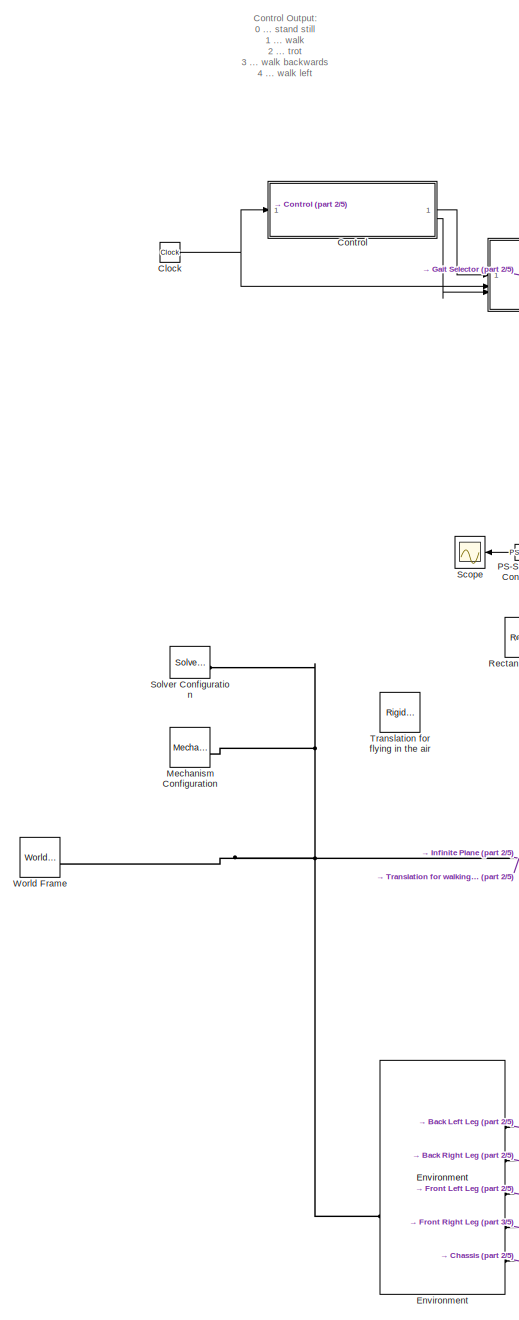
[diagram: root canvas - part 1/5, left side, full height]
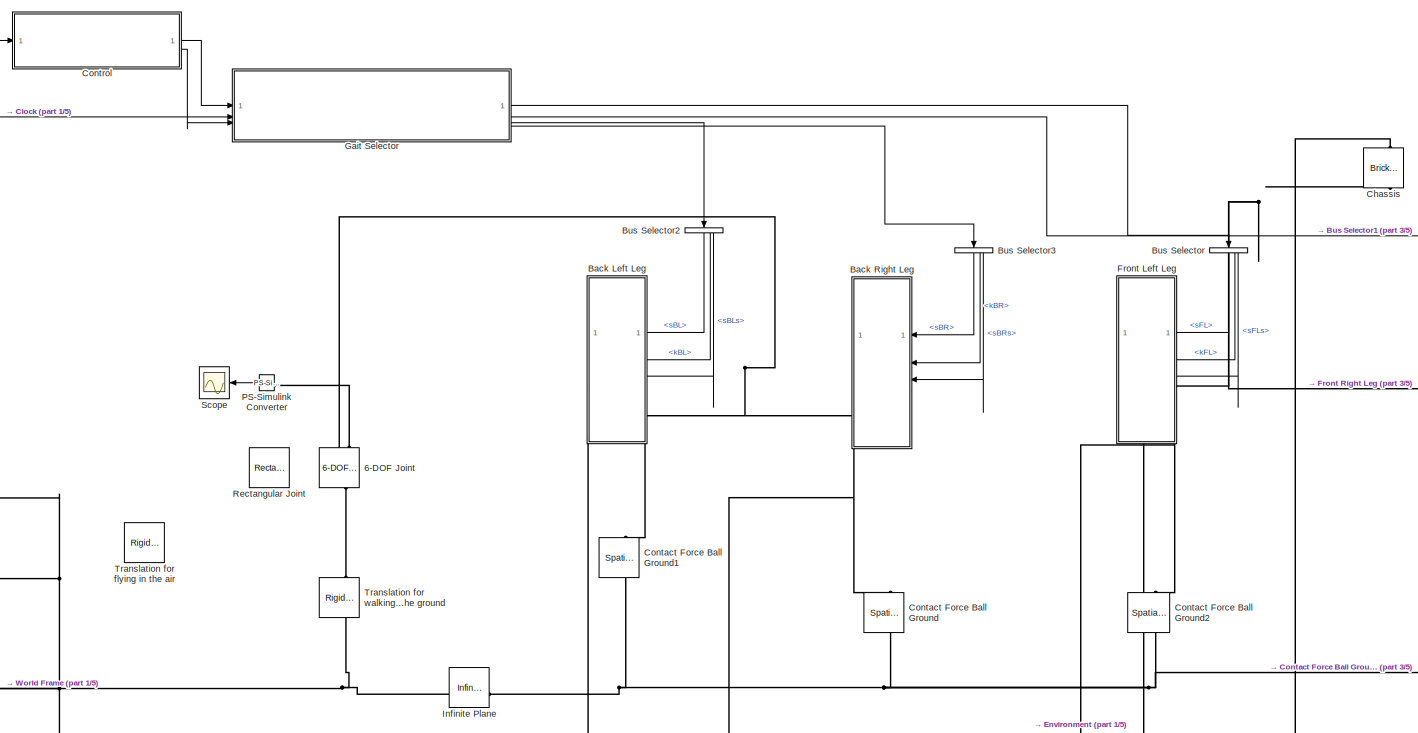
[diagram: root canvas - part 2/5, central region]
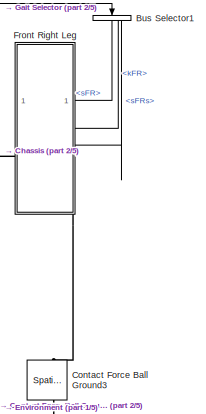
[diagram: root canvas - part 3/5, middle right region]
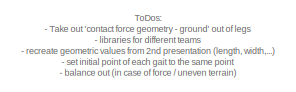
[diagram: root canvas - part 4/5, bottom right region]
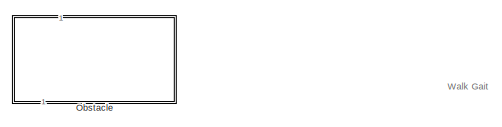
[diagram: root canvas - part 5/5, bottom left region]
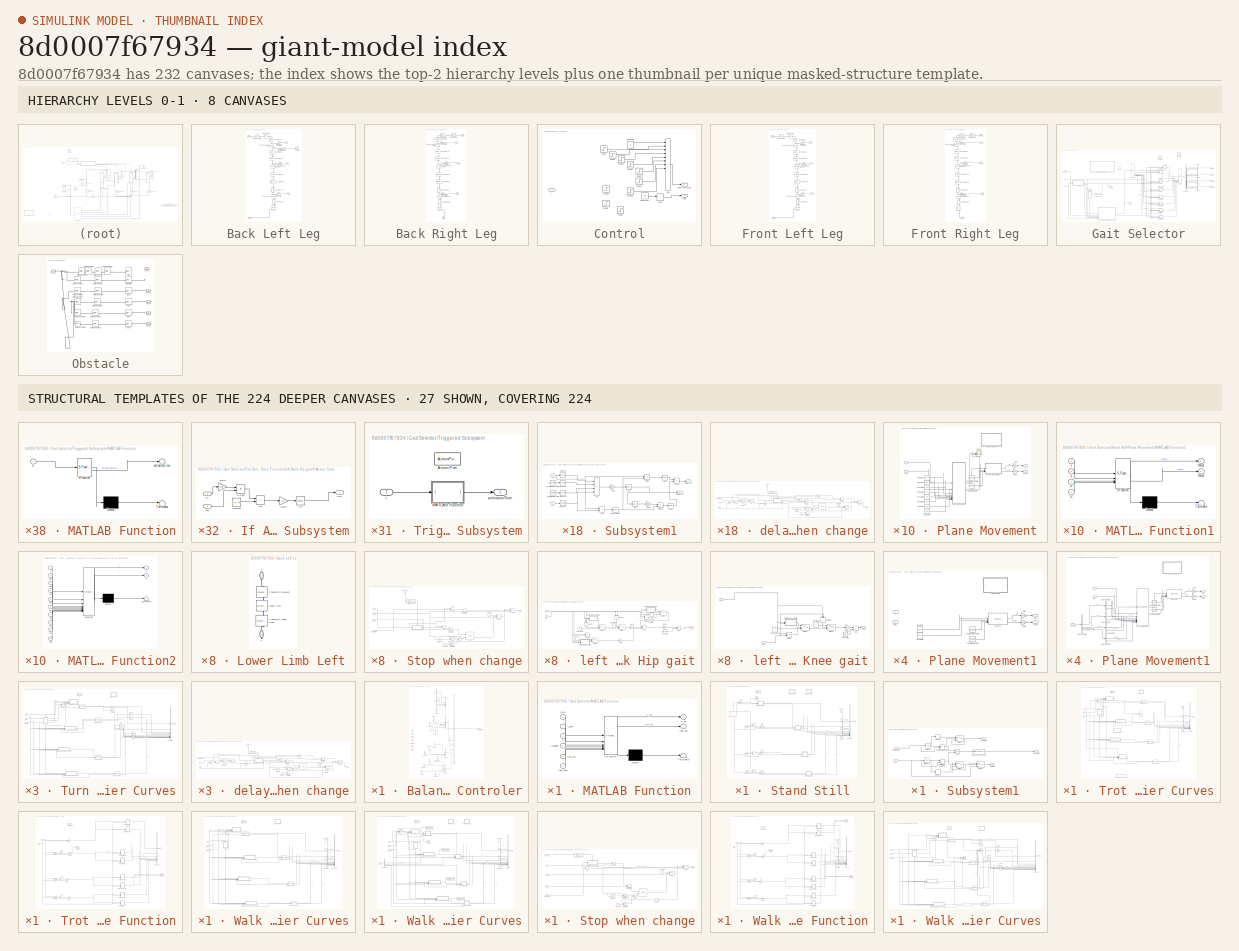
[diagram: thumbnail index - top-2 hierarchy levels (8 canvases) + 27 structural-template representatives of the remaining 224 canvases]
MODEL slx_8d0007f67934
KIND model
CONFIG AbsTol = 1e-3
CONFIG EnableMultiTasking = on
CONFIG FixedStep = auto
CONFIG MaxStep = auto
CONFIG MinStep = auto
CONFIG RelTol = 1e-3
CONFIG SampleTimeConstraint = Unconstrained
CONFIG SolverName = ode23t
CONFIG StartTime = 0.0
CONFIG StopTime = 16
WORKSPACE source: mxarray member
WORKSPACE A = 0.4
WORKSPACE Critical_Velocity = 0.01
WORKSPACE Damping_Factor = 1000
WORKSPACE Dynamic_Friction = 0.4
WORKSPACE Heigth_brick: Simulink.Parameter (value not decoded)
WORKSPACE Heigth_ramp: Simulink.Parameter (value not decoded)
WORKSPACE Heigth_wall: Simulink.Parameter (value not decoded)
WORKSPACE Length_brick: Simulink.Parameter (value not decoded)
WORKSPACE Length_ramp: Simulink.Parameter (value not decoded)
WORKSPACE Length_torso: Simulink.Parameter (value not decoded)
WORKSPACE Length_wall: Simulink.Parameter (value not decoded)
WORKSPACE Lower_limbs: Simulink.Parameter (value not decoded)
WORKSPACE Static_Friction = 0.6
WORKSPACE Stiffnesscoefficient = 10000
WORKSPACE Transition_Region_Width = 0.02
WORKSPACE Upper_limbs: Simulink.Parameter (value not decoded)
WORKSPACE Width_brick: Simulink.Parameter (value not decoded)
WORKSPACE Width_ramp: Simulink.Parameter (value not decoded)
WORKSPACE Width_torso: Simulink.Parameter (value not decoded)
WORKSPACE Width_wall: Simulink.Parameter (value not decoded)
WORKSPACE f = 1.5
WORKSPACE r_foot: Simulink.Parameter (value not decoded)
WORKSPACE t_leg: Simulink.Parameter (value not decoded)
BLOCK [Reference] 6-DOF Joint  REF=sm_lib/Joints/6-DOF Joint
  NameLocation = right
  SourceBlock = sm_lib/Joints/6-DOF Joint
  SourceType = 6-DOF Joint
BLOCK [SubSystem] Back Left Leg
  PortSchema = {"entries":[{"content":{"sides":[{"content":{},"type":"ConnectorPlacement.EquallySpacedRectSide","uuid":"4058ee2b-9772-4aa9-ad2c-dc188ae6aecd"},{"content":{"connectorIds":["In1","In2","In3"],"side":"RIGHT"},"type":"ConnectorPlacement.EquallySpacedRectSide","uuid":"c8f5ac60-63ea-4dfe-ad35-3ef8c1bdb1d6"},{"content":{"connectorIds":["LConn1"],"side":"TOP"},"type":"ConnectorPlacement.EquallySpacedRect...<+389ch>
BLOCK [Inport] Back Left Leg/<kBL>
  NameLocation = top
  Port = 2
BLOCK [Inport] Back Left Leg/<sBL>
  NameLocation = top
BLOCK [Inport] Back Left Leg/<sBLs>
  NameLocation = top
  Port = 3
BLOCK [Reference] Back Left Leg/Ball1  REF=sm_lib/Body Elements/Spherical Solid
  NameLocation = left
  SourceBlock = sm_lib/Body Elements/Spherical Solid
  SourceType = Spherical Solid
BLOCK [PMIOPort] Back Left Leg/Conn1
  Side = Left
BLOCK [PMIOPort] Back Left Leg/Conn2
  Port = 2
  Side = Right
BLOCK [Gain] Back Left Leg/Gain
  Gain = 180/pi
BLOCK [SubSystem] Back Left Leg/Lower Limb Left
  NameLocation = left
BLOCK [PMIOPort] Back Left Leg/Lower Limb Left/L
  NameLocation = left
  Port = 2
  Side = Right
BLOCK [Reference] Back Left Leg/Lower Limb Left/Transform Shoulder  REF=sm_lib/Frames and
Transforms/Rigid
Transform
  NameLocation = left
  SourceBlock = sm_lib/Frames and\nTransforms/Rigid\nTransform
  SourceType = Rigid\nTransform
BLOCK [Reference] Back Left Leg/Lower Limb Left/Transform Upper Knee  REF=sm_lib/Frames and
Transforms/Rigid
Transform
  NameLocation = left
  SourceBlock = sm_lib/Frames and\nTransforms/Rigid\nTransform
  SourceType = Rigid\nTransform
BLOCK [PMIOPort] Back Left Leg/Lower Limb Left/U
  NameLocation = left
  Side = Left
BLOCK [Reference] Back Left Leg/Lower Limb Left/Upper Limb  REF=sm_lib/Body Elements/Brick Solid
  NameLocation = left
  SourceBlock = sm_lib/Body Elements/Brick Solid
  SourceType = Brick Solid
BLOCK [Reference] Back Left Leg/PS-Simulink Converter  REF=nesl_utility/PS-Simulink
Converter
  SourceBlock = nesl_utility/PS-Simulink\nConverter
  SourceType = PS-Simulink\nConverter
BLOCK [Reference] Back Left Leg/Revolute Knee1  REF=sm_lib/Joints/Revolute Joint
  NameLocation = left
  SourceBlock = sm_lib/Joints/Revolute Joint
  SourceType = Revolute Joint
BLOCK [Reference] Back Left Leg/Revolute Shoulder Forward  REF=sm_lib/Joints/Revolute Joint
  NameLocation = left
  SourceBlock = sm_lib/Joints/Revolute Joint
  SourceType = Revolute Joint
BLOCK [Reference] Back Left Leg/Revolute Shoulder Sideways  REF=sm_lib/Joints/Revolute Joint
  NameLocation = left
  SourceBlock = sm_lib/Joints/Revolute Joint
  SourceType = Revolute Joint
BLOCK [Reference] Back Left Leg/Rigid Transform  REF=sm_lib/Frames and
Transforms/Rigid
Transform
  SourceBlock = sm_lib/Frames and\nTransforms/Rigid\nTransform
  SourceType = Rigid\nTransform
BLOCK [Reference] Back Left Leg/Rigid Transform1  REF=sm_lib/Frames and
Transforms/Rigid
Transform
  SourceBlock = sm_lib/Frames and\nTransforms/Rigid\nTransform
  SourceType = Rigid\nTransform
BLOCK [Scope] Back Left Leg/Scope
  Floating = off
  NumInputPorts = 1
  ScopeSpecificationString = Simulink.scopes.TimeScopeBlockCfg('CurrentConfiguration', extmgr.ConfigurationSet(extmgr.Configuration('Core','General UI',true),extmgr.Configuration('Core','Source UI',true),extmgr.Configuration('Sources','WiredSimulink',true,'DataLoggingVariableName','ScopeData1'),extmgr.Configuration('Visuals','Time Domain',true,'SerializedDisplays',{struct('MinYLimReal','10.36218','MaxYLimReal','59.3939','YLab...<+1454ch>
BLOCK [Reference] Back Left Leg/Simulink-PS Converter  REF=nesl_utility/Simulink-PS
Converter
  NameLocation = top
  SourceBlock = nesl_utility/Simulink-PS\nConverter
  SourceType = Simulink-PS\nConverter
BLOCK [Reference] Back Left Leg/Simulink-PS Converter1  REF=nesl_utility/Simulink-PS
Converter
  NameLocation = top
  SourceBlock = nesl_utility/Simulink-PS\nConverter
  SourceType = Simulink-PS\nConverter
BLOCK [Reference] Back Left Leg/Simulink-PS Converter2  REF=nesl_utility/Simulink-PS
Converter
  NameLocation = top
  SourceBlock = nesl_utility/Simulink-PS\nConverter
  SourceType = Simulink-PS\nConverter
BLOCK [Reference] Back Left Leg/Transform Pivot1  REF=sm_lib/Frames and
Transforms/Rigid
Transform
  NameLocation = left
  SourceBlock = sm_lib/Frames and\nTransforms/Rigid\nTransform
  SourceType = Rigid\nTransform
BLOCK [Reference] Back Left Leg/Transform Pivot2  REF=sm_lib/Frames and
Transforms/Rigid
Transform
  NameLocation = left
  SourceBlock = sm_lib/Frames and\nTransforms/Rigid\nTransform
  SourceType = Rigid\nTransform
BLOCK [Reference] Back Left Leg/Transform Pivot3  REF=sm_lib/Frames and
Transforms/Rigid
Transform
  NameLocation = left
  SourceBlock = sm_lib/Frames and\nTransforms/Rigid\nTransform
  SourceType = Rigid\nTransform
BLOCK [Reference] Back Left Leg/Transform Pivot4  REF=sm_lib/Frames and
Transforms/Rigid
Transform
  NameLocation = left
  SourceBlock = sm_lib/Frames and\nTransforms/Rigid\nTransform
  SourceType = Rigid\nTransform
BLOCK [Reference] Back Left Leg/Transform Pivot5  REF=sm_lib/Frames and
Transforms/Rigid
Transform
  NameLocation = left
  SourceBlock = sm_lib/Frames and\nTransforms/Rigid\nTransform
  SourceType = Rigid\nTransform
BLOCK [SubSystem] Back Left Leg/Upper Limb Left
  NameLocation = left
BLOCK [PMIOPort] Back Left Leg/Upper Limb Left/L
  NameLocation = left
  Port = 2
  Side = Right
BLOCK [Reference] Back Left Leg/Upper Limb Left/Transform Shoulder  REF=sm_lib/Frames and
Transforms/Rigid
Transform
  NameLocation = left
  SourceBlock = sm_lib/Frames and\nTransforms/Rigid\nTransform
  SourceType = Rigid\nTransform
BLOCK [Reference] Back Left Leg/Upper Limb Left/Transform Upper Knee  REF=sm_lib/Frames and
Transforms/Rigid
Transform
  NameLocation = left
  SourceBlock = sm_lib/Frames and\nTransforms/Rigid\nTransform
  SourceType = Rigid\nTransform
BLOCK [PMIOPort] Back Left Leg/Upper Limb Left/U
  NameLocation = left
  Side = Left
BLOCK [Reference] Back Left Leg/Upper Limb Left/Upper Limb  REF=sm_lib/Body Elements/Brick Solid
  NameLocation = left
  SourceBlock = sm_lib/Body Elements/Brick Solid
  SourceType = Brick Solid
BLOCK [SubSystem] Back Right Leg
  PortSchema = {"entries":[{"content":{"sides":[{"content":{"connectorIds":["In1","In2","In3"]},"type":"ConnectorPlacement.EquallySpacedRectSide","uuid":"2529c462-a6c0-4710-b525-cfddd2fee269"},{"content":{"side":"RIGHT"},"type":"ConnectorPlacement.EquallySpacedRectSide","uuid":"d7540933-492d-4a81-be86-0602190745ed"},{"content":{"connectorIds":["LConn1"],"side":"TOP"},"type":"ConnectorPlacement.EquallySpacedRectS...<+388ch>
BLOCK [Inport] Back Right Leg/<kBR>
  Port = 2
BLOCK [Inport] Back Right Leg/<sBR>
BLOCK [Inport] Back Right Leg/<sBRs>
  Port = 3
BLOCK [Reference] Back Right Leg/Ball  REF=sm_lib/Body Elements/Spherical Solid
  NameLocation = left
  SourceBlock = sm_lib/Body Elements/Spherical Solid
  SourceType = Spherical Solid
BLOCK [PMIOPort] Back Right Leg/Conn1
  Side = Left
BLOCK [PMIOPort] Back Right Leg/Conn2
  Port = 2
  Side = Right
BLOCK [SubSystem] Back Right Leg/Lower Limb Right
  NameLocation = left
BLOCK [PMIOPort] Back Right Leg/Lower Limb Right/L
  NameLocation = left
  Port = 2
  Side = Right
BLOCK [Reference] Back Right Leg/Lower Limb Right/Transform Shoulder  REF=sm_lib/Frames and
Transforms/Rigid
Transform
  NameLocation = left
  SourceBlock = sm_lib/Frames and\nTransforms/Rigid\nTransform
  SourceType = Rigid\nTransform
BLOCK [Reference] Back Right Leg/Lower Limb Right/Transform Upper Knee  REF=sm_lib/Frames and
Transforms/Rigid
Transform
  NameLocation = left
  SourceBlock = sm_lib/Frames and\nTransforms/Rigid\nTransform
  SourceType = Rigid\nTransform
BLOCK [PMIOPort] Back Right Leg/Lower Limb Right/U
  NameLocation = left
  Side = Left
BLOCK [Reference] Back Right Leg/Lower Limb Right/Upper Limb  REF=sm_lib/Body Elements/Brick Solid
  NameLocation = left
  SourceBlock = sm_lib/Body Elements/Brick Solid
  SourceType = Brick Solid
BLOCK [Reference] Back Right Leg/Revolute Knee  REF=sm_lib/Joints/Revolute Joint
  NameLocation = left
  SourceBlock = sm_lib/Joints/Revolute Joint
  SourceType = Revolute Joint
BLOCK [Reference] Back Right Leg/Revolute Shoulder Forward  REF=sm_lib/Joints/Revolute Joint
  NameLocation = left
  SourceBlock = sm_lib/Joints/Revolute Joint
  SourceType = Revolute Joint
BLOCK [Reference] Back Right Leg/Revolute Shoulder Sideways  REF=sm_lib/Joints/Revolute Joint
  NameLocation = left
  SourceBlock = sm_lib/Joints/Revolute Joint
  SourceType = Revolute Joint
BLOCK [Reference] Back Right Leg/Rigid Transform1  REF=sm_lib/Frames and
Transforms/Rigid
Transform
  SourceBlock = sm_lib/Frames and\nTransforms/Rigid\nTransform
  SourceType = Rigid\nTransform
BLOCK [Reference] Back Right Leg/Rigid Transform2  REF=sm_lib/Frames and
Transforms/Rigid
Transform
  NameLocation = top
  SourceBlock = sm_lib/Frames and\nTransforms/Rigid\nTransform
  SourceType = Rigid\nTransform
BLOCK [Reference] Back Right Leg/Simulink-PS Converter1  REF=nesl_utility/Simulink-PS
Converter
  NameLocation = top
  SourceBlock = nesl_utility/Simulink-PS\nConverter
  SourceType = Simulink-PS\nConverter
BLOCK [Reference] Back Right Leg/Simulink-PS Converter2  REF=nesl_utility/Simulink-PS
Converter
  NameLocation = top
  SourceBlock = nesl_utility/Simulink-PS\nConverter
  SourceType = Simulink-PS\nConverter
BLOCK [Reference] Back Right Leg/Simulink-PS Converter3  REF=nesl_utility/Simulink-PS
Converter
  NameLocation = top
  SourceBlock = nesl_utility/Simulink-PS\nConverter
  SourceType = Simulink-PS\nConverter
BLOCK [Reference] Back Right Leg/Transform Pivot  REF=sm_lib/Frames and
Transforms/Rigid
Transform
  NameLocation = left
  SourceBlock = sm_lib/Frames and\nTransforms/Rigid\nTransform
  SourceType = Rigid\nTransform
BLOCK [Reference] Back Right Leg/Transform Pivot2  REF=sm_lib/Frames and
Transforms/Rigid
Transform
  NameLocation = left
  SourceBlock = sm_lib/Frames and\nTransforms/Rigid\nTransform
  SourceType = Rigid\nTransform
BLOCK [Reference] Back Right Leg/Transform Pivot3  REF=sm_lib/Frames and
Transforms/Rigid
Transform
  NameLocation = left
  SourceBlock = sm_lib/Frames and\nTransforms/Rigid\nTransform
  SourceType = Rigid\nTransform
BLOCK [Reference] Back Right Leg/Transform Pivot4  REF=sm_lib/Frames and
Transforms/Rigid
Transform
  NameLocation = left
  SourceBlock = sm_lib/Frames and\nTransforms/Rigid\nTransform
  SourceType = Rigid\nTransform
BLOCK [Reference] Back Right Leg/Transform Pivot5  REF=sm_lib/Frames and
Transforms/Rigid
Transform
  NameLocation = left
  SourceBlock = sm_lib/Frames and\nTransforms/Rigid\nTransform
  SourceType = Rigid\nTransform
BLOCK [SubSystem] Back Right Leg/Upper Limb Right
  NameLocation = left
BLOCK [PMIOPort] Back Right Leg/Upper Limb Right/L
  NameLocation = left
  Port = 2
  Side = Right
BLOCK [Reference] Back Right Leg/Upper Limb Right/Transform Shoulder  REF=sm_lib/Frames and
Transforms/Rigid
Transform
  NameLocation = left
  SourceBlock = sm_lib/Frames and\nTransforms/Rigid\nTransform
  SourceType = Rigid\nTransform
BLOCK [Reference] Back Right Leg/Upper Limb Right/Transform Upper Knee  REF=sm_lib/Frames and
Transforms/Rigid
Transform
  NameLocation = left
  SourceBlock = sm_lib/Frames and\nTransforms/Rigid\nTransform
  SourceType = Rigid\nTransform
BLOCK [PMIOPort] Back Right Leg/Upper Limb Right/U
  NameLocation = left
  Side = Left
BLOCK [Reference] Back Right Leg/Upper Limb Right/Upper Limb  REF=sm_lib/Body Elements/Brick Solid
  NameLocation = left
  SourceBlock = sm_lib/Body Elements/Brick Solid
  SourceType = Brick Solid
BLOCK [BusSelector] Bus Selector
  NameLocation = left
  OutputSignals = sFL,kFL,sFLs
BLOCK [BusSelector] Bus Selector1
  NameLocation = left
  OutputSignals = sFR,kFR,sFRs
BLOCK [BusSelector] Bus Selector2
  NameLocation = left
  OutputSignals = sBL,kBL,sBLs
BLOCK [BusSelector] Bus Selector3
  NameLocation = left
  OutputSignals = sBR,kBR,sBRs
BLOCK [Reference] Chassis  REF=sm_lib/Body Elements/Brick Solid
  NameLocation = left
  SourceBlock = sm_lib/Body Elements/Brick Solid
  SourceType = Brick Solid
BLOCK [Clock] Clock
BLOCK [Reference] Contact Force Ball Ground  REF=sm_lib/Forces and
Torques/Spatial
Contact Force
  NameLocation = right
  SourceBlock = sm_lib/Forces and\nTorques/Spatial\nContact Force
  SourceType = Spatial\nContact Force
BLOCK [Reference] Contact Force Ball Ground1  REF=sm_lib/Forces and
Torques/Spatial
Contact Force
  NameLocation = right
  SourceBlock = sm_lib/Forces and\nTorques/Spatial\nContact Force
  SourceType = Spatial\nContact Force
BLOCK [Reference] Contact Force Ball Ground2  REF=sm_lib/Forces and
Torques/Spatial
Contact Force
  NameLocation = right
  SourceBlock = sm_lib/Forces and\nTorques/Spatial\nContact Force
  SourceType = Spatial\nContact Force
BLOCK [Reference] Contact Force Ball Ground3  REF=sm_lib/Forces and
Torques/Spatial
Contact Force
  NameLocation = right
  SourceBlock = sm_lib/Forces and\nTorques/Spatial\nContact Force
  SourceType = Spatial\nContact Force
BLOCK [SubSystem] Control
BLOCK [Sum] Control/Add
  IconShape = rectangular
  Inputs = +++++++++++++
BLOCK [Sum] Control/Add1
  IconShape = rectangular
BLOCK [Constant] Control/Constant
  Value = 0
BLOCK [Constant] Control/Constant1
  Value = 0.5
BLOCK [Outport] Control/Control Output
BLOCK [Step] Control/Step
  SampleTime = 0
  Time = 2
BLOCK [Step] Control/Step1
  After = -0.5
  SampleTime = 0
  Time = 3
BLOCK [Step] Control/Step2
  Before = 1
  SampleTime = 0
BLOCK [Step] Control/Step3
  Before = 1
  SampleTime = 0
  Time = 0
BLOCK [Step] Control/Step4
  SampleTime = 0
  Time = 4
BLOCK [Step] Control/Step5
  SampleTime = 0
  Time = 6
BLOCK [Step] Control/Step6
  SampleTime = 0
  Time = 8
BLOCK [Step] Control/Step7
  SampleTime = 0
  Time = 10
BLOCK [Step] Control/Step8
  SampleTime = 0
  Time = 12
BLOCK [Step] Control/Step9
  SampleTime = 0
  Time = 14
BLOCK [Inport] Control/t
BLOCK [Outport] Control/tdur
  Port = 2
BLOCK [Reference] Environment  REF=environment/Environment  (lib defined in slx_0e64a065ad8c, slx_1a373574b8ee, +3 more)
  SourceBlock = environment/Environment
  SourceType = SubSystem
BLOCK [SubSystem] Front Left Leg
  PortSchema = {"entries":[{"content":{"sides":[{"content":{},"type":"ConnectorPlacement.EquallySpacedRectSide","uuid":"4058ee2b-9772-4aa9-ad2c-dc188ae6aecd"},{"content":{"connectorIds":["In1","In2","In3"],"side":"RIGHT"},"type":"ConnectorPlacement.EquallySpacedRectSide","uuid":"c8f5ac60-63ea-4dfe-ad35-3ef8c1bdb1d6"},{"content":{"connectorIds":["LConn1"],"side":"TOP"},"type":"ConnectorPlacement.EquallySpacedRect...<+389ch>
BLOCK [Inport] Front Left Leg/<kFL>
  NameLocation = top
  Port = 2
BLOCK [Inport] Front Left Leg/<sFL>
  NameLocation = top
BLOCK [Inport] Front Left Leg/<sFLs>
  NameLocation = top
  Port = 3
BLOCK [Reference] Front Left Leg/Ball1  REF=sm_lib/Body Elements/Spherical Solid
  NameLocation = left
  SourceBlock = sm_lib/Body Elements/Spherical Solid
  SourceType = Spherical Solid
BLOCK [PMIOPort] Front Left Leg/Conn1
  Side = Left
BLOCK [PMIOPort] Front Left Leg/Conn2
  Port = 2
  Side = Right
BLOCK [SubSystem] Front Left Leg/Lower Limb Left
  NameLocation = left
BLOCK [PMIOPort] Front Left Leg/Lower Limb Left/L
  NameLocation = left
  Port = 2
  Side = Right
BLOCK [Reference] Front Left Leg/Lower Limb Left/Transform Shoulder  REF=sm_lib/Frames and
Transforms/Rigid
Transform
  NameLocation = left
  SourceBlock = sm_lib/Frames and\nTransforms/Rigid\nTransform
  SourceType = Rigid\nTransform
BLOCK [Reference] Front Left Leg/Lower Limb Left/Transform Upper Knee  REF=sm_lib/Frames and
Transforms/Rigid
Transform
  NameLocation = left
  SourceBlock = sm_lib/Frames and\nTransforms/Rigid\nTransform
  SourceType = Rigid\nTransform
BLOCK [PMIOPort] Front Left Leg/Lower Limb Left/U
  NameLocation = left
  Side = Left
BLOCK [Reference] Front Left Leg/Lower Limb Left/Upper Limb  REF=sm_lib/Body Elements/Brick Solid
  NameLocation = left
  SourceBlock = sm_lib/Body Elements/Brick Solid
  SourceType = Brick Solid
BLOCK [Reference] Front Left Leg/Revolute Knee1  REF=sm_lib/Joints/Revolute Joint
  NameLocation = left
  SourceBlock = sm_lib/Joints/Revolute Joint
  SourceType = Revolute Joint
BLOCK [Reference] Front Left Leg/Revolute Shoulder Sideways  REF=sm_lib/Joints/Revolute Joint
  NameLocation = left
  SourceBlock = sm_lib/Joints/Revolute Joint
  SourceType = Revolute Joint
BLOCK [Reference] Front Left Leg/Revolute Shoulder1  REF=sm_lib/Joints/Revolute Joint
  NameLocation = left
  SourceBlock = sm_lib/Joints/Revolute Joint
  SourceType = Revolute Joint
BLOCK [Reference] Front Left Leg/Rigid Transform  REF=sm_lib/Frames and
Transforms/Rigid
Transform
  SourceBlock = sm_lib/Frames and\nTransforms/Rigid\nTransform
  SourceType = Rigid\nTransform
BLOCK [Reference] Front Left Leg/Rigid Transform1  REF=sm_lib/Frames and
Transforms/Rigid
Transform
  SourceBlock = sm_lib/Frames and\nTransforms/Rigid\nTransform
  SourceType = Rigid\nTransform
BLOCK [Reference] Front Left Leg/Simulink-PS Converter  REF=nesl_utility/Simulink-PS
Converter
  NameLocation = top
  SourceBlock = nesl_utility/Simulink-PS\nConverter
  SourceType = Simulink-PS\nConverter
BLOCK [Reference] Front Left Leg/Simulink-PS Converter1  REF=nesl_utility/Simulink-PS
Converter
  NameLocation = top
  SourceBlock = nesl_utility/Simulink-PS\nConverter
  SourceType = Simulink-PS\nConverter
BLOCK [Reference] Front Left Leg/Simulink-PS Converter2  REF=nesl_utility/Simulink-PS
Converter
  NameLocation = top
  SourceBlock = nesl_utility/Simulink-PS\nConverter
  SourceType = Simulink-PS\nConverter
BLOCK [Reference] Front Left Leg/Transform Pivot1  REF=sm_lib/Frames and
Transforms/Rigid
Transform
  NameLocation = left
  SourceBlock = sm_lib/Frames and\nTransforms/Rigid\nTransform
  SourceType = Rigid\nTransform
BLOCK [Reference] Front Left Leg/Transform Pivot2  REF=sm_lib/Frames and
Transforms/Rigid
Transform
  NameLocation = left
  SourceBlock = sm_lib/Frames and\nTransforms/Rigid\nTransform
  SourceType = Rigid\nTransform
BLOCK [Reference] Front Left Leg/Transform Pivot3  REF=sm_lib/Frames and
Transforms/Rigid
Transform
  NameLocation = left
  SourceBlock = sm_lib/Frames and\nTransforms/Rigid\nTransform
  SourceType = Rigid\nTransform
BLOCK [Reference] Front Left Leg/Transform Pivot4  REF=sm_lib/Frames and
Transforms/Rigid
Transform
  NameLocation = left
  SourceBlock = sm_lib/Frames and\nTransforms/Rigid\nTransform
  SourceType = Rigid\nTransform
BLOCK [Reference] Front Left Leg/Transform Pivot5  REF=sm_lib/Frames and
Transforms/Rigid
Transform
  NameLocation = left
  SourceBlock = sm_lib/Frames and\nTransforms/Rigid\nTransform
  SourceType = Rigid\nTransform
BLOCK [SubSystem] Front Left Leg/Upper Limb Left
  NameLocation = left
BLOCK [PMIOPort] Front Left Leg/Upper Limb Left/L
  NameLocation = left
  Port = 2
  Side = Right
BLOCK [Reference] Front Left Leg/Upper Limb Left/Transform Shoulder  REF=sm_lib/Frames and
Transforms/Rigid
Transform
  NameLocation = left
  SourceBlock = sm_lib/Frames and\nTransforms/Rigid\nTransform
  SourceType = Rigid\nTransform
BLOCK [Reference] Front Left Leg/Upper Limb Left/Transform Upper Knee  REF=sm_lib/Frames and
Transforms/Rigid
Transform
  NameLocation = left
  SourceBlock = sm_lib/Frames and\nTransforms/Rigid\nTransform
  SourceType = Rigid\nTransform
BLOCK [PMIOPort] Front Left Leg/Upper Limb Left/U
  NameLocation = left
  Side = Left
BLOCK [Reference] Front Left Leg/Upper Limb Left/Upper Limb  REF=sm_lib/Body Elements/Brick Solid
  NameLocation = left
  SourceBlock = sm_lib/Body Elements/Brick Solid
  SourceType = Brick Solid
BLOCK [SubSystem] Front Right Leg
  PortSchema = {"entries":[{"content":{"sides":[{"content":{},"type":"ConnectorPlacement.EquallySpacedRectSide","uuid":"fca64d86-67f1-4a47-b694-02d00a22e122"},{"content":{"connectorIds":["In1","In2","In3"],"side":"RIGHT"},"type":"ConnectorPlacement.EquallySpacedRectSide","uuid":"d4cf8dbd-fa25-4269-9c1c-acf7c5454620"},{"content":{"connectorIds":["LConn1"],"side":"TOP"},"type":"ConnectorPlacement.EquallySpacedRect...<+389ch>
BLOCK [Inport] Front Right Leg/<kFR>
  NameLocation = top
  Port = 2
BLOCK [Inport] Front Right Leg/<sFR>
  NameLocation = top
BLOCK [Inport] Front Right Leg/<sFRs>
  NameLocation = top
  Port = 3
BLOCK [Reference] Front Right Leg/Ball  REF=sm_lib/Body Elements/Spherical Solid
  NameLocation = left
  SourceBlock = sm_lib/Body Elements/Spherical Solid
  SourceType = Spherical Solid
BLOCK [PMIOPort] Front Right Leg/Conn1
  Side = Left
BLOCK [PMIOPort] Front Right Leg/Conn2
  Port = 2
  Side = Right
BLOCK [SubSystem] Front Right Leg/Lower Limb Right
  NameLocation = left
BLOCK [PMIOPort] Front Right Leg/Lower Limb Right/L
  NameLocation = left
  Port = 2
  Side = Right
BLOCK [Reference] Front Right Leg/Lower Limb Right/Transform Shoulder  REF=sm_lib/Frames and
Transforms/Rigid
Transform
  NameLocation = left
  SourceBlock = sm_lib/Frames and\nTransforms/Rigid\nTransform
  SourceType = Rigid\nTransform
BLOCK [Reference] Front Right Leg/Lower Limb Right/Transform Upper Knee  REF=sm_lib/Frames and
Transforms/Rigid
Transform
  NameLocation = left
  SourceBlock = sm_lib/Frames and\nTransforms/Rigid\nTransform
  SourceType = Rigid\nTransform
BLOCK [PMIOPort] Front Right Leg/Lower Limb Right/U
  NameLocation = left
  Side = Left
BLOCK [Reference] Front Right Leg/Lower Limb Right/Upper Limb  REF=sm_lib/Body Elements/Brick Solid
  NameLocation = left
  SourceBlock = sm_lib/Body Elements/Brick Solid
  SourceType = Brick Solid
BLOCK [Reference] Front Right Leg/Revolute Knee  REF=sm_lib/Joints/Revolute Joint
  NameLocation = left
  SourceBlock = sm_lib/Joints/Revolute Joint
  SourceType = Revolute Joint
BLOCK [Reference] Front Right Leg/Revolute Shoulder Forward  REF=sm_lib/Joints/Revolute Joint
  NameLocation = left
  SourceBlock = sm_lib/Joints/Revolute Joint
  SourceType = Revolute Joint
BLOCK [Reference] Front Right Leg/Revolute Shoulder Sideways  REF=sm_lib/Joints/Revolute Joint
  NameLocation = left
  SourceBlock = sm_lib/Joints/Revolute Joint
  SourceType = Revolute Joint
BLOCK [Reference] Front Right Leg/Rigid Transform1  REF=sm_lib/Frames and
Transforms/Rigid
Transform
  SourceBlock = sm_lib/Frames and\nTransforms/Rigid\nTransform
  SourceType = Rigid\nTransform
BLOCK [Reference] Front Right Leg/Rigid Transform2  REF=sm_lib/Frames and
Transforms/Rigid
Transform
  NameLocation = top
  SourceBlock = sm_lib/Frames and\nTransforms/Rigid\nTransform
  SourceType = Rigid\nTransform
BLOCK [Reference] Front Right Leg/Simulink-PS Converter1  REF=nesl_utility/Simulink-PS
Converter
  NameLocation = top
  SourceBlock = nesl_utility/Simulink-PS\nConverter
  SourceType = Simulink-PS\nConverter
BLOCK [Reference] Front Right Leg/Simulink-PS Converter2  REF=nesl_utility/Simulink-PS
Converter
  NameLocation = top
  SourceBlock = nesl_utility/Simulink-PS\nConverter
  SourceType = Simulink-PS\nConverter
BLOCK [Reference] Front Right Leg/Simulink-PS Converter3  REF=nesl_utility/Simulink-PS
Converter
  NameLocation = top
  SourceBlock = nesl_utility/Simulink-PS\nConverter
  SourceType = Simulink-PS\nConverter
BLOCK [Reference] Front Right Leg/Transform Pivot  REF=sm_lib/Frames and
Transforms/Rigid
Transform
  NameLocation = left
  SourceBlock = sm_lib/Frames and\nTransforms/Rigid\nTransform
  SourceType = Rigid\nTransform
BLOCK [Reference] Front Right Leg/Transform Pivot2  REF=sm_lib/Frames and
Transforms/Rigid
Transform
  NameLocation = left
  SourceBlock = sm_lib/Frames and\nTransforms/Rigid\nTransform
  SourceType = Rigid\nTransform
BLOCK [Reference] Front Right Leg/Transform Pivot3  REF=sm_lib/Frames and
Transforms/Rigid
Transform
  NameLocation = left
  SourceBlock = sm_lib/Frames and\nTransforms/Rigid\nTransform
  SourceType = Rigid\nTransform
BLOCK [Reference] Front Right Leg/Transform Pivot4  REF=sm_lib/Frames and
Transforms/Rigid
Transform
  NameLocation = left
  SourceBlock = sm_lib/Frames and\nTransforms/Rigid\nTransform
  SourceType = Rigid\nTransform
BLOCK [Reference] Front Right Leg/Transform Pivot5  REF=sm_lib/Frames and
Transforms/Rigid
Transform
  NameLocation = left
  SourceBlock = sm_lib/Frames and\nTransforms/Rigid\nTransform
  SourceType = Rigid\nTransform
BLOCK [SubSystem] Front Right Leg/Upper Limb Right
  NameLocation = left
BLOCK [PMIOPort] Front Right Leg/Upper Limb Right/L
  NameLocation = left
  Port = 2
  Side = Right
BLOCK [Reference] Front Right Leg/Upper Limb Right/Transform Shoulder  REF=sm_lib/Frames and
Transforms/Rigid
Transform
  NameLocation = left
  SourceBlock = sm_lib/Frames and\nTransforms/Rigid\nTransform
  SourceType = Rigid\nTransform
BLOCK [Reference] Front Right Leg/Upper Limb Right/Transform Upper Knee  REF=sm_lib/Frames and
Transforms/Rigid
Transform
  NameLocation = left
  SourceBlock = sm_lib/Frames and\nTransforms/Rigid\nTransform
  SourceType = Rigid\nTransform
BLOCK [PMIOPort] Front Right Leg/Upper Limb Right/U
  NameLocation = left
  Side = Left
BLOCK [Reference] Front Right Leg/Upper Limb Right/Upper Limb  REF=sm_lib/Body Elements/Brick Solid
  NameLocation = left
  SourceBlock = sm_lib/Body Elements/Brick Solid
  SourceType = Brick Solid
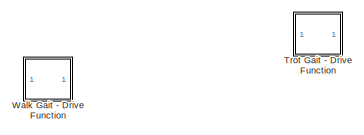
[diagram: Gait Selector - part 1/4, top right region]
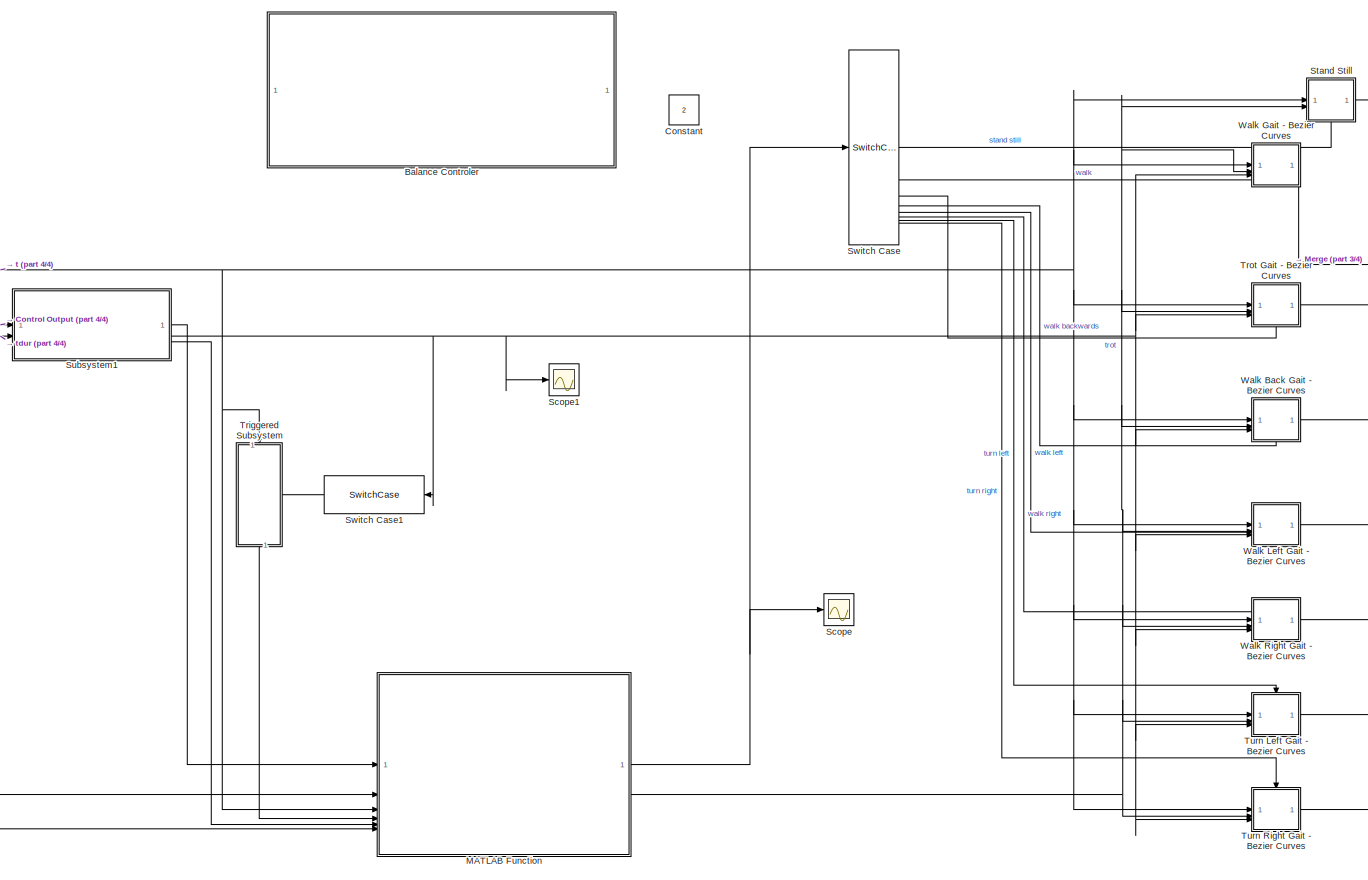
[diagram: Gait Selector - part 2/4, center side, full height]
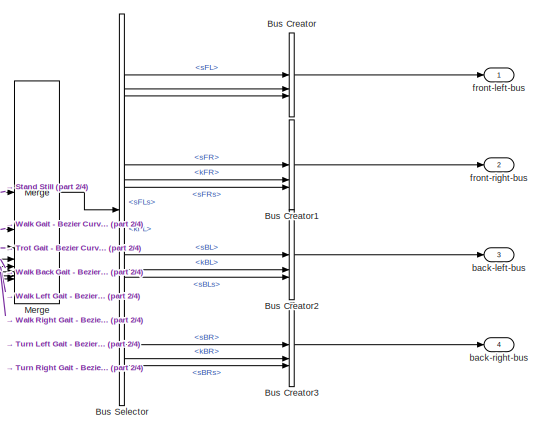
[diagram: Gait Selector - part 3/4, middle right region]
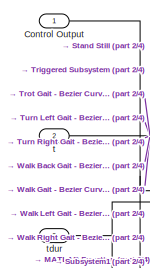
[diagram: Gait Selector - part 4/4, middle left region]
BLOCK [SubSystem] Gait Selector
BLOCK [SubSystem] Gait Selector/Balance Controler
BLOCK [BusCreator] Gait Selector/Balance Controler/Bus Creator
  DisplayOption = bar
  InheritFromInputs = on
  Inputs = 4
BLOCK [BusCreator] Gait Selector/Balance Controler/Bus Creator1
  DisplayOption = bar
  InheritFromInputs = on
  Inputs = 4
BLOCK [BusCreator] Gait Selector/Balance Controler/Bus Creator10
  DisplayOption = bar
  InheritFromInputs = on
  Inputs = 3
BLOCK [BusCreator] Gait Selector/Balance Controler/Bus Creator11
  DisplayOption = bar
  InheritFromInputs = on
  Inputs = 3
BLOCK [BusCreator] Gait Selector/Balance Controler/Bus Creator12
  DisplayOption = bar
  InheritFromInputs = on
  Inputs = 3
BLOCK [BusCreator] Gait Selector/Balance Controler/Bus Creator13
  DisplayOption = bar
  InheritFromInputs = on
  Inputs = 3
BLOCK [BusCreator] Gait Selector/Balance Controler/Bus Creator14
  DisplayOption = bar
  InheritFromInputs = on
  Inputs = 3
BLOCK [BusCreator] Gait Selector/Balance Controler/Bus Creator15
  DisplayOption = bar
  InheritFromInputs = on
  Inputs = 3
BLOCK [BusCreator] Gait Selector/Balance Controler/Bus Creator16
  DisplayOption = bar
  InheritFromInputs = on
  Inputs = 3
BLOCK [BusCreator] Gait Selector/Balance Controler/Bus Creator17
  DisplayOption = bar
  InheritFromInputs = on
  Inputs = 3
BLOCK [BusCreator] Gait Selector/Balance Controler/Bus Creator18
  DisplayOption = bar
  InheritFromInputs = on
  Inputs = 3
BLOCK [BusCreator] Gait Selector/Balance Controler/Bus Creator19
  DisplayOption = bar
  InheritFromInputs = on
  Inputs = 3
BLOCK [BusCreator] Gait Selector/Balance Controler/Bus Creator2
  DisplayOption = bar
  InheritFromInputs = on
  Inputs = 4
BLOCK [BusCreator] Gait Selector/Balance Controler/Bus Creator20
  DisplayOption = bar
  InheritFromInputs = on
  Inputs = 3
BLOCK [BusCreator] Gait Selector/Balance Controler/Bus Creator3
  DisplayOption = bar
  InheritFromInputs = on
  Inputs = 4
BLOCK [BusCreator] Gait Selector/Balance Controler/Bus Creator4
  DisplayOption = bar
  InheritFromInputs = on
  Inputs = 4
BLOCK [BusCreator] Gait Selector/Balance Controler/Bus Creator5
  DisplayOption = bar
  InheritFromInputs = on
  Inputs = 3
BLOCK [BusCreator] Gait Selector/Balance Controler/Bus Creator6
  DisplayOption = bar
  InheritFromInputs = on
  Inputs = 3
BLOCK [BusCreator] Gait Selector/Balance Controler/Bus Creator7
  DisplayOption = bar
  InheritFromInputs = on
  Inputs = 3
BLOCK [BusCreator] Gait Selector/Balance Controler/Bus Creator8
  DisplayOption = bar
  InheritFromInputs = on
  Inputs = 3
BLOCK [BusCreator] Gait Selector/Balance Controler/Bus Creator9
  DisplayOption = bar
  InheritFromInputs = on
  Inputs = 3
BLOCK [Inport] Gait Selector/Balance Controler/CenterOfMass_x
BLOCK [Inport] Gait Selector/Balance Controler/CenterOfMass_y
  Port = 2
BLOCK [Inport] Gait Selector/Balance Controler/CenterOfMass_z
  Port = 3
BLOCK [Inport] Gait Selector/Balance Controler/Force_BL
  Port = 6
BLOCK [Inport] Gait Selector/Balance Controler/Force_BR
  Port = 7
BLOCK [Inport] Gait Selector/Balance Controler/Force_FL
  Port = 4
BLOCK [Inport] Gait Selector/Balance Controler/Force_FR
  Port = 5
BLOCK [Outport] Gait Selector/Balance Controler/Gait_Bezier_Points_each_leg
BLOCK [BusCreator] Gait Selector/Bus Creator
  DisplayOption = bar
  InheritFromInputs = on
  Inputs = 3
BLOCK [BusCreator] Gait Selector/Bus Creator1
  DisplayOption = bar
  InheritFromInputs = on
  Inputs = 3
BLOCK [BusCreator] Gait Selector/Bus Creator2
  DisplayOption = bar
  InheritFromInputs = on
  Inputs = 3
BLOCK [BusCreator] Gait Selector/Bus Creator3
  DisplayOption = bar
  InheritFromInputs = on
  Inputs = 3
BLOCK [BusSelector] Gait Selector/Bus Selector
  OutputSignals = sFL,kFL,sFLs,sFR,kFR,sFRs,sBL,kBL,sBLs,sBR,kBR,sBRs
BLOCK [Constant] Gait Selector/Constant
  Value = 2
BLOCK [Inport] Gait Selector/Control Output
BLOCK [SubSystem] Gait Selector/MATLAB Function
  ErrorFcn = Stateflow.Translate.translate
  PermitHierarchicalResolution = ExplicitOnly
  SFBlockType = MATLAB Function
  TreatAsAtomicUnit = on
BLOCK [Demux] Gait Selector/MATLAB Function/ Demux 
  Outputs = 1
BLOCK [S-Function] Gait Selector/MATLAB Function/ SFunction 
  EnableBusSupport = on
  FunctionName = sf_sfun
  PortCounts = [6 3]
  SFcnIsStateOwnerBlock = off
  SFunctionDeploymentMode = off
  Tag = Stateflow S-Function 105
BLOCK [Terminator] Gait Selector/MATLAB Function/ Terminator 
BLOCK [Outport] Gait Selector/MATLAB Function/C_out
BLOCK [Inport] Gait Selector/MATLAB Function/c_new
  Port = 2
BLOCK [Inport] Gait Selector/MATLAB Function/c_old
BLOCK [Inport] Gait Selector/MATLAB Function/t
  Port = 3
BLOCK [Inport] Gait Selector/MATLAB Function/t_change
  Port = 4
BLOCK [Inport] Gait Selector/MATLAB Function/tdur_new
  Port = 6
BLOCK [Inport] Gait Selector/MATLAB Function/tdur_old
  Port = 5
BLOCK [Outport] Gait Selector/MATLAB Function/tdur_out
  Port = 2
BLOCK [Merge] Gait Selector/Merge
  Inputs = 8
BLOCK [Scope] Gait Selector/Scope
  Floating = off
  NumInputPorts = 1
  ScopeSpecificationString = Simulink.scopes.TimeScopeBlockCfg('CurrentConfiguration', extmgr.ConfigurationSet(extmgr.Configuration('Core','General UI',true),extmgr.Configuration('Core','Source UI',true),extmgr.Configuration('Sources','WiredSimulink',true,'DataLoggingVariableName','ScopeData2'),extmgr.Configuration('Visuals','Time Domain',true,'SerializedDisplays',{struct('MinYLimReal','-0.25','MaxYLimReal','2.25','YLabelReal...<+1474ch>
BLOCK [Scope] Gait Selector/Scope1
  Floating = off
  NumInputPorts = 1
  ScopeSpecificationString = Simulink.scopes.TimeScopeBlockCfg('CurrentConfiguration', extmgr.ConfigurationSet(extmgr.Configuration('Core','General UI',true),extmgr.Configuration('Core','Source UI',true),extmgr.Configuration('Sources','WiredSimulink',true,'DataLoggingVariableName','ScopeData3'),extmgr.Configuration('Visuals','Time Domain',true,'SerializedDisplays',{struct('MinYLimReal','-0.125','MaxYLimReal','1.125','YLabelRe...<+1448ch>
BLOCK [SubSystem] Gait Selector/Stand Still
BLOCK [ActionPort] Gait Selector/Stand Still/Action Port
  ActionPortLabel = case [ 0 ]:
  InitializeStates = reset
BLOCK [Sum] Gait Selector/Stand Still/Add
  IconShape = rectangular
BLOCK [Sum] Gait Selector/Stand Still/Add1
  IconShape = rectangular
BLOCK [Sum] Gait Selector/Stand Still/Add2
  IconShape = rectangular
BLOCK [BusCreator] Gait Selector/Stand Still/Bus Creator
  DisplayOption = bar
  InheritFromInputs = on
  Inputs = 12
BLOCK [Constant] Gait Selector/Stand Still/Constant
  Value = 0
BLOCK [Constant] Gait Selector/Stand Still/Constant1
  Value = 0
BLOCK [Constant] Gait Selector/Stand Still/Constant2
  Value = 0
BLOCK [Constant] Gait Selector/Stand Still/Constant3
  Value = 0
BLOCK [Gain] Gait Selector/Stand Still/Gain
  Gain = 1/2
BLOCK [Gain] Gait Selector/Stand Still/Gain1
  Gain = 1/4
BLOCK [Gain] Gait Selector/Stand Still/Gain2
  Gain = 3/4
BLOCK [Math] Gait Selector/Stand Still/Mod1
  Operator = mod
BLOCK [Math] Gait Selector/Stand Still/Mod2
  Operator = mod
BLOCK [Math] Gait Selector/Stand Still/Mod3
  Operator = mod
BLOCK [Math] Gait Selector/Stand Still/Mod4
  Operator = mod
BLOCK [SubSystem] Gait Selector/Stand Still/Plane Movement
  Commented = on
BLOCK [Constant] Gait Selector/Stand Still/Plane Movement/Constant
  Value = P0x
BLOCK [Constant] Gait Selector/Stand Still/Plane Movement/Constant1
  Value = P0z
BLOCK [Constant] Gait Selector/Stand Still/Plane Movement/Constant2
  Value = P1z
BLOCK [Constant] Gait Selector/Stand Still/Plane Movement/Constant3
  Value = P1x
BLOCK [Constant] Gait Selector/Stand Still/Plane Movement/Constant4
  Value = P2x
BLOCK [Constant] Gait Selector/Stand Still/Plane Movement/Constant5
  Value = P2z
BLOCK [Constant] Gait Selector/Stand Still/Plane Movement/Constant6
  Value = P3x
BLOCK [Constant] Gait Selector/Stand Still/Plane Movement/Constant7
  Value = P3z
BLOCK [Gain] Gait Selector/Stand Still/Plane Movement/Gain
  Gain = 180/pi
BLOCK [Gain] Gait Selector/Stand Still/Plane Movement/Gain1
  Gain = -180/pi
BLOCK [Constant] Gait Selector/Stand Still/Plane Movement/Length lower Limb
  Value = Lower_limbs
BLOCK [Constant] Gait Selector/Stand Still/Plane Movement/Length upper Limb
  Value = Upper_limbs
BLOCK [SubSystem] Gait Selector/Stand Still/Plane Movement/MATLAB Function1
  ErrorFcn = Stateflow.Translate.translate
  PermitHierarchicalResolution = ExplicitOnly
  SFBlockType = MATLAB Function
  TreatAsAtomicUnit = on
BLOCK [Demux] Gait Selector/Stand Still/Plane Movement/MATLAB Function1/ Demux 
  Outputs = 1
BLOCK [S-Function] Gait Selector/Stand Still/Plane Movement/MATLAB Function1/ SFunction 
  EnableBusSupport = on
  FunctionName = sf_sfun
  PortCounts = [4 3]
  SFcnIsStateOwnerBlock = off
  SFunctionDeploymentMode = off
  Tag = Stateflow S-Function 73
BLOCK [Terminator] Gait Selector/Stand Still/Plane Movement/MATLAB Function1/ Terminator 
BLOCK [Inport] Gait Selector/Stand Still/Plane Movement/MATLAB Function1/L1
  Port = 3
BLOCK [Inport] Gait Selector/Stand Still/Plane Movement/MATLAB Function1/L2
  Port = 4
BLOCK [Outport] Gait Selector/Stand Still/Plane Movement/MATLAB Function1/theta1
BLOCK [Outport] Gait Selector/Stand Still/Plane Movement/MATLAB Function1/theta2
  Port = 2
BLOCK [Inport] Gait Selector/Stand Still/Plane Movement/MATLAB Function1/x
BLOCK [Inport] Gait Selector/Stand Still/Plane Movement/MATLAB Function1/y
  Port = 2
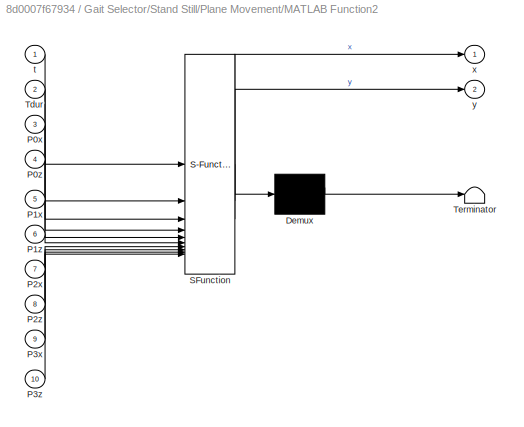
BLOCK [SubSystem] Gait Selector/Stand Still/Plane Movement/MATLAB Function2
  ErrorFcn = Stateflow.Translate.translate
  PermitHierarchicalResolution = ExplicitOnly
  SFBlockType = MATLAB Function
  TreatAsAtomicUnit = on
BLOCK [Demux] Gait Selector/Stand Still/Plane Movement/MATLAB Function2/ Demux 
  Outputs = 1
BLOCK [S-Function] Gait Selector/Stand Still/Plane Movement/MATLAB Function2/ SFunction 
  EnableBusSupport = on
  FunctionName = sf_sfun
  PortCounts = [10 3]
  SFcnIsStateOwnerBlock = off
  SFunctionDeploymentMode = off
  Tag = Stateflow S-Function 74
BLOCK [Terminator] Gait Selector/Stand Still/Plane Movement/MATLAB Function2/ Terminator 
BLOCK [Inport] Gait Selector/Stand Still/Plane Movement/MATLAB Function2/P0x
  Port = 3
BLOCK [Inport] Gait Selector/Stand Still/Plane Movement/MATLAB Function2/P0z
  Port = 4
BLOCK [Inport] Gait Selector/Stand Still/Plane Movement/MATLAB Function2/P1x
  Port = 5
BLOCK [Inport] Gait Selector/Stand Still/Plane Movement/MATLAB Function2/P1z
  Port = 6
BLOCK [Inport] Gait Selector/Stand Still/Plane Movement/MATLAB Function2/P2x
  Port = 7
BLOCK [Inport] Gait Selector/Stand Still/Plane Movement/MATLAB Function2/P2z
  Port = 8
BLOCK [Inport] Gait Selector/Stand Still/Plane Movement/MATLAB Function2/P3x
  Port = 9
BLOCK [Inport] Gait Selector/Stand Still/Plane Movement/MATLAB Function2/P3z
  Port = 10
BLOCK [Inport] Gait Selector/Stand Still/Plane Movement/MATLAB Function2/Tdur
  Port = 2
BLOCK [Inport] Gait Selector/Stand Still/Plane Movement/MATLAB Function2/t
BLOCK [Outport] Gait Selector/Stand Still/Plane Movement/MATLAB Function2/x
BLOCK [Outport] Gait Selector/Stand Still/Plane Movement/MATLAB Function2/y
  Port = 2
BLOCK [Scope] Gait Selector/Stand Still/Plane Movement/Scope
  Floating = off
  NumInputPorts = 2
  ScopeSpecificationString = Simulink.scopes.TimeScopeBlockCfg('CurrentConfiguration', extmgr.ConfigurationSet(extmgr.Configuration('Core','General UI',true),extmgr.Configuration('Core','Source UI',true),extmgr.Configuration('Sources','WiredSimulink',true,'DataLoggingVariableName','ScopeData3'),extmgr.Configuration('Visuals','Time Domain',true,'SerializedDisplays',{struct('MinYLimReal','-0.02537','MaxYLimReal','0.02841','YLab...<+2252ch>
BLOCK [SubSystem] Gait Selector/Stand Still/Plane Movement/Subsystem1
  Commented = on
BLOCK [Sum] Gait Selector/Stand Still/Plane Movement/Subsystem1/Add
  IconShape = rectangular
  Inputs = +--+
BLOCK [Sum] Gait Selector/Stand Still/Plane Movement/Subsystem1/Add1
  IconShape = rectangular
BLOCK [Sum] Gait Selector/Stand Still/Plane Movement/Subsystem1/Add2
  IconShape = rectangular
BLOCK [Trigonometry] Gait Selector/Stand Still/Plane Movement/Subsystem1/Asin
  Operator = asin
BLOCK [Trigonometry] Gait Selector/Stand Still/Plane Movement/Subsystem1/Asin1
  Operator = asin
BLOCK [Trigonometry] Gait Selector/Stand Still/Plane Movement/Subsystem1/Cos
  Operator = acos
BLOCK [Product] Gait Selector/Stand Still/Plane Movement/Subsystem1/Divide
  Inputs = */
BLOCK [Product] Gait Selector/Stand Still/Plane Movement/Subsystem1/Divide1
  Inputs = */
BLOCK [Gain] Gait Selector/Stand Still/Plane Movement/Subsystem1/Gain
  Gain = 1/(2*Upper_limbs*Lower_limbs)
BLOCK [Gain] Gait Selector/Stand Still/Plane Movement/Subsystem1/Gain1
  Gain = Lower_limbs
BLOCK [Constant] Gait Selector/Stand Still/Plane Movement/Subsystem1/Length lower Limb
  Value = Lower_limbs
BLOCK [Constant] Gait Selector/Stand Still/Plane Movement/Subsystem1/Length upper Limb
  Value = Upper_limbs
BLOCK [Trigonometry] Gait Selector/Stand Still/Plane Movement/Subsystem1/Sin
BLOCK [Math] Gait Selector/Stand Still/Plane Movement/Subsystem1/Square
  Operator = square
BLOCK [Sqrt] Gait Selector/Stand Still/Plane Movement/Subsystem1/Square Root
BLOCK [Math] Gait Selector/Stand Still/Plane Movement/Subsystem1/Square1
  Operator = square
BLOCK [Math] Gait Selector/Stand Still/Plane Movement/Subsystem1/Square2
  Operator = square
BLOCK [Math] Gait Selector/Stand Still/Plane Movement/Subsystem1/Square3
  Operator = square
BLOCK [Outport] Gait Selector/Stand Still/Plane Movement/Subsystem1/Theta1(X,Y)
BLOCK [Outport] Gait Selector/Stand Still/Plane Movement/Subsystem1/Theta2(X,Y)
  Port = 2
BLOCK [Inport] Gait Selector/Stand Still/Plane Movement/Subsystem1/X(t)
BLOCK [Inport] Gait Selector/Stand Still/Plane Movement/Subsystem1/Y(t)
  Port = 2
BLOCK [Outport] Gait Selector/Stand Still/Plane Movement/hip
BLOCK [Outport] Gait Selector/Stand Still/Plane Movement/knee
  Port = 2
BLOCK [Inport] Gait Selector/Stand Still/Plane Movement/t
BLOCK [Inport] Gait Selector/Stand Still/Plane Movement/tdur
  Port = 2
BLOCK [SubSystem] Gait Selector/Stand Still/Plane Movement1
BLOCK [Constant] Gait Selector/Stand Still/Plane Movement1/Constant
  Value = P3x
BLOCK [Constant] Gait Selector/Stand Still/Plane Movement1/Constant1
  Value = P3z
BLOCK [Gain] Gait Selector/Stand Still/Plane Movement1/Gain
  Gain = 180/pi
BLOCK [Gain] Gait Selector/Stand Still/Plane Movement1/Gain1
  Gain = -180/pi
BLOCK [Constant] Gait Selector/Stand Still/Plane Movement1/Length lower Limb
  Value = Lower_limbs
BLOCK [Constant] Gait Selector/Stand Still/Plane Movement1/Length upper Limb
  Value = Upper_limbs
BLOCK [Reference] Gait Selector/Stand Still/Plane Movement1/MATLAB  REF=functionAngles/MATLAB
  SourceBlock = functionAngles/MATLAB
  SourceType = SubSystem
BLOCK [SubSystem] Gait Selector/Stand Still/Plane Movement1/Subsystem1
  Commented = on
BLOCK [Sum] Gait Selector/Stand Still/Plane Movement1/Subsystem1/Add
  IconShape = rectangular
  Inputs = +--+
BLOCK [Sum] Gait Selector/Stand Still/Plane Movement1/Subsystem1/Add1
  IconShape = rectangular
BLOCK [Sum] Gait Selector/Stand Still/Plane Movement1/Subsystem1/Add2
  IconShape = rectangular
BLOCK [Trigonometry] Gait Selector/Stand Still/Plane Movement1/Subsystem1/Asin
  Operator = asin
BLOCK [Trigonometry] Gait Selector/Stand Still/Plane Movement1/Subsystem1/Asin1
  Operator = asin
BLOCK [Trigonometry] Gait Selector/Stand Still/Plane Movement1/Subsystem1/Cos
  Operator = acos
BLOCK [Product] Gait Selector/Stand Still/Plane Movement1/Subsystem1/Divide
  Inputs = */
BLOCK [Product] Gait Selector/Stand Still/Plane Movement1/Subsystem1/Divide1
  Inputs = */
BLOCK [Gain] Gait Selector/Stand Still/Plane Movement1/Subsystem1/Gain
  Gain = 1/(2*Upper_limbs*Lower_limbs)
BLOCK [Gain] Gait Selector/Stand Still/Plane Movement1/Subsystem1/Gain1
  Gain = Lower_limbs
BLOCK [Constant] Gait Selector/Stand Still/Plane Movement1/Subsystem1/Length lower Limb
  Value = Lower_limbs
BLOCK [Constant] Gait Selector/Stand Still/Plane Movement1/Subsystem1/Length upper Limb
  Value = Upper_limbs
BLOCK [Trigonometry] Gait Selector/Stand Still/Plane Movement1/Subsystem1/Sin
BLOCK [Math] Gait Selector/Stand Still/Plane Movement1/Subsystem1/Square
  Operator = square
BLOCK [Sqrt] Gait Selector/Stand Still/Plane Movement1/Subsystem1/Square Root
BLOCK [Math] Gait Selector/Stand Still/Plane Movement1/Subsystem1/Square1
  Operator = square
BLOCK [Math] Gait Selector/Stand Still/Plane Movement1/Subsystem1/Square2
  Operator = square
BLOCK [Math] Gait Selector/Stand Still/Plane Movement1/Subsystem1/Square3
  Operator = square
BLOCK [Outport] Gait Selector/Stand Still/Plane Movement1/Subsystem1/Theta1(X,Y)
BLOCK [Outport] Gait Selector/Stand Still/Plane Movement1/Subsystem1/Theta2(X,Y)
  Port = 2
BLOCK [Inport] Gait Selector/Stand Still/Plane Movement1/Subsystem1/X(t)
BLOCK [Inport] Gait Selector/Stand Still/Plane Movement1/Subsystem1/Y(t)
  Port = 2
BLOCK [Outport] Gait Selector/Stand Still/Plane Movement1/hip
BLOCK [Outport] Gait Selector/Stand Still/Plane Movement1/knee
  Port = 2
BLOCK [Inport] Gait Selector/Stand Still/Plane Movement1/t
BLOCK [Inport] Gait Selector/Stand Still/Plane Movement1/tdur
  Port = 2
BLOCK [SubSystem] Gait Selector/Stand Still/Plane Movement2
BLOCK [Constant] Gait Selector/Stand Still/Plane Movement2/Constant
  Value = P3x
BLOCK [Constant] Gait Selector/Stand Still/Plane Movement2/Constant1
  Value = P3z
BLOCK [Gain] Gait Selector/Stand Still/Plane Movement2/Gain
  Gain = 180/pi
BLOCK [Gain] Gait Selector/Stand Still/Plane Movement2/Gain1
  Gain = -180/pi
BLOCK [Constant] Gait Selector/Stand Still/Plane Movement2/Length lower Limb
  Value = Lower_limbs
BLOCK [Constant] Gait Selector/Stand Still/Plane Movement2/Length upper Limb
  Value = Upper_limbs
BLOCK [Reference] Gait Selector/Stand Still/Plane Movement2/MATLAB  REF=functionAngles/MATLAB
  SourceBlock = functionAngles/MATLAB
  SourceType = SubSystem
BLOCK [SubSystem] Gait Selector/Stand Still/Plane Movement2/Subsystem1
  Commented = on
BLOCK [Sum] Gait Selector/Stand Still/Plane Movement2/Subsystem1/Add
  IconShape = rectangular
  Inputs = +--+
BLOCK [Sum] Gait Selector/Stand Still/Plane Movement2/Subsystem1/Add1
  IconShape = rectangular
BLOCK [Sum] Gait Selector/Stand Still/Plane Movement2/Subsystem1/Add2
  IconShape = rectangular
BLOCK [Trigonometry] Gait Selector/Stand Still/Plane Movement2/Subsystem1/Asin
  Operator = asin
BLOCK [Trigonometry] Gait Selector/Stand Still/Plane Movement2/Subsystem1/Asin1
  Operator = asin
BLOCK [Trigonometry] Gait Selector/Stand Still/Plane Movement2/Subsystem1/Cos
  Operator = acos
BLOCK [Product] Gait Selector/Stand Still/Plane Movement2/Subsystem1/Divide
  Inputs = */
BLOCK [Product] Gait Selector/Stand Still/Plane Movement2/Subsystem1/Divide1
  Inputs = */
BLOCK [Gain] Gait Selector/Stand Still/Plane Movement2/Subsystem1/Gain
  Gain = 1/(2*Upper_limbs*Lower_limbs)
BLOCK [Gain] Gait Selector/Stand Still/Plane Movement2/Subsystem1/Gain1
  Gain = Lower_limbs
BLOCK [Constant] Gait Selector/Stand Still/Plane Movement2/Subsystem1/Length lower Limb
  Value = Lower_limbs
BLOCK [Constant] Gait Selector/Stand Still/Plane Movement2/Subsystem1/Length upper Limb
  Value = Upper_limbs
BLOCK [Trigonometry] Gait Selector/Stand Still/Plane Movement2/Subsystem1/Sin
BLOCK [Math] Gait Selector/Stand Still/Plane Movement2/Subsystem1/Square
  Operator = square
BLOCK [Sqrt] Gait Selector/Stand Still/Plane Movement2/Subsystem1/Square Root
BLOCK [Math] Gait Selector/Stand Still/Plane Movement2/Subsystem1/Square1
  Operator = square
BLOCK [Math] Gait Selector/Stand Still/Plane Movement2/Subsystem1/Square2
  Operator = square
BLOCK [Math] Gait Selector/Stand Still/Plane Movement2/Subsystem1/Square3
  Operator = square
BLOCK [Outport] Gait Selector/Stand Still/Plane Movement2/Subsystem1/Theta1(X,Y)
BLOCK [Outport] Gait Selector/Stand Still/Plane Movement2/Subsystem1/Theta2(X,Y)
  Port = 2
BLOCK [Inport] Gait Selector/Stand Still/Plane Movement2/Subsystem1/X(t)
BLOCK [Inport] Gait Selector/Stand Still/Plane Movement2/Subsystem1/Y(t)
  Port = 2
BLOCK [Outport] Gait Selector/Stand Still/Plane Movement2/hip
BLOCK [Outport] Gait Selector/Stand Still/Plane Movement2/knee
  Port = 2
BLOCK [Inport] Gait Selector/Stand Still/Plane Movement2/t
BLOCK [Inport] Gait Selector/Stand Still/Plane Movement2/tdur
  Port = 2
BLOCK [SubSystem] Gait Selector/Stand Still/Plane Movement3
BLOCK [Constant] Gait Selector/Stand Still/Plane Movement3/Constant
  Value = P3x
BLOCK [Constant] Gait Selector/Stand Still/Plane Movement3/Constant1
  Value = P3z
BLOCK [Gain] Gait Selector/Stand Still/Plane Movement3/Gain
  Gain = 180/pi
BLOCK [Gain] Gait Selector/Stand Still/Plane Movement3/Gain1
  Gain = -180/pi
BLOCK [Constant] Gait Selector/Stand Still/Plane Movement3/Length lower Limb
  Value = Lower_limbs
BLOCK [Constant] Gait Selector/Stand Still/Plane Movement3/Length upper Limb
  Value = Upper_limbs
BLOCK [Reference] Gait Selector/Stand Still/Plane Movement3/MATLAB  REF=functionAngles/MATLAB
  SourceBlock = functionAngles/MATLAB
  SourceType = SubSystem
BLOCK [SubSystem] Gait Selector/Stand Still/Plane Movement3/Subsystem1
  Commented = on
BLOCK [Sum] Gait Selector/Stand Still/Plane Movement3/Subsystem1/Add
  IconShape = rectangular
  Inputs = +--+
BLOCK [Sum] Gait Selector/Stand Still/Plane Movement3/Subsystem1/Add1
  IconShape = rectangular
BLOCK [Sum] Gait Selector/Stand Still/Plane Movement3/Subsystem1/Add2
  IconShape = rectangular
BLOCK [Trigonometry] Gait Selector/Stand Still/Plane Movement3/Subsystem1/Asin
  Operator = asin
BLOCK [Trigonometry] Gait Selector/Stand Still/Plane Movement3/Subsystem1/Asin1
  Operator = asin
BLOCK [Trigonometry] Gait Selector/Stand Still/Plane Movement3/Subsystem1/Cos
  Operator = acos
BLOCK [Product] Gait Selector/Stand Still/Plane Movement3/Subsystem1/Divide
  Inputs = */
BLOCK [Product] Gait Selector/Stand Still/Plane Movement3/Subsystem1/Divide1
  Inputs = */
BLOCK [Gain] Gait Selector/Stand Still/Plane Movement3/Subsystem1/Gain
  Gain = 1/(2*Upper_limbs*Lower_limbs)
BLOCK [Gain] Gait Selector/Stand Still/Plane Movement3/Subsystem1/Gain1
  Gain = Lower_limbs
BLOCK [Constant] Gait Selector/Stand Still/Plane Movement3/Subsystem1/Length lower Limb
  Value = Lower_limbs
BLOCK [Constant] Gait Selector/Stand Still/Plane Movement3/Subsystem1/Length upper Limb
  Value = Upper_limbs
BLOCK [Trigonometry] Gait Selector/Stand Still/Plane Movement3/Subsystem1/Sin
BLOCK [Math] Gait Selector/Stand Still/Plane Movement3/Subsystem1/Square
  Operator = square
BLOCK [Sqrt] Gait Selector/Stand Still/Plane Movement3/Subsystem1/Square Root
BLOCK [Math] Gait Selector/Stand Still/Plane Movement3/Subsystem1/Square1
  Operator = square
BLOCK [Math] Gait Selector/Stand Still/Plane Movement3/Subsystem1/Square2
  Operator = square
BLOCK [Math] Gait Selector/Stand Still/Plane Movement3/Subsystem1/Square3
  Operator = square
BLOCK [Outport] Gait Selector/Stand Still/Plane Movement3/Subsystem1/Theta1(X,Y)
BLOCK [Outport] Gait Selector/Stand Still/Plane Movement3/Subsystem1/Theta2(X,Y)
  Port = 2
BLOCK [Inport] Gait Selector/Stand Still/Plane Movement3/Subsystem1/X(t)
BLOCK [Inport] Gait Selector/Stand Still/Plane Movement3/Subsystem1/Y(t)
  Port = 2
BLOCK [Outport] Gait Selector/Stand Still/Plane Movement3/hip
BLOCK [Outport] Gait Selector/Stand Still/Plane Movement3/knee
  Port = 2
BLOCK [Inport] Gait Selector/Stand Still/Plane Movement3/t
BLOCK [Inport] Gait Selector/Stand Still/Plane Movement3/tdur
  Port = 2
BLOCK [SubSystem] Gait Selector/Stand Still/Plane Movement4
BLOCK [Constant] Gait Selector/Stand Still/Plane Movement4/Constant
  Value = P3x
BLOCK [Constant] Gait Selector/Stand Still/Plane Movement4/Constant1
  Value = P3z
BLOCK [Gain] Gait Selector/Stand Still/Plane Movement4/Gain
  Gain = 180/pi
BLOCK [Gain] Gait Selector/Stand Still/Plane Movement4/Gain1
  Gain = -180/pi
BLOCK [Constant] Gait Selector/Stand Still/Plane Movement4/Length lower Limb
  Value = Lower_limbs
BLOCK [Constant] Gait Selector/Stand Still/Plane Movement4/Length upper Limb
  Value = Upper_limbs
BLOCK [Reference] Gait Selector/Stand Still/Plane Movement4/MATLAB  REF=functionAngles/MATLAB
  SourceBlock = functionAngles/MATLAB
  SourceType = SubSystem
BLOCK [SubSystem] Gait Selector/Stand Still/Plane Movement4/Subsystem1
  Commented = on
BLOCK [Sum] Gait Selector/Stand Still/Plane Movement4/Subsystem1/Add
  IconShape = rectangular
  Inputs = +--+
BLOCK [Sum] Gait Selector/Stand Still/Plane Movement4/Subsystem1/Add1
  IconShape = rectangular
BLOCK [Sum] Gait Selector/Stand Still/Plane Movement4/Subsystem1/Add2
  IconShape = rectangular
BLOCK [Trigonometry] Gait Selector/Stand Still/Plane Movement4/Subsystem1/Asin
  Operator = asin
BLOCK [Trigonometry] Gait Selector/Stand Still/Plane Movement4/Subsystem1/Asin1
  Operator = asin
BLOCK [Trigonometry] Gait Selector/Stand Still/Plane Movement4/Subsystem1/Cos
  Operator = acos
BLOCK [Product] Gait Selector/Stand Still/Plane Movement4/Subsystem1/Divide
  Inputs = */
BLOCK [Product] Gait Selector/Stand Still/Plane Movement4/Subsystem1/Divide1
  Inputs = */
BLOCK [Gain] Gait Selector/Stand Still/Plane Movement4/Subsystem1/Gain
  Gain = 1/(2*Upper_limbs*Lower_limbs)
BLOCK [Gain] Gait Selector/Stand Still/Plane Movement4/Subsystem1/Gain1
  Gain = Lower_limbs
BLOCK [Constant] Gait Selector/Stand Still/Plane Movement4/Subsystem1/Length lower Limb
  Value = Lower_limbs
BLOCK [Constant] Gait Selector/Stand Still/Plane Movement4/Subsystem1/Length upper Limb
  Value = Upper_limbs
BLOCK [Trigonometry] Gait Selector/Stand Still/Plane Movement4/Subsystem1/Sin
BLOCK [Math] Gait Selector/Stand Still/Plane Movement4/Subsystem1/Square
  Operator = square
BLOCK [Sqrt] Gait Selector/Stand Still/Plane Movement4/Subsystem1/Square Root
BLOCK [Math] Gait Selector/Stand Still/Plane Movement4/Subsystem1/Square1
  Operator = square
BLOCK [Math] Gait Selector/Stand Still/Plane Movement4/Subsystem1/Square2
  Operator = square
BLOCK [Math] Gait Selector/Stand Still/Plane Movement4/Subsystem1/Square3
  Operator = square
BLOCK [Outport] Gait Selector/Stand Still/Plane Movement4/Subsystem1/Theta1(X,Y)
BLOCK [Outport] Gait Selector/Stand Still/Plane Movement4/Subsystem1/Theta2(X,Y)
  Port = 2
BLOCK [Inport] Gait Selector/Stand Still/Plane Movement4/Subsystem1/X(t)
BLOCK [Inport] Gait Selector/Stand Still/Plane Movement4/Subsystem1/Y(t)
  Port = 2
BLOCK [Outport] Gait Selector/Stand Still/Plane Movement4/hip
BLOCK [Outport] Gait Selector/Stand Still/Plane Movement4/knee
  Port = 2
BLOCK [Inport] Gait Selector/Stand Still/Plane Movement4/t
BLOCK [Inport] Gait Selector/Stand Still/Plane Movement4/tdur
  Port = 2
BLOCK [Scope] Gait Selector/Stand Still/Scope1
  Floating = off
  NumInputPorts = 1
  ScopeSpecificationString = Simulink.scopes.TimeScopeBlockCfg('CurrentConfiguration', extmgr.ConfigurationSet(extmgr.Configuration('Core','General UI',true),extmgr.Configuration('Core','Source UI',true),extmgr.Configuration('Sources','WiredSimulink',true,'DataLoggingVariableName','ScopeData2'),extmgr.Configuration('Visuals','Time Domain',true,'SerializedDisplays',{struct('MinYLimReal','-0.06249','MaxYLimReal','0.56239','YLab...<+1449ch>
BLOCK [SubSystem] Gait Selector/Stand Still/Sin-Movement
  Commented = on
BLOCK [Constant] Gait Selector/Stand Still/Sin-Movement/Constant
  Value = P0x
BLOCK [Constant] Gait Selector/Stand Still/Sin-Movement/Constant1
  Value = P0z
BLOCK [Constant] Gait Selector/Stand Still/Sin-Movement/Constant2
  Value = P1z
BLOCK [Constant] Gait Selector/Stand Still/Sin-Movement/Constant3
  Value = P1x
BLOCK [Constant] Gait Selector/Stand Still/Sin-Movement/Constant4
  Value = P2x
BLOCK [Constant] Gait Selector/Stand Still/Sin-Movement/Constant5
  Value = P2z
BLOCK [Constant] Gait Selector/Stand Still/Sin-Movement/Constant6
  Value = P3x
BLOCK [Constant] Gait Selector/Stand Still/Sin-Movement/Constant7
  Value = P3z
BLOCK [Gain] Gait Selector/Stand Still/Sin-Movement/Gain
  Gain = 180/pi
BLOCK [Gain] Gait Selector/Stand Still/Sin-Movement/Gain1
  Gain = -180/pi
BLOCK [Constant] Gait Selector/Stand Still/Sin-Movement/Length lower Limb
  Value = Lower_limbs
BLOCK [Constant] Gait Selector/Stand Still/Sin-Movement/Length upper Limb
  Value = Upper_limbs
BLOCK [SubSystem] Gait Selector/Stand Still/Sin-Movement/MATLAB Function
  ErrorFcn = Stateflow.Translate.translate
  PermitHierarchicalResolution = ExplicitOnly
  SFBlockType = MATLAB Function
  TreatAsAtomicUnit = on
BLOCK [Demux] Gait Selector/Stand Still/Sin-Movement/MATLAB Function/ Demux 
  Outputs = 1
BLOCK [S-Function] Gait Selector/Stand Still/Sin-Movement/MATLAB Function/ SFunction 
  EnableBusSupport = on
  FunctionName = sf_sfun
  PortCounts = [10 3]
  SFcnIsStateOwnerBlock = off
  SFunctionDeploymentMode = off
  Tag = Stateflow S-Function 83
BLOCK [Terminator] Gait Selector/Stand Still/Sin-Movement/MATLAB Function/ Terminator 
BLOCK [Inport] Gait Selector/Stand Still/Sin-Movement/MATLAB Function/P0x
  Port = 3
BLOCK [Inport] Gait Selector/Stand Still/Sin-Movement/MATLAB Function/P0z
  Port = 4
BLOCK [Inport] Gait Selector/Stand Still/Sin-Movement/MATLAB Function/P1x
  Port = 5
BLOCK [Inport] Gait Selector/Stand Still/Sin-Movement/MATLAB Function/P1z
  Port = 6
BLOCK [Inport] Gait Selector/Stand Still/Sin-Movement/MATLAB Function/P2x
  Port = 7
BLOCK [Inport] Gait Selector/Stand Still/Sin-Movement/MATLAB Function/P2z
  Port = 8
BLOCK [Inport] Gait Selector/Stand Still/Sin-Movement/MATLAB Function/P3x
  Port = 9
BLOCK [Inport] Gait Selector/Stand Still/Sin-Movement/MATLAB Function/P3z
  Port = 10
BLOCK [Inport] Gait Selector/Stand Still/Sin-Movement/MATLAB Function/Tdur
  Port = 2
BLOCK [Inport] Gait Selector/Stand Still/Sin-Movement/MATLAB Function/t
BLOCK [Outport] Gait Selector/Stand Still/Sin-Movement/MATLAB Function/x
BLOCK [Outport] Gait Selector/Stand Still/Sin-Movement/MATLAB Function/y
  Port = 2
BLOCK [SubSystem] Gait Selector/Stand Still/Sin-Movement/MATLAB Function1
  ErrorFcn = Stateflow.Translate.translate
  PermitHierarchicalResolution = ExplicitOnly
  SFBlockType = MATLAB Function
  TreatAsAtomicUnit = on
BLOCK [Demux] Gait Selector/Stand Still/Sin-Movement/MATLAB Function1/ Demux 
  Outputs = 1
BLOCK [S-Function] Gait Selector/Stand Still/Sin-Movement/MATLAB Function1/ SFunction 
  EnableBusSupport = on
  FunctionName = sf_sfun
  PortCounts = [4 3]
  SFcnIsStateOwnerBlock = off
  SFunctionDeploymentMode = off
  Tag = Stateflow S-Function 84
BLOCK [Terminator] Gait Selector/Stand Still/Sin-Movement/MATLAB Function1/ Terminator 
BLOCK [Inport] Gait Selector/Stand Still/Sin-Movement/MATLAB Function1/L1
  Port = 3
BLOCK [Inport] Gait Selector/Stand Still/Sin-Movement/MATLAB Function1/L2
  Port = 4
BLOCK [Outport] Gait Selector/Stand Still/Sin-Movement/MATLAB Function1/theta1
BLOCK [Outport] Gait Selector/Stand Still/Sin-Movement/MATLAB Function1/theta2
  Port = 2
BLOCK [Inport] Gait Selector/Stand Still/Sin-Movement/MATLAB Function1/x
BLOCK [Inport] Gait Selector/Stand Still/Sin-Movement/MATLAB Function1/y
  Port = 2
BLOCK [Scope] Gait Selector/Stand Still/Sin-Movement/Scope
  Floating = off
  NumInputPorts = 2
  ScopeSpecificationString = Simulink.scopes.TimeScopeBlockCfg('CurrentConfiguration', extmgr.ConfigurationSet(extmgr.Configuration('Core','General UI',true),extmgr.Configuration('Core','Source UI',true),extmgr.Configuration('Sources','WiredSimulink',true,'DataLoggingVariableName','ScopeData3'),extmgr.Configuration('Visuals','Time Domain',true,'SerializedDisplays',{struct('MinYLimReal','-0.02538','MaxYLimReal','0.02841','YLab...<+2252ch>  <repeated x8 — deduplicated; at blocks: Scope>
BLOCK [SubSystem] Gait Selector/Stand Still/Sin-Movement/Subsystem1
  Commented = on
BLOCK [Sum] Gait Selector/Stand Still/Sin-Movement/Subsystem1/Add
  IconShape = rectangular
  Inputs = +--+
BLOCK [Sum] Gait Selector/Stand Still/Sin-Movement/Subsystem1/Add1
  IconShape = rectangular
BLOCK [Sum] Gait Selector/Stand Still/Sin-Movement/Subsystem1/Add2
  IconShape = rectangular
BLOCK [Trigonometry] Gait Selector/Stand Still/Sin-Movement/Subsystem1/Asin
  Operator = asin
BLOCK [Trigonometry] Gait Selector/Stand Still/Sin-Movement/Subsystem1/Asin1
  Operator = asin
BLOCK [Trigonometry] Gait Selector/Stand Still/Sin-Movement/Subsystem1/Cos
  Operator = acos
BLOCK [Product] Gait Selector/Stand Still/Sin-Movement/Subsystem1/Divide
  Inputs = */
BLOCK [Product] Gait Selector/Stand Still/Sin-Movement/Subsystem1/Divide1
  Inputs = */
BLOCK [Gain] Gait Selector/Stand Still/Sin-Movement/Subsystem1/Gain
  Gain = 1/(2*Upper_limbs*Lower_limbs)
BLOCK [Gain] Gait Selector/Stand Still/Sin-Movement/Subsystem1/Gain1
  Gain = Lower_limbs
BLOCK [Constant] Gait Selector/Stand Still/Sin-Movement/Subsystem1/Length lower Limb
  Value = Lower_limbs
BLOCK [Constant] Gait Selector/Stand Still/Sin-Movement/Subsystem1/Length upper Limb
  Value = Upper_limbs
BLOCK [Trigonometry] Gait Selector/Stand Still/Sin-Movement/Subsystem1/Sin
BLOCK [Math] Gait Selector/Stand Still/Sin-Movement/Subsystem1/Square
  Operator = square
BLOCK [Sqrt] Gait Selector/Stand Still/Sin-Movement/Subsystem1/Square Root
BLOCK [Math] Gait Selector/Stand Still/Sin-Movement/Subsystem1/Square1
  Operator = square
BLOCK [Math] Gait Selector/Stand Still/Sin-Movement/Subsystem1/Square2
  Operator = square
BLOCK [Math] Gait Selector/Stand Still/Sin-Movement/Subsystem1/Square3
  Operator = square
BLOCK [Outport] Gait Selector/Stand Still/Sin-Movement/Subsystem1/Theta1(X,Y)
BLOCK [Outport] Gait Selector/Stand Still/Sin-Movement/Subsystem1/Theta2(X,Y)
  Port = 2
BLOCK [Inport] Gait Selector/Stand Still/Sin-Movement/Subsystem1/X(t)
BLOCK [Inport] Gait Selector/Stand Still/Sin-Movement/Subsystem1/Y(t)
  Port = 2
BLOCK [Outport] Gait Selector/Stand Still/Sin-Movement/hip
BLOCK [Outport] Gait Selector/Stand Still/Sin-Movement/knee
  Port = 2
BLOCK [Inport] Gait Selector/Stand Still/Sin-Movement/t
BLOCK [Inport] Gait Selector/Stand Still/Sin-Movement/tdur
  Port = 2
BLOCK [Outport] Gait Selector/Stand Still/q
BLOCK [Inport] Gait Selector/Stand Still/t
BLOCK [Inport] Gait Selector/Stand Still/tdur
  Port = 2
BLOCK [SubSystem] Gait Selector/Subsystem1
BLOCK [Outport] Gait Selector/Subsystem1/Change?
  Port = 2
BLOCK [Outport] Gait Selector/Subsystem1/Control Old
BLOCK [Inport] Gait Selector/Subsystem1/Control Output
BLOCK [DataTypeConversion] Gait Selector/Subsystem1/Data Type Conversion
  OutDataTypeStr = double
  RndMeth = Floor
  SaturateOnIntegerOverflow = off
BLOCK [Memory] Gait Selector/Subsystem1/Memory
BLOCK [Memory] Gait Selector/Subsystem1/Memory1
BLOCK [Logic] Gait Selector/Subsystem1/OR
  AllPortsSameDT = off
  IconShape = distinctive
  Operator = OR
  OutDataTypeStr = boolean
BLOCK [RelationalOperator] Gait Selector/Subsystem1/Relational Operator
  InputSameDT = off
  Operator = ~=
  OutDataTypeStr = boolean
  RndMeth = Simplest
BLOCK [RelationalOperator] Gait Selector/Subsystem1/Relational Operator1
  InputSameDT = off
  Operator = ~=
  OutDataTypeStr = boolean
  RndMeth = Simplest
BLOCK [Switch] Gait Selector/Subsystem1/Switch
  Criteria = u2 > Threshold
  InputSameDT = off
  SaturateOnIntegerOverflow = off
BLOCK [Switch] Gait Selector/Subsystem1/Switch1
  Criteria = u2 > Threshold
  InputSameDT = off
  SaturateOnIntegerOverflow = off
BLOCK [Switch] Gait Selector/Subsystem1/Switch2
  Criteria = u2 ~= 0
  InputSameDT = off
  SaturateOnIntegerOverflow = off
BLOCK [UnitDelay] Gait Selector/Subsystem1/Unit Delay
  HasFrameUpgradeWarning = on
  SampleTime = -1
BLOCK [UnitDelay] Gait Selector/Subsystem1/Unit Delay1
  HasFrameUpgradeWarning = on
  SampleTime = -1
BLOCK [Inport] Gait Selector/Subsystem1/tdur
  Port = 2
BLOCK [Outport] Gait Selector/Subsystem1/tdur Old
  Port = 3
BLOCK [SwitchCase] Gait Selector/Switch Case
  CaseConditions = {0,1,2,3,4,5,6,7}
  ShowDefaultCase = off
BLOCK [SwitchCase] Gait Selector/Switch Case1
  NameLocation = top
  ShowDefaultCase = off
BLOCK [SubSystem] Gait Selector/Triggered Subsystem
  NameLocation = left
  TreatAsAtomicUnit = on
BLOCK [ActionPort] Gait Selector/Triggered Subsystem/Action Port
  ActionPortLabel = case [ 1 ]:
  InitializeStates = reset
BLOCK [SubSystem] Gait Selector/Triggered Subsystem/MATLAB Function
  ErrorFcn = Stateflow.Translate.translate
  PermitHierarchicalResolution = ExplicitOnly
  SFBlockType = MATLAB Function
  TreatAsAtomicUnit = on
BLOCK [Demux] Gait Selector/Triggered Subsystem/MATLAB Function/ Demux 
  Outputs = 1
BLOCK [S-Function] Gait Selector/Triggered Subsystem/MATLAB Function/ SFunction 
  EnableBusSupport = on
  FunctionName = sf_sfun
  PortCounts = [1 2]
  SFcnIsStateOwnerBlock = off
  SFunctionDeploymentMode = off
  Tag = Stateflow S-Function 101
BLOCK [Terminator] Gait Selector/Triggered Subsystem/MATLAB Function/ Terminator 
BLOCK [Outport] Gait Selector/Triggered Subsystem/MATLAB Function/activationTime
BLOCK [Inport] Gait Selector/Triggered Subsystem/MATLAB Function/u
BLOCK [Outport] Gait Selector/Triggered Subsystem/activationTime
BLOCK [Inport] Gait Selector/Triggered Subsystem/t
BLOCK [SubSystem] Gait Selector/Trot Gait - Bezier Curves
BLOCK [ActionPort] Gait Selector/Trot Gait - Bezier Curves/Action Port
  ActionPortLabel = case [ 2 ]:
  InitializeStates = reset
BLOCK [BusCreator] Gait Selector/Trot Gait - Bezier Curves/Bus Creator
  DisplayOption = bar
  InheritFromInputs = on
  Inputs = 12
BLOCK [Constant] Gait Selector/Trot Gait - Bezier Curves/Constant
  Value = 0
BLOCK [Constant] Gait Selector/Trot Gait - Bezier Curves/Constant1
  Value = 0
BLOCK [Constant] Gait Selector/Trot Gait - Bezier Curves/Constant2
  Value = 0
BLOCK [Constant] Gait Selector/Trot Gait - Bezier Curves/Constant3
  Value = 0
BLOCK [SubSystem] Gait Selector/Trot Gait - Bezier Curves/MATLAB Function
  ErrorFcn = Stateflow.Translate.translate
  NameLocation = left
  PermitHierarchicalResolution = ExplicitOnly
  SFBlockType = MATLAB Function
  TreatAsAtomicUnit = on
BLOCK [Demux] Gait Selector/Trot Gait - Bezier Curves/MATLAB Function/ Demux 
  Outputs = 1
BLOCK [S-Function] Gait Selector/Trot Gait - Bezier Curves/MATLAB Function/ SFunction 
  EnableBusSupport = on
  FunctionName = sf_sfun
  PortCounts = [1 2]
  SFcnIsStateOwnerBlock = off
  SFunctionDeploymentMode = off
  Tag = Stateflow S-Function 79
BLOCK [Terminator] Gait Selector/Trot Gait - Bezier Curves/MATLAB Function/ Terminator 
BLOCK [Outport] Gait Selector/Trot Gait - Bezier Curves/MATLAB Function/activationTime
BLOCK [Inport] Gait Selector/Trot Gait - Bezier Curves/MATLAB Function/u
BLOCK [Math] Gait Selector/Trot Gait - Bezier Curves/Mod4
  Operator = mod
BLOCK [Reference] Gait Selector/Trot Gait - Bezier Curves/Plane Movement  REF=Plane_Movement_trot_forward/Plane Movement4
  SourceBlock = Plane_Movement_trot_forward/Plane Movement4
  SourceType = SubSystem
BLOCK [Reference] Gait Selector/Trot Gait - Bezier Curves/Plane Movement1  REF=Plane_Movement_trot_forward/Plane Movement4
  SourceBlock = Plane_Movement_trot_forward/Plane Movement4
  SourceType = SubSystem
BLOCK [Reference] Gait Selector/Trot Gait - Bezier Curves/Plane Movement2  REF=Plane_Movement_trot_forward/Plane Movement4
  SourceBlock = Plane_Movement_trot_forward/Plane Movement4
  SourceType = SubSystem
BLOCK [Reference] Gait Selector/Trot Gait - Bezier Curves/Plane Movement3  REF=Plane_Movement_trot_forward/Plane Movement4
  SourceBlock = Plane_Movement_trot_forward/Plane Movement4
  SourceType = SubSystem
BLOCK [Scope] Gait Selector/Trot Gait - Bezier Curves/Scope
  Floating = off
  NumInputPorts = 2
  ScopeSpecificationString = Simulink.scopes.TimeScopeBlockCfg('CurrentConfiguration', extmgr.ConfigurationSet(extmgr.Configuration('Core','General UI',true),extmgr.Configuration('Core','Source UI',true),extmgr.Configuration('Sources','WiredSimulink',true,'DataLoggingVariableName','ScopeData1'),extmgr.Configuration('Visuals','Time Domain',true,'SerializedDisplays',{struct('MinYLimReal','-0.125','MaxYLimReal','1.125','YLabelRe...<+1514ch>
BLOCK [SubSystem] Gait Selector/Trot Gait - Bezier Curves/Sin-Movement
BLOCK [Constant] Gait Selector/Trot Gait - Bezier Curves/Sin-Movement/Constant
  Value = P0x
BLOCK [Constant] Gait Selector/Trot Gait - Bezier Curves/Sin-Movement/Constant1
  Value = P0z
BLOCK [Constant] Gait Selector/Trot Gait - Bezier Curves/Sin-Movement/Constant2
  Value = P1z
BLOCK [Constant] Gait Selector/Trot Gait - Bezier Curves/Sin-Movement/Constant3
  Value = P1x
BLOCK [Constant] Gait Selector/Trot Gait - Bezier Curves/Sin-Movement/Constant4
  Value = P2x
BLOCK [Constant] Gait Selector/Trot Gait - Bezier Curves/Sin-Movement/Constant5
  Value = P2z
BLOCK [Constant] Gait Selector/Trot Gait - Bezier Curves/Sin-Movement/Constant6
  Value = P3x
BLOCK [Constant] Gait Selector/Trot Gait - Bezier Curves/Sin-Movement/Constant7
  Value = P3z
BLOCK [Gain] Gait Selector/Trot Gait - Bezier Curves/Sin-Movement/Gain
  Gain = 180/pi
BLOCK [Gain] Gait Selector/Trot Gait - Bezier Curves/Sin-Movement/Gain1
  Gain = -180/pi
BLOCK [Constant] Gait Selector/Trot Gait - Bezier Curves/Sin-Movement/Length lower Limb
  Value = Lower_limbs
BLOCK [Constant] Gait Selector/Trot Gait - Bezier Curves/Sin-Movement/Length upper Limb
  Value = Upper_limbs
BLOCK [SubSystem] Gait Selector/Trot Gait - Bezier Curves/Sin-Movement/MATLAB Function
  ErrorFcn = Stateflow.Translate.translate
  PermitHierarchicalResolution = ExplicitOnly
  SFBlockType = MATLAB Function
  TreatAsAtomicUnit = on
BLOCK [Demux] Gait Selector/Trot Gait - Bezier Curves/Sin-Movement/MATLAB Function/ Demux 
  Outputs = 1
BLOCK [S-Function] Gait Selector/Trot Gait - Bezier Curves/Sin-Movement/MATLAB Function/ SFunction 
  EnableBusSupport = on
  FunctionName = sf_sfun
  PortCounts = [10 3]
  SFcnIsStateOwnerBlock = off
  SFunctionDeploymentMode = off
  Tag = Stateflow S-Function 2
BLOCK [Terminator] Gait Selector/Trot Gait - Bezier Curves/Sin-Movement/MATLAB Function/ Terminator 
BLOCK [Inport] Gait Selector/Trot Gait - Bezier Curves/Sin-Movement/MATLAB Function/P0x
  Port = 3
BLOCK [Inport] Gait Selector/Trot Gait - Bezier Curves/Sin-Movement/MATLAB Function/P0z
  Port = 4
BLOCK [Inport] Gait Selector/Trot Gait - Bezier Curves/Sin-Movement/MATLAB Function/P1x
  Port = 5
BLOCK [Inport] Gait Selector/Trot Gait - Bezier Curves/Sin-Movement/MATLAB Function/P1z
  Port = 6
BLOCK [Inport] Gait Selector/Trot Gait - Bezier Curves/Sin-Movement/MATLAB Function/P2x
  Port = 7
BLOCK [Inport] Gait Selector/Trot Gait - Bezier Curves/Sin-Movement/MATLAB Function/P2z
  Port = 8
BLOCK [Inport] Gait Selector/Trot Gait - Bezier Curves/Sin-Movement/MATLAB Function/P3x
  Port = 9
BLOCK [Inport] Gait Selector/Trot Gait - Bezier Curves/Sin-Movement/MATLAB Function/P3z
  Port = 10
BLOCK [Inport] Gait Selector/Trot Gait - Bezier Curves/Sin-Movement/MATLAB Function/Tdur
  Port = 2
BLOCK [Inport] Gait Selector/Trot Gait - Bezier Curves/Sin-Movement/MATLAB Function/t
BLOCK [Outport] Gait Selector/Trot Gait - Bezier Curves/Sin-Movement/MATLAB Function/x
BLOCK [Outport] Gait Selector/Trot Gait - Bezier Curves/Sin-Movement/MATLAB Function/y
  Port = 2
BLOCK [SubSystem] Gait Selector/Trot Gait - Bezier Curves/Sin-Movement/MATLAB Function1
  ErrorFcn = Stateflow.Translate.translate
  PermitHierarchicalResolution = ExplicitOnly
  SFBlockType = MATLAB Function
  TreatAsAtomicUnit = on
BLOCK [Demux] Gait Selector/Trot Gait - Bezier Curves/Sin-Movement/MATLAB Function1/ Demux 
  Outputs = 1
BLOCK [S-Function] Gait Selector/Trot Gait - Bezier Curves/Sin-Movement/MATLAB Function1/ SFunction 
  EnableBusSupport = on
  FunctionName = sf_sfun
  PortCounts = [4 3]
  SFcnIsStateOwnerBlock = off
  SFunctionDeploymentMode = off
  Tag = Stateflow S-Function 1
BLOCK [Terminator] Gait Selector/Trot Gait - Bezier Curves/Sin-Movement/MATLAB Function1/ Terminator 
BLOCK [Inport] Gait Selector/Trot Gait - Bezier Curves/Sin-Movement/MATLAB Function1/L1
  Port = 3
BLOCK [Inport] Gait Selector/Trot Gait - Bezier Curves/Sin-Movement/MATLAB Function1/L2
  Port = 4
BLOCK [Outport] Gait Selector/Trot Gait - Bezier Curves/Sin-Movement/MATLAB Function1/theta1
BLOCK [Outport] Gait Selector/Trot Gait - Bezier Curves/Sin-Movement/MATLAB Function1/theta2
  Port = 2
BLOCK [Inport] Gait Selector/Trot Gait - Bezier Curves/Sin-Movement/MATLAB Function1/x
BLOCK [Inport] Gait Selector/Trot Gait - Bezier Curves/Sin-Movement/MATLAB Function1/y
  Port = 2
BLOCK [Scope] Gait Selector/Trot Gait - Bezier Curves/Sin-Movement/Scope
  Floating = off
  NumInputPorts = 2
BLOCK [SubSystem] Gait Selector/Trot Gait - Bezier Curves/Sin-Movement/Subsystem1
  Commented = on
BLOCK [Sum] Gait Selector/Trot Gait - Bezier Curves/Sin-Movement/Subsystem1/Add
  IconShape = rectangular
  Inputs = +--+
BLOCK [Sum] Gait Selector/Trot Gait - Bezier Curves/Sin-Movement/Subsystem1/Add1
  IconShape = rectangular
BLOCK [Sum] Gait Selector/Trot Gait - Bezier Curves/Sin-Movement/Subsystem1/Add2
  IconShape = rectangular
BLOCK [Trigonometry] Gait Selector/Trot Gait - Bezier Curves/Sin-Movement/Subsystem1/Asin
  Operator = asin
BLOCK [Trigonometry] Gait Selector/Trot Gait - Bezier Curves/Sin-Movement/Subsystem1/Asin1
  Operator = asin
BLOCK [Trigonometry] Gait Selector/Trot Gait - Bezier Curves/Sin-Movement/Subsystem1/Cos
  Operator = acos
BLOCK [Product] Gait Selector/Trot Gait - Bezier Curves/Sin-Movement/Subsystem1/Divide
  Inputs = */
BLOCK [Product] Gait Selector/Trot Gait - Bezier Curves/Sin-Movement/Subsystem1/Divide1
  Inputs = */
BLOCK [Gain] Gait Selector/Trot Gait - Bezier Curves/Sin-Movement/Subsystem1/Gain
  Gain = 1/(2*Upper_limbs*Lower_limbs)
BLOCK [Gain] Gait Selector/Trot Gait - Bezier Curves/Sin-Movement/Subsystem1/Gain1
  Gain = Lower_limbs
BLOCK [Constant] Gait Selector/Trot Gait - Bezier Curves/Sin-Movement/Subsystem1/Length lower Limb
  Value = Lower_limbs
BLOCK [Constant] Gait Selector/Trot Gait - Bezier Curves/Sin-Movement/Subsystem1/Length upper Limb
  Value = Upper_limbs
BLOCK [Trigonometry] Gait Selector/Trot Gait - Bezier Curves/Sin-Movement/Subsystem1/Sin
BLOCK [Math] Gait Selector/Trot Gait - Bezier Curves/Sin-Movement/Subsystem1/Square
  Operator = square
BLOCK [Sqrt] Gait Selector/Trot Gait - Bezier Curves/Sin-Movement/Subsystem1/Square Root
BLOCK [Math] Gait Selector/Trot Gait - Bezier Curves/Sin-Movement/Subsystem1/Square1
  Operator = square
BLOCK [Math] Gait Selector/Trot Gait - Bezier Curves/Sin-Movement/Subsystem1/Square2
  Operator = square
BLOCK [Math] Gait Selector/Trot Gait - Bezier Curves/Sin-Movement/Subsystem1/Square3
  Operator = square
BLOCK [Outport] Gait Selector/Trot Gait - Bezier Curves/Sin-Movement/Subsystem1/Theta1(X,Y)
BLOCK [Outport] Gait Selector/Trot Gait - Bezier Curves/Sin-Movement/Subsystem1/Theta2(X,Y)
  Port = 2
BLOCK [Inport] Gait Selector/Trot Gait - Bezier Curves/Sin-Movement/Subsystem1/X(t)
BLOCK [Inport] Gait Selector/Trot Gait - Bezier Curves/Sin-Movement/Subsystem1/Y(t)
  Port = 2
BLOCK [Outport] Gait Selector/Trot Gait - Bezier Curves/Sin-Movement/hip
BLOCK [Outport] Gait Selector/Trot Gait - Bezier Curves/Sin-Movement/knee
  Port = 2
BLOCK [Inport] Gait Selector/Trot Gait - Bezier Curves/Sin-Movement/t
BLOCK [Inport] Gait Selector/Trot Gait - Bezier Curves/Sin-Movement/tdur
  Port = 2
BLOCK [SubSystem] Gait Selector/Trot Gait - Bezier Curves/Stop when change
BLOCK [Logic] Gait Selector/Trot Gait - Bezier Curves/Stop when change/AND
  AllPortsSameDT = off
  IconShape = distinctive
  OutDataTypeStr = boolean
BLOCK [Sum] Gait Selector/Trot Gait - Bezier Curves/Stop when change/Add
  IconShape = rectangular
  Inputs = +-
BLOCK [Sum] Gait Selector/Trot Gait - Bezier Curves/Stop when change/Add2
  IconShape = rectangular
  Inputs = +-
BLOCK [Constant] Gait Selector/Trot Gait - Bezier Curves/Stop when change/Constant1
  Value = 0
BLOCK [Constant] Gait Selector/Trot Gait - Bezier Curves/Stop when change/Constant2
  Value = 0
BLOCK [Logic] Gait Selector/Trot Gait - Bezier Curves/Stop when change/OR
  AllPortsSameDT = off
  IconShape = distinctive
  Operator = OR
  OutDataTypeStr = boolean
BLOCK [RelationalOperator] Gait Selector/Trot Gait - Bezier Curves/Stop when change/Relational Operator
  InputSameDT = off
  Operator = <
  OutDataTypeStr = boolean
  RndMeth = Simplest
BLOCK [RelationalOperator] Gait Selector/Trot Gait - Bezier Curves/Stop when change/Relational Operator1
  InputSameDT = off
  Operator = <=
  OutDataTypeStr = boolean
  RndMeth = Simplest
BLOCK [RelationalOperator] Gait Selector/Trot Gait - Bezier Curves/Stop when change/Relational Operator2
  InputSameDT = off
  Operator = ==
  OutDataTypeStr = boolean
  RndMeth = Simplest
BLOCK [RelationalOperator] Gait Selector/Trot Gait - Bezier Curves/Stop when change/Relational Operator3
  InputSameDT = off
  Operator = >
  OutDataTypeStr = boolean
  RndMeth = Simplest
BLOCK [Switch] Gait Selector/Trot Gait - Bezier Curves/Stop when change/Switch
  Criteria = u2 > Threshold
  InputSameDT = off
  SaturateOnIntegerOverflow = off
BLOCK [SwitchCase] Gait Selector/Trot Gait - Bezier Curves/Stop when change/Switch Case1
  ShowDefaultCase = off
BLOCK [Switch] Gait Selector/Trot Gait - Bezier Curves/Stop when change/Switch1
  Criteria = u2 > Threshold
  InputSameDT = off
  SaturateOnIntegerOverflow = off
BLOCK [SubSystem] Gait Selector/Trot Gait - Bezier Curves/Stop when change/Triggered Subsystem
  TreatAsAtomicUnit = on
BLOCK [ActionPort] Gait Selector/Trot Gait - Bezier Curves/Stop when change/Triggered Subsystem/Action Port
  ActionPortLabel = case [ 1 ]:
  InitializeStates = reset
BLOCK [Outport] Gait Selector/Trot Gait - Bezier Curves/Stop when change/Triggered Subsystem/Change Time
BLOCK [SubSystem] Gait Selector/Trot Gait - Bezier Curves/Stop when change/Triggered Subsystem/MATLAB Function
  ErrorFcn = Stateflow.Translate.translate
  PermitHierarchicalResolution = ExplicitOnly
  SFBlockType = MATLAB Function
  TreatAsAtomicUnit = on
BLOCK [Demux] Gait Selector/Trot Gait - Bezier Curves/Stop when change/Triggered Subsystem/MATLAB Function/ Demux 
  Outputs = 1
BLOCK [S-Function] Gait Selector/Trot Gait - Bezier Curves/Stop when change/Triggered Subsystem/MATLAB Function/ SFunction 
  EnableBusSupport = on
  FunctionName = sf_sfun
  PortCounts = [1 2]
  SFcnIsStateOwnerBlock = off
  SFunctionDeploymentMode = off
  Tag = Stateflow S-Function 106
BLOCK [Terminator] Gait Selector/Trot Gait - Bezier Curves/Stop when change/Triggered Subsystem/MATLAB Function/ Terminator 
BLOCK [Outport] Gait Selector/Trot Gait - Bezier Curves/Stop when change/Triggered Subsystem/MATLAB Function/activationTime
BLOCK [Inport] Gait Selector/Trot Gait - Bezier Curves/Stop when change/Triggered Subsystem/MATLAB Function/u
BLOCK [Inport] Gait Selector/Trot Gait - Bezier Curves/Stop when change/Triggered Subsystem/t
BLOCK [UnitDelay] Gait Selector/Trot Gait - Bezier Curves/Stop when change/Unit Delay
  HasFrameUpgradeWarning = on
  SampleTime = -1
BLOCK [Inport] Gait Selector/Trot Gait - Bezier Curves/Stop when change/activation time
  Port = 5
BLOCK [Inport] Gait Selector/Trot Gait - Bezier Curves/Stop when change/change?
  NameLocation = left
BLOCK [Inport] Gait Selector/Trot Gait - Bezier Curves/Stop when change/t
  Port = 2
BLOCK [Inport] Gait Selector/Trot Gait - Bezier Curves/Stop when change/t_leg
  Port = 3
BLOCK [Outport] Gait Selector/Trot Gait - Bezier Curves/Stop when change/t_out
BLOCK [Inport] Gait Selector/Trot Gait - Bezier Curves/Stop when change/tdur
  Port = 4
BLOCK [SubSystem] Gait Selector/Trot Gait - Bezier Curves/Stop when change1
BLOCK [Logic] Gait Selector/Trot Gait - Bezier Curves/Stop when change1/AND
  AllPortsSameDT = off
  IconShape = distinctive
  OutDataTypeStr = boolean
BLOCK [Sum] Gait Selector/Trot Gait - Bezier Curves/Stop when change1/Add
  IconShape = rectangular
  Inputs = +-
BLOCK [Sum] Gait Selector/Trot Gait - Bezier Curves/Stop when change1/Add2
  IconShape = rectangular
  Inputs = +-
BLOCK [Constant] Gait Selector/Trot Gait - Bezier Curves/Stop when change1/Constant1
  Value = 0
BLOCK [Constant] Gait Selector/Trot Gait - Bezier Curves/Stop when change1/Constant2
  Value = 0
BLOCK [Logic] Gait Selector/Trot Gait - Bezier Curves/Stop when change1/OR
  AllPortsSameDT = off
  IconShape = distinctive
  Operator = OR
  OutDataTypeStr = boolean
BLOCK [RelationalOperator] Gait Selector/Trot Gait - Bezier Curves/Stop when change1/Relational Operator
  InputSameDT = off
  Operator = <
  OutDataTypeStr = boolean
  RndMeth = Simplest
BLOCK [RelationalOperator] Gait Selector/Trot Gait - Bezier Curves/Stop when change1/Relational Operator1
  InputSameDT = off
  Operator = <=
  OutDataTypeStr = boolean
  RndMeth = Simplest
BLOCK [RelationalOperator] Gait Selector/Trot Gait - Bezier Curves/Stop when change1/Relational Operator2
  InputSameDT = off
  Operator = ==
  OutDataTypeStr = boolean
  RndMeth = Simplest
BLOCK [RelationalOperator] Gait Selector/Trot Gait - Bezier Curves/Stop when change1/Relational Operator3
  InputSameDT = off
  Operator = >
  OutDataTypeStr = boolean
  RndMeth = Simplest
BLOCK [Switch] Gait Selector/Trot Gait - Bezier Curves/Stop when change1/Switch
  Criteria = u2 > Threshold
  InputSameDT = off
  SaturateOnIntegerOverflow = off
BLOCK [SwitchCase] Gait Selector/Trot Gait - Bezier Curves/Stop when change1/Switch Case1
  ShowDefaultCase = off
BLOCK [Switch] Gait Selector/Trot Gait - Bezier Curves/Stop when change1/Switch1
  Criteria = u2 > Threshold
  InputSameDT = off
  SaturateOnIntegerOverflow = off
BLOCK [SubSystem] Gait Selector/Trot Gait - Bezier Curves/Stop when change1/Triggered Subsystem
  TreatAsAtomicUnit = on
BLOCK [ActionPort] Gait Selector/Trot Gait - Bezier Curves/Stop when change1/Triggered Subsystem/Action Port
  ActionPortLabel = case [ 1 ]:
  InitializeStates = reset
BLOCK [Outport] Gait Selector/Trot Gait - Bezier Curves/Stop when change1/Triggered Subsystem/Change Time
BLOCK [SubSystem] Gait Selector/Trot Gait - Bezier Curves/Stop when change1/Triggered Subsystem/MATLAB Function
  ErrorFcn = Stateflow.Translate.translate
  PermitHierarchicalResolution = ExplicitOnly
  SFBlockType = MATLAB Function
  TreatAsAtomicUnit = on
BLOCK [Demux] Gait Selector/Trot Gait - Bezier Curves/Stop when change1/Triggered Subsystem/MATLAB Function/ Demux 
  Outputs = 1
BLOCK [S-Function] Gait Selector/Trot Gait - Bezier Curves/Stop when change1/Triggered Subsystem/MATLAB Function/ SFunction 
  EnableBusSupport = on
  FunctionName = sf_sfun
  PortCounts = [1 2]
  SFcnIsStateOwnerBlock = off
  SFunctionDeploymentMode = off
  Tag = Stateflow S-Function 3
BLOCK [Terminator] Gait Selector/Trot Gait - Bezier Curves/Stop when change1/Triggered Subsystem/MATLAB Function/ Terminator 
BLOCK [Outport] Gait Selector/Trot Gait - Bezier Curves/Stop when change1/Triggered Subsystem/MATLAB Function/activationTime
BLOCK [Inport] Gait Selector/Trot Gait - Bezier Curves/Stop when change1/Triggered Subsystem/MATLAB Function/u
BLOCK [Inport] Gait Selector/Trot Gait - Bezier Curves/Stop when change1/Triggered Subsystem/t
BLOCK [UnitDelay] Gait Selector/Trot Gait - Bezier Curves/Stop when change1/Unit Delay
  HasFrameUpgradeWarning = on
  SampleTime = -1
BLOCK [Inport] Gait Selector/Trot Gait - Bezier Curves/Stop when change1/activation time
  Port = 5
BLOCK [Inport] Gait Selector/Trot Gait - Bezier Curves/Stop when change1/change?
  NameLocation = left
BLOCK [Inport] Gait Selector/Trot Gait - Bezier Curves/Stop when change1/t
  Port = 2
BLOCK [Inport] Gait Selector/Trot Gait - Bezier Curves/Stop when change1/t_leg
  Port = 3
BLOCK [Outport] Gait Selector/Trot Gait - Bezier Curves/Stop when change1/t_out
BLOCK [Inport] Gait Selector/Trot Gait - Bezier Curves/Stop when change1/tdur
  Port = 4
BLOCK [SubSystem] Gait Selector/Trot Gait - Bezier Curves/Stop when change2
BLOCK [Logic] Gait Selector/Trot Gait - Bezier Curves/Stop when change2/AND
  AllPortsSameDT = off
  IconShape = distinctive
  OutDataTypeStr = boolean
BLOCK [Sum] Gait Selector/Trot Gait - Bezier Curves/Stop when change2/Add
  IconShape = rectangular
  Inputs = +-
BLOCK [Sum] Gait Selector/Trot Gait - Bezier Curves/Stop when change2/Add2
  IconShape = rectangular
  Inputs = +-
BLOCK [Constant] Gait Selector/Trot Gait - Bezier Curves/Stop when change2/Constant1
  Value = 0
BLOCK [Constant] Gait Selector/Trot Gait - Bezier Curves/Stop when change2/Constant2
  Value = 0
BLOCK [Logic] Gait Selector/Trot Gait - Bezier Curves/Stop when change2/OR
  AllPortsSameDT = off
  IconShape = distinctive
  Operator = OR
  OutDataTypeStr = boolean
BLOCK [RelationalOperator] Gait Selector/Trot Gait - Bezier Curves/Stop when change2/Relational Operator
  InputSameDT = off
  Operator = <
  OutDataTypeStr = boolean
  RndMeth = Simplest
BLOCK [RelationalOperator] Gait Selector/Trot Gait - Bezier Curves/Stop when change2/Relational Operator1
  InputSameDT = off
  Operator = <=
  OutDataTypeStr = boolean
  RndMeth = Simplest
BLOCK [RelationalOperator] Gait Selector/Trot Gait - Bezier Curves/Stop when change2/Relational Operator2
  InputSameDT = off
  Operator = ==
  OutDataTypeStr = boolean
  RndMeth = Simplest
BLOCK [RelationalOperator] Gait Selector/Trot Gait - Bezier Curves/Stop when change2/Relational Operator3
  InputSameDT = off
  Operator = >
  OutDataTypeStr = boolean
  RndMeth = Simplest
BLOCK [Switch] Gait Selector/Trot Gait - Bezier Curves/Stop when change2/Switch
  Criteria = u2 > Threshold
  InputSameDT = off
  SaturateOnIntegerOverflow = off
BLOCK [SwitchCase] Gait Selector/Trot Gait - Bezier Curves/Stop when change2/Switch Case1
  ShowDefaultCase = off
BLOCK [Switch] Gait Selector/Trot Gait - Bezier Curves/Stop when change2/Switch1
  Criteria = u2 > Threshold
  InputSameDT = off
  SaturateOnIntegerOverflow = off
BLOCK [SubSystem] Gait Selector/Trot Gait - Bezier Curves/Stop when change2/Triggered Subsystem
  TreatAsAtomicUnit = on
BLOCK [ActionPort] Gait Selector/Trot Gait - Bezier Curves/Stop when change2/Triggered Subsystem/Action Port
  ActionPortLabel = case [ 1 ]:
  InitializeStates = reset
BLOCK [Outport] Gait Selector/Trot Gait - Bezier Curves/Stop when change2/Triggered Subsystem/Change Time
BLOCK [SubSystem] Gait Selector/Trot Gait - Bezier Curves/Stop when change2/Triggered Subsystem/MATLAB Function
  ErrorFcn = Stateflow.Translate.translate
  PermitHierarchicalResolution = ExplicitOnly
  SFBlockType = MATLAB Function
  TreatAsAtomicUnit = on
BLOCK [Demux] Gait Selector/Trot Gait - Bezier Curves/Stop when change2/Triggered Subsystem/MATLAB Function/ Demux 
  Outputs = 1
BLOCK [S-Function] Gait Selector/Trot Gait - Bezier Curves/Stop when change2/Triggered Subsystem/MATLAB Function/ SFunction 
  EnableBusSupport = on
  FunctionName = sf_sfun
  PortCounts = [1 2]
  SFcnIsStateOwnerBlock = off
  SFunctionDeploymentMode = off
  Tag = Stateflow S-Function 4
BLOCK [Terminator] Gait Selector/Trot Gait - Bezier Curves/Stop when change2/Triggered Subsystem/MATLAB Function/ Terminator 
BLOCK [Outport] Gait Selector/Trot Gait - Bezier Curves/Stop when change2/Triggered Subsystem/MATLAB Function/activationTime
BLOCK [Inport] Gait Selector/Trot Gait - Bezier Curves/Stop when change2/Triggered Subsystem/MATLAB Function/u
BLOCK [Inport] Gait Selector/Trot Gait - Bezier Curves/Stop when change2/Triggered Subsystem/t
BLOCK [UnitDelay] Gait Selector/Trot Gait - Bezier Curves/Stop when change2/Unit Delay
  HasFrameUpgradeWarning = on
  SampleTime = -1
BLOCK [Inport] Gait Selector/Trot Gait - Bezier Curves/Stop when change2/activation time
  Port = 5
BLOCK [Inport] Gait Selector/Trot Gait - Bezier Curves/Stop when change2/change?
  NameLocation = left
BLOCK [Inport] Gait Selector/Trot Gait - Bezier Curves/Stop when change2/t
  Port = 2
BLOCK [Inport] Gait Selector/Trot Gait - Bezier Curves/Stop when change2/t_leg
  Port = 3
BLOCK [Outport] Gait Selector/Trot Gait - Bezier Curves/Stop when change2/t_out
BLOCK [Inport] Gait Selector/Trot Gait - Bezier Curves/Stop when change2/tdur
  Port = 4
BLOCK [Inport] Gait Selector/Trot Gait - Bezier Curves/change?
  Port = 3
BLOCK [SubSystem] Gait Selector/Trot Gait - Bezier Curves/delay and stop when change
BLOCK [Logic] Gait Selector/Trot Gait - Bezier Curves/delay and stop when change/AND
  AllPortsSameDT = off
  IconShape = distinctive
  OutDataTypeStr = boolean
BLOCK [Sum] Gait Selector/Trot Gait - Bezier Curves/delay and stop when change/Add
  IconShape = rectangular
  Inputs = +-
BLOCK [Sum] Gait Selector/Trot Gait - Bezier Curves/delay and stop when change/Add1
  IconShape = rectangular
  Inputs = +-
BLOCK [Sum] Gait Selector/Trot Gait - Bezier Curves/delay and stop when change/Add2
  IconShape = rectangular
  Inputs = +-
BLOCK [Sum] Gait Selector/Trot Gait - Bezier Curves/delay and stop when change/Add4
  IconShape = rectangular
  Inputs = +-
BLOCK [Inport] Gait Selector/Trot Gait - Bezier Curves/delay and stop when change/Change?
  NameLocation = left
  Port = 4
BLOCK [Constant] Gait Selector/Trot Gait - Bezier Curves/delay and stop when change/Constant
  Value = 0
BLOCK [Constant] Gait Selector/Trot Gait - Bezier Curves/delay and stop when change/Constant1
  Value = 0
BLOCK [Constant] Gait Selector/Trot Gait - Bezier Curves/delay and stop when change/Constant2
  Value = 0
BLOCK [Gain] Gait Selector/Trot Gait - Bezier Curves/delay and stop when change/Gain
  Gain = delay
BLOCK [Math] Gait Selector/Trot Gait - Bezier Curves/delay and stop when change/Mod1
  Operator = mod
BLOCK [Logic] Gait Selector/Trot Gait - Bezier Curves/delay and stop when change/OR
  AllPortsSameDT = off
  IconShape = distinctive
  Operator = OR
  OutDataTypeStr = boolean
BLOCK [RelationalOperator] Gait Selector/Trot Gait - Bezier Curves/delay and stop when change/Relational Operator
  InputSameDT = off
  Operator = <
  OutDataTypeStr = boolean
  RndMeth = Simplest
BLOCK [RelationalOperator] Gait Selector/Trot Gait - Bezier Curves/delay and stop when change/Relational Operator1
  InputSameDT = off
  Operator = <
  OutDataTypeStr = boolean
  RndMeth = Simplest
BLOCK [RelationalOperator] Gait Selector/Trot Gait - Bezier Curves/delay and stop when change/Relational Operator2
  InputSameDT = off
  Operator = ==
  OutDataTypeStr = boolean
  RndMeth = Simplest
BLOCK [RelationalOperator] Gait Selector/Trot Gait - Bezier Curves/delay and stop when change/Relational Operator3
  InputSameDT = off
  Operator = >
  OutDataTypeStr = boolean
  RndMeth = Simplest
BLOCK [Switch] Gait Selector/Trot Gait - Bezier Curves/delay and stop when change/Switch
  Criteria = u2 > Threshold
  InputSameDT = off
  SaturateOnIntegerOverflow = off
BLOCK [SwitchCase] Gait Selector/Trot Gait - Bezier Curves/delay and stop when change/Switch Case1
  ShowDefaultCase = off
BLOCK [Switch] Gait Selector/Trot Gait - Bezier Curves/delay and stop when change/Switch1
  Criteria = u2 > Threshold
  InputSameDT = off
  SaturateOnIntegerOverflow = off
BLOCK [Switch] Gait Selector/Trot Gait - Bezier Curves/delay and stop when change/Switch2
  Criteria = u2 > Threshold
  InputSameDT = off
  SaturateOnIntegerOverflow = off
BLOCK [SubSystem] Gait Selector/Trot Gait - Bezier Curves/delay and stop when change/Triggered Subsystem
  TreatAsAtomicUnit = on
BLOCK [ActionPort] Gait Selector/Trot Gait - Bezier Curves/delay and stop when change/Triggered Subsystem/Action Port
  ActionPortLabel = case [ 1 ]:
  InitializeStates = reset
BLOCK [Outport] Gait Selector/Trot Gait - Bezier Curves/delay and stop when change/Triggered Subsystem/Change Time
BLOCK [SubSystem] Gait Selector/Trot Gait - Bezier Curves/delay and stop when change/Triggered Subsystem/MATLAB Function
  ErrorFcn = Stateflow.Translate.translate
  PermitHierarchicalResolution = ExplicitOnly
  SFBlockType = MATLAB Function
  TreatAsAtomicUnit = on
BLOCK [Demux] Gait Selector/Trot Gait - Bezier Curves/delay and stop when change/Triggered Subsystem/MATLAB Function/ Demux 
  Outputs = 1
BLOCK [S-Function] Gait Selector/Trot Gait - Bezier Curves/delay and stop when change/Triggered Subsystem/MATLAB Function/ SFunction 
  EnableBusSupport = on
  FunctionName = sf_sfun
  PortCounts = [1 2]
  SFcnIsStateOwnerBlock = off
  SFunctionDeploymentMode = off
  Tag = Stateflow S-Function 107
BLOCK [Terminator] Gait Selector/Trot Gait - Bezier Curves/delay and stop when change/Triggered Subsystem/MATLAB Function/ Terminator 
BLOCK [Outport] Gait Selector/Trot Gait - Bezier Curves/delay and stop when change/Triggered Subsystem/MATLAB Function/activationTime
BLOCK [Inport] Gait Selector/Trot Gait - Bezier Curves/delay and stop when change/Triggered Subsystem/MATLAB Function/u
BLOCK [Inport] Gait Selector/Trot Gait - Bezier Curves/delay and stop when change/Triggered Subsystem/t
BLOCK [UnitDelay] Gait Selector/Trot Gait - Bezier Curves/delay and stop when change/Unit Delay
  HasFrameUpgradeWarning = on
  SampleTime = -1
BLOCK [Inport] Gait Selector/Trot Gait - Bezier Curves/delay and stop when change/activationTime
BLOCK [Inport] Gait Selector/Trot Gait - Bezier Curves/delay and stop when change/t
  Port = 2
BLOCK [Outport] Gait Selector/Trot Gait - Bezier Curves/delay and stop when change/t_leg
BLOCK [Inport] Gait Selector/Trot Gait - Bezier Curves/delay and stop when change/tdur
  Port = 3
BLOCK [SubSystem] Gait Selector/Trot Gait - Bezier Curves/delay and stop when change1
BLOCK [Logic] Gait Selector/Trot Gait - Bezier Curves/delay and stop when change1/AND
  AllPortsSameDT = off
  IconShape = distinctive
  OutDataTypeStr = boolean
BLOCK [Sum] Gait Selector/Trot Gait - Bezier Curves/delay and stop when change1/Add
  IconShape = rectangular
  Inputs = +-
BLOCK [Sum] Gait Selector/Trot Gait - Bezier Curves/delay and stop when change1/Add1
  IconShape = rectangular
  Inputs = +-
BLOCK [Sum] Gait Selector/Trot Gait - Bezier Curves/delay and stop when change1/Add2
  IconShape = rectangular
  Inputs = +-
BLOCK [Sum] Gait Selector/Trot Gait - Bezier Curves/delay and stop when change1/Add4
  IconShape = rectangular
  Inputs = +-
BLOCK [Inport] Gait Selector/Trot Gait - Bezier Curves/delay and stop when change1/Change?
  NameLocation = left
  Port = 4
BLOCK [Constant] Gait Selector/Trot Gait - Bezier Curves/delay and stop when change1/Constant
  Value = 0
BLOCK [Constant] Gait Selector/Trot Gait - Bezier Curves/delay and stop when change1/Constant1
  Value = 0
BLOCK [Constant] Gait Selector/Trot Gait - Bezier Curves/delay and stop when change1/Constant2
  Value = 0
BLOCK [Gain] Gait Selector/Trot Gait - Bezier Curves/delay and stop when change1/Gain
  Gain = delay
BLOCK [Math] Gait Selector/Trot Gait - Bezier Curves/delay and stop when change1/Mod1
  Operator = mod
BLOCK [Logic] Gait Selector/Trot Gait - Bezier Curves/delay and stop when change1/OR
  AllPortsSameDT = off
  IconShape = distinctive
  Operator = OR
  OutDataTypeStr = boolean
BLOCK [RelationalOperator] Gait Selector/Trot Gait - Bezier Curves/delay and stop when change1/Relational Operator
  InputSameDT = off
  Operator = <
  OutDataTypeStr = boolean
  RndMeth = Simplest
BLOCK [RelationalOperator] Gait Selector/Trot Gait - Bezier Curves/delay and stop when change1/Relational Operator1
  InputSameDT = off
  Operator = <
  OutDataTypeStr = boolean
  RndMeth = Simplest
BLOCK [RelationalOperator] Gait Selector/Trot Gait - Bezier Curves/delay and stop when change1/Relational Operator2
  InputSameDT = off
  Operator = ==
  OutDataTypeStr = boolean
  RndMeth = Simplest
BLOCK [RelationalOperator] Gait Selector/Trot Gait - Bezier Curves/delay and stop when change1/Relational Operator3
  InputSameDT = off
  Operator = >
  OutDataTypeStr = boolean
  RndMeth = Simplest
BLOCK [Switch] Gait Selector/Trot Gait - Bezier Curves/delay and stop when change1/Switch
  Criteria = u2 > Threshold
  InputSameDT = off
  SaturateOnIntegerOverflow = off
BLOCK [SwitchCase] Gait Selector/Trot Gait - Bezier Curves/delay and stop when change1/Switch Case1
  ShowDefaultCase = off
BLOCK [Switch] Gait Selector/Trot Gait - Bezier Curves/delay and stop when change1/Switch1
  Criteria = u2 > Threshold
  InputSameDT = off
  SaturateOnIntegerOverflow = off
BLOCK [Switch] Gait Selector/Trot Gait - Bezier Curves/delay and stop when change1/Switch2
  Criteria = u2 > Threshold
  InputSameDT = off
  SaturateOnIntegerOverflow = off
BLOCK [SubSystem] Gait Selector/Trot Gait - Bezier Curves/delay and stop when change1/Triggered Subsystem
  TreatAsAtomicUnit = on
BLOCK [ActionPort] Gait Selector/Trot Gait - Bezier Curves/delay and stop when change1/Triggered Subsystem/Action Port
  ActionPortLabel = case [ 1 ]:
  InitializeStates = reset
BLOCK [Outport] Gait Selector/Trot Gait - Bezier Curves/delay and stop when change1/Triggered Subsystem/Change Time
BLOCK [SubSystem] Gait Selector/Trot Gait - Bezier Curves/delay and stop when change1/Triggered Subsystem/MATLAB Function
  ErrorFcn = Stateflow.Translate.translate
  PermitHierarchicalResolution = ExplicitOnly
  SFBlockType = MATLAB Function
  TreatAsAtomicUnit = on
BLOCK [Demux] Gait Selector/Trot Gait - Bezier Curves/delay and stop when change1/Triggered Subsystem/MATLAB Function/ Demux 
  Outputs = 1
BLOCK [S-Function] Gait Selector/Trot Gait - Bezier Curves/delay and stop when change1/Triggered Subsystem/MATLAB Function/ SFunction 
  EnableBusSupport = on
  FunctionName = sf_sfun
  PortCounts = [1 2]
  SFcnIsStateOwnerBlock = off
  SFunctionDeploymentMode = off
  Tag = Stateflow S-Function 108
BLOCK [Terminator] Gait Selector/Trot Gait - Bezier Curves/delay and stop when change1/Triggered Subsystem/MATLAB Function/ Terminator 
BLOCK [Outport] Gait Selector/Trot Gait - Bezier Curves/delay and stop when change1/Triggered Subsystem/MATLAB Function/activationTime
BLOCK [Inport] Gait Selector/Trot Gait - Bezier Curves/delay and stop when change1/Triggered Subsystem/MATLAB Function/u
BLOCK [Inport] Gait Selector/Trot Gait - Bezier Curves/delay and stop when change1/Triggered Subsystem/t
BLOCK [UnitDelay] Gait Selector/Trot Gait - Bezier Curves/delay and stop when change1/Unit Delay
  HasFrameUpgradeWarning = on
  SampleTime = -1
BLOCK [Inport] Gait Selector/Trot Gait - Bezier Curves/delay and stop when change1/activationTime
BLOCK [Inport] Gait Selector/Trot Gait - Bezier Curves/delay and stop when change1/t
  Port = 2
BLOCK [Outport] Gait Selector/Trot Gait - Bezier Curves/delay and stop when change1/t_leg
BLOCK [Inport] Gait Selector/Trot Gait - Bezier Curves/delay and stop when change1/tdur
  Port = 3
BLOCK [SubSystem] Gait Selector/Trot Gait - Bezier Curves/delay and stop when change2
BLOCK [Logic] Gait Selector/Trot Gait - Bezier Curves/delay and stop when change2/AND
  AllPortsSameDT = off
  IconShape = distinctive
  OutDataTypeStr = boolean
BLOCK [Sum] Gait Selector/Trot Gait - Bezier Curves/delay and stop when change2/Add
  IconShape = rectangular
  Inputs = +-
BLOCK [Sum] Gait Selector/Trot Gait - Bezier Curves/delay and stop when change2/Add1
  IconShape = rectangular
  Inputs = +-
BLOCK [Sum] Gait Selector/Trot Gait - Bezier Curves/delay and stop when change2/Add2
  IconShape = rectangular
  Inputs = +-
BLOCK [Sum] Gait Selector/Trot Gait - Bezier Curves/delay and stop when change2/Add4
  IconShape = rectangular
  Inputs = +-
BLOCK [Inport] Gait Selector/Trot Gait - Bezier Curves/delay and stop when change2/Change?
  NameLocation = left
  Port = 4
BLOCK [Constant] Gait Selector/Trot Gait - Bezier Curves/delay and stop when change2/Constant
  Value = 0
BLOCK [Constant] Gait Selector/Trot Gait - Bezier Curves/delay and stop when change2/Constant1
  Value = 0
BLOCK [Constant] Gait Selector/Trot Gait - Bezier Curves/delay and stop when change2/Constant2
  Value = 0
BLOCK [Gain] Gait Selector/Trot Gait - Bezier Curves/delay and stop when change2/Gain
  Gain = delay
BLOCK [Math] Gait Selector/Trot Gait - Bezier Curves/delay and stop when change2/Mod1
  Operator = mod
BLOCK [Logic] Gait Selector/Trot Gait - Bezier Curves/delay and stop when change2/OR
  AllPortsSameDT = off
  IconShape = distinctive
  Operator = OR
  OutDataTypeStr = boolean
BLOCK [RelationalOperator] Gait Selector/Trot Gait - Bezier Curves/delay and stop when change2/Relational Operator
  InputSameDT = off
  Operator = <
  OutDataTypeStr = boolean
  RndMeth = Simplest
BLOCK [RelationalOperator] Gait Selector/Trot Gait - Bezier Curves/delay and stop when change2/Relational Operator1
  InputSameDT = off
  Operator = <
  OutDataTypeStr = boolean
  RndMeth = Simplest
BLOCK [RelationalOperator] Gait Selector/Trot Gait - Bezier Curves/delay and stop when change2/Relational Operator2
  InputSameDT = off
  Operator = ==
  OutDataTypeStr = boolean
  RndMeth = Simplest
BLOCK [RelationalOperator] Gait Selector/Trot Gait - Bezier Curves/delay and stop when change2/Relational Operator3
  InputSameDT = off
  Operator = >
  OutDataTypeStr = boolean
  RndMeth = Simplest
BLOCK [Switch] Gait Selector/Trot Gait - Bezier Curves/delay and stop when change2/Switch
  Criteria = u2 > Threshold
  InputSameDT = off
  SaturateOnIntegerOverflow = off
BLOCK [SwitchCase] Gait Selector/Trot Gait - Bezier Curves/delay and stop when change2/Switch Case1
  ShowDefaultCase = off
BLOCK [Switch] Gait Selector/Trot Gait - Bezier Curves/delay and stop when change2/Switch1
  Criteria = u2 > Threshold
  InputSameDT = off
  SaturateOnIntegerOverflow = off
BLOCK [Switch] Gait Selector/Trot Gait - Bezier Curves/delay and stop when change2/Switch2
  Criteria = u2 > Threshold
  InputSameDT = off
  SaturateOnIntegerOverflow = off
BLOCK [SubSystem] Gait Selector/Trot Gait - Bezier Curves/delay and stop when change2/Triggered Subsystem
  TreatAsAtomicUnit = on
BLOCK [ActionPort] Gait Selector/Trot Gait - Bezier Curves/delay and stop when change2/Triggered Subsystem/Action Port
  ActionPortLabel = case [ 1 ]:
  InitializeStates = reset
BLOCK [Outport] Gait Selector/Trot Gait - Bezier Curves/delay and stop when change2/Triggered Subsystem/Change Time
BLOCK [SubSystem] Gait Selector/Trot Gait - Bezier Curves/delay and stop when change2/Triggered Subsystem/MATLAB Function
  ErrorFcn = Stateflow.Translate.translate
  PermitHierarchicalResolution = ExplicitOnly
  SFBlockType = MATLAB Function
  TreatAsAtomicUnit = on
BLOCK [Demux] Gait Selector/Trot Gait - Bezier Curves/delay and stop when change2/Triggered Subsystem/MATLAB Function/ Demux 
  Outputs = 1
BLOCK [S-Function] Gait Selector/Trot Gait - Bezier Curves/delay and stop when change2/Triggered Subsystem/MATLAB Function/ SFunction 
  EnableBusSupport = on
  FunctionName = sf_sfun
  PortCounts = [1 2]
  SFcnIsStateOwnerBlock = off
  SFunctionDeploymentMode = off
  Tag = Stateflow S-Function 109
BLOCK [Terminator] Gait Selector/Trot Gait - Bezier Curves/delay and stop when change2/Triggered Subsystem/MATLAB Function/ Terminator 
BLOCK [Outport] Gait Selector/Trot Gait - Bezier Curves/delay and stop when change2/Triggered Subsystem/MATLAB Function/activationTime
BLOCK [Inport] Gait Selector/Trot Gait - Bezier Curves/delay and stop when change2/Triggered Subsystem/MATLAB Function/u
BLOCK [Inport] Gait Selector/Trot Gait - Bezier Curves/delay and stop when change2/Triggered Subsystem/t
BLOCK [UnitDelay] Gait Selector/Trot Gait - Bezier Curves/delay and stop when change2/Unit Delay
  HasFrameUpgradeWarning = on
  SampleTime = -1
BLOCK [Inport] Gait Selector/Trot Gait - Bezier Curves/delay and stop when change2/activationTime
BLOCK [Inport] Gait Selector/Trot Gait - Bezier Curves/delay and stop when change2/t
  Port = 2
BLOCK [Outport] Gait Selector/Trot Gait - Bezier Curves/delay and stop when change2/t_leg
BLOCK [Inport] Gait Selector/Trot Gait - Bezier Curves/delay and stop when change2/tdur
  Port = 3
BLOCK [Outport] Gait Selector/Trot Gait - Bezier Curves/q
BLOCK [Inport] Gait Selector/Trot Gait - Bezier Curves/t
BLOCK [Inport] Gait Selector/Trot Gait - Bezier Curves/tdur
  Port = 2
BLOCK [SubSystem] Gait Selector/Trot Gait - Drive Function
BLOCK [ActionPort] Gait Selector/Trot Gait - Drive Function/Action Port
BLOCK [Sum] Gait Selector/Trot Gait - Drive Function/Add
  IconShape = rectangular
BLOCK [Sum] Gait Selector/Trot Gait - Drive Function/Add1
  IconShape = rectangular
BLOCK [Sum] Gait Selector/Trot Gait - Drive Function/Add2
  IconShape = rectangular
BLOCK [BusCreator] Gait Selector/Trot Gait - Drive Function/Bus Creator
  DisplayOption = bar
  InheritFromInputs = on
  Inputs = 8
BLOCK [Gain] Gait Selector/Trot Gait - Drive Function/Gain
  Gain = 1/2
BLOCK [Gain] Gait Selector/Trot Gait - Drive Function/Gain1
  Gain = 1/2
BLOCK [Gain] Gait Selector/Trot Gait - Drive Function/Gain2
BLOCK [Math] Gait Selector/Trot Gait - Drive Function/Mod
  Operator = mod
BLOCK [Math] Gait Selector/Trot Gait - Drive Function/Mod1
  Operator = mod
BLOCK [Math] Gait Selector/Trot Gait - Drive Function/Mod2
  Operator = mod
BLOCK [Math] Gait Selector/Trot Gait - Drive Function/Mod3
  Operator = mod
BLOCK [Scope] Gait Selector/Trot Gait - Drive Function/Scope
  Floating = off
  NumInputPorts = 2
  ScopeSpecificationString = Simulink.scopes.TimeScopeBlockCfg('CurrentConfiguration', extmgr.ConfigurationSet(extmgr.Configuration('Core','General UI',true),extmgr.Configuration('Core','Source UI',true),extmgr.Configuration('Sources','WiredSimulink',true,'DataLoggingVariableName','ScopeData1'),extmgr.Configuration('Visuals','Time Domain',true,'SerializedDisplays',{struct('MinYLimReal','-78.125','MaxYLimReal','53.125','YLabel...<+1480ch>
BLOCK [Scope] Gait Selector/Trot Gait - Drive Function/Scope1
  Floating = off
  NumInputPorts = 1
  ScopeSpecificationString = Simulink.scopes.TimeScopeBlockCfg('CurrentConfiguration', extmgr.ConfigurationSet(extmgr.Configuration('Core','General UI',true),extmgr.Configuration('Core','Source UI',true),extmgr.Configuration('Sources','WiredSimulink',true,'DataLoggingVariableName','ScopeData1'),extmgr.Configuration('Visuals','Time Domain',true,'SerializedDisplays',{struct('MinYLimReal','-0.49994','MaxYLimReal','4.49963','YLab...<+1451ch>
BLOCK [SubSystem] Gait Selector/Trot Gait - Drive Function/left Back Hip gait
BLOCK [Sum] Gait Selector/Trot Gait - Drive Function/left Back Hip gait/Add
  IconShape = rectangular
BLOCK [Sum] Gait Selector/Trot Gait - Drive Function/left Back Hip gait/Add1
  IconShape = rectangular
  Inputs = +++
BLOCK [Constant] Gait Selector/Trot Gait - Drive Function/left Back Hip gait/Constant
  Value = uMin + (uMax-uMin)/2
BLOCK [Constant] Gait Selector/Trot Gait - Drive Function/left Back Hip gait/Constant3
  Value = 0
BLOCK [Constant] Gait Selector/Trot Gait - Drive Function/left Back Hip gait/Constant6
  Value = 0
BLOCK [Constant] Gait Selector/Trot Gait - Drive Function/left Back Hip gait/Constant7
  Value = 0
BLOCK [Constant] Gait Selector/Trot Gait - Drive Function/left Back Hip gait/Constant8
  Value = 0
BLOCK [Product] Gait Selector/Trot Gait - Drive Function/left Back Hip gait/Divide
  Inputs = */
  NameLocation = left
BLOCK [Product] Gait Selector/Trot Gait - Drive Function/left Back Hip gait/Divide1
  Inputs = */
  NameLocation = left
BLOCK [Product] Gait Selector/Trot Gait - Drive Function/left Back Hip gait/Divide2
  Inputs = */
BLOCK [Product] Gait Selector/Trot Gait - Drive Function/left Back Hip gait/Divide3
  Inputs = */
BLOCK [Gain] Gait Selector/Trot Gait - Drive Function/left Back Hip gait/Gain
  Gain = -1
BLOCK [Gain] Gait Selector/Trot Gait - Drive Function/left Back Hip gait/Gain1
  Gain = -1
BLOCK [Gain] Gait Selector/Trot Gait - Drive Function/left Back Hip gait/Gain2
  Gain = -1
  NameLocation = top
BLOCK [Gain] Gait Selector/Trot Gait - Drive Function/left Back Hip gait/Gain5
  Gain = (uMax-uMin)/2
BLOCK [SubSystem] Gait Selector/Trot Gait - Drive Function/left Back Hip gait/If Action Subsystem
  TreatAsAtomicUnit = on
BLOCK [Sum] Gait Selector/Trot Gait - Drive Function/left Back Hip gait/If Action Subsystem/Add
  IconShape = rectangular
  Inputs = +-
BLOCK [Constant] Gait Selector/Trot Gait - Drive Function/left Back Hip gait/If Action Subsystem/Constant
  Value = 1.5 * pi
BLOCK [Product] Gait Selector/Trot Gait - Drive Function/left Back Hip gait/If Action Subsystem/Divide
  Inputs = */
BLOCK [Gain] Gait Selector/Trot Gait - Drive Function/left Back Hip gait/If Action Subsystem/Gain1
  Gain = 2/3
BLOCK [Gain] Gait Selector/Trot Gait - Drive Function/left Back Hip gait/If Action Subsystem/Gain4
  Gain = 2*pi
BLOCK [Inport] Gait Selector/Trot Gait - Drive Function/left Back Hip gait/If Action Subsystem/In1
BLOCK [Outport] Gait Selector/Trot Gait - Drive Function/left Back Hip gait/If Action Subsystem/Out1
BLOCK [Trigonometry] Gait Selector/Trot Gait - Drive Function/left Back Hip gait/If Action Subsystem/Sin
BLOCK [Inport] Gait Selector/Trot Gait - Drive Function/left Back Hip gait/If Action Subsystem/tdur
  Port = 2
BLOCK [SubSystem] Gait Selector/Trot Gait - Drive Function/left Back Hip gait/If Action Subsystem1
  TreatAsAtomicUnit = on
BLOCK [Sum] Gait Selector/Trot Gait - Drive Function/left Back Hip gait/If Action Subsystem1/Add
  IconShape = rectangular
  Inputs = +-
BLOCK [Constant] Gait Selector/Trot Gait - Drive Function/left Back Hip gait/If Action Subsystem1/Constant
  Value = 1.0 * pi
BLOCK [Product] Gait Selector/Trot Gait - Drive Function/left Back Hip gait/If Action Subsystem1/Divide
  Inputs = */
BLOCK [Gain] Gait Selector/Trot Gait - Drive Function/left Back Hip gait/If Action Subsystem1/Gain1
  Gain = 2
BLOCK [Gain] Gait Selector/Trot Gait - Drive Function/left Back Hip gait/If Action Subsystem1/Gain4
  Gain = 2*pi
BLOCK [Inport] Gait Selector/Trot Gait - Drive Function/left Back Hip gait/If Action Subsystem1/In1
BLOCK [Outport] Gait Selector/Trot Gait - Drive Function/left Back Hip gait/If Action Subsystem1/Out1
BLOCK [Trigonometry] Gait Selector/Trot Gait - Drive Function/left Back Hip gait/If Action Subsystem1/Sin
BLOCK [Inport] Gait Selector/Trot Gait - Drive Function/left Back Hip gait/If Action Subsystem1/tdur
  Port = 2
BLOCK [SubSystem] Gait Selector/Trot Gait - Drive Function/left Back Hip gait/If Action Subsystem2
  TreatAsAtomicUnit = on
BLOCK [Sum] Gait Selector/Trot Gait - Drive Function/left Back Hip gait/If Action Subsystem2/Add
  IconShape = rectangular
  Inputs = +-
BLOCK [Constant] Gait Selector/Trot Gait - Drive Function/left Back Hip gait/If Action Subsystem2/Constant
  Value = 1.25 * pi
BLOCK [Product] Gait Selector/Trot Gait - Drive Function/left Back Hip gait/If Action Subsystem2/Divide
  Inputs = */
BLOCK [Gain] Gait Selector/Trot Gait - Drive Function/left Back Hip gait/If Action Subsystem2/Gain1
  Gain = 2/3
BLOCK [Gain] Gait Selector/Trot Gait - Drive Function/left Back Hip gait/If Action Subsystem2/Gain4
  Gain = 2*pi
BLOCK [Inport] Gait Selector/Trot Gait - Drive Function/left Back Hip gait/If Action Subsystem2/In1
BLOCK [Outport] Gait Selector/Trot Gait - Drive Function/left Back Hip gait/If Action Subsystem2/Out1
BLOCK [Trigonometry] Gait Selector/Trot Gait - Drive Function/left Back Hip gait/If Action Subsystem2/Sin
  Operator = cos
BLOCK [Inport] Gait Selector/Trot Gait - Drive Function/left Back Hip gait/If Action Subsystem2/tdur
  Port = 2
BLOCK [Outport] Gait Selector/Trot Gait - Drive Function/left Back Hip gait/Out1
BLOCK [Switch] Gait Selector/Trot Gait - Drive Function/left Back Hip gait/Switch
  Criteria = u2 > Threshold
  InputSameDT = off
  SaturateOnIntegerOverflow = off
  Threshold = 3/8
BLOCK [Switch] Gait Selector/Trot Gait - Drive Function/left Back Hip gait/Switch1
  Criteria = u2 > Threshold
  InputSameDT = off
  SaturateOnIntegerOverflow = off
  Threshold = 3/8
BLOCK [Switch] Gait Selector/Trot Gait - Drive Function/left Back Hip gait/Switch2
  Criteria = u2 > Threshold
  InputSameDT = off
  SaturateOnIntegerOverflow = off
  Threshold = 5/8
BLOCK [Switch] Gait Selector/Trot Gait - Drive Function/left Back Hip gait/Switch3
  Criteria = u2 > Threshold
  InputSameDT = off
  SaturateOnIntegerOverflow = off
  Threshold = 5/8
BLOCK [Inport] Gait Selector/Trot Gait - Drive Function/left Back Hip gait/t
BLOCK [Inport] Gait Selector/Trot Gait - Drive Function/left Back Hip gait/tdur
  Port = 2
BLOCK [SubSystem] Gait Selector/Trot Gait - Drive Function/left Back Knee gait
BLOCK [Sum] Gait Selector/Trot Gait - Drive Function/left Back Knee gait/Add
  IconShape = rectangular
BLOCK [Constant] Gait Selector/Trot Gait - Drive Function/left Back Knee gait/Constant
  Value = lMin
BLOCK [Constant] Gait Selector/Trot Gait - Drive Function/left Back Knee gait/Constant10
  Value = 0
BLOCK [Constant] Gait Selector/Trot Gait - Drive Function/left Back Knee gait/Constant4
  Value = 0
BLOCK [Product] Gait Selector/Trot Gait - Drive Function/left Back Knee gait/Divide
  Inputs = */
BLOCK [Product] Gait Selector/Trot Gait - Drive Function/left Back Knee gait/Divide1
  Inputs = */
  NameLocation = left
BLOCK [Gain] Gait Selector/Trot Gait - Drive Function/left Back Knee gait/Gain7
  Gain = -(lMax-lMin)
BLOCK [SubSystem] Gait Selector/Trot Gait - Drive Function/left Back Knee gait/If Action Subsystem4
  TreatAsAtomicUnit = on
BLOCK [Sum] Gait Selector/Trot Gait - Drive Function/left Back Knee gait/If Action Subsystem4/Add
  IconShape = rectangular
  Inputs = +-
BLOCK [Constant] Gait Selector/Trot Gait - Drive Function/left Back Knee gait/If Action Subsystem4/Constant
  Value = 0.75 * pi
BLOCK [Product] Gait Selector/Trot Gait - Drive Function/left Back Knee gait/If Action Subsystem4/Divide
  Inputs = */
BLOCK [Gain] Gait Selector/Trot Gait - Drive Function/left Back Knee gait/If Action Subsystem4/Gain1
  Gain = 2
BLOCK [Gain] Gait Selector/Trot Gait - Drive Function/left Back Knee gait/If Action Subsystem4/Gain4
  Gain = 2*pi
BLOCK [Inport] Gait Selector/Trot Gait - Drive Function/left Back Knee gait/If Action Subsystem4/In1
BLOCK [Outport] Gait Selector/Trot Gait - Drive Function/left Back Knee gait/If Action Subsystem4/Out1
BLOCK [Trigonometry] Gait Selector/Trot Gait - Drive Function/left Back Knee gait/If Action Subsystem4/Sin
BLOCK [Inport] Gait Selector/Trot Gait - Drive Function/left Back Knee gait/If Action Subsystem4/tdur
  Port = 2
BLOCK [Outport] Gait Selector/Trot Gait - Drive Function/left Back Knee gait/Out1
BLOCK [Switch] Gait Selector/Trot Gait - Drive Function/left Back Knee gait/Switch5
  Criteria = u2 > Threshold
  InputSameDT = off
  SaturateOnIntegerOverflow = off
  Threshold = 3/8
BLOCK [Switch] Gait Selector/Trot Gait - Drive Function/left Back Knee gait/Switch6
  Criteria = u2 > Threshold
  InputSameDT = off
  SaturateOnIntegerOverflow = off
  Threshold = 5/8
BLOCK [Inport] Gait Selector/Trot Gait - Drive Function/left Back Knee gait/t
BLOCK [Inport] Gait Selector/Trot Gait - Drive Function/left Back Knee gait/tdur
  Port = 2
BLOCK [SubSystem] Gait Selector/Trot Gait - Drive Function/left Front Hip gait
BLOCK [Sum] Gait Selector/Trot Gait - Drive Function/left Front Hip gait/Add
  IconShape = rectangular
BLOCK [Sum] Gait Selector/Trot Gait - Drive Function/left Front Hip gait/Add1
  IconShape = rectangular
  Inputs = +++
BLOCK [Constant] Gait Selector/Trot Gait - Drive Function/left Front Hip gait/Constant
  Value = uMin + (uMax-uMin)/2
BLOCK [Constant] Gait Selector/Trot Gait - Drive Function/left Front Hip gait/Constant3
  Value = 0
BLOCK [Constant] Gait Selector/Trot Gait - Drive Function/left Front Hip gait/Constant6
  Value = 0
BLOCK [Constant] Gait Selector/Trot Gait - Drive Function/left Front Hip gait/Constant7
  Value = 0
BLOCK [Constant] Gait Selector/Trot Gait - Drive Function/left Front Hip gait/Constant8
  Value = 0
BLOCK [Product] Gait Selector/Trot Gait - Drive Function/left Front Hip gait/Divide
  Inputs = */
  NameLocation = left
BLOCK [Product] Gait Selector/Trot Gait - Drive Function/left Front Hip gait/Divide1
  Inputs = */
  NameLocation = left
BLOCK [Product] Gait Selector/Trot Gait - Drive Function/left Front Hip gait/Divide2
  Inputs = */
BLOCK [Product] Gait Selector/Trot Gait - Drive Function/left Front Hip gait/Divide3
  Inputs = */
BLOCK [Gain] Gait Selector/Trot Gait - Drive Function/left Front Hip gait/Gain
  Gain = -1
BLOCK [Gain] Gait Selector/Trot Gait - Drive Function/left Front Hip gait/Gain1
  Gain = -1
BLOCK [Gain] Gait Selector/Trot Gait - Drive Function/left Front Hip gait/Gain2
  Gain = -1
  NameLocation = top
BLOCK [Gain] Gait Selector/Trot Gait - Drive Function/left Front Hip gait/Gain5
  Gain = (uMax-uMin)/2
BLOCK [SubSystem] Gait Selector/Trot Gait - Drive Function/left Front Hip gait/If Action Subsystem
  TreatAsAtomicUnit = on
BLOCK [Sum] Gait Selector/Trot Gait - Drive Function/left Front Hip gait/If Action Subsystem/Add
  IconShape = rectangular
  Inputs = +-
BLOCK [Constant] Gait Selector/Trot Gait - Drive Function/left Front Hip gait/If Action Subsystem/Constant
  Value = 1.5 * pi
BLOCK [Product] Gait Selector/Trot Gait - Drive Function/left Front Hip gait/If Action Subsystem/Divide
  Inputs = */
BLOCK [Gain] Gait Selector/Trot Gait - Drive Function/left Front Hip gait/If Action Subsystem/Gain1
  Gain = 2/3
BLOCK [Gain] Gait Selector/Trot Gait - Drive Function/left Front Hip gait/If Action Subsystem/Gain4
  Gain = 2*pi
BLOCK [Inport] Gait Selector/Trot Gait - Drive Function/left Front Hip gait/If Action Subsystem/In1
BLOCK [Outport] Gait Selector/Trot Gait - Drive Function/left Front Hip gait/If Action Subsystem/Out1
BLOCK [Trigonometry] Gait Selector/Trot Gait - Drive Function/left Front Hip gait/If Action Subsystem/Sin
BLOCK [Inport] Gait Selector/Trot Gait - Drive Function/left Front Hip gait/If Action Subsystem/tdur
  Port = 2
BLOCK [SubSystem] Gait Selector/Trot Gait - Drive Function/left Front Hip gait/If Action Subsystem1
  TreatAsAtomicUnit = on
BLOCK [Sum] Gait Selector/Trot Gait - Drive Function/left Front Hip gait/If Action Subsystem1/Add
  IconShape = rectangular
  Inputs = +-
BLOCK [Constant] Gait Selector/Trot Gait - Drive Function/left Front Hip gait/If Action Subsystem1/Constant
  Value = 1.0 * pi
BLOCK [Product] Gait Selector/Trot Gait - Drive Function/left Front Hip gait/If Action Subsystem1/Divide
  Inputs = */
BLOCK [Gain] Gait Selector/Trot Gait - Drive Function/left Front Hip gait/If Action Subsystem1/Gain1
  Gain = 2
BLOCK [Gain] Gait Selector/Trot Gait - Drive Function/left Front Hip gait/If Action Subsystem1/Gain4
  Gain = 2*pi
BLOCK [Inport] Gait Selector/Trot Gait - Drive Function/left Front Hip gait/If Action Subsystem1/In1
BLOCK [Outport] Gait Selector/Trot Gait - Drive Function/left Front Hip gait/If Action Subsystem1/Out1
BLOCK [Trigonometry] Gait Selector/Trot Gait - Drive Function/left Front Hip gait/If Action Subsystem1/Sin
BLOCK [Inport] Gait Selector/Trot Gait - Drive Function/left Front Hip gait/If Action Subsystem1/tdur
  Port = 2
BLOCK [SubSystem] Gait Selector/Trot Gait - Drive Function/left Front Hip gait/If Action Subsystem2
  TreatAsAtomicUnit = on
BLOCK [Sum] Gait Selector/Trot Gait - Drive Function/left Front Hip gait/If Action Subsystem2/Add
  IconShape = rectangular
  Inputs = +-
BLOCK [Constant] Gait Selector/Trot Gait - Drive Function/left Front Hip gait/If Action Subsystem2/Constant
  Value = 1.25 * pi
BLOCK [Product] Gait Selector/Trot Gait - Drive Function/left Front Hip gait/If Action Subsystem2/Divide
  Inputs = */
BLOCK [Gain] Gait Selector/Trot Gait - Drive Function/left Front Hip gait/If Action Subsystem2/Gain1
  Gain = 2/3
BLOCK [Gain] Gait Selector/Trot Gait - Drive Function/left Front Hip gait/If Action Subsystem2/Gain4
  Gain = 2*pi
BLOCK [Inport] Gait Selector/Trot Gait - Drive Function/left Front Hip gait/If Action Subsystem2/In1
BLOCK [Outport] Gait Selector/Trot Gait - Drive Function/left Front Hip gait/If Action Subsystem2/Out1
BLOCK [Trigonometry] Gait Selector/Trot Gait - Drive Function/left Front Hip gait/If Action Subsystem2/Sin
  Operator = cos
BLOCK [Inport] Gait Selector/Trot Gait - Drive Function/left Front Hip gait/If Action Subsystem2/tdur
  Port = 2
BLOCK [Outport] Gait Selector/Trot Gait - Drive Function/left Front Hip gait/Out1
BLOCK [Switch] Gait Selector/Trot Gait - Drive Function/left Front Hip gait/Switch
  Criteria = u2 > Threshold
  InputSameDT = off
  SaturateOnIntegerOverflow = off
  Threshold = 3/8
BLOCK [Switch] Gait Selector/Trot Gait - Drive Function/left Front Hip gait/Switch1
  Criteria = u2 > Threshold
  InputSameDT = off
  SaturateOnIntegerOverflow = off
  Threshold = 3/8
BLOCK [Switch] Gait Selector/Trot Gait - Drive Function/left Front Hip gait/Switch2
  Criteria = u2 > Threshold
  InputSameDT = off
  SaturateOnIntegerOverflow = off
  Threshold = 5/8
BLOCK [Switch] Gait Selector/Trot Gait - Drive Function/left Front Hip gait/Switch3
  Criteria = u2 > Threshold
  InputSameDT = off
  SaturateOnIntegerOverflow = off
  Threshold = 5/8
BLOCK [Inport] Gait Selector/Trot Gait - Drive Function/left Front Hip gait/t
BLOCK [Inport] Gait Selector/Trot Gait - Drive Function/left Front Hip gait/tdur
  Port = 2
BLOCK [SubSystem] Gait Selector/Trot Gait - Drive Function/left Front Knee gait
BLOCK [Sum] Gait Selector/Trot Gait - Drive Function/left Front Knee gait/Add
  IconShape = rectangular
BLOCK [Constant] Gait Selector/Trot Gait - Drive Function/left Front Knee gait/Constant
  Value = lMin
BLOCK [Constant] Gait Selector/Trot Gait - Drive Function/left Front Knee gait/Constant10
  Value = 0
BLOCK [Constant] Gait Selector/Trot Gait - Drive Function/left Front Knee gait/Constant4
  Value = 0
BLOCK [Product] Gait Selector/Trot Gait - Drive Function/left Front Knee gait/Divide
  Inputs = */
BLOCK [Product] Gait Selector/Trot Gait - Drive Function/left Front Knee gait/Divide1
  Inputs = */
  NameLocation = left
BLOCK [Gain] Gait Selector/Trot Gait - Drive Function/left Front Knee gait/Gain7
  Gain = -(lMax-lMin)
BLOCK [SubSystem] Gait Selector/Trot Gait - Drive Function/left Front Knee gait/If Action Subsystem4
  TreatAsAtomicUnit = on
BLOCK [Sum] Gait Selector/Trot Gait - Drive Function/left Front Knee gait/If Action Subsystem4/Add
  IconShape = rectangular
  Inputs = +-
BLOCK [Constant] Gait Selector/Trot Gait - Drive Function/left Front Knee gait/If Action Subsystem4/Constant
  Value = 0.75 * pi
BLOCK [Product] Gait Selector/Trot Gait - Drive Function/left Front Knee gait/If Action Subsystem4/Divide
  Inputs = */
BLOCK [Gain] Gait Selector/Trot Gait - Drive Function/left Front Knee gait/If Action Subsystem4/Gain1
  Gain = 2
BLOCK [Gain] Gait Selector/Trot Gait - Drive Function/left Front Knee gait/If Action Subsystem4/Gain4
  Gain = 2*pi
BLOCK [Inport] Gait Selector/Trot Gait - Drive Function/left Front Knee gait/If Action Subsystem4/In1
BLOCK [Outport] Gait Selector/Trot Gait - Drive Function/left Front Knee gait/If Action Subsystem4/Out1
BLOCK [Trigonometry] Gait Selector/Trot Gait - Drive Function/left Front Knee gait/If Action Subsystem4/Sin
BLOCK [Inport] Gait Selector/Trot Gait - Drive Function/left Front Knee gait/If Action Subsystem4/tdur
  Port = 2
BLOCK [Outport] Gait Selector/Trot Gait - Drive Function/left Front Knee gait/Out1
BLOCK [Switch] Gait Selector/Trot Gait - Drive Function/left Front Knee gait/Switch5
  Criteria = u2 > Threshold
  InputSameDT = off
  SaturateOnIntegerOverflow = off
  Threshold = 3/8
BLOCK [Switch] Gait Selector/Trot Gait - Drive Function/left Front Knee gait/Switch6
  Criteria = u2 > Threshold
  InputSameDT = off
  SaturateOnIntegerOverflow = off
  Threshold = 5/8
BLOCK [Inport] Gait Selector/Trot Gait - Drive Function/left Front Knee gait/t
BLOCK [Inport] Gait Selector/Trot Gait - Drive Function/left Front Knee gait/tdur
  Port = 2
BLOCK [Outport] Gait Selector/Trot Gait - Drive Function/q
BLOCK [SubSystem] Gait Selector/Trot Gait - Drive Function/right Back Hip gait
BLOCK [Sum] Gait Selector/Trot Gait - Drive Function/right Back Hip gait/Add
  IconShape = rectangular
BLOCK [Sum] Gait Selector/Trot Gait - Drive Function/right Back Hip gait/Add1
  IconShape = rectangular
  Inputs = +++
BLOCK [Constant] Gait Selector/Trot Gait - Drive Function/right Back Hip gait/Constant
  Value = uMin + (uMax-uMin)/2
BLOCK [Constant] Gait Selector/Trot Gait - Drive Function/right Back Hip gait/Constant3
  Value = 0
BLOCK [Constant] Gait Selector/Trot Gait - Drive Function/right Back Hip gait/Constant6
  Value = 0
BLOCK [Constant] Gait Selector/Trot Gait - Drive Function/right Back Hip gait/Constant7
  Value = 0
BLOCK [Constant] Gait Selector/Trot Gait - Drive Function/right Back Hip gait/Constant8
  Value = 0
BLOCK [Product] Gait Selector/Trot Gait - Drive Function/right Back Hip gait/Divide
  Inputs = */
  NameLocation = left
BLOCK [Product] Gait Selector/Trot Gait - Drive Function/right Back Hip gait/Divide1
  Inputs = */
  NameLocation = left
BLOCK [Product] Gait Selector/Trot Gait - Drive Function/right Back Hip gait/Divide2
  Inputs = */
BLOCK [Product] Gait Selector/Trot Gait - Drive Function/right Back Hip gait/Divide3
  Inputs = */
BLOCK [Gain] Gait Selector/Trot Gait - Drive Function/right Back Hip gait/Gain
  Gain = -1
BLOCK [Gain] Gait Selector/Trot Gait - Drive Function/right Back Hip gait/Gain1
  Gain = -1
BLOCK [Gain] Gait Selector/Trot Gait - Drive Function/right Back Hip gait/Gain2
  Gain = -1
  NameLocation = top
BLOCK [Gain] Gait Selector/Trot Gait - Drive Function/right Back Hip gait/Gain5
  Gain = (uMax-uMin)/2
BLOCK [SubSystem] Gait Selector/Trot Gait - Drive Function/right Back Hip gait/If Action Subsystem
  TreatAsAtomicUnit = on
BLOCK [Sum] Gait Selector/Trot Gait - Drive Function/right Back Hip gait/If Action Subsystem/Add
  IconShape = rectangular
  Inputs = +-
BLOCK [Constant] Gait Selector/Trot Gait - Drive Function/right Back Hip gait/If Action Subsystem/Constant
  Value = 1.5 * pi
BLOCK [Product] Gait Selector/Trot Gait - Drive Function/right Back Hip gait/If Action Subsystem/Divide
  Inputs = */
BLOCK [Gain] Gait Selector/Trot Gait - Drive Function/right Back Hip gait/If Action Subsystem/Gain1
  Gain = 2/3
BLOCK [Gain] Gait Selector/Trot Gait - Drive Function/right Back Hip gait/If Action Subsystem/Gain4
  Gain = 2*pi
BLOCK [Inport] Gait Selector/Trot Gait - Drive Function/right Back Hip gait/If Action Subsystem/In1
BLOCK [Outport] Gait Selector/Trot Gait - Drive Function/right Back Hip gait/If Action Subsystem/Out1
BLOCK [Trigonometry] Gait Selector/Trot Gait - Drive Function/right Back Hip gait/If Action Subsystem/Sin
BLOCK [Inport] Gait Selector/Trot Gait - Drive Function/right Back Hip gait/If Action Subsystem/tdur
  Port = 2
BLOCK [SubSystem] Gait Selector/Trot Gait - Drive Function/right Back Hip gait/If Action Subsystem1
  TreatAsAtomicUnit = on
BLOCK [Sum] Gait Selector/Trot Gait - Drive Function/right Back Hip gait/If Action Subsystem1/Add
  IconShape = rectangular
  Inputs = +-
BLOCK [Constant] Gait Selector/Trot Gait - Drive Function/right Back Hip gait/If Action Subsystem1/Constant
  Value = 1.0 * pi
BLOCK [Product] Gait Selector/Trot Gait - Drive Function/right Back Hip gait/If Action Subsystem1/Divide
  Inputs = */
BLOCK [Gain] Gait Selector/Trot Gait - Drive Function/right Back Hip gait/If Action Subsystem1/Gain1
  Gain = 2
BLOCK [Gain] Gait Selector/Trot Gait - Drive Function/right Back Hip gait/If Action Subsystem1/Gain4
  Gain = 2*pi
BLOCK [Inport] Gait Selector/Trot Gait - Drive Function/right Back Hip gait/If Action Subsystem1/In1
BLOCK [Outport] Gait Selector/Trot Gait - Drive Function/right Back Hip gait/If Action Subsystem1/Out1
BLOCK [Trigonometry] Gait Selector/Trot Gait - Drive Function/right Back Hip gait/If Action Subsystem1/Sin
BLOCK [Inport] Gait Selector/Trot Gait - Drive Function/right Back Hip gait/If Action Subsystem1/tdur
  Port = 2
BLOCK [SubSystem] Gait Selector/Trot Gait - Drive Function/right Back Hip gait/If Action Subsystem2
  TreatAsAtomicUnit = on
BLOCK [Sum] Gait Selector/Trot Gait - Drive Function/right Back Hip gait/If Action Subsystem2/Add
  IconShape = rectangular
  Inputs = +-
BLOCK [Constant] Gait Selector/Trot Gait - Drive Function/right Back Hip gait/If Action Subsystem2/Constant
  Value = 1.25 * pi
BLOCK [Product] Gait Selector/Trot Gait - Drive Function/right Back Hip gait/If Action Subsystem2/Divide
  Inputs = */
BLOCK [Gain] Gait Selector/Trot Gait - Drive Function/right Back Hip gait/If Action Subsystem2/Gain1
  Gain = 2/3
BLOCK [Gain] Gait Selector/Trot Gait - Drive Function/right Back Hip gait/If Action Subsystem2/Gain4
  Gain = 2*pi
BLOCK [Inport] Gait Selector/Trot Gait - Drive Function/right Back Hip gait/If Action Subsystem2/In1
BLOCK [Outport] Gait Selector/Trot Gait - Drive Function/right Back Hip gait/If Action Subsystem2/Out1
BLOCK [Trigonometry] Gait Selector/Trot Gait - Drive Function/right Back Hip gait/If Action Subsystem2/Sin
  Operator = cos
BLOCK [Inport] Gait Selector/Trot Gait - Drive Function/right Back Hip gait/If Action Subsystem2/tdur
  Port = 2
BLOCK [Outport] Gait Selector/Trot Gait - Drive Function/right Back Hip gait/Out1
BLOCK [Switch] Gait Selector/Trot Gait - Drive Function/right Back Hip gait/Switch
  Criteria = u2 > Threshold
  InputSameDT = off
  SaturateOnIntegerOverflow = off
  Threshold = 3/8
BLOCK [Switch] Gait Selector/Trot Gait - Drive Function/right Back Hip gait/Switch1
  Criteria = u2 > Threshold
  InputSameDT = off
  SaturateOnIntegerOverflow = off
  Threshold = 3/8
BLOCK [Switch] Gait Selector/Trot Gait - Drive Function/right Back Hip gait/Switch2
  Criteria = u2 > Threshold
  InputSameDT = off
  SaturateOnIntegerOverflow = off
  Threshold = 5/8
BLOCK [Switch] Gait Selector/Trot Gait - Drive Function/right Back Hip gait/Switch3
  Criteria = u2 > Threshold
  InputSameDT = off
  SaturateOnIntegerOverflow = off
  Threshold = 5/8
BLOCK [Inport] Gait Selector/Trot Gait - Drive Function/right Back Hip gait/t
BLOCK [Inport] Gait Selector/Trot Gait - Drive Function/right Back Hip gait/tdur
  Port = 2
BLOCK [SubSystem] Gait Selector/Trot Gait - Drive Function/right Back Knee gait
BLOCK [Sum] Gait Selector/Trot Gait - Drive Function/right Back Knee gait/Add
  IconShape = rectangular
BLOCK [Constant] Gait Selector/Trot Gait - Drive Function/right Back Knee gait/Constant
  Value = lMin
BLOCK [Constant] Gait Selector/Trot Gait - Drive Function/right Back Knee gait/Constant10
  Value = 0
BLOCK [Constant] Gait Selector/Trot Gait - Drive Function/right Back Knee gait/Constant4
  Value = 0
BLOCK [Product] Gait Selector/Trot Gait - Drive Function/right Back Knee gait/Divide
  Inputs = */
BLOCK [Product] Gait Selector/Trot Gait - Drive Function/right Back Knee gait/Divide1
  Inputs = */
  NameLocation = left
BLOCK [Gain] Gait Selector/Trot Gait - Drive Function/right Back Knee gait/Gain7
  Gain = -(lMax-lMin)
BLOCK [SubSystem] Gait Selector/Trot Gait - Drive Function/right Back Knee gait/If Action Subsystem4
  TreatAsAtomicUnit = on
BLOCK [Sum] Gait Selector/Trot Gait - Drive Function/right Back Knee gait/If Action Subsystem4/Add
  IconShape = rectangular
  Inputs = +-
BLOCK [Constant] Gait Selector/Trot Gait - Drive Function/right Back Knee gait/If Action Subsystem4/Constant
  Value = 0.75 * pi
BLOCK [Product] Gait Selector/Trot Gait - Drive Function/right Back Knee gait/If Action Subsystem4/Divide
  Inputs = */
BLOCK [Gain] Gait Selector/Trot Gait - Drive Function/right Back Knee gait/If Action Subsystem4/Gain1
  Gain = 2
BLOCK [Gain] Gait Selector/Trot Gait - Drive Function/right Back Knee gait/If Action Subsystem4/Gain4
  Gain = 2*pi
BLOCK [Inport] Gait Selector/Trot Gait - Drive Function/right Back Knee gait/If Action Subsystem4/In1
BLOCK [Outport] Gait Selector/Trot Gait - Drive Function/right Back Knee gait/If Action Subsystem4/Out1
BLOCK [Trigonometry] Gait Selector/Trot Gait - Drive Function/right Back Knee gait/If Action Subsystem4/Sin
BLOCK [Inport] Gait Selector/Trot Gait - Drive Function/right Back Knee gait/If Action Subsystem4/tdur
  Port = 2
BLOCK [Outport] Gait Selector/Trot Gait - Drive Function/right Back Knee gait/Out1
BLOCK [Switch] Gait Selector/Trot Gait - Drive Function/right Back Knee gait/Switch5
  Criteria = u2 > Threshold
  InputSameDT = off
  SaturateOnIntegerOverflow = off
  Threshold = 3/8
BLOCK [Switch] Gait Selector/Trot Gait - Drive Function/right Back Knee gait/Switch6
  Criteria = u2 > Threshold
  InputSameDT = off
  SaturateOnIntegerOverflow = off
  Threshold = 5/8
BLOCK [Inport] Gait Selector/Trot Gait - Drive Function/right Back Knee gait/t
BLOCK [Inport] Gait Selector/Trot Gait - Drive Function/right Back Knee gait/tdur
  Port = 2
BLOCK [SubSystem] Gait Selector/Trot Gait - Drive Function/right Front Hip gait
BLOCK [Sum] Gait Selector/Trot Gait - Drive Function/right Front Hip gait/Add
  IconShape = rectangular
BLOCK [Sum] Gait Selector/Trot Gait - Drive Function/right Front Hip gait/Add1
  IconShape = rectangular
  Inputs = +++
BLOCK [Constant] Gait Selector/Trot Gait - Drive Function/right Front Hip gait/Constant
  Value = uMin + (uMax-uMin)/2
BLOCK [Constant] Gait Selector/Trot Gait - Drive Function/right Front Hip gait/Constant3
  Value = 0
BLOCK [Constant] Gait Selector/Trot Gait - Drive Function/right Front Hip gait/Constant6
  Value = 0
BLOCK [Constant] Gait Selector/Trot Gait - Drive Function/right Front Hip gait/Constant7
  Value = 0
BLOCK [Constant] Gait Selector/Trot Gait - Drive Function/right Front Hip gait/Constant8
  Value = 0
BLOCK [Product] Gait Selector/Trot Gait - Drive Function/right Front Hip gait/Divide
  Inputs = */
  NameLocation = left
BLOCK [Product] Gait Selector/Trot Gait - Drive Function/right Front Hip gait/Divide1
  Inputs = */
  NameLocation = left
BLOCK [Product] Gait Selector/Trot Gait - Drive Function/right Front Hip gait/Divide2
  Inputs = */
BLOCK [Product] Gait Selector/Trot Gait - Drive Function/right Front Hip gait/Divide3
  Inputs = */
BLOCK [Gain] Gait Selector/Trot Gait - Drive Function/right Front Hip gait/Gain
  Gain = -1
BLOCK [Gain] Gait Selector/Trot Gait - Drive Function/right Front Hip gait/Gain1
  Gain = -1
BLOCK [Gain] Gait Selector/Trot Gait - Drive Function/right Front Hip gait/Gain2
  Gain = -1
  NameLocation = top
BLOCK [Gain] Gait Selector/Trot Gait - Drive Function/right Front Hip gait/Gain5
  Gain = (uMax-uMin)/2
BLOCK [SubSystem] Gait Selector/Trot Gait - Drive Function/right Front Hip gait/If Action Subsystem
  TreatAsAtomicUnit = on
BLOCK [Sum] Gait Selector/Trot Gait - Drive Function/right Front Hip gait/If Action Subsystem/Add
  IconShape = rectangular
  Inputs = +-
BLOCK [Constant] Gait Selector/Trot Gait - Drive Function/right Front Hip gait/If Action Subsystem/Constant
  Value = 1.5 * pi
BLOCK [Product] Gait Selector/Trot Gait - Drive Function/right Front Hip gait/If Action Subsystem/Divide
  Inputs = */
BLOCK [Gain] Gait Selector/Trot Gait - Drive Function/right Front Hip gait/If Action Subsystem/Gain1
  Gain = 2/3
BLOCK [Gain] Gait Selector/Trot Gait - Drive Function/right Front Hip gait/If Action Subsystem/Gain4
  Gain = 2*pi
BLOCK [Inport] Gait Selector/Trot Gait - Drive Function/right Front Hip gait/If Action Subsystem/In1
BLOCK [Outport] Gait Selector/Trot Gait - Drive Function/right Front Hip gait/If Action Subsystem/Out1
BLOCK [Trigonometry] Gait Selector/Trot Gait - Drive Function/right Front Hip gait/If Action Subsystem/Sin
BLOCK [Inport] Gait Selector/Trot Gait - Drive Function/right Front Hip gait/If Action Subsystem/tdur
  Port = 2
BLOCK [SubSystem] Gait Selector/Trot Gait - Drive Function/right Front Hip gait/If Action Subsystem1
  TreatAsAtomicUnit = on
BLOCK [Sum] Gait Selector/Trot Gait - Drive Function/right Front Hip gait/If Action Subsystem1/Add
  IconShape = rectangular
  Inputs = +-
BLOCK [Constant] Gait Selector/Trot Gait - Drive Function/right Front Hip gait/If Action Subsystem1/Constant
  Value = 1.0 * pi
BLOCK [Product] Gait Selector/Trot Gait - Drive Function/right Front Hip gait/If Action Subsystem1/Divide
  Inputs = */
BLOCK [Gain] Gait Selector/Trot Gait - Drive Function/right Front Hip gait/If Action Subsystem1/Gain1
  Gain = 2
BLOCK [Gain] Gait Selector/Trot Gait - Drive Function/right Front Hip gait/If Action Subsystem1/Gain4
  Gain = 2*pi
BLOCK [Inport] Gait Selector/Trot Gait - Drive Function/right Front Hip gait/If Action Subsystem1/In1
BLOCK [Outport] Gait Selector/Trot Gait - Drive Function/right Front Hip gait/If Action Subsystem1/Out1
BLOCK [Trigonometry] Gait Selector/Trot Gait - Drive Function/right Front Hip gait/If Action Subsystem1/Sin
BLOCK [Inport] Gait Selector/Trot Gait - Drive Function/right Front Hip gait/If Action Subsystem1/tdur
  Port = 2
BLOCK [SubSystem] Gait Selector/Trot Gait - Drive Function/right Front Hip gait/If Action Subsystem2
  TreatAsAtomicUnit = on
BLOCK [Sum] Gait Selector/Trot Gait - Drive Function/right Front Hip gait/If Action Subsystem2/Add
  IconShape = rectangular
  Inputs = +-
BLOCK [Constant] Gait Selector/Trot Gait - Drive Function/right Front Hip gait/If Action Subsystem2/Constant
  Value = 1.25 * pi
BLOCK [Product] Gait Selector/Trot Gait - Drive Function/right Front Hip gait/If Action Subsystem2/Divide
  Inputs = */
BLOCK [Gain] Gait Selector/Trot Gait - Drive Function/right Front Hip gait/If Action Subsystem2/Gain1
  Gain = 2/3
BLOCK [Gain] Gait Selector/Trot Gait - Drive Function/right Front Hip gait/If Action Subsystem2/Gain4
  Gain = 2*pi
BLOCK [Inport] Gait Selector/Trot Gait - Drive Function/right Front Hip gait/If Action Subsystem2/In1
BLOCK [Outport] Gait Selector/Trot Gait - Drive Function/right Front Hip gait/If Action Subsystem2/Out1
BLOCK [Trigonometry] Gait Selector/Trot Gait - Drive Function/right Front Hip gait/If Action Subsystem2/Sin
  Operator = cos
BLOCK [Inport] Gait Selector/Trot Gait - Drive Function/right Front Hip gait/If Action Subsystem2/tdur
  Port = 2
BLOCK [Outport] Gait Selector/Trot Gait - Drive Function/right Front Hip gait/Out1
BLOCK [Switch] Gait Selector/Trot Gait - Drive Function/right Front Hip gait/Switch
  Criteria = u2 > Threshold
  InputSameDT = off
  SaturateOnIntegerOverflow = off
  Threshold = 3/8
BLOCK [Switch] Gait Selector/Trot Gait - Drive Function/right Front Hip gait/Switch1
  Criteria = u2 > Threshold
  InputSameDT = off
  SaturateOnIntegerOverflow = off
  Threshold = 3/8
BLOCK [Switch] Gait Selector/Trot Gait - Drive Function/right Front Hip gait/Switch2
  Criteria = u2 > Threshold
  InputSameDT = off
  SaturateOnIntegerOverflow = off
  Threshold = 5/8
BLOCK [Switch] Gait Selector/Trot Gait - Drive Function/right Front Hip gait/Switch3
  Criteria = u2 > Threshold
  InputSameDT = off
  SaturateOnIntegerOverflow = off
  Threshold = 5/8
BLOCK [Inport] Gait Selector/Trot Gait - Drive Function/right Front Hip gait/t
BLOCK [Inport] Gait Selector/Trot Gait - Drive Function/right Front Hip gait/tdur
  Port = 2
BLOCK [SubSystem] Gait Selector/Trot Gait - Drive Function/right Front Knee gait
BLOCK [Sum] Gait Selector/Trot Gait - Drive Function/right Front Knee gait/Add
  IconShape = rectangular
BLOCK [Constant] Gait Selector/Trot Gait - Drive Function/right Front Knee gait/Constant
  Value = lMin
BLOCK [Constant] Gait Selector/Trot Gait - Drive Function/right Front Knee gait/Constant10
  Value = 0
BLOCK [Constant] Gait Selector/Trot Gait - Drive Function/right Front Knee gait/Constant4
  Value = 0
BLOCK [Product] Gait Selector/Trot Gait - Drive Function/right Front Knee gait/Divide
  Inputs = */
BLOCK [Product] Gait Selector/Trot Gait - Drive Function/right Front Knee gait/Divide1
  Inputs = */
  NameLocation = left
BLOCK [Gain] Gait Selector/Trot Gait - Drive Function/right Front Knee gait/Gain7
  Gain = -(lMax-lMin)
BLOCK [SubSystem] Gait Selector/Trot Gait - Drive Function/right Front Knee gait/If Action Subsystem4
  TreatAsAtomicUnit = on
BLOCK [Sum] Gait Selector/Trot Gait - Drive Function/right Front Knee gait/If Action Subsystem4/Add
  IconShape = rectangular
  Inputs = +-
BLOCK [Constant] Gait Selector/Trot Gait - Drive Function/right Front Knee gait/If Action Subsystem4/Constant
  Value = 0.75 * pi
BLOCK [Product] Gait Selector/Trot Gait - Drive Function/right Front Knee gait/If Action Subsystem4/Divide
  Inputs = */
BLOCK [Gain] Gait Selector/Trot Gait - Drive Function/right Front Knee gait/If Action Subsystem4/Gain1
  Gain = 2
BLOCK [Gain] Gait Selector/Trot Gait - Drive Function/right Front Knee gait/If Action Subsystem4/Gain4
  Gain = 2*pi
BLOCK [Inport] Gait Selector/Trot Gait - Drive Function/right Front Knee gait/If Action Subsystem4/In1
BLOCK [Outport] Gait Selector/Trot Gait - Drive Function/right Front Knee gait/If Action Subsystem4/Out1
BLOCK [Trigonometry] Gait Selector/Trot Gait - Drive Function/right Front Knee gait/If Action Subsystem4/Sin
BLOCK [Inport] Gait Selector/Trot Gait - Drive Function/right Front Knee gait/If Action Subsystem4/tdur
  Port = 2
BLOCK [Outport] Gait Selector/Trot Gait - Drive Function/right Front Knee gait/Out1
BLOCK [Switch] Gait Selector/Trot Gait - Drive Function/right Front Knee gait/Switch5
  Criteria = u2 > Threshold
  InputSameDT = off
  SaturateOnIntegerOverflow = off
  Threshold = 3/8
BLOCK [Switch] Gait Selector/Trot Gait - Drive Function/right Front Knee gait/Switch6
  Criteria = u2 > Threshold
  InputSameDT = off
  SaturateOnIntegerOverflow = off
  Threshold = 5/8
BLOCK [Inport] Gait Selector/Trot Gait - Drive Function/right Front Knee gait/t
BLOCK [Inport] Gait Selector/Trot Gait - Drive Function/right Front Knee gait/tdur
  Port = 2
BLOCK [Inport] Gait Selector/Trot Gait - Drive Function/t
BLOCK [Inport] Gait Selector/Trot Gait - Drive Function/tdur
  Port = 2
BLOCK [SubSystem] Gait Selector/Turn Left Gait - Bezier Curves
BLOCK [ActionPort] Gait Selector/Turn Left Gait - Bezier Curves/Action Port
  ActionPortLabel = case [ 6 ]:
  InitializeStates = reset
BLOCK [BusCreator] Gait Selector/Turn Left Gait - Bezier Curves/Bus Creator
  DisplayOption = bar
  InheritFromInputs = on
  Inputs = 12
BLOCK [Gain] Gait Selector/Turn Left Gait - Bezier Curves/Gain10
  Gain = -1
BLOCK [Gain] Gait Selector/Turn Left Gait - Bezier Curves/Gain3
  Gain = 2
BLOCK [Gain] Gait Selector/Turn Left Gait - Bezier Curves/Gain4
  Gain = -1
BLOCK [Gain] Gait Selector/Turn Left Gait - Bezier Curves/Gain5
  Gain = 2
BLOCK [Gain] Gait Selector/Turn Left Gait - Bezier Curves/Gain6
  Gain = -1
BLOCK [Gain] Gait Selector/Turn Left Gait - Bezier Curves/Gain7
  Gain = 2
BLOCK [Gain] Gait Selector/Turn Left Gait - Bezier Curves/Gain8
  Gain = -1
BLOCK [Gain] Gait Selector/Turn Left Gait - Bezier Curves/Gain9
  Gain = 2
BLOCK [SubSystem] Gait Selector/Turn Left Gait - Bezier Curves/MATLAB Function
  ErrorFcn = Stateflow.Translate.translate
  NameLocation = left
  PermitHierarchicalResolution = ExplicitOnly
  SFBlockType = MATLAB Function
  TreatAsAtomicUnit = on
BLOCK [Demux] Gait Selector/Turn Left Gait - Bezier Curves/MATLAB Function/ Demux 
  Outputs = 1
BLOCK [S-Function] Gait Selector/Turn Left Gait - Bezier Curves/MATLAB Function/ SFunction 
  EnableBusSupport = on
  FunctionName = sf_sfun
  PortCounts = [1 2]
  SFcnIsStateOwnerBlock = off
  SFunctionDeploymentMode = off
  Tag = Stateflow S-Function 98
BLOCK [Terminator] Gait Selector/Turn Left Gait - Bezier Curves/MATLAB Function/ Terminator 
BLOCK [Outport] Gait Selector/Turn Left Gait - Bezier Curves/MATLAB Function/activationTime
BLOCK [Inport] Gait Selector/Turn Left Gait - Bezier Curves/MATLAB Function/u
BLOCK [Math] Gait Selector/Turn Left Gait - Bezier Curves/Mod4
  Operator = mod
BLOCK [Reference] Gait Selector/Turn Left Gait - Bezier Curves/Plane Movement  REF=Plane_Movement_walk_left/Plane Movement
  SourceBlock = Plane_Movement_walk_left/Plane Movement
  SourceType = SubSystem
BLOCK [Reference] Gait Selector/Turn Left Gait - Bezier Curves/Plane Movement1  REF=Plane_Movement_walk_left/Plane Movement
  SourceBlock = Plane_Movement_walk_left/Plane Movement
  SourceType = SubSystem
BLOCK [Reference] Gait Selector/Turn Left Gait - Bezier Curves/Plane Movement2  REF=Plane_Movement_walk_right/Plane Movement
  SourceBlock = Plane_Movement_walk_right/Plane Movement
  SourceType = SubSystem
BLOCK [Reference] Gait Selector/Turn Left Gait - Bezier Curves/Plane Movement3  REF=Plane_Movement_walk_right/Plane Movement
  SourceBlock = Plane_Movement_walk_right/Plane Movement
  SourceType = SubSystem
BLOCK [SubSystem] Gait Selector/Turn Left Gait - Bezier Curves/Sin-Movement
BLOCK [Constant] Gait Selector/Turn Left Gait - Bezier Curves/Sin-Movement/Constant
  Value = P0x
BLOCK [Constant] Gait Selector/Turn Left Gait - Bezier Curves/Sin-Movement/Constant1
  Value = P0z
BLOCK [Constant] Gait Selector/Turn Left Gait - Bezier Curves/Sin-Movement/Constant2
  Value = P1z
BLOCK [Constant] Gait Selector/Turn Left Gait - Bezier Curves/Sin-Movement/Constant3
  Value = P1x
BLOCK [Constant] Gait Selector/Turn Left Gait - Bezier Curves/Sin-Movement/Constant4
  Value = P2x
BLOCK [Constant] Gait Selector/Turn Left Gait - Bezier Curves/Sin-Movement/Constant5
  Value = P2z
BLOCK [Constant] Gait Selector/Turn Left Gait - Bezier Curves/Sin-Movement/Constant6
  Value = P3x
BLOCK [Constant] Gait Selector/Turn Left Gait - Bezier Curves/Sin-Movement/Constant7
  Value = P3z
BLOCK [Gain] Gait Selector/Turn Left Gait - Bezier Curves/Sin-Movement/Gain
  Gain = 180/pi
BLOCK [Gain] Gait Selector/Turn Left Gait - Bezier Curves/Sin-Movement/Gain1
  Gain = -180/pi
BLOCK [Constant] Gait Selector/Turn Left Gait - Bezier Curves/Sin-Movement/Length lower Limb
  Value = Lower_limbs
BLOCK [Constant] Gait Selector/Turn Left Gait - Bezier Curves/Sin-Movement/Length upper Limb
  Value = Upper_limbs
BLOCK [SubSystem] Gait Selector/Turn Left Gait - Bezier Curves/Sin-Movement/MATLAB Function
  ErrorFcn = Stateflow.Translate.translate
  PermitHierarchicalResolution = ExplicitOnly
  SFBlockType = MATLAB Function
  TreatAsAtomicUnit = on
BLOCK [Demux] Gait Selector/Turn Left Gait - Bezier Curves/Sin-Movement/MATLAB Function/ Demux 
  Outputs = 1
BLOCK [S-Function] Gait Selector/Turn Left Gait - Bezier Curves/Sin-Movement/MATLAB Function/ SFunction 
  EnableBusSupport = on
  FunctionName = sf_sfun
  PortCounts = [10 3]
  SFcnIsStateOwnerBlock = off
  SFunctionDeploymentMode = off
  Tag = Stateflow S-Function 47
BLOCK [Terminator] Gait Selector/Turn Left Gait - Bezier Curves/Sin-Movement/MATLAB Function/ Terminator 
BLOCK [Inport] Gait Selector/Turn Left Gait - Bezier Curves/Sin-Movement/MATLAB Function/P0x
  Port = 3
BLOCK [Inport] Gait Selector/Turn Left Gait - Bezier Curves/Sin-Movement/MATLAB Function/P0z
  Port = 4
BLOCK [Inport] Gait Selector/Turn Left Gait - Bezier Curves/Sin-Movement/MATLAB Function/P1x
  Port = 5
BLOCK [Inport] Gait Selector/Turn Left Gait - Bezier Curves/Sin-Movement/MATLAB Function/P1z
  Port = 6
BLOCK [Inport] Gait Selector/Turn Left Gait - Bezier Curves/Sin-Movement/MATLAB Function/P2x
  Port = 7
BLOCK [Inport] Gait Selector/Turn Left Gait - Bezier Curves/Sin-Movement/MATLAB Function/P2z
  Port = 8
BLOCK [Inport] Gait Selector/Turn Left Gait - Bezier Curves/Sin-Movement/MATLAB Function/P3x
  Port = 9
BLOCK [Inport] Gait Selector/Turn Left Gait - Bezier Curves/Sin-Movement/MATLAB Function/P3z
  Port = 10
BLOCK [Inport] Gait Selector/Turn Left Gait - Bezier Curves/Sin-Movement/MATLAB Function/Tdur
  Port = 2
BLOCK [Inport] Gait Selector/Turn Left Gait - Bezier Curves/Sin-Movement/MATLAB Function/t
BLOCK [Outport] Gait Selector/Turn Left Gait - Bezier Curves/Sin-Movement/MATLAB Function/x
BLOCK [Outport] Gait Selector/Turn Left Gait - Bezier Curves/Sin-Movement/MATLAB Function/y
  Port = 2
BLOCK [SubSystem] Gait Selector/Turn Left Gait - Bezier Curves/Sin-Movement/MATLAB Function1
  ErrorFcn = Stateflow.Translate.translate
  PermitHierarchicalResolution = ExplicitOnly
  SFBlockType = MATLAB Function
  TreatAsAtomicUnit = on
BLOCK [Demux] Gait Selector/Turn Left Gait - Bezier Curves/Sin-Movement/MATLAB Function1/ Demux 
  Outputs = 1
BLOCK [S-Function] Gait Selector/Turn Left Gait - Bezier Curves/Sin-Movement/MATLAB Function1/ SFunction 
  EnableBusSupport = on
  FunctionName = sf_sfun
  PortCounts = [4 3]
  SFcnIsStateOwnerBlock = off
  SFunctionDeploymentMode = off
  Tag = Stateflow S-Function 48
BLOCK [Terminator] Gait Selector/Turn Left Gait - Bezier Curves/Sin-Movement/MATLAB Function1/ Terminator 
BLOCK [Inport] Gait Selector/Turn Left Gait - Bezier Curves/Sin-Movement/MATLAB Function1/L1
  Port = 3
BLOCK [Inport] Gait Selector/Turn Left Gait - Bezier Curves/Sin-Movement/MATLAB Function1/L2
  Port = 4
BLOCK [Outport] Gait Selector/Turn Left Gait - Bezier Curves/Sin-Movement/MATLAB Function1/theta1
BLOCK [Outport] Gait Selector/Turn Left Gait - Bezier Curves/Sin-Movement/MATLAB Function1/theta2
  Port = 2
BLOCK [Inport] Gait Selector/Turn Left Gait - Bezier Curves/Sin-Movement/MATLAB Function1/x
BLOCK [Inport] Gait Selector/Turn Left Gait - Bezier Curves/Sin-Movement/MATLAB Function1/y
  Port = 2
BLOCK [Scope] Gait Selector/Turn Left Gait - Bezier Curves/Sin-Movement/Scope
  Floating = off
  NumInputPorts = 2
BLOCK [SubSystem] Gait Selector/Turn Left Gait - Bezier Curves/Sin-Movement/Subsystem1
  Commented = on
BLOCK [Sum] Gait Selector/Turn Left Gait - Bezier Curves/Sin-Movement/Subsystem1/Add
  IconShape = rectangular
  Inputs = +--+
BLOCK [Sum] Gait Selector/Turn Left Gait - Bezier Curves/Sin-Movement/Subsystem1/Add1
  IconShape = rectangular
BLOCK [Sum] Gait Selector/Turn Left Gait - Bezier Curves/Sin-Movement/Subsystem1/Add2
  IconShape = rectangular
BLOCK [Trigonometry] Gait Selector/Turn Left Gait - Bezier Curves/Sin-Movement/Subsystem1/Asin
  Operator = asin
BLOCK [Trigonometry] Gait Selector/Turn Left Gait - Bezier Curves/Sin-Movement/Subsystem1/Asin1
  Operator = asin
BLOCK [Trigonometry] Gait Selector/Turn Left Gait - Bezier Curves/Sin-Movement/Subsystem1/Cos
  Operator = acos
BLOCK [Product] Gait Selector/Turn Left Gait - Bezier Curves/Sin-Movement/Subsystem1/Divide
  Inputs = */
BLOCK [Product] Gait Selector/Turn Left Gait - Bezier Curves/Sin-Movement/Subsystem1/Divide1
  Inputs = */
BLOCK [Gain] Gait Selector/Turn Left Gait - Bezier Curves/Sin-Movement/Subsystem1/Gain
  Gain = 1/(2*Upper_limbs*Lower_limbs)
BLOCK [Gain] Gait Selector/Turn Left Gait - Bezier Curves/Sin-Movement/Subsystem1/Gain1
  Gain = Lower_limbs
BLOCK [Constant] Gait Selector/Turn Left Gait - Bezier Curves/Sin-Movement/Subsystem1/Length lower Limb
  Value = Lower_limbs
BLOCK [Constant] Gait Selector/Turn Left Gait - Bezier Curves/Sin-Movement/Subsystem1/Length upper Limb
  Value = Upper_limbs
BLOCK [Trigonometry] Gait Selector/Turn Left Gait - Bezier Curves/Sin-Movement/Subsystem1/Sin
BLOCK [Math] Gait Selector/Turn Left Gait - Bezier Curves/Sin-Movement/Subsystem1/Square
  Operator = square
BLOCK [Sqrt] Gait Selector/Turn Left Gait - Bezier Curves/Sin-Movement/Subsystem1/Square Root
BLOCK [Math] Gait Selector/Turn Left Gait - Bezier Curves/Sin-Movement/Subsystem1/Square1
  Operator = square
BLOCK [Math] Gait Selector/Turn Left Gait - Bezier Curves/Sin-Movement/Subsystem1/Square2
  Operator = square
BLOCK [Math] Gait Selector/Turn Left Gait - Bezier Curves/Sin-Movement/Subsystem1/Square3
  Operator = square
BLOCK [Outport] Gait Selector/Turn Left Gait - Bezier Curves/Sin-Movement/Subsystem1/Theta1(X,Y)
BLOCK [Outport] Gait Selector/Turn Left Gait - Bezier Curves/Sin-Movement/Subsystem1/Theta2(X,Y)
  Port = 2
BLOCK [Inport] Gait Selector/Turn Left Gait - Bezier Curves/Sin-Movement/Subsystem1/X(t)
BLOCK [Inport] Gait Selector/Turn Left Gait - Bezier Curves/Sin-Movement/Subsystem1/Y(t)
  Port = 2
BLOCK [Outport] Gait Selector/Turn Left Gait - Bezier Curves/Sin-Movement/hip
BLOCK [Outport] Gait Selector/Turn Left Gait - Bezier Curves/Sin-Movement/knee
  Port = 2
BLOCK [Inport] Gait Selector/Turn Left Gait - Bezier Curves/Sin-Movement/t
BLOCK [Inport] Gait Selector/Turn Left Gait - Bezier Curves/Sin-Movement/tdur
  Port = 2
BLOCK [SubSystem] Gait Selector/Turn Left Gait - Bezier Curves/Stop when change
BLOCK [Logic] Gait Selector/Turn Left Gait - Bezier Curves/Stop when change/AND
  AllPortsSameDT = off
  IconShape = distinctive
  OutDataTypeStr = boolean
BLOCK [Sum] Gait Selector/Turn Left Gait - Bezier Curves/Stop when change/Add
  IconShape = rectangular
  Inputs = +-
BLOCK [Sum] Gait Selector/Turn Left Gait - Bezier Curves/Stop when change/Add2
  IconShape = rectangular
  Inputs = +-
BLOCK [Constant] Gait Selector/Turn Left Gait - Bezier Curves/Stop when change/Constant1
  Value = 0
BLOCK [Constant] Gait Selector/Turn Left Gait - Bezier Curves/Stop when change/Constant2
  Value = 0
BLOCK [Logic] Gait Selector/Turn Left Gait - Bezier Curves/Stop when change/OR
  AllPortsSameDT = off
  IconShape = distinctive
  Operator = OR
  OutDataTypeStr = boolean
BLOCK [RelationalOperator] Gait Selector/Turn Left Gait - Bezier Curves/Stop when change/Relational Operator
  InputSameDT = off
  Operator = <
  OutDataTypeStr = boolean
  RndMeth = Simplest
BLOCK [RelationalOperator] Gait Selector/Turn Left Gait - Bezier Curves/Stop when change/Relational Operator1
  InputSameDT = off
  Operator = <=
  OutDataTypeStr = boolean
  RndMeth = Simplest
BLOCK [RelationalOperator] Gait Selector/Turn Left Gait - Bezier Curves/Stop when change/Relational Operator2
  InputSameDT = off
  Operator = ==
  OutDataTypeStr = boolean
  RndMeth = Simplest
BLOCK [RelationalOperator] Gait Selector/Turn Left Gait - Bezier Curves/Stop when change/Relational Operator3
  InputSameDT = off
  Operator = >
  OutDataTypeStr = boolean
  RndMeth = Simplest
BLOCK [Switch] Gait Selector/Turn Left Gait - Bezier Curves/Stop when change/Switch
  Criteria = u2 > Threshold
  InputSameDT = off
  SaturateOnIntegerOverflow = off
BLOCK [SwitchCase] Gait Selector/Turn Left Gait - Bezier Curves/Stop when change/Switch Case1
  ShowDefaultCase = off
BLOCK [Switch] Gait Selector/Turn Left Gait - Bezier Curves/Stop when change/Switch1
  Criteria = u2 > Threshold
  InputSameDT = off
  SaturateOnIntegerOverflow = off
BLOCK [SubSystem] Gait Selector/Turn Left Gait - Bezier Curves/Stop when change/Triggered Subsystem
  TreatAsAtomicUnit = on
BLOCK [ActionPort] Gait Selector/Turn Left Gait - Bezier Curves/Stop when change/Triggered Subsystem/Action Port
  ActionPortLabel = case [ 1 ]:
  InitializeStates = reset
BLOCK [Outport] Gait Selector/Turn Left Gait - Bezier Curves/Stop when change/Triggered Subsystem/Change Time
BLOCK [SubSystem] Gait Selector/Turn Left Gait - Bezier Curves/Stop when change/Triggered Subsystem/MATLAB Function
  ErrorFcn = Stateflow.Translate.translate
  PermitHierarchicalResolution = ExplicitOnly
  SFBlockType = MATLAB Function
  TreatAsAtomicUnit = on
BLOCK [Demux] Gait Selector/Turn Left Gait - Bezier Curves/Stop when change/Triggered Subsystem/MATLAB Function/ Demux 
  Outputs = 1
BLOCK [S-Function] Gait Selector/Turn Left Gait - Bezier Curves/Stop when change/Triggered Subsystem/MATLAB Function/ SFunction 
  EnableBusSupport = on
  FunctionName = sf_sfun
  PortCounts = [1 2]
  SFcnIsStateOwnerBlock = off
  SFunctionDeploymentMode = off
  Tag = Stateflow S-Function 122
BLOCK [Terminator] Gait Selector/Turn Left Gait - Bezier Curves/Stop when change/Triggered Subsystem/MATLAB Function/ Terminator 
BLOCK [Outport] Gait Selector/Turn Left Gait - Bezier Curves/Stop when change/Triggered Subsystem/MATLAB Function/activationTime
BLOCK [Inport] Gait Selector/Turn Left Gait - Bezier Curves/Stop when change/Triggered Subsystem/MATLAB Function/u
BLOCK [Inport] Gait Selector/Turn Left Gait - Bezier Curves/Stop when change/Triggered Subsystem/t
BLOCK [UnitDelay] Gait Selector/Turn Left Gait - Bezier Curves/Stop when change/Unit Delay
  HasFrameUpgradeWarning = on
  SampleTime = -1
BLOCK [Inport] Gait Selector/Turn Left Gait - Bezier Curves/Stop when change/activation time
  Port = 5
BLOCK [Inport] Gait Selector/Turn Left Gait - Bezier Curves/Stop when change/change?
  NameLocation = left
BLOCK [Inport] Gait Selector/Turn Left Gait - Bezier Curves/Stop when change/t
  Port = 2
BLOCK [Inport] Gait Selector/Turn Left Gait - Bezier Curves/Stop when change/t_leg
  Port = 3
BLOCK [Outport] Gait Selector/Turn Left Gait - Bezier Curves/Stop when change/t_out
BLOCK [Inport] Gait Selector/Turn Left Gait - Bezier Curves/Stop when change/tdur
  Port = 4
BLOCK [Inport] Gait Selector/Turn Left Gait - Bezier Curves/change?
  Port = 3
BLOCK [SubSystem] Gait Selector/Turn Left Gait - Bezier Curves/delay and stop when change
BLOCK [Logic] Gait Selector/Turn Left Gait - Bezier Curves/delay and stop when change/AND
  AllPortsSameDT = off
  IconShape = distinctive
  OutDataTypeStr = boolean
BLOCK [Sum] Gait Selector/Turn Left Gait - Bezier Curves/delay and stop when change/Add
  IconShape = rectangular
  Inputs = +-
BLOCK [Sum] Gait Selector/Turn Left Gait - Bezier Curves/delay and stop when change/Add1
  IconShape = rectangular
  Inputs = +-
BLOCK [Sum] Gait Selector/Turn Left Gait - Bezier Curves/delay and stop when change/Add2
  IconShape = rectangular
  Inputs = +-
BLOCK [Sum] Gait Selector/Turn Left Gait - Bezier Curves/delay and stop when change/Add4
  IconShape = rectangular
  Inputs = +-
BLOCK [Inport] Gait Selector/Turn Left Gait - Bezier Curves/delay and stop when change/Change?
  NameLocation = left
  Port = 4
BLOCK [Constant] Gait Selector/Turn Left Gait - Bezier Curves/delay and stop when change/Constant
  Value = 0
BLOCK [Constant] Gait Selector/Turn Left Gait - Bezier Curves/delay and stop when change/Constant1
  Value = 0
BLOCK [Constant] Gait Selector/Turn Left Gait - Bezier Curves/delay and stop when change/Constant2
  Value = 0
BLOCK [Gain] Gait Selector/Turn Left Gait - Bezier Curves/delay and stop when change/Gain
  Gain = delay
BLOCK [Math] Gait Selector/Turn Left Gait - Bezier Curves/delay and stop when change/Mod1
  Operator = mod
BLOCK [Logic] Gait Selector/Turn Left Gait - Bezier Curves/delay and stop when change/OR
  AllPortsSameDT = off
  IconShape = distinctive
  Operator = OR
  OutDataTypeStr = boolean
BLOCK [RelationalOperator] Gait Selector/Turn Left Gait - Bezier Curves/delay and stop when change/Relational Operator
  InputSameDT = off
  Operator = <
  OutDataTypeStr = boolean
  RndMeth = Simplest
BLOCK [RelationalOperator] Gait Selector/Turn Left Gait - Bezier Curves/delay and stop when change/Relational Operator1
  InputSameDT = off
  Operator = <
  OutDataTypeStr = boolean
  RndMeth = Simplest
BLOCK [RelationalOperator] Gait Selector/Turn Left Gait - Bezier Curves/delay and stop when change/Relational Operator2
  InputSameDT = off
  Operator = ==
  OutDataTypeStr = boolean
  RndMeth = Simplest
BLOCK [RelationalOperator] Gait Selector/Turn Left Gait - Bezier Curves/delay and stop when change/Relational Operator3
  InputSameDT = off
  Operator = >
  OutDataTypeStr = boolean
  RndMeth = Simplest
BLOCK [Switch] Gait Selector/Turn Left Gait - Bezier Curves/delay and stop when change/Switch
  Criteria = u2 > Threshold
  InputSameDT = off
  SaturateOnIntegerOverflow = off
BLOCK [SwitchCase] Gait Selector/Turn Left Gait - Bezier Curves/delay and stop when change/Switch Case1
  ShowDefaultCase = off
BLOCK [Switch] Gait Selector/Turn Left Gait - Bezier Curves/delay and stop when change/Switch1
  Criteria = u2 > Threshold
  InputSameDT = off
  SaturateOnIntegerOverflow = off
BLOCK [Switch] Gait Selector/Turn Left Gait - Bezier Curves/delay and stop when change/Switch2
  Criteria = u2 > Threshold
  InputSameDT = off
  SaturateOnIntegerOverflow = off
BLOCK [SubSystem] Gait Selector/Turn Left Gait - Bezier Curves/delay and stop when change/Triggered Subsystem
  TreatAsAtomicUnit = on
BLOCK [ActionPort] Gait Selector/Turn Left Gait - Bezier Curves/delay and stop when change/Triggered Subsystem/Action Port
  ActionPortLabel = case [ 1 ]:
  InitializeStates = reset
BLOCK [Outport] Gait Selector/Turn Left Gait - Bezier Curves/delay and stop when change/Triggered Subsystem/Change Time
BLOCK [SubSystem] Gait Selector/Turn Left Gait - Bezier Curves/delay and stop when change/Triggered Subsystem/MATLAB Function
  ErrorFcn = Stateflow.Translate.translate
  PermitHierarchicalResolution = ExplicitOnly
  SFBlockType = MATLAB Function
  TreatAsAtomicUnit = on
BLOCK [Demux] Gait Selector/Turn Left Gait - Bezier Curves/delay and stop when change/Triggered Subsystem/MATLAB Function/ Demux 
  Outputs = 1
BLOCK [S-Function] Gait Selector/Turn Left Gait - Bezier Curves/delay and stop when change/Triggered Subsystem/MATLAB Function/ SFunction 
  EnableBusSupport = on
  FunctionName = sf_sfun
  PortCounts = [1 2]
  SFcnIsStateOwnerBlock = off
  SFunctionDeploymentMode = off
  Tag = Stateflow S-Function 123
BLOCK [Terminator] Gait Selector/Turn Left Gait - Bezier Curves/delay and stop when change/Triggered Subsystem/MATLAB Function/ Terminator 
BLOCK [Outport] Gait Selector/Turn Left Gait - Bezier Curves/delay and stop when change/Triggered Subsystem/MATLAB Function/activationTime
BLOCK [Inport] Gait Selector/Turn Left Gait - Bezier Curves/delay and stop when change/Triggered Subsystem/MATLAB Function/u
BLOCK [Inport] Gait Selector/Turn Left Gait - Bezier Curves/delay and stop when change/Triggered Subsystem/t
BLOCK [UnitDelay] Gait Selector/Turn Left Gait - Bezier Curves/delay and stop when change/Unit Delay
  HasFrameUpgradeWarning = on
  SampleTime = -1
BLOCK [Inport] Gait Selector/Turn Left Gait - Bezier Curves/delay and stop when change/activationTime
BLOCK [Inport] Gait Selector/Turn Left Gait - Bezier Curves/delay and stop when change/t
  Port = 2
BLOCK [Outport] Gait Selector/Turn Left Gait - Bezier Curves/delay and stop when change/t_leg
BLOCK [Inport] Gait Selector/Turn Left Gait - Bezier Curves/delay and stop when change/tdur
  Port = 3
BLOCK [SubSystem] Gait Selector/Turn Left Gait - Bezier Curves/delay and stop when change1
BLOCK [Logic] Gait Selector/Turn Left Gait - Bezier Curves/delay and stop when change1/AND
  AllPortsSameDT = off
  IconShape = distinctive
  OutDataTypeStr = boolean
BLOCK [Sum] Gait Selector/Turn Left Gait - Bezier Curves/delay and stop when change1/Add
  IconShape = rectangular
  Inputs = +-
BLOCK [Sum] Gait Selector/Turn Left Gait - Bezier Curves/delay and stop when change1/Add1
  IconShape = rectangular
  Inputs = +-
BLOCK [Sum] Gait Selector/Turn Left Gait - Bezier Curves/delay and stop when change1/Add2
  IconShape = rectangular
  Inputs = +-
BLOCK [Sum] Gait Selector/Turn Left Gait - Bezier Curves/delay and stop when change1/Add4
  IconShape = rectangular
  Inputs = +-
BLOCK [Inport] Gait Selector/Turn Left Gait - Bezier Curves/delay and stop when change1/Change?
  NameLocation = left
  Port = 4
BLOCK [Constant] Gait Selector/Turn Left Gait - Bezier Curves/delay and stop when change1/Constant
  Value = 0
BLOCK [Constant] Gait Selector/Turn Left Gait - Bezier Curves/delay and stop when change1/Constant1
  Value = 0
BLOCK [Constant] Gait Selector/Turn Left Gait - Bezier Curves/delay and stop when change1/Constant2
  Value = 0
BLOCK [Gain] Gait Selector/Turn Left Gait - Bezier Curves/delay and stop when change1/Gain
  Gain = delay
BLOCK [Math] Gait Selector/Turn Left Gait - Bezier Curves/delay and stop when change1/Mod1
  Operator = mod
BLOCK [Logic] Gait Selector/Turn Left Gait - Bezier Curves/delay and stop when change1/OR
  AllPortsSameDT = off
  IconShape = distinctive
  Operator = OR
  OutDataTypeStr = boolean
BLOCK [RelationalOperator] Gait Selector/Turn Left Gait - Bezier Curves/delay and stop when change1/Relational Operator
  InputSameDT = off
  Operator = <
  OutDataTypeStr = boolean
  RndMeth = Simplest
BLOCK [RelationalOperator] Gait Selector/Turn Left Gait - Bezier Curves/delay and stop when change1/Relational Operator1
  InputSameDT = off
  Operator = <
  OutDataTypeStr = boolean
  RndMeth = Simplest
BLOCK [RelationalOperator] Gait Selector/Turn Left Gait - Bezier Curves/delay and stop when change1/Relational Operator2
  InputSameDT = off
  Operator = ==
  OutDataTypeStr = boolean
  RndMeth = Simplest
BLOCK [RelationalOperator] Gait Selector/Turn Left Gait - Bezier Curves/delay and stop when change1/Relational Operator3
  InputSameDT = off
  Operator = >
  OutDataTypeStr = boolean
  RndMeth = Simplest
BLOCK [Switch] Gait Selector/Turn Left Gait - Bezier Curves/delay and stop when change1/Switch
  Criteria = u2 > Threshold
  InputSameDT = off
  SaturateOnIntegerOverflow = off
BLOCK [SwitchCase] Gait Selector/Turn Left Gait - Bezier Curves/delay and stop when change1/Switch Case1
  ShowDefaultCase = off
BLOCK [Switch] Gait Selector/Turn Left Gait - Bezier Curves/delay and stop when change1/Switch1
  Criteria = u2 > Threshold
  InputSameDT = off
  SaturateOnIntegerOverflow = off
BLOCK [Switch] Gait Selector/Turn Left Gait - Bezier Curves/delay and stop when change1/Switch2
  Criteria = u2 > Threshold
  InputSameDT = off
  SaturateOnIntegerOverflow = off
BLOCK [SubSystem] Gait Selector/Turn Left Gait - Bezier Curves/delay and stop when change1/Triggered Subsystem
  TreatAsAtomicUnit = on
BLOCK [ActionPort] Gait Selector/Turn Left Gait - Bezier Curves/delay and stop when change1/Triggered Subsystem/Action Port
  ActionPortLabel = case [ 1 ]:
  InitializeStates = reset
BLOCK [Outport] Gait Selector/Turn Left Gait - Bezier Curves/delay and stop when change1/Triggered Subsystem/Change Time
BLOCK [SubSystem] Gait Selector/Turn Left Gait - Bezier Curves/delay and stop when change1/Triggered Subsystem/MATLAB Function
  ErrorFcn = Stateflow.Translate.translate
  PermitHierarchicalResolution = ExplicitOnly
  SFBlockType = MATLAB Function
  TreatAsAtomicUnit = on
BLOCK [Demux] Gait Selector/Turn Left Gait - Bezier Curves/delay and stop when change1/Triggered Subsystem/MATLAB Function/ Demux 
  Outputs = 1
BLOCK [S-Function] Gait Selector/Turn Left Gait - Bezier Curves/delay and stop when change1/Triggered Subsystem/MATLAB Function/ SFunction 
  EnableBusSupport = on
  FunctionName = sf_sfun
  PortCounts = [1 2]
  SFcnIsStateOwnerBlock = off
  SFunctionDeploymentMode = off
  Tag = Stateflow S-Function 124
BLOCK [Terminator] Gait Selector/Turn Left Gait - Bezier Curves/delay and stop when change1/Triggered Subsystem/MATLAB Function/ Terminator 
BLOCK [Outport] Gait Selector/Turn Left Gait - Bezier Curves/delay and stop when change1/Triggered Subsystem/MATLAB Function/activationTime
BLOCK [Inport] Gait Selector/Turn Left Gait - Bezier Curves/delay and stop when change1/Triggered Subsystem/MATLAB Function/u
BLOCK [Inport] Gait Selector/Turn Left Gait - Bezier Curves/delay and stop when change1/Triggered Subsystem/t
BLOCK [UnitDelay] Gait Selector/Turn Left Gait - Bezier Curves/delay and stop when change1/Unit Delay
  HasFrameUpgradeWarning = on
  SampleTime = -1
BLOCK [Inport] Gait Selector/Turn Left Gait - Bezier Curves/delay and stop when change1/activationTime
BLOCK [Inport] Gait Selector/Turn Left Gait - Bezier Curves/delay and stop when change1/t
  Port = 2
BLOCK [Outport] Gait Selector/Turn Left Gait - Bezier Curves/delay and stop when change1/t_leg
BLOCK [Inport] Gait Selector/Turn Left Gait - Bezier Curves/delay and stop when change1/tdur
  Port = 3
BLOCK [SubSystem] Gait Selector/Turn Left Gait - Bezier Curves/delay and stop when change2
BLOCK [Logic] Gait Selector/Turn Left Gait - Bezier Curves/delay and stop when change2/AND
  AllPortsSameDT = off
  IconShape = distinctive
  OutDataTypeStr = boolean
BLOCK [Sum] Gait Selector/Turn Left Gait - Bezier Curves/delay and stop when change2/Add
  IconShape = rectangular
  Inputs = +-
BLOCK [Sum] Gait Selector/Turn Left Gait - Bezier Curves/delay and stop when change2/Add1
  IconShape = rectangular
  Inputs = +-
BLOCK [Sum] Gait Selector/Turn Left Gait - Bezier Curves/delay and stop when change2/Add2
  IconShape = rectangular
  Inputs = +-
BLOCK [Sum] Gait Selector/Turn Left Gait - Bezier Curves/delay and stop when change2/Add4
  IconShape = rectangular
  Inputs = +-
BLOCK [Inport] Gait Selector/Turn Left Gait - Bezier Curves/delay and stop when change2/Change?
  NameLocation = left
  Port = 4
BLOCK [Constant] Gait Selector/Turn Left Gait - Bezier Curves/delay and stop when change2/Constant
  Value = 0
BLOCK [Constant] Gait Selector/Turn Left Gait - Bezier Curves/delay and stop when change2/Constant1
  Value = 0
BLOCK [Constant] Gait Selector/Turn Left Gait - Bezier Curves/delay and stop when change2/Constant2
  Value = 0
BLOCK [Gain] Gait Selector/Turn Left Gait - Bezier Curves/delay and stop when change2/Gain
  Gain = delay
BLOCK [Math] Gait Selector/Turn Left Gait - Bezier Curves/delay and stop when change2/Mod1
  Operator = mod
BLOCK [Logic] Gait Selector/Turn Left Gait - Bezier Curves/delay and stop when change2/OR
  AllPortsSameDT = off
  IconShape = distinctive
  Operator = OR
  OutDataTypeStr = boolean
BLOCK [RelationalOperator] Gait Selector/Turn Left Gait - Bezier Curves/delay and stop when change2/Relational Operator
  InputSameDT = off
  Operator = <
  OutDataTypeStr = boolean
  RndMeth = Simplest
BLOCK [RelationalOperator] Gait Selector/Turn Left Gait - Bezier Curves/delay and stop when change2/Relational Operator1
  InputSameDT = off
  Operator = <
  OutDataTypeStr = boolean
  RndMeth = Simplest
BLOCK [RelationalOperator] Gait Selector/Turn Left Gait - Bezier Curves/delay and stop when change2/Relational Operator2
  InputSameDT = off
  Operator = ==
  OutDataTypeStr = boolean
  RndMeth = Simplest
BLOCK [RelationalOperator] Gait Selector/Turn Left Gait - Bezier Curves/delay and stop when change2/Relational Operator3
  InputSameDT = off
  Operator = >
  OutDataTypeStr = boolean
  RndMeth = Simplest
BLOCK [Switch] Gait Selector/Turn Left Gait - Bezier Curves/delay and stop when change2/Switch
  Criteria = u2 > Threshold
  InputSameDT = off
  SaturateOnIntegerOverflow = off
BLOCK [SwitchCase] Gait Selector/Turn Left Gait - Bezier Curves/delay and stop when change2/Switch Case1
  ShowDefaultCase = off
BLOCK [Switch] Gait Selector/Turn Left Gait - Bezier Curves/delay and stop when change2/Switch1
  Criteria = u2 > Threshold
  InputSameDT = off
  SaturateOnIntegerOverflow = off
BLOCK [Switch] Gait Selector/Turn Left Gait - Bezier Curves/delay and stop when change2/Switch2
  Criteria = u2 > Threshold
  InputSameDT = off
  SaturateOnIntegerOverflow = off
BLOCK [SubSystem] Gait Selector/Turn Left Gait - Bezier Curves/delay and stop when change2/Triggered Subsystem
  TreatAsAtomicUnit = on
BLOCK [ActionPort] Gait Selector/Turn Left Gait - Bezier Curves/delay and stop when change2/Triggered Subsystem/Action Port
  ActionPortLabel = case [ 1 ]:
  InitializeStates = reset
BLOCK [Outport] Gait Selector/Turn Left Gait - Bezier Curves/delay and stop when change2/Triggered Subsystem/Change Time
BLOCK [SubSystem] Gait Selector/Turn Left Gait - Bezier Curves/delay and stop when change2/Triggered Subsystem/MATLAB Function
  ErrorFcn = Stateflow.Translate.translate
  PermitHierarchicalResolution = ExplicitOnly
  SFBlockType = MATLAB Function
  TreatAsAtomicUnit = on
BLOCK [Demux] Gait Selector/Turn Left Gait - Bezier Curves/delay and stop when change2/Triggered Subsystem/MATLAB Function/ Demux 
  Outputs = 1
BLOCK [S-Function] Gait Selector/Turn Left Gait - Bezier Curves/delay and stop when change2/Triggered Subsystem/MATLAB Function/ SFunction 
  EnableBusSupport = on
  FunctionName = sf_sfun
  PortCounts = [1 2]
  SFcnIsStateOwnerBlock = off
  SFunctionDeploymentMode = off
  Tag = Stateflow S-Function 125
BLOCK [Terminator] Gait Selector/Turn Left Gait - Bezier Curves/delay and stop when change2/Triggered Subsystem/MATLAB Function/ Terminator 
BLOCK [Outport] Gait Selector/Turn Left Gait - Bezier Curves/delay and stop when change2/Triggered Subsystem/MATLAB Function/activationTime
BLOCK [Inport] Gait Selector/Turn Left Gait - Bezier Curves/delay and stop when change2/Triggered Subsystem/MATLAB Function/u
BLOCK [Inport] Gait Selector/Turn Left Gait - Bezier Curves/delay and stop when change2/Triggered Subsystem/t
BLOCK [UnitDelay] Gait Selector/Turn Left Gait - Bezier Curves/delay and stop when change2/Unit Delay
  HasFrameUpgradeWarning = on
  SampleTime = -1
BLOCK [Inport] Gait Selector/Turn Left Gait - Bezier Curves/delay and stop when change2/activationTime
BLOCK [Inport] Gait Selector/Turn Left Gait - Bezier Curves/delay and stop when change2/t
  Port = 2
BLOCK [Outport] Gait Selector/Turn Left Gait - Bezier Curves/delay and stop when change2/t_leg
BLOCK [Inport] Gait Selector/Turn Left Gait - Bezier Curves/delay and stop when change2/tdur
  Port = 3
BLOCK [Outport] Gait Selector/Turn Left Gait - Bezier Curves/q
BLOCK [Inport] Gait Selector/Turn Left Gait - Bezier Curves/t
BLOCK [Inport] Gait Selector/Turn Left Gait - Bezier Curves/tdur
  Port = 2
BLOCK [SubSystem] Gait Selector/Turn Right Gait - Bezier Curves
BLOCK [ActionPort] Gait Selector/Turn Right Gait - Bezier Curves/Action Port
  ActionPortLabel = case [ 7 ]:
  InitializeStates = reset
BLOCK [BusCreator] Gait Selector/Turn Right Gait - Bezier Curves/Bus Creator
  DisplayOption = bar
  InheritFromInputs = on
  Inputs = 12
BLOCK [Gain] Gait Selector/Turn Right Gait - Bezier Curves/Gain10
  Gain = -1
BLOCK [Gain] Gait Selector/Turn Right Gait - Bezier Curves/Gain3
  Gain = 2
BLOCK [Gain] Gait Selector/Turn Right Gait - Bezier Curves/Gain4
  Gain = -1
BLOCK [Gain] Gait Selector/Turn Right Gait - Bezier Curves/Gain5
  Gain = 2
BLOCK [Gain] Gait Selector/Turn Right Gait - Bezier Curves/Gain6
  Gain = -1
BLOCK [Gain] Gait Selector/Turn Right Gait - Bezier Curves/Gain7
  Gain = 2
BLOCK [Gain] Gait Selector/Turn Right Gait - Bezier Curves/Gain8
  Gain = -1
BLOCK [Gain] Gait Selector/Turn Right Gait - Bezier Curves/Gain9
  Gain = 2
BLOCK [SubSystem] Gait Selector/Turn Right Gait - Bezier Curves/MATLAB Function
  ErrorFcn = Stateflow.Translate.translate
  NameLocation = left
  PermitHierarchicalResolution = ExplicitOnly
  SFBlockType = MATLAB Function
  TreatAsAtomicUnit = on
BLOCK [Demux] Gait Selector/Turn Right Gait - Bezier Curves/MATLAB Function/ Demux 
  Outputs = 1
BLOCK [S-Function] Gait Selector/Turn Right Gait - Bezier Curves/MATLAB Function/ SFunction 
  EnableBusSupport = on
  FunctionName = sf_sfun
  PortCounts = [1 2]
  SFcnIsStateOwnerBlock = off
  SFunctionDeploymentMode = off
  Tag = Stateflow S-Function 99
BLOCK [Terminator] Gait Selector/Turn Right Gait - Bezier Curves/MATLAB Function/ Terminator 
BLOCK [Outport] Gait Selector/Turn Right Gait - Bezier Curves/MATLAB Function/activationTime
BLOCK [Inport] Gait Selector/Turn Right Gait - Bezier Curves/MATLAB Function/u
BLOCK [Math] Gait Selector/Turn Right Gait - Bezier Curves/Mod4
  Operator = mod
BLOCK [Reference] Gait Selector/Turn Right Gait - Bezier Curves/Plane Movement  REF=Plane_Movement_walk_right/Plane Movement
  SourceBlock = Plane_Movement_walk_right/Plane Movement
  SourceType = SubSystem
BLOCK [Reference] Gait Selector/Turn Right Gait - Bezier Curves/Plane Movement1  REF=Plane_Movement_walk_right/Plane Movement
  SourceBlock = Plane_Movement_walk_right/Plane Movement
  SourceType = SubSystem
BLOCK [Reference] Gait Selector/Turn Right Gait - Bezier Curves/Plane Movement2  REF=Plane_Movement_walk_left/Plane Movement
  SourceBlock = Plane_Movement_walk_left/Plane Movement
  SourceType = SubSystem
BLOCK [Reference] Gait Selector/Turn Right Gait - Bezier Curves/Plane Movement3  REF=Plane_Movement_walk_left/Plane Movement
  SourceBlock = Plane_Movement_walk_left/Plane Movement
  SourceType = SubSystem
BLOCK [SubSystem] Gait Selector/Turn Right Gait - Bezier Curves/Sin-Movement
BLOCK [Constant] Gait Selector/Turn Right Gait - Bezier Curves/Sin-Movement/Constant
  Value = P0x
BLOCK [Constant] Gait Selector/Turn Right Gait - Bezier Curves/Sin-Movement/Constant1
  Value = P0z
BLOCK [Constant] Gait Selector/Turn Right Gait - Bezier Curves/Sin-Movement/Constant2
  Value = P1z
BLOCK [Constant] Gait Selector/Turn Right Gait - Bezier Curves/Sin-Movement/Constant3
  Value = P1x
BLOCK [Constant] Gait Selector/Turn Right Gait - Bezier Curves/Sin-Movement/Constant4
  Value = P2x
BLOCK [Constant] Gait Selector/Turn Right Gait - Bezier Curves/Sin-Movement/Constant5
  Value = P2z
BLOCK [Constant] Gait Selector/Turn Right Gait - Bezier Curves/Sin-Movement/Constant6
  Value = P3x
BLOCK [Constant] Gait Selector/Turn Right Gait - Bezier Curves/Sin-Movement/Constant7
  Value = P3z
BLOCK [Gain] Gait Selector/Turn Right Gait - Bezier Curves/Sin-Movement/Gain
  Gain = 180/pi
BLOCK [Gain] Gait Selector/Turn Right Gait - Bezier Curves/Sin-Movement/Gain1
  Gain = -180/pi
BLOCK [Constant] Gait Selector/Turn Right Gait - Bezier Curves/Sin-Movement/Length lower Limb
  Value = Lower_limbs
BLOCK [Constant] Gait Selector/Turn Right Gait - Bezier Curves/Sin-Movement/Length upper Limb
  Value = Upper_limbs
BLOCK [SubSystem] Gait Selector/Turn Right Gait - Bezier Curves/Sin-Movement/MATLAB Function
  ErrorFcn = Stateflow.Translate.translate
  PermitHierarchicalResolution = ExplicitOnly
  SFBlockType = MATLAB Function
  TreatAsAtomicUnit = on
BLOCK [Demux] Gait Selector/Turn Right Gait - Bezier Curves/Sin-Movement/MATLAB Function/ Demux 
  Outputs = 1
BLOCK [S-Function] Gait Selector/Turn Right Gait - Bezier Curves/Sin-Movement/MATLAB Function/ SFunction 
  EnableBusSupport = on
  FunctionName = sf_sfun
  PortCounts = [10 3]
  SFcnIsStateOwnerBlock = off
  SFunctionDeploymentMode = off
  Tag = Stateflow S-Function 59
BLOCK [Terminator] Gait Selector/Turn Right Gait - Bezier Curves/Sin-Movement/MATLAB Function/ Terminator 
BLOCK [Inport] Gait Selector/Turn Right Gait - Bezier Curves/Sin-Movement/MATLAB Function/P0x
  Port = 3
BLOCK [Inport] Gait Selector/Turn Right Gait - Bezier Curves/Sin-Movement/MATLAB Function/P0z
  Port = 4
BLOCK [Inport] Gait Selector/Turn Right Gait - Bezier Curves/Sin-Movement/MATLAB Function/P1x
  Port = 5
BLOCK [Inport] Gait Selector/Turn Right Gait - Bezier Curves/Sin-Movement/MATLAB Function/P1z
  Port = 6
BLOCK [Inport] Gait Selector/Turn Right Gait - Bezier Curves/Sin-Movement/MATLAB Function/P2x
  Port = 7
BLOCK [Inport] Gait Selector/Turn Right Gait - Bezier Curves/Sin-Movement/MATLAB Function/P2z
  Port = 8
BLOCK [Inport] Gait Selector/Turn Right Gait - Bezier Curves/Sin-Movement/MATLAB Function/P3x
  Port = 9
BLOCK [Inport] Gait Selector/Turn Right Gait - Bezier Curves/Sin-Movement/MATLAB Function/P3z
  Port = 10
BLOCK [Inport] Gait Selector/Turn Right Gait - Bezier Curves/Sin-Movement/MATLAB Function/Tdur
  Port = 2
BLOCK [Inport] Gait Selector/Turn Right Gait - Bezier Curves/Sin-Movement/MATLAB Function/t
BLOCK [Outport] Gait Selector/Turn Right Gait - Bezier Curves/Sin-Movement/MATLAB Function/x
BLOCK [Outport] Gait Selector/Turn Right Gait - Bezier Curves/Sin-Movement/MATLAB Function/y
  Port = 2
BLOCK [SubSystem] Gait Selector/Turn Right Gait - Bezier Curves/Sin-Movement/MATLAB Function1
  ErrorFcn = Stateflow.Translate.translate
  PermitHierarchicalResolution = ExplicitOnly
  SFBlockType = MATLAB Function
  TreatAsAtomicUnit = on
BLOCK [Demux] Gait Selector/Turn Right Gait - Bezier Curves/Sin-Movement/MATLAB Function1/ Demux 
  Outputs = 1
BLOCK [S-Function] Gait Selector/Turn Right Gait - Bezier Curves/Sin-Movement/MATLAB Function1/ SFunction 
  EnableBusSupport = on
  FunctionName = sf_sfun
  PortCounts = [4 3]
  SFcnIsStateOwnerBlock = off
  SFunctionDeploymentMode = off
  Tag = Stateflow S-Function 60
BLOCK [Terminator] Gait Selector/Turn Right Gait - Bezier Curves/Sin-Movement/MATLAB Function1/ Terminator 
BLOCK [Inport] Gait Selector/Turn Right Gait - Bezier Curves/Sin-Movement/MATLAB Function1/L1
  Port = 3
BLOCK [Inport] Gait Selector/Turn Right Gait - Bezier Curves/Sin-Movement/MATLAB Function1/L2
  Port = 4
BLOCK [Outport] Gait Selector/Turn Right Gait - Bezier Curves/Sin-Movement/MATLAB Function1/theta1
BLOCK [Outport] Gait Selector/Turn Right Gait - Bezier Curves/Sin-Movement/MATLAB Function1/theta2
  Port = 2
BLOCK [Inport] Gait Selector/Turn Right Gait - Bezier Curves/Sin-Movement/MATLAB Function1/x
BLOCK [Inport] Gait Selector/Turn Right Gait - Bezier Curves/Sin-Movement/MATLAB Function1/y
  Port = 2
BLOCK [Scope] Gait Selector/Turn Right Gait - Bezier Curves/Sin-Movement/Scope
  Floating = off
  NumInputPorts = 2
BLOCK [SubSystem] Gait Selector/Turn Right Gait - Bezier Curves/Sin-Movement/Subsystem1
  Commented = on
BLOCK [Sum] Gait Selector/Turn Right Gait - Bezier Curves/Sin-Movement/Subsystem1/Add
  IconShape = rectangular
  Inputs = +--+
BLOCK [Sum] Gait Selector/Turn Right Gait - Bezier Curves/Sin-Movement/Subsystem1/Add1
  IconShape = rectangular
BLOCK [Sum] Gait Selector/Turn Right Gait - Bezier Curves/Sin-Movement/Subsystem1/Add2
  IconShape = rectangular
BLOCK [Trigonometry] Gait Selector/Turn Right Gait - Bezier Curves/Sin-Movement/Subsystem1/Asin
  Operator = asin
BLOCK [Trigonometry] Gait Selector/Turn Right Gait - Bezier Curves/Sin-Movement/Subsystem1/Asin1
  Operator = asin
BLOCK [Trigonometry] Gait Selector/Turn Right Gait - Bezier Curves/Sin-Movement/Subsystem1/Cos
  Operator = acos
BLOCK [Product] Gait Selector/Turn Right Gait - Bezier Curves/Sin-Movement/Subsystem1/Divide
  Inputs = */
BLOCK [Product] Gait Selector/Turn Right Gait - Bezier Curves/Sin-Movement/Subsystem1/Divide1
  Inputs = */
BLOCK [Gain] Gait Selector/Turn Right Gait - Bezier Curves/Sin-Movement/Subsystem1/Gain
  Gain = 1/(2*Upper_limbs*Lower_limbs)
BLOCK [Gain] Gait Selector/Turn Right Gait - Bezier Curves/Sin-Movement/Subsystem1/Gain1
  Gain = Lower_limbs
BLOCK [Constant] Gait Selector/Turn Right Gait - Bezier Curves/Sin-Movement/Subsystem1/Length lower Limb
  Value = Lower_limbs
BLOCK [Constant] Gait Selector/Turn Right Gait - Bezier Curves/Sin-Movement/Subsystem1/Length upper Limb
  Value = Upper_limbs
BLOCK [Trigonometry] Gait Selector/Turn Right Gait - Bezier Curves/Sin-Movement/Subsystem1/Sin
BLOCK [Math] Gait Selector/Turn Right Gait - Bezier Curves/Sin-Movement/Subsystem1/Square
  Operator = square
BLOCK [Sqrt] Gait Selector/Turn Right Gait - Bezier Curves/Sin-Movement/Subsystem1/Square Root
BLOCK [Math] Gait Selector/Turn Right Gait - Bezier Curves/Sin-Movement/Subsystem1/Square1
  Operator = square
BLOCK [Math] Gait Selector/Turn Right Gait - Bezier Curves/Sin-Movement/Subsystem1/Square2
  Operator = square
BLOCK [Math] Gait Selector/Turn Right Gait - Bezier Curves/Sin-Movement/Subsystem1/Square3
  Operator = square
BLOCK [Outport] Gait Selector/Turn Right Gait - Bezier Curves/Sin-Movement/Subsystem1/Theta1(X,Y)
BLOCK [Outport] Gait Selector/Turn Right Gait - Bezier Curves/Sin-Movement/Subsystem1/Theta2(X,Y)
  Port = 2
BLOCK [Inport] Gait Selector/Turn Right Gait - Bezier Curves/Sin-Movement/Subsystem1/X(t)
BLOCK [Inport] Gait Selector/Turn Right Gait - Bezier Curves/Sin-Movement/Subsystem1/Y(t)
  Port = 2
BLOCK [Outport] Gait Selector/Turn Right Gait - Bezier Curves/Sin-Movement/hip
BLOCK [Outport] Gait Selector/Turn Right Gait - Bezier Curves/Sin-Movement/knee
  Port = 2
BLOCK [Inport] Gait Selector/Turn Right Gait - Bezier Curves/Sin-Movement/t
BLOCK [Inport] Gait Selector/Turn Right Gait - Bezier Curves/Sin-Movement/tdur
  Port = 2
BLOCK [SubSystem] Gait Selector/Turn Right Gait - Bezier Curves/Stop when change
BLOCK [Logic] Gait Selector/Turn Right Gait - Bezier Curves/Stop when change/AND
  AllPortsSameDT = off
  IconShape = distinctive
  OutDataTypeStr = boolean
BLOCK [Sum] Gait Selector/Turn Right Gait - Bezier Curves/Stop when change/Add
  IconShape = rectangular
  Inputs = +-
BLOCK [Sum] Gait Selector/Turn Right Gait - Bezier Curves/Stop when change/Add2
  IconShape = rectangular
  Inputs = +-
BLOCK [Constant] Gait Selector/Turn Right Gait - Bezier Curves/Stop when change/Constant1
  Value = 0
BLOCK [Constant] Gait Selector/Turn Right Gait - Bezier Curves/Stop when change/Constant2
  Value = 0
BLOCK [Logic] Gait Selector/Turn Right Gait - Bezier Curves/Stop when change/OR
  AllPortsSameDT = off
  IconShape = distinctive
  Operator = OR
  OutDataTypeStr = boolean
BLOCK [RelationalOperator] Gait Selector/Turn Right Gait - Bezier Curves/Stop when change/Relational Operator
  InputSameDT = off
  Operator = <
  OutDataTypeStr = boolean
  RndMeth = Simplest
BLOCK [RelationalOperator] Gait Selector/Turn Right Gait - Bezier Curves/Stop when change/Relational Operator1
  InputSameDT = off
  Operator = <=
  OutDataTypeStr = boolean
  RndMeth = Simplest
BLOCK [RelationalOperator] Gait Selector/Turn Right Gait - Bezier Curves/Stop when change/Relational Operator2
  InputSameDT = off
  Operator = ==
  OutDataTypeStr = boolean
  RndMeth = Simplest
BLOCK [RelationalOperator] Gait Selector/Turn Right Gait - Bezier Curves/Stop when change/Relational Operator3
  InputSameDT = off
  Operator = >
  OutDataTypeStr = boolean
  RndMeth = Simplest
BLOCK [Switch] Gait Selector/Turn Right Gait - Bezier Curves/Stop when change/Switch
  Criteria = u2 > Threshold
  InputSameDT = off
  SaturateOnIntegerOverflow = off
BLOCK [SwitchCase] Gait Selector/Turn Right Gait - Bezier Curves/Stop when change/Switch Case1
  ShowDefaultCase = off
BLOCK [Switch] Gait Selector/Turn Right Gait - Bezier Curves/Stop when change/Switch1
  Criteria = u2 > Threshold
  InputSameDT = off
  SaturateOnIntegerOverflow = off
BLOCK [SubSystem] Gait Selector/Turn Right Gait - Bezier Curves/Stop when change/Triggered Subsystem
  TreatAsAtomicUnit = on
BLOCK [ActionPort] Gait Selector/Turn Right Gait - Bezier Curves/Stop when change/Triggered Subsystem/Action Port
  ActionPortLabel = case [ 1 ]:
  InitializeStates = reset
BLOCK [Outport] Gait Selector/Turn Right Gait - Bezier Curves/Stop when change/Triggered Subsystem/Change Time
BLOCK [SubSystem] Gait Selector/Turn Right Gait - Bezier Curves/Stop when change/Triggered Subsystem/MATLAB Function
  ErrorFcn = Stateflow.Translate.translate
  PermitHierarchicalResolution = ExplicitOnly
  SFBlockType = MATLAB Function
  TreatAsAtomicUnit = on
BLOCK [Demux] Gait Selector/Turn Right Gait - Bezier Curves/Stop when change/Triggered Subsystem/MATLAB Function/ Demux 
  Outputs = 1
BLOCK [S-Function] Gait Selector/Turn Right Gait - Bezier Curves/Stop when change/Triggered Subsystem/MATLAB Function/ SFunction 
  EnableBusSupport = on
  FunctionName = sf_sfun
  PortCounts = [1 2]
  SFcnIsStateOwnerBlock = off
  SFunctionDeploymentMode = off
  Tag = Stateflow S-Function 126
BLOCK [Terminator] Gait Selector/Turn Right Gait - Bezier Curves/Stop when change/Triggered Subsystem/MATLAB Function/ Terminator 
BLOCK [Outport] Gait Selector/Turn Right Gait - Bezier Curves/Stop when change/Triggered Subsystem/MATLAB Function/activationTime
BLOCK [Inport] Gait Selector/Turn Right Gait - Bezier Curves/Stop when change/Triggered Subsystem/MATLAB Function/u
BLOCK [Inport] Gait Selector/Turn Right Gait - Bezier Curves/Stop when change/Triggered Subsystem/t
BLOCK [UnitDelay] Gait Selector/Turn Right Gait - Bezier Curves/Stop when change/Unit Delay
  HasFrameUpgradeWarning = on
  SampleTime = -1
BLOCK [Inport] Gait Selector/Turn Right Gait - Bezier Curves/Stop when change/activation time
  Port = 5
BLOCK [Inport] Gait Selector/Turn Right Gait - Bezier Curves/Stop when change/change?
  NameLocation = left
BLOCK [Inport] Gait Selector/Turn Right Gait - Bezier Curves/Stop when change/t
  Port = 2
BLOCK [Inport] Gait Selector/Turn Right Gait - Bezier Curves/Stop when change/t_leg
  Port = 3
BLOCK [Outport] Gait Selector/Turn Right Gait - Bezier Curves/Stop when change/t_out
BLOCK [Inport] Gait Selector/Turn Right Gait - Bezier Curves/Stop when change/tdur
  Port = 4
BLOCK [Inport] Gait Selector/Turn Right Gait - Bezier Curves/change?
  Port = 3
BLOCK [SubSystem] Gait Selector/Turn Right Gait - Bezier Curves/delay and stop when change
BLOCK [Logic] Gait Selector/Turn Right Gait - Bezier Curves/delay and stop when change/AND
  AllPortsSameDT = off
  IconShape = distinctive
  OutDataTypeStr = boolean
BLOCK [Sum] Gait Selector/Turn Right Gait - Bezier Curves/delay and stop when change/Add
  IconShape = rectangular
  Inputs = +-
BLOCK [Sum] Gait Selector/Turn Right Gait - Bezier Curves/delay and stop when change/Add1
  IconShape = rectangular
  Inputs = +-
BLOCK [Sum] Gait Selector/Turn Right Gait - Bezier Curves/delay and stop when change/Add2
  IconShape = rectangular
  Inputs = +-
BLOCK [Sum] Gait Selector/Turn Right Gait - Bezier Curves/delay and stop when change/Add4
  IconShape = rectangular
  Inputs = +-
BLOCK [Inport] Gait Selector/Turn Right Gait - Bezier Curves/delay and stop when change/Change?
  NameLocation = left
  Port = 4
BLOCK [Constant] Gait Selector/Turn Right Gait - Bezier Curves/delay and stop when change/Constant
  Value = 0
BLOCK [Constant] Gait Selector/Turn Right Gait - Bezier Curves/delay and stop when change/Constant1
  Value = 0
BLOCK [Constant] Gait Selector/Turn Right Gait - Bezier Curves/delay and stop when change/Constant2
  Value = 0
BLOCK [Gain] Gait Selector/Turn Right Gait - Bezier Curves/delay and stop when change/Gain
  Gain = delay
BLOCK [Math] Gait Selector/Turn Right Gait - Bezier Curves/delay and stop when change/Mod1
  Operator = mod
BLOCK [Logic] Gait Selector/Turn Right Gait - Bezier Curves/delay and stop when change/OR
  AllPortsSameDT = off
  IconShape = distinctive
  Operator = OR
  OutDataTypeStr = boolean
BLOCK [RelationalOperator] Gait Selector/Turn Right Gait - Bezier Curves/delay and stop when change/Relational Operator
  InputSameDT = off
  Operator = <
  OutDataTypeStr = boolean
  RndMeth = Simplest
BLOCK [RelationalOperator] Gait Selector/Turn Right Gait - Bezier Curves/delay and stop when change/Relational Operator1
  InputSameDT = off
  Operator = <
  OutDataTypeStr = boolean
  RndMeth = Simplest
BLOCK [RelationalOperator] Gait Selector/Turn Right Gait - Bezier Curves/delay and stop when change/Relational Operator2
  InputSameDT = off
  Operator = ==
  OutDataTypeStr = boolean
  RndMeth = Simplest
BLOCK [RelationalOperator] Gait Selector/Turn Right Gait - Bezier Curves/delay and stop when change/Relational Operator3
  InputSameDT = off
  Operator = >
  OutDataTypeStr = boolean
  RndMeth = Simplest
BLOCK [Switch] Gait Selector/Turn Right Gait - Bezier Curves/delay and stop when change/Switch
  Criteria = u2 > Threshold
  InputSameDT = off
  SaturateOnIntegerOverflow = off
BLOCK [SwitchCase] Gait Selector/Turn Right Gait - Bezier Curves/delay and stop when change/Switch Case1
  ShowDefaultCase = off
BLOCK [Switch] Gait Selector/Turn Right Gait - Bezier Curves/delay and stop when change/Switch1
  Criteria = u2 > Threshold
  InputSameDT = off
  SaturateOnIntegerOverflow = off
BLOCK [Switch] Gait Selector/Turn Right Gait - Bezier Curves/delay and stop when change/Switch2
  Criteria = u2 > Threshold
  InputSameDT = off
  SaturateOnIntegerOverflow = off
BLOCK [SubSystem] Gait Selector/Turn Right Gait - Bezier Curves/delay and stop when change/Triggered Subsystem
  TreatAsAtomicUnit = on
BLOCK [ActionPort] Gait Selector/Turn Right Gait - Bezier Curves/delay and stop when change/Triggered Subsystem/Action Port
  ActionPortLabel = case [ 1 ]:
  InitializeStates = reset
BLOCK [Outport] Gait Selector/Turn Right Gait - Bezier Curves/delay and stop when change/Triggered Subsystem/Change Time
BLOCK [SubSystem] Gait Selector/Turn Right Gait - Bezier Curves/delay and stop when change/Triggered Subsystem/MATLAB Function
  ErrorFcn = Stateflow.Translate.translate
  PermitHierarchicalResolution = ExplicitOnly
  SFBlockType = MATLAB Function
  TreatAsAtomicUnit = on
BLOCK [Demux] Gait Selector/Turn Right Gait - Bezier Curves/delay and stop when change/Triggered Subsystem/MATLAB Function/ Demux 
  Outputs = 1
BLOCK [S-Function] Gait Selector/Turn Right Gait - Bezier Curves/delay and stop when change/Triggered Subsystem/MATLAB Function/ SFunction 
  EnableBusSupport = on
  FunctionName = sf_sfun
  PortCounts = [1 2]
  SFcnIsStateOwnerBlock = off
  SFunctionDeploymentMode = off
  Tag = Stateflow S-Function 127
BLOCK [Terminator] Gait Selector/Turn Right Gait - Bezier Curves/delay and stop when change/Triggered Subsystem/MATLAB Function/ Terminator 
BLOCK [Outport] Gait Selector/Turn Right Gait - Bezier Curves/delay and stop when change/Triggered Subsystem/MATLAB Function/activationTime
BLOCK [Inport] Gait Selector/Turn Right Gait - Bezier Curves/delay and stop when change/Triggered Subsystem/MATLAB Function/u
BLOCK [Inport] Gait Selector/Turn Right Gait - Bezier Curves/delay and stop when change/Triggered Subsystem/t
BLOCK [UnitDelay] Gait Selector/Turn Right Gait - Bezier Curves/delay and stop when change/Unit Delay
  HasFrameUpgradeWarning = on
  SampleTime = -1
BLOCK [Inport] Gait Selector/Turn Right Gait - Bezier Curves/delay and stop when change/activationTime
BLOCK [Inport] Gait Selector/Turn Right Gait - Bezier Curves/delay and stop when change/t
  Port = 2
BLOCK [Outport] Gait Selector/Turn Right Gait - Bezier Curves/delay and stop when change/t_leg
BLOCK [Inport] Gait Selector/Turn Right Gait - Bezier Curves/delay and stop when change/tdur
  Port = 3
BLOCK [SubSystem] Gait Selector/Turn Right Gait - Bezier Curves/delay and stop when change1
BLOCK [Logic] Gait Selector/Turn Right Gait - Bezier Curves/delay and stop when change1/AND
  AllPortsSameDT = off
  IconShape = distinctive
  OutDataTypeStr = boolean
BLOCK [Sum] Gait Selector/Turn Right Gait - Bezier Curves/delay and stop when change1/Add
  IconShape = rectangular
  Inputs = +-
BLOCK [Sum] Gait Selector/Turn Right Gait - Bezier Curves/delay and stop when change1/Add1
  IconShape = rectangular
  Inputs = +-
BLOCK [Sum] Gait Selector/Turn Right Gait - Bezier Curves/delay and stop when change1/Add2
  IconShape = rectangular
  Inputs = +-
BLOCK [Sum] Gait Selector/Turn Right Gait - Bezier Curves/delay and stop when change1/Add4
  IconShape = rectangular
  Inputs = +-
BLOCK [Inport] Gait Selector/Turn Right Gait - Bezier Curves/delay and stop when change1/Change?
  NameLocation = left
  Port = 4
BLOCK [Constant] Gait Selector/Turn Right Gait - Bezier Curves/delay and stop when change1/Constant
  Value = 0
BLOCK [Constant] Gait Selector/Turn Right Gait - Bezier Curves/delay and stop when change1/Constant1
  Value = 0
BLOCK [Constant] Gait Selector/Turn Right Gait - Bezier Curves/delay and stop when change1/Constant2
  Value = 0
BLOCK [Gain] Gait Selector/Turn Right Gait - Bezier Curves/delay and stop when change1/Gain
  Gain = delay
BLOCK [Math] Gait Selector/Turn Right Gait - Bezier Curves/delay and stop when change1/Mod1
  Operator = mod
BLOCK [Logic] Gait Selector/Turn Right Gait - Bezier Curves/delay and stop when change1/OR
  AllPortsSameDT = off
  IconShape = distinctive
  Operator = OR
  OutDataTypeStr = boolean
BLOCK [RelationalOperator] Gait Selector/Turn Right Gait - Bezier Curves/delay and stop when change1/Relational Operator
  InputSameDT = off
  Operator = <
  OutDataTypeStr = boolean
  RndMeth = Simplest
BLOCK [RelationalOperator] Gait Selector/Turn Right Gait - Bezier Curves/delay and stop when change1/Relational Operator1
  InputSameDT = off
  Operator = <
  OutDataTypeStr = boolean
  RndMeth = Simplest
BLOCK [RelationalOperator] Gait Selector/Turn Right Gait - Bezier Curves/delay and stop when change1/Relational Operator2
  InputSameDT = off
  Operator = ==
  OutDataTypeStr = boolean
  RndMeth = Simplest
BLOCK [RelationalOperator] Gait Selector/Turn Right Gait - Bezier Curves/delay and stop when change1/Relational Operator3
  InputSameDT = off
  Operator = >
  OutDataTypeStr = boolean
  RndMeth = Simplest
BLOCK [Switch] Gait Selector/Turn Right Gait - Bezier Curves/delay and stop when change1/Switch
  Criteria = u2 > Threshold
  InputSameDT = off
  SaturateOnIntegerOverflow = off
BLOCK [SwitchCase] Gait Selector/Turn Right Gait - Bezier Curves/delay and stop when change1/Switch Case1
  ShowDefaultCase = off
BLOCK [Switch] Gait Selector/Turn Right Gait - Bezier Curves/delay and stop when change1/Switch1
  Criteria = u2 > Threshold
  InputSameDT = off
  SaturateOnIntegerOverflow = off
BLOCK [Switch] Gait Selector/Turn Right Gait - Bezier Curves/delay and stop when change1/Switch2
  Criteria = u2 > Threshold
  InputSameDT = off
  SaturateOnIntegerOverflow = off
BLOCK [SubSystem] Gait Selector/Turn Right Gait - Bezier Curves/delay and stop when change1/Triggered Subsystem
  TreatAsAtomicUnit = on
BLOCK [ActionPort] Gait Selector/Turn Right Gait - Bezier Curves/delay and stop when change1/Triggered Subsystem/Action Port
  ActionPortLabel = case [ 1 ]:
  InitializeStates = reset
BLOCK [Outport] Gait Selector/Turn Right Gait - Bezier Curves/delay and stop when change1/Triggered Subsystem/Change Time
BLOCK [SubSystem] Gait Selector/Turn Right Gait - Bezier Curves/delay and stop when change1/Triggered Subsystem/MATLAB Function
  ErrorFcn = Stateflow.Translate.translate
  PermitHierarchicalResolution = ExplicitOnly
  SFBlockType = MATLAB Function
  TreatAsAtomicUnit = on
BLOCK [Demux] Gait Selector/Turn Right Gait - Bezier Curves/delay and stop when change1/Triggered Subsystem/MATLAB Function/ Demux 
  Outputs = 1
BLOCK [S-Function] Gait Selector/Turn Right Gait - Bezier Curves/delay and stop when change1/Triggered Subsystem/MATLAB Function/ SFunction 
  EnableBusSupport = on
  FunctionName = sf_sfun
  PortCounts = [1 2]
  SFcnIsStateOwnerBlock = off
  SFunctionDeploymentMode = off
  Tag = Stateflow S-Function 128
BLOCK [Terminator] Gait Selector/Turn Right Gait - Bezier Curves/delay and stop when change1/Triggered Subsystem/MATLAB Function/ Terminator 
BLOCK [Outport] Gait Selector/Turn Right Gait - Bezier Curves/delay and stop when change1/Triggered Subsystem/MATLAB Function/activationTime
BLOCK [Inport] Gait Selector/Turn Right Gait - Bezier Curves/delay and stop when change1/Triggered Subsystem/MATLAB Function/u
BLOCK [Inport] Gait Selector/Turn Right Gait - Bezier Curves/delay and stop when change1/Triggered Subsystem/t
BLOCK [UnitDelay] Gait Selector/Turn Right Gait - Bezier Curves/delay and stop when change1/Unit Delay
  HasFrameUpgradeWarning = on
  SampleTime = -1
BLOCK [Inport] Gait Selector/Turn Right Gait - Bezier Curves/delay and stop when change1/activationTime
BLOCK [Inport] Gait Selector/Turn Right Gait - Bezier Curves/delay and stop when change1/t
  Port = 2
BLOCK [Outport] Gait Selector/Turn Right Gait - Bezier Curves/delay and stop when change1/t_leg
BLOCK [Inport] Gait Selector/Turn Right Gait - Bezier Curves/delay and stop when change1/tdur
  Port = 3
BLOCK [SubSystem] Gait Selector/Turn Right Gait - Bezier Curves/delay and stop when change2
BLOCK [Logic] Gait Selector/Turn Right Gait - Bezier Curves/delay and stop when change2/AND
  AllPortsSameDT = off
  IconShape = distinctive
  OutDataTypeStr = boolean
BLOCK [Sum] Gait Selector/Turn Right Gait - Bezier Curves/delay and stop when change2/Add
  IconShape = rectangular
  Inputs = +-
BLOCK [Sum] Gait Selector/Turn Right Gait - Bezier Curves/delay and stop when change2/Add1
  IconShape = rectangular
  Inputs = +-
BLOCK [Sum] Gait Selector/Turn Right Gait - Bezier Curves/delay and stop when change2/Add2
  IconShape = rectangular
  Inputs = +-
BLOCK [Sum] Gait Selector/Turn Right Gait - Bezier Curves/delay and stop when change2/Add4
  IconShape = rectangular
  Inputs = +-
BLOCK [Inport] Gait Selector/Turn Right Gait - Bezier Curves/delay and stop when change2/Change?
  NameLocation = left
  Port = 4
BLOCK [Constant] Gait Selector/Turn Right Gait - Bezier Curves/delay and stop when change2/Constant
  Value = 0
BLOCK [Constant] Gait Selector/Turn Right Gait - Bezier Curves/delay and stop when change2/Constant1
  Value = 0
BLOCK [Constant] Gait Selector/Turn Right Gait - Bezier Curves/delay and stop when change2/Constant2
  Value = 0
BLOCK [Gain] Gait Selector/Turn Right Gait - Bezier Curves/delay and stop when change2/Gain
  Gain = delay
BLOCK [Math] Gait Selector/Turn Right Gait - Bezier Curves/delay and stop when change2/Mod1
  Operator = mod
BLOCK [Logic] Gait Selector/Turn Right Gait - Bezier Curves/delay and stop when change2/OR
  AllPortsSameDT = off
  IconShape = distinctive
  Operator = OR
  OutDataTypeStr = boolean
BLOCK [RelationalOperator] Gait Selector/Turn Right Gait - Bezier Curves/delay and stop when change2/Relational Operator
  InputSameDT = off
  Operator = <
  OutDataTypeStr = boolean
  RndMeth = Simplest
BLOCK [RelationalOperator] Gait Selector/Turn Right Gait - Bezier Curves/delay and stop when change2/Relational Operator1
  InputSameDT = off
  Operator = <
  OutDataTypeStr = boolean
  RndMeth = Simplest
BLOCK [RelationalOperator] Gait Selector/Turn Right Gait - Bezier Curves/delay and stop when change2/Relational Operator2
  InputSameDT = off
  Operator = ==
  OutDataTypeStr = boolean
  RndMeth = Simplest
BLOCK [RelationalOperator] Gait Selector/Turn Right Gait - Bezier Curves/delay and stop when change2/Relational Operator3
  InputSameDT = off
  Operator = >
  OutDataTypeStr = boolean
  RndMeth = Simplest
BLOCK [Switch] Gait Selector/Turn Right Gait - Bezier Curves/delay and stop when change2/Switch
  Criteria = u2 > Threshold
  InputSameDT = off
  SaturateOnIntegerOverflow = off
BLOCK [SwitchCase] Gait Selector/Turn Right Gait - Bezier Curves/delay and stop when change2/Switch Case1
  ShowDefaultCase = off
BLOCK [Switch] Gait Selector/Turn Right Gait - Bezier Curves/delay and stop when change2/Switch1
  Criteria = u2 > Threshold
  InputSameDT = off
  SaturateOnIntegerOverflow = off
BLOCK [Switch] Gait Selector/Turn Right Gait - Bezier Curves/delay and stop when change2/Switch2
  Criteria = u2 > Threshold
  InputSameDT = off
  SaturateOnIntegerOverflow = off
BLOCK [SubSystem] Gait Selector/Turn Right Gait - Bezier Curves/delay and stop when change2/Triggered Subsystem
  TreatAsAtomicUnit = on
BLOCK [ActionPort] Gait Selector/Turn Right Gait - Bezier Curves/delay and stop when change2/Triggered Subsystem/Action Port
  ActionPortLabel = case [ 1 ]:
  InitializeStates = reset
BLOCK [Outport] Gait Selector/Turn Right Gait - Bezier Curves/delay and stop when change2/Triggered Subsystem/Change Time
BLOCK [SubSystem] Gait Selector/Turn Right Gait - Bezier Curves/delay and stop when change2/Triggered Subsystem/MATLAB Function
  ErrorFcn = Stateflow.Translate.translate
  PermitHierarchicalResolution = ExplicitOnly
  SFBlockType = MATLAB Function
  TreatAsAtomicUnit = on
BLOCK [Demux] Gait Selector/Turn Right Gait - Bezier Curves/delay and stop when change2/Triggered Subsystem/MATLAB Function/ Demux 
  Outputs = 1
BLOCK [S-Function] Gait Selector/Turn Right Gait - Bezier Curves/delay and stop when change2/Triggered Subsystem/MATLAB Function/ SFunction 
  EnableBusSupport = on
  FunctionName = sf_sfun
  PortCounts = [1 2]
  SFcnIsStateOwnerBlock = off
  SFunctionDeploymentMode = off
  Tag = Stateflow S-Function 129
BLOCK [Terminator] Gait Selector/Turn Right Gait - Bezier Curves/delay and stop when change2/Triggered Subsystem/MATLAB Function/ Terminator 
BLOCK [Outport] Gait Selector/Turn Right Gait - Bezier Curves/delay and stop when change2/Triggered Subsystem/MATLAB Function/activationTime
BLOCK [Inport] Gait Selector/Turn Right Gait - Bezier Curves/delay and stop when change2/Triggered Subsystem/MATLAB Function/u
BLOCK [Inport] Gait Selector/Turn Right Gait - Bezier Curves/delay and stop when change2/Triggered Subsystem/t
BLOCK [UnitDelay] Gait Selector/Turn Right Gait - Bezier Curves/delay and stop when change2/Unit Delay
  HasFrameUpgradeWarning = on
  SampleTime = -1
BLOCK [Inport] Gait Selector/Turn Right Gait - Bezier Curves/delay and stop when change2/activationTime
BLOCK [Inport] Gait Selector/Turn Right Gait - Bezier Curves/delay and stop when change2/t
  Port = 2
BLOCK [Outport] Gait Selector/Turn Right Gait - Bezier Curves/delay and stop when change2/t_leg
BLOCK [Inport] Gait Selector/Turn Right Gait - Bezier Curves/delay and stop when change2/tdur
  Port = 3
BLOCK [Outport] Gait Selector/Turn Right Gait - Bezier Curves/q
BLOCK [Inport] Gait Selector/Turn Right Gait - Bezier Curves/t
BLOCK [Inport] Gait Selector/Turn Right Gait - Bezier Curves/tdur
  Port = 2
BLOCK [SubSystem] Gait Selector/Walk Back Gait - Bezier Curves
BLOCK [ActionPort] Gait Selector/Walk Back Gait - Bezier Curves/Action Port
  ActionPortLabel = case [ 3 ]:
  InitializeStates = reset
BLOCK [BusCreator] Gait Selector/Walk Back Gait - Bezier Curves/Bus Creator
  DisplayOption = bar
  InheritFromInputs = on
  Inputs = 12
BLOCK [Constant] Gait Selector/Walk Back Gait - Bezier Curves/Constant
  Value = 0
BLOCK [Constant] Gait Selector/Walk Back Gait - Bezier Curves/Constant1
  Value = 0
BLOCK [Constant] Gait Selector/Walk Back Gait - Bezier Curves/Constant2
  Value = 0
BLOCK [Constant] Gait Selector/Walk Back Gait - Bezier Curves/Constant3
  Value = 0
BLOCK [SubSystem] Gait Selector/Walk Back Gait - Bezier Curves/MATLAB Function
  ErrorFcn = Stateflow.Translate.translate
  NameLocation = left
  PermitHierarchicalResolution = ExplicitOnly
  SFBlockType = MATLAB Function
  TreatAsAtomicUnit = on
BLOCK [Demux] Gait Selector/Walk Back Gait - Bezier Curves/MATLAB Function/ Demux 
  Outputs = 1
BLOCK [S-Function] Gait Selector/Walk Back Gait - Bezier Curves/MATLAB Function/ SFunction 
  EnableBusSupport = on
  FunctionName = sf_sfun
  PortCounts = [1 2]
  SFcnIsStateOwnerBlock = off
  SFunctionDeploymentMode = off
  Tag = Stateflow S-Function 80
BLOCK [Terminator] Gait Selector/Walk Back Gait - Bezier Curves/MATLAB Function/ Terminator 
BLOCK [Outport] Gait Selector/Walk Back Gait - Bezier Curves/MATLAB Function/activationTime
BLOCK [Inport] Gait Selector/Walk Back Gait - Bezier Curves/MATLAB Function/u
BLOCK [Math] Gait Selector/Walk Back Gait - Bezier Curves/Mod4
  Operator = mod
BLOCK [Reference] Gait Selector/Walk Back Gait - Bezier Curves/Plane Movement  REF=Plane_Movement_walk_backward/Plane Movement
  SourceBlock = Plane_Movement_walk_backward/Plane Movement
  SourceType = SubSystem
BLOCK [Reference] Gait Selector/Walk Back Gait - Bezier Curves/Plane Movement1  REF=Plane_Movement_walk_backward/Plane Movement
  SourceBlock = Plane_Movement_walk_backward/Plane Movement
  SourceType = SubSystem
BLOCK [Reference] Gait Selector/Walk Back Gait - Bezier Curves/Plane Movement2  REF=Plane_Movement_walk_backward/Plane Movement
  SourceBlock = Plane_Movement_walk_backward/Plane Movement
  SourceType = SubSystem
BLOCK [Reference] Gait Selector/Walk Back Gait - Bezier Curves/Plane Movement3  REF=Plane_Movement_walk_backward/Plane Movement
  SourceBlock = Plane_Movement_walk_backward/Plane Movement
  SourceType = SubSystem
BLOCK [SubSystem] Gait Selector/Walk Back Gait - Bezier Curves/Sin-Movement
BLOCK [Constant] Gait Selector/Walk Back Gait - Bezier Curves/Sin-Movement/Constant
  Value = P0x
BLOCK [Constant] Gait Selector/Walk Back Gait - Bezier Curves/Sin-Movement/Constant1
  Value = P0z
BLOCK [Constant] Gait Selector/Walk Back Gait - Bezier Curves/Sin-Movement/Constant2
  Value = P1z
BLOCK [Constant] Gait Selector/Walk Back Gait - Bezier Curves/Sin-Movement/Constant3
  Value = P1x
BLOCK [Constant] Gait Selector/Walk Back Gait - Bezier Curves/Sin-Movement/Constant4
  Value = P2x
BLOCK [Constant] Gait Selector/Walk Back Gait - Bezier Curves/Sin-Movement/Constant5
  Value = P2z
BLOCK [Constant] Gait Selector/Walk Back Gait - Bezier Curves/Sin-Movement/Constant6
  Value = P3x
BLOCK [Constant] Gait Selector/Walk Back Gait - Bezier Curves/Sin-Movement/Constant7
  Value = P3z
BLOCK [Gain] Gait Selector/Walk Back Gait - Bezier Curves/Sin-Movement/Gain
  Gain = 180/pi
BLOCK [Gain] Gait Selector/Walk Back Gait - Bezier Curves/Sin-Movement/Gain1
  Gain = -180/pi
BLOCK [Constant] Gait Selector/Walk Back Gait - Bezier Curves/Sin-Movement/Length lower Limb
  Value = Lower_limbs
BLOCK [Constant] Gait Selector/Walk Back Gait - Bezier Curves/Sin-Movement/Length upper Limb
  Value = Upper_limbs
BLOCK [SubSystem] Gait Selector/Walk Back Gait - Bezier Curves/Sin-Movement/MATLAB Function
  ErrorFcn = Stateflow.Translate.translate
  PermitHierarchicalResolution = ExplicitOnly
  SFBlockType = MATLAB Function
  TreatAsAtomicUnit = on
BLOCK [Demux] Gait Selector/Walk Back Gait - Bezier Curves/Sin-Movement/MATLAB Function/ Demux 
  Outputs = 1
BLOCK [S-Function] Gait Selector/Walk Back Gait - Bezier Curves/Sin-Movement/MATLAB Function/ SFunction 
  EnableBusSupport = on
  FunctionName = sf_sfun
  PortCounts = [10 3]
  SFcnIsStateOwnerBlock = off
  SFunctionDeploymentMode = off
  Tag = Stateflow S-Function 71
BLOCK [Terminator] Gait Selector/Walk Back Gait - Bezier Curves/Sin-Movement/MATLAB Function/ Terminator 
BLOCK [Inport] Gait Selector/Walk Back Gait - Bezier Curves/Sin-Movement/MATLAB Function/P0x
  Port = 3
BLOCK [Inport] Gait Selector/Walk Back Gait - Bezier Curves/Sin-Movement/MATLAB Function/P0z
  Port = 4
BLOCK [Inport] Gait Selector/Walk Back Gait - Bezier Curves/Sin-Movement/MATLAB Function/P1x
  Port = 5
BLOCK [Inport] Gait Selector/Walk Back Gait - Bezier Curves/Sin-Movement/MATLAB Function/P1z
  Port = 6
BLOCK [Inport] Gait Selector/Walk Back Gait - Bezier Curves/Sin-Movement/MATLAB Function/P2x
  Port = 7
BLOCK [Inport] Gait Selector/Walk Back Gait - Bezier Curves/Sin-Movement/MATLAB Function/P2z
  Port = 8
BLOCK [Inport] Gait Selector/Walk Back Gait - Bezier Curves/Sin-Movement/MATLAB Function/P3x
  Port = 9
BLOCK [Inport] Gait Selector/Walk Back Gait - Bezier Curves/Sin-Movement/MATLAB Function/P3z
  Port = 10
BLOCK [Inport] Gait Selector/Walk Back Gait - Bezier Curves/Sin-Movement/MATLAB Function/Tdur
  Port = 2
BLOCK [Inport] Gait Selector/Walk Back Gait - Bezier Curves/Sin-Movement/MATLAB Function/t
BLOCK [Outport] Gait Selector/Walk Back Gait - Bezier Curves/Sin-Movement/MATLAB Function/x
BLOCK [Outport] Gait Selector/Walk Back Gait - Bezier Curves/Sin-Movement/MATLAB Function/y
  Port = 2
BLOCK [SubSystem] Gait Selector/Walk Back Gait - Bezier Curves/Sin-Movement/MATLAB Function1
  ErrorFcn = Stateflow.Translate.translate
  PermitHierarchicalResolution = ExplicitOnly
  SFBlockType = MATLAB Function
  TreatAsAtomicUnit = on
BLOCK [Demux] Gait Selector/Walk Back Gait - Bezier Curves/Sin-Movement/MATLAB Function1/ Demux 
  Outputs = 1
BLOCK [S-Function] Gait Selector/Walk Back Gait - Bezier Curves/Sin-Movement/MATLAB Function1/ SFunction 
  EnableBusSupport = on
  FunctionName = sf_sfun
  PortCounts = [4 3]
  SFcnIsStateOwnerBlock = off
  SFunctionDeploymentMode = off
  Tag = Stateflow S-Function 72
BLOCK [Terminator] Gait Selector/Walk Back Gait - Bezier Curves/Sin-Movement/MATLAB Function1/ Terminator 
BLOCK [Inport] Gait Selector/Walk Back Gait - Bezier Curves/Sin-Movement/MATLAB Function1/L1
  Port = 3
BLOCK [Inport] Gait Selector/Walk Back Gait - Bezier Curves/Sin-Movement/MATLAB Function1/L2
  Port = 4
BLOCK [Outport] Gait Selector/Walk Back Gait - Bezier Curves/Sin-Movement/MATLAB Function1/theta1
BLOCK [Outport] Gait Selector/Walk Back Gait - Bezier Curves/Sin-Movement/MATLAB Function1/theta2
  Port = 2
BLOCK [Inport] Gait Selector/Walk Back Gait - Bezier Curves/Sin-Movement/MATLAB Function1/x
BLOCK [Inport] Gait Selector/Walk Back Gait - Bezier Curves/Sin-Movement/MATLAB Function1/y
  Port = 2
BLOCK [Scope] Gait Selector/Walk Back Gait - Bezier Curves/Sin-Movement/Scope
  Floating = off
  NumInputPorts = 2
BLOCK [SubSystem] Gait Selector/Walk Back Gait - Bezier Curves/Sin-Movement/Subsystem1
  Commented = on
BLOCK [Sum] Gait Selector/Walk Back Gait - Bezier Curves/Sin-Movement/Subsystem1/Add
  IconShape = rectangular
  Inputs = +--+
BLOCK [Sum] Gait Selector/Walk Back Gait - Bezier Curves/Sin-Movement/Subsystem1/Add1
  IconShape = rectangular
BLOCK [Sum] Gait Selector/Walk Back Gait - Bezier Curves/Sin-Movement/Subsystem1/Add2
  IconShape = rectangular
BLOCK [Trigonometry] Gait Selector/Walk Back Gait - Bezier Curves/Sin-Movement/Subsystem1/Asin
  Operator = asin
BLOCK [Trigonometry] Gait Selector/Walk Back Gait - Bezier Curves/Sin-Movement/Subsystem1/Asin1
  Operator = asin
BLOCK [Trigonometry] Gait Selector/Walk Back Gait - Bezier Curves/Sin-Movement/Subsystem1/Cos
  Operator = acos
BLOCK [Product] Gait Selector/Walk Back Gait - Bezier Curves/Sin-Movement/Subsystem1/Divide
  Inputs = */
BLOCK [Product] Gait Selector/Walk Back Gait - Bezier Curves/Sin-Movement/Subsystem1/Divide1
  Inputs = */
BLOCK [Gain] Gait Selector/Walk Back Gait - Bezier Curves/Sin-Movement/Subsystem1/Gain
  Gain = 1/(2*Upper_limbs*Lower_limbs)
BLOCK [Gain] Gait Selector/Walk Back Gait - Bezier Curves/Sin-Movement/Subsystem1/Gain1
  Gain = Lower_limbs
BLOCK [Constant] Gait Selector/Walk Back Gait - Bezier Curves/Sin-Movement/Subsystem1/Length lower Limb
  Value = Lower_limbs
BLOCK [Constant] Gait Selector/Walk Back Gait - Bezier Curves/Sin-Movement/Subsystem1/Length upper Limb
  Value = Upper_limbs
BLOCK [Trigonometry] Gait Selector/Walk Back Gait - Bezier Curves/Sin-Movement/Subsystem1/Sin
BLOCK [Math] Gait Selector/Walk Back Gait - Bezier Curves/Sin-Movement/Subsystem1/Square
  Operator = square
BLOCK [Sqrt] Gait Selector/Walk Back Gait - Bezier Curves/Sin-Movement/Subsystem1/Square Root
BLOCK [Math] Gait Selector/Walk Back Gait - Bezier Curves/Sin-Movement/Subsystem1/Square1
  Operator = square
BLOCK [Math] Gait Selector/Walk Back Gait - Bezier Curves/Sin-Movement/Subsystem1/Square2
  Operator = square
BLOCK [Math] Gait Selector/Walk Back Gait - Bezier Curves/Sin-Movement/Subsystem1/Square3
  Operator = square
BLOCK [Outport] Gait Selector/Walk Back Gait - Bezier Curves/Sin-Movement/Subsystem1/Theta1(X,Y)
BLOCK [Outport] Gait Selector/Walk Back Gait - Bezier Curves/Sin-Movement/Subsystem1/Theta2(X,Y)
  Port = 2
BLOCK [Inport] Gait Selector/Walk Back Gait - Bezier Curves/Sin-Movement/Subsystem1/X(t)
BLOCK [Inport] Gait Selector/Walk Back Gait - Bezier Curves/Sin-Movement/Subsystem1/Y(t)
  Port = 2
BLOCK [Outport] Gait Selector/Walk Back Gait - Bezier Curves/Sin-Movement/hip
BLOCK [Outport] Gait Selector/Walk Back Gait - Bezier Curves/Sin-Movement/knee
  Port = 2
BLOCK [Inport] Gait Selector/Walk Back Gait - Bezier Curves/Sin-Movement/t
BLOCK [Inport] Gait Selector/Walk Back Gait - Bezier Curves/Sin-Movement/tdur
  Port = 2
BLOCK [SubSystem] Gait Selector/Walk Back Gait - Bezier Curves/Stop when change
BLOCK [Logic] Gait Selector/Walk Back Gait - Bezier Curves/Stop when change/AND
  AllPortsSameDT = off
  IconShape = distinctive
  OutDataTypeStr = boolean
BLOCK [Sum] Gait Selector/Walk Back Gait - Bezier Curves/Stop when change/Add
  IconShape = rectangular
  Inputs = +-
BLOCK [Sum] Gait Selector/Walk Back Gait - Bezier Curves/Stop when change/Add2
  IconShape = rectangular
  Inputs = +-
BLOCK [Constant] Gait Selector/Walk Back Gait - Bezier Curves/Stop when change/Constant1
  Value = 0
BLOCK [Constant] Gait Selector/Walk Back Gait - Bezier Curves/Stop when change/Constant2
  Value = 0
BLOCK [Logic] Gait Selector/Walk Back Gait - Bezier Curves/Stop when change/OR
  AllPortsSameDT = off
  IconShape = distinctive
  Operator = OR
  OutDataTypeStr = boolean
BLOCK [RelationalOperator] Gait Selector/Walk Back Gait - Bezier Curves/Stop when change/Relational Operator
  InputSameDT = off
  Operator = <
  OutDataTypeStr = boolean
  RndMeth = Simplest
BLOCK [RelationalOperator] Gait Selector/Walk Back Gait - Bezier Curves/Stop when change/Relational Operator1
  InputSameDT = off
  Operator = <
  OutDataTypeStr = boolean
  RndMeth = Simplest
BLOCK [RelationalOperator] Gait Selector/Walk Back Gait - Bezier Curves/Stop when change/Relational Operator2
  InputSameDT = off
  Operator = ==
  OutDataTypeStr = boolean
  RndMeth = Simplest
BLOCK [RelationalOperator] Gait Selector/Walk Back Gait - Bezier Curves/Stop when change/Relational Operator3
  InputSameDT = off
  Operator = >
  OutDataTypeStr = boolean
  RndMeth = Simplest
BLOCK [Switch] Gait Selector/Walk Back Gait - Bezier Curves/Stop when change/Switch
  Criteria = u2 > Threshold
  InputSameDT = off
  SaturateOnIntegerOverflow = off
BLOCK [SwitchCase] Gait Selector/Walk Back Gait - Bezier Curves/Stop when change/Switch Case1
  ShowDefaultCase = off
BLOCK [Switch] Gait Selector/Walk Back Gait - Bezier Curves/Stop when change/Switch1
  Criteria = u2 > Threshold
  InputSameDT = off
  SaturateOnIntegerOverflow = off
BLOCK [SubSystem] Gait Selector/Walk Back Gait - Bezier Curves/Stop when change/Triggered Subsystem
  TreatAsAtomicUnit = on
BLOCK [ActionPort] Gait Selector/Walk Back Gait - Bezier Curves/Stop when change/Triggered Subsystem/Action Port
  ActionPortLabel = case [ 1 ]:
  InitializeStates = reset
BLOCK [Outport] Gait Selector/Walk Back Gait - Bezier Curves/Stop when change/Triggered Subsystem/Change Time
BLOCK [SubSystem] Gait Selector/Walk Back Gait - Bezier Curves/Stop when change/Triggered Subsystem/MATLAB Function
  ErrorFcn = Stateflow.Translate.translate
  PermitHierarchicalResolution = ExplicitOnly
  SFBlockType = MATLAB Function
  TreatAsAtomicUnit = on
BLOCK [Demux] Gait Selector/Walk Back Gait - Bezier Curves/Stop when change/Triggered Subsystem/MATLAB Function/ Demux 
  Outputs = 1
BLOCK [S-Function] Gait Selector/Walk Back Gait - Bezier Curves/Stop when change/Triggered Subsystem/MATLAB Function/ SFunction 
  EnableBusSupport = on
  FunctionName = sf_sfun
  PortCounts = [1 2]
  SFcnIsStateOwnerBlock = off
  SFunctionDeploymentMode = off
  Tag = Stateflow S-Function 110
BLOCK [Terminator] Gait Selector/Walk Back Gait - Bezier Curves/Stop when change/Triggered Subsystem/MATLAB Function/ Terminator 
BLOCK [Outport] Gait Selector/Walk Back Gait - Bezier Curves/Stop when change/Triggered Subsystem/MATLAB Function/activationTime
BLOCK [Inport] Gait Selector/Walk Back Gait - Bezier Curves/Stop when change/Triggered Subsystem/MATLAB Function/u
BLOCK [Inport] Gait Selector/Walk Back Gait - Bezier Curves/Stop when change/Triggered Subsystem/t
BLOCK [UnitDelay] Gait Selector/Walk Back Gait - Bezier Curves/Stop when change/Unit Delay
  HasFrameUpgradeWarning = on
  SampleTime = -1
BLOCK [Inport] Gait Selector/Walk Back Gait - Bezier Curves/Stop when change/activation time
  Port = 5
BLOCK [Inport] Gait Selector/Walk Back Gait - Bezier Curves/Stop when change/change?
  NameLocation = left
BLOCK [Inport] Gait Selector/Walk Back Gait - Bezier Curves/Stop when change/t
  Port = 2
BLOCK [Inport] Gait Selector/Walk Back Gait - Bezier Curves/Stop when change/t_leg
  Port = 3
BLOCK [Outport] Gait Selector/Walk Back Gait - Bezier Curves/Stop when change/t_out
BLOCK [Inport] Gait Selector/Walk Back Gait - Bezier Curves/Stop when change/tdur
  Port = 4
BLOCK [Inport] Gait Selector/Walk Back Gait - Bezier Curves/change?
  Port = 3
BLOCK [SubSystem] Gait Selector/Walk Back Gait - Bezier Curves/delay and stop when change
BLOCK [Logic] Gait Selector/Walk Back Gait - Bezier Curves/delay and stop when change/AND
  AllPortsSameDT = off
  IconShape = distinctive
  OutDataTypeStr = boolean
BLOCK [Sum] Gait Selector/Walk Back Gait - Bezier Curves/delay and stop when change/Add
  IconShape = rectangular
  Inputs = +-
BLOCK [Sum] Gait Selector/Walk Back Gait - Bezier Curves/delay and stop when change/Add1
  IconShape = rectangular
  Inputs = +-
BLOCK [Sum] Gait Selector/Walk Back Gait - Bezier Curves/delay and stop when change/Add2
  IconShape = rectangular
  Inputs = +-
BLOCK [Sum] Gait Selector/Walk Back Gait - Bezier Curves/delay and stop when change/Add4
  IconShape = rectangular
  Inputs = +-
BLOCK [Inport] Gait Selector/Walk Back Gait - Bezier Curves/delay and stop when change/Change?
  NameLocation = left
  Port = 4
BLOCK [Constant] Gait Selector/Walk Back Gait - Bezier Curves/delay and stop when change/Constant
  Value = 0
BLOCK [Constant] Gait Selector/Walk Back Gait - Bezier Curves/delay and stop when change/Constant1
  Value = 0
BLOCK [Constant] Gait Selector/Walk Back Gait - Bezier Curves/delay and stop when change/Constant2
  Value = 0
BLOCK [Gain] Gait Selector/Walk Back Gait - Bezier Curves/delay and stop when change/Gain
  Gain = delay
BLOCK [Math] Gait Selector/Walk Back Gait - Bezier Curves/delay and stop when change/Mod1
  Operator = mod
BLOCK [Logic] Gait Selector/Walk Back Gait - Bezier Curves/delay and stop when change/OR
  AllPortsSameDT = off
  IconShape = distinctive
  Operator = OR
  OutDataTypeStr = boolean
BLOCK [RelationalOperator] Gait Selector/Walk Back Gait - Bezier Curves/delay and stop when change/Relational Operator
  InputSameDT = off
  Operator = <
  OutDataTypeStr = boolean
  RndMeth = Simplest
BLOCK [RelationalOperator] Gait Selector/Walk Back Gait - Bezier Curves/delay and stop when change/Relational Operator1
  InputSameDT = off
  Operator = <
  OutDataTypeStr = boolean
  RndMeth = Simplest
BLOCK [RelationalOperator] Gait Selector/Walk Back Gait - Bezier Curves/delay and stop when change/Relational Operator2
  InputSameDT = off
  Operator = ==
  OutDataTypeStr = boolean
  RndMeth = Simplest
BLOCK [RelationalOperator] Gait Selector/Walk Back Gait - Bezier Curves/delay and stop when change/Relational Operator3
  InputSameDT = off
  Operator = >
  OutDataTypeStr = boolean
  RndMeth = Simplest
BLOCK [Switch] Gait Selector/Walk Back Gait - Bezier Curves/delay and stop when change/Switch
  Criteria = u2 > Threshold
  InputSameDT = off
  SaturateOnIntegerOverflow = off
BLOCK [SwitchCase] Gait Selector/Walk Back Gait - Bezier Curves/delay and stop when change/Switch Case1
  ShowDefaultCase = off
BLOCK [Switch] Gait Selector/Walk Back Gait - Bezier Curves/delay and stop when change/Switch1
  Criteria = u2 > Threshold
  InputSameDT = off
  SaturateOnIntegerOverflow = off
BLOCK [Switch] Gait Selector/Walk Back Gait - Bezier Curves/delay and stop when change/Switch2
  Criteria = u2 > Threshold
  InputSameDT = off
  SaturateOnIntegerOverflow = off
BLOCK [SubSystem] Gait Selector/Walk Back Gait - Bezier Curves/delay and stop when change/Triggered Subsystem
  TreatAsAtomicUnit = on
BLOCK [ActionPort] Gait Selector/Walk Back Gait - Bezier Curves/delay and stop when change/Triggered Subsystem/Action Port
  ActionPortLabel = case [ 1 ]:
  InitializeStates = reset
BLOCK [Outport] Gait Selector/Walk Back Gait - Bezier Curves/delay and stop when change/Triggered Subsystem/Change Time
BLOCK [SubSystem] Gait Selector/Walk Back Gait - Bezier Curves/delay and stop when change/Triggered Subsystem/MATLAB Function
  ErrorFcn = Stateflow.Translate.translate
  PermitHierarchicalResolution = ExplicitOnly
  SFBlockType = MATLAB Function
  TreatAsAtomicUnit = on
BLOCK [Demux] Gait Selector/Walk Back Gait - Bezier Curves/delay and stop when change/Triggered Subsystem/MATLAB Function/ Demux 
  Outputs = 1
BLOCK [S-Function] Gait Selector/Walk Back Gait - Bezier Curves/delay and stop when change/Triggered Subsystem/MATLAB Function/ SFunction 
  EnableBusSupport = on
  FunctionName = sf_sfun
  PortCounts = [1 2]
  SFcnIsStateOwnerBlock = off
  SFunctionDeploymentMode = off
  Tag = Stateflow S-Function 111
BLOCK [Terminator] Gait Selector/Walk Back Gait - Bezier Curves/delay and stop when change/Triggered Subsystem/MATLAB Function/ Terminator 
BLOCK [Outport] Gait Selector/Walk Back Gait - Bezier Curves/delay and stop when change/Triggered Subsystem/MATLAB Function/activationTime
BLOCK [Inport] Gait Selector/Walk Back Gait - Bezier Curves/delay and stop when change/Triggered Subsystem/MATLAB Function/u
BLOCK [Inport] Gait Selector/Walk Back Gait - Bezier Curves/delay and stop when change/Triggered Subsystem/t
BLOCK [UnitDelay] Gait Selector/Walk Back Gait - Bezier Curves/delay and stop when change/Unit Delay
  HasFrameUpgradeWarning = on
  SampleTime = -1
BLOCK [Inport] Gait Selector/Walk Back Gait - Bezier Curves/delay and stop when change/activationTime
BLOCK [Inport] Gait Selector/Walk Back Gait - Bezier Curves/delay and stop when change/t
  Port = 2
BLOCK [Outport] Gait Selector/Walk Back Gait - Bezier Curves/delay and stop when change/t_leg
BLOCK [Inport] Gait Selector/Walk Back Gait - Bezier Curves/delay and stop when change/tdur
  Port = 3
BLOCK [SubSystem] Gait Selector/Walk Back Gait - Bezier Curves/delay and stop when change1
BLOCK [Logic] Gait Selector/Walk Back Gait - Bezier Curves/delay and stop when change1/AND
  AllPortsSameDT = off
  IconShape = distinctive
  OutDataTypeStr = boolean
BLOCK [Sum] Gait Selector/Walk Back Gait - Bezier Curves/delay and stop when change1/Add
  IconShape = rectangular
  Inputs = +-
BLOCK [Sum] Gait Selector/Walk Back Gait - Bezier Curves/delay and stop when change1/Add1
  IconShape = rectangular
  Inputs = +-
BLOCK [Sum] Gait Selector/Walk Back Gait - Bezier Curves/delay and stop when change1/Add2
  IconShape = rectangular
  Inputs = +-
BLOCK [Sum] Gait Selector/Walk Back Gait - Bezier Curves/delay and stop when change1/Add4
  IconShape = rectangular
  Inputs = +-
BLOCK [Inport] Gait Selector/Walk Back Gait - Bezier Curves/delay and stop when change1/Change?
  NameLocation = left
  Port = 4
BLOCK [Constant] Gait Selector/Walk Back Gait - Bezier Curves/delay and stop when change1/Constant
  Value = 0
BLOCK [Constant] Gait Selector/Walk Back Gait - Bezier Curves/delay and stop when change1/Constant1
  Value = 0
BLOCK [Constant] Gait Selector/Walk Back Gait - Bezier Curves/delay and stop when change1/Constant2
  Value = 0
BLOCK [Gain] Gait Selector/Walk Back Gait - Bezier Curves/delay and stop when change1/Gain
  Gain = delay
BLOCK [Math] Gait Selector/Walk Back Gait - Bezier Curves/delay and stop when change1/Mod1
  Operator = mod
BLOCK [Logic] Gait Selector/Walk Back Gait - Bezier Curves/delay and stop when change1/OR
  AllPortsSameDT = off
  IconShape = distinctive
  Operator = OR
  OutDataTypeStr = boolean
BLOCK [RelationalOperator] Gait Selector/Walk Back Gait - Bezier Curves/delay and stop when change1/Relational Operator
  InputSameDT = off
  Operator = <
  OutDataTypeStr = boolean
  RndMeth = Simplest
BLOCK [RelationalOperator] Gait Selector/Walk Back Gait - Bezier Curves/delay and stop when change1/Relational Operator1
  InputSameDT = off
  Operator = <
  OutDataTypeStr = boolean
  RndMeth = Simplest
BLOCK [RelationalOperator] Gait Selector/Walk Back Gait - Bezier Curves/delay and stop when change1/Relational Operator2
  InputSameDT = off
  Operator = ==
  OutDataTypeStr = boolean
  RndMeth = Simplest
BLOCK [RelationalOperator] Gait Selector/Walk Back Gait - Bezier Curves/delay and stop when change1/Relational Operator3
  InputSameDT = off
  Operator = >
  OutDataTypeStr = boolean
  RndMeth = Simplest
BLOCK [Switch] Gait Selector/Walk Back Gait - Bezier Curves/delay and stop when change1/Switch
  Criteria = u2 > Threshold
  InputSameDT = off
  SaturateOnIntegerOverflow = off
BLOCK [SwitchCase] Gait Selector/Walk Back Gait - Bezier Curves/delay and stop when change1/Switch Case1
  ShowDefaultCase = off
BLOCK [Switch] Gait Selector/Walk Back Gait - Bezier Curves/delay and stop when change1/Switch1
  Criteria = u2 > Threshold
  InputSameDT = off
  SaturateOnIntegerOverflow = off
BLOCK [Switch] Gait Selector/Walk Back Gait - Bezier Curves/delay and stop when change1/Switch2
  Criteria = u2 > Threshold
  InputSameDT = off
  SaturateOnIntegerOverflow = off
BLOCK [SubSystem] Gait Selector/Walk Back Gait - Bezier Curves/delay and stop when change1/Triggered Subsystem
  TreatAsAtomicUnit = on
BLOCK [ActionPort] Gait Selector/Walk Back Gait - Bezier Curves/delay and stop when change1/Triggered Subsystem/Action Port
  ActionPortLabel = case [ 1 ]:
  InitializeStates = reset
BLOCK [Outport] Gait Selector/Walk Back Gait - Bezier Curves/delay and stop when change1/Triggered Subsystem/Change Time
BLOCK [SubSystem] Gait Selector/Walk Back Gait - Bezier Curves/delay and stop when change1/Triggered Subsystem/MATLAB Function
  ErrorFcn = Stateflow.Translate.translate
  PermitHierarchicalResolution = ExplicitOnly
  SFBlockType = MATLAB Function
  TreatAsAtomicUnit = on
BLOCK [Demux] Gait Selector/Walk Back Gait - Bezier Curves/delay and stop when change1/Triggered Subsystem/MATLAB Function/ Demux 
  Outputs = 1
BLOCK [S-Function] Gait Selector/Walk Back Gait - Bezier Curves/delay and stop when change1/Triggered Subsystem/MATLAB Function/ SFunction 
  EnableBusSupport = on
  FunctionName = sf_sfun
  PortCounts = [1 2]
  SFcnIsStateOwnerBlock = off
  SFunctionDeploymentMode = off
  Tag = Stateflow S-Function 112
BLOCK [Terminator] Gait Selector/Walk Back Gait - Bezier Curves/delay and stop when change1/Triggered Subsystem/MATLAB Function/ Terminator 
BLOCK [Outport] Gait Selector/Walk Back Gait - Bezier Curves/delay and stop when change1/Triggered Subsystem/MATLAB Function/activationTime
BLOCK [Inport] Gait Selector/Walk Back Gait - Bezier Curves/delay and stop when change1/Triggered Subsystem/MATLAB Function/u
BLOCK [Inport] Gait Selector/Walk Back Gait - Bezier Curves/delay and stop when change1/Triggered Subsystem/t
BLOCK [UnitDelay] Gait Selector/Walk Back Gait - Bezier Curves/delay and stop when change1/Unit Delay
  HasFrameUpgradeWarning = on
  SampleTime = -1
BLOCK [Inport] Gait Selector/Walk Back Gait - Bezier Curves/delay and stop when change1/activationTime
BLOCK [Inport] Gait Selector/Walk Back Gait - Bezier Curves/delay and stop when change1/t
  Port = 2
BLOCK [Outport] Gait Selector/Walk Back Gait - Bezier Curves/delay and stop when change1/t_leg
BLOCK [Inport] Gait Selector/Walk Back Gait - Bezier Curves/delay and stop when change1/tdur
  Port = 3
BLOCK [SubSystem] Gait Selector/Walk Back Gait - Bezier Curves/delay and stop when change2
BLOCK [Logic] Gait Selector/Walk Back Gait - Bezier Curves/delay and stop when change2/AND
  AllPortsSameDT = off
  IconShape = distinctive
  OutDataTypeStr = boolean
BLOCK [Sum] Gait Selector/Walk Back Gait - Bezier Curves/delay and stop when change2/Add
  IconShape = rectangular
  Inputs = +-
BLOCK [Sum] Gait Selector/Walk Back Gait - Bezier Curves/delay and stop when change2/Add1
  IconShape = rectangular
  Inputs = +-
BLOCK [Sum] Gait Selector/Walk Back Gait - Bezier Curves/delay and stop when change2/Add2
  IconShape = rectangular
  Inputs = +-
BLOCK [Sum] Gait Selector/Walk Back Gait - Bezier Curves/delay and stop when change2/Add4
  IconShape = rectangular
  Inputs = +-
BLOCK [Inport] Gait Selector/Walk Back Gait - Bezier Curves/delay and stop when change2/Change?
  NameLocation = left
  Port = 4
BLOCK [Constant] Gait Selector/Walk Back Gait - Bezier Curves/delay and stop when change2/Constant
  Value = 0
BLOCK [Constant] Gait Selector/Walk Back Gait - Bezier Curves/delay and stop when change2/Constant1
  Value = 0
BLOCK [Constant] Gait Selector/Walk Back Gait - Bezier Curves/delay and stop when change2/Constant2
  Value = 0
BLOCK [Gain] Gait Selector/Walk Back Gait - Bezier Curves/delay and stop when change2/Gain
  Gain = delay
BLOCK [Math] Gait Selector/Walk Back Gait - Bezier Curves/delay and stop when change2/Mod1
  Operator = mod
BLOCK [Logic] Gait Selector/Walk Back Gait - Bezier Curves/delay and stop when change2/OR
  AllPortsSameDT = off
  IconShape = distinctive
  Operator = OR
  OutDataTypeStr = boolean
BLOCK [RelationalOperator] Gait Selector/Walk Back Gait - Bezier Curves/delay and stop when change2/Relational Operator
  InputSameDT = off
  Operator = <
  OutDataTypeStr = boolean
  RndMeth = Simplest
BLOCK [RelationalOperator] Gait Selector/Walk Back Gait - Bezier Curves/delay and stop when change2/Relational Operator1
  InputSameDT = off
  Operator = <
  OutDataTypeStr = boolean
  RndMeth = Simplest
BLOCK [RelationalOperator] Gait Selector/Walk Back Gait - Bezier Curves/delay and stop when change2/Relational Operator2
  InputSameDT = off
  Operator = ==
  OutDataTypeStr = boolean
  RndMeth = Simplest
BLOCK [RelationalOperator] Gait Selector/Walk Back Gait - Bezier Curves/delay and stop when change2/Relational Operator3
  InputSameDT = off
  Operator = >
  OutDataTypeStr = boolean
  RndMeth = Simplest
BLOCK [Switch] Gait Selector/Walk Back Gait - Bezier Curves/delay and stop when change2/Switch
  Criteria = u2 > Threshold
  InputSameDT = off
  SaturateOnIntegerOverflow = off
BLOCK [SwitchCase] Gait Selector/Walk Back Gait - Bezier Curves/delay and stop when change2/Switch Case1
  ShowDefaultCase = off
BLOCK [Switch] Gait Selector/Walk Back Gait - Bezier Curves/delay and stop when change2/Switch1
  Criteria = u2 > Threshold
  InputSameDT = off
  SaturateOnIntegerOverflow = off
BLOCK [Switch] Gait Selector/Walk Back Gait - Bezier Curves/delay and stop when change2/Switch2
  Criteria = u2 > Threshold
  InputSameDT = off
  SaturateOnIntegerOverflow = off
BLOCK [SubSystem] Gait Selector/Walk Back Gait - Bezier Curves/delay and stop when change2/Triggered Subsystem
  TreatAsAtomicUnit = on
BLOCK [ActionPort] Gait Selector/Walk Back Gait - Bezier Curves/delay and stop when change2/Triggered Subsystem/Action Port
  ActionPortLabel = case [ 1 ]:
  InitializeStates = reset
BLOCK [Outport] Gait Selector/Walk Back Gait - Bezier Curves/delay and stop when change2/Triggered Subsystem/Change Time
BLOCK [SubSystem] Gait Selector/Walk Back Gait - Bezier Curves/delay and stop when change2/Triggered Subsystem/MATLAB Function
  ErrorFcn = Stateflow.Translate.translate
  PermitHierarchicalResolution = ExplicitOnly
  SFBlockType = MATLAB Function
  TreatAsAtomicUnit = on
BLOCK [Demux] Gait Selector/Walk Back Gait - Bezier Curves/delay and stop when change2/Triggered Subsystem/MATLAB Function/ Demux 
  Outputs = 1
BLOCK [S-Function] Gait Selector/Walk Back Gait - Bezier Curves/delay and stop when change2/Triggered Subsystem/MATLAB Function/ SFunction 
  EnableBusSupport = on
  FunctionName = sf_sfun
  PortCounts = [1 2]
  SFcnIsStateOwnerBlock = off
  SFunctionDeploymentMode = off
  Tag = Stateflow S-Function 113
BLOCK [Terminator] Gait Selector/Walk Back Gait - Bezier Curves/delay and stop when change2/Triggered Subsystem/MATLAB Function/ Terminator 
BLOCK [Outport] Gait Selector/Walk Back Gait - Bezier Curves/delay and stop when change2/Triggered Subsystem/MATLAB Function/activationTime
BLOCK [Inport] Gait Selector/Walk Back Gait - Bezier Curves/delay and stop when change2/Triggered Subsystem/MATLAB Function/u
BLOCK [Inport] Gait Selector/Walk Back Gait - Bezier Curves/delay and stop when change2/Triggered Subsystem/t
BLOCK [UnitDelay] Gait Selector/Walk Back Gait - Bezier Curves/delay and stop when change2/Unit Delay
  HasFrameUpgradeWarning = on
  SampleTime = -1
BLOCK [Inport] Gait Selector/Walk Back Gait - Bezier Curves/delay and stop when change2/activationTime
BLOCK [Inport] Gait Selector/Walk Back Gait - Bezier Curves/delay and stop when change2/t
  Port = 2
BLOCK [Outport] Gait Selector/Walk Back Gait - Bezier Curves/delay and stop when change2/t_leg
BLOCK [Inport] Gait Selector/Walk Back Gait - Bezier Curves/delay and stop when change2/tdur
  Port = 3
BLOCK [Outport] Gait Selector/Walk Back Gait - Bezier Curves/q
BLOCK [Inport] Gait Selector/Walk Back Gait - Bezier Curves/t
BLOCK [Inport] Gait Selector/Walk Back Gait - Bezier Curves/tdur
  Port = 2
BLOCK [SubSystem] Gait Selector/Walk Gait - Bezier Curves
BLOCK [ActionPort] Gait Selector/Walk Gait - Bezier Curves/Action Port
  InitializeStates = reset
BLOCK [Inport] Gait Selector/Walk Gait - Bezier Curves/BPoints
  Port = 4
BLOCK [BusCreator] Gait Selector/Walk Gait - Bezier Curves/Bus Creator
  DisplayOption = bar
  InheritFromInputs = on
  Inputs = 12
BLOCK [BusSelector] Gait Selector/Walk Gait - Bezier Curves/Bus Selector
  OutputSignals = Leg_FL,Leg_FR,Leg_BL,Leg_BR
BLOCK [Inport] Gait Selector/Walk Gait - Bezier Curves/Change?
  Port = 3
BLOCK [Constant] Gait Selector/Walk Gait - Bezier Curves/Constant
  Value = 0
BLOCK [Constant] Gait Selector/Walk Gait - Bezier Curves/Constant1
  Value = 0
BLOCK [Constant] Gait Selector/Walk Gait - Bezier Curves/Constant2
  Value = 0
BLOCK [Constant] Gait Selector/Walk Gait - Bezier Curves/Constant3
  Value = 0
BLOCK [SubSystem] Gait Selector/Walk Gait - Bezier Curves/MATLAB Function
  ErrorFcn = Stateflow.Translate.translate
  NameLocation = left
  PermitHierarchicalResolution = ExplicitOnly
  SFBlockType = MATLAB Function
  TreatAsAtomicUnit = on
BLOCK [Demux] Gait Selector/Walk Gait - Bezier Curves/MATLAB Function/ Demux 
  Outputs = 1
BLOCK [S-Function] Gait Selector/Walk Gait - Bezier Curves/MATLAB Function/ SFunction 
  EnableBusSupport = off
  FunctionName = sf_sfun
  PortCounts = [1 2]
  SFcnIsStateOwnerBlock = off
  SFunctionDeploymentMode = off
  Tag = Stateflow S-Function 78
BLOCK [Terminator] Gait Selector/Walk Gait - Bezier Curves/MATLAB Function/ Terminator 
BLOCK [Outport] Gait Selector/Walk Gait - Bezier Curves/MATLAB Function/activationTime
BLOCK [Inport] Gait Selector/Walk Gait - Bezier Curves/MATLAB Function/u
BLOCK [Math] Gait Selector/Walk Gait - Bezier Curves/Mod4
  Operator = mod
BLOCK [SubSystem] Gait Selector/Walk Gait - Bezier Curves/Plane Movement
  Commented = on
BLOCK [Constant] Gait Selector/Walk Gait - Bezier Curves/Plane Movement/Constant
  Value = P0x
BLOCK [Constant] Gait Selector/Walk Gait - Bezier Curves/Plane Movement/Constant1
  Value = P0z
BLOCK [Constant] Gait Selector/Walk Gait - Bezier Curves/Plane Movement/Constant2
  Value = P1z
BLOCK [Constant] Gait Selector/Walk Gait - Bezier Curves/Plane Movement/Constant3
  Value = P1x
BLOCK [Constant] Gait Selector/Walk Gait - Bezier Curves/Plane Movement/Constant4
  Value = P2x
BLOCK [Constant] Gait Selector/Walk Gait - Bezier Curves/Plane Movement/Constant5
  Value = P2z
BLOCK [Constant] Gait Selector/Walk Gait - Bezier Curves/Plane Movement/Constant6
  Value = P3x
BLOCK [Constant] Gait Selector/Walk Gait - Bezier Curves/Plane Movement/Constant7
  Value = P3z
BLOCK [Gain] Gait Selector/Walk Gait - Bezier Curves/Plane Movement/Gain
  Gain = 180/pi
BLOCK [Gain] Gait Selector/Walk Gait - Bezier Curves/Plane Movement/Gain1
  Gain = -180/pi
BLOCK [Constant] Gait Selector/Walk Gait - Bezier Curves/Plane Movement/Length lower Limb
  Value = Lower_limbs
BLOCK [Constant] Gait Selector/Walk Gait - Bezier Curves/Plane Movement/Length upper Limb
  Value = Upper_limbs
BLOCK [SubSystem] Gait Selector/Walk Gait - Bezier Curves/Plane Movement/MATLAB Function1
  ErrorFcn = Stateflow.Translate.translate
  PermitHierarchicalResolution = ExplicitOnly
  SFBlockType = MATLAB Function
  TreatAsAtomicUnit = on
BLOCK [Demux] Gait Selector/Walk Gait - Bezier Curves/Plane Movement/MATLAB Function1/ Demux 
  Outputs = 1
BLOCK [S-Function] Gait Selector/Walk Gait - Bezier Curves/Plane Movement/MATLAB Function1/ SFunction 
  EnableBusSupport = off
  FunctionName = sf_sfun
  PortCounts = [4 3]
  SFcnIsStateOwnerBlock = off
  SFunctionDeploymentMode = off
  Tag = Stateflow S-Function 85
BLOCK [Terminator] Gait Selector/Walk Gait - Bezier Curves/Plane Movement/MATLAB Function1/ Terminator 
BLOCK [Inport] Gait Selector/Walk Gait - Bezier Curves/Plane Movement/MATLAB Function1/L1
  Port = 3
BLOCK [Inport] Gait Selector/Walk Gait - Bezier Curves/Plane Movement/MATLAB Function1/L2
  Port = 4
BLOCK [Outport] Gait Selector/Walk Gait - Bezier Curves/Plane Movement/MATLAB Function1/theta1
BLOCK [Outport] Gait Selector/Walk Gait - Bezier Curves/Plane Movement/MATLAB Function1/theta2
  Port = 2
BLOCK [Inport] Gait Selector/Walk Gait - Bezier Curves/Plane Movement/MATLAB Function1/x
BLOCK [Inport] Gait Selector/Walk Gait - Bezier Curves/Plane Movement/MATLAB Function1/y
  Port = 2
BLOCK [SubSystem] Gait Selector/Walk Gait - Bezier Curves/Plane Movement/MATLAB Function2
  ErrorFcn = Stateflow.Translate.translate
  PermitHierarchicalResolution = ExplicitOnly
  SFBlockType = MATLAB Function
  TreatAsAtomicUnit = on
BLOCK [Demux] Gait Selector/Walk Gait - Bezier Curves/Plane Movement/MATLAB Function2/ Demux 
  Outputs = 1
BLOCK [S-Function] Gait Selector/Walk Gait - Bezier Curves/Plane Movement/MATLAB Function2/ SFunction 
  EnableBusSupport = off
  FunctionName = sf_sfun
  PortCounts = [10 3]
  SFcnIsStateOwnerBlock = off
  SFunctionDeploymentMode = off
  Tag = Stateflow S-Function 86
BLOCK [Terminator] Gait Selector/Walk Gait - Bezier Curves/Plane Movement/MATLAB Function2/ Terminator 
BLOCK [Inport] Gait Selector/Walk Gait - Bezier Curves/Plane Movement/MATLAB Function2/P0x
  Port = 3
BLOCK [Inport] Gait Selector/Walk Gait - Bezier Curves/Plane Movement/MATLAB Function2/P0z
  Port = 4
BLOCK [Inport] Gait Selector/Walk Gait - Bezier Curves/Plane Movement/MATLAB Function2/P1x
  Port = 5
BLOCK [Inport] Gait Selector/Walk Gait - Bezier Curves/Plane Movement/MATLAB Function2/P1z
  Port = 6
BLOCK [Inport] Gait Selector/Walk Gait - Bezier Curves/Plane Movement/MATLAB Function2/P2x
  Port = 7
BLOCK [Inport] Gait Selector/Walk Gait - Bezier Curves/Plane Movement/MATLAB Function2/P2z
  Port = 8
BLOCK [Inport] Gait Selector/Walk Gait - Bezier Curves/Plane Movement/MATLAB Function2/P3x
  Port = 9
BLOCK [Inport] Gait Selector/Walk Gait - Bezier Curves/Plane Movement/MATLAB Function2/P3z
  Port = 10
BLOCK [Inport] Gait Selector/Walk Gait - Bezier Curves/Plane Movement/MATLAB Function2/Tdur
  Port = 2
BLOCK [Inport] Gait Selector/Walk Gait - Bezier Curves/Plane Movement/MATLAB Function2/t
BLOCK [Outport] Gait Selector/Walk Gait - Bezier Curves/Plane Movement/MATLAB Function2/x
BLOCK [Outport] Gait Selector/Walk Gait - Bezier Curves/Plane Movement/MATLAB Function2/y
  Port = 2
BLOCK [Scope] Gait Selector/Walk Gait - Bezier Curves/Plane Movement/Scope
  Floating = off
  NumInputPorts = 2
  ScopeSpecificationString = Simulink.scopes.TimeScopeBlockCfg('CurrentConfiguration', extmgr.ConfigurationSet(extmgr.Configuration('Core','General UI',true),extmgr.Configuration('Core','Source UI',true),extmgr.Configuration('Sources','WiredSimulink',true,'DataLoggingVariableName','ScopeData3'),extmgr.Configuration('Visuals','Time Domain',true,'SerializedDisplays',{struct('MinYLimReal','-0.02537','MaxYLimReal','0.02841','YLab...<+2252ch>
BLOCK [SubSystem] Gait Selector/Walk Gait - Bezier Curves/Plane Movement/Subsystem1
  Commented = on
BLOCK [Sum] Gait Selector/Walk Gait - Bezier Curves/Plane Movement/Subsystem1/Add
  IconShape = rectangular
  Inputs = +--+
BLOCK [Sum] Gait Selector/Walk Gait - Bezier Curves/Plane Movement/Subsystem1/Add1
  IconShape = rectangular
BLOCK [Sum] Gait Selector/Walk Gait - Bezier Curves/Plane Movement/Subsystem1/Add2
  IconShape = rectangular
BLOCK [Trigonometry] Gait Selector/Walk Gait - Bezier Curves/Plane Movement/Subsystem1/Asin
  Operator = asin
BLOCK [Trigonometry] Gait Selector/Walk Gait - Bezier Curves/Plane Movement/Subsystem1/Asin1
  Operator = asin
BLOCK [Trigonometry] Gait Selector/Walk Gait - Bezier Curves/Plane Movement/Subsystem1/Cos
  Operator = acos
BLOCK [Product] Gait Selector/Walk Gait - Bezier Curves/Plane Movement/Subsystem1/Divide
  Inputs = */
BLOCK [Product] Gait Selector/Walk Gait - Bezier Curves/Plane Movement/Subsystem1/Divide1
  Inputs = */
BLOCK [Gain] Gait Selector/Walk Gait - Bezier Curves/Plane Movement/Subsystem1/Gain
  Gain = 1/(2*Upper_limbs*Lower_limbs)
BLOCK [Gain] Gait Selector/Walk Gait - Bezier Curves/Plane Movement/Subsystem1/Gain1
  Gain = Lower_limbs
BLOCK [Constant] Gait Selector/Walk Gait - Bezier Curves/Plane Movement/Subsystem1/Length lower Limb
  Value = Lower_limbs
BLOCK [Constant] Gait Selector/Walk Gait - Bezier Curves/Plane Movement/Subsystem1/Length upper Limb
  Value = Upper_limbs
BLOCK [Trigonometry] Gait Selector/Walk Gait - Bezier Curves/Plane Movement/Subsystem1/Sin
BLOCK [Math] Gait Selector/Walk Gait - Bezier Curves/Plane Movement/Subsystem1/Square
  Operator = square
BLOCK [Sqrt] Gait Selector/Walk Gait - Bezier Curves/Plane Movement/Subsystem1/Square Root
BLOCK [Math] Gait Selector/Walk Gait - Bezier Curves/Plane Movement/Subsystem1/Square1
  Operator = square
BLOCK [Math] Gait Selector/Walk Gait - Bezier Curves/Plane Movement/Subsystem1/Square2
  Operator = square
BLOCK [Math] Gait Selector/Walk Gait - Bezier Curves/Plane Movement/Subsystem1/Square3
  Operator = square
BLOCK [Outport] Gait Selector/Walk Gait - Bezier Curves/Plane Movement/Subsystem1/Theta1(X,Y)
BLOCK [Outport] Gait Selector/Walk Gait - Bezier Curves/Plane Movement/Subsystem1/Theta2(X,Y)
  Port = 2
BLOCK [Inport] Gait Selector/Walk Gait - Bezier Curves/Plane Movement/Subsystem1/X(t)
BLOCK [Inport] Gait Selector/Walk Gait - Bezier Curves/Plane Movement/Subsystem1/Y(t)
  Port = 2
BLOCK [Outport] Gait Selector/Walk Gait - Bezier Curves/Plane Movement/hip
BLOCK [Outport] Gait Selector/Walk Gait - Bezier Curves/Plane Movement/knee
  Port = 2
BLOCK [Inport] Gait Selector/Walk Gait - Bezier Curves/Plane Movement/t
BLOCK [Inport] Gait Selector/Walk Gait - Bezier Curves/Plane Movement/tdur
  Port = 2
BLOCK [SubSystem] Gait Selector/Walk Gait - Bezier Curves/Plane Movement1
BLOCK [Inport] Gait Selector/Walk Gait - Bezier Curves/Plane Movement1/BPoints
  Port = 3
BLOCK [BusSelector] Gait Selector/Walk Gait - Bezier Curves/Plane Movement1/Bus Selector5
  OutputSignals = P0,P1,P2,P3
BLOCK [BusSelector] Gait Selector/Walk Gait - Bezier Curves/Plane Movement1/Bus Selector6
  OutputSignals = P0x,P0y,P0z
BLOCK [BusSelector] Gait Selector/Walk Gait - Bezier Curves/Plane Movement1/Bus Selector7
  OutputSignals = P1x,P1y,P1z
BLOCK [BusSelector] Gait Selector/Walk Gait - Bezier Curves/Plane Movement1/Bus Selector8
  OutputSignals = P2x,P2y,P2z
BLOCK [BusSelector] Gait Selector/Walk Gait - Bezier Curves/Plane Movement1/Bus Selector9
  OutputSignals = P3x,P3y,P3z
BLOCK [Gain] Gait Selector/Walk Gait - Bezier Curves/Plane Movement1/Gain
  Gain = 180/pi
BLOCK [Gain] Gait Selector/Walk Gait - Bezier Curves/Plane Movement1/Gain1
  Gain = -180/pi
BLOCK [Constant] Gait Selector/Walk Gait - Bezier Curves/Plane Movement1/Length lower Limb
  Value = Lower_limbs
BLOCK [Constant] Gait Selector/Walk Gait - Bezier Curves/Plane Movement1/Length upper Limb
  Value = Upper_limbs
BLOCK [Reference] Gait Selector/Walk Gait - Bezier Curves/Plane Movement1/MATLAB  REF=functionAngles/MATLAB
  SourceBlock = functionAngles/MATLAB
  SourceType = SubSystem
BLOCK [Reference] Gait Selector/Walk Gait - Bezier Curves/Plane Movement1/MATLAB Function2  REF=functionBezier_forward/MATLAB Function2
  SourceBlock = functionBezier_forward/MATLAB Function2
  SourceType = SubSystem
BLOCK [SubSystem] Gait Selector/Walk Gait - Bezier Curves/Plane Movement1/Subsystem1
  Commented = on
BLOCK [Sum] Gait Selector/Walk Gait - Bezier Curves/Plane Movement1/Subsystem1/Add
  IconShape = rectangular
  Inputs = +--+
BLOCK [Sum] Gait Selector/Walk Gait - Bezier Curves/Plane Movement1/Subsystem1/Add1
  IconShape = rectangular
BLOCK [Sum] Gait Selector/Walk Gait - Bezier Curves/Plane Movement1/Subsystem1/Add2
  IconShape = rectangular
BLOCK [Trigonometry] Gait Selector/Walk Gait - Bezier Curves/Plane Movement1/Subsystem1/Asin
  Operator = asin
BLOCK [Trigonometry] Gait Selector/Walk Gait - Bezier Curves/Plane Movement1/Subsystem1/Asin1
  Operator = asin
BLOCK [Trigonometry] Gait Selector/Walk Gait - Bezier Curves/Plane Movement1/Subsystem1/Cos
  Operator = acos
BLOCK [Product] Gait Selector/Walk Gait - Bezier Curves/Plane Movement1/Subsystem1/Divide
  Inputs = */
BLOCK [Product] Gait Selector/Walk Gait - Bezier Curves/Plane Movement1/Subsystem1/Divide1
  Inputs = */
BLOCK [Gain] Gait Selector/Walk Gait - Bezier Curves/Plane Movement1/Subsystem1/Gain
  Gain = 1/(2*Upper_limbs*Lower_limbs)
BLOCK [Gain] Gait Selector/Walk Gait - Bezier Curves/Plane Movement1/Subsystem1/Gain1
  Gain = Lower_limbs
BLOCK [Constant] Gait Selector/Walk Gait - Bezier Curves/Plane Movement1/Subsystem1/Length lower Limb
  Value = Lower_limbs
BLOCK [Constant] Gait Selector/Walk Gait - Bezier Curves/Plane Movement1/Subsystem1/Length upper Limb
  Value = Upper_limbs
BLOCK [Trigonometry] Gait Selector/Walk Gait - Bezier Curves/Plane Movement1/Subsystem1/Sin
BLOCK [Math] Gait Selector/Walk Gait - Bezier Curves/Plane Movement1/Subsystem1/Square
  Operator = square
BLOCK [Sqrt] Gait Selector/Walk Gait - Bezier Curves/Plane Movement1/Subsystem1/Square Root
BLOCK [Math] Gait Selector/Walk Gait - Bezier Curves/Plane Movement1/Subsystem1/Square1
  Operator = square
BLOCK [Math] Gait Selector/Walk Gait - Bezier Curves/Plane Movement1/Subsystem1/Square2
  Operator = square
BLOCK [Math] Gait Selector/Walk Gait - Bezier Curves/Plane Movement1/Subsystem1/Square3
  Operator = square
BLOCK [Outport] Gait Selector/Walk Gait - Bezier Curves/Plane Movement1/Subsystem1/Theta1(X,Y)
BLOCK [Outport] Gait Selector/Walk Gait - Bezier Curves/Plane Movement1/Subsystem1/Theta2(X,Y)
  Port = 2
BLOCK [Inport] Gait Selector/Walk Gait - Bezier Curves/Plane Movement1/Subsystem1/X(t)
BLOCK [Inport] Gait Selector/Walk Gait - Bezier Curves/Plane Movement1/Subsystem1/Y(t)
  Port = 2
BLOCK [Outport] Gait Selector/Walk Gait - Bezier Curves/Plane Movement1/hip
BLOCK [Outport] Gait Selector/Walk Gait - Bezier Curves/Plane Movement1/knee
  Port = 2
BLOCK [Inport] Gait Selector/Walk Gait - Bezier Curves/Plane Movement1/t
BLOCK [Inport] Gait Selector/Walk Gait - Bezier Curves/Plane Movement1/tdur
  Port = 2
BLOCK [SubSystem] Gait Selector/Walk Gait - Bezier Curves/Plane Movement2
BLOCK [Inport] Gait Selector/Walk Gait - Bezier Curves/Plane Movement2/BPoints
  Port = 3
BLOCK [BusSelector] Gait Selector/Walk Gait - Bezier Curves/Plane Movement2/Bus Selector5
  OutputSignals = P0,P1,P2,P3
BLOCK [BusSelector] Gait Selector/Walk Gait - Bezier Curves/Plane Movement2/Bus Selector6
  OutputSignals = P0x,P0y,P0z
BLOCK [BusSelector] Gait Selector/Walk Gait - Bezier Curves/Plane Movement2/Bus Selector7
  OutputSignals = P1x,P1y,P1z
BLOCK [BusSelector] Gait Selector/Walk Gait - Bezier Curves/Plane Movement2/Bus Selector8
  OutputSignals = P2x,P2y,P2z
BLOCK [BusSelector] Gait Selector/Walk Gait - Bezier Curves/Plane Movement2/Bus Selector9
  OutputSignals = P3x,P3y,P3z
BLOCK [Gain] Gait Selector/Walk Gait - Bezier Curves/Plane Movement2/Gain
  Gain = 180/pi
BLOCK [Gain] Gait Selector/Walk Gait - Bezier Curves/Plane Movement2/Gain1
  Gain = -180/pi
BLOCK [Constant] Gait Selector/Walk Gait - Bezier Curves/Plane Movement2/Length lower Limb
  Value = Lower_limbs
BLOCK [Constant] Gait Selector/Walk Gait - Bezier Curves/Plane Movement2/Length upper Limb
  Value = Upper_limbs
BLOCK [Reference] Gait Selector/Walk Gait - Bezier Curves/Plane Movement2/MATLAB  REF=functionAngles/MATLAB
  SourceBlock = functionAngles/MATLAB
  SourceType = SubSystem
BLOCK [Reference] Gait Selector/Walk Gait - Bezier Curves/Plane Movement2/MATLAB Function2  REF=functionBezier_forward/MATLAB Function2
  SourceBlock = functionBezier_forward/MATLAB Function2
  SourceType = SubSystem
BLOCK [SubSystem] Gait Selector/Walk Gait - Bezier Curves/Plane Movement2/Subsystem1
  Commented = on
BLOCK [Sum] Gait Selector/Walk Gait - Bezier Curves/Plane Movement2/Subsystem1/Add
  IconShape = rectangular
  Inputs = +--+
BLOCK [Sum] Gait Selector/Walk Gait - Bezier Curves/Plane Movement2/Subsystem1/Add1
  IconShape = rectangular
BLOCK [Sum] Gait Selector/Walk Gait - Bezier Curves/Plane Movement2/Subsystem1/Add2
  IconShape = rectangular
BLOCK [Trigonometry] Gait Selector/Walk Gait - Bezier Curves/Plane Movement2/Subsystem1/Asin
  Operator = asin
BLOCK [Trigonometry] Gait Selector/Walk Gait - Bezier Curves/Plane Movement2/Subsystem1/Asin1
  Operator = asin
BLOCK [Trigonometry] Gait Selector/Walk Gait - Bezier Curves/Plane Movement2/Subsystem1/Cos
  Operator = acos
BLOCK [Product] Gait Selector/Walk Gait - Bezier Curves/Plane Movement2/Subsystem1/Divide
  Inputs = */
BLOCK [Product] Gait Selector/Walk Gait - Bezier Curves/Plane Movement2/Subsystem1/Divide1
  Inputs = */
BLOCK [Gain] Gait Selector/Walk Gait - Bezier Curves/Plane Movement2/Subsystem1/Gain
  Gain = 1/(2*Upper_limbs*Lower_limbs)
BLOCK [Gain] Gait Selector/Walk Gait - Bezier Curves/Plane Movement2/Subsystem1/Gain1
  Gain = Lower_limbs
BLOCK [Constant] Gait Selector/Walk Gait - Bezier Curves/Plane Movement2/Subsystem1/Length lower Limb
  Value = Lower_limbs
BLOCK [Constant] Gait Selector/Walk Gait - Bezier Curves/Plane Movement2/Subsystem1/Length upper Limb
  Value = Upper_limbs
BLOCK [Trigonometry] Gait Selector/Walk Gait - Bezier Curves/Plane Movement2/Subsystem1/Sin
BLOCK [Math] Gait Selector/Walk Gait - Bezier Curves/Plane Movement2/Subsystem1/Square
  Operator = square
BLOCK [Sqrt] Gait Selector/Walk Gait - Bezier Curves/Plane Movement2/Subsystem1/Square Root
BLOCK [Math] Gait Selector/Walk Gait - Bezier Curves/Plane Movement2/Subsystem1/Square1
  Operator = square
BLOCK [Math] Gait Selector/Walk Gait - Bezier Curves/Plane Movement2/Subsystem1/Square2
  Operator = square
BLOCK [Math] Gait Selector/Walk Gait - Bezier Curves/Plane Movement2/Subsystem1/Square3
  Operator = square
BLOCK [Outport] Gait Selector/Walk Gait - Bezier Curves/Plane Movement2/Subsystem1/Theta1(X,Y)
BLOCK [Outport] Gait Selector/Walk Gait - Bezier Curves/Plane Movement2/Subsystem1/Theta2(X,Y)
  Port = 2
BLOCK [Inport] Gait Selector/Walk Gait - Bezier Curves/Plane Movement2/Subsystem1/X(t)
BLOCK [Inport] Gait Selector/Walk Gait - Bezier Curves/Plane Movement2/Subsystem1/Y(t)
  Port = 2
BLOCK [Outport] Gait Selector/Walk Gait - Bezier Curves/Plane Movement2/hip
BLOCK [Outport] Gait Selector/Walk Gait - Bezier Curves/Plane Movement2/knee
  Port = 2
BLOCK [Inport] Gait Selector/Walk Gait - Bezier Curves/Plane Movement2/t
BLOCK [Inport] Gait Selector/Walk Gait - Bezier Curves/Plane Movement2/tdur
  Port = 2
BLOCK [SubSystem] Gait Selector/Walk Gait - Bezier Curves/Plane Movement3
BLOCK [Inport] Gait Selector/Walk Gait - Bezier Curves/Plane Movement3/BPoints
  Port = 3
BLOCK [BusSelector] Gait Selector/Walk Gait - Bezier Curves/Plane Movement3/Bus Selector5
  OutputSignals = P0,P1,P2,P3
BLOCK [BusSelector] Gait Selector/Walk Gait - Bezier Curves/Plane Movement3/Bus Selector6
  OutputSignals = P0x,P0y,P0z
BLOCK [BusSelector] Gait Selector/Walk Gait - Bezier Curves/Plane Movement3/Bus Selector7
  OutputSignals = P1x,P1y,P1z
BLOCK [BusSelector] Gait Selector/Walk Gait - Bezier Curves/Plane Movement3/Bus Selector8
  OutputSignals = P2x,P2y,P2z
BLOCK [BusSelector] Gait Selector/Walk Gait - Bezier Curves/Plane Movement3/Bus Selector9
  OutputSignals = P3x,P3y,P3z
BLOCK [Gain] Gait Selector/Walk Gait - Bezier Curves/Plane Movement3/Gain
  Gain = 180/pi
BLOCK [Gain] Gait Selector/Walk Gait - Bezier Curves/Plane Movement3/Gain1
  Gain = -180/pi
BLOCK [Constant] Gait Selector/Walk Gait - Bezier Curves/Plane Movement3/Length lower Limb
  Value = Lower_limbs
BLOCK [Constant] Gait Selector/Walk Gait - Bezier Curves/Plane Movement3/Length upper Limb
  Value = Upper_limbs
BLOCK [Reference] Gait Selector/Walk Gait - Bezier Curves/Plane Movement3/MATLAB  REF=functionAngles/MATLAB
  SourceBlock = functionAngles/MATLAB
  SourceType = SubSystem
BLOCK [Reference] Gait Selector/Walk Gait - Bezier Curves/Plane Movement3/MATLAB Function2  REF=functionBezier_forward/MATLAB Function2
  SourceBlock = functionBezier_forward/MATLAB Function2
  SourceType = SubSystem
BLOCK [SubSystem] Gait Selector/Walk Gait - Bezier Curves/Plane Movement3/Subsystem1
  Commented = on
BLOCK [Sum] Gait Selector/Walk Gait - Bezier Curves/Plane Movement3/Subsystem1/Add
  IconShape = rectangular
  Inputs = +--+
BLOCK [Sum] Gait Selector/Walk Gait - Bezier Curves/Plane Movement3/Subsystem1/Add1
  IconShape = rectangular
BLOCK [Sum] Gait Selector/Walk Gait - Bezier Curves/Plane Movement3/Subsystem1/Add2
  IconShape = rectangular
BLOCK [Trigonometry] Gait Selector/Walk Gait - Bezier Curves/Plane Movement3/Subsystem1/Asin
  Operator = asin
BLOCK [Trigonometry] Gait Selector/Walk Gait - Bezier Curves/Plane Movement3/Subsystem1/Asin1
  Operator = asin
BLOCK [Trigonometry] Gait Selector/Walk Gait - Bezier Curves/Plane Movement3/Subsystem1/Cos
  Operator = acos
BLOCK [Product] Gait Selector/Walk Gait - Bezier Curves/Plane Movement3/Subsystem1/Divide
  Inputs = */
BLOCK [Product] Gait Selector/Walk Gait - Bezier Curves/Plane Movement3/Subsystem1/Divide1
  Inputs = */
BLOCK [Gain] Gait Selector/Walk Gait - Bezier Curves/Plane Movement3/Subsystem1/Gain
  Gain = 1/(2*Upper_limbs*Lower_limbs)
BLOCK [Gain] Gait Selector/Walk Gait - Bezier Curves/Plane Movement3/Subsystem1/Gain1
  Gain = Lower_limbs
BLOCK [Constant] Gait Selector/Walk Gait - Bezier Curves/Plane Movement3/Subsystem1/Length lower Limb
  Value = Lower_limbs
BLOCK [Constant] Gait Selector/Walk Gait - Bezier Curves/Plane Movement3/Subsystem1/Length upper Limb
  Value = Upper_limbs
BLOCK [Trigonometry] Gait Selector/Walk Gait - Bezier Curves/Plane Movement3/Subsystem1/Sin
BLOCK [Math] Gait Selector/Walk Gait - Bezier Curves/Plane Movement3/Subsystem1/Square
  Operator = square
BLOCK [Sqrt] Gait Selector/Walk Gait - Bezier Curves/Plane Movement3/Subsystem1/Square Root
BLOCK [Math] Gait Selector/Walk Gait - Bezier Curves/Plane Movement3/Subsystem1/Square1
  Operator = square
BLOCK [Math] Gait Selector/Walk Gait - Bezier Curves/Plane Movement3/Subsystem1/Square2
  Operator = square
BLOCK [Math] Gait Selector/Walk Gait - Bezier Curves/Plane Movement3/Subsystem1/Square3
  Operator = square
BLOCK [Outport] Gait Selector/Walk Gait - Bezier Curves/Plane Movement3/Subsystem1/Theta1(X,Y)
BLOCK [Outport] Gait Selector/Walk Gait - Bezier Curves/Plane Movement3/Subsystem1/Theta2(X,Y)
  Port = 2
BLOCK [Inport] Gait Selector/Walk Gait - Bezier Curves/Plane Movement3/Subsystem1/X(t)
BLOCK [Inport] Gait Selector/Walk Gait - Bezier Curves/Plane Movement3/Subsystem1/Y(t)
  Port = 2
BLOCK [Outport] Gait Selector/Walk Gait - Bezier Curves/Plane Movement3/hip
BLOCK [Outport] Gait Selector/Walk Gait - Bezier Curves/Plane Movement3/knee
  Port = 2
BLOCK [Inport] Gait Selector/Walk Gait - Bezier Curves/Plane Movement3/t
BLOCK [Inport] Gait Selector/Walk Gait - Bezier Curves/Plane Movement3/tdur
  Port = 2
BLOCK [SubSystem] Gait Selector/Walk Gait - Bezier Curves/Plane Movement4
BLOCK [Inport] Gait Selector/Walk Gait - Bezier Curves/Plane Movement4/BPoints
  Port = 3
BLOCK [BusSelector] Gait Selector/Walk Gait - Bezier Curves/Plane Movement4/Bus Selector5
  OutputSignals = P0,P1,P2,P3
BLOCK [BusSelector] Gait Selector/Walk Gait - Bezier Curves/Plane Movement4/Bus Selector6
  OutputSignals = P0x,P0y,P0z
BLOCK [BusSelector] Gait Selector/Walk Gait - Bezier Curves/Plane Movement4/Bus Selector7
  OutputSignals = P1x,P1y,P1z
BLOCK [BusSelector] Gait Selector/Walk Gait - Bezier Curves/Plane Movement4/Bus Selector8
  OutputSignals = P2x,P2y,P2z
BLOCK [BusSelector] Gait Selector/Walk Gait - Bezier Curves/Plane Movement4/Bus Selector9
  OutputSignals = P3x,P3y,P3z
BLOCK [Gain] Gait Selector/Walk Gait - Bezier Curves/Plane Movement4/Gain
  Gain = 180/pi
BLOCK [Gain] Gait Selector/Walk Gait - Bezier Curves/Plane Movement4/Gain1
  Gain = -180/pi
BLOCK [Constant] Gait Selector/Walk Gait - Bezier Curves/Plane Movement4/Length lower Limb
  Value = Lower_limbs
BLOCK [Constant] Gait Selector/Walk Gait - Bezier Curves/Plane Movement4/Length upper Limb
  Value = Upper_limbs
BLOCK [Reference] Gait Selector/Walk Gait - Bezier Curves/Plane Movement4/MATLAB  REF=functionAngles/MATLAB
  SourceBlock = functionAngles/MATLAB
  SourceType = SubSystem
BLOCK [Reference] Gait Selector/Walk Gait - Bezier Curves/Plane Movement4/MATLAB Function2  REF=functionBezier_forward/MATLAB Function2
  SourceBlock = functionBezier_forward/MATLAB Function2
  SourceType = SubSystem
BLOCK [SubSystem] Gait Selector/Walk Gait - Bezier Curves/Plane Movement4/Subsystem1
  Commented = on
BLOCK [Sum] Gait Selector/Walk Gait - Bezier Curves/Plane Movement4/Subsystem1/Add
  IconShape = rectangular
  Inputs = +--+
BLOCK [Sum] Gait Selector/Walk Gait - Bezier Curves/Plane Movement4/Subsystem1/Add1
  IconShape = rectangular
BLOCK [Sum] Gait Selector/Walk Gait - Bezier Curves/Plane Movement4/Subsystem1/Add2
  IconShape = rectangular
BLOCK [Trigonometry] Gait Selector/Walk Gait - Bezier Curves/Plane Movement4/Subsystem1/Asin
  Operator = asin
BLOCK [Trigonometry] Gait Selector/Walk Gait - Bezier Curves/Plane Movement4/Subsystem1/Asin1
  Operator = asin
BLOCK [Trigonometry] Gait Selector/Walk Gait - Bezier Curves/Plane Movement4/Subsystem1/Cos
  Operator = acos
BLOCK [Product] Gait Selector/Walk Gait - Bezier Curves/Plane Movement4/Subsystem1/Divide
  Inputs = */
BLOCK [Product] Gait Selector/Walk Gait - Bezier Curves/Plane Movement4/Subsystem1/Divide1
  Inputs = */
BLOCK [Gain] Gait Selector/Walk Gait - Bezier Curves/Plane Movement4/Subsystem1/Gain
  Gain = 1/(2*Upper_limbs*Lower_limbs)
BLOCK [Gain] Gait Selector/Walk Gait - Bezier Curves/Plane Movement4/Subsystem1/Gain1
  Gain = Lower_limbs
BLOCK [Constant] Gait Selector/Walk Gait - Bezier Curves/Plane Movement4/Subsystem1/Length lower Limb
  Value = Lower_limbs
BLOCK [Constant] Gait Selector/Walk Gait - Bezier Curves/Plane Movement4/Subsystem1/Length upper Limb
  Value = Upper_limbs
BLOCK [Trigonometry] Gait Selector/Walk Gait - Bezier Curves/Plane Movement4/Subsystem1/Sin
BLOCK [Math] Gait Selector/Walk Gait - Bezier Curves/Plane Movement4/Subsystem1/Square
  Operator = square
BLOCK [Sqrt] Gait Selector/Walk Gait - Bezier Curves/Plane Movement4/Subsystem1/Square Root
BLOCK [Math] Gait Selector/Walk Gait - Bezier Curves/Plane Movement4/Subsystem1/Square1
  Operator = square
BLOCK [Math] Gait Selector/Walk Gait - Bezier Curves/Plane Movement4/Subsystem1/Square2
  Operator = square
BLOCK [Math] Gait Selector/Walk Gait - Bezier Curves/Plane Movement4/Subsystem1/Square3
  Operator = square
BLOCK [Outport] Gait Selector/Walk Gait - Bezier Curves/Plane Movement4/Subsystem1/Theta1(X,Y)
BLOCK [Outport] Gait Selector/Walk Gait - Bezier Curves/Plane Movement4/Subsystem1/Theta2(X,Y)
  Port = 2
BLOCK [Inport] Gait Selector/Walk Gait - Bezier Curves/Plane Movement4/Subsystem1/X(t)
BLOCK [Inport] Gait Selector/Walk Gait - Bezier Curves/Plane Movement4/Subsystem1/Y(t)
  Port = 2
BLOCK [Outport] Gait Selector/Walk Gait - Bezier Curves/Plane Movement4/hip
BLOCK [Outport] Gait Selector/Walk Gait - Bezier Curves/Plane Movement4/knee
  Port = 2
BLOCK [Inport] Gait Selector/Walk Gait - Bezier Curves/Plane Movement4/t
BLOCK [Inport] Gait Selector/Walk Gait - Bezier Curves/Plane Movement4/tdur
  Port = 2
BLOCK [Scope] Gait Selector/Walk Gait - Bezier Curves/Scope
  Floating = off
  NumInputPorts = 1
  ScopeSpecificationString = Simulink.scopes.TimeScopeBlockCfg('CurrentConfiguration', extmgr.ConfigurationSet(extmgr.Configuration('Core','General UI',true),extmgr.Configuration('Core','Source UI',true),extmgr.Configuration('Sources','WiredSimulink',true,'DataLoggingVariableName','ScopeData1'),extmgr.Configuration('Visuals','Time Domain',true,'SerializedDisplays',{struct('MinYLimReal','-10','MaxYLimReal','10','YLabelReal',''...<+882ch>
BLOCK [SubSystem] Gait Selector/Walk Gait - Bezier Curves/Sin-Movement
  Commented = on
BLOCK [Constant] Gait Selector/Walk Gait - Bezier Curves/Sin-Movement/Constant
  Value = P0x
BLOCK [Constant] Gait Selector/Walk Gait - Bezier Curves/Sin-Movement/Constant1
  Value = P0z
BLOCK [Constant] Gait Selector/Walk Gait - Bezier Curves/Sin-Movement/Constant2
  Value = P1z
BLOCK [Constant] Gait Selector/Walk Gait - Bezier Curves/Sin-Movement/Constant3
  Value = P1x
BLOCK [Constant] Gait Selector/Walk Gait - Bezier Curves/Sin-Movement/Constant4
  Value = P2x
BLOCK [Constant] Gait Selector/Walk Gait - Bezier Curves/Sin-Movement/Constant5
  Value = P2z
BLOCK [Constant] Gait Selector/Walk Gait - Bezier Curves/Sin-Movement/Constant6
  Value = P3x
BLOCK [Constant] Gait Selector/Walk Gait - Bezier Curves/Sin-Movement/Constant7
  Value = P3z
BLOCK [Gain] Gait Selector/Walk Gait - Bezier Curves/Sin-Movement/Gain
  Gain = 180/pi
BLOCK [Gain] Gait Selector/Walk Gait - Bezier Curves/Sin-Movement/Gain1
  Gain = -180/pi
BLOCK [Constant] Gait Selector/Walk Gait - Bezier Curves/Sin-Movement/Length lower Limb
  Value = Lower_limbs
BLOCK [Constant] Gait Selector/Walk Gait - Bezier Curves/Sin-Movement/Length upper Limb
  Value = Upper_limbs
BLOCK [SubSystem] Gait Selector/Walk Gait - Bezier Curves/Sin-Movement/MATLAB Function
  ErrorFcn = Stateflow.Translate.translate
  PermitHierarchicalResolution = ExplicitOnly
  SFBlockType = MATLAB Function
  TreatAsAtomicUnit = on
BLOCK [Demux] Gait Selector/Walk Gait - Bezier Curves/Sin-Movement/MATLAB Function/ Demux 
  Outputs = 1
BLOCK [S-Function] Gait Selector/Walk Gait - Bezier Curves/Sin-Movement/MATLAB Function/ SFunction 
  EnableBusSupport = off
  FunctionName = sf_sfun
  PortCounts = [10 3]
  SFcnIsStateOwnerBlock = off
  SFunctionDeploymentMode = off
  Tag = Stateflow S-Function 95
BLOCK [Terminator] Gait Selector/Walk Gait - Bezier Curves/Sin-Movement/MATLAB Function/ Terminator 
BLOCK [Inport] Gait Selector/Walk Gait - Bezier Curves/Sin-Movement/MATLAB Function/P0x
  Port = 3
BLOCK [Inport] Gait Selector/Walk Gait - Bezier Curves/Sin-Movement/MATLAB Function/P0z
  Port = 4
BLOCK [Inport] Gait Selector/Walk Gait - Bezier Curves/Sin-Movement/MATLAB Function/P1x
  Port = 5
BLOCK [Inport] Gait Selector/Walk Gait - Bezier Curves/Sin-Movement/MATLAB Function/P1z
  Port = 6
BLOCK [Inport] Gait Selector/Walk Gait - Bezier Curves/Sin-Movement/MATLAB Function/P2x
  Port = 7
BLOCK [Inport] Gait Selector/Walk Gait - Bezier Curves/Sin-Movement/MATLAB Function/P2z
  Port = 8
BLOCK [Inport] Gait Selector/Walk Gait - Bezier Curves/Sin-Movement/MATLAB Function/P3x
  Port = 9
BLOCK [Inport] Gait Selector/Walk Gait - Bezier Curves/Sin-Movement/MATLAB Function/P3z
  Port = 10
BLOCK [Inport] Gait Selector/Walk Gait - Bezier Curves/Sin-Movement/MATLAB Function/Tdur
  Port = 2
BLOCK [Inport] Gait Selector/Walk Gait - Bezier Curves/Sin-Movement/MATLAB Function/t
BLOCK [Outport] Gait Selector/Walk Gait - Bezier Curves/Sin-Movement/MATLAB Function/x
BLOCK [Outport] Gait Selector/Walk Gait - Bezier Curves/Sin-Movement/MATLAB Function/y
  Port = 2
BLOCK [SubSystem] Gait Selector/Walk Gait - Bezier Curves/Sin-Movement/MATLAB Function1
  ErrorFcn = Stateflow.Translate.translate
  PermitHierarchicalResolution = ExplicitOnly
  SFBlockType = MATLAB Function
  TreatAsAtomicUnit = on
BLOCK [Demux] Gait Selector/Walk Gait - Bezier Curves/Sin-Movement/MATLAB Function1/ Demux 
  Outputs = 1
BLOCK [S-Function] Gait Selector/Walk Gait - Bezier Curves/Sin-Movement/MATLAB Function1/ SFunction 
  EnableBusSupport = off
  FunctionName = sf_sfun
  PortCounts = [4 3]
  SFcnIsStateOwnerBlock = off
  SFunctionDeploymentMode = off
  Tag = Stateflow S-Function 96
BLOCK [Terminator] Gait Selector/Walk Gait - Bezier Curves/Sin-Movement/MATLAB Function1/ Terminator 
BLOCK [Inport] Gait Selector/Walk Gait - Bezier Curves/Sin-Movement/MATLAB Function1/L1
  Port = 3
BLOCK [Inport] Gait Selector/Walk Gait - Bezier Curves/Sin-Movement/MATLAB Function1/L2
  Port = 4
BLOCK [Outport] Gait Selector/Walk Gait - Bezier Curves/Sin-Movement/MATLAB Function1/theta1
BLOCK [Outport] Gait Selector/Walk Gait - Bezier Curves/Sin-Movement/MATLAB Function1/theta2
  Port = 2
BLOCK [Inport] Gait Selector/Walk Gait - Bezier Curves/Sin-Movement/MATLAB Function1/x
BLOCK [Inport] Gait Selector/Walk Gait - Bezier Curves/Sin-Movement/MATLAB Function1/y
  Port = 2
BLOCK [Scope] Gait Selector/Walk Gait - Bezier Curves/Sin-Movement/Scope
  Floating = off
  NumInputPorts = 2
BLOCK [SubSystem] Gait Selector/Walk Gait - Bezier Curves/Sin-Movement/Subsystem1
  Commented = on
BLOCK [Sum] Gait Selector/Walk Gait - Bezier Curves/Sin-Movement/Subsystem1/Add
  IconShape = rectangular
  Inputs = +--+
BLOCK [Sum] Gait Selector/Walk Gait - Bezier Curves/Sin-Movement/Subsystem1/Add1
  IconShape = rectangular
BLOCK [Sum] Gait Selector/Walk Gait - Bezier Curves/Sin-Movement/Subsystem1/Add2
  IconShape = rectangular
BLOCK [Trigonometry] Gait Selector/Walk Gait - Bezier Curves/Sin-Movement/Subsystem1/Asin
  Operator = asin
BLOCK [Trigonometry] Gait Selector/Walk Gait - Bezier Curves/Sin-Movement/Subsystem1/Asin1
  Operator = asin
BLOCK [Trigonometry] Gait Selector/Walk Gait - Bezier Curves/Sin-Movement/Subsystem1/Cos
  Operator = acos
BLOCK [Product] Gait Selector/Walk Gait - Bezier Curves/Sin-Movement/Subsystem1/Divide
  Inputs = */
BLOCK [Product] Gait Selector/Walk Gait - Bezier Curves/Sin-Movement/Subsystem1/Divide1
  Inputs = */
BLOCK [Gain] Gait Selector/Walk Gait - Bezier Curves/Sin-Movement/Subsystem1/Gain
  Gain = 1/(2*Upper_limbs*Lower_limbs)
BLOCK [Gain] Gait Selector/Walk Gait - Bezier Curves/Sin-Movement/Subsystem1/Gain1
  Gain = Lower_limbs
BLOCK [Constant] Gait Selector/Walk Gait - Bezier Curves/Sin-Movement/Subsystem1/Length lower Limb
  Value = Lower_limbs
BLOCK [Constant] Gait Selector/Walk Gait - Bezier Curves/Sin-Movement/Subsystem1/Length upper Limb
  Value = Upper_limbs
BLOCK [Trigonometry] Gait Selector/Walk Gait - Bezier Curves/Sin-Movement/Subsystem1/Sin
BLOCK [Math] Gait Selector/Walk Gait - Bezier Curves/Sin-Movement/Subsystem1/Square
  Operator = square
BLOCK [Sqrt] Gait Selector/Walk Gait - Bezier Curves/Sin-Movement/Subsystem1/Square Root
BLOCK [Math] Gait Selector/Walk Gait - Bezier Curves/Sin-Movement/Subsystem1/Square1
  Operator = square
BLOCK [Math] Gait Selector/Walk Gait - Bezier Curves/Sin-Movement/Subsystem1/Square2
  Operator = square
BLOCK [Math] Gait Selector/Walk Gait - Bezier Curves/Sin-Movement/Subsystem1/Square3
  Operator = square
BLOCK [Outport] Gait Selector/Walk Gait - Bezier Curves/Sin-Movement/Subsystem1/Theta1(X,Y)
BLOCK [Outport] Gait Selector/Walk Gait - Bezier Curves/Sin-Movement/Subsystem1/Theta2(X,Y)
  Port = 2
BLOCK [Inport] Gait Selector/Walk Gait - Bezier Curves/Sin-Movement/Subsystem1/X(t)
BLOCK [Inport] Gait Selector/Walk Gait - Bezier Curves/Sin-Movement/Subsystem1/Y(t)
  Port = 2
BLOCK [Outport] Gait Selector/Walk Gait - Bezier Curves/Sin-Movement/hip
BLOCK [Outport] Gait Selector/Walk Gait - Bezier Curves/Sin-Movement/knee
  Port = 2
BLOCK [Inport] Gait Selector/Walk Gait - Bezier Curves/Sin-Movement/t
BLOCK [Inport] Gait Selector/Walk Gait - Bezier Curves/Sin-Movement/tdur
  Port = 2
BLOCK [SubSystem] Gait Selector/Walk Gait - Bezier Curves/Stop when change
BLOCK [Logic] Gait Selector/Walk Gait - Bezier Curves/Stop when change/AND
  AllPortsSameDT = off
  IconShape = distinctive
  OutDataTypeStr = boolean
BLOCK [Sum] Gait Selector/Walk Gait - Bezier Curves/Stop when change/Add
  IconShape = rectangular
  Inputs = +-
BLOCK [Sum] Gait Selector/Walk Gait - Bezier Curves/Stop when change/Add2
  IconShape = rectangular
  Inputs = -+
BLOCK [Constant] Gait Selector/Walk Gait - Bezier Curves/Stop when change/Constant1
  Value = 0
BLOCK [Constant] Gait Selector/Walk Gait - Bezier Curves/Stop when change/Constant2
  Value = 0
BLOCK [Memory] Gait Selector/Walk Gait - Bezier Curves/Stop when change/Memory
  NameLocation = top
BLOCK [Logic] Gait Selector/Walk Gait - Bezier Curves/Stop when change/OR
  AllPortsSameDT = off
  IconShape = distinctive
  Operator = OR
  OutDataTypeStr = boolean
BLOCK [RelationalOperator] Gait Selector/Walk Gait - Bezier Curves/Stop when change/Relational Operator1
  InputSameDT = off
  Operator = <
  OutDataTypeStr = boolean
  RndMeth = Simplest
BLOCK [RelationalOperator] Gait Selector/Walk Gait - Bezier Curves/Stop when change/Relational Operator2
  InputSameDT = off
  Operator = ==
  OutDataTypeStr = boolean
  RndMeth = Simplest
BLOCK [Switch] Gait Selector/Walk Gait - Bezier Curves/Stop when change/Switch
  Criteria = u2 > Threshold
  InputSameDT = off
  SaturateOnIntegerOverflow = off
BLOCK [SwitchCase] Gait Selector/Walk Gait - Bezier Curves/Stop when change/Switch Case1
  ShowDefaultCase = off
BLOCK [Switch] Gait Selector/Walk Gait - Bezier Curves/Stop when change/Switch1
  Criteria = u2 > Threshold
  InputSameDT = off
  SaturateOnIntegerOverflow = off
BLOCK [SubSystem] Gait Selector/Walk Gait - Bezier Curves/Stop when change/Triggered Subsystem
  TreatAsAtomicUnit = on
BLOCK [ActionPort] Gait Selector/Walk Gait - Bezier Curves/Stop when change/Triggered Subsystem/Action Port
  InitializeStates = reset
BLOCK [Outport] Gait Selector/Walk Gait - Bezier Curves/Stop when change/Triggered Subsystem/Change Time
BLOCK [SubSystem] Gait Selector/Walk Gait - Bezier Curves/Stop when change/Triggered Subsystem/MATLAB Function
  ErrorFcn = Stateflow.Translate.translate
  PermitHierarchicalResolution = ExplicitOnly
  SFBlockType = MATLAB Function
  TreatAsAtomicUnit = on
BLOCK [Demux] Gait Selector/Walk Gait - Bezier Curves/Stop when change/Triggered Subsystem/MATLAB Function/ Demux 
  Outputs = 1
BLOCK [S-Function] Gait Selector/Walk Gait - Bezier Curves/Stop when change/Triggered Subsystem/MATLAB Function/ SFunction 
  EnableBusSupport = off
  FunctionName = sf_sfun
  PortCounts = [1 2]
  SFcnIsStateOwnerBlock = off
  SFunctionDeploymentMode = off
  Tag = Stateflow S-Function 100
BLOCK [Terminator] Gait Selector/Walk Gait - Bezier Curves/Stop when change/Triggered Subsystem/MATLAB Function/ Terminator 
BLOCK [Outport] Gait Selector/Walk Gait - Bezier Curves/Stop when change/Triggered Subsystem/MATLAB Function/activationTime
BLOCK [Inport] Gait Selector/Walk Gait - Bezier Curves/Stop when change/Triggered Subsystem/MATLAB Function/u
BLOCK [Inport] Gait Selector/Walk Gait - Bezier Curves/Stop when change/Triggered Subsystem/t
BLOCK [UnitDelay] Gait Selector/Walk Gait - Bezier Curves/Stop when change/Unit Delay
  HasFrameUpgradeWarning = on
  SampleTime = -1
BLOCK [Inport] Gait Selector/Walk Gait - Bezier Curves/Stop when change/activation time
  Port = 5
BLOCK [Inport] Gait Selector/Walk Gait - Bezier Curves/Stop when change/change?
BLOCK [Inport] Gait Selector/Walk Gait - Bezier Curves/Stop when change/t
  Port = 2
BLOCK [Inport] Gait Selector/Walk Gait - Bezier Curves/Stop when change/t_leg
  Port = 3
BLOCK [Outport] Gait Selector/Walk Gait - Bezier Curves/Stop when change/t_out
BLOCK [Inport] Gait Selector/Walk Gait - Bezier Curves/Stop when change/tdur
  Port = 4
BLOCK [RelationalOperator] Gait Selector/Walk Gait - Bezier Curves/Stop when change/test if start of a new cycle
  InputSameDT = off
  Operator = <
  OutDataTypeStr = boolean
  RndMeth = Simplest
BLOCK [ToWorkspace] Gait Selector/Walk Gait - Bezier Curves/To Workspace
  Commented = on
  FixptAsFi = on
  MaxDataPoints = inf
  SampleTime = -1
  SaveFormat = Structure With Time
  VariableName = t_FL
BLOCK [ToWorkspace] Gait Selector/Walk Gait - Bezier Curves/To Workspace1
  Commented = on
  FixptAsFi = on
  MaxDataPoints = inf
  SampleTime = -1
  SaveFormat = Structure
  VariableName = t_FR
BLOCK [ToWorkspace] Gait Selector/Walk Gait - Bezier Curves/To Workspace2
  Commented = on
  FixptAsFi = on
  MaxDataPoints = inf
  SampleTime = -1
  SaveFormat = Structure
  VariableName = t_BL
BLOCK [ToWorkspace] Gait Selector/Walk Gait - Bezier Curves/To Workspace3
  Commented = on
  FixptAsFi = on
  MaxDataPoints = inf
  SampleTime = -1
  SaveFormat = Structure
  VariableName = t_BR
BLOCK [SubSystem] Gait Selector/Walk Gait - Bezier Curves/delay and stop when change
BLOCK [Logic] Gait Selector/Walk Gait - Bezier Curves/delay and stop when change/AND
  AllPortsSameDT = off
  IconShape = distinctive
  OutDataTypeStr = boolean
BLOCK [Sum] Gait Selector/Walk Gait - Bezier Curves/delay and stop when change/Add
  IconShape = rectangular
  Inputs = +-
BLOCK [Sum] Gait Selector/Walk Gait - Bezier Curves/delay and stop when change/Add1
  IconShape = rectangular
  Inputs = +-
BLOCK [Sum] Gait Selector/Walk Gait - Bezier Curves/delay and stop when change/Add2
  IconShape = rectangular
  Inputs = +-
BLOCK [Sum] Gait Selector/Walk Gait - Bezier Curves/delay and stop when change/Add4
  IconShape = rectangular
  Inputs = +-
BLOCK [Inport] Gait Selector/Walk Gait - Bezier Curves/delay and stop when change/Change?
  NameLocation = left
  Port = 4
BLOCK [Constant] Gait Selector/Walk Gait - Bezier Curves/delay and stop when change/Constant
  Value = 0
BLOCK [Constant] Gait Selector/Walk Gait - Bezier Curves/delay and stop when change/Constant1
  Value = 0
BLOCK [Constant] Gait Selector/Walk Gait - Bezier Curves/delay and stop when change/Constant2
  Value = 0
BLOCK [Gain] Gait Selector/Walk Gait - Bezier Curves/delay and stop when change/Gain
  Gain = delay
BLOCK [Memory] Gait Selector/Walk Gait - Bezier Curves/delay and stop when change/Memory
  NameLocation = top
BLOCK [Math] Gait Selector/Walk Gait - Bezier Curves/delay and stop when change/Mod1
  Operator = mod
BLOCK [Logic] Gait Selector/Walk Gait - Bezier Curves/delay and stop when change/OR
  AllPortsSameDT = off
  IconShape = distinctive
  Operator = OR
  OutDataTypeStr = boolean
BLOCK [RelationalOperator] Gait Selector/Walk Gait - Bezier Curves/delay and stop when change/Relational Operator
  InputSameDT = off
  Operator = <
  OutDataTypeStr = boolean
  RndMeth = Simplest
BLOCK [RelationalOperator] Gait Selector/Walk Gait - Bezier Curves/delay and stop when change/Relational Operator1
  InputSameDT = off
  Operator = <
  OutDataTypeStr = boolean
  RndMeth = Simplest
BLOCK [RelationalOperator] Gait Selector/Walk Gait - Bezier Curves/delay and stop when change/Relational Operator2
  InputSameDT = off
  Operator = ==
  OutDataTypeStr = boolean
  RndMeth = Simplest
BLOCK [RelationalOperator] Gait Selector/Walk Gait - Bezier Curves/delay and stop when change/Relational Operator3
  InputSameDT = off
  Operator = >
  OutDataTypeStr = boolean
  RndMeth = Simplest
BLOCK [Switch] Gait Selector/Walk Gait - Bezier Curves/delay and stop when change/Switch
  Criteria = u2 > Threshold
  InputSameDT = off
  SaturateOnIntegerOverflow = off
BLOCK [SwitchCase] Gait Selector/Walk Gait - Bezier Curves/delay and stop when change/Switch Case1
  ShowDefaultCase = off
BLOCK [Switch] Gait Selector/Walk Gait - Bezier Curves/delay and stop when change/Switch1
  Criteria = u2 > Threshold
  InputSameDT = off
  SaturateOnIntegerOverflow = off
BLOCK [Switch] Gait Selector/Walk Gait - Bezier Curves/delay and stop when change/Switch2
  Criteria = u2 > Threshold
  InputSameDT = off
  SaturateOnIntegerOverflow = off
BLOCK [SubSystem] Gait Selector/Walk Gait - Bezier Curves/delay and stop when change/Triggered Subsystem
  TreatAsAtomicUnit = on
BLOCK [ActionPort] Gait Selector/Walk Gait - Bezier Curves/delay and stop when change/Triggered Subsystem/Action Port
  InitializeStates = reset
BLOCK [Outport] Gait Selector/Walk Gait - Bezier Curves/delay and stop when change/Triggered Subsystem/Change Time
BLOCK [SubSystem] Gait Selector/Walk Gait - Bezier Curves/delay and stop when change/Triggered Subsystem/MATLAB Function
  ErrorFcn = Stateflow.Translate.translate
  PermitHierarchicalResolution = ExplicitOnly
  SFBlockType = MATLAB Function
  TreatAsAtomicUnit = on
BLOCK [Demux] Gait Selector/Walk Gait - Bezier Curves/delay and stop when change/Triggered Subsystem/MATLAB Function/ Demux 
  Outputs = 1
BLOCK [S-Function] Gait Selector/Walk Gait - Bezier Curves/delay and stop when change/Triggered Subsystem/MATLAB Function/ SFunction 
  EnableBusSupport = off
  FunctionName = sf_sfun
  PortCounts = [1 2]
  SFcnIsStateOwnerBlock = off
  SFunctionDeploymentMode = off
  Tag = Stateflow S-Function 102
BLOCK [Terminator] Gait Selector/Walk Gait - Bezier Curves/delay and stop when change/Triggered Subsystem/MATLAB Function/ Terminator 
BLOCK [Outport] Gait Selector/Walk Gait - Bezier Curves/delay and stop when change/Triggered Subsystem/MATLAB Function/activationTime
BLOCK [Inport] Gait Selector/Walk Gait - Bezier Curves/delay and stop when change/Triggered Subsystem/MATLAB Function/u
BLOCK [Inport] Gait Selector/Walk Gait - Bezier Curves/delay and stop when change/Triggered Subsystem/t
BLOCK [UnitDelay] Gait Selector/Walk Gait - Bezier Curves/delay and stop when change/Unit Delay
  HasFrameUpgradeWarning = on
  SampleTime = -1
BLOCK [Inport] Gait Selector/Walk Gait - Bezier Curves/delay and stop when change/activationTime
BLOCK [Inport] Gait Selector/Walk Gait - Bezier Curves/delay and stop when change/t
  Port = 2
BLOCK [Outport] Gait Selector/Walk Gait - Bezier Curves/delay and stop when change/t_leg
BLOCK [Inport] Gait Selector/Walk Gait - Bezier Curves/delay and stop when change/tdur
  Port = 3
BLOCK [SubSystem] Gait Selector/Walk Gait - Bezier Curves/delay and stop when change1
BLOCK [Logic] Gait Selector/Walk Gait - Bezier Curves/delay and stop when change1/AND
  AllPortsSameDT = off
  IconShape = distinctive
  OutDataTypeStr = boolean
BLOCK [Sum] Gait Selector/Walk Gait - Bezier Curves/delay and stop when change1/Add
  IconShape = rectangular
  Inputs = +-
BLOCK [Sum] Gait Selector/Walk Gait - Bezier Curves/delay and stop when change1/Add1
  IconShape = rectangular
  Inputs = +-
BLOCK [Sum] Gait Selector/Walk Gait - Bezier Curves/delay and stop when change1/Add2
  IconShape = rectangular
  Inputs = +-
BLOCK [Sum] Gait Selector/Walk Gait - Bezier Curves/delay and stop when change1/Add4
  IconShape = rectangular
  Inputs = +-
BLOCK [Inport] Gait Selector/Walk Gait - Bezier Curves/delay and stop when change1/Change?
  NameLocation = left
  Port = 4
BLOCK [Constant] Gait Selector/Walk Gait - Bezier Curves/delay and stop when change1/Constant
  Value = 0
BLOCK [Constant] Gait Selector/Walk Gait - Bezier Curves/delay and stop when change1/Constant1
  Value = 0
BLOCK [Constant] Gait Selector/Walk Gait - Bezier Curves/delay and stop when change1/Constant2
  Value = 0
BLOCK [Gain] Gait Selector/Walk Gait - Bezier Curves/delay and stop when change1/Gain
  Gain = delay
BLOCK [Memory] Gait Selector/Walk Gait - Bezier Curves/delay and stop when change1/Memory
  NameLocation = top
BLOCK [Math] Gait Selector/Walk Gait - Bezier Curves/delay and stop when change1/Mod1
  Operator = mod
BLOCK [Logic] Gait Selector/Walk Gait - Bezier Curves/delay and stop when change1/OR
  AllPortsSameDT = off
  IconShape = distinctive
  Operator = OR
  OutDataTypeStr = boolean
BLOCK [RelationalOperator] Gait Selector/Walk Gait - Bezier Curves/delay and stop when change1/Relational Operator
  InputSameDT = off
  Operator = <
  OutDataTypeStr = boolean
  RndMeth = Simplest
BLOCK [RelationalOperator] Gait Selector/Walk Gait - Bezier Curves/delay and stop when change1/Relational Operator1
  InputSameDT = off
  Operator = <
  OutDataTypeStr = boolean
  RndMeth = Simplest
BLOCK [RelationalOperator] Gait Selector/Walk Gait - Bezier Curves/delay and stop when change1/Relational Operator2
  InputSameDT = off
  Operator = ==
  OutDataTypeStr = boolean
  RndMeth = Simplest
BLOCK [RelationalOperator] Gait Selector/Walk Gait - Bezier Curves/delay and stop when change1/Relational Operator3
  InputSameDT = off
  Operator = >
  OutDataTypeStr = boolean
  RndMeth = Simplest
BLOCK [Switch] Gait Selector/Walk Gait - Bezier Curves/delay and stop when change1/Switch
  Criteria = u2 > Threshold
  InputSameDT = off
  SaturateOnIntegerOverflow = off
BLOCK [SwitchCase] Gait Selector/Walk Gait - Bezier Curves/delay and stop when change1/Switch Case1
  ShowDefaultCase = off
BLOCK [Switch] Gait Selector/Walk Gait - Bezier Curves/delay and stop when change1/Switch1
  Criteria = u2 > Threshold
  InputSameDT = off
  SaturateOnIntegerOverflow = off
BLOCK [Switch] Gait Selector/Walk Gait - Bezier Curves/delay and stop when change1/Switch2
  Criteria = u2 > Threshold
  InputSameDT = off
  SaturateOnIntegerOverflow = off
BLOCK [SubSystem] Gait Selector/Walk Gait - Bezier Curves/delay and stop when change1/Triggered Subsystem
  TreatAsAtomicUnit = on
BLOCK [ActionPort] Gait Selector/Walk Gait - Bezier Curves/delay and stop when change1/Triggered Subsystem/Action Port
  InitializeStates = reset
BLOCK [Outport] Gait Selector/Walk Gait - Bezier Curves/delay and stop when change1/Triggered Subsystem/Change Time
BLOCK [SubSystem] Gait Selector/Walk Gait - Bezier Curves/delay and stop when change1/Triggered Subsystem/MATLAB Function
  ErrorFcn = Stateflow.Translate.translate
  PermitHierarchicalResolution = ExplicitOnly
  SFBlockType = MATLAB Function
  TreatAsAtomicUnit = on
BLOCK [Demux] Gait Selector/Walk Gait - Bezier Curves/delay and stop when change1/Triggered Subsystem/MATLAB Function/ Demux 
  Outputs = 1
BLOCK [S-Function] Gait Selector/Walk Gait - Bezier Curves/delay and stop when change1/Triggered Subsystem/MATLAB Function/ SFunction 
  EnableBusSupport = off
  FunctionName = sf_sfun
  PortCounts = [1 2]
  SFcnIsStateOwnerBlock = off
  SFunctionDeploymentMode = off
  Tag = Stateflow S-Function 103
BLOCK [Terminator] Gait Selector/Walk Gait - Bezier Curves/delay and stop when change1/Triggered Subsystem/MATLAB Function/ Terminator 
BLOCK [Outport] Gait Selector/Walk Gait - Bezier Curves/delay and stop when change1/Triggered Subsystem/MATLAB Function/activationTime
BLOCK [Inport] Gait Selector/Walk Gait - Bezier Curves/delay and stop when change1/Triggered Subsystem/MATLAB Function/u
BLOCK [Inport] Gait Selector/Walk Gait - Bezier Curves/delay and stop when change1/Triggered Subsystem/t
BLOCK [UnitDelay] Gait Selector/Walk Gait - Bezier Curves/delay and stop when change1/Unit Delay
  HasFrameUpgradeWarning = on
  SampleTime = -1
BLOCK [Inport] Gait Selector/Walk Gait - Bezier Curves/delay and stop when change1/activationTime
BLOCK [Inport] Gait Selector/Walk Gait - Bezier Curves/delay and stop when change1/t
  Port = 2
BLOCK [Outport] Gait Selector/Walk Gait - Bezier Curves/delay and stop when change1/t_leg
BLOCK [Inport] Gait Selector/Walk Gait - Bezier Curves/delay and stop when change1/tdur
  Port = 3
BLOCK [SubSystem] Gait Selector/Walk Gait - Bezier Curves/delay and stop when change2
BLOCK [Logic] Gait Selector/Walk Gait - Bezier Curves/delay and stop when change2/AND
  AllPortsSameDT = off
  IconShape = distinctive
  OutDataTypeStr = boolean
BLOCK [Sum] Gait Selector/Walk Gait - Bezier Curves/delay and stop when change2/Add
  IconShape = rectangular
  Inputs = +-
BLOCK [Sum] Gait Selector/Walk Gait - Bezier Curves/delay and stop when change2/Add1
  IconShape = rectangular
  Inputs = +-
BLOCK [Sum] Gait Selector/Walk Gait - Bezier Curves/delay and stop when change2/Add2
  IconShape = rectangular
  Inputs = +-
BLOCK [Sum] Gait Selector/Walk Gait - Bezier Curves/delay and stop when change2/Add4
  IconShape = rectangular
  Inputs = +-
BLOCK [Inport] Gait Selector/Walk Gait - Bezier Curves/delay and stop when change2/Change?
  NameLocation = left
  Port = 4
BLOCK [Constant] Gait Selector/Walk Gait - Bezier Curves/delay and stop when change2/Constant
  Value = 0
BLOCK [Constant] Gait Selector/Walk Gait - Bezier Curves/delay and stop when change2/Constant1
  Value = 0
BLOCK [Constant] Gait Selector/Walk Gait - Bezier Curves/delay and stop when change2/Constant2
  Value = 0
BLOCK [Gain] Gait Selector/Walk Gait - Bezier Curves/delay and stop when change2/Gain
  Gain = delay
BLOCK [Memory] Gait Selector/Walk Gait - Bezier Curves/delay and stop when change2/Memory
  NameLocation = top
BLOCK [Math] Gait Selector/Walk Gait - Bezier Curves/delay and stop when change2/Mod1
  Operator = mod
BLOCK [Logic] Gait Selector/Walk Gait - Bezier Curves/delay and stop when change2/OR
  AllPortsSameDT = off
  IconShape = distinctive
  Operator = OR
  OutDataTypeStr = boolean
BLOCK [RelationalOperator] Gait Selector/Walk Gait - Bezier Curves/delay and stop when change2/Relational Operator
  InputSameDT = off
  Operator = <
  OutDataTypeStr = boolean
  RndMeth = Simplest
BLOCK [RelationalOperator] Gait Selector/Walk Gait - Bezier Curves/delay and stop when change2/Relational Operator1
  InputSameDT = off
  Operator = <
  OutDataTypeStr = boolean
  RndMeth = Simplest
BLOCK [RelationalOperator] Gait Selector/Walk Gait - Bezier Curves/delay and stop when change2/Relational Operator2
  InputSameDT = off
  Operator = ==
  OutDataTypeStr = boolean
  RndMeth = Simplest
BLOCK [RelationalOperator] Gait Selector/Walk Gait - Bezier Curves/delay and stop when change2/Relational Operator3
  InputSameDT = off
  Operator = >
  OutDataTypeStr = boolean
  RndMeth = Simplest
BLOCK [Switch] Gait Selector/Walk Gait - Bezier Curves/delay and stop when change2/Switch
  Criteria = u2 > Threshold
  InputSameDT = off
  SaturateOnIntegerOverflow = off
BLOCK [SwitchCase] Gait Selector/Walk Gait - Bezier Curves/delay and stop when change2/Switch Case1
  ShowDefaultCase = off
BLOCK [Switch] Gait Selector/Walk Gait - Bezier Curves/delay and stop when change2/Switch1
  Criteria = u2 > Threshold
  InputSameDT = off
  SaturateOnIntegerOverflow = off
BLOCK [Switch] Gait Selector/Walk Gait - Bezier Curves/delay and stop when change2/Switch2
  Criteria = u2 > Threshold
  InputSameDT = off
  SaturateOnIntegerOverflow = off
BLOCK [SubSystem] Gait Selector/Walk Gait - Bezier Curves/delay and stop when change2/Triggered Subsystem
  TreatAsAtomicUnit = on
BLOCK [ActionPort] Gait Selector/Walk Gait - Bezier Curves/delay and stop when change2/Triggered Subsystem/Action Port
  InitializeStates = reset
BLOCK [Outport] Gait Selector/Walk Gait - Bezier Curves/delay and stop when change2/Triggered Subsystem/Change Time
BLOCK [SubSystem] Gait Selector/Walk Gait - Bezier Curves/delay and stop when change2/Triggered Subsystem/MATLAB Function
  ErrorFcn = Stateflow.Translate.translate
  PermitHierarchicalResolution = ExplicitOnly
  SFBlockType = MATLAB Function
  TreatAsAtomicUnit = on
BLOCK [Demux] Gait Selector/Walk Gait - Bezier Curves/delay and stop when change2/Triggered Subsystem/MATLAB Function/ Demux 
  Outputs = 1
BLOCK [S-Function] Gait Selector/Walk Gait - Bezier Curves/delay and stop when change2/Triggered Subsystem/MATLAB Function/ SFunction 
  EnableBusSupport = off
  FunctionName = sf_sfun
  PortCounts = [1 2]
  SFcnIsStateOwnerBlock = off
  SFunctionDeploymentMode = off
  Tag = Stateflow S-Function 104
BLOCK [Terminator] Gait Selector/Walk Gait - Bezier Curves/delay and stop when change2/Triggered Subsystem/MATLAB Function/ Terminator 
BLOCK [Outport] Gait Selector/Walk Gait - Bezier Curves/delay and stop when change2/Triggered Subsystem/MATLAB Function/activationTime
BLOCK [Inport] Gait Selector/Walk Gait - Bezier Curves/delay and stop when change2/Triggered Subsystem/MATLAB Function/u
BLOCK [Inport] Gait Selector/Walk Gait - Bezier Curves/delay and stop when change2/Triggered Subsystem/t
BLOCK [UnitDelay] Gait Selector/Walk Gait - Bezier Curves/delay and stop when change2/Unit Delay
  HasFrameUpgradeWarning = on
  SampleTime = -1
BLOCK [Inport] Gait Selector/Walk Gait - Bezier Curves/delay and stop when change2/activationTime
BLOCK [Inport] Gait Selector/Walk Gait - Bezier Curves/delay and stop when change2/t
  Port = 2
BLOCK [Outport] Gait Selector/Walk Gait - Bezier Curves/delay and stop when change2/t_leg
BLOCK [Inport] Gait Selector/Walk Gait - Bezier Curves/delay and stop when change2/tdur
  Port = 3
BLOCK [Outport] Gait Selector/Walk Gait - Bezier Curves/q
BLOCK [Inport] Gait Selector/Walk Gait - Bezier Curves/t
BLOCK [Inport] Gait Selector/Walk Gait - Bezier Curves/tdur
  Port = 2
BLOCK [SubSystem] Gait Selector/Walk Gait - Drive Function
BLOCK [ActionPort] Gait Selector/Walk Gait - Drive Function/Action Port
  InitializeStates = reset
BLOCK [Sum] Gait Selector/Walk Gait - Drive Function/Add
  IconShape = rectangular
BLOCK [Sum] Gait Selector/Walk Gait - Drive Function/Add1
  IconShape = rectangular
BLOCK [Sum] Gait Selector/Walk Gait - Drive Function/Add2
  IconShape = rectangular
BLOCK [BusCreator] Gait Selector/Walk Gait - Drive Function/Bus Creator
  DisplayOption = bar
  InheritFromInputs = on
  Inputs = 12
BLOCK [Constant] Gait Selector/Walk Gait - Drive Function/Constant1
  Value = 0
BLOCK [Constant] Gait Selector/Walk Gait - Drive Function/Constant2
  Value = 0
BLOCK [Constant] Gait Selector/Walk Gait - Drive Function/Constant3
  Value = 0
BLOCK [Constant] Gait Selector/Walk Gait - Drive Function/Constant4
  Value = 0
BLOCK [Gain] Gait Selector/Walk Gait - Drive Function/Gain
  Gain = 1/2
BLOCK [Gain] Gait Selector/Walk Gait - Drive Function/Gain1
  Gain = 1/4
BLOCK [Gain] Gait Selector/Walk Gait - Drive Function/Gain2
  Gain = 3/4
BLOCK [Math] Gait Selector/Walk Gait - Drive Function/Mod
  Operator = mod
BLOCK [Math] Gait Selector/Walk Gait - Drive Function/Mod1
  Operator = mod
BLOCK [Math] Gait Selector/Walk Gait - Drive Function/Mod2
  Operator = mod
BLOCK [Math] Gait Selector/Walk Gait - Drive Function/Mod3
  Operator = mod
BLOCK [Scope] Gait Selector/Walk Gait - Drive Function/Scope
  Floating = off
  NumInputPorts = 2
  ScopeSpecificationString = Simulink.scopes.TimeScopeBlockCfg('CurrentConfiguration', extmgr.ConfigurationSet(extmgr.Configuration('Core','General UI',true),extmgr.Configuration('Core','Source UI',true),extmgr.Configuration('Sources','WiredSimulink',true,'DataLoggingVariableName','ScopeData1'),extmgr.Configuration('Visuals','Time Domain',true,'SerializedDisplays',{struct('MinYLimReal','-78.125','MaxYLimReal','53.125','YLabel...<+1480ch>
BLOCK [Scope] Gait Selector/Walk Gait - Drive Function/Scope1
  Floating = off
  NumInputPorts = 1
  ScopeSpecificationString = Simulink.scopes.TimeScopeBlockCfg('CurrentConfiguration', extmgr.ConfigurationSet(extmgr.Configuration('Core','General UI',true),extmgr.Configuration('Core','Source UI',true),extmgr.Configuration('Sources','WiredSimulink',true,'DataLoggingVariableName','ScopeData1'),extmgr.Configuration('Visuals','Time Domain',true,'SerializedDisplays',{struct('MinYLimReal','-0.49994','MaxYLimReal','4.49963','YLab...<+1451ch>
BLOCK [Scope] Gait Selector/Walk Gait - Drive Function/Scope2
  Floating = off
  NumInputPorts = 2
  ScopeSpecificationString = Simulink.scopes.TimeScopeBlockCfg('CurrentConfiguration', extmgr.ConfigurationSet(extmgr.Configuration('Core','General UI',true),extmgr.Configuration('Core','Source UI',true),extmgr.Configuration('Sources','WiredSimulink',true,'DataLoggingVariableName','ScopeData1'),extmgr.Configuration('Visuals','Time Domain',true,'SerializedDisplays',{struct('MinYLimReal','6.25','MaxYLimReal','43.75','YLabelReal...<+2182ch>
BLOCK [SubSystem] Gait Selector/Walk Gait - Drive Function/left Back Hip gait
BLOCK [Sum] Gait Selector/Walk Gait - Drive Function/left Back Hip gait/Add
  IconShape = rectangular
BLOCK [Sum] Gait Selector/Walk Gait - Drive Function/left Back Hip gait/Add1
  IconShape = rectangular
  Inputs = +++
BLOCK [Constant] Gait Selector/Walk Gait - Drive Function/left Back Hip gait/Constant
  Value = uMin + (uMax-uMin)/2
BLOCK [Constant] Gait Selector/Walk Gait - Drive Function/left Back Hip gait/Constant3
  Value = 0
BLOCK [Constant] Gait Selector/Walk Gait - Drive Function/left Back Hip gait/Constant6
  Value = 0
BLOCK [Constant] Gait Selector/Walk Gait - Drive Function/left Back Hip gait/Constant7
  Value = 0
BLOCK [Constant] Gait Selector/Walk Gait - Drive Function/left Back Hip gait/Constant8
  Value = 0
BLOCK [Product] Gait Selector/Walk Gait - Drive Function/left Back Hip gait/Divide
  Inputs = */
  NameLocation = left
BLOCK [Product] Gait Selector/Walk Gait - Drive Function/left Back Hip gait/Divide1
  Inputs = */
  NameLocation = left
BLOCK [Product] Gait Selector/Walk Gait - Drive Function/left Back Hip gait/Divide2
  Inputs = */
BLOCK [Product] Gait Selector/Walk Gait - Drive Function/left Back Hip gait/Divide3
  Inputs = */
BLOCK [Gain] Gait Selector/Walk Gait - Drive Function/left Back Hip gait/Gain
  Gain = -1
BLOCK [Gain] Gait Selector/Walk Gait - Drive Function/left Back Hip gait/Gain1
  Gain = -1
BLOCK [Gain] Gait Selector/Walk Gait - Drive Function/left Back Hip gait/Gain2
  Gain = -1
  NameLocation = top
BLOCK [Gain] Gait Selector/Walk Gait - Drive Function/left Back Hip gait/Gain5
  Gain = (uMax-uMin)/2
BLOCK [SubSystem] Gait Selector/Walk Gait - Drive Function/left Back Hip gait/If Action Subsystem
  TreatAsAtomicUnit = on
BLOCK [Sum] Gait Selector/Walk Gait - Drive Function/left Back Hip gait/If Action Subsystem/Add
  IconShape = rectangular
  Inputs = +-
BLOCK [Constant] Gait Selector/Walk Gait - Drive Function/left Back Hip gait/If Action Subsystem/Constant
  Value = 1.5 * pi
BLOCK [Product] Gait Selector/Walk Gait - Drive Function/left Back Hip gait/If Action Subsystem/Divide
  Inputs = */
BLOCK [Gain] Gait Selector/Walk Gait - Drive Function/left Back Hip gait/If Action Subsystem/Gain1
  Gain = 2/3
BLOCK [Gain] Gait Selector/Walk Gait - Drive Function/left Back Hip gait/If Action Subsystem/Gain4
  Gain = 2*pi
BLOCK [Inport] Gait Selector/Walk Gait - Drive Function/left Back Hip gait/If Action Subsystem/In1
BLOCK [Outport] Gait Selector/Walk Gait - Drive Function/left Back Hip gait/If Action Subsystem/Out1
BLOCK [Trigonometry] Gait Selector/Walk Gait - Drive Function/left Back Hip gait/If Action Subsystem/Sin
BLOCK [Inport] Gait Selector/Walk Gait - Drive Function/left Back Hip gait/If Action Subsystem/tdur
  Port = 2
BLOCK [SubSystem] Gait Selector/Walk Gait - Drive Function/left Back Hip gait/If Action Subsystem1
  TreatAsAtomicUnit = on
BLOCK [Sum] Gait Selector/Walk Gait - Drive Function/left Back Hip gait/If Action Subsystem1/Add
  IconShape = rectangular
  Inputs = +-
BLOCK [Constant] Gait Selector/Walk Gait - Drive Function/left Back Hip gait/If Action Subsystem1/Constant
  Value = 1.0 * pi
BLOCK [Product] Gait Selector/Walk Gait - Drive Function/left Back Hip gait/If Action Subsystem1/Divide
  Inputs = */
BLOCK [Gain] Gait Selector/Walk Gait - Drive Function/left Back Hip gait/If Action Subsystem1/Gain1
  Gain = 2
BLOCK [Gain] Gait Selector/Walk Gait - Drive Function/left Back Hip gait/If Action Subsystem1/Gain4
  Gain = 2*pi
BLOCK [Inport] Gait Selector/Walk Gait - Drive Function/left Back Hip gait/If Action Subsystem1/In1
BLOCK [Outport] Gait Selector/Walk Gait - Drive Function/left Back Hip gait/If Action Subsystem1/Out1
BLOCK [Trigonometry] Gait Selector/Walk Gait - Drive Function/left Back Hip gait/If Action Subsystem1/Sin
BLOCK [Inport] Gait Selector/Walk Gait - Drive Function/left Back Hip gait/If Action Subsystem1/tdur
  Port = 2
BLOCK [SubSystem] Gait Selector/Walk Gait - Drive Function/left Back Hip gait/If Action Subsystem2
  TreatAsAtomicUnit = on
BLOCK [Sum] Gait Selector/Walk Gait - Drive Function/left Back Hip gait/If Action Subsystem2/Add
  IconShape = rectangular
  Inputs = +-
BLOCK [Constant] Gait Selector/Walk Gait - Drive Function/left Back Hip gait/If Action Subsystem2/Constant
  Value = 1.25 * pi
BLOCK [Product] Gait Selector/Walk Gait - Drive Function/left Back Hip gait/If Action Subsystem2/Divide
  Inputs = */
BLOCK [Gain] Gait Selector/Walk Gait - Drive Function/left Back Hip gait/If Action Subsystem2/Gain1
  Gain = 2/3
BLOCK [Gain] Gait Selector/Walk Gait - Drive Function/left Back Hip gait/If Action Subsystem2/Gain4
  Gain = 2*pi
BLOCK [Inport] Gait Selector/Walk Gait - Drive Function/left Back Hip gait/If Action Subsystem2/In1
BLOCK [Outport] Gait Selector/Walk Gait - Drive Function/left Back Hip gait/If Action Subsystem2/Out1
BLOCK [Trigonometry] Gait Selector/Walk Gait - Drive Function/left Back Hip gait/If Action Subsystem2/Sin
  Operator = cos
BLOCK [Inport] Gait Selector/Walk Gait - Drive Function/left Back Hip gait/If Action Subsystem2/tdur
  Port = 2
BLOCK [Outport] Gait Selector/Walk Gait - Drive Function/left Back Hip gait/Out1
BLOCK [Switch] Gait Selector/Walk Gait - Drive Function/left Back Hip gait/Switch
  Criteria = u2 > Threshold
  InputSameDT = off
  SaturateOnIntegerOverflow = off
  Threshold = 3/8
BLOCK [Switch] Gait Selector/Walk Gait - Drive Function/left Back Hip gait/Switch1
  Criteria = u2 > Threshold
  InputSameDT = off
  SaturateOnIntegerOverflow = off
  Threshold = 3/8
BLOCK [Switch] Gait Selector/Walk Gait - Drive Function/left Back Hip gait/Switch2
  Criteria = u2 > Threshold
  InputSameDT = off
  SaturateOnIntegerOverflow = off
  Threshold = 5/8
BLOCK [Switch] Gait Selector/Walk Gait - Drive Function/left Back Hip gait/Switch3
  Criteria = u2 > Threshold
  InputSameDT = off
  SaturateOnIntegerOverflow = off
  Threshold = 5/8
BLOCK [Inport] Gait Selector/Walk Gait - Drive Function/left Back Hip gait/t
BLOCK [Inport] Gait Selector/Walk Gait - Drive Function/left Back Hip gait/tdur
  Port = 2
BLOCK [SubSystem] Gait Selector/Walk Gait - Drive Function/left Back Knee gait
BLOCK [Sum] Gait Selector/Walk Gait - Drive Function/left Back Knee gait/Add
  IconShape = rectangular
BLOCK [Constant] Gait Selector/Walk Gait - Drive Function/left Back Knee gait/Constant
  Value = lMin
BLOCK [Constant] Gait Selector/Walk Gait - Drive Function/left Back Knee gait/Constant10
  Value = 0
BLOCK [Constant] Gait Selector/Walk Gait - Drive Function/left Back Knee gait/Constant4
  Value = 0
BLOCK [Product] Gait Selector/Walk Gait - Drive Function/left Back Knee gait/Divide
  Inputs = */
BLOCK [Product] Gait Selector/Walk Gait - Drive Function/left Back Knee gait/Divide1
  Inputs = */
  NameLocation = left
BLOCK [Gain] Gait Selector/Walk Gait - Drive Function/left Back Knee gait/Gain7
  Gain = -(lMax-lMin)
BLOCK [SubSystem] Gait Selector/Walk Gait - Drive Function/left Back Knee gait/If Action Subsystem4
  TreatAsAtomicUnit = on
BLOCK [Sum] Gait Selector/Walk Gait - Drive Function/left Back Knee gait/If Action Subsystem4/Add
  IconShape = rectangular
  Inputs = +-
BLOCK [Constant] Gait Selector/Walk Gait - Drive Function/left Back Knee gait/If Action Subsystem4/Constant
  Value = 0.75 * pi
BLOCK [Product] Gait Selector/Walk Gait - Drive Function/left Back Knee gait/If Action Subsystem4/Divide
  Inputs = */
BLOCK [Gain] Gait Selector/Walk Gait - Drive Function/left Back Knee gait/If Action Subsystem4/Gain1
  Gain = 2
BLOCK [Gain] Gait Selector/Walk Gait - Drive Function/left Back Knee gait/If Action Subsystem4/Gain4
  Gain = 2*pi
BLOCK [Inport] Gait Selector/Walk Gait - Drive Function/left Back Knee gait/If Action Subsystem4/In1
BLOCK [Outport] Gait Selector/Walk Gait - Drive Function/left Back Knee gait/If Action Subsystem4/Out1
BLOCK [Trigonometry] Gait Selector/Walk Gait - Drive Function/left Back Knee gait/If Action Subsystem4/Sin
BLOCK [Inport] Gait Selector/Walk Gait - Drive Function/left Back Knee gait/If Action Subsystem4/tdur
  Port = 2
BLOCK [Outport] Gait Selector/Walk Gait - Drive Function/left Back Knee gait/Out1
BLOCK [Switch] Gait Selector/Walk Gait - Drive Function/left Back Knee gait/Switch5
  Criteria = u2 > Threshold
  InputSameDT = off
  SaturateOnIntegerOverflow = off
  Threshold = 3/8
BLOCK [Switch] Gait Selector/Walk Gait - Drive Function/left Back Knee gait/Switch6
  Criteria = u2 > Threshold
  InputSameDT = off
  SaturateOnIntegerOverflow = off
  Threshold = 5/8
BLOCK [Inport] Gait Selector/Walk Gait - Drive Function/left Back Knee gait/t
BLOCK [Inport] Gait Selector/Walk Gait - Drive Function/left Back Knee gait/tdur
  Port = 2
BLOCK [SubSystem] Gait Selector/Walk Gait - Drive Function/left Fornt Knee gait
BLOCK [Sum] Gait Selector/Walk Gait - Drive Function/left Fornt Knee gait/Add
  IconShape = rectangular
BLOCK [Constant] Gait Selector/Walk Gait - Drive Function/left Fornt Knee gait/Constant
  Value = lMin
BLOCK [Constant] Gait Selector/Walk Gait - Drive Function/left Fornt Knee gait/Constant10
  Value = 0
BLOCK [Constant] Gait Selector/Walk Gait - Drive Function/left Fornt Knee gait/Constant4
  Value = 0
BLOCK [Product] Gait Selector/Walk Gait - Drive Function/left Fornt Knee gait/Divide
  Inputs = */
BLOCK [Product] Gait Selector/Walk Gait - Drive Function/left Fornt Knee gait/Divide1
  Inputs = */
  NameLocation = left
BLOCK [Gain] Gait Selector/Walk Gait - Drive Function/left Fornt Knee gait/Gain7
  Gain = -(lMax-lMin)
BLOCK [SubSystem] Gait Selector/Walk Gait - Drive Function/left Fornt Knee gait/If Action Subsystem4
  TreatAsAtomicUnit = on
BLOCK [Sum] Gait Selector/Walk Gait - Drive Function/left Fornt Knee gait/If Action Subsystem4/Add
  IconShape = rectangular
  Inputs = +-
BLOCK [Constant] Gait Selector/Walk Gait - Drive Function/left Fornt Knee gait/If Action Subsystem4/Constant
  Value = 0.75 * pi
BLOCK [Product] Gait Selector/Walk Gait - Drive Function/left Fornt Knee gait/If Action Subsystem4/Divide
  Inputs = */
BLOCK [Gain] Gait Selector/Walk Gait - Drive Function/left Fornt Knee gait/If Action Subsystem4/Gain1
  Gain = 2
BLOCK [Gain] Gait Selector/Walk Gait - Drive Function/left Fornt Knee gait/If Action Subsystem4/Gain4
  Gain = 2*pi
BLOCK [Inport] Gait Selector/Walk Gait - Drive Function/left Fornt Knee gait/If Action Subsystem4/In1
BLOCK [Outport] Gait Selector/Walk Gait - Drive Function/left Fornt Knee gait/If Action Subsystem4/Out1
BLOCK [Trigonometry] Gait Selector/Walk Gait - Drive Function/left Fornt Knee gait/If Action Subsystem4/Sin
BLOCK [Inport] Gait Selector/Walk Gait - Drive Function/left Fornt Knee gait/If Action Subsystem4/tdur
  Port = 2
BLOCK [Outport] Gait Selector/Walk Gait - Drive Function/left Fornt Knee gait/Out1
BLOCK [Switch] Gait Selector/Walk Gait - Drive Function/left Fornt Knee gait/Switch5
  Criteria = u2 > Threshold
  InputSameDT = off
  SaturateOnIntegerOverflow = off
  Threshold = 3/8
BLOCK [Switch] Gait Selector/Walk Gait - Drive Function/left Fornt Knee gait/Switch6
  Criteria = u2 > Threshold
  InputSameDT = off
  SaturateOnIntegerOverflow = off
  Threshold = 5/8
BLOCK [Inport] Gait Selector/Walk Gait - Drive Function/left Fornt Knee gait/t
BLOCK [Inport] Gait Selector/Walk Gait - Drive Function/left Fornt Knee gait/tdur
  Port = 2
BLOCK [SubSystem] Gait Selector/Walk Gait - Drive Function/left Front Hip gait
BLOCK [Sum] Gait Selector/Walk Gait - Drive Function/left Front Hip gait/Add
  IconShape = rectangular
BLOCK [Sum] Gait Selector/Walk Gait - Drive Function/left Front Hip gait/Add1
  IconShape = rectangular
  Inputs = +++
BLOCK [Constant] Gait Selector/Walk Gait - Drive Function/left Front Hip gait/Constant
  Value = uMin + (uMax-uMin)/2
BLOCK [Constant] Gait Selector/Walk Gait - Drive Function/left Front Hip gait/Constant3
  Value = 0
BLOCK [Constant] Gait Selector/Walk Gait - Drive Function/left Front Hip gait/Constant6
  Value = 0
BLOCK [Constant] Gait Selector/Walk Gait - Drive Function/left Front Hip gait/Constant7
  Value = 0
BLOCK [Constant] Gait Selector/Walk Gait - Drive Function/left Front Hip gait/Constant8
  Value = 0
BLOCK [Product] Gait Selector/Walk Gait - Drive Function/left Front Hip gait/Divide
  Inputs = */
  NameLocation = left
BLOCK [Product] Gait Selector/Walk Gait - Drive Function/left Front Hip gait/Divide1
  Inputs = */
  NameLocation = left
BLOCK [Product] Gait Selector/Walk Gait - Drive Function/left Front Hip gait/Divide2
  Inputs = */
BLOCK [Product] Gait Selector/Walk Gait - Drive Function/left Front Hip gait/Divide3
  Inputs = */
BLOCK [Gain] Gait Selector/Walk Gait - Drive Function/left Front Hip gait/Gain
  Gain = -1
BLOCK [Gain] Gait Selector/Walk Gait - Drive Function/left Front Hip gait/Gain1
  Gain = -1
BLOCK [Gain] Gait Selector/Walk Gait - Drive Function/left Front Hip gait/Gain2
  Gain = -1
  NameLocation = top
BLOCK [Gain] Gait Selector/Walk Gait - Drive Function/left Front Hip gait/Gain5
  Gain = (uMax-uMin)/2
BLOCK [SubSystem] Gait Selector/Walk Gait - Drive Function/left Front Hip gait/If Action Subsystem
  TreatAsAtomicUnit = on
BLOCK [Sum] Gait Selector/Walk Gait - Drive Function/left Front Hip gait/If Action Subsystem/Add
  IconShape = rectangular
  Inputs = +-
BLOCK [Constant] Gait Selector/Walk Gait - Drive Function/left Front Hip gait/If Action Subsystem/Constant
  Value = 1.5 * pi
BLOCK [Product] Gait Selector/Walk Gait - Drive Function/left Front Hip gait/If Action Subsystem/Divide
  Inputs = */
BLOCK [Gain] Gait Selector/Walk Gait - Drive Function/left Front Hip gait/If Action Subsystem/Gain1
  Gain = 2/3
BLOCK [Gain] Gait Selector/Walk Gait - Drive Function/left Front Hip gait/If Action Subsystem/Gain4
  Gain = 2*pi
BLOCK [Inport] Gait Selector/Walk Gait - Drive Function/left Front Hip gait/If Action Subsystem/In1
BLOCK [Outport] Gait Selector/Walk Gait - Drive Function/left Front Hip gait/If Action Subsystem/Out1
BLOCK [Trigonometry] Gait Selector/Walk Gait - Drive Function/left Front Hip gait/If Action Subsystem/Sin
BLOCK [Inport] Gait Selector/Walk Gait - Drive Function/left Front Hip gait/If Action Subsystem/tdur
  Port = 2
BLOCK [SubSystem] Gait Selector/Walk Gait - Drive Function/left Front Hip gait/If Action Subsystem1
  TreatAsAtomicUnit = on
BLOCK [Sum] Gait Selector/Walk Gait - Drive Function/left Front Hip gait/If Action Subsystem1/Add
  IconShape = rectangular
  Inputs = +-
BLOCK [Constant] Gait Selector/Walk Gait - Drive Function/left Front Hip gait/If Action Subsystem1/Constant
  Value = 1.0 * pi
BLOCK [Product] Gait Selector/Walk Gait - Drive Function/left Front Hip gait/If Action Subsystem1/Divide
  Inputs = */
BLOCK [Gain] Gait Selector/Walk Gait - Drive Function/left Front Hip gait/If Action Subsystem1/Gain1
  Gain = 2
BLOCK [Gain] Gait Selector/Walk Gait - Drive Function/left Front Hip gait/If Action Subsystem1/Gain4
  Gain = 2*pi
BLOCK [Inport] Gait Selector/Walk Gait - Drive Function/left Front Hip gait/If Action Subsystem1/In1
BLOCK [Outport] Gait Selector/Walk Gait - Drive Function/left Front Hip gait/If Action Subsystem1/Out1
BLOCK [Trigonometry] Gait Selector/Walk Gait - Drive Function/left Front Hip gait/If Action Subsystem1/Sin
BLOCK [Inport] Gait Selector/Walk Gait - Drive Function/left Front Hip gait/If Action Subsystem1/tdur
  Port = 2
BLOCK [SubSystem] Gait Selector/Walk Gait - Drive Function/left Front Hip gait/If Action Subsystem2
  TreatAsAtomicUnit = on
BLOCK [Sum] Gait Selector/Walk Gait - Drive Function/left Front Hip gait/If Action Subsystem2/Add
  IconShape = rectangular
  Inputs = +-
BLOCK [Constant] Gait Selector/Walk Gait - Drive Function/left Front Hip gait/If Action Subsystem2/Constant
  Value = 1.25 * pi
BLOCK [Product] Gait Selector/Walk Gait - Drive Function/left Front Hip gait/If Action Subsystem2/Divide
  Inputs = */
BLOCK [Gain] Gait Selector/Walk Gait - Drive Function/left Front Hip gait/If Action Subsystem2/Gain1
  Gain = 2/3
BLOCK [Gain] Gait Selector/Walk Gait - Drive Function/left Front Hip gait/If Action Subsystem2/Gain4
  Gain = 2*pi
BLOCK [Inport] Gait Selector/Walk Gait - Drive Function/left Front Hip gait/If Action Subsystem2/In1
BLOCK [Outport] Gait Selector/Walk Gait - Drive Function/left Front Hip gait/If Action Subsystem2/Out1
BLOCK [Trigonometry] Gait Selector/Walk Gait - Drive Function/left Front Hip gait/If Action Subsystem2/Sin
  Operator = cos
BLOCK [Inport] Gait Selector/Walk Gait - Drive Function/left Front Hip gait/If Action Subsystem2/tdur
  Port = 2
BLOCK [Outport] Gait Selector/Walk Gait - Drive Function/left Front Hip gait/Out1
BLOCK [Switch] Gait Selector/Walk Gait - Drive Function/left Front Hip gait/Switch
  Criteria = u2 > Threshold
  InputSameDT = off
  SaturateOnIntegerOverflow = off
  Threshold = 3/8
BLOCK [Switch] Gait Selector/Walk Gait - Drive Function/left Front Hip gait/Switch1
  Criteria = u2 > Threshold
  InputSameDT = off
  SaturateOnIntegerOverflow = off
  Threshold = 3/8
BLOCK [Switch] Gait Selector/Walk Gait - Drive Function/left Front Hip gait/Switch2
  Criteria = u2 > Threshold
  InputSameDT = off
  SaturateOnIntegerOverflow = off
  Threshold = 5/8
BLOCK [Switch] Gait Selector/Walk Gait - Drive Function/left Front Hip gait/Switch3
  Criteria = u2 > Threshold
  InputSameDT = off
  SaturateOnIntegerOverflow = off
  Threshold = 5/8
BLOCK [Inport] Gait Selector/Walk Gait - Drive Function/left Front Hip gait/t
BLOCK [Inport] Gait Selector/Walk Gait - Drive Function/left Front Hip gait/tdur
  Port = 2
BLOCK [Outport] Gait Selector/Walk Gait - Drive Function/q
BLOCK [SubSystem] Gait Selector/Walk Gait - Drive Function/right Back Hip gait
BLOCK [Sum] Gait Selector/Walk Gait - Drive Function/right Back Hip gait/Add
  IconShape = rectangular
BLOCK [Sum] Gait Selector/Walk Gait - Drive Function/right Back Hip gait/Add1
  IconShape = rectangular
  Inputs = +++
BLOCK [Constant] Gait Selector/Walk Gait - Drive Function/right Back Hip gait/Constant
  Value = uMin + (uMax-uMin)/2
BLOCK [Constant] Gait Selector/Walk Gait - Drive Function/right Back Hip gait/Constant3
  Value = 0
BLOCK [Constant] Gait Selector/Walk Gait - Drive Function/right Back Hip gait/Constant6
  Value = 0
BLOCK [Constant] Gait Selector/Walk Gait - Drive Function/right Back Hip gait/Constant7
  Value = 0
BLOCK [Constant] Gait Selector/Walk Gait - Drive Function/right Back Hip gait/Constant8
  Value = 0
BLOCK [Product] Gait Selector/Walk Gait - Drive Function/right Back Hip gait/Divide
  Inputs = */
  NameLocation = left
BLOCK [Product] Gait Selector/Walk Gait - Drive Function/right Back Hip gait/Divide1
  Inputs = */
  NameLocation = left
BLOCK [Product] Gait Selector/Walk Gait - Drive Function/right Back Hip gait/Divide2
  Inputs = */
BLOCK [Product] Gait Selector/Walk Gait - Drive Function/right Back Hip gait/Divide3
  Inputs = */
BLOCK [Gain] Gait Selector/Walk Gait - Drive Function/right Back Hip gait/Gain
  Gain = -1
BLOCK [Gain] Gait Selector/Walk Gait - Drive Function/right Back Hip gait/Gain1
  Gain = -1
BLOCK [Gain] Gait Selector/Walk Gait - Drive Function/right Back Hip gait/Gain2
  Gain = -1
  NameLocation = top
BLOCK [Gain] Gait Selector/Walk Gait - Drive Function/right Back Hip gait/Gain5
  Gain = (uMax-uMin)/2
BLOCK [SubSystem] Gait Selector/Walk Gait - Drive Function/right Back Hip gait/If Action Subsystem
  TreatAsAtomicUnit = on
BLOCK [Sum] Gait Selector/Walk Gait - Drive Function/right Back Hip gait/If Action Subsystem/Add
  IconShape = rectangular
  Inputs = +-
BLOCK [Constant] Gait Selector/Walk Gait - Drive Function/right Back Hip gait/If Action Subsystem/Constant
  Value = 1.5 * pi
BLOCK [Product] Gait Selector/Walk Gait - Drive Function/right Back Hip gait/If Action Subsystem/Divide
  Inputs = */
BLOCK [Gain] Gait Selector/Walk Gait - Drive Function/right Back Hip gait/If Action Subsystem/Gain1
  Gain = 2/3
BLOCK [Gain] Gait Selector/Walk Gait - Drive Function/right Back Hip gait/If Action Subsystem/Gain4
  Gain = 2*pi
BLOCK [Inport] Gait Selector/Walk Gait - Drive Function/right Back Hip gait/If Action Subsystem/In1
BLOCK [Outport] Gait Selector/Walk Gait - Drive Function/right Back Hip gait/If Action Subsystem/Out1
BLOCK [Trigonometry] Gait Selector/Walk Gait - Drive Function/right Back Hip gait/If Action Subsystem/Sin
BLOCK [Inport] Gait Selector/Walk Gait - Drive Function/right Back Hip gait/If Action Subsystem/tdur
  Port = 2
BLOCK [SubSystem] Gait Selector/Walk Gait - Drive Function/right Back Hip gait/If Action Subsystem1
  TreatAsAtomicUnit = on
BLOCK [Sum] Gait Selector/Walk Gait - Drive Function/right Back Hip gait/If Action Subsystem1/Add
  IconShape = rectangular
  Inputs = +-
BLOCK [Constant] Gait Selector/Walk Gait - Drive Function/right Back Hip gait/If Action Subsystem1/Constant
  Value = 1.0 * pi
BLOCK [Product] Gait Selector/Walk Gait - Drive Function/right Back Hip gait/If Action Subsystem1/Divide
  Inputs = */
BLOCK [Gain] Gait Selector/Walk Gait - Drive Function/right Back Hip gait/If Action Subsystem1/Gain1
  Gain = 2
BLOCK [Gain] Gait Selector/Walk Gait - Drive Function/right Back Hip gait/If Action Subsystem1/Gain4
  Gain = 2*pi
BLOCK [Inport] Gait Selector/Walk Gait - Drive Function/right Back Hip gait/If Action Subsystem1/In1
BLOCK [Outport] Gait Selector/Walk Gait - Drive Function/right Back Hip gait/If Action Subsystem1/Out1
BLOCK [Trigonometry] Gait Selector/Walk Gait - Drive Function/right Back Hip gait/If Action Subsystem1/Sin
BLOCK [Inport] Gait Selector/Walk Gait - Drive Function/right Back Hip gait/If Action Subsystem1/tdur
  Port = 2
BLOCK [SubSystem] Gait Selector/Walk Gait - Drive Function/right Back Hip gait/If Action Subsystem2
  TreatAsAtomicUnit = on
BLOCK [Sum] Gait Selector/Walk Gait - Drive Function/right Back Hip gait/If Action Subsystem2/Add
  IconShape = rectangular
  Inputs = +-
BLOCK [Constant] Gait Selector/Walk Gait - Drive Function/right Back Hip gait/If Action Subsystem2/Constant
  Value = 1.25 * pi
BLOCK [Product] Gait Selector/Walk Gait - Drive Function/right Back Hip gait/If Action Subsystem2/Divide
  Inputs = */
BLOCK [Gain] Gait Selector/Walk Gait - Drive Function/right Back Hip gait/If Action Subsystem2/Gain1
  Gain = 2/3
BLOCK [Gain] Gait Selector/Walk Gait - Drive Function/right Back Hip gait/If Action Subsystem2/Gain4
  Gain = 2*pi
BLOCK [Inport] Gait Selector/Walk Gait - Drive Function/right Back Hip gait/If Action Subsystem2/In1
BLOCK [Outport] Gait Selector/Walk Gait - Drive Function/right Back Hip gait/If Action Subsystem2/Out1
BLOCK [Trigonometry] Gait Selector/Walk Gait - Drive Function/right Back Hip gait/If Action Subsystem2/Sin
  Operator = cos
BLOCK [Inport] Gait Selector/Walk Gait - Drive Function/right Back Hip gait/If Action Subsystem2/tdur
  Port = 2
BLOCK [Outport] Gait Selector/Walk Gait - Drive Function/right Back Hip gait/Out1
BLOCK [Switch] Gait Selector/Walk Gait - Drive Function/right Back Hip gait/Switch
  Criteria = u2 > Threshold
  InputSameDT = off
  SaturateOnIntegerOverflow = off
  Threshold = 3/8
BLOCK [Switch] Gait Selector/Walk Gait - Drive Function/right Back Hip gait/Switch1
  Criteria = u2 > Threshold
  InputSameDT = off
  SaturateOnIntegerOverflow = off
  Threshold = 3/8
BLOCK [Switch] Gait Selector/Walk Gait - Drive Function/right Back Hip gait/Switch2
  Criteria = u2 > Threshold
  InputSameDT = off
  SaturateOnIntegerOverflow = off
  Threshold = 5/8
BLOCK [Switch] Gait Selector/Walk Gait - Drive Function/right Back Hip gait/Switch3
  Criteria = u2 > Threshold
  InputSameDT = off
  SaturateOnIntegerOverflow = off
  Threshold = 5/8
BLOCK [Inport] Gait Selector/Walk Gait - Drive Function/right Back Hip gait/t
BLOCK [Inport] Gait Selector/Walk Gait - Drive Function/right Back Hip gait/tdur
  Port = 2
BLOCK [SubSystem] Gait Selector/Walk Gait - Drive Function/right Back Knee gait
BLOCK [Sum] Gait Selector/Walk Gait - Drive Function/right Back Knee gait/Add
  IconShape = rectangular
BLOCK [Constant] Gait Selector/Walk Gait - Drive Function/right Back Knee gait/Constant
  Value = lMin
BLOCK [Constant] Gait Selector/Walk Gait - Drive Function/right Back Knee gait/Constant10
  Value = 0
BLOCK [Constant] Gait Selector/Walk Gait - Drive Function/right Back Knee gait/Constant4
  Value = 0
BLOCK [Product] Gait Selector/Walk Gait - Drive Function/right Back Knee gait/Divide
  Inputs = */
BLOCK [Product] Gait Selector/Walk Gait - Drive Function/right Back Knee gait/Divide1
  Inputs = */
  NameLocation = left
BLOCK [Gain] Gait Selector/Walk Gait - Drive Function/right Back Knee gait/Gain7
  Gain = -(lMax-lMin)
BLOCK [SubSystem] Gait Selector/Walk Gait - Drive Function/right Back Knee gait/If Action Subsystem4
  TreatAsAtomicUnit = on
BLOCK [Sum] Gait Selector/Walk Gait - Drive Function/right Back Knee gait/If Action Subsystem4/Add
  IconShape = rectangular
  Inputs = +-
BLOCK [Constant] Gait Selector/Walk Gait - Drive Function/right Back Knee gait/If Action Subsystem4/Constant
  Value = 0.75 * pi
BLOCK [Product] Gait Selector/Walk Gait - Drive Function/right Back Knee gait/If Action Subsystem4/Divide
  Inputs = */
BLOCK [Gain] Gait Selector/Walk Gait - Drive Function/right Back Knee gait/If Action Subsystem4/Gain1
  Gain = 2
BLOCK [Gain] Gait Selector/Walk Gait - Drive Function/right Back Knee gait/If Action Subsystem4/Gain4
  Gain = 2*pi
BLOCK [Inport] Gait Selector/Walk Gait - Drive Function/right Back Knee gait/If Action Subsystem4/In1
BLOCK [Outport] Gait Selector/Walk Gait - Drive Function/right Back Knee gait/If Action Subsystem4/Out1
BLOCK [Trigonometry] Gait Selector/Walk Gait - Drive Function/right Back Knee gait/If Action Subsystem4/Sin
BLOCK [Inport] Gait Selector/Walk Gait - Drive Function/right Back Knee gait/If Action Subsystem4/tdur
  Port = 2
BLOCK [Outport] Gait Selector/Walk Gait - Drive Function/right Back Knee gait/Out1
BLOCK [Switch] Gait Selector/Walk Gait - Drive Function/right Back Knee gait/Switch5
  Criteria = u2 > Threshold
  InputSameDT = off
  SaturateOnIntegerOverflow = off
  Threshold = 3/8
BLOCK [Switch] Gait Selector/Walk Gait - Drive Function/right Back Knee gait/Switch6
  Criteria = u2 > Threshold
  InputSameDT = off
  SaturateOnIntegerOverflow = off
  Threshold = 5/8
BLOCK [Inport] Gait Selector/Walk Gait - Drive Function/right Back Knee gait/t
BLOCK [Inport] Gait Selector/Walk Gait - Drive Function/right Back Knee gait/tdur
  Port = 2
BLOCK [SubSystem] Gait Selector/Walk Gait - Drive Function/right Front Hip gait
BLOCK [Sum] Gait Selector/Walk Gait - Drive Function/right Front Hip gait/Add
  IconShape = rectangular
BLOCK [Sum] Gait Selector/Walk Gait - Drive Function/right Front Hip gait/Add1
  IconShape = rectangular
  Inputs = +++
BLOCK [Constant] Gait Selector/Walk Gait - Drive Function/right Front Hip gait/Constant
  Value = uMin + (uMax-uMin)/2
BLOCK [Constant] Gait Selector/Walk Gait - Drive Function/right Front Hip gait/Constant3
  Value = 0
BLOCK [Constant] Gait Selector/Walk Gait - Drive Function/right Front Hip gait/Constant6
  Value = 0
BLOCK [Constant] Gait Selector/Walk Gait - Drive Function/right Front Hip gait/Constant7
  Value = 0
BLOCK [Constant] Gait Selector/Walk Gait - Drive Function/right Front Hip gait/Constant8
  Value = 0
BLOCK [Product] Gait Selector/Walk Gait - Drive Function/right Front Hip gait/Divide
  Inputs = */
  NameLocation = left
BLOCK [Product] Gait Selector/Walk Gait - Drive Function/right Front Hip gait/Divide1
  Inputs = */
  NameLocation = left
BLOCK [Product] Gait Selector/Walk Gait - Drive Function/right Front Hip gait/Divide2
  Inputs = */
BLOCK [Product] Gait Selector/Walk Gait - Drive Function/right Front Hip gait/Divide3
  Inputs = */
BLOCK [Gain] Gait Selector/Walk Gait - Drive Function/right Front Hip gait/Gain
  Gain = -1
BLOCK [Gain] Gait Selector/Walk Gait - Drive Function/right Front Hip gait/Gain1
  Gain = -1
BLOCK [Gain] Gait Selector/Walk Gait - Drive Function/right Front Hip gait/Gain2
  Gain = -1
  NameLocation = top
BLOCK [Gain] Gait Selector/Walk Gait - Drive Function/right Front Hip gait/Gain5
  Gain = (uMax-uMin)/2
BLOCK [SubSystem] Gait Selector/Walk Gait - Drive Function/right Front Hip gait/If Action Subsystem
  TreatAsAtomicUnit = on
BLOCK [Sum] Gait Selector/Walk Gait - Drive Function/right Front Hip gait/If Action Subsystem/Add
  IconShape = rectangular
  Inputs = +-
BLOCK [Constant] Gait Selector/Walk Gait - Drive Function/right Front Hip gait/If Action Subsystem/Constant
  Value = 1.5 * pi
BLOCK [Product] Gait Selector/Walk Gait - Drive Function/right Front Hip gait/If Action Subsystem/Divide
  Inputs = */
BLOCK [Gain] Gait Selector/Walk Gait - Drive Function/right Front Hip gait/If Action Subsystem/Gain1
  Gain = 2/3
BLOCK [Gain] Gait Selector/Walk Gait - Drive Function/right Front Hip gait/If Action Subsystem/Gain4
  Gain = 2*pi
BLOCK [Inport] Gait Selector/Walk Gait - Drive Function/right Front Hip gait/If Action Subsystem/In1
BLOCK [Outport] Gait Selector/Walk Gait - Drive Function/right Front Hip gait/If Action Subsystem/Out1
BLOCK [Trigonometry] Gait Selector/Walk Gait - Drive Function/right Front Hip gait/If Action Subsystem/Sin
BLOCK [Inport] Gait Selector/Walk Gait - Drive Function/right Front Hip gait/If Action Subsystem/tdur
  Port = 2
BLOCK [SubSystem] Gait Selector/Walk Gait - Drive Function/right Front Hip gait/If Action Subsystem1
  TreatAsAtomicUnit = on
BLOCK [Sum] Gait Selector/Walk Gait - Drive Function/right Front Hip gait/If Action Subsystem1/Add
  IconShape = rectangular
  Inputs = +-
BLOCK [Constant] Gait Selector/Walk Gait - Drive Function/right Front Hip gait/If Action Subsystem1/Constant
  Value = 1.0 * pi
BLOCK [Product] Gait Selector/Walk Gait - Drive Function/right Front Hip gait/If Action Subsystem1/Divide
  Inputs = */
BLOCK [Gain] Gait Selector/Walk Gait - Drive Function/right Front Hip gait/If Action Subsystem1/Gain1
  Gain = 2
BLOCK [Gain] Gait Selector/Walk Gait - Drive Function/right Front Hip gait/If Action Subsystem1/Gain4
  Gain = 2*pi
BLOCK [Inport] Gait Selector/Walk Gait - Drive Function/right Front Hip gait/If Action Subsystem1/In1
BLOCK [Outport] Gait Selector/Walk Gait - Drive Function/right Front Hip gait/If Action Subsystem1/Out1
BLOCK [Trigonometry] Gait Selector/Walk Gait - Drive Function/right Front Hip gait/If Action Subsystem1/Sin
BLOCK [Inport] Gait Selector/Walk Gait - Drive Function/right Front Hip gait/If Action Subsystem1/tdur
  Port = 2
BLOCK [SubSystem] Gait Selector/Walk Gait - Drive Function/right Front Hip gait/If Action Subsystem2
  TreatAsAtomicUnit = on
BLOCK [Sum] Gait Selector/Walk Gait - Drive Function/right Front Hip gait/If Action Subsystem2/Add
  IconShape = rectangular
  Inputs = +-
BLOCK [Constant] Gait Selector/Walk Gait - Drive Function/right Front Hip gait/If Action Subsystem2/Constant
  Value = 1.25 * pi
BLOCK [Product] Gait Selector/Walk Gait - Drive Function/right Front Hip gait/If Action Subsystem2/Divide
  Inputs = */
BLOCK [Gain] Gait Selector/Walk Gait - Drive Function/right Front Hip gait/If Action Subsystem2/Gain1
  Gain = 2/3
BLOCK [Gain] Gait Selector/Walk Gait - Drive Function/right Front Hip gait/If Action Subsystem2/Gain4
  Gain = 2*pi
BLOCK [Inport] Gait Selector/Walk Gait - Drive Function/right Front Hip gait/If Action Subsystem2/In1
BLOCK [Outport] Gait Selector/Walk Gait - Drive Function/right Front Hip gait/If Action Subsystem2/Out1
BLOCK [Trigonometry] Gait Selector/Walk Gait - Drive Function/right Front Hip gait/If Action Subsystem2/Sin
  Operator = cos
BLOCK [Inport] Gait Selector/Walk Gait - Drive Function/right Front Hip gait/If Action Subsystem2/tdur
  Port = 2
BLOCK [Outport] Gait Selector/Walk Gait - Drive Function/right Front Hip gait/Out1
BLOCK [Switch] Gait Selector/Walk Gait - Drive Function/right Front Hip gait/Switch
  Criteria = u2 > Threshold
  InputSameDT = off
  SaturateOnIntegerOverflow = off
  Threshold = 3/8
BLOCK [Switch] Gait Selector/Walk Gait - Drive Function/right Front Hip gait/Switch1
  Criteria = u2 > Threshold
  InputSameDT = off
  SaturateOnIntegerOverflow = off
  Threshold = 3/8
BLOCK [Switch] Gait Selector/Walk Gait - Drive Function/right Front Hip gait/Switch2
  Criteria = u2 > Threshold
  InputSameDT = off
  SaturateOnIntegerOverflow = off
  Threshold = 5/8
BLOCK [Switch] Gait Selector/Walk Gait - Drive Function/right Front Hip gait/Switch3
  Criteria = u2 > Threshold
  InputSameDT = off
  SaturateOnIntegerOverflow = off
  Threshold = 5/8
BLOCK [Inport] Gait Selector/Walk Gait - Drive Function/right Front Hip gait/t
BLOCK [Inport] Gait Selector/Walk Gait - Drive Function/right Front Hip gait/tdur
  Port = 2
BLOCK [SubSystem] Gait Selector/Walk Gait - Drive Function/right Front Knee gait
BLOCK [Sum] Gait Selector/Walk Gait - Drive Function/right Front Knee gait/Add
  IconShape = rectangular
BLOCK [Constant] Gait Selector/Walk Gait - Drive Function/right Front Knee gait/Constant
  Value = lMin
BLOCK [Constant] Gait Selector/Walk Gait - Drive Function/right Front Knee gait/Constant10
  Value = 0
BLOCK [Constant] Gait Selector/Walk Gait - Drive Function/right Front Knee gait/Constant4
  Value = 0
BLOCK [Product] Gait Selector/Walk Gait - Drive Function/right Front Knee gait/Divide
  Inputs = */
BLOCK [Product] Gait Selector/Walk Gait - Drive Function/right Front Knee gait/Divide1
  Inputs = */
  NameLocation = left
BLOCK [Gain] Gait Selector/Walk Gait - Drive Function/right Front Knee gait/Gain7
  Gain = -(lMax-lMin)
BLOCK [SubSystem] Gait Selector/Walk Gait - Drive Function/right Front Knee gait/If Action Subsystem4
  TreatAsAtomicUnit = on
BLOCK [Sum] Gait Selector/Walk Gait - Drive Function/right Front Knee gait/If Action Subsystem4/Add
  IconShape = rectangular
  Inputs = +-
BLOCK [Constant] Gait Selector/Walk Gait - Drive Function/right Front Knee gait/If Action Subsystem4/Constant
  Value = 0.75 * pi
BLOCK [Product] Gait Selector/Walk Gait - Drive Function/right Front Knee gait/If Action Subsystem4/Divide
  Inputs = */
BLOCK [Gain] Gait Selector/Walk Gait - Drive Function/right Front Knee gait/If Action Subsystem4/Gain1
  Gain = 2
BLOCK [Gain] Gait Selector/Walk Gait - Drive Function/right Front Knee gait/If Action Subsystem4/Gain4
  Gain = 2*pi
BLOCK [Inport] Gait Selector/Walk Gait - Drive Function/right Front Knee gait/If Action Subsystem4/In1
BLOCK [Outport] Gait Selector/Walk Gait - Drive Function/right Front Knee gait/If Action Subsystem4/Out1
BLOCK [Trigonometry] Gait Selector/Walk Gait - Drive Function/right Front Knee gait/If Action Subsystem4/Sin
BLOCK [Inport] Gait Selector/Walk Gait - Drive Function/right Front Knee gait/If Action Subsystem4/tdur
  Port = 2
BLOCK [Outport] Gait Selector/Walk Gait - Drive Function/right Front Knee gait/Out1
BLOCK [Switch] Gait Selector/Walk Gait - Drive Function/right Front Knee gait/Switch5
  Criteria = u2 > Threshold
  InputSameDT = off
  SaturateOnIntegerOverflow = off
  Threshold = 3/8
BLOCK [Switch] Gait Selector/Walk Gait - Drive Function/right Front Knee gait/Switch6
  Criteria = u2 > Threshold
  InputSameDT = off
  SaturateOnIntegerOverflow = off
  Threshold = 5/8
BLOCK [Inport] Gait Selector/Walk Gait - Drive Function/right Front Knee gait/t
BLOCK [Inport] Gait Selector/Walk Gait - Drive Function/right Front Knee gait/tdur
  Port = 2
BLOCK [Inport] Gait Selector/Walk Gait - Drive Function/t
BLOCK [Inport] Gait Selector/Walk Gait - Drive Function/tdur
  Port = 2
BLOCK [SubSystem] Gait Selector/Walk Left Gait - Bezier Curves
BLOCK [ActionPort] Gait Selector/Walk Left Gait - Bezier Curves/Action Port
  ActionPortLabel = case [ 4 ]:
  InitializeStates = reset
BLOCK [BusCreator] Gait Selector/Walk Left Gait - Bezier Curves/Bus Creator
  DisplayOption = bar
  InheritFromInputs = on
  Inputs = 12
BLOCK [Gain] Gait Selector/Walk Left Gait - Bezier Curves/Gain10
  Gain = -1
BLOCK [Gain] Gait Selector/Walk Left Gait - Bezier Curves/Gain3
  Gain = 2
BLOCK [Gain] Gait Selector/Walk Left Gait - Bezier Curves/Gain4
  Gain = -1
BLOCK [Gain] Gait Selector/Walk Left Gait - Bezier Curves/Gain5
  Gain = 2
BLOCK [Gain] Gait Selector/Walk Left Gait - Bezier Curves/Gain6
  Gain = -1
BLOCK [Gain] Gait Selector/Walk Left Gait - Bezier Curves/Gain7
  Gain = 2
BLOCK [Gain] Gait Selector/Walk Left Gait - Bezier Curves/Gain8
  Gain = -1
BLOCK [Gain] Gait Selector/Walk Left Gait - Bezier Curves/Gain9
  Gain = 2
BLOCK [SubSystem] Gait Selector/Walk Left Gait - Bezier Curves/MATLAB Function
  ErrorFcn = Stateflow.Translate.translate
  NameLocation = left
  PermitHierarchicalResolution = ExplicitOnly
  SFBlockType = MATLAB Function
  TreatAsAtomicUnit = on
BLOCK [Demux] Gait Selector/Walk Left Gait - Bezier Curves/MATLAB Function/ Demux 
  Outputs = 1
BLOCK [S-Function] Gait Selector/Walk Left Gait - Bezier Curves/MATLAB Function/ SFunction 
  EnableBusSupport = on
  FunctionName = sf_sfun
  PortCounts = [1 2]
  SFcnIsStateOwnerBlock = off
  SFunctionDeploymentMode = off
  Tag = Stateflow S-Function 82
BLOCK [Terminator] Gait Selector/Walk Left Gait - Bezier Curves/MATLAB Function/ Terminator 
BLOCK [Outport] Gait Selector/Walk Left Gait - Bezier Curves/MATLAB Function/activationTime
BLOCK [Inport] Gait Selector/Walk Left Gait - Bezier Curves/MATLAB Function/u
BLOCK [Math] Gait Selector/Walk Left Gait - Bezier Curves/Mod4
  Operator = mod
BLOCK [Reference] Gait Selector/Walk Left Gait - Bezier Curves/Plane Movement  REF=Plane_Movement_walk_left/Plane Movement
  SourceBlock = Plane_Movement_walk_left/Plane Movement
  SourceType = SubSystem
BLOCK [Reference] Gait Selector/Walk Left Gait - Bezier Curves/Plane Movement1  REF=Plane_Movement_walk_left/Plane Movement
  SourceBlock = Plane_Movement_walk_left/Plane Movement
  SourceType = SubSystem
BLOCK [Reference] Gait Selector/Walk Left Gait - Bezier Curves/Plane Movement2  REF=Plane_Movement_walk_left/Plane Movement
  SourceBlock = Plane_Movement_walk_left/Plane Movement
  SourceType = SubSystem
BLOCK [Reference] Gait Selector/Walk Left Gait - Bezier Curves/Plane Movement3  REF=Plane_Movement_walk_left/Plane Movement
  SourceBlock = Plane_Movement_walk_left/Plane Movement
  SourceType = SubSystem
BLOCK [SubSystem] Gait Selector/Walk Left Gait - Bezier Curves/Sin-Movement
BLOCK [Constant] Gait Selector/Walk Left Gait - Bezier Curves/Sin-Movement/Constant
  Value = P0x
BLOCK [Constant] Gait Selector/Walk Left Gait - Bezier Curves/Sin-Movement/Constant1
  Value = P0z
BLOCK [Constant] Gait Selector/Walk Left Gait - Bezier Curves/Sin-Movement/Constant2
  Value = P1z
BLOCK [Constant] Gait Selector/Walk Left Gait - Bezier Curves/Sin-Movement/Constant3
  Value = P1x
BLOCK [Constant] Gait Selector/Walk Left Gait - Bezier Curves/Sin-Movement/Constant4
  Value = P2x
BLOCK [Constant] Gait Selector/Walk Left Gait - Bezier Curves/Sin-Movement/Constant5
  Value = P2z
BLOCK [Constant] Gait Selector/Walk Left Gait - Bezier Curves/Sin-Movement/Constant6
  Value = P3x
BLOCK [Constant] Gait Selector/Walk Left Gait - Bezier Curves/Sin-Movement/Constant7
  Value = P3z
BLOCK [Gain] Gait Selector/Walk Left Gait - Bezier Curves/Sin-Movement/Gain
  Gain = 180/pi
BLOCK [Gain] Gait Selector/Walk Left Gait - Bezier Curves/Sin-Movement/Gain1
  Gain = -180/pi
BLOCK [Constant] Gait Selector/Walk Left Gait - Bezier Curves/Sin-Movement/Length lower Limb
  Value = Lower_limbs
BLOCK [Constant] Gait Selector/Walk Left Gait - Bezier Curves/Sin-Movement/Length upper Limb
  Value = Upper_limbs
BLOCK [SubSystem] Gait Selector/Walk Left Gait - Bezier Curves/Sin-Movement/MATLAB Function
  ErrorFcn = Stateflow.Translate.translate
  PermitHierarchicalResolution = ExplicitOnly
  SFBlockType = MATLAB Function
  TreatAsAtomicUnit = on
BLOCK [Demux] Gait Selector/Walk Left Gait - Bezier Curves/Sin-Movement/MATLAB Function/ Demux 
  Outputs = 1
BLOCK [S-Function] Gait Selector/Walk Left Gait - Bezier Curves/Sin-Movement/MATLAB Function/ SFunction 
  EnableBusSupport = on
  FunctionName = sf_sfun
  PortCounts = [10 3]
  SFcnIsStateOwnerBlock = off
  SFunctionDeploymentMode = off
  Tag = Stateflow S-Function 23
BLOCK [Terminator] Gait Selector/Walk Left Gait - Bezier Curves/Sin-Movement/MATLAB Function/ Terminator 
BLOCK [Inport] Gait Selector/Walk Left Gait - Bezier Curves/Sin-Movement/MATLAB Function/P0x
  Port = 3
BLOCK [Inport] Gait Selector/Walk Left Gait - Bezier Curves/Sin-Movement/MATLAB Function/P0z
  Port = 4
BLOCK [Inport] Gait Selector/Walk Left Gait - Bezier Curves/Sin-Movement/MATLAB Function/P1x
  Port = 5
BLOCK [Inport] Gait Selector/Walk Left Gait - Bezier Curves/Sin-Movement/MATLAB Function/P1z
  Port = 6
BLOCK [Inport] Gait Selector/Walk Left Gait - Bezier Curves/Sin-Movement/MATLAB Function/P2x
  Port = 7
BLOCK [Inport] Gait Selector/Walk Left Gait - Bezier Curves/Sin-Movement/MATLAB Function/P2z
  Port = 8
BLOCK [Inport] Gait Selector/Walk Left Gait - Bezier Curves/Sin-Movement/MATLAB Function/P3x
  Port = 9
BLOCK [Inport] Gait Selector/Walk Left Gait - Bezier Curves/Sin-Movement/MATLAB Function/P3z
  Port = 10
BLOCK [Inport] Gait Selector/Walk Left Gait - Bezier Curves/Sin-Movement/MATLAB Function/Tdur
  Port = 2
BLOCK [Inport] Gait Selector/Walk Left Gait - Bezier Curves/Sin-Movement/MATLAB Function/t
BLOCK [Outport] Gait Selector/Walk Left Gait - Bezier Curves/Sin-Movement/MATLAB Function/x
BLOCK [Outport] Gait Selector/Walk Left Gait - Bezier Curves/Sin-Movement/MATLAB Function/y
  Port = 2
BLOCK [SubSystem] Gait Selector/Walk Left Gait - Bezier Curves/Sin-Movement/MATLAB Function1
  ErrorFcn = Stateflow.Translate.translate
  PermitHierarchicalResolution = ExplicitOnly
  SFBlockType = MATLAB Function
  TreatAsAtomicUnit = on
BLOCK [Demux] Gait Selector/Walk Left Gait - Bezier Curves/Sin-Movement/MATLAB Function1/ Demux 
  Outputs = 1
BLOCK [S-Function] Gait Selector/Walk Left Gait - Bezier Curves/Sin-Movement/MATLAB Function1/ SFunction 
  EnableBusSupport = on
  FunctionName = sf_sfun
  PortCounts = [4 3]
  SFcnIsStateOwnerBlock = off
  SFunctionDeploymentMode = off
  Tag = Stateflow S-Function 24
BLOCK [Terminator] Gait Selector/Walk Left Gait - Bezier Curves/Sin-Movement/MATLAB Function1/ Terminator 
BLOCK [Inport] Gait Selector/Walk Left Gait - Bezier Curves/Sin-Movement/MATLAB Function1/L1
  Port = 3
BLOCK [Inport] Gait Selector/Walk Left Gait - Bezier Curves/Sin-Movement/MATLAB Function1/L2
  Port = 4
BLOCK [Outport] Gait Selector/Walk Left Gait - Bezier Curves/Sin-Movement/MATLAB Function1/theta1
BLOCK [Outport] Gait Selector/Walk Left Gait - Bezier Curves/Sin-Movement/MATLAB Function1/theta2
  Port = 2
BLOCK [Inport] Gait Selector/Walk Left Gait - Bezier Curves/Sin-Movement/MATLAB Function1/x
BLOCK [Inport] Gait Selector/Walk Left Gait - Bezier Curves/Sin-Movement/MATLAB Function1/y
  Port = 2
BLOCK [Scope] Gait Selector/Walk Left Gait - Bezier Curves/Sin-Movement/Scope
  Floating = off
  NumInputPorts = 2
BLOCK [SubSystem] Gait Selector/Walk Left Gait - Bezier Curves/Sin-Movement/Subsystem1
  Commented = on
BLOCK [Sum] Gait Selector/Walk Left Gait - Bezier Curves/Sin-Movement/Subsystem1/Add
  IconShape = rectangular
  Inputs = +--+
BLOCK [Sum] Gait Selector/Walk Left Gait - Bezier Curves/Sin-Movement/Subsystem1/Add1
  IconShape = rectangular
BLOCK [Sum] Gait Selector/Walk Left Gait - Bezier Curves/Sin-Movement/Subsystem1/Add2
  IconShape = rectangular
BLOCK [Trigonometry] Gait Selector/Walk Left Gait - Bezier Curves/Sin-Movement/Subsystem1/Asin
  Operator = asin
BLOCK [Trigonometry] Gait Selector/Walk Left Gait - Bezier Curves/Sin-Movement/Subsystem1/Asin1
  Operator = asin
BLOCK [Trigonometry] Gait Selector/Walk Left Gait - Bezier Curves/Sin-Movement/Subsystem1/Cos
  Operator = acos
BLOCK [Product] Gait Selector/Walk Left Gait - Bezier Curves/Sin-Movement/Subsystem1/Divide
  Inputs = */
BLOCK [Product] Gait Selector/Walk Left Gait - Bezier Curves/Sin-Movement/Subsystem1/Divide1
  Inputs = */
BLOCK [Gain] Gait Selector/Walk Left Gait - Bezier Curves/Sin-Movement/Subsystem1/Gain
  Gain = 1/(2*Upper_limbs*Lower_limbs)
BLOCK [Gain] Gait Selector/Walk Left Gait - Bezier Curves/Sin-Movement/Subsystem1/Gain1
  Gain = Lower_limbs
BLOCK [Constant] Gait Selector/Walk Left Gait - Bezier Curves/Sin-Movement/Subsystem1/Length lower Limb
  Value = Lower_limbs
BLOCK [Constant] Gait Selector/Walk Left Gait - Bezier Curves/Sin-Movement/Subsystem1/Length upper Limb
  Value = Upper_limbs
BLOCK [Trigonometry] Gait Selector/Walk Left Gait - Bezier Curves/Sin-Movement/Subsystem1/Sin
BLOCK [Math] Gait Selector/Walk Left Gait - Bezier Curves/Sin-Movement/Subsystem1/Square
  Operator = square
BLOCK [Sqrt] Gait Selector/Walk Left Gait - Bezier Curves/Sin-Movement/Subsystem1/Square Root
BLOCK [Math] Gait Selector/Walk Left Gait - Bezier Curves/Sin-Movement/Subsystem1/Square1
  Operator = square
BLOCK [Math] Gait Selector/Walk Left Gait - Bezier Curves/Sin-Movement/Subsystem1/Square2
  Operator = square
BLOCK [Math] Gait Selector/Walk Left Gait - Bezier Curves/Sin-Movement/Subsystem1/Square3
  Operator = square
BLOCK [Outport] Gait Selector/Walk Left Gait - Bezier Curves/Sin-Movement/Subsystem1/Theta1(X,Y)
BLOCK [Outport] Gait Selector/Walk Left Gait - Bezier Curves/Sin-Movement/Subsystem1/Theta2(X,Y)
  Port = 2
BLOCK [Inport] Gait Selector/Walk Left Gait - Bezier Curves/Sin-Movement/Subsystem1/X(t)
BLOCK [Inport] Gait Selector/Walk Left Gait - Bezier Curves/Sin-Movement/Subsystem1/Y(t)
  Port = 2
BLOCK [Outport] Gait Selector/Walk Left Gait - Bezier Curves/Sin-Movement/hip
BLOCK [Outport] Gait Selector/Walk Left Gait - Bezier Curves/Sin-Movement/knee
  Port = 2
BLOCK [Inport] Gait Selector/Walk Left Gait - Bezier Curves/Sin-Movement/t
BLOCK [Inport] Gait Selector/Walk Left Gait - Bezier Curves/Sin-Movement/tdur
  Port = 2
BLOCK [SubSystem] Gait Selector/Walk Left Gait - Bezier Curves/Stop when change
BLOCK [Logic] Gait Selector/Walk Left Gait - Bezier Curves/Stop when change/AND
  AllPortsSameDT = off
  IconShape = distinctive
  OutDataTypeStr = boolean
BLOCK [Sum] Gait Selector/Walk Left Gait - Bezier Curves/Stop when change/Add
  IconShape = rectangular
  Inputs = +-
BLOCK [Sum] Gait Selector/Walk Left Gait - Bezier Curves/Stop when change/Add2
  IconShape = rectangular
  Inputs = +-
BLOCK [Constant] Gait Selector/Walk Left Gait - Bezier Curves/Stop when change/Constant1
  Value = 0
BLOCK [Constant] Gait Selector/Walk Left Gait - Bezier Curves/Stop when change/Constant2
  Value = 0
BLOCK [Logic] Gait Selector/Walk Left Gait - Bezier Curves/Stop when change/OR
  AllPortsSameDT = off
  IconShape = distinctive
  Operator = OR
  OutDataTypeStr = boolean
BLOCK [RelationalOperator] Gait Selector/Walk Left Gait - Bezier Curves/Stop when change/Relational Operator
  InputSameDT = off
  Operator = <
  OutDataTypeStr = boolean
  RndMeth = Simplest
BLOCK [RelationalOperator] Gait Selector/Walk Left Gait - Bezier Curves/Stop when change/Relational Operator1
  InputSameDT = off
  Operator = <
  OutDataTypeStr = boolean
  RndMeth = Simplest
BLOCK [RelationalOperator] Gait Selector/Walk Left Gait - Bezier Curves/Stop when change/Relational Operator2
  InputSameDT = off
  Operator = ==
  OutDataTypeStr = boolean
  RndMeth = Simplest
BLOCK [RelationalOperator] Gait Selector/Walk Left Gait - Bezier Curves/Stop when change/Relational Operator3
  InputSameDT = off
  Operator = >
  OutDataTypeStr = boolean
  RndMeth = Simplest
BLOCK [Switch] Gait Selector/Walk Left Gait - Bezier Curves/Stop when change/Switch
  Criteria = u2 > Threshold
  InputSameDT = off
  SaturateOnIntegerOverflow = off
BLOCK [SwitchCase] Gait Selector/Walk Left Gait - Bezier Curves/Stop when change/Switch Case1
  ShowDefaultCase = off
BLOCK [Switch] Gait Selector/Walk Left Gait - Bezier Curves/Stop when change/Switch1
  Criteria = u2 > Threshold
  InputSameDT = off
  SaturateOnIntegerOverflow = off
BLOCK [SubSystem] Gait Selector/Walk Left Gait - Bezier Curves/Stop when change/Triggered Subsystem
  TreatAsAtomicUnit = on
BLOCK [ActionPort] Gait Selector/Walk Left Gait - Bezier Curves/Stop when change/Triggered Subsystem/Action Port
  ActionPortLabel = case [ 1 ]:
  InitializeStates = reset
BLOCK [Outport] Gait Selector/Walk Left Gait - Bezier Curves/Stop when change/Triggered Subsystem/Change Time
BLOCK [SubSystem] Gait Selector/Walk Left Gait - Bezier Curves/Stop when change/Triggered Subsystem/MATLAB Function
  ErrorFcn = Stateflow.Translate.translate
  PermitHierarchicalResolution = ExplicitOnly
  SFBlockType = MATLAB Function
  TreatAsAtomicUnit = on
BLOCK [Demux] Gait Selector/Walk Left Gait - Bezier Curves/Stop when change/Triggered Subsystem/MATLAB Function/ Demux 
  Outputs = 1
BLOCK [S-Function] Gait Selector/Walk Left Gait - Bezier Curves/Stop when change/Triggered Subsystem/MATLAB Function/ SFunction 
  EnableBusSupport = on
  FunctionName = sf_sfun
  PortCounts = [1 2]
  SFcnIsStateOwnerBlock = off
  SFunctionDeploymentMode = off
  Tag = Stateflow S-Function 114
BLOCK [Terminator] Gait Selector/Walk Left Gait - Bezier Curves/Stop when change/Triggered Subsystem/MATLAB Function/ Terminator 
BLOCK [Outport] Gait Selector/Walk Left Gait - Bezier Curves/Stop when change/Triggered Subsystem/MATLAB Function/activationTime
BLOCK [Inport] Gait Selector/Walk Left Gait - Bezier Curves/Stop when change/Triggered Subsystem/MATLAB Function/u
BLOCK [Inport] Gait Selector/Walk Left Gait - Bezier Curves/Stop when change/Triggered Subsystem/t
BLOCK [UnitDelay] Gait Selector/Walk Left Gait - Bezier Curves/Stop when change/Unit Delay
  HasFrameUpgradeWarning = on
  SampleTime = -1
BLOCK [Inport] Gait Selector/Walk Left Gait - Bezier Curves/Stop when change/activation time
  Port = 5
BLOCK [Inport] Gait Selector/Walk Left Gait - Bezier Curves/Stop when change/change?
  NameLocation = left
BLOCK [Inport] Gait Selector/Walk Left Gait - Bezier Curves/Stop when change/t
  Port = 2
BLOCK [Inport] Gait Selector/Walk Left Gait - Bezier Curves/Stop when change/t_leg
  Port = 3
BLOCK [Outport] Gait Selector/Walk Left Gait - Bezier Curves/Stop when change/t_out
BLOCK [Inport] Gait Selector/Walk Left Gait - Bezier Curves/Stop when change/tdur
  Port = 4
BLOCK [Inport] Gait Selector/Walk Left Gait - Bezier Curves/change?
  Port = 3
BLOCK [SubSystem] Gait Selector/Walk Left Gait - Bezier Curves/delay and stop when change
BLOCK [Logic] Gait Selector/Walk Left Gait - Bezier Curves/delay and stop when change/AND
  AllPortsSameDT = off
  IconShape = distinctive
  OutDataTypeStr = boolean
BLOCK [Sum] Gait Selector/Walk Left Gait - Bezier Curves/delay and stop when change/Add
  IconShape = rectangular
  Inputs = +-
BLOCK [Sum] Gait Selector/Walk Left Gait - Bezier Curves/delay and stop when change/Add1
  IconShape = rectangular
  Inputs = +-
BLOCK [Sum] Gait Selector/Walk Left Gait - Bezier Curves/delay and stop when change/Add2
  IconShape = rectangular
  Inputs = +-
BLOCK [Sum] Gait Selector/Walk Left Gait - Bezier Curves/delay and stop when change/Add4
  IconShape = rectangular
  Inputs = +-
BLOCK [Inport] Gait Selector/Walk Left Gait - Bezier Curves/delay and stop when change/Change?
  NameLocation = left
  Port = 4
BLOCK [Constant] Gait Selector/Walk Left Gait - Bezier Curves/delay and stop when change/Constant
  Value = 0
BLOCK [Constant] Gait Selector/Walk Left Gait - Bezier Curves/delay and stop when change/Constant1
  Value = 0
BLOCK [Constant] Gait Selector/Walk Left Gait - Bezier Curves/delay and stop when change/Constant2
  Value = 0
BLOCK [Gain] Gait Selector/Walk Left Gait - Bezier Curves/delay and stop when change/Gain
  Gain = delay
BLOCK [Math] Gait Selector/Walk Left Gait - Bezier Curves/delay and stop when change/Mod1
  Operator = mod
BLOCK [Logic] Gait Selector/Walk Left Gait - Bezier Curves/delay and stop when change/OR
  AllPortsSameDT = off
  IconShape = distinctive
  Operator = OR
  OutDataTypeStr = boolean
BLOCK [RelationalOperator] Gait Selector/Walk Left Gait - Bezier Curves/delay and stop when change/Relational Operator
  InputSameDT = off
  Operator = <
  OutDataTypeStr = boolean
  RndMeth = Simplest
BLOCK [RelationalOperator] Gait Selector/Walk Left Gait - Bezier Curves/delay and stop when change/Relational Operator1
  InputSameDT = off
  Operator = <
  OutDataTypeStr = boolean
  RndMeth = Simplest
BLOCK [RelationalOperator] Gait Selector/Walk Left Gait - Bezier Curves/delay and stop when change/Relational Operator2
  InputSameDT = off
  Operator = ==
  OutDataTypeStr = boolean
  RndMeth = Simplest
BLOCK [RelationalOperator] Gait Selector/Walk Left Gait - Bezier Curves/delay and stop when change/Relational Operator3
  InputSameDT = off
  Operator = >
  OutDataTypeStr = boolean
  RndMeth = Simplest
BLOCK [Switch] Gait Selector/Walk Left Gait - Bezier Curves/delay and stop when change/Switch
  Criteria = u2 > Threshold
  InputSameDT = off
  SaturateOnIntegerOverflow = off
BLOCK [SwitchCase] Gait Selector/Walk Left Gait - Bezier Curves/delay and stop when change/Switch Case1
  ShowDefaultCase = off
BLOCK [Switch] Gait Selector/Walk Left Gait - Bezier Curves/delay and stop when change/Switch1
  Criteria = u2 > Threshold
  InputSameDT = off
  SaturateOnIntegerOverflow = off
BLOCK [Switch] Gait Selector/Walk Left Gait - Bezier Curves/delay and stop when change/Switch2
  Criteria = u2 > Threshold
  InputSameDT = off
  SaturateOnIntegerOverflow = off
BLOCK [SubSystem] Gait Selector/Walk Left Gait - Bezier Curves/delay and stop when change/Triggered Subsystem
  TreatAsAtomicUnit = on
BLOCK [ActionPort] Gait Selector/Walk Left Gait - Bezier Curves/delay and stop when change/Triggered Subsystem/Action Port
  ActionPortLabel = case [ 1 ]:
  InitializeStates = reset
BLOCK [Outport] Gait Selector/Walk Left Gait - Bezier Curves/delay and stop when change/Triggered Subsystem/Change Time
BLOCK [SubSystem] Gait Selector/Walk Left Gait - Bezier Curves/delay and stop when change/Triggered Subsystem/MATLAB Function
  ErrorFcn = Stateflow.Translate.translate
  PermitHierarchicalResolution = ExplicitOnly
  SFBlockType = MATLAB Function
  TreatAsAtomicUnit = on
BLOCK [Demux] Gait Selector/Walk Left Gait - Bezier Curves/delay and stop when change/Triggered Subsystem/MATLAB Function/ Demux 
  Outputs = 1
BLOCK [S-Function] Gait Selector/Walk Left Gait - Bezier Curves/delay and stop when change/Triggered Subsystem/MATLAB Function/ SFunction 
  EnableBusSupport = on
  FunctionName = sf_sfun
  PortCounts = [1 2]
  SFcnIsStateOwnerBlock = off
  SFunctionDeploymentMode = off
  Tag = Stateflow S-Function 115
BLOCK [Terminator] Gait Selector/Walk Left Gait - Bezier Curves/delay and stop when change/Triggered Subsystem/MATLAB Function/ Terminator 
BLOCK [Outport] Gait Selector/Walk Left Gait - Bezier Curves/delay and stop when change/Triggered Subsystem/MATLAB Function/activationTime
BLOCK [Inport] Gait Selector/Walk Left Gait - Bezier Curves/delay and stop when change/Triggered Subsystem/MATLAB Function/u
BLOCK [Inport] Gait Selector/Walk Left Gait - Bezier Curves/delay and stop when change/Triggered Subsystem/t
BLOCK [UnitDelay] Gait Selector/Walk Left Gait - Bezier Curves/delay and stop when change/Unit Delay
  HasFrameUpgradeWarning = on
  SampleTime = -1
BLOCK [Inport] Gait Selector/Walk Left Gait - Bezier Curves/delay and stop when change/activationTime
BLOCK [Inport] Gait Selector/Walk Left Gait - Bezier Curves/delay and stop when change/t
  Port = 2
BLOCK [Outport] Gait Selector/Walk Left Gait - Bezier Curves/delay and stop when change/t_leg
BLOCK [Inport] Gait Selector/Walk Left Gait - Bezier Curves/delay and stop when change/tdur
  Port = 3
BLOCK [SubSystem] Gait Selector/Walk Left Gait - Bezier Curves/delay and stop when change1
BLOCK [Logic] Gait Selector/Walk Left Gait - Bezier Curves/delay and stop when change1/AND
  AllPortsSameDT = off
  IconShape = distinctive
  OutDataTypeStr = boolean
BLOCK [Sum] Gait Selector/Walk Left Gait - Bezier Curves/delay and stop when change1/Add
  IconShape = rectangular
  Inputs = +-
BLOCK [Sum] Gait Selector/Walk Left Gait - Bezier Curves/delay and stop when change1/Add1
  IconShape = rectangular
  Inputs = +-
BLOCK [Sum] Gait Selector/Walk Left Gait - Bezier Curves/delay and stop when change1/Add2
  IconShape = rectangular
  Inputs = +-
BLOCK [Sum] Gait Selector/Walk Left Gait - Bezier Curves/delay and stop when change1/Add4
  IconShape = rectangular
  Inputs = +-
BLOCK [Inport] Gait Selector/Walk Left Gait - Bezier Curves/delay and stop when change1/Change?
  NameLocation = left
  Port = 4
BLOCK [Constant] Gait Selector/Walk Left Gait - Bezier Curves/delay and stop when change1/Constant
  Value = 0
BLOCK [Constant] Gait Selector/Walk Left Gait - Bezier Curves/delay and stop when change1/Constant1
  Value = 0
BLOCK [Constant] Gait Selector/Walk Left Gait - Bezier Curves/delay and stop when change1/Constant2
  Value = 0
BLOCK [Gain] Gait Selector/Walk Left Gait - Bezier Curves/delay and stop when change1/Gain
  Gain = delay
BLOCK [Math] Gait Selector/Walk Left Gait - Bezier Curves/delay and stop when change1/Mod1
  Operator = mod
BLOCK [Logic] Gait Selector/Walk Left Gait - Bezier Curves/delay and stop when change1/OR
  AllPortsSameDT = off
  IconShape = distinctive
  Operator = OR
  OutDataTypeStr = boolean
BLOCK [RelationalOperator] Gait Selector/Walk Left Gait - Bezier Curves/delay and stop when change1/Relational Operator
  InputSameDT = off
  Operator = <
  OutDataTypeStr = boolean
  RndMeth = Simplest
BLOCK [RelationalOperator] Gait Selector/Walk Left Gait - Bezier Curves/delay and stop when change1/Relational Operator1
  InputSameDT = off
  Operator = <
  OutDataTypeStr = boolean
  RndMeth = Simplest
BLOCK [RelationalOperator] Gait Selector/Walk Left Gait - Bezier Curves/delay and stop when change1/Relational Operator2
  InputSameDT = off
  Operator = ==
  OutDataTypeStr = boolean
  RndMeth = Simplest
BLOCK [RelationalOperator] Gait Selector/Walk Left Gait - Bezier Curves/delay and stop when change1/Relational Operator3
  InputSameDT = off
  Operator = >
  OutDataTypeStr = boolean
  RndMeth = Simplest
BLOCK [Switch] Gait Selector/Walk Left Gait - Bezier Curves/delay and stop when change1/Switch
  Criteria = u2 > Threshold
  InputSameDT = off
  SaturateOnIntegerOverflow = off
BLOCK [SwitchCase] Gait Selector/Walk Left Gait - Bezier Curves/delay and stop when change1/Switch Case1
  ShowDefaultCase = off
BLOCK [Switch] Gait Selector/Walk Left Gait - Bezier Curves/delay and stop when change1/Switch1
  Criteria = u2 > Threshold
  InputSameDT = off
  SaturateOnIntegerOverflow = off
BLOCK [Switch] Gait Selector/Walk Left Gait - Bezier Curves/delay and stop when change1/Switch2
  Criteria = u2 > Threshold
  InputSameDT = off
  SaturateOnIntegerOverflow = off
BLOCK [SubSystem] Gait Selector/Walk Left Gait - Bezier Curves/delay and stop when change1/Triggered Subsystem
  TreatAsAtomicUnit = on
BLOCK [ActionPort] Gait Selector/Walk Left Gait - Bezier Curves/delay and stop when change1/Triggered Subsystem/Action Port
  ActionPortLabel = case [ 1 ]:
  InitializeStates = reset
BLOCK [Outport] Gait Selector/Walk Left Gait - Bezier Curves/delay and stop when change1/Triggered Subsystem/Change Time
BLOCK [SubSystem] Gait Selector/Walk Left Gait - Bezier Curves/delay and stop when change1/Triggered Subsystem/MATLAB Function
  ErrorFcn = Stateflow.Translate.translate
  PermitHierarchicalResolution = ExplicitOnly
  SFBlockType = MATLAB Function
  TreatAsAtomicUnit = on
BLOCK [Demux] Gait Selector/Walk Left Gait - Bezier Curves/delay and stop when change1/Triggered Subsystem/MATLAB Function/ Demux 
  Outputs = 1
BLOCK [S-Function] Gait Selector/Walk Left Gait - Bezier Curves/delay and stop when change1/Triggered Subsystem/MATLAB Function/ SFunction 
  EnableBusSupport = on
  FunctionName = sf_sfun
  PortCounts = [1 2]
  SFcnIsStateOwnerBlock = off
  SFunctionDeploymentMode = off
  Tag = Stateflow S-Function 116
BLOCK [Terminator] Gait Selector/Walk Left Gait - Bezier Curves/delay and stop when change1/Triggered Subsystem/MATLAB Function/ Terminator 
BLOCK [Outport] Gait Selector/Walk Left Gait - Bezier Curves/delay and stop when change1/Triggered Subsystem/MATLAB Function/activationTime
BLOCK [Inport] Gait Selector/Walk Left Gait - Bezier Curves/delay and stop when change1/Triggered Subsystem/MATLAB Function/u
BLOCK [Inport] Gait Selector/Walk Left Gait - Bezier Curves/delay and stop when change1/Triggered Subsystem/t
BLOCK [UnitDelay] Gait Selector/Walk Left Gait - Bezier Curves/delay and stop when change1/Unit Delay
  HasFrameUpgradeWarning = on
  SampleTime = -1
BLOCK [Inport] Gait Selector/Walk Left Gait - Bezier Curves/delay and stop when change1/activationTime
BLOCK [Inport] Gait Selector/Walk Left Gait - Bezier Curves/delay and stop when change1/t
  Port = 2
BLOCK [Outport] Gait Selector/Walk Left Gait - Bezier Curves/delay and stop when change1/t_leg
BLOCK [Inport] Gait Selector/Walk Left Gait - Bezier Curves/delay and stop when change1/tdur
  Port = 3
BLOCK [SubSystem] Gait Selector/Walk Left Gait - Bezier Curves/delay and stop when change2
BLOCK [Logic] Gait Selector/Walk Left Gait - Bezier Curves/delay and stop when change2/AND
  AllPortsSameDT = off
  IconShape = distinctive
  OutDataTypeStr = boolean
BLOCK [Sum] Gait Selector/Walk Left Gait - Bezier Curves/delay and stop when change2/Add
  IconShape = rectangular
  Inputs = +-
BLOCK [Sum] Gait Selector/Walk Left Gait - Bezier Curves/delay and stop when change2/Add1
  IconShape = rectangular
  Inputs = +-
BLOCK [Sum] Gait Selector/Walk Left Gait - Bezier Curves/delay and stop when change2/Add2
  IconShape = rectangular
  Inputs = +-
BLOCK [Sum] Gait Selector/Walk Left Gait - Bezier Curves/delay and stop when change2/Add4
  IconShape = rectangular
  Inputs = +-
BLOCK [Inport] Gait Selector/Walk Left Gait - Bezier Curves/delay and stop when change2/Change?
  NameLocation = left
  Port = 4
BLOCK [Constant] Gait Selector/Walk Left Gait - Bezier Curves/delay and stop when change2/Constant
  Value = 0
BLOCK [Constant] Gait Selector/Walk Left Gait - Bezier Curves/delay and stop when change2/Constant1
  Value = 0
BLOCK [Constant] Gait Selector/Walk Left Gait - Bezier Curves/delay and stop when change2/Constant2
  Value = 0
BLOCK [Gain] Gait Selector/Walk Left Gait - Bezier Curves/delay and stop when change2/Gain
  Gain = delay
BLOCK [Math] Gait Selector/Walk Left Gait - Bezier Curves/delay and stop when change2/Mod1
  Operator = mod
BLOCK [Logic] Gait Selector/Walk Left Gait - Bezier Curves/delay and stop when change2/OR
  AllPortsSameDT = off
  IconShape = distinctive
  Operator = OR
  OutDataTypeStr = boolean
BLOCK [RelationalOperator] Gait Selector/Walk Left Gait - Bezier Curves/delay and stop when change2/Relational Operator
  InputSameDT = off
  Operator = <
  OutDataTypeStr = boolean
  RndMeth = Simplest
BLOCK [RelationalOperator] Gait Selector/Walk Left Gait - Bezier Curves/delay and stop when change2/Relational Operator1
  InputSameDT = off
  Operator = <
  OutDataTypeStr = boolean
  RndMeth = Simplest
BLOCK [RelationalOperator] Gait Selector/Walk Left Gait - Bezier Curves/delay and stop when change2/Relational Operator2
  InputSameDT = off
  Operator = ==
  OutDataTypeStr = boolean
  RndMeth = Simplest
BLOCK [RelationalOperator] Gait Selector/Walk Left Gait - Bezier Curves/delay and stop when change2/Relational Operator3
  InputSameDT = off
  Operator = >
  OutDataTypeStr = boolean
  RndMeth = Simplest
BLOCK [Switch] Gait Selector/Walk Left Gait - Bezier Curves/delay and stop when change2/Switch
  Criteria = u2 > Threshold
  InputSameDT = off
  SaturateOnIntegerOverflow = off
BLOCK [SwitchCase] Gait Selector/Walk Left Gait - Bezier Curves/delay and stop when change2/Switch Case1
  ShowDefaultCase = off
BLOCK [Switch] Gait Selector/Walk Left Gait - Bezier Curves/delay and stop when change2/Switch1
  Criteria = u2 > Threshold
  InputSameDT = off
  SaturateOnIntegerOverflow = off
BLOCK [Switch] Gait Selector/Walk Left Gait - Bezier Curves/delay and stop when change2/Switch2
  Criteria = u2 > Threshold
  InputSameDT = off
  SaturateOnIntegerOverflow = off
BLOCK [SubSystem] Gait Selector/Walk Left Gait - Bezier Curves/delay and stop when change2/Triggered Subsystem
  TreatAsAtomicUnit = on
BLOCK [ActionPort] Gait Selector/Walk Left Gait - Bezier Curves/delay and stop when change2/Triggered Subsystem/Action Port
  ActionPortLabel = case [ 1 ]:
  InitializeStates = reset
BLOCK [Outport] Gait Selector/Walk Left Gait - Bezier Curves/delay and stop when change2/Triggered Subsystem/Change Time
BLOCK [SubSystem] Gait Selector/Walk Left Gait - Bezier Curves/delay and stop when change2/Triggered Subsystem/MATLAB Function
  ErrorFcn = Stateflow.Translate.translate
  PermitHierarchicalResolution = ExplicitOnly
  SFBlockType = MATLAB Function
  TreatAsAtomicUnit = on
BLOCK [Demux] Gait Selector/Walk Left Gait - Bezier Curves/delay and stop when change2/Triggered Subsystem/MATLAB Function/ Demux 
  Outputs = 1
BLOCK [S-Function] Gait Selector/Walk Left Gait - Bezier Curves/delay and stop when change2/Triggered Subsystem/MATLAB Function/ SFunction 
  EnableBusSupport = on
  FunctionName = sf_sfun
  PortCounts = [1 2]
  SFcnIsStateOwnerBlock = off
  SFunctionDeploymentMode = off
  Tag = Stateflow S-Function 117
BLOCK [Terminator] Gait Selector/Walk Left Gait - Bezier Curves/delay and stop when change2/Triggered Subsystem/MATLAB Function/ Terminator 
BLOCK [Outport] Gait Selector/Walk Left Gait - Bezier Curves/delay and stop when change2/Triggered Subsystem/MATLAB Function/activationTime
BLOCK [Inport] Gait Selector/Walk Left Gait - Bezier Curves/delay and stop when change2/Triggered Subsystem/MATLAB Function/u
BLOCK [Inport] Gait Selector/Walk Left Gait - Bezier Curves/delay and stop when change2/Triggered Subsystem/t
BLOCK [UnitDelay] Gait Selector/Walk Left Gait - Bezier Curves/delay and stop when change2/Unit Delay
  HasFrameUpgradeWarning = on
  SampleTime = -1
BLOCK [Inport] Gait Selector/Walk Left Gait - Bezier Curves/delay and stop when change2/activationTime
BLOCK [Inport] Gait Selector/Walk Left Gait - Bezier Curves/delay and stop when change2/t
  Port = 2
BLOCK [Outport] Gait Selector/Walk Left Gait - Bezier Curves/delay and stop when change2/t_leg
BLOCK [Inport] Gait Selector/Walk Left Gait - Bezier Curves/delay and stop when change2/tdur
  Port = 3
BLOCK [Outport] Gait Selector/Walk Left Gait - Bezier Curves/q
BLOCK [Inport] Gait Selector/Walk Left Gait - Bezier Curves/t
BLOCK [Inport] Gait Selector/Walk Left Gait - Bezier Curves/tdur
  Port = 2
BLOCK [SubSystem] Gait Selector/Walk Right Gait - Bezier Curves
BLOCK [ActionPort] Gait Selector/Walk Right Gait - Bezier Curves/Action Port
  ActionPortLabel = case [ 5 ]:
  InitializeStates = reset
BLOCK [BusCreator] Gait Selector/Walk Right Gait - Bezier Curves/Bus Creator
  DisplayOption = bar
  InheritFromInputs = on
  Inputs = 12
BLOCK [Gain] Gait Selector/Walk Right Gait - Bezier Curves/Gain10
  Gain = -1
BLOCK [Gain] Gait Selector/Walk Right Gait - Bezier Curves/Gain3
  Gain = 2
BLOCK [Gain] Gait Selector/Walk Right Gait - Bezier Curves/Gain4
  Gain = -1
BLOCK [Gain] Gait Selector/Walk Right Gait - Bezier Curves/Gain5
  Gain = 2
BLOCK [Gain] Gait Selector/Walk Right Gait - Bezier Curves/Gain6
  Gain = -1
BLOCK [Gain] Gait Selector/Walk Right Gait - Bezier Curves/Gain7
  Gain = 2
BLOCK [Gain] Gait Selector/Walk Right Gait - Bezier Curves/Gain8
  Gain = -1
BLOCK [Gain] Gait Selector/Walk Right Gait - Bezier Curves/Gain9
  Gain = 2
BLOCK [SubSystem] Gait Selector/Walk Right Gait - Bezier Curves/MATLAB Function
  ErrorFcn = Stateflow.Translate.translate
  NameLocation = left
  PermitHierarchicalResolution = ExplicitOnly
  SFBlockType = MATLAB Function
  TreatAsAtomicUnit = on
BLOCK [Demux] Gait Selector/Walk Right Gait - Bezier Curves/MATLAB Function/ Demux 
  Outputs = 1
BLOCK [S-Function] Gait Selector/Walk Right Gait - Bezier Curves/MATLAB Function/ SFunction 
  EnableBusSupport = on
  FunctionName = sf_sfun
  PortCounts = [1 2]
  SFcnIsStateOwnerBlock = off
  SFunctionDeploymentMode = off
  Tag = Stateflow S-Function 97
BLOCK [Terminator] Gait Selector/Walk Right Gait - Bezier Curves/MATLAB Function/ Terminator 
BLOCK [Outport] Gait Selector/Walk Right Gait - Bezier Curves/MATLAB Function/activationTime
BLOCK [Inport] Gait Selector/Walk Right Gait - Bezier Curves/MATLAB Function/u
BLOCK [Math] Gait Selector/Walk Right Gait - Bezier Curves/Mod4
  Operator = mod
BLOCK [Reference] Gait Selector/Walk Right Gait - Bezier Curves/Plane Movement  REF=Plane_Movement_walk_right/Plane Movement
  SourceBlock = Plane_Movement_walk_right/Plane Movement
  SourceType = SubSystem
BLOCK [Reference] Gait Selector/Walk Right Gait - Bezier Curves/Plane Movement1  REF=Plane_Movement_walk_right/Plane Movement
  SourceBlock = Plane_Movement_walk_right/Plane Movement
  SourceType = SubSystem
BLOCK [Reference] Gait Selector/Walk Right Gait - Bezier Curves/Plane Movement2  REF=Plane_Movement_walk_right/Plane Movement
  SourceBlock = Plane_Movement_walk_right/Plane Movement
  SourceType = SubSystem
BLOCK [Reference] Gait Selector/Walk Right Gait - Bezier Curves/Plane Movement3  REF=Plane_Movement_walk_right/Plane Movement
  SourceBlock = Plane_Movement_walk_right/Plane Movement
  SourceType = SubSystem
BLOCK [Scope] Gait Selector/Walk Right Gait - Bezier Curves/Scope
  Floating = off
  NumInputPorts = 4
  ScopeSpecificationString = Simulink.scopes.TimeScopeBlockCfg('CurrentConfiguration', extmgr.ConfigurationSet(extmgr.Configuration('Core','General UI',true),extmgr.Configuration('Core','Source UI',true),extmgr.Configuration('Sources','WiredSimulink',true,'DataLoggingVariableName','ScopeData2'),extmgr.Configuration('Visuals','Time Domain',true,'SerializedDisplays',{struct('MinYLimReal','-0.125','MaxYLimReal','1.125','YLabelRe...<+1574ch>
BLOCK [Scope] Gait Selector/Walk Right Gait - Bezier Curves/Scope1
  Floating = off
  NumInputPorts = 4
  ScopeSpecificationString = Simulink.scopes.TimeScopeBlockCfg('CurrentConfiguration', extmgr.ConfigurationSet(extmgr.Configuration('Core','General UI',true),extmgr.Configuration('Core','Source UI',true),extmgr.Configuration('Sources','WiredSimulink',true,'DataLoggingVariableName','ScopeData3'),extmgr.Configuration('Visuals','Time Domain',true,'SerializedDisplays',{struct('MinYLimReal','-17.9791','MaxYLimReal','21.45903','YLa...<+1507ch>
BLOCK [SubSystem] Gait Selector/Walk Right Gait - Bezier Curves/Sin-Movement
BLOCK [Constant] Gait Selector/Walk Right Gait - Bezier Curves/Sin-Movement/Constant
  Value = P0x
BLOCK [Constant] Gait Selector/Walk Right Gait - Bezier Curves/Sin-Movement/Constant1
  Value = P0z
BLOCK [Constant] Gait Selector/Walk Right Gait - Bezier Curves/Sin-Movement/Constant2
  Value = P1z
BLOCK [Constant] Gait Selector/Walk Right Gait - Bezier Curves/Sin-Movement/Constant3
  Value = P1x
BLOCK [Constant] Gait Selector/Walk Right Gait - Bezier Curves/Sin-Movement/Constant4
  Value = P2x
BLOCK [Constant] Gait Selector/Walk Right Gait - Bezier Curves/Sin-Movement/Constant5
  Value = P2z
BLOCK [Constant] Gait Selector/Walk Right Gait - Bezier Curves/Sin-Movement/Constant6
  Value = P3x
BLOCK [Constant] Gait Selector/Walk Right Gait - Bezier Curves/Sin-Movement/Constant7
  Value = P3z
BLOCK [Gain] Gait Selector/Walk Right Gait - Bezier Curves/Sin-Movement/Gain
  Gain = 180/pi
BLOCK [Gain] Gait Selector/Walk Right Gait - Bezier Curves/Sin-Movement/Gain1
  Gain = -180/pi
BLOCK [Constant] Gait Selector/Walk Right Gait - Bezier Curves/Sin-Movement/Length lower Limb
  Value = Lower_limbs
BLOCK [Constant] Gait Selector/Walk Right Gait - Bezier Curves/Sin-Movement/Length upper Limb
  Value = Upper_limbs
BLOCK [SubSystem] Gait Selector/Walk Right Gait - Bezier Curves/Sin-Movement/MATLAB Function
  ErrorFcn = Stateflow.Translate.translate
  PermitHierarchicalResolution = ExplicitOnly
  SFBlockType = MATLAB Function
  TreatAsAtomicUnit = on
BLOCK [Demux] Gait Selector/Walk Right Gait - Bezier Curves/Sin-Movement/MATLAB Function/ Demux 
  Outputs = 1
BLOCK [S-Function] Gait Selector/Walk Right Gait - Bezier Curves/Sin-Movement/MATLAB Function/ SFunction 
  EnableBusSupport = on
  FunctionName = sf_sfun
  PortCounts = [10 3]
  SFcnIsStateOwnerBlock = off
  SFunctionDeploymentMode = off
  Tag = Stateflow S-Function 35
BLOCK [Terminator] Gait Selector/Walk Right Gait - Bezier Curves/Sin-Movement/MATLAB Function/ Terminator 
BLOCK [Inport] Gait Selector/Walk Right Gait - Bezier Curves/Sin-Movement/MATLAB Function/P0x
  Port = 3
BLOCK [Inport] Gait Selector/Walk Right Gait - Bezier Curves/Sin-Movement/MATLAB Function/P0z
  Port = 4
BLOCK [Inport] Gait Selector/Walk Right Gait - Bezier Curves/Sin-Movement/MATLAB Function/P1x
  Port = 5
BLOCK [Inport] Gait Selector/Walk Right Gait - Bezier Curves/Sin-Movement/MATLAB Function/P1z
  Port = 6
BLOCK [Inport] Gait Selector/Walk Right Gait - Bezier Curves/Sin-Movement/MATLAB Function/P2x
  Port = 7
BLOCK [Inport] Gait Selector/Walk Right Gait - Bezier Curves/Sin-Movement/MATLAB Function/P2z
  Port = 8
BLOCK [Inport] Gait Selector/Walk Right Gait - Bezier Curves/Sin-Movement/MATLAB Function/P3x
  Port = 9
BLOCK [Inport] Gait Selector/Walk Right Gait - Bezier Curves/Sin-Movement/MATLAB Function/P3z
  Port = 10
BLOCK [Inport] Gait Selector/Walk Right Gait - Bezier Curves/Sin-Movement/MATLAB Function/Tdur
  Port = 2
BLOCK [Inport] Gait Selector/Walk Right Gait - Bezier Curves/Sin-Movement/MATLAB Function/t
BLOCK [Outport] Gait Selector/Walk Right Gait - Bezier Curves/Sin-Movement/MATLAB Function/x
BLOCK [Outport] Gait Selector/Walk Right Gait - Bezier Curves/Sin-Movement/MATLAB Function/y
  Port = 2
BLOCK [SubSystem] Gait Selector/Walk Right Gait - Bezier Curves/Sin-Movement/MATLAB Function1
  ErrorFcn = Stateflow.Translate.translate
  PermitHierarchicalResolution = ExplicitOnly
  SFBlockType = MATLAB Function
  TreatAsAtomicUnit = on
BLOCK [Demux] Gait Selector/Walk Right Gait - Bezier Curves/Sin-Movement/MATLAB Function1/ Demux 
  Outputs = 1
BLOCK [S-Function] Gait Selector/Walk Right Gait - Bezier Curves/Sin-Movement/MATLAB Function1/ SFunction 
  EnableBusSupport = on
  FunctionName = sf_sfun
  PortCounts = [4 3]
  SFcnIsStateOwnerBlock = off
  SFunctionDeploymentMode = off
  Tag = Stateflow S-Function 36
BLOCK [Terminator] Gait Selector/Walk Right Gait - Bezier Curves/Sin-Movement/MATLAB Function1/ Terminator 
BLOCK [Inport] Gait Selector/Walk Right Gait - Bezier Curves/Sin-Movement/MATLAB Function1/L1
  Port = 3
BLOCK [Inport] Gait Selector/Walk Right Gait - Bezier Curves/Sin-Movement/MATLAB Function1/L2
  Port = 4
BLOCK [Outport] Gait Selector/Walk Right Gait - Bezier Curves/Sin-Movement/MATLAB Function1/theta1
BLOCK [Outport] Gait Selector/Walk Right Gait - Bezier Curves/Sin-Movement/MATLAB Function1/theta2
  Port = 2
BLOCK [Inport] Gait Selector/Walk Right Gait - Bezier Curves/Sin-Movement/MATLAB Function1/x
BLOCK [Inport] Gait Selector/Walk Right Gait - Bezier Curves/Sin-Movement/MATLAB Function1/y
  Port = 2
BLOCK [Scope] Gait Selector/Walk Right Gait - Bezier Curves/Sin-Movement/Scope
  Floating = off
  NumInputPorts = 2
BLOCK [SubSystem] Gait Selector/Walk Right Gait - Bezier Curves/Sin-Movement/Subsystem1
  Commented = on
BLOCK [Sum] Gait Selector/Walk Right Gait - Bezier Curves/Sin-Movement/Subsystem1/Add
  IconShape = rectangular
  Inputs = +--+
BLOCK [Sum] Gait Selector/Walk Right Gait - Bezier Curves/Sin-Movement/Subsystem1/Add1
  IconShape = rectangular
BLOCK [Sum] Gait Selector/Walk Right Gait - Bezier Curves/Sin-Movement/Subsystem1/Add2
  IconShape = rectangular
BLOCK [Trigonometry] Gait Selector/Walk Right Gait - Bezier Curves/Sin-Movement/Subsystem1/Asin
  Operator = asin
BLOCK [Trigonometry] Gait Selector/Walk Right Gait - Bezier Curves/Sin-Movement/Subsystem1/Asin1
  Operator = asin
BLOCK [Trigonometry] Gait Selector/Walk Right Gait - Bezier Curves/Sin-Movement/Subsystem1/Cos
  Operator = acos
BLOCK [Product] Gait Selector/Walk Right Gait - Bezier Curves/Sin-Movement/Subsystem1/Divide
  Inputs = */
BLOCK [Product] Gait Selector/Walk Right Gait - Bezier Curves/Sin-Movement/Subsystem1/Divide1
  Inputs = */
BLOCK [Gain] Gait Selector/Walk Right Gait - Bezier Curves/Sin-Movement/Subsystem1/Gain
  Gain = 1/(2*Upper_limbs*Lower_limbs)
BLOCK [Gain] Gait Selector/Walk Right Gait - Bezier Curves/Sin-Movement/Subsystem1/Gain1
  Gain = Lower_limbs
BLOCK [Constant] Gait Selector/Walk Right Gait - Bezier Curves/Sin-Movement/Subsystem1/Length lower Limb
  Value = Lower_limbs
BLOCK [Constant] Gait Selector/Walk Right Gait - Bezier Curves/Sin-Movement/Subsystem1/Length upper Limb
  Value = Upper_limbs
BLOCK [Trigonometry] Gait Selector/Walk Right Gait - Bezier Curves/Sin-Movement/Subsystem1/Sin
BLOCK [Math] Gait Selector/Walk Right Gait - Bezier Curves/Sin-Movement/Subsystem1/Square
  Operator = square
BLOCK [Sqrt] Gait Selector/Walk Right Gait - Bezier Curves/Sin-Movement/Subsystem1/Square Root
BLOCK [Math] Gait Selector/Walk Right Gait - Bezier Curves/Sin-Movement/Subsystem1/Square1
  Operator = square
BLOCK [Math] Gait Selector/Walk Right Gait - Bezier Curves/Sin-Movement/Subsystem1/Square2
  Operator = square
BLOCK [Math] Gait Selector/Walk Right Gait - Bezier Curves/Sin-Movement/Subsystem1/Square3
  Operator = square
BLOCK [Outport] Gait Selector/Walk Right Gait - Bezier Curves/Sin-Movement/Subsystem1/Theta1(X,Y)
BLOCK [Outport] Gait Selector/Walk Right Gait - Bezier Curves/Sin-Movement/Subsystem1/Theta2(X,Y)
  Port = 2
BLOCK [Inport] Gait Selector/Walk Right Gait - Bezier Curves/Sin-Movement/Subsystem1/X(t)
BLOCK [Inport] Gait Selector/Walk Right Gait - Bezier Curves/Sin-Movement/Subsystem1/Y(t)
  Port = 2
BLOCK [Outport] Gait Selector/Walk Right Gait - Bezier Curves/Sin-Movement/hip
BLOCK [Outport] Gait Selector/Walk Right Gait - Bezier Curves/Sin-Movement/knee
  Port = 2
BLOCK [Inport] Gait Selector/Walk Right Gait - Bezier Curves/Sin-Movement/t
BLOCK [Inport] Gait Selector/Walk Right Gait - Bezier Curves/Sin-Movement/tdur
  Port = 2
BLOCK [SubSystem] Gait Selector/Walk Right Gait - Bezier Curves/Stop when change
BLOCK [Logic] Gait Selector/Walk Right Gait - Bezier Curves/Stop when change/AND
  AllPortsSameDT = off
  IconShape = distinctive
  OutDataTypeStr = boolean
BLOCK [Sum] Gait Selector/Walk Right Gait - Bezier Curves/Stop when change/Add
  IconShape = rectangular
  Inputs = +-
BLOCK [Sum] Gait Selector/Walk Right Gait - Bezier Curves/Stop when change/Add2
  IconShape = rectangular
  Inputs = +-
BLOCK [Constant] Gait Selector/Walk Right Gait - Bezier Curves/Stop when change/Constant1
  Value = 0
BLOCK [Constant] Gait Selector/Walk Right Gait - Bezier Curves/Stop when change/Constant2
  Value = 0
BLOCK [Logic] Gait Selector/Walk Right Gait - Bezier Curves/Stop when change/OR
  AllPortsSameDT = off
  IconShape = distinctive
  Operator = OR
  OutDataTypeStr = boolean
BLOCK [RelationalOperator] Gait Selector/Walk Right Gait - Bezier Curves/Stop when change/Relational Operator
  InputSameDT = off
  Operator = <
  OutDataTypeStr = boolean
  RndMeth = Simplest
BLOCK [RelationalOperator] Gait Selector/Walk Right Gait - Bezier Curves/Stop when change/Relational Operator1
  InputSameDT = off
  Operator = <=
  OutDataTypeStr = boolean
  RndMeth = Simplest
BLOCK [RelationalOperator] Gait Selector/Walk Right Gait - Bezier Curves/Stop when change/Relational Operator2
  InputSameDT = off
  Operator = ==
  OutDataTypeStr = boolean
  RndMeth = Simplest
BLOCK [RelationalOperator] Gait Selector/Walk Right Gait - Bezier Curves/Stop when change/Relational Operator3
  InputSameDT = off
  Operator = >
  OutDataTypeStr = boolean
  RndMeth = Simplest
BLOCK [Switch] Gait Selector/Walk Right Gait - Bezier Curves/Stop when change/Switch
  Criteria = u2 > Threshold
  InputSameDT = off
  SaturateOnIntegerOverflow = off
BLOCK [SwitchCase] Gait Selector/Walk Right Gait - Bezier Curves/Stop when change/Switch Case1
  ShowDefaultCase = off
BLOCK [Switch] Gait Selector/Walk Right Gait - Bezier Curves/Stop when change/Switch1
  Criteria = u2 > Threshold
  InputSameDT = off
  SaturateOnIntegerOverflow = off
BLOCK [SubSystem] Gait Selector/Walk Right Gait - Bezier Curves/Stop when change/Triggered Subsystem
  TreatAsAtomicUnit = on
BLOCK [ActionPort] Gait Selector/Walk Right Gait - Bezier Curves/Stop when change/Triggered Subsystem/Action Port
  ActionPortLabel = case [ 1 ]:
  InitializeStates = reset
BLOCK [Outport] Gait Selector/Walk Right Gait - Bezier Curves/Stop when change/Triggered Subsystem/Change Time
BLOCK [SubSystem] Gait Selector/Walk Right Gait - Bezier Curves/Stop when change/Triggered Subsystem/MATLAB Function
  ErrorFcn = Stateflow.Translate.translate
  PermitHierarchicalResolution = ExplicitOnly
  SFBlockType = MATLAB Function
  TreatAsAtomicUnit = on
BLOCK [Demux] Gait Selector/Walk Right Gait - Bezier Curves/Stop when change/Triggered Subsystem/MATLAB Function/ Demux 
  Outputs = 1
BLOCK [S-Function] Gait Selector/Walk Right Gait - Bezier Curves/Stop when change/Triggered Subsystem/MATLAB Function/ SFunction 
  EnableBusSupport = on
  FunctionName = sf_sfun
  PortCounts = [1 2]
  SFcnIsStateOwnerBlock = off
  SFunctionDeploymentMode = off
  Tag = Stateflow S-Function 118
BLOCK [Terminator] Gait Selector/Walk Right Gait - Bezier Curves/Stop when change/Triggered Subsystem/MATLAB Function/ Terminator 
BLOCK [Outport] Gait Selector/Walk Right Gait - Bezier Curves/Stop when change/Triggered Subsystem/MATLAB Function/activationTime
BLOCK [Inport] Gait Selector/Walk Right Gait - Bezier Curves/Stop when change/Triggered Subsystem/MATLAB Function/u
BLOCK [Inport] Gait Selector/Walk Right Gait - Bezier Curves/Stop when change/Triggered Subsystem/t
BLOCK [UnitDelay] Gait Selector/Walk Right Gait - Bezier Curves/Stop when change/Unit Delay
  HasFrameUpgradeWarning = on
  SampleTime = -1
BLOCK [Inport] Gait Selector/Walk Right Gait - Bezier Curves/Stop when change/activation time
  Port = 5
BLOCK [Inport] Gait Selector/Walk Right Gait - Bezier Curves/Stop when change/change?
  NameLocation = left
BLOCK [Inport] Gait Selector/Walk Right Gait - Bezier Curves/Stop when change/t
  Port = 2
BLOCK [Inport] Gait Selector/Walk Right Gait - Bezier Curves/Stop when change/t_leg
  Port = 3
BLOCK [Outport] Gait Selector/Walk Right Gait - Bezier Curves/Stop when change/t_out
BLOCK [Inport] Gait Selector/Walk Right Gait - Bezier Curves/Stop when change/tdur
  Port = 4
BLOCK [Inport] Gait Selector/Walk Right Gait - Bezier Curves/change?
  Port = 3
BLOCK [SubSystem] Gait Selector/Walk Right Gait - Bezier Curves/delay and stop when change
BLOCK [Logic] Gait Selector/Walk Right Gait - Bezier Curves/delay and stop when change/AND
  AllPortsSameDT = off
  IconShape = distinctive
  OutDataTypeStr = boolean
BLOCK [Sum] Gait Selector/Walk Right Gait - Bezier Curves/delay and stop when change/Add
  IconShape = rectangular
  Inputs = +-
BLOCK [Sum] Gait Selector/Walk Right Gait - Bezier Curves/delay and stop when change/Add1
  IconShape = rectangular
  Inputs = +-
BLOCK [Sum] Gait Selector/Walk Right Gait - Bezier Curves/delay and stop when change/Add2
  IconShape = rectangular
  Inputs = +-
BLOCK [Sum] Gait Selector/Walk Right Gait - Bezier Curves/delay and stop when change/Add4
  IconShape = rectangular
  Inputs = +-
BLOCK [Inport] Gait Selector/Walk Right Gait - Bezier Curves/delay and stop when change/Change?
  NameLocation = left
  Port = 4
BLOCK [Constant] Gait Selector/Walk Right Gait - Bezier Curves/delay and stop when change/Constant
  Value = 0
BLOCK [Constant] Gait Selector/Walk Right Gait - Bezier Curves/delay and stop when change/Constant1
  Value = 0
BLOCK [Constant] Gait Selector/Walk Right Gait - Bezier Curves/delay and stop when change/Constant2
  Value = 0
BLOCK [Gain] Gait Selector/Walk Right Gait - Bezier Curves/delay and stop when change/Gain
  Gain = delay
BLOCK [Math] Gait Selector/Walk Right Gait - Bezier Curves/delay and stop when change/Mod1
  Operator = mod
BLOCK [Logic] Gait Selector/Walk Right Gait - Bezier Curves/delay and stop when change/OR
  AllPortsSameDT = off
  IconShape = distinctive
  Operator = OR
  OutDataTypeStr = boolean
BLOCK [RelationalOperator] Gait Selector/Walk Right Gait - Bezier Curves/delay and stop when change/Relational Operator
  InputSameDT = off
  Operator = <
  OutDataTypeStr = boolean
  RndMeth = Simplest
BLOCK [RelationalOperator] Gait Selector/Walk Right Gait - Bezier Curves/delay and stop when change/Relational Operator1
  InputSameDT = off
  Operator = <
  OutDataTypeStr = boolean
  RndMeth = Simplest
BLOCK [RelationalOperator] Gait Selector/Walk Right Gait - Bezier Curves/delay and stop when change/Relational Operator2
  InputSameDT = off
  Operator = ==
  OutDataTypeStr = boolean
  RndMeth = Simplest
BLOCK [RelationalOperator] Gait Selector/Walk Right Gait - Bezier Curves/delay and stop when change/Relational Operator3
  InputSameDT = off
  Operator = >
  OutDataTypeStr = boolean
  RndMeth = Simplest
BLOCK [Switch] Gait Selector/Walk Right Gait - Bezier Curves/delay and stop when change/Switch
  Criteria = u2 > Threshold
  InputSameDT = off
  SaturateOnIntegerOverflow = off
BLOCK [SwitchCase] Gait Selector/Walk Right Gait - Bezier Curves/delay and stop when change/Switch Case1
  ShowDefaultCase = off
BLOCK [Switch] Gait Selector/Walk Right Gait - Bezier Curves/delay and stop when change/Switch1
  Criteria = u2 > Threshold
  InputSameDT = off
  SaturateOnIntegerOverflow = off
BLOCK [Switch] Gait Selector/Walk Right Gait - Bezier Curves/delay and stop when change/Switch2
  Criteria = u2 > Threshold
  InputSameDT = off
  SaturateOnIntegerOverflow = off
BLOCK [SubSystem] Gait Selector/Walk Right Gait - Bezier Curves/delay and stop when change/Triggered Subsystem
  TreatAsAtomicUnit = on
BLOCK [ActionPort] Gait Selector/Walk Right Gait - Bezier Curves/delay and stop when change/Triggered Subsystem/Action Port
  ActionPortLabel = case [ 1 ]:
  InitializeStates = reset
BLOCK [Outport] Gait Selector/Walk Right Gait - Bezier Curves/delay and stop when change/Triggered Subsystem/Change Time
BLOCK [SubSystem] Gait Selector/Walk Right Gait - Bezier Curves/delay and stop when change/Triggered Subsystem/MATLAB Function
  ErrorFcn = Stateflow.Translate.translate
  PermitHierarchicalResolution = ExplicitOnly
  SFBlockType = MATLAB Function
  TreatAsAtomicUnit = on
BLOCK [Demux] Gait Selector/Walk Right Gait - Bezier Curves/delay and stop when change/Triggered Subsystem/MATLAB Function/ Demux 
  Outputs = 1
BLOCK [S-Function] Gait Selector/Walk Right Gait - Bezier Curves/delay and stop when change/Triggered Subsystem/MATLAB Function/ SFunction 
  EnableBusSupport = on
  FunctionName = sf_sfun
  PortCounts = [1 2]
  SFcnIsStateOwnerBlock = off
  SFunctionDeploymentMode = off
  Tag = Stateflow S-Function 119
BLOCK [Terminator] Gait Selector/Walk Right Gait - Bezier Curves/delay and stop when change/Triggered Subsystem/MATLAB Function/ Terminator 
BLOCK [Outport] Gait Selector/Walk Right Gait - Bezier Curves/delay and stop when change/Triggered Subsystem/MATLAB Function/activationTime
BLOCK [Inport] Gait Selector/Walk Right Gait - Bezier Curves/delay and stop when change/Triggered Subsystem/MATLAB Function/u
BLOCK [Inport] Gait Selector/Walk Right Gait - Bezier Curves/delay and stop when change/Triggered Subsystem/t
BLOCK [UnitDelay] Gait Selector/Walk Right Gait - Bezier Curves/delay and stop when change/Unit Delay
  HasFrameUpgradeWarning = on
  SampleTime = -1
BLOCK [Inport] Gait Selector/Walk Right Gait - Bezier Curves/delay and stop when change/activationTime
BLOCK [Inport] Gait Selector/Walk Right Gait - Bezier Curves/delay and stop when change/t
  Port = 2
BLOCK [Outport] Gait Selector/Walk Right Gait - Bezier Curves/delay and stop when change/t_leg
BLOCK [Inport] Gait Selector/Walk Right Gait - Bezier Curves/delay and stop when change/tdur
  Port = 3
BLOCK [SubSystem] Gait Selector/Walk Right Gait - Bezier Curves/delay and stop when change1
BLOCK [Logic] Gait Selector/Walk Right Gait - Bezier Curves/delay and stop when change1/AND
  AllPortsSameDT = off
  IconShape = distinctive
  OutDataTypeStr = boolean
BLOCK [Sum] Gait Selector/Walk Right Gait - Bezier Curves/delay and stop when change1/Add
  IconShape = rectangular
  Inputs = +-
BLOCK [Sum] Gait Selector/Walk Right Gait - Bezier Curves/delay and stop when change1/Add1
  IconShape = rectangular
  Inputs = +-
BLOCK [Sum] Gait Selector/Walk Right Gait - Bezier Curves/delay and stop when change1/Add2
  IconShape = rectangular
  Inputs = +-
BLOCK [Sum] Gait Selector/Walk Right Gait - Bezier Curves/delay and stop when change1/Add4
  IconShape = rectangular
  Inputs = +-
BLOCK [Inport] Gait Selector/Walk Right Gait - Bezier Curves/delay and stop when change1/Change?
  NameLocation = left
  Port = 4
BLOCK [Constant] Gait Selector/Walk Right Gait - Bezier Curves/delay and stop when change1/Constant
  Value = 0
BLOCK [Constant] Gait Selector/Walk Right Gait - Bezier Curves/delay and stop when change1/Constant1
  Value = 0
BLOCK [Constant] Gait Selector/Walk Right Gait - Bezier Curves/delay and stop when change1/Constant2
  Value = 0
BLOCK [Gain] Gait Selector/Walk Right Gait - Bezier Curves/delay and stop when change1/Gain
  Gain = delay
BLOCK [Math] Gait Selector/Walk Right Gait - Bezier Curves/delay and stop when change1/Mod1
  Operator = mod
BLOCK [Logic] Gait Selector/Walk Right Gait - Bezier Curves/delay and stop when change1/OR
  AllPortsSameDT = off
  IconShape = distinctive
  Operator = OR
  OutDataTypeStr = boolean
BLOCK [RelationalOperator] Gait Selector/Walk Right Gait - Bezier Curves/delay and stop when change1/Relational Operator
  InputSameDT = off
  Operator = <
  OutDataTypeStr = boolean
  RndMeth = Simplest
BLOCK [RelationalOperator] Gait Selector/Walk Right Gait - Bezier Curves/delay and stop when change1/Relational Operator1
  InputSameDT = off
  Operator = <
  OutDataTypeStr = boolean
  RndMeth = Simplest
BLOCK [RelationalOperator] Gait Selector/Walk Right Gait - Bezier Curves/delay and stop when change1/Relational Operator2
  InputSameDT = off
  Operator = ==
  OutDataTypeStr = boolean
  RndMeth = Simplest
BLOCK [RelationalOperator] Gait Selector/Walk Right Gait - Bezier Curves/delay and stop when change1/Relational Operator3
  InputSameDT = off
  Operator = >
  OutDataTypeStr = boolean
  RndMeth = Simplest
BLOCK [Switch] Gait Selector/Walk Right Gait - Bezier Curves/delay and stop when change1/Switch
  Criteria = u2 > Threshold
  InputSameDT = off
  SaturateOnIntegerOverflow = off
BLOCK [SwitchCase] Gait Selector/Walk Right Gait - Bezier Curves/delay and stop when change1/Switch Case1
  ShowDefaultCase = off
BLOCK [Switch] Gait Selector/Walk Right Gait - Bezier Curves/delay and stop when change1/Switch1
  Criteria = u2 > Threshold
  InputSameDT = off
  SaturateOnIntegerOverflow = off
BLOCK [Switch] Gait Selector/Walk Right Gait - Bezier Curves/delay and stop when change1/Switch2
  Criteria = u2 > Threshold
  InputSameDT = off
  SaturateOnIntegerOverflow = off
BLOCK [SubSystem] Gait Selector/Walk Right Gait - Bezier Curves/delay and stop when change1/Triggered Subsystem
  TreatAsAtomicUnit = on
BLOCK [ActionPort] Gait Selector/Walk Right Gait - Bezier Curves/delay and stop when change1/Triggered Subsystem/Action Port
  ActionPortLabel = case [ 1 ]:
  InitializeStates = reset
BLOCK [Outport] Gait Selector/Walk Right Gait - Bezier Curves/delay and stop when change1/Triggered Subsystem/Change Time
BLOCK [SubSystem] Gait Selector/Walk Right Gait - Bezier Curves/delay and stop when change1/Triggered Subsystem/MATLAB Function
  ErrorFcn = Stateflow.Translate.translate
  PermitHierarchicalResolution = ExplicitOnly
  SFBlockType = MATLAB Function
  TreatAsAtomicUnit = on
BLOCK [Demux] Gait Selector/Walk Right Gait - Bezier Curves/delay and stop when change1/Triggered Subsystem/MATLAB Function/ Demux 
  Outputs = 1
BLOCK [S-Function] Gait Selector/Walk Right Gait - Bezier Curves/delay and stop when change1/Triggered Subsystem/MATLAB Function/ SFunction 
  EnableBusSupport = on
  FunctionName = sf_sfun
  PortCounts = [1 2]
  SFcnIsStateOwnerBlock = off
  SFunctionDeploymentMode = off
  Tag = Stateflow S-Function 120
BLOCK [Terminator] Gait Selector/Walk Right Gait - Bezier Curves/delay and stop when change1/Triggered Subsystem/MATLAB Function/ Terminator 
BLOCK [Outport] Gait Selector/Walk Right Gait - Bezier Curves/delay and stop when change1/Triggered Subsystem/MATLAB Function/activationTime
BLOCK [Inport] Gait Selector/Walk Right Gait - Bezier Curves/delay and stop when change1/Triggered Subsystem/MATLAB Function/u
BLOCK [Inport] Gait Selector/Walk Right Gait - Bezier Curves/delay and stop when change1/Triggered Subsystem/t
BLOCK [UnitDelay] Gait Selector/Walk Right Gait - Bezier Curves/delay and stop when change1/Unit Delay
  HasFrameUpgradeWarning = on
  SampleTime = -1
BLOCK [Inport] Gait Selector/Walk Right Gait - Bezier Curves/delay and stop when change1/activationTime
BLOCK [Inport] Gait Selector/Walk Right Gait - Bezier Curves/delay and stop when change1/t
  Port = 2
BLOCK [Outport] Gait Selector/Walk Right Gait - Bezier Curves/delay and stop when change1/t_leg
BLOCK [Inport] Gait Selector/Walk Right Gait - Bezier Curves/delay and stop when change1/tdur
  Port = 3
BLOCK [SubSystem] Gait Selector/Walk Right Gait - Bezier Curves/delay and stop when change2
BLOCK [Logic] Gait Selector/Walk Right Gait - Bezier Curves/delay and stop when change2/AND
  AllPortsSameDT = off
  IconShape = distinctive
  OutDataTypeStr = boolean
BLOCK [Sum] Gait Selector/Walk Right Gait - Bezier Curves/delay and stop when change2/Add
  IconShape = rectangular
  Inputs = +-
BLOCK [Sum] Gait Selector/Walk Right Gait - Bezier Curves/delay and stop when change2/Add1
  IconShape = rectangular
  Inputs = +-
BLOCK [Sum] Gait Selector/Walk Right Gait - Bezier Curves/delay and stop when change2/Add2
  IconShape = rectangular
  Inputs = +-
BLOCK [Sum] Gait Selector/Walk Right Gait - Bezier Curves/delay and stop when change2/Add4
  IconShape = rectangular
  Inputs = +-
BLOCK [Inport] Gait Selector/Walk Right Gait - Bezier Curves/delay and stop when change2/Change?
  NameLocation = left
  Port = 4
BLOCK [Constant] Gait Selector/Walk Right Gait - Bezier Curves/delay and stop when change2/Constant
  Value = 0
BLOCK [Constant] Gait Selector/Walk Right Gait - Bezier Curves/delay and stop when change2/Constant1
  Value = 0
BLOCK [Constant] Gait Selector/Walk Right Gait - Bezier Curves/delay and stop when change2/Constant2
  Value = 0
BLOCK [Gain] Gait Selector/Walk Right Gait - Bezier Curves/delay and stop when change2/Gain
  Gain = delay
BLOCK [Math] Gait Selector/Walk Right Gait - Bezier Curves/delay and stop when change2/Mod1
  Operator = mod
BLOCK [Logic] Gait Selector/Walk Right Gait - Bezier Curves/delay and stop when change2/OR
  AllPortsSameDT = off
  IconShape = distinctive
  Operator = OR
  OutDataTypeStr = boolean
BLOCK [RelationalOperator] Gait Selector/Walk Right Gait - Bezier Curves/delay and stop when change2/Relational Operator
  InputSameDT = off
  Operator = <
  OutDataTypeStr = boolean
  RndMeth = Simplest
BLOCK [RelationalOperator] Gait Selector/Walk Right Gait - Bezier Curves/delay and stop when change2/Relational Operator1
  InputSameDT = off
  Operator = <
  OutDataTypeStr = boolean
  RndMeth = Simplest
BLOCK [RelationalOperator] Gait Selector/Walk Right Gait - Bezier Curves/delay and stop when change2/Relational Operator2
  InputSameDT = off
  Operator = ==
  OutDataTypeStr = boolean
  RndMeth = Simplest
BLOCK [RelationalOperator] Gait Selector/Walk Right Gait - Bezier Curves/delay and stop when change2/Relational Operator3
  InputSameDT = off
  Operator = >
  OutDataTypeStr = boolean
  RndMeth = Simplest
BLOCK [Switch] Gait Selector/Walk Right Gait - Bezier Curves/delay and stop when change2/Switch
  Criteria = u2 > Threshold
  InputSameDT = off
  SaturateOnIntegerOverflow = off
BLOCK [SwitchCase] Gait Selector/Walk Right Gait - Bezier Curves/delay and stop when change2/Switch Case1
  ShowDefaultCase = off
BLOCK [Switch] Gait Selector/Walk Right Gait - Bezier Curves/delay and stop when change2/Switch1
  Criteria = u2 > Threshold
  InputSameDT = off
  SaturateOnIntegerOverflow = off
BLOCK [Switch] Gait Selector/Walk Right Gait - Bezier Curves/delay and stop when change2/Switch2
  Criteria = u2 > Threshold
  InputSameDT = off
  SaturateOnIntegerOverflow = off
BLOCK [SubSystem] Gait Selector/Walk Right Gait - Bezier Curves/delay and stop when change2/Triggered Subsystem
  TreatAsAtomicUnit = on
BLOCK [ActionPort] Gait Selector/Walk Right Gait - Bezier Curves/delay and stop when change2/Triggered Subsystem/Action Port
  ActionPortLabel = case [ 1 ]:
  InitializeStates = reset
BLOCK [Outport] Gait Selector/Walk Right Gait - Bezier Curves/delay and stop when change2/Triggered Subsystem/Change Time
BLOCK [SubSystem] Gait Selector/Walk Right Gait - Bezier Curves/delay and stop when change2/Triggered Subsystem/MATLAB Function
  ErrorFcn = Stateflow.Translate.translate
  PermitHierarchicalResolution = ExplicitOnly
  SFBlockType = MATLAB Function
  TreatAsAtomicUnit = on
BLOCK [Demux] Gait Selector/Walk Right Gait - Bezier Curves/delay and stop when change2/Triggered Subsystem/MATLAB Function/ Demux 
  Outputs = 1
BLOCK [S-Function] Gait Selector/Walk Right Gait - Bezier Curves/delay and stop when change2/Triggered Subsystem/MATLAB Function/ SFunction 
  EnableBusSupport = on
  FunctionName = sf_sfun
  PortCounts = [1 2]
  SFcnIsStateOwnerBlock = off
  SFunctionDeploymentMode = off
  Tag = Stateflow S-Function 121
BLOCK [Terminator] Gait Selector/Walk Right Gait - Bezier Curves/delay and stop when change2/Triggered Subsystem/MATLAB Function/ Terminator 
BLOCK [Outport] Gait Selector/Walk Right Gait - Bezier Curves/delay and stop when change2/Triggered Subsystem/MATLAB Function/activationTime
BLOCK [Inport] Gait Selector/Walk Right Gait - Bezier Curves/delay and stop when change2/Triggered Subsystem/MATLAB Function/u
BLOCK [Inport] Gait Selector/Walk Right Gait - Bezier Curves/delay and stop when change2/Triggered Subsystem/t
BLOCK [UnitDelay] Gait Selector/Walk Right Gait - Bezier Curves/delay and stop when change2/Unit Delay
  HasFrameUpgradeWarning = on
  SampleTime = -1
BLOCK [Inport] Gait Selector/Walk Right Gait - Bezier Curves/delay and stop when change2/activationTime
BLOCK [Inport] Gait Selector/Walk Right Gait - Bezier Curves/delay and stop when change2/t
  Port = 2
BLOCK [Outport] Gait Selector/Walk Right Gait - Bezier Curves/delay and stop when change2/t_leg
BLOCK [Inport] Gait Selector/Walk Right Gait - Bezier Curves/delay and stop when change2/tdur
  Port = 3
BLOCK [Outport] Gait Selector/Walk Right Gait - Bezier Curves/q
BLOCK [Inport] Gait Selector/Walk Right Gait - Bezier Curves/t
BLOCK [Inport] Gait Selector/Walk Right Gait - Bezier Curves/tdur
  Port = 2
BLOCK [Outport] Gait Selector/back-left-bus
  Port = 3
BLOCK [Outport] Gait Selector/back-right-bus
  Port = 4
BLOCK [Outport] Gait Selector/front-left-bus
BLOCK [Outport] Gait Selector/front-right-bus
  Port = 2
BLOCK [Inport] Gait Selector/t
  Port = 2
BLOCK [Inport] Gait Selector/tdur
  Port = 3
BLOCK [Reference] Infinite Plane  REF=sm_lib/Curves and Surfaces/Infinite Plane
  SourceBlock = sm_lib/Curves and Surfaces/Infinite Plane
  SourceType = Infinite Plane
BLOCK [Reference] Mechanism Configuration  REF=sm_lib/Utilities/Mechanism
Configuration
  SourceBlock = sm_lib/Utilities/Mechanism\nConfiguration
  SourceType = Mechanism\nConfiguration
BLOCK [SubSystem] Obstacle
  Commented = on
  NameLocation = left
  PortSchema = {"entries":[{"content":{"sides":[{"content":{"connectorIds":["LConn1"]},"type":"ConnectorPlacement.EquallySpacedRectSide","uuid":"ee36ed18-7b3c-44c7-8af3-ec020f7c0c59"},{"content":{"side":"RIGHT"},"type":"ConnectorPlacement.EquallySpacedRectSide","uuid":"97efb36d-1082-426f-88fb-9996b97b849a"},{"content":{"side":"TOP"},"type":"ConnectorPlacement.EquallySpacedRectSide","uuid":"b8987d2e-2efe-4f7b-897...<+389ch>
BLOCK [PMIOPort] Obstacle/Conn1
  Side = Left
BLOCK [PMIOPort] Obstacle/Conn2
  Port = 2
  Side = Right
BLOCK [PMIOPort] Obstacle/Conn3
  Port = 3
  Side = Right
BLOCK [PMIOPort] Obstacle/Conn4
  Port = 4
  Side = Right
BLOCK [PMIOPort] Obstacle/Conn5
  Port = 5
  Side = Right
BLOCK [PMIOPort] Obstacle/Conn6
  Port = 6
  Side = Right
BLOCK [Reference] Obstacle/Rigid Transform  REF=sm_lib/Frames and
Transforms/Rigid
Transform
  SourceBlock = sm_lib/Frames and\nTransforms/Rigid\nTransform
  SourceType = Rigid\nTransform
BLOCK [Reference] Obstacle/Rigid Transform1  REF=sm_lib/Frames and
Transforms/Rigid
Transform
  SourceBlock = sm_lib/Frames and\nTransforms/Rigid\nTransform
  SourceType = Rigid\nTransform
BLOCK [Reference] Obstacle/Rigid Transform10  REF=sm_lib/Frames and
Transforms/Rigid
Transform
  SourceBlock = sm_lib/Frames and\nTransforms/Rigid\nTransform
  SourceType = Rigid\nTransform
BLOCK [Reference] Obstacle/Rigid Transform11  REF=sm_lib/Frames and
Transforms/Rigid
Transform
  SourceBlock = sm_lib/Frames and\nTransforms/Rigid\nTransform
  SourceType = Rigid\nTransform
BLOCK [Reference] Obstacle/Rigid Transform12  REF=sm_lib/Frames and
Transforms/Rigid
Transform
  SourceBlock = sm_lib/Frames and\nTransforms/Rigid\nTransform
  SourceType = Rigid\nTransform
BLOCK [Reference] Obstacle/Rigid Transform13  REF=sm_lib/Frames and
Transforms/Rigid
Transform
  SourceBlock = sm_lib/Frames and\nTransforms/Rigid\nTransform
  SourceType = Rigid\nTransform
BLOCK [Reference] Obstacle/Rigid Transform2  REF=sm_lib/Frames and
Transforms/Rigid
Transform
  SourceBlock = sm_lib/Frames and\nTransforms/Rigid\nTransform
  SourceType = Rigid\nTransform
BLOCK [Reference] Obstacle/Rigid Transform3  REF=sm_lib/Frames and
Transforms/Rigid
Transform
  SourceBlock = sm_lib/Frames and\nTransforms/Rigid\nTransform
  SourceType = Rigid\nTransform
BLOCK [Reference] Obstacle/Rigid Transform4  REF=sm_lib/Frames and
Transforms/Rigid
Transform
  SourceBlock = sm_lib/Frames and\nTransforms/Rigid\nTransform
  SourceType = Rigid\nTransform
BLOCK [Reference] Obstacle/Rigid Transform5  REF=sm_lib/Frames and
Transforms/Rigid
Transform
  SourceBlock = sm_lib/Frames and\nTransforms/Rigid\nTransform
  SourceType = Rigid\nTransform
BLOCK [Reference] Obstacle/Rigid Transform6  REF=sm_lib/Frames and
Transforms/Rigid
Transform
  SourceBlock = sm_lib/Frames and\nTransforms/Rigid\nTransform
  SourceType = Rigid\nTransform
BLOCK [Reference] Obstacle/Rigid Transform7  REF=sm_lib/Frames and
Transforms/Rigid
Transform
  SourceBlock = sm_lib/Frames and\nTransforms/Rigid\nTransform
  SourceType = Rigid\nTransform
BLOCK [Reference] Obstacle/Rigid Transform8  REF=sm_lib/Frames and
Transforms/Rigid
Transform
  SourceBlock = sm_lib/Frames and\nTransforms/Rigid\nTransform
  SourceType = Rigid\nTransform
BLOCK [Reference] Obstacle/Rigid Transform9  REF=sm_lib/Frames and
Transforms/Rigid
Transform
  SourceBlock = sm_lib/Frames and\nTransforms/Rigid\nTransform
  SourceType = Rigid\nTransform
BLOCK [Reference] Obstacle/Simple Brick  REF=sm_lib/Body Elements/Brick Solid
  NameLocation = top
  SourceBlock = sm_lib/Body Elements/Brick Solid
  SourceType = Brick Solid
BLOCK [Reference] Obstacle/Wall  REF=sm_lib/Body Elements/Brick Solid
  NameLocation = top
  SourceBlock = sm_lib/Body Elements/Brick Solid
  SourceType = Brick Solid
BLOCK [Reference] Obstacle/ramp 2  REF=sm_lib/Body Elements/Brick Solid
  NameLocation = top
  SourceBlock = sm_lib/Body Elements/Brick Solid
  SourceType = Brick Solid
BLOCK [Reference] Obstacle/ramp 3  REF=sm_lib/Body Elements/Brick Solid
  NameLocation = top
  SourceBlock = sm_lib/Body Elements/Brick Solid
  SourceType = Brick Solid
BLOCK [Reference] Obstacle/ramp 4  REF=sm_lib/Body Elements/Brick Solid
  NameLocation = top
  SourceBlock = sm_lib/Body Elements/Brick Solid
  SourceType = Brick Solid
BLOCK [Reference] Obstacle/ramp1  REF=sm_lib/Body Elements/Brick Solid
  NameLocation = top
  SourceBlock = sm_lib/Body Elements/Brick Solid
  SourceType = Brick Solid
BLOCK [Reference] PS-Simulink Converter  REF=nesl_utility/PS-Simulink
Converter
  NameLocation = top
  SourceBlock = nesl_utility/PS-Simulink\nConverter
  SourceType = PS-Simulink\nConverter
BLOCK [Reference] Rectangular Joint  REF=sm_lib/Joints/Rectangular
Joint
  NameLocation = left
  SourceBlock = sm_lib/Joints/Rectangular\nJoint
  SourceType = Rectangular\nJoint
BLOCK [Scope] Scope
  Floating = off
  NumInputPorts = 1
  ScopeSpecificationString = Simulink.scopes.TimeScopeBlockCfg('CurrentConfiguration', extmgr.ConfigurationSet(extmgr.Configuration('Core','General UI',true),extmgr.Configuration('Core','Source UI',true),extmgr.Configuration('Sources','WiredSimulink',true),extmgr.Configuration('Visuals','Time Domain',true,'SerializedDisplays',{struct('MinYLimReal','-0.08829','MaxYLimReal','0.12491','YLabelReal','','MinYLimMag','0.00000','MaxY...<+1463ch>
BLOCK [Reference] Solver Configuration  REF=nesl_utility/Solver
Configuration
  SourceBlock = nesl_utility/Solver\nConfiguration
  SourceType = Solver\nConfiguration
BLOCK [Reference] Translation for flying in the air  REF=sm_lib/Frames and
Transforms/Rigid
Transform
  SourceBlock = sm_lib/Frames and\nTransforms/Rigid\nTransform
  SourceType = Rigid\nTransform
BLOCK [Reference] Translation for walking on the ground  REF=sm_lib/Frames and
Transforms/Rigid
Transform
  NameLocation = left
  SourceBlock = sm_lib/Frames and\nTransforms/Rigid\nTransform
  SourceType = Rigid\nTransform
BLOCK [Reference] World Frame  REF=sm_lib/Frames and
Transforms/World Frame
  SourceBlock = sm_lib/Frames and\nTransforms/World Frame
  SourceType = World Frame
ANNOTATION (root): Control Output: 0 ... stand still 1 ... walk 2 ... trot 3 ... walk backwards 4 ... walk left 5 ... walk right 6 ... turn left 7 ... turn right
ANNOTATION (root): ToDos: - Take out 'contact force geometry - ground' out of legs - libraries for different teams - recreate geometric values from 2nd presentation (length, width,...) - set initial point of each gait to the same point - balance out (in case of force / uneven terrain) - move legs higher in case of bricks in the way
ANNOTATION (root): Walk Gait
ANNOTATION Gait Selector/Trot Gait - Bezier Curves/delay and stop when change: Subsystem
ANNOTATION Gait Selector/Trot Gait - Bezier Curves/delay and stop when change1: Subsystem
ANNOTATION Gait Selector/Trot Gait - Bezier Curves/delay and stop when change2: Subsystem
ANNOTATION Gait Selector/Turn Left Gait - Bezier Curves/delay and stop when change: Subsystem
ANNOTATION Gait Selector/Turn Left Gait - Bezier Curves/delay and stop when change1: Subsystem
ANNOTATION Gait Selector/Turn Left Gait - Bezier Curves/delay and stop when change2: Subsystem
ANNOTATION Gait Selector/Turn Right Gait - Bezier Curves/delay and stop when change: Subsystem
ANNOTATION Gait Selector/Turn Right Gait - Bezier Curves/delay and stop when change1: Subsystem
ANNOTATION Gait Selector/Turn Right Gait - Bezier Curves/delay and stop when change2: Subsystem
ANNOTATION Gait Selector/Walk Back Gait - Bezier Curves/delay and stop when change: Subsystem
ANNOTATION Gait Selector/Walk Back Gait - Bezier Curves/delay and stop when change1: Subsystem
ANNOTATION Gait Selector/Walk Back Gait - Bezier Curves/delay and stop when change2: Subsystem
ANNOTATION Gait Selector/Walk Gait - Bezier Curves/delay and stop when change: Subsystem
ANNOTATION Gait Selector/Walk Gait - Bezier Curves/delay and stop when change1: Subsystem
ANNOTATION Gait Selector/Walk Gait - Bezier Curves/delay and stop when change2: Subsystem
ANNOTATION Gait Selector/Walk Left Gait - Bezier Curves/delay and stop when change: Subsystem
ANNOTATION Gait Selector/Walk Left Gait - Bezier Curves/delay and stop when change1: Subsystem
ANNOTATION Gait Selector/Walk Left Gait - Bezier Curves/delay and stop when change2: Subsystem
ANNOTATION Gait Selector/Walk Right Gait - Bezier Curves/delay and stop when change: Subsystem
ANNOTATION Gait Selector/Walk Right Gait - Bezier Curves/delay and stop when change1: Subsystem
ANNOTATION Gait Selector/Walk Right Gait - Bezier Curves/delay and stop when change2: Subsystem
LINE Back Left Leg/<kBL>:1 -> Back Left Leg/Simulink-PS Converter:1
LINE Back Left Leg/<sBL>:1 -> Back Left Leg/Simulink-PS Converter2:1
LINE Back Left Leg/<sBLs>:1 -> Back Left Leg/Simulink-PS Converter1:1
LINE Back Left Leg/Gain:1 -> Back Left Leg/Scope:1
LINE Back Left Leg/PS-Simulink Converter:1 -> Back Left Leg/Gain:1
LINE Back Right Leg/<kBR>:1 -> Back Right Leg/Simulink-PS Converter1:1
LINE Back Right Leg/<sBR>:1 -> Back Right Leg/Simulink-PS Converter3:1
LINE Back Right Leg/<sBRs>:1 -> Back Right Leg/Simulink-PS Converter2:1
LINE Bus Selector1:1 -> Front Right Leg:1
LINE Bus Selector1:2 -> Front Right Leg:2
LINE Bus Selector1:3 -> Front Right Leg:3
LINE Bus Selector2:1 -> Back Left Leg:1
LINE Bus Selector2:2 -> Back Left Leg:2
LINE Bus Selector2:3 -> Back Left Leg:3
LINE Bus Selector3:1 -> Back Right Leg:1
LINE Bus Selector3:2 -> Back Right Leg:2
LINE Bus Selector3:3 -> Back Right Leg:3
LINE Bus Selector:1 -> Front Left Leg:1
LINE Bus Selector:2 -> Front Left Leg:2
LINE Bus Selector:3 -> Front Left Leg:3
NET Clock:1 -> Control:1, Gait Selector:2
LINE Control/Add1:1 -> Control/tdur:1
LINE Control/Add:1 -> Control/Control Output:1
LINE Control/Constant1:1 -> Control/Add1:1
LINE Control/Constant:1 -> Control/Add:1
LINE Control/Step4:1 -> Control/Add:3
LINE Control/Step5:1 -> Control/Add:4
LINE Control/Step6:1 -> Control/Add:5
LINE Control/Step7:1 -> Control/Add:6
LINE Control/Step8:1 -> Control/Add:7
LINE Control/Step9:1 -> Control/Add:8
LINE Control/Step:1 -> Control/Add:2
LINE Control:1 -> Gait Selector:1
LINE Control:2 -> Gait Selector:3
LINE Front Left Leg/<kFL>:1 -> Front Left Leg/Simulink-PS Converter:1
LINE Front Left Leg/<sFL>:1 -> Front Left Leg/Simulink-PS Converter2:1
LINE Front Left Leg/<sFLs>:1 -> Front Left Leg/Simulink-PS Converter1:1
LINE Front Right Leg/<kFR>:1 -> Front Right Leg/Simulink-PS Converter1:1
LINE Front Right Leg/<sFR>:1 -> Front Right Leg/Simulink-PS Converter3:1
LINE Front Right Leg/<sFRs>:1 -> Front Right Leg/Simulink-PS Converter2:1
LINE Gait Selector/Balance Controler/Bus Creator10:1 -> Gait Selector/Balance Controler/Bus Creator1:3
LINE Gait Selector/Balance Controler/Bus Creator11:1 -> Gait Selector/Balance Controler/Bus Creator1:4
LINE Gait Selector/Balance Controler/Bus Creator12:1 -> Gait Selector/Balance Controler/Bus Creator2:2
LINE Gait Selector/Balance Controler/Bus Creator13:1 -> Gait Selector/Balance Controler/Bus Creator3:2
LINE Gait Selector/Balance Controler/Bus Creator14:1 -> Gait Selector/Balance Controler/Bus Creator4:2
LINE Gait Selector/Balance Controler/Bus Creator15:1 -> Gait Selector/Balance Controler/Bus Creator2:3
LINE Gait Selector/Balance Controler/Bus Creator16:1 -> Gait Selector/Balance Controler/Bus Creator3:3
LINE Gait Selector/Balance Controler/Bus Creator17:1 -> Gait Selector/Balance Controler/Bus Creator4:3
LINE Gait Selector/Balance Controler/Bus Creator18:1 -> Gait Selector/Balance Controler/Bus Creator2:4
LINE Gait Selector/Balance Controler/Bus Creator19:1 -> Gait Selector/Balance Controler/Bus Creator3:4
LINE Gait Selector/Balance Controler/Bus Creator1:1 -> Gait Selector/Balance Controler/Bus Creator:1
LINE Gait Selector/Balance Controler/Bus Creator20:1 -> Gait Selector/Balance Controler/Bus Creator4:4
LINE Gait Selector/Balance Controler/Bus Creator2:1 -> Gait Selector/Balance Controler/Bus Creator:2
LINE Gait Selector/Balance Controler/Bus Creator3:1 -> Gait Selector/Balance Controler/Bus Creator:3
LINE Gait Selector/Balance Controler/Bus Creator4:1 -> Gait Selector/Balance Controler/Bus Creator:4
LINE Gait Selector/Balance Controler/Bus Creator5:1 -> Gait Selector/Balance Controler/Bus Creator1:1
LINE Gait Selector/Balance Controler/Bus Creator6:1 -> Gait Selector/Balance Controler/Bus Creator2:1
LINE Gait Selector/Balance Controler/Bus Creator7:1 -> Gait Selector/Balance Controler/Bus Creator3:1
LINE Gait Selector/Balance Controler/Bus Creator8:1 -> Gait Selector/Balance Controler/Bus Creator4:1
LINE Gait Selector/Balance Controler/Bus Creator9:1 -> Gait Selector/Balance Controler/Bus Creator1:2
LINE Gait Selector/Balance Controler/Bus Creator:1 -> Gait Selector/Balance Controler/Gait_Bezier_Points_each_leg:1
LINE Gait Selector/Bus Creator1:1 -> Gait Selector/front-right-bus:1
LINE Gait Selector/Bus Creator2:1 -> Gait Selector/back-left-bus:1
LINE Gait Selector/Bus Creator3:1 -> Gait Selector/back-right-bus:1
LINE Gait Selector/Bus Creator:1 -> Gait Selector/front-left-bus:1
LINE Gait Selector/Bus Selector:1 -> Gait Selector/Bus Creator:1
LINE Gait Selector/Bus Selector:10 -> Gait Selector/Bus Creator3:1
LINE Gait Selector/Bus Selector:11 -> Gait Selector/Bus Creator3:2
LINE Gait Selector/Bus Selector:12 -> Gait Selector/Bus Creator3:3
LINE Gait Selector/Bus Selector:2 -> Gait Selector/Bus Creator:2
LINE Gait Selector/Bus Selector:3 -> Gait Selector/Bus Creator:3
LINE Gait Selector/Bus Selector:4 -> Gait Selector/Bus Creator1:1
LINE Gait Selector/Bus Selector:5 -> Gait Selector/Bus Creator1:2
LINE Gait Selector/Bus Selector:6 -> Gait Selector/Bus Creator1:3
LINE Gait Selector/Bus Selector:7 -> Gait Selector/Bus Creator2:1
LINE Gait Selector/Bus Selector:8 -> Gait Selector/Bus Creator2:2
LINE Gait Selector/Bus Selector:9 -> Gait Selector/Bus Creator2:3
NET Gait Selector/Control Output:1 -> Gait Selector/MATLAB Function:2, Gait Selector/Subsystem1:1
NET Gait Selector/MATLAB Function:1 -> Gait Selector/Scope:1, Gait Selector/Switch Case:1
NET Gait Selector/MATLAB Function:2 -> Gait Selector/Stand Still:2, Gait Selector/Trot Gait - Bezier Curves:2, Gait Selector/Turn Left Gait - Bezier Curves:2, Gait Selector/Turn Right Gait - Bezier Curves:2, Gait Selector/Walk Back Gait - Bezier Curves:2, Gait Selector/Walk Gait - Bezier Curves:2, Gait Selector/Walk Left Gait - Bezier Curves:2, Gait Selector/Walk Right Gait - Bezier Curves:2
LINE Gait Selector/Merge:1 -> Gait Selector/Bus Selector:1
LINE Gait Selector/Stand Still/Add1:1 -> Gait Selector/Stand Still/Mod2:1
LINE Gait Selector/Stand Still/Add2:1 -> Gait Selector/Stand Still/Mod3:1
LINE Gait Selector/Stand Still/Add:1 -> Gait Selector/Stand Still/Mod1:1
LINE Gait Selector/Stand Still/Bus Creator:1 -> Gait Selector/Stand Still/q:1
LINE Gait Selector/Stand Still/Constant1:1 -> Gait Selector/Stand Still/Bus Creator:6
LINE Gait Selector/Stand Still/Constant2:1 -> Gait Selector/Stand Still/Bus Creator:12
LINE Gait Selector/Stand Still/Constant3:1 -> Gait Selector/Stand Still/Bus Creator:9
LINE Gait Selector/Stand Still/Constant:1 -> Gait Selector/Stand Still/Bus Creator:3
LINE Gait Selector/Stand Still/Gain1:1 -> Gait Selector/Stand Still/Add1:2
LINE Gait Selector/Stand Still/Gain2:1 -> Gait Selector/Stand Still/Add2:2
LINE Gait Selector/Stand Still/Gain:1 -> Gait Selector/Stand Still/Add:2
LINE Gait Selector/Stand Still/Mod1:1 -> Gait Selector/Stand Still/Plane Movement1:1
LINE Gait Selector/Stand Still/Mod2:1 -> Gait Selector/Stand Still/Plane Movement2:1
LINE Gait Selector/Stand Still/Mod3:1 -> Gait Selector/Stand Still/Plane Movement3:1
NET Gait Selector/Stand Still/Mod4:1 -> Gait Selector/Stand Still/Plane Movement4:1, Gait Selector/Stand Still/Scope1:1
LINE Gait Selector/Stand Still/Plane Movement/Constant1:1 -> Gait Selector/Stand Still/Plane Movement/MATLAB Function2:4
LINE Gait Selector/Stand Still/Plane Movement/Constant2:1 -> Gait Selector/Stand Still/Plane Movement/MATLAB Function2:6
LINE Gait Selector/Stand Still/Plane Movement/Constant3:1 -> Gait Selector/Stand Still/Plane Movement/MATLAB Function2:5
LINE Gait Selector/Stand Still/Plane Movement/Constant4:1 -> Gait Selector/Stand Still/Plane Movement/MATLAB Function2:7
LINE Gait Selector/Stand Still/Plane Movement/Constant5:1 -> Gait Selector/Stand Still/Plane Movement/MATLAB Function2:8
LINE Gait Selector/Stand Still/Plane Movement/Constant6:1 -> Gait Selector/Stand Still/Plane Movement/MATLAB Function2:9
LINE Gait Selector/Stand Still/Plane Movement/Constant7:1 -> Gait Selector/Stand Still/Plane Movement/MATLAB Function2:10
LINE Gait Selector/Stand Still/Plane Movement/Constant:1 -> Gait Selector/Stand Still/Plane Movement/MATLAB Function2:3
LINE Gait Selector/Stand Still/Plane Movement/Gain1:1 -> Gait Selector/Stand Still/Plane Movement/knee:1
LINE Gait Selector/Stand Still/Plane Movement/Gain:1 -> Gait Selector/Stand Still/Plane Movement/hip:1
LINE Gait Selector/Stand Still/Plane Movement/Length lower Limb:1 -> Gait Selector/Stand Still/Plane Movement/MATLAB Function1:4
LINE Gait Selector/Stand Still/Plane Movement/Length upper Limb:1 -> Gait Selector/Stand Still/Plane Movement/MATLAB Function1:3
LINE Gait Selector/Stand Still/Plane Movement/MATLAB Function1:1 -> Gait Selector/Stand Still/Plane Movement/Gain:1
LINE Gait Selector/Stand Still/Plane Movement/MATLAB Function1:2 -> Gait Selector/Stand Still/Plane Movement/Gain1:1
NET Gait Selector/Stand Still/Plane Movement/MATLAB Function2:1 -> Gait Selector/Stand Still/Plane Movement/MATLAB Function1:1, Gait Selector/Stand Still/Plane Movement/Scope:1
NET Gait Selector/Stand Still/Plane Movement/MATLAB Function2:2 -> Gait Selector/Stand Still/Plane Movement/MATLAB Function1:2, Gait Selector/Stand Still/Plane Movement/Scope:2
LINE Gait Selector/Stand Still/Plane Movement/Subsystem1/Add1:1 -> Gait Selector/Stand Still/Plane Movement/Subsystem1/Square Root:1
LINE Gait Selector/Stand Still/Plane Movement/Subsystem1/Add2:1 -> Gait Selector/Stand Still/Plane Movement/Subsystem1/Theta1(X,Y):1
LINE Gait Selector/Stand Still/Plane Movement/Subsystem1/Add:1 -> Gait Selector/Stand Still/Plane Movement/Subsystem1/Gain:1
LINE Gait Selector/Stand Still/Plane Movement/Subsystem1/Asin1:1 -> Gait Selector/Stand Still/Plane Movement/Subsystem1/Add2:2
LINE Gait Selector/Stand Still/Plane Movement/Subsystem1/Asin:1 -> Gait Selector/Stand Still/Plane Movement/Subsystem1/Add2:1
NET Gait Selector/Stand Still/Plane Movement/Subsystem1/Cos:1 -> Gait Selector/Stand Still/Plane Movement/Subsystem1/Sin:1, Gait Selector/Stand Still/Plane Movement/Subsystem1/Theta2(X,Y):1
LINE Gait Selector/Stand Still/Plane Movement/Subsystem1/Divide1:1 -> Gait Selector/Stand Still/Plane Movement/Subsystem1/Asin1:1
LINE Gait Selector/Stand Still/Plane Movement/Subsystem1/Divide:1 -> Gait Selector/Stand Still/Plane Movement/Subsystem1/Asin:1
LINE Gait Selector/Stand Still/Plane Movement/Subsystem1/Gain1:1 -> Gait Selector/Stand Still/Plane Movement/Subsystem1/Divide1:1
LINE Gait Selector/Stand Still/Plane Movement/Subsystem1/Gain:1 -> Gait Selector/Stand Still/Plane Movement/Subsystem1/Cos:1
LINE Gait Selector/Stand Still/Plane Movement/Subsystem1/Length lower Limb:1 -> Gait Selector/Stand Still/Plane Movement/Subsystem1/Square3:1
LINE Gait Selector/Stand Still/Plane Movement/Subsystem1/Length upper Limb:1 -> Gait Selector/Stand Still/Plane Movement/Subsystem1/Square2:1
LINE Gait Selector/Stand Still/Plane Movement/Subsystem1/Sin:1 -> Gait Selector/Stand Still/Plane Movement/Subsystem1/Gain1:1
NET Gait Selector/Stand Still/Plane Movement/Subsystem1/Square Root:1 -> Gait Selector/Stand Still/Plane Movement/Subsystem1/Divide1:2, Gait Selector/Stand Still/Plane Movement/Subsystem1/Divide:2
NET Gait Selector/Stand Still/Plane Movement/Subsystem1/Square1:1 -> Gait Selector/Stand Still/Plane Movement/Subsystem1/Add1:2, Gait Selector/Stand Still/Plane Movement/Subsystem1/Add:4
LINE Gait Selector/Stand Still/Plane Movement/Subsystem1/Square2:1 -> Gait Selector/Stand Still/Plane Movement/Subsystem1/Add:2
LINE Gait Selector/Stand Still/Plane Movement/Subsystem1/Square3:1 -> Gait Selector/Stand Still/Plane Movement/Subsystem1/Add:3
NET Gait Selector/Stand Still/Plane Movement/Subsystem1/Square:1 -> Gait Selector/Stand Still/Plane Movement/Subsystem1/Add1:1, Gait Selector/Stand Still/Plane Movement/Subsystem1/Add:1
NET Gait Selector/Stand Still/Plane Movement/Subsystem1/X(t):1 -> Gait Selector/Stand Still/Plane Movement/Subsystem1/Divide:1, Gait Selector/Stand Still/Plane Movement/Subsystem1/Square:1
LINE Gait Selector/Stand Still/Plane Movement/Subsystem1/Y(t):1 -> Gait Selector/Stand Still/Plane Movement/Subsystem1/Square1:1
LINE Gait Selector/Stand Still/Plane Movement/t:1 -> Gait Selector/Stand Still/Plane Movement/MATLAB Function2:1
LINE Gait Selector/Stand Still/Plane Movement/tdur:1 -> Gait Selector/Stand Still/Plane Movement/MATLAB Function2:2
LINE Gait Selector/Stand Still/Plane Movement1/Constant1:1 -> Gait Selector/Stand Still/Plane Movement1/MATLAB:2
LINE Gait Selector/Stand Still/Plane Movement1/Constant:1 -> Gait Selector/Stand Still/Plane Movement1/MATLAB:1
LINE Gait Selector/Stand Still/Plane Movement1/Gain1:1 -> Gait Selector/Stand Still/Plane Movement1/knee:1
LINE Gait Selector/Stand Still/Plane Movement1/Gain:1 -> Gait Selector/Stand Still/Plane Movement1/hip:1
LINE Gait Selector/Stand Still/Plane Movement1/Length lower Limb:1 -> Gait Selector/Stand Still/Plane Movement1/MATLAB:4
LINE Gait Selector/Stand Still/Plane Movement1/Length upper Limb:1 -> Gait Selector/Stand Still/Plane Movement1/MATLAB:3
LINE Gait Selector/Stand Still/Plane Movement1/MATLAB:1 -> Gait Selector/Stand Still/Plane Movement1/Gain:1
LINE Gait Selector/Stand Still/Plane Movement1/MATLAB:2 -> Gait Selector/Stand Still/Plane Movement1/Gain1:1
LINE Gait Selector/Stand Still/Plane Movement1/Subsystem1/Add1:1 -> Gait Selector/Stand Still/Plane Movement1/Subsystem1/Square Root:1
LINE Gait Selector/Stand Still/Plane Movement1/Subsystem1/Add2:1 -> Gait Selector/Stand Still/Plane Movement1/Subsystem1/Theta1(X,Y):1
LINE Gait Selector/Stand Still/Plane Movement1/Subsystem1/Add:1 -> Gait Selector/Stand Still/Plane Movement1/Subsystem1/Gain:1
LINE Gait Selector/Stand Still/Plane Movement1/Subsystem1/Asin1:1 -> Gait Selector/Stand Still/Plane Movement1/Subsystem1/Add2:2
LINE Gait Selector/Stand Still/Plane Movement1/Subsystem1/Asin:1 -> Gait Selector/Stand Still/Plane Movement1/Subsystem1/Add2:1
NET Gait Selector/Stand Still/Plane Movement1/Subsystem1/Cos:1 -> Gait Selector/Stand Still/Plane Movement1/Subsystem1/Sin:1, Gait Selector/Stand Still/Plane Movement1/Subsystem1/Theta2(X,Y):1
LINE Gait Selector/Stand Still/Plane Movement1/Subsystem1/Divide1:1 -> Gait Selector/Stand Still/Plane Movement1/Subsystem1/Asin1:1
LINE Gait Selector/Stand Still/Plane Movement1/Subsystem1/Divide:1 -> Gait Selector/Stand Still/Plane Movement1/Subsystem1/Asin:1
LINE Gait Selector/Stand Still/Plane Movement1/Subsystem1/Gain1:1 -> Gait Selector/Stand Still/Plane Movement1/Subsystem1/Divide1:1
LINE Gait Selector/Stand Still/Plane Movement1/Subsystem1/Gain:1 -> Gait Selector/Stand Still/Plane Movement1/Subsystem1/Cos:1
LINE Gait Selector/Stand Still/Plane Movement1/Subsystem1/Length lower Limb:1 -> Gait Selector/Stand Still/Plane Movement1/Subsystem1/Square3:1
LINE Gait Selector/Stand Still/Plane Movement1/Subsystem1/Length upper Limb:1 -> Gait Selector/Stand Still/Plane Movement1/Subsystem1/Square2:1
LINE Gait Selector/Stand Still/Plane Movement1/Subsystem1/Sin:1 -> Gait Selector/Stand Still/Plane Movement1/Subsystem1/Gain1:1
NET Gait Selector/Stand Still/Plane Movement1/Subsystem1/Square Root:1 -> Gait Selector/Stand Still/Plane Movement1/Subsystem1/Divide1:2, Gait Selector/Stand Still/Plane Movement1/Subsystem1/Divide:2
NET Gait Selector/Stand Still/Plane Movement1/Subsystem1/Square1:1 -> Gait Selector/Stand Still/Plane Movement1/Subsystem1/Add1:2, Gait Selector/Stand Still/Plane Movement1/Subsystem1/Add:4
LINE Gait Selector/Stand Still/Plane Movement1/Subsystem1/Square2:1 -> Gait Selector/Stand Still/Plane Movement1/Subsystem1/Add:2
LINE Gait Selector/Stand Still/Plane Movement1/Subsystem1/Square3:1 -> Gait Selector/Stand Still/Plane Movement1/Subsystem1/Add:3
NET Gait Selector/Stand Still/Plane Movement1/Subsystem1/Square:1 -> Gait Selector/Stand Still/Plane Movement1/Subsystem1/Add1:1, Gait Selector/Stand Still/Plane Movement1/Subsystem1/Add:1
NET Gait Selector/Stand Still/Plane Movement1/Subsystem1/X(t):1 -> Gait Selector/Stand Still/Plane Movement1/Subsystem1/Divide:1, Gait Selector/Stand Still/Plane Movement1/Subsystem1/Square:1
LINE Gait Selector/Stand Still/Plane Movement1/Subsystem1/Y(t):1 -> Gait Selector/Stand Still/Plane Movement1/Subsystem1/Square1:1
LINE Gait Selector/Stand Still/Plane Movement1:1 -> Gait Selector/Stand Still/Bus Creator:4
LINE Gait Selector/Stand Still/Plane Movement1:2 -> Gait Selector/Stand Still/Bus Creator:5
LINE Gait Selector/Stand Still/Plane Movement2/Constant1:1 -> Gait Selector/Stand Still/Plane Movement2/MATLAB:2
LINE Gait Selector/Stand Still/Plane Movement2/Constant:1 -> Gait Selector/Stand Still/Plane Movement2/MATLAB:1
LINE Gait Selector/Stand Still/Plane Movement2/Gain1:1 -> Gait Selector/Stand Still/Plane Movement2/knee:1
LINE Gait Selector/Stand Still/Plane Movement2/Gain:1 -> Gait Selector/Stand Still/Plane Movement2/hip:1
LINE Gait Selector/Stand Still/Plane Movement2/Length lower Limb:1 -> Gait Selector/Stand Still/Plane Movement2/MATLAB:4
LINE Gait Selector/Stand Still/Plane Movement2/Length upper Limb:1 -> Gait Selector/Stand Still/Plane Movement2/MATLAB:3
LINE Gait Selector/Stand Still/Plane Movement2/MATLAB:1 -> Gait Selector/Stand Still/Plane Movement2/Gain:1
LINE Gait Selector/Stand Still/Plane Movement2/MATLAB:2 -> Gait Selector/Stand Still/Plane Movement2/Gain1:1
LINE Gait Selector/Stand Still/Plane Movement2/Subsystem1/Add1:1 -> Gait Selector/Stand Still/Plane Movement2/Subsystem1/Square Root:1
LINE Gait Selector/Stand Still/Plane Movement2/Subsystem1/Add2:1 -> Gait Selector/Stand Still/Plane Movement2/Subsystem1/Theta1(X,Y):1
LINE Gait Selector/Stand Still/Plane Movement2/Subsystem1/Add:1 -> Gait Selector/Stand Still/Plane Movement2/Subsystem1/Gain:1
LINE Gait Selector/Stand Still/Plane Movement2/Subsystem1/Asin1:1 -> Gait Selector/Stand Still/Plane Movement2/Subsystem1/Add2:2
LINE Gait Selector/Stand Still/Plane Movement2/Subsystem1/Asin:1 -> Gait Selector/Stand Still/Plane Movement2/Subsystem1/Add2:1
NET Gait Selector/Stand Still/Plane Movement2/Subsystem1/Cos:1 -> Gait Selector/Stand Still/Plane Movement2/Subsystem1/Sin:1, Gait Selector/Stand Still/Plane Movement2/Subsystem1/Theta2(X,Y):1
LINE Gait Selector/Stand Still/Plane Movement2/Subsystem1/Divide1:1 -> Gait Selector/Stand Still/Plane Movement2/Subsystem1/Asin1:1
LINE Gait Selector/Stand Still/Plane Movement2/Subsystem1/Divide:1 -> Gait Selector/Stand Still/Plane Movement2/Subsystem1/Asin:1
LINE Gait Selector/Stand Still/Plane Movement2/Subsystem1/Gain1:1 -> Gait Selector/Stand Still/Plane Movement2/Subsystem1/Divide1:1
LINE Gait Selector/Stand Still/Plane Movement2/Subsystem1/Gain:1 -> Gait Selector/Stand Still/Plane Movement2/Subsystem1/Cos:1
LINE Gait Selector/Stand Still/Plane Movement2/Subsystem1/Length lower Limb:1 -> Gait Selector/Stand Still/Plane Movement2/Subsystem1/Square3:1
LINE Gait Selector/Stand Still/Plane Movement2/Subsystem1/Length upper Limb:1 -> Gait Selector/Stand Still/Plane Movement2/Subsystem1/Square2:1
LINE Gait Selector/Stand Still/Plane Movement2/Subsystem1/Sin:1 -> Gait Selector/Stand Still/Plane Movement2/Subsystem1/Gain1:1
NET Gait Selector/Stand Still/Plane Movement2/Subsystem1/Square Root:1 -> Gait Selector/Stand Still/Plane Movement2/Subsystem1/Divide1:2, Gait Selector/Stand Still/Plane Movement2/Subsystem1/Divide:2
NET Gait Selector/Stand Still/Plane Movement2/Subsystem1/Square1:1 -> Gait Selector/Stand Still/Plane Movement2/Subsystem1/Add1:2, Gait Selector/Stand Still/Plane Movement2/Subsystem1/Add:4
LINE Gait Selector/Stand Still/Plane Movement2/Subsystem1/Square2:1 -> Gait Selector/Stand Still/Plane Movement2/Subsystem1/Add:2
LINE Gait Selector/Stand Still/Plane Movement2/Subsystem1/Square3:1 -> Gait Selector/Stand Still/Plane Movement2/Subsystem1/Add:3
NET Gait Selector/Stand Still/Plane Movement2/Subsystem1/Square:1 -> Gait Selector/Stand Still/Plane Movement2/Subsystem1/Add1:1, Gait Selector/Stand Still/Plane Movement2/Subsystem1/Add:1
NET Gait Selector/Stand Still/Plane Movement2/Subsystem1/X(t):1 -> Gait Selector/Stand Still/Plane Movement2/Subsystem1/Divide:1, Gait Selector/Stand Still/Plane Movement2/Subsystem1/Square:1
LINE Gait Selector/Stand Still/Plane Movement2/Subsystem1/Y(t):1 -> Gait Selector/Stand Still/Plane Movement2/Subsystem1/Square1:1
LINE Gait Selector/Stand Still/Plane Movement2:1 -> Gait Selector/Stand Still/Bus Creator:7
LINE Gait Selector/Stand Still/Plane Movement2:2 -> Gait Selector/Stand Still/Bus Creator:8
LINE Gait Selector/Stand Still/Plane Movement3/Constant1:1 -> Gait Selector/Stand Still/Plane Movement3/MATLAB:2
LINE Gait Selector/Stand Still/Plane Movement3/Constant:1 -> Gait Selector/Stand Still/Plane Movement3/MATLAB:1
LINE Gait Selector/Stand Still/Plane Movement3/Gain1:1 -> Gait Selector/Stand Still/Plane Movement3/knee:1
LINE Gait Selector/Stand Still/Plane Movement3/Gain:1 -> Gait Selector/Stand Still/Plane Movement3/hip:1
LINE Gait Selector/Stand Still/Plane Movement3/Length lower Limb:1 -> Gait Selector/Stand Still/Plane Movement3/MATLAB:4
LINE Gait Selector/Stand Still/Plane Movement3/Length upper Limb:1 -> Gait Selector/Stand Still/Plane Movement3/MATLAB:3
LINE Gait Selector/Stand Still/Plane Movement3/MATLAB:1 -> Gait Selector/Stand Still/Plane Movement3/Gain:1
LINE Gait Selector/Stand Still/Plane Movement3/MATLAB:2 -> Gait Selector/Stand Still/Plane Movement3/Gain1:1
LINE Gait Selector/Stand Still/Plane Movement3/Subsystem1/Add1:1 -> Gait Selector/Stand Still/Plane Movement3/Subsystem1/Square Root:1
LINE Gait Selector/Stand Still/Plane Movement3/Subsystem1/Add2:1 -> Gait Selector/Stand Still/Plane Movement3/Subsystem1/Theta1(X,Y):1
LINE Gait Selector/Stand Still/Plane Movement3/Subsystem1/Add:1 -> Gait Selector/Stand Still/Plane Movement3/Subsystem1/Gain:1
LINE Gait Selector/Stand Still/Plane Movement3/Subsystem1/Asin1:1 -> Gait Selector/Stand Still/Plane Movement3/Subsystem1/Add2:2
LINE Gait Selector/Stand Still/Plane Movement3/Subsystem1/Asin:1 -> Gait Selector/Stand Still/Plane Movement3/Subsystem1/Add2:1
NET Gait Selector/Stand Still/Plane Movement3/Subsystem1/Cos:1 -> Gait Selector/Stand Still/Plane Movement3/Subsystem1/Sin:1, Gait Selector/Stand Still/Plane Movement3/Subsystem1/Theta2(X,Y):1
LINE Gait Selector/Stand Still/Plane Movement3/Subsystem1/Divide1:1 -> Gait Selector/Stand Still/Plane Movement3/Subsystem1/Asin1:1
LINE Gait Selector/Stand Still/Plane Movement3/Subsystem1/Divide:1 -> Gait Selector/Stand Still/Plane Movement3/Subsystem1/Asin:1
LINE Gait Selector/Stand Still/Plane Movement3/Subsystem1/Gain1:1 -> Gait Selector/Stand Still/Plane Movement3/Subsystem1/Divide1:1
LINE Gait Selector/Stand Still/Plane Movement3/Subsystem1/Gain:1 -> Gait Selector/Stand Still/Plane Movement3/Subsystem1/Cos:1
LINE Gait Selector/Stand Still/Plane Movement3/Subsystem1/Length lower Limb:1 -> Gait Selector/Stand Still/Plane Movement3/Subsystem1/Square3:1
LINE Gait Selector/Stand Still/Plane Movement3/Subsystem1/Length upper Limb:1 -> Gait Selector/Stand Still/Plane Movement3/Subsystem1/Square2:1
LINE Gait Selector/Stand Still/Plane Movement3/Subsystem1/Sin:1 -> Gait Selector/Stand Still/Plane Movement3/Subsystem1/Gain1:1
NET Gait Selector/Stand Still/Plane Movement3/Subsystem1/Square Root:1 -> Gait Selector/Stand Still/Plane Movement3/Subsystem1/Divide1:2, Gait Selector/Stand Still/Plane Movement3/Subsystem1/Divide:2
NET Gait Selector/Stand Still/Plane Movement3/Subsystem1/Square1:1 -> Gait Selector/Stand Still/Plane Movement3/Subsystem1/Add1:2, Gait Selector/Stand Still/Plane Movement3/Subsystem1/Add:4
LINE Gait Selector/Stand Still/Plane Movement3/Subsystem1/Square2:1 -> Gait Selector/Stand Still/Plane Movement3/Subsystem1/Add:2
LINE Gait Selector/Stand Still/Plane Movement3/Subsystem1/Square3:1 -> Gait Selector/Stand Still/Plane Movement3/Subsystem1/Add:3
NET Gait Selector/Stand Still/Plane Movement3/Subsystem1/Square:1 -> Gait Selector/Stand Still/Plane Movement3/Subsystem1/Add1:1, Gait Selector/Stand Still/Plane Movement3/Subsystem1/Add:1
NET Gait Selector/Stand Still/Plane Movement3/Subsystem1/X(t):1 -> Gait Selector/Stand Still/Plane Movement3/Subsystem1/Divide:1, Gait Selector/Stand Still/Plane Movement3/Subsystem1/Square:1
LINE Gait Selector/Stand Still/Plane Movement3/Subsystem1/Y(t):1 -> Gait Selector/Stand Still/Plane Movement3/Subsystem1/Square1:1
LINE Gait Selector/Stand Still/Plane Movement3:1 -> Gait Selector/Stand Still/Bus Creator:10
LINE Gait Selector/Stand Still/Plane Movement3:2 -> Gait Selector/Stand Still/Bus Creator:11
LINE Gait Selector/Stand Still/Plane Movement4/Constant1:1 -> Gait Selector/Stand Still/Plane Movement4/MATLAB:2
LINE Gait Selector/Stand Still/Plane Movement4/Constant:1 -> Gait Selector/Stand Still/Plane Movement4/MATLAB:1
LINE Gait Selector/Stand Still/Plane Movement4/Gain1:1 -> Gait Selector/Stand Still/Plane Movement4/knee:1
LINE Gait Selector/Stand Still/Plane Movement4/Gain:1 -> Gait Selector/Stand Still/Plane Movement4/hip:1
LINE Gait Selector/Stand Still/Plane Movement4/Length lower Limb:1 -> Gait Selector/Stand Still/Plane Movement4/MATLAB:4
LINE Gait Selector/Stand Still/Plane Movement4/Length upper Limb:1 -> Gait Selector/Stand Still/Plane Movement4/MATLAB:3
LINE Gait Selector/Stand Still/Plane Movement4/MATLAB:1 -> Gait Selector/Stand Still/Plane Movement4/Gain:1
LINE Gait Selector/Stand Still/Plane Movement4/MATLAB:2 -> Gait Selector/Stand Still/Plane Movement4/Gain1:1
LINE Gait Selector/Stand Still/Plane Movement4/Subsystem1/Add1:1 -> Gait Selector/Stand Still/Plane Movement4/Subsystem1/Square Root:1
LINE Gait Selector/Stand Still/Plane Movement4/Subsystem1/Add2:1 -> Gait Selector/Stand Still/Plane Movement4/Subsystem1/Theta1(X,Y):1
LINE Gait Selector/Stand Still/Plane Movement4/Subsystem1/Add:1 -> Gait Selector/Stand Still/Plane Movement4/Subsystem1/Gain:1
LINE Gait Selector/Stand Still/Plane Movement4/Subsystem1/Asin1:1 -> Gait Selector/Stand Still/Plane Movement4/Subsystem1/Add2:2
LINE Gait Selector/Stand Still/Plane Movement4/Subsystem1/Asin:1 -> Gait Selector/Stand Still/Plane Movement4/Subsystem1/Add2:1
NET Gait Selector/Stand Still/Plane Movement4/Subsystem1/Cos:1 -> Gait Selector/Stand Still/Plane Movement4/Subsystem1/Sin:1, Gait Selector/Stand Still/Plane Movement4/Subsystem1/Theta2(X,Y):1
LINE Gait Selector/Stand Still/Plane Movement4/Subsystem1/Divide1:1 -> Gait Selector/Stand Still/Plane Movement4/Subsystem1/Asin1:1
LINE Gait Selector/Stand Still/Plane Movement4/Subsystem1/Divide:1 -> Gait Selector/Stand Still/Plane Movement4/Subsystem1/Asin:1
LINE Gait Selector/Stand Still/Plane Movement4/Subsystem1/Gain1:1 -> Gait Selector/Stand Still/Plane Movement4/Subsystem1/Divide1:1
LINE Gait Selector/Stand Still/Plane Movement4/Subsystem1/Gain:1 -> Gait Selector/Stand Still/Plane Movement4/Subsystem1/Cos:1
LINE Gait Selector/Stand Still/Plane Movement4/Subsystem1/Length lower Limb:1 -> Gait Selector/Stand Still/Plane Movement4/Subsystem1/Square3:1
LINE Gait Selector/Stand Still/Plane Movement4/Subsystem1/Length upper Limb:1 -> Gait Selector/Stand Still/Plane Movement4/Subsystem1/Square2:1
LINE Gait Selector/Stand Still/Plane Movement4/Subsystem1/Sin:1 -> Gait Selector/Stand Still/Plane Movement4/Subsystem1/Gain1:1
NET Gait Selector/Stand Still/Plane Movement4/Subsystem1/Square Root:1 -> Gait Selector/Stand Still/Plane Movement4/Subsystem1/Divide1:2, Gait Selector/Stand Still/Plane Movement4/Subsystem1/Divide:2
NET Gait Selector/Stand Still/Plane Movement4/Subsystem1/Square1:1 -> Gait Selector/Stand Still/Plane Movement4/Subsystem1/Add1:2, Gait Selector/Stand Still/Plane Movement4/Subsystem1/Add:4
LINE Gait Selector/Stand Still/Plane Movement4/Subsystem1/Square2:1 -> Gait Selector/Stand Still/Plane Movement4/Subsystem1/Add:2
LINE Gait Selector/Stand Still/Plane Movement4/Subsystem1/Square3:1 -> Gait Selector/Stand Still/Plane Movement4/Subsystem1/Add:3
NET Gait Selector/Stand Still/Plane Movement4/Subsystem1/Square:1 -> Gait Selector/Stand Still/Plane Movement4/Subsystem1/Add1:1, Gait Selector/Stand Still/Plane Movement4/Subsystem1/Add:1
NET Gait Selector/Stand Still/Plane Movement4/Subsystem1/X(t):1 -> Gait Selector/Stand Still/Plane Movement4/Subsystem1/Divide:1, Gait Selector/Stand Still/Plane Movement4/Subsystem1/Square:1
LINE Gait Selector/Stand Still/Plane Movement4/Subsystem1/Y(t):1 -> Gait Selector/Stand Still/Plane Movement4/Subsystem1/Square1:1
LINE Gait Selector/Stand Still/Plane Movement4:1 -> Gait Selector/Stand Still/Bus Creator:1
LINE Gait Selector/Stand Still/Plane Movement4:2 -> Gait Selector/Stand Still/Bus Creator:2
LINE Gait Selector/Stand Still/Sin-Movement/Constant1:1 -> Gait Selector/Stand Still/Sin-Movement/MATLAB Function:4
LINE Gait Selector/Stand Still/Sin-Movement/Constant2:1 -> Gait Selector/Stand Still/Sin-Movement/MATLAB Function:6
LINE Gait Selector/Stand Still/Sin-Movement/Constant3:1 -> Gait Selector/Stand Still/Sin-Movement/MATLAB Function:5
LINE Gait Selector/Stand Still/Sin-Movement/Constant4:1 -> Gait Selector/Stand Still/Sin-Movement/MATLAB Function:7
LINE Gait Selector/Stand Still/Sin-Movement/Constant5:1 -> Gait Selector/Stand Still/Sin-Movement/MATLAB Function:8
LINE Gait Selector/Stand Still/Sin-Movement/Constant6:1 -> Gait Selector/Stand Still/Sin-Movement/MATLAB Function:9
LINE Gait Selector/Stand Still/Sin-Movement/Constant7:1 -> Gait Selector/Stand Still/Sin-Movement/MATLAB Function:10
LINE Gait Selector/Stand Still/Sin-Movement/Constant:1 -> Gait Selector/Stand Still/Sin-Movement/MATLAB Function:3
LINE Gait Selector/Stand Still/Sin-Movement/Gain1:1 -> Gait Selector/Stand Still/Sin-Movement/knee:1
LINE Gait Selector/Stand Still/Sin-Movement/Gain:1 -> Gait Selector/Stand Still/Sin-Movement/hip:1
LINE Gait Selector/Stand Still/Sin-Movement/Length lower Limb:1 -> Gait Selector/Stand Still/Sin-Movement/MATLAB Function1:4
LINE Gait Selector/Stand Still/Sin-Movement/Length upper Limb:1 -> Gait Selector/Stand Still/Sin-Movement/MATLAB Function1:3
LINE Gait Selector/Stand Still/Sin-Movement/MATLAB Function1:1 -> Gait Selector/Stand Still/Sin-Movement/Gain:1
LINE Gait Selector/Stand Still/Sin-Movement/MATLAB Function1:2 -> Gait Selector/Stand Still/Sin-Movement/Gain1:1
NET Gait Selector/Stand Still/Sin-Movement/MATLAB Function:1 -> Gait Selector/Stand Still/Sin-Movement/MATLAB Function1:1, Gait Selector/Stand Still/Sin-Movement/Scope:1
NET Gait Selector/Stand Still/Sin-Movement/MATLAB Function:2 -> Gait Selector/Stand Still/Sin-Movement/MATLAB Function1:2, Gait Selector/Stand Still/Sin-Movement/Scope:2
LINE Gait Selector/Stand Still/Sin-Movement/Subsystem1/Add1:1 -> Gait Selector/Stand Still/Sin-Movement/Subsystem1/Square Root:1
LINE Gait Selector/Stand Still/Sin-Movement/Subsystem1/Add2:1 -> Gait Selector/Stand Still/Sin-Movement/Subsystem1/Theta1(X,Y):1
LINE Gait Selector/Stand Still/Sin-Movement/Subsystem1/Add:1 -> Gait Selector/Stand Still/Sin-Movement/Subsystem1/Gain:1
LINE Gait Selector/Stand Still/Sin-Movement/Subsystem1/Asin1:1 -> Gait Selector/Stand Still/Sin-Movement/Subsystem1/Add2:2
LINE Gait Selector/Stand Still/Sin-Movement/Subsystem1/Asin:1 -> Gait Selector/Stand Still/Sin-Movement/Subsystem1/Add2:1
NET Gait Selector/Stand Still/Sin-Movement/Subsystem1/Cos:1 -> Gait Selector/Stand Still/Sin-Movement/Subsystem1/Sin:1, Gait Selector/Stand Still/Sin-Movement/Subsystem1/Theta2(X,Y):1
LINE Gait Selector/Stand Still/Sin-Movement/Subsystem1/Divide1:1 -> Gait Selector/Stand Still/Sin-Movement/Subsystem1/Asin1:1
LINE Gait Selector/Stand Still/Sin-Movement/Subsystem1/Divide:1 -> Gait Selector/Stand Still/Sin-Movement/Subsystem1/Asin:1
LINE Gait Selector/Stand Still/Sin-Movement/Subsystem1/Gain1:1 -> Gait Selector/Stand Still/Sin-Movement/Subsystem1/Divide1:1
LINE Gait Selector/Stand Still/Sin-Movement/Subsystem1/Gain:1 -> Gait Selector/Stand Still/Sin-Movement/Subsystem1/Cos:1
LINE Gait Selector/Stand Still/Sin-Movement/Subsystem1/Length lower Limb:1 -> Gait Selector/Stand Still/Sin-Movement/Subsystem1/Square3:1
LINE Gait Selector/Stand Still/Sin-Movement/Subsystem1/Length upper Limb:1 -> Gait Selector/Stand Still/Sin-Movement/Subsystem1/Square2:1
LINE Gait Selector/Stand Still/Sin-Movement/Subsystem1/Sin:1 -> Gait Selector/Stand Still/Sin-Movement/Subsystem1/Gain1:1
NET Gait Selector/Stand Still/Sin-Movement/Subsystem1/Square Root:1 -> Gait Selector/Stand Still/Sin-Movement/Subsystem1/Divide1:2, Gait Selector/Stand Still/Sin-Movement/Subsystem1/Divide:2
NET Gait Selector/Stand Still/Sin-Movement/Subsystem1/Square1:1 -> Gait Selector/Stand Still/Sin-Movement/Subsystem1/Add1:2, Gait Selector/Stand Still/Sin-Movement/Subsystem1/Add:4
LINE Gait Selector/Stand Still/Sin-Movement/Subsystem1/Square2:1 -> Gait Selector/Stand Still/Sin-Movement/Subsystem1/Add:2
LINE Gait Selector/Stand Still/Sin-Movement/Subsystem1/Square3:1 -> Gait Selector/Stand Still/Sin-Movement/Subsystem1/Add:3
NET Gait Selector/Stand Still/Sin-Movement/Subsystem1/Square:1 -> Gait Selector/Stand Still/Sin-Movement/Subsystem1/Add1:1, Gait Selector/Stand Still/Sin-Movement/Subsystem1/Add:1
NET Gait Selector/Stand Still/Sin-Movement/Subsystem1/X(t):1 -> Gait Selector/Stand Still/Sin-Movement/Subsystem1/Divide:1, Gait Selector/Stand Still/Sin-Movement/Subsystem1/Square:1
LINE Gait Selector/Stand Still/Sin-Movement/Subsystem1/Y(t):1 -> Gait Selector/Stand Still/Sin-Movement/Subsystem1/Square1:1
LINE Gait Selector/Stand Still/Sin-Movement/t:1 -> Gait Selector/Stand Still/Sin-Movement/MATLAB Function:1
LINE Gait Selector/Stand Still/Sin-Movement/tdur:1 -> Gait Selector/Stand Still/Sin-Movement/MATLAB Function:2
NET Gait Selector/Stand Still/t:1 -> Gait Selector/Stand Still/Add1:1, Gait Selector/Stand Still/Add2:1, Gait Selector/Stand Still/Add:1, Gait Selector/Stand Still/Mod4:1
NET Gait Selector/Stand Still/tdur:1 -> Gait Selector/Stand Still/Gain1:1, Gait Selector/Stand Still/Gain2:1, Gait Selector/Stand Still/Gain:1, Gait Selector/Stand Still/Mod1:2, Gait Selector/Stand Still/Mod2:2, Gait Selector/Stand Still/Mod3:2, Gait Selector/Stand Still/Mod4:2, Gait Selector/Stand Still/Plane Movement1:2, Gait Selector/Stand Still/Plane Movement2:2, Gait Selector/Stand Still/Plane Movement3:2, Gait Selector/Stand Still/Plane Movement4:2
LINE Gait Selector/Stand Still:1 -> Gait Selector/Merge:1
NET Gait Selector/Subsystem1/Control Output:1 -> Gait Selector/Subsystem1/Relational Operator:2, Gait Selector/Subsystem1/Unit Delay:1
LINE Gait Selector/Subsystem1/Data Type Conversion:1 -> Gait Selector/Subsystem1/Change?:1
LINE Gait Selector/Subsystem1/Memory1:1 -> Gait Selector/Subsystem1/Switch1:1
LINE Gait Selector/Subsystem1/Memory:1 -> Gait Selector/Subsystem1/Switch:1
LINE Gait Selector/Subsystem1/OR:1 -> Gait Selector/Subsystem1/Data Type Conversion:1
NET Gait Selector/Subsystem1/Relational Operator1:1 -> Gait Selector/Subsystem1/OR:2, Gait Selector/Subsystem1/Switch1:2
NET Gait Selector/Subsystem1/Relational Operator:1 -> Gait Selector/Subsystem1/OR:1, Gait Selector/Subsystem1/Switch:2
NET Gait Selector/Subsystem1/Switch1:1 -> Gait Selector/Subsystem1/Switch1:3, Gait Selector/Subsystem1/Switch2:1, Gait Selector/Subsystem1/Switch2:2
LINE Gait Selector/Subsystem1/Switch2:1 -> Gait Selector/Subsystem1/tdur Old:1
NET Gait Selector/Subsystem1/Switch:1 -> Gait Selector/Subsystem1/Control Old:1, Gait Selector/Subsystem1/Switch:3
NET Gait Selector/Subsystem1/Unit Delay1:1 -> Gait Selector/Subsystem1/Memory1:1, Gait Selector/Subsystem1/Relational Operator1:1
NET Gait Selector/Subsystem1/Unit Delay:1 -> Gait Selector/Subsystem1/Memory:1, Gait Selector/Subsystem1/Relational Operator:1
NET Gait Selector/Subsystem1/tdur:1 -> Gait Selector/Subsystem1/Relational Operator1:2, Gait Selector/Subsystem1/Switch2:3, Gait Selector/Subsystem1/Unit Delay1:1
LINE Gait Selector/Subsystem1:1 -> Gait Selector/MATLAB Function:1
NET Gait Selector/Subsystem1:2 -> Gait Selector/Scope1:1, Gait Selector/Switch Case1:1, Gait Selector/Trot Gait - Bezier Curves:3, Gait Selector/Turn Left Gait - Bezier Curves:3, Gait Selector/Turn Right Gait - Bezier Curves:3, Gait Selector/Walk Back Gait - Bezier Curves:3, Gait Selector/Walk Gait - Bezier Curves:3, Gait Selector/Walk Left Gait - Bezier Curves:3, Gait Selector/Walk Right Gait - Bezier Curves:3
LINE Gait Selector/Subsystem1:3 -> Gait Selector/MATLAB Function:5
LINE Gait Selector/Switch Case1:1 -> Gait Selector/Triggered Subsystem:ifaction
LINE Gait Selector/Switch Case:1 -> Gait Selector/Stand Still:ifaction
LINE Gait Selector/Switch Case:2 -> Gait Selector/Walk Gait - Bezier Curves:ifaction
LINE Gait Selector/Switch Case:3 -> Gait Selector/Trot Gait - Bezier Curves:ifaction
LINE Gait Selector/Switch Case:4 -> Gait Selector/Walk Back Gait - Bezier Curves:ifaction
LINE Gait Selector/Switch Case:5 -> Gait Selector/Walk Left Gait - Bezier Curves:ifaction
LINE Gait Selector/Switch Case:6 -> Gait Selector/Walk Right Gait - Bezier Curves:ifaction
LINE Gait Selector/Switch Case:7 -> Gait Selector/Turn Left Gait - Bezier Curves:ifaction
LINE Gait Selector/Switch Case:8 -> Gait Selector/Turn Right Gait - Bezier Curves:ifaction
LINE Gait Selector/Triggered Subsystem/MATLAB Function:1 -> Gait Selector/Triggered Subsystem/activationTime:1
LINE Gait Selector/Triggered Subsystem/t:1 -> Gait Selector/Triggered Subsystem/MATLAB Function:1
LINE Gait Selector/Triggered Subsystem:1 -> Gait Selector/MATLAB Function:4
LINE Gait Selector/Trot Gait - Bezier Curves/Bus Creator:1 -> Gait Selector/Trot Gait - Bezier Curves/q:1
LINE Gait Selector/Trot Gait - Bezier Curves/Constant1:1 -> Gait Selector/Trot Gait - Bezier Curves/Bus Creator:6
LINE Gait Selector/Trot Gait - Bezier Curves/Constant2:1 -> Gait Selector/Trot Gait - Bezier Curves/Bus Creator:12
LINE Gait Selector/Trot Gait - Bezier Curves/Constant3:1 -> Gait Selector/Trot Gait - Bezier Curves/Bus Creator:9
LINE Gait Selector/Trot Gait - Bezier Curves/Constant:1 -> Gait Selector/Trot Gait - Bezier Curves/Bus Creator:3
NET Gait Selector/Trot Gait - Bezier Curves/MATLAB Function:1 -> Gait Selector/Trot Gait - Bezier Curves/Stop when change2:5, Gait Selector/Trot Gait - Bezier Curves/Stop when change:5, Gait Selector/Trot Gait - Bezier Curves/delay and stop when change1:1, Gait Selector/Trot Gait - Bezier Curves/delay and stop when change:1
NET Gait Selector/Trot Gait - Bezier Curves/Mod4:1 -> Gait Selector/Trot Gait - Bezier Curves/Stop when change2:3, Gait Selector/Trot Gait - Bezier Curves/Stop when change:3
LINE Gait Selector/Trot Gait - Bezier Curves/Plane Movement1:1 -> Gait Selector/Trot Gait - Bezier Curves/Bus Creator:4
LINE Gait Selector/Trot Gait - Bezier Curves/Plane Movement1:2 -> Gait Selector/Trot Gait - Bezier Curves/Bus Creator:5
LINE Gait Selector/Trot Gait - Bezier Curves/Plane Movement2:1 -> Gait Selector/Trot Gait - Bezier Curves/Bus Creator:7
LINE Gait Selector/Trot Gait - Bezier Curves/Plane Movement2:2 -> Gait Selector/Trot Gait - Bezier Curves/Bus Creator:8
LINE Gait Selector/Trot Gait - Bezier Curves/Plane Movement3:1 -> Gait Selector/Trot Gait - Bezier Curves/Bus Creator:10
LINE Gait Selector/Trot Gait - Bezier Curves/Plane Movement3:2 -> Gait Selector/Trot Gait - Bezier Curves/Bus Creator:11
LINE Gait Selector/Trot Gait - Bezier Curves/Plane Movement:1 -> Gait Selector/Trot Gait - Bezier Curves/Bus Creator:1
LINE Gait Selector/Trot Gait - Bezier Curves/Plane Movement:2 -> Gait Selector/Trot Gait - Bezier Curves/Bus Creator:2
LINE Gait Selector/Trot Gait - Bezier Curves/Sin-Movement/Constant1:1 -> Gait Selector/Trot Gait - Bezier Curves/Sin-Movement/MATLAB Function:4
LINE Gait Selector/Trot Gait - Bezier Curves/Sin-Movement/Constant2:1 -> Gait Selector/Trot Gait - Bezier Curves/Sin-Movement/MATLAB Function:6
LINE Gait Selector/Trot Gait - Bezier Curves/Sin-Movement/Constant3:1 -> Gait Selector/Trot Gait - Bezier Curves/Sin-Movement/MATLAB Function:5
LINE Gait Selector/Trot Gait - Bezier Curves/Sin-Movement/Constant4:1 -> Gait Selector/Trot Gait - Bezier Curves/Sin-Movement/MATLAB Function:7
LINE Gait Selector/Trot Gait - Bezier Curves/Sin-Movement/Constant5:1 -> Gait Selector/Trot Gait - Bezier Curves/Sin-Movement/MATLAB Function:8
LINE Gait Selector/Trot Gait - Bezier Curves/Sin-Movement/Constant6:1 -> Gait Selector/Trot Gait - Bezier Curves/Sin-Movement/MATLAB Function:9
LINE Gait Selector/Trot Gait - Bezier Curves/Sin-Movement/Constant7:1 -> Gait Selector/Trot Gait - Bezier Curves/Sin-Movement/MATLAB Function:10
LINE Gait Selector/Trot Gait - Bezier Curves/Sin-Movement/Constant:1 -> Gait Selector/Trot Gait - Bezier Curves/Sin-Movement/MATLAB Function:3
LINE Gait Selector/Trot Gait - Bezier Curves/Sin-Movement/Gain1:1 -> Gait Selector/Trot Gait - Bezier Curves/Sin-Movement/knee:1
LINE Gait Selector/Trot Gait - Bezier Curves/Sin-Movement/Gain:1 -> Gait Selector/Trot Gait - Bezier Curves/Sin-Movement/hip:1
LINE Gait Selector/Trot Gait - Bezier Curves/Sin-Movement/Length lower Limb:1 -> Gait Selector/Trot Gait - Bezier Curves/Sin-Movement/MATLAB Function1:4
LINE Gait Selector/Trot Gait - Bezier Curves/Sin-Movement/Length upper Limb:1 -> Gait Selector/Trot Gait - Bezier Curves/Sin-Movement/MATLAB Function1:3
LINE Gait Selector/Trot Gait - Bezier Curves/Sin-Movement/MATLAB Function1:1 -> Gait Selector/Trot Gait - Bezier Curves/Sin-Movement/Gain:1
LINE Gait Selector/Trot Gait - Bezier Curves/Sin-Movement/MATLAB Function1:2 -> Gait Selector/Trot Gait - Bezier Curves/Sin-Movement/Gain1:1
NET Gait Selector/Trot Gait - Bezier Curves/Sin-Movement/MATLAB Function:1 -> Gait Selector/Trot Gait - Bezier Curves/Sin-Movement/MATLAB Function1:1, Gait Selector/Trot Gait - Bezier Curves/Sin-Movement/Scope:1
NET Gait Selector/Trot Gait - Bezier Curves/Sin-Movement/MATLAB Function:2 -> Gait Selector/Trot Gait - Bezier Curves/Sin-Movement/MATLAB Function1:2, Gait Selector/Trot Gait - Bezier Curves/Sin-Movement/Scope:2
LINE Gait Selector/Trot Gait - Bezier Curves/Sin-Movement/Subsystem1/Add1:1 -> Gait Selector/Trot Gait - Bezier Curves/Sin-Movement/Subsystem1/Square Root:1
LINE Gait Selector/Trot Gait - Bezier Curves/Sin-Movement/Subsystem1/Add2:1 -> Gait Selector/Trot Gait - Bezier Curves/Sin-Movement/Subsystem1/Theta1(X,Y):1
LINE Gait Selector/Trot Gait - Bezier Curves/Sin-Movement/Subsystem1/Add:1 -> Gait Selector/Trot Gait - Bezier Curves/Sin-Movement/Subsystem1/Gain:1
LINE Gait Selector/Trot Gait - Bezier Curves/Sin-Movement/Subsystem1/Asin1:1 -> Gait Selector/Trot Gait - Bezier Curves/Sin-Movement/Subsystem1/Add2:2
LINE Gait Selector/Trot Gait - Bezier Curves/Sin-Movement/Subsystem1/Asin:1 -> Gait Selector/Trot Gait - Bezier Curves/Sin-Movement/Subsystem1/Add2:1
NET Gait Selector/Trot Gait - Bezier Curves/Sin-Movement/Subsystem1/Cos:1 -> Gait Selector/Trot Gait - Bezier Curves/Sin-Movement/Subsystem1/Sin:1, Gait Selector/Trot Gait - Bezier Curves/Sin-Movement/Subsystem1/Theta2(X,Y):1
LINE Gait Selector/Trot Gait - Bezier Curves/Sin-Movement/Subsystem1/Divide1:1 -> Gait Selector/Trot Gait - Bezier Curves/Sin-Movement/Subsystem1/Asin1:1
LINE Gait Selector/Trot Gait - Bezier Curves/Sin-Movement/Subsystem1/Divide:1 -> Gait Selector/Trot Gait - Bezier Curves/Sin-Movement/Subsystem1/Asin:1
LINE Gait Selector/Trot Gait - Bezier Curves/Sin-Movement/Subsystem1/Gain1:1 -> Gait Selector/Trot Gait - Bezier Curves/Sin-Movement/Subsystem1/Divide1:1
LINE Gait Selector/Trot Gait - Bezier Curves/Sin-Movement/Subsystem1/Gain:1 -> Gait Selector/Trot Gait - Bezier Curves/Sin-Movement/Subsystem1/Cos:1
LINE Gait Selector/Trot Gait - Bezier Curves/Sin-Movement/Subsystem1/Length lower Limb:1 -> Gait Selector/Trot Gait - Bezier Curves/Sin-Movement/Subsystem1/Square3:1
LINE Gait Selector/Trot Gait - Bezier Curves/Sin-Movement/Subsystem1/Length upper Limb:1 -> Gait Selector/Trot Gait - Bezier Curves/Sin-Movement/Subsystem1/Square2:1
LINE Gait Selector/Trot Gait - Bezier Curves/Sin-Movement/Subsystem1/Sin:1 -> Gait Selector/Trot Gait - Bezier Curves/Sin-Movement/Subsystem1/Gain1:1
NET Gait Selector/Trot Gait - Bezier Curves/Sin-Movement/Subsystem1/Square Root:1 -> Gait Selector/Trot Gait - Bezier Curves/Sin-Movement/Subsystem1/Divide1:2, Gait Selector/Trot Gait - Bezier Curves/Sin-Movement/Subsystem1/Divide:2
NET Gait Selector/Trot Gait - Bezier Curves/Sin-Movement/Subsystem1/Square1:1 -> Gait Selector/Trot Gait - Bezier Curves/Sin-Movement/Subsystem1/Add1:2, Gait Selector/Trot Gait - Bezier Curves/Sin-Movement/Subsystem1/Add:4
LINE Gait Selector/Trot Gait - Bezier Curves/Sin-Movement/Subsystem1/Square2:1 -> Gait Selector/Trot Gait - Bezier Curves/Sin-Movement/Subsystem1/Add:2
LINE Gait Selector/Trot Gait - Bezier Curves/Sin-Movement/Subsystem1/Square3:1 -> Gait Selector/Trot Gait - Bezier Curves/Sin-Movement/Subsystem1/Add:3
NET Gait Selector/Trot Gait - Bezier Curves/Sin-Movement/Subsystem1/Square:1 -> Gait Selector/Trot Gait - Bezier Curves/Sin-Movement/Subsystem1/Add1:1, Gait Selector/Trot Gait - Bezier Curves/Sin-Movement/Subsystem1/Add:1
NET Gait Selector/Trot Gait - Bezier Curves/Sin-Movement/Subsystem1/X(t):1 -> Gait Selector/Trot Gait - Bezier Curves/Sin-Movement/Subsystem1/Divide:1, Gait Selector/Trot Gait - Bezier Curves/Sin-Movement/Subsystem1/Square:1
LINE Gait Selector/Trot Gait - Bezier Curves/Sin-Movement/Subsystem1/Y(t):1 -> Gait Selector/Trot Gait - Bezier Curves/Sin-Movement/Subsystem1/Square1:1
LINE Gait Selector/Trot Gait - Bezier Curves/Sin-Movement/t:1 -> Gait Selector/Trot Gait - Bezier Curves/Sin-Movement/MATLAB Function:1
LINE Gait Selector/Trot Gait - Bezier Curves/Sin-Movement/tdur:1 -> Gait Selector/Trot Gait - Bezier Curves/Sin-Movement/MATLAB Function:2
LINE Gait Selector/Trot Gait - Bezier Curves/Stop when change/AND:1 -> Gait Selector/Trot Gait - Bezier Curves/Stop when change/Switch1:2
LINE Gait Selector/Trot Gait - Bezier Curves/Stop when change/Add2:1 -> Gait Selector/Trot Gait - Bezier Curves/Stop when change/Relational Operator1:1
LINE Gait Selector/Trot Gait - Bezier Curves/Stop when change/Add:1 -> Gait Selector/Trot Gait - Bezier Curves/Stop when change/Relational Operator3:1
LINE Gait Selector/Trot Gait - Bezier Curves/Stop when change/Constant1:1 -> Gait Selector/Trot Gait - Bezier Curves/Stop when change/Switch1:1
LINE Gait Selector/Trot Gait - Bezier Curves/Stop when change/Constant2:1 -> Gait Selector/Trot Gait - Bezier Curves/Stop when change/Relational Operator2:2
LINE Gait Selector/Trot Gait - Bezier Curves/Stop when change/OR:1 -> Gait Selector/Trot Gait - Bezier Curves/Stop when change/AND:2
LINE Gait Selector/Trot Gait - Bezier Curves/Stop when change/Relational Operator1:1 -> Gait Selector/Trot Gait - Bezier Curves/Stop when change/AND:1
LINE Gait Selector/Trot Gait - Bezier Curves/Stop when change/Relational Operator2:1 -> Gait Selector/Trot Gait - Bezier Curves/Stop when change/OR:2
LINE Gait Selector/Trot Gait - Bezier Curves/Stop when change/Relational Operator3:1 -> Gait Selector/Trot Gait - Bezier Curves/Stop when change/Switch:2
LINE Gait Selector/Trot Gait - Bezier Curves/Stop when change/Relational Operator:1 -> Gait Selector/Trot Gait - Bezier Curves/Stop when change/OR:1
LINE Gait Selector/Trot Gait - Bezier Curves/Stop when change/Switch Case1:1 -> Gait Selector/Trot Gait - Bezier Curves/Stop when change/Triggered Subsystem:ifaction
NET Gait Selector/Trot Gait - Bezier Curves/Stop when change/Switch1:1 -> Gait Selector/Trot Gait - Bezier Curves/Stop when change/Relational Operator2:1, Gait Selector/Trot Gait - Bezier Curves/Stop when change/Switch:1
LINE Gait Selector/Trot Gait - Bezier Curves/Stop when change/Switch:1 -> Gait Selector/Trot Gait - Bezier Curves/Stop when change/t_out:1
LINE Gait Selector/Trot Gait - Bezier Curves/Stop when change/Triggered Subsystem/MATLAB Function:1 -> Gait Selector/Trot Gait - Bezier Curves/Stop when change/Triggered Subsystem/Change Time:1
LINE Gait Selector/Trot Gait - Bezier Curves/Stop when change/Triggered Subsystem/t:1 -> Gait Selector/Trot Gait - Bezier Curves/Stop when change/Triggered Subsystem/MATLAB Function:1
LINE Gait Selector/Trot Gait - Bezier Curves/Stop when change/Triggered Subsystem:1 -> Gait Selector/Trot Gait - Bezier Curves/Stop when change/Add2:2
LINE Gait Selector/Trot Gait - Bezier Curves/Stop when change/Unit Delay:1 -> Gait Selector/Trot Gait - Bezier Curves/Stop when change/Relational Operator:2
LINE Gait Selector/Trot Gait - Bezier Curves/Stop when change/activation time:1 -> Gait Selector/Trot Gait - Bezier Curves/Stop when change/Add:2
LINE Gait Selector/Trot Gait - Bezier Curves/Stop when change/change?:1 -> Gait Selector/Trot Gait - Bezier Curves/Stop when change/Switch Case1:1
NET Gait Selector/Trot Gait - Bezier Curves/Stop when change/t:1 -> Gait Selector/Trot Gait - Bezier Curves/Stop when change/Add2:1, Gait Selector/Trot Gait - Bezier Curves/Stop when change/Add:1, Gait Selector/Trot Gait - Bezier Curves/Stop when change/Triggered Subsystem:1
NET Gait Selector/Trot Gait - Bezier Curves/Stop when change/t_leg:1 -> Gait Selector/Trot Gait - Bezier Curves/Stop when change/Relational Operator:1, Gait Selector/Trot Gait - Bezier Curves/Stop when change/Switch1:3, Gait Selector/Trot Gait - Bezier Curves/Stop when change/Switch:3, Gait Selector/Trot Gait - Bezier Curves/Stop when change/Unit Delay:1
LINE Gait Selector/Trot Gait - Bezier Curves/Stop when change/tdur:1 -> Gait Selector/Trot Gait - Bezier Curves/Stop when change/Relational Operator1:2
LINE Gait Selector/Trot Gait - Bezier Curves/Stop when change1/AND:1 -> Gait Selector/Trot Gait - Bezier Curves/Stop when change1/Switch1:2
LINE Gait Selector/Trot Gait - Bezier Curves/Stop when change1/Add2:1 -> Gait Selector/Trot Gait - Bezier Curves/Stop when change1/Relational Operator1:1
LINE Gait Selector/Trot Gait - Bezier Curves/Stop when change1/Add:1 -> Gait Selector/Trot Gait - Bezier Curves/Stop when change1/Relational Operator3:1
LINE Gait Selector/Trot Gait - Bezier Curves/Stop when change1/Constant1:1 -> Gait Selector/Trot Gait - Bezier Curves/Stop when change1/Switch1:1
LINE Gait Selector/Trot Gait - Bezier Curves/Stop when change1/Constant2:1 -> Gait Selector/Trot Gait - Bezier Curves/Stop when change1/Relational Operator2:2
LINE Gait Selector/Trot Gait - Bezier Curves/Stop when change1/OR:1 -> Gait Selector/Trot Gait - Bezier Curves/Stop when change1/AND:2
LINE Gait Selector/Trot Gait - Bezier Curves/Stop when change1/Relational Operator1:1 -> Gait Selector/Trot Gait - Bezier Curves/Stop when change1/AND:1
LINE Gait Selector/Trot Gait - Bezier Curves/Stop when change1/Relational Operator2:1 -> Gait Selector/Trot Gait - Bezier Curves/Stop when change1/OR:2
LINE Gait Selector/Trot Gait - Bezier Curves/Stop when change1/Relational Operator3:1 -> Gait Selector/Trot Gait - Bezier Curves/Stop when change1/Switch:2
LINE Gait Selector/Trot Gait - Bezier Curves/Stop when change1/Relational Operator:1 -> Gait Selector/Trot Gait - Bezier Curves/Stop when change1/OR:1
LINE Gait Selector/Trot Gait - Bezier Curves/Stop when change1/Switch Case1:1 -> Gait Selector/Trot Gait - Bezier Curves/Stop when change1/Triggered Subsystem:ifaction
NET Gait Selector/Trot Gait - Bezier Curves/Stop when change1/Switch1:1 -> Gait Selector/Trot Gait - Bezier Curves/Stop when change1/Relational Operator2:1, Gait Selector/Trot Gait - Bezier Curves/Stop when change1/Switch:1
LINE Gait Selector/Trot Gait - Bezier Curves/Stop when change1/Switch:1 -> Gait Selector/Trot Gait - Bezier Curves/Stop when change1/t_out:1
LINE Gait Selector/Trot Gait - Bezier Curves/Stop when change1/Triggered Subsystem/MATLAB Function:1 -> Gait Selector/Trot Gait - Bezier Curves/Stop when change1/Triggered Subsystem/Change Time:1
LINE Gait Selector/Trot Gait - Bezier Curves/Stop when change1/Triggered Subsystem/t:1 -> Gait Selector/Trot Gait - Bezier Curves/Stop when change1/Triggered Subsystem/MATLAB Function:1
LINE Gait Selector/Trot Gait - Bezier Curves/Stop when change1/Triggered Subsystem:1 -> Gait Selector/Trot Gait - Bezier Curves/Stop when change1/Add2:2
LINE Gait Selector/Trot Gait - Bezier Curves/Stop when change1/Unit Delay:1 -> Gait Selector/Trot Gait - Bezier Curves/Stop when change1/Relational Operator:2
LINE Gait Selector/Trot Gait - Bezier Curves/Stop when change1/activation time:1 -> Gait Selector/Trot Gait - Bezier Curves/Stop when change1/Add:2
LINE Gait Selector/Trot Gait - Bezier Curves/Stop when change1/change?:1 -> Gait Selector/Trot Gait - Bezier Curves/Stop when change1/Switch Case1:1
NET Gait Selector/Trot Gait - Bezier Curves/Stop when change1/t:1 -> Gait Selector/Trot Gait - Bezier Curves/Stop when change1/Add2:1, Gait Selector/Trot Gait - Bezier Curves/Stop when change1/Add:1, Gait Selector/Trot Gait - Bezier Curves/Stop when change1/Triggered Subsystem:1
NET Gait Selector/Trot Gait - Bezier Curves/Stop when change1/t_leg:1 -> Gait Selector/Trot Gait - Bezier Curves/Stop when change1/Relational Operator:1, Gait Selector/Trot Gait - Bezier Curves/Stop when change1/Switch1:3, Gait Selector/Trot Gait - Bezier Curves/Stop when change1/Switch:3, Gait Selector/Trot Gait - Bezier Curves/Stop when change1/Unit Delay:1
LINE Gait Selector/Trot Gait - Bezier Curves/Stop when change1/tdur:1 -> Gait Selector/Trot Gait - Bezier Curves/Stop when change1/Relational Operator1:2
LINE Gait Selector/Trot Gait - Bezier Curves/Stop when change2/AND:1 -> Gait Selector/Trot Gait - Bezier Curves/Stop when change2/Switch1:2
LINE Gait Selector/Trot Gait - Bezier Curves/Stop when change2/Add2:1 -> Gait Selector/Trot Gait - Bezier Curves/Stop when change2/Relational Operator1:1
LINE Gait Selector/Trot Gait - Bezier Curves/Stop when change2/Add:1 -> Gait Selector/Trot Gait - Bezier Curves/Stop when change2/Relational Operator3:1
LINE Gait Selector/Trot Gait - Bezier Curves/Stop when change2/Constant1:1 -> Gait Selector/Trot Gait - Bezier Curves/Stop when change2/Switch1:1
LINE Gait Selector/Trot Gait - Bezier Curves/Stop when change2/Constant2:1 -> Gait Selector/Trot Gait - Bezier Curves/Stop when change2/Relational Operator2:2
LINE Gait Selector/Trot Gait - Bezier Curves/Stop when change2/OR:1 -> Gait Selector/Trot Gait - Bezier Curves/Stop when change2/AND:2
LINE Gait Selector/Trot Gait - Bezier Curves/Stop when change2/Relational Operator1:1 -> Gait Selector/Trot Gait - Bezier Curves/Stop when change2/AND:1
LINE Gait Selector/Trot Gait - Bezier Curves/Stop when change2/Relational Operator2:1 -> Gait Selector/Trot Gait - Bezier Curves/Stop when change2/OR:2
LINE Gait Selector/Trot Gait - Bezier Curves/Stop when change2/Relational Operator3:1 -> Gait Selector/Trot Gait - Bezier Curves/Stop when change2/Switch:2
LINE Gait Selector/Trot Gait - Bezier Curves/Stop when change2/Relational Operator:1 -> Gait Selector/Trot Gait - Bezier Curves/Stop when change2/OR:1
LINE Gait Selector/Trot Gait - Bezier Curves/Stop when change2/Switch Case1:1 -> Gait Selector/Trot Gait - Bezier Curves/Stop when change2/Triggered Subsystem:ifaction
NET Gait Selector/Trot Gait - Bezier Curves/Stop when change2/Switch1:1 -> Gait Selector/Trot Gait - Bezier Curves/Stop when change2/Relational Operator2:1, Gait Selector/Trot Gait - Bezier Curves/Stop when change2/Switch:1
LINE Gait Selector/Trot Gait - Bezier Curves/Stop when change2/Switch:1 -> Gait Selector/Trot Gait - Bezier Curves/Stop when change2/t_out:1
LINE Gait Selector/Trot Gait - Bezier Curves/Stop when change2/Triggered Subsystem/MATLAB Function:1 -> Gait Selector/Trot Gait - Bezier Curves/Stop when change2/Triggered Subsystem/Change Time:1
LINE Gait Selector/Trot Gait - Bezier Curves/Stop when change2/Triggered Subsystem/t:1 -> Gait Selector/Trot Gait - Bezier Curves/Stop when change2/Triggered Subsystem/MATLAB Function:1
LINE Gait Selector/Trot Gait - Bezier Curves/Stop when change2/Triggered Subsystem:1 -> Gait Selector/Trot Gait - Bezier Curves/Stop when change2/Add2:2
LINE Gait Selector/Trot Gait - Bezier Curves/Stop when change2/Unit Delay:1 -> Gait Selector/Trot Gait - Bezier Curves/Stop when change2/Relational Operator:2
LINE Gait Selector/Trot Gait - Bezier Curves/Stop when change2/activation time:1 -> Gait Selector/Trot Gait - Bezier Curves/Stop when change2/Add:2
LINE Gait Selector/Trot Gait - Bezier Curves/Stop when change2/change?:1 -> Gait Selector/Trot Gait - Bezier Curves/Stop when change2/Switch Case1:1
NET Gait Selector/Trot Gait - Bezier Curves/Stop when change2/t:1 -> Gait Selector/Trot Gait - Bezier Curves/Stop when change2/Add2:1, Gait Selector/Trot Gait - Bezier Curves/Stop when change2/Add:1, Gait Selector/Trot Gait - Bezier Curves/Stop when change2/Triggered Subsystem:1
NET Gait Selector/Trot Gait - Bezier Curves/Stop when change2/t_leg:1 -> Gait Selector/Trot Gait - Bezier Curves/Stop when change2/Relational Operator:1, Gait Selector/Trot Gait - Bezier Curves/Stop when change2/Switch1:3, Gait Selector/Trot Gait - Bezier Curves/Stop when change2/Switch:3, Gait Selector/Trot Gait - Bezier Curves/Stop when change2/Unit Delay:1
LINE Gait Selector/Trot Gait - Bezier Curves/Stop when change2/tdur:1 -> Gait Selector/Trot Gait - Bezier Curves/Stop when change2/Relational Operator1:2
LINE Gait Selector/Trot Gait - Bezier Curves/Stop when change2:1 -> Gait Selector/Trot Gait - Bezier Curves/Plane Movement3:1
NET Gait Selector/Trot Gait - Bezier Curves/Stop when change:1 -> Gait Selector/Trot Gait - Bezier Curves/Plane Movement:1, Gait Selector/Trot Gait - Bezier Curves/Scope:1
NET Gait Selector/Trot Gait - Bezier Curves/change?:1 -> Gait Selector/Trot Gait - Bezier Curves/Stop when change2:1, Gait Selector/Trot Gait - Bezier Curves/Stop when change:1, Gait Selector/Trot Gait - Bezier Curves/delay and stop when change1:4, Gait Selector/Trot Gait - Bezier Curves/delay and stop when change:4
LINE Gait Selector/Trot Gait - Bezier Curves/delay and stop when change/AND:1 -> Gait Selector/Trot Gait - Bezier Curves/delay and stop when change/Switch1:2
LINE Gait Selector/Trot Gait - Bezier Curves/delay and stop when change/Add1:1 -> Gait Selector/Trot Gait - Bezier Curves/delay and stop when change/Switch:2
LINE Gait Selector/Trot Gait - Bezier Curves/delay and stop when change/Add2:1 -> Gait Selector/Trot Gait - Bezier Curves/delay and stop when change/Relational Operator1:1
LINE Gait Selector/Trot Gait - Bezier Curves/delay and stop when change/Add4:1 -> Gait Selector/Trot Gait - Bezier Curves/delay and stop when change/Relational Operator3:1
NET Gait Selector/Trot Gait - Bezier Curves/delay and stop when change/Add:1 -> Gait Selector/Trot Gait - Bezier Curves/delay and stop when change/Add1:1, Gait Selector/Trot Gait - Bezier Curves/delay and stop when change/Switch:1
LINE Gait Selector/Trot Gait - Bezier Curves/delay and stop when change/Change?:1 -> Gait Selector/Trot Gait - Bezier Curves/delay and stop when change/Switch Case1:1
LINE Gait Selector/Trot Gait - Bezier Curves/delay and stop when change/Constant1:1 -> Gait Selector/Trot Gait - Bezier Curves/delay and stop when change/Switch1:1
LINE Gait Selector/Trot Gait - Bezier Curves/delay and stop when change/Constant2:1 -> Gait Selector/Trot Gait - Bezier Curves/delay and stop when change/Relational Operator2:2
LINE Gait Selector/Trot Gait - Bezier Curves/delay and stop when change/Constant:1 -> Gait Selector/Trot Gait - Bezier Curves/delay and stop when change/Switch:3
LINE Gait Selector/Trot Gait - Bezier Curves/delay and stop when change/Gain:1 -> Gait Selector/Trot Gait - Bezier Curves/delay and stop when change/Add:2
NET Gait Selector/Trot Gait - Bezier Curves/delay and stop when change/Mod1:1 -> Gait Selector/Trot Gait - Bezier Curves/delay and stop when change/Relational Operator:1, Gait Selector/Trot Gait - Bezier Curves/delay and stop when change/Switch1:3, Gait Selector/Trot Gait - Bezier Curves/delay and stop when change/Switch2:3, Gait Selector/Trot Gait - Bezier Curves/delay and stop when change/Unit Delay:1
LINE Gait Selector/Trot Gait - Bezier Curves/delay and stop when change/OR:1 -> Gait Selector/Trot Gait - Bezier Curves/delay and stop when change/AND:2
LINE Gait Selector/Trot Gait - Bezier Curves/delay and stop when change/Relational Operator1:1 -> Gait Selector/Trot Gait - Bezier Curves/delay and stop when change/AND:1
LINE Gait Selector/Trot Gait - Bezier Curves/delay and stop when change/Relational Operator2:1 -> Gait Selector/Trot Gait - Bezier Curves/delay and stop when change/OR:2
LINE Gait Selector/Trot Gait - Bezier Curves/delay and stop when change/Relational Operator3:1 -> Gait Selector/Trot Gait - Bezier Curves/delay and stop when change/Switch2:2
LINE Gait Selector/Trot Gait - Bezier Curves/delay and stop when change/Relational Operator:1 -> Gait Selector/Trot Gait - Bezier Curves/delay and stop when change/OR:1
LINE Gait Selector/Trot Gait - Bezier Curves/delay and stop when change/Switch Case1:1 -> Gait Selector/Trot Gait - Bezier Curves/delay and stop when change/Triggered Subsystem:ifaction
NET Gait Selector/Trot Gait - Bezier Curves/delay and stop when change/Switch1:1 -> Gait Selector/Trot Gait - Bezier Curves/delay and stop when change/Relational Operator2:1, Gait Selector/Trot Gait - Bezier Curves/delay and stop when change/Switch2:1
LINE Gait Selector/Trot Gait - Bezier Curves/delay and stop when change/Switch2:1 -> Gait Selector/Trot Gait - Bezier Curves/delay and stop when change/t_leg:1
LINE Gait Selector/Trot Gait - Bezier Curves/delay and stop when change/Switch:1 -> Gait Selector/Trot Gait - Bezier Curves/delay and stop when change/Mod1:1
LINE Gait Selector/Trot Gait - Bezier Curves/delay and stop when change/Triggered Subsystem/MATLAB Function:1 -> Gait Selector/Trot Gait - Bezier Curves/delay and stop when change/Triggered Subsystem/Change Time:1
LINE Gait Selector/Trot Gait - Bezier Curves/delay and stop when change/Triggered Subsystem/t:1 -> Gait Selector/Trot Gait - Bezier Curves/delay and stop when change/Triggered Subsystem/MATLAB Function:1
LINE Gait Selector/Trot Gait - Bezier Curves/delay and stop when change/Triggered Subsystem:1 -> Gait Selector/Trot Gait - Bezier Curves/delay and stop when change/Add2:2
LINE Gait Selector/Trot Gait - Bezier Curves/delay and stop when change/Unit Delay:1 -> Gait Selector/Trot Gait - Bezier Curves/delay and stop when change/Relational Operator:2
NET Gait Selector/Trot Gait - Bezier Curves/delay and stop when change/activationTime:1 -> Gait Selector/Trot Gait - Bezier Curves/delay and stop when change/Add1:2, Gait Selector/Trot Gait - Bezier Curves/delay and stop when change/Add4:2
NET Gait Selector/Trot Gait - Bezier Curves/delay and stop when change/t:1 -> Gait Selector/Trot Gait - Bezier Curves/delay and stop when change/Add2:1, Gait Selector/Trot Gait - Bezier Curves/delay and stop when change/Add4:1, Gait Selector/Trot Gait - Bezier Curves/delay and stop when change/Add:1, Gait Selector/Trot Gait - Bezier Curves/delay and stop when change/Triggered Subsystem:1
NET Gait Selector/Trot Gait - Bezier Curves/delay and stop when change/tdur:1 -> Gait Selector/Trot Gait - Bezier Curves/delay and stop when change/Gain:1, Gait Selector/Trot Gait - Bezier Curves/delay and stop when change/Mod1:2, Gait Selector/Trot Gait - Bezier Curves/delay and stop when change/Relational Operator1:2, Gait Selector/Trot Gait - Bezier Curves/delay and stop when change/Relational Operator3:2
LINE Gait Selector/Trot Gait - Bezier Curves/delay and stop when change1/AND:1 -> Gait Selector/Trot Gait - Bezier Curves/delay and stop when change1/Switch1:2
LINE Gait Selector/Trot Gait - Bezier Curves/delay and stop when change1/Add1:1 -> Gait Selector/Trot Gait - Bezier Curves/delay and stop when change1/Switch:2
LINE Gait Selector/Trot Gait - Bezier Curves/delay and stop when change1/Add2:1 -> Gait Selector/Trot Gait - Bezier Curves/delay and stop when change1/Relational Operator1:1
LINE Gait Selector/Trot Gait - Bezier Curves/delay and stop when change1/Add4:1 -> Gait Selector/Trot Gait - Bezier Curves/delay and stop when change1/Relational Operator3:1
NET Gait Selector/Trot Gait - Bezier Curves/delay and stop when change1/Add:1 -> Gait Selector/Trot Gait - Bezier Curves/delay and stop when change1/Add1:1, Gait Selector/Trot Gait - Bezier Curves/delay and stop when change1/Switch:1
LINE Gait Selector/Trot Gait - Bezier Curves/delay and stop when change1/Change?:1 -> Gait Selector/Trot Gait - Bezier Curves/delay and stop when change1/Switch Case1:1
LINE Gait Selector/Trot Gait - Bezier Curves/delay and stop when change1/Constant1:1 -> Gait Selector/Trot Gait - Bezier Curves/delay and stop when change1/Switch1:1
LINE Gait Selector/Trot Gait - Bezier Curves/delay and stop when change1/Constant2:1 -> Gait Selector/Trot Gait - Bezier Curves/delay and stop when change1/Relational Operator2:2
LINE Gait Selector/Trot Gait - Bezier Curves/delay and stop when change1/Constant:1 -> Gait Selector/Trot Gait - Bezier Curves/delay and stop when change1/Switch:3
LINE Gait Selector/Trot Gait - Bezier Curves/delay and stop when change1/Gain:1 -> Gait Selector/Trot Gait - Bezier Curves/delay and stop when change1/Add:2
NET Gait Selector/Trot Gait - Bezier Curves/delay and stop when change1/Mod1:1 -> Gait Selector/Trot Gait - Bezier Curves/delay and stop when change1/Relational Operator:1, Gait Selector/Trot Gait - Bezier Curves/delay and stop when change1/Switch1:3, Gait Selector/Trot Gait - Bezier Curves/delay and stop when change1/Switch2:3, Gait Selector/Trot Gait - Bezier Curves/delay and stop when change1/Unit Delay:1
LINE Gait Selector/Trot Gait - Bezier Curves/delay and stop when change1/OR:1 -> Gait Selector/Trot Gait - Bezier Curves/delay and stop when change1/AND:2
LINE Gait Selector/Trot Gait - Bezier Curves/delay and stop when change1/Relational Operator1:1 -> Gait Selector/Trot Gait - Bezier Curves/delay and stop when change1/AND:1
LINE Gait Selector/Trot Gait - Bezier Curves/delay and stop when change1/Relational Operator2:1 -> Gait Selector/Trot Gait - Bezier Curves/delay and stop when change1/OR:2
LINE Gait Selector/Trot Gait - Bezier Curves/delay and stop when change1/Relational Operator3:1 -> Gait Selector/Trot Gait - Bezier Curves/delay and stop when change1/Switch2:2
LINE Gait Selector/Trot Gait - Bezier Curves/delay and stop when change1/Relational Operator:1 -> Gait Selector/Trot Gait - Bezier Curves/delay and stop when change1/OR:1
LINE Gait Selector/Trot Gait - Bezier Curves/delay and stop when change1/Switch Case1:1 -> Gait Selector/Trot Gait - Bezier Curves/delay and stop when change1/Triggered Subsystem:ifaction
NET Gait Selector/Trot Gait - Bezier Curves/delay and stop when change1/Switch1:1 -> Gait Selector/Trot Gait - Bezier Curves/delay and stop when change1/Relational Operator2:1, Gait Selector/Trot Gait - Bezier Curves/delay and stop when change1/Switch2:1
LINE Gait Selector/Trot Gait - Bezier Curves/delay and stop when change1/Switch2:1 -> Gait Selector/Trot Gait - Bezier Curves/delay and stop when change1/t_leg:1
LINE Gait Selector/Trot Gait - Bezier Curves/delay and stop when change1/Switch:1 -> Gait Selector/Trot Gait - Bezier Curves/delay and stop when change1/Mod1:1
LINE Gait Selector/Trot Gait - Bezier Curves/delay and stop when change1/Triggered Subsystem/MATLAB Function:1 -> Gait Selector/Trot Gait - Bezier Curves/delay and stop when change1/Triggered Subsystem/Change Time:1
LINE Gait Selector/Trot Gait - Bezier Curves/delay and stop when change1/Triggered Subsystem/t:1 -> Gait Selector/Trot Gait - Bezier Curves/delay and stop when change1/Triggered Subsystem/MATLAB Function:1
LINE Gait Selector/Trot Gait - Bezier Curves/delay and stop when change1/Triggered Subsystem:1 -> Gait Selector/Trot Gait - Bezier Curves/delay and stop when change1/Add2:2
LINE Gait Selector/Trot Gait - Bezier Curves/delay and stop when change1/Unit Delay:1 -> Gait Selector/Trot Gait - Bezier Curves/delay and stop when change1/Relational Operator:2
NET Gait Selector/Trot Gait - Bezier Curves/delay and stop when change1/activationTime:1 -> Gait Selector/Trot Gait - Bezier Curves/delay and stop when change1/Add1:2, Gait Selector/Trot Gait - Bezier Curves/delay and stop when change1/Add4:2
NET Gait Selector/Trot Gait - Bezier Curves/delay and stop when change1/t:1 -> Gait Selector/Trot Gait - Bezier Curves/delay and stop when change1/Add2:1, Gait Selector/Trot Gait - Bezier Curves/delay and stop when change1/Add4:1, Gait Selector/Trot Gait - Bezier Curves/delay and stop when change1/Add:1, Gait Selector/Trot Gait - Bezier Curves/delay and stop when change1/Triggered Subsystem:1
NET Gait Selector/Trot Gait - Bezier Curves/delay and stop when change1/tdur:1 -> Gait Selector/Trot Gait - Bezier Curves/delay and stop when change1/Gain:1, Gait Selector/Trot Gait - Bezier Curves/delay and stop when change1/Mod1:2, Gait Selector/Trot Gait - Bezier Curves/delay and stop when change1/Relational Operator1:2, Gait Selector/Trot Gait - Bezier Curves/delay and stop when change1/Relational Operator3:2
LINE Gait Selector/Trot Gait - Bezier Curves/delay and stop when change1:1 -> Gait Selector/Trot Gait - Bezier Curves/Plane Movement2:1
LINE Gait Selector/Trot Gait - Bezier Curves/delay and stop when change2/AND:1 -> Gait Selector/Trot Gait - Bezier Curves/delay and stop when change2/Switch1:2
LINE Gait Selector/Trot Gait - Bezier Curves/delay and stop when change2/Add1:1 -> Gait Selector/Trot Gait - Bezier Curves/delay and stop when change2/Switch:2
LINE Gait Selector/Trot Gait - Bezier Curves/delay and stop when change2/Add2:1 -> Gait Selector/Trot Gait - Bezier Curves/delay and stop when change2/Relational Operator1:1
LINE Gait Selector/Trot Gait - Bezier Curves/delay and stop when change2/Add4:1 -> Gait Selector/Trot Gait - Bezier Curves/delay and stop when change2/Relational Operator3:1
NET Gait Selector/Trot Gait - Bezier Curves/delay and stop when change2/Add:1 -> Gait Selector/Trot Gait - Bezier Curves/delay and stop when change2/Add1:1, Gait Selector/Trot Gait - Bezier Curves/delay and stop when change2/Switch:1
LINE Gait Selector/Trot Gait - Bezier Curves/delay and stop when change2/Change?:1 -> Gait Selector/Trot Gait - Bezier Curves/delay and stop when change2/Switch Case1:1
LINE Gait Selector/Trot Gait - Bezier Curves/delay and stop when change2/Constant1:1 -> Gait Selector/Trot Gait - Bezier Curves/delay and stop when change2/Switch1:1
LINE Gait Selector/Trot Gait - Bezier Curves/delay and stop when change2/Constant2:1 -> Gait Selector/Trot Gait - Bezier Curves/delay and stop when change2/Relational Operator2:2
LINE Gait Selector/Trot Gait - Bezier Curves/delay and stop when change2/Constant:1 -> Gait Selector/Trot Gait - Bezier Curves/delay and stop when change2/Switch:3
LINE Gait Selector/Trot Gait - Bezier Curves/delay and stop when change2/Gain:1 -> Gait Selector/Trot Gait - Bezier Curves/delay and stop when change2/Add:2
NET Gait Selector/Trot Gait - Bezier Curves/delay and stop when change2/Mod1:1 -> Gait Selector/Trot Gait - Bezier Curves/delay and stop when change2/Relational Operator:1, Gait Selector/Trot Gait - Bezier Curves/delay and stop when change2/Switch1:3, Gait Selector/Trot Gait - Bezier Curves/delay and stop when change2/Switch2:3, Gait Selector/Trot Gait - Bezier Curves/delay and stop when change2/Unit Delay:1
LINE Gait Selector/Trot Gait - Bezier Curves/delay and stop when change2/OR:1 -> Gait Selector/Trot Gait - Bezier Curves/delay and stop when change2/AND:2
LINE Gait Selector/Trot Gait - Bezier Curves/delay and stop when change2/Relational Operator1:1 -> Gait Selector/Trot Gait - Bezier Curves/delay and stop when change2/AND:1
LINE Gait Selector/Trot Gait - Bezier Curves/delay and stop when change2/Relational Operator2:1 -> Gait Selector/Trot Gait - Bezier Curves/delay and stop when change2/OR:2
LINE Gait Selector/Trot Gait - Bezier Curves/delay and stop when change2/Relational Operator3:1 -> Gait Selector/Trot Gait - Bezier Curves/delay and stop when change2/Switch2:2
LINE Gait Selector/Trot Gait - Bezier Curves/delay and stop when change2/Relational Operator:1 -> Gait Selector/Trot Gait - Bezier Curves/delay and stop when change2/OR:1
LINE Gait Selector/Trot Gait - Bezier Curves/delay and stop when change2/Switch Case1:1 -> Gait Selector/Trot Gait - Bezier Curves/delay and stop when change2/Triggered Subsystem:ifaction
NET Gait Selector/Trot Gait - Bezier Curves/delay and stop when change2/Switch1:1 -> Gait Selector/Trot Gait - Bezier Curves/delay and stop when change2/Relational Operator2:1, Gait Selector/Trot Gait - Bezier Curves/delay and stop when change2/Switch2:1
LINE Gait Selector/Trot Gait - Bezier Curves/delay and stop when change2/Switch2:1 -> Gait Selector/Trot Gait - Bezier Curves/delay and stop when change2/t_leg:1
LINE Gait Selector/Trot Gait - Bezier Curves/delay and stop when change2/Switch:1 -> Gait Selector/Trot Gait - Bezier Curves/delay and stop when change2/Mod1:1
LINE Gait Selector/Trot Gait - Bezier Curves/delay and stop when change2/Triggered Subsystem/MATLAB Function:1 -> Gait Selector/Trot Gait - Bezier Curves/delay and stop when change2/Triggered Subsystem/Change Time:1
LINE Gait Selector/Trot Gait - Bezier Curves/delay and stop when change2/Triggered Subsystem/t:1 -> Gait Selector/Trot Gait - Bezier Curves/delay and stop when change2/Triggered Subsystem/MATLAB Function:1
LINE Gait Selector/Trot Gait - Bezier Curves/delay and stop when change2/Triggered Subsystem:1 -> Gait Selector/Trot Gait - Bezier Curves/delay and stop when change2/Add2:2
LINE Gait Selector/Trot Gait - Bezier Curves/delay and stop when change2/Unit Delay:1 -> Gait Selector/Trot Gait - Bezier Curves/delay and stop when change2/Relational Operator:2
NET Gait Selector/Trot Gait - Bezier Curves/delay and stop when change2/activationTime:1 -> Gait Selector/Trot Gait - Bezier Curves/delay and stop when change2/Add1:2, Gait Selector/Trot Gait - Bezier Curves/delay and stop when change2/Add4:2
NET Gait Selector/Trot Gait - Bezier Curves/delay and stop when change2/t:1 -> Gait Selector/Trot Gait - Bezier Curves/delay and stop when change2/Add2:1, Gait Selector/Trot Gait - Bezier Curves/delay and stop when change2/Add4:1, Gait Selector/Trot Gait - Bezier Curves/delay and stop when change2/Add:1, Gait Selector/Trot Gait - Bezier Curves/delay and stop when change2/Triggered Subsystem:1
NET Gait Selector/Trot Gait - Bezier Curves/delay and stop when change2/tdur:1 -> Gait Selector/Trot Gait - Bezier Curves/delay and stop when change2/Gain:1, Gait Selector/Trot Gait - Bezier Curves/delay and stop when change2/Mod1:2, Gait Selector/Trot Gait - Bezier Curves/delay and stop when change2/Relational Operator1:2, Gait Selector/Trot Gait - Bezier Curves/delay and stop when change2/Relational Operator3:2
NET Gait Selector/Trot Gait - Bezier Curves/delay and stop when change:1 -> Gait Selector/Trot Gait - Bezier Curves/Plane Movement1:1, Gait Selector/Trot Gait - Bezier Curves/Scope:2
NET Gait Selector/Trot Gait - Bezier Curves/t:1 -> Gait Selector/Trot Gait - Bezier Curves/MATLAB Function:1, Gait Selector/Trot Gait - Bezier Curves/Mod4:1, Gait Selector/Trot Gait - Bezier Curves/Stop when change2:2, Gait Selector/Trot Gait - Bezier Curves/Stop when change:2, Gait Selector/Trot Gait - Bezier Curves/delay and stop when change1:2, Gait Selector/Trot Gait - Bezier Curves/delay and stop when change:2
NET Gait Selector/Trot Gait - Bezier Curves/tdur:1 -> Gait Selector/Trot Gait - Bezier Curves/Mod4:2, Gait Selector/Trot Gait - Bezier Curves/Plane Movement1:2, Gait Selector/Trot Gait - Bezier Curves/Plane Movement2:2, Gait Selector/Trot Gait - Bezier Curves/Plane Movement3:2, Gait Selector/Trot Gait - Bezier Curves/Plane Movement:2, Gait Selector/Trot Gait - Bezier Curves/Stop when change2:4, Gait Selector/Trot Gait - Bezier Curves/Stop when change:4, Gait Selector/Trot Gait - Bezier Curves/delay and stop when change1:3, Gait Selector/Trot Gait - Bezier Curves/delay and stop when change:3
LINE Gait Selector/Trot Gait - Bezier Curves:1 -> Gait Selector/Merge:3
LINE Gait Selector/Trot Gait - Drive Function/Add1:1 -> Gait Selector/Trot Gait - Drive Function/Mod2:1
LINE Gait Selector/Trot Gait - Drive Function/Add2:1 -> Gait Selector/Trot Gait - Drive Function/Mod3:1
LINE Gait Selector/Trot Gait - Drive Function/Add:1 -> Gait Selector/Trot Gait - Drive Function/Mod1:1
LINE Gait Selector/Trot Gait - Drive Function/Bus Creator:1 -> Gait Selector/Trot Gait - Drive Function/q:1
LINE Gait Selector/Trot Gait - Drive Function/Gain1:1 -> Gait Selector/Trot Gait - Drive Function/Add1:2
LINE Gait Selector/Trot Gait - Drive Function/Gain2:1 -> Gait Selector/Trot Gait - Drive Function/Add2:2
LINE Gait Selector/Trot Gait - Drive Function/Gain:1 -> Gait Selector/Trot Gait - Drive Function/Add:2
NET Gait Selector/Trot Gait - Drive Function/Mod1:1 -> Gait Selector/Trot Gait - Drive Function/Scope1:1, Gait Selector/Trot Gait - Drive Function/right Front Hip gait:1, Gait Selector/Trot Gait - Drive Function/right Front Knee gait:1
NET Gait Selector/Trot Gait - Drive Function/Mod2:1 -> Gait Selector/Trot Gait - Drive Function/left Back Hip gait:1, Gait Selector/Trot Gait - Drive Function/left Back Knee gait:1
NET Gait Selector/Trot Gait - Drive Function/Mod3:1 -> Gait Selector/Trot Gait - Drive Function/right Back Hip gait:1, Gait Selector/Trot Gait - Drive Function/right Back Knee gait:1
NET Gait Selector/Trot Gait - Drive Function/Mod:1 -> Gait Selector/Trot Gait - Drive Function/left Front Hip gait:1, Gait Selector/Trot Gait - Drive Function/left Front Knee gait:1
LINE Gait Selector/Trot Gait - Drive Function/left Back Hip gait/Add1:1 -> Gait Selector/Trot Gait - Drive Function/left Back Hip gait/Gain5:1
LINE Gait Selector/Trot Gait - Drive Function/left Back Hip gait/Add:1 -> Gait Selector/Trot Gait - Drive Function/left Back Hip gait/Out1:1
LINE Gait Selector/Trot Gait - Drive Function/left Back Hip gait/Constant3:1 -> Gait Selector/Trot Gait - Drive Function/left Back Hip gait/Switch1:3
LINE Gait Selector/Trot Gait - Drive Function/left Back Hip gait/Constant6:1 -> Gait Selector/Trot Gait - Drive Function/left Back Hip gait/Switch:1
LINE Gait Selector/Trot Gait - Drive Function/left Back Hip gait/Constant7:1 -> Gait Selector/Trot Gait - Drive Function/left Back Hip gait/Switch2:1
LINE Gait Selector/Trot Gait - Drive Function/left Back Hip gait/Constant8:1 -> Gait Selector/Trot Gait - Drive Function/left Back Hip gait/Switch3:3
LINE Gait Selector/Trot Gait - Drive Function/left Back Hip gait/Constant:1 -> Gait Selector/Trot Gait - Drive Function/left Back Hip gait/Add:2
LINE Gait Selector/Trot Gait - Drive Function/left Back Hip gait/Divide1:1 -> Gait Selector/Trot Gait - Drive Function/left Back Hip gait/Switch2:2
LINE Gait Selector/Trot Gait - Drive Function/left Back Hip gait/Divide2:1 -> Gait Selector/Trot Gait - Drive Function/left Back Hip gait/Switch3:2
LINE Gait Selector/Trot Gait - Drive Function/left Back Hip gait/Divide3:1 -> Gait Selector/Trot Gait - Drive Function/left Back Hip gait/Switch:2
LINE Gait Selector/Trot Gait - Drive Function/left Back Hip gait/Divide:1 -> Gait Selector/Trot Gait - Drive Function/left Back Hip gait/Switch1:2
LINE Gait Selector/Trot Gait - Drive Function/left Back Hip gait/Gain1:1 -> Gait Selector/Trot Gait - Drive Function/left Back Hip gait/Add1:2
LINE Gait Selector/Trot Gait - Drive Function/left Back Hip gait/Gain2:1 -> Gait Selector/Trot Gait - Drive Function/left Back Hip gait/Add1:1
LINE Gait Selector/Trot Gait - Drive Function/left Back Hip gait/Gain5:1 -> Gait Selector/Trot Gait - Drive Function/left Back Hip gait/Add:1
LINE Gait Selector/Trot Gait - Drive Function/left Back Hip gait/Gain:1 -> Gait Selector/Trot Gait - Drive Function/left Back Hip gait/Add1:3
LINE Gait Selector/Trot Gait - Drive Function/left Back Hip gait/If Action Subsystem/Add:1 -> Gait Selector/Trot Gait - Drive Function/left Back Hip gait/If Action Subsystem/Gain1:1
LINE Gait Selector/Trot Gait - Drive Function/left Back Hip gait/If Action Subsystem/Constant:1 -> Gait Selector/Trot Gait - Drive Function/left Back Hip gait/If Action Subsystem/Add:2
LINE Gait Selector/Trot Gait - Drive Function/left Back Hip gait/If Action Subsystem/Divide:1 -> Gait Selector/Trot Gait - Drive Function/left Back Hip gait/If Action Subsystem/Add:1
LINE Gait Selector/Trot Gait - Drive Function/left Back Hip gait/If Action Subsystem/Gain1:1 -> Gait Selector/Trot Gait - Drive Function/left Back Hip gait/If Action Subsystem/Sin:1
LINE Gait Selector/Trot Gait - Drive Function/left Back Hip gait/If Action Subsystem/Gain4:1 -> Gait Selector/Trot Gait - Drive Function/left Back Hip gait/If Action Subsystem/Divide:1
LINE Gait Selector/Trot Gait - Drive Function/left Back Hip gait/If Action Subsystem/In1:1 -> Gait Selector/Trot Gait - Drive Function/left Back Hip gait/If Action Subsystem/Gain4:1
LINE Gait Selector/Trot Gait - Drive Function/left Back Hip gait/If Action Subsystem/Sin:1 -> Gait Selector/Trot Gait - Drive Function/left Back Hip gait/If Action Subsystem/Out1:1
LINE Gait Selector/Trot Gait - Drive Function/left Back Hip gait/If Action Subsystem/tdur:1 -> Gait Selector/Trot Gait - Drive Function/left Back Hip gait/If Action Subsystem/Divide:2
LINE Gait Selector/Trot Gait - Drive Function/left Back Hip gait/If Action Subsystem1/Add:1 -> Gait Selector/Trot Gait - Drive Function/left Back Hip gait/If Action Subsystem1/Gain1:1
LINE Gait Selector/Trot Gait - Drive Function/left Back Hip gait/If Action Subsystem1/Constant:1 -> Gait Selector/Trot Gait - Drive Function/left Back Hip gait/If Action Subsystem1/Add:2
LINE Gait Selector/Trot Gait - Drive Function/left Back Hip gait/If Action Subsystem1/Divide:1 -> Gait Selector/Trot Gait - Drive Function/left Back Hip gait/If Action Subsystem1/Add:1
LINE Gait Selector/Trot Gait - Drive Function/left Back Hip gait/If Action Subsystem1/Gain1:1 -> Gait Selector/Trot Gait - Drive Function/left Back Hip gait/If Action Subsystem1/Sin:1
LINE Gait Selector/Trot Gait - Drive Function/left Back Hip gait/If Action Subsystem1/Gain4:1 -> Gait Selector/Trot Gait - Drive Function/left Back Hip gait/If Action Subsystem1/Divide:1
LINE Gait Selector/Trot Gait - Drive Function/left Back Hip gait/If Action Subsystem1/In1:1 -> Gait Selector/Trot Gait - Drive Function/left Back Hip gait/If Action Subsystem1/Gain4:1
LINE Gait Selector/Trot Gait - Drive Function/left Back Hip gait/If Action Subsystem1/Sin:1 -> Gait Selector/Trot Gait - Drive Function/left Back Hip gait/If Action Subsystem1/Out1:1
LINE Gait Selector/Trot Gait - Drive Function/left Back Hip gait/If Action Subsystem1/tdur:1 -> Gait Selector/Trot Gait - Drive Function/left Back Hip gait/If Action Subsystem1/Divide:2
LINE Gait Selector/Trot Gait - Drive Function/left Back Hip gait/If Action Subsystem1:1 -> Gait Selector/Trot Gait - Drive Function/left Back Hip gait/Switch1:1
LINE Gait Selector/Trot Gait - Drive Function/left Back Hip gait/If Action Subsystem2/Add:1 -> Gait Selector/Trot Gait - Drive Function/left Back Hip gait/If Action Subsystem2/Gain1:1
LINE Gait Selector/Trot Gait - Drive Function/left Back Hip gait/If Action Subsystem2/Constant:1 -> Gait Selector/Trot Gait - Drive Function/left Back Hip gait/If Action Subsystem2/Add:2
LINE Gait Selector/Trot Gait - Drive Function/left Back Hip gait/If Action Subsystem2/Divide:1 -> Gait Selector/Trot Gait - Drive Function/left Back Hip gait/If Action Subsystem2/Add:1
LINE Gait Selector/Trot Gait - Drive Function/left Back Hip gait/If Action Subsystem2/Gain1:1 -> Gait Selector/Trot Gait - Drive Function/left Back Hip gait/If Action Subsystem2/Sin:1
LINE Gait Selector/Trot Gait - Drive Function/left Back Hip gait/If Action Subsystem2/Gain4:1 -> Gait Selector/Trot Gait - Drive Function/left Back Hip gait/If Action Subsystem2/Divide:1
LINE Gait Selector/Trot Gait - Drive Function/left Back Hip gait/If Action Subsystem2/In1:1 -> Gait Selector/Trot Gait - Drive Function/left Back Hip gait/If Action Subsystem2/Gain4:1
LINE Gait Selector/Trot Gait - Drive Function/left Back Hip gait/If Action Subsystem2/Sin:1 -> Gait Selector/Trot Gait - Drive Function/left Back Hip gait/If Action Subsystem2/Out1:1
LINE Gait Selector/Trot Gait - Drive Function/left Back Hip gait/If Action Subsystem2/tdur:1 -> Gait Selector/Trot Gait - Drive Function/left Back Hip gait/If Action Subsystem2/Divide:2
LINE Gait Selector/Trot Gait - Drive Function/left Back Hip gait/If Action Subsystem2:1 -> Gait Selector/Trot Gait - Drive Function/left Back Hip gait/Switch3:1
LINE Gait Selector/Trot Gait - Drive Function/left Back Hip gait/If Action Subsystem:1 -> Gait Selector/Trot Gait - Drive Function/left Back Hip gait/Switch:3
LINE Gait Selector/Trot Gait - Drive Function/left Back Hip gait/Switch1:1 -> Gait Selector/Trot Gait - Drive Function/left Back Hip gait/Switch2:3
LINE Gait Selector/Trot Gait - Drive Function/left Back Hip gait/Switch2:1 -> Gait Selector/Trot Gait - Drive Function/left Back Hip gait/Gain1:1
LINE Gait Selector/Trot Gait - Drive Function/left Back Hip gait/Switch3:1 -> Gait Selector/Trot Gait - Drive Function/left Back Hip gait/Gain2:1
LINE Gait Selector/Trot Gait - Drive Function/left Back Hip gait/Switch:1 -> Gait Selector/Trot Gait - Drive Function/left Back Hip gait/Gain:1
NET Gait Selector/Trot Gait - Drive Function/left Back Hip gait/t:1 -> Gait Selector/Trot Gait - Drive Function/left Back Hip gait/Divide1:1, Gait Selector/Trot Gait - Drive Function/left Back Hip gait/Divide2:1, Gait Selector/Trot Gait - Drive Function/left Back Hip gait/Divide3:1, Gait Selector/Trot Gait - Drive Function/left Back Hip gait/Divide:1, Gait Selector/Trot Gait - Drive Function/left Back Hip gait/If Action Subsystem1:1, Gait Selector/Trot Gait - Drive Function/left Back Hip gait/If Action Subsystem2:1, Gait Selector/Trot Gait - Drive Function/left Back Hip gait/If Action Subsystem:1
NET Gait Selector/Trot Gait - Drive Function/left Back Hip gait/tdur:1 -> Gait Selector/Trot Gait - Drive Function/left Back Hip gait/Divide1:2, Gait Selector/Trot Gait - Drive Function/left Back Hip gait/Divide2:2, Gait Selector/Trot Gait - Drive Function/left Back Hip gait/Divide3:2, Gait Selector/Trot Gait - Drive Function/left Back Hip gait/Divide:2, Gait Selector/Trot Gait - Drive Function/left Back Hip gait/If Action Subsystem1:2, Gait Selector/Trot Gait - Drive Function/left Back Hip gait/If Action Subsystem2:2, Gait Selector/Trot Gait - Drive Function/left Back Hip gait/If Action Subsystem:2
NET Gait Selector/Trot Gait - Drive Function/left Back Hip gait:1 -> Gait Selector/Trot Gait - Drive Function/Bus Creator:5, Gait Selector/Trot Gait - Drive Function/Scope:1
LINE Gait Selector/Trot Gait - Drive Function/left Back Knee gait/Add:1 -> Gait Selector/Trot Gait - Drive Function/left Back Knee gait/Out1:1
LINE Gait Selector/Trot Gait - Drive Function/left Back Knee gait/Constant10:1 -> Gait Selector/Trot Gait - Drive Function/left Back Knee gait/Switch6:1
LINE Gait Selector/Trot Gait - Drive Function/left Back Knee gait/Constant4:1 -> Gait Selector/Trot Gait - Drive Function/left Back Knee gait/Switch5:3
LINE Gait Selector/Trot Gait - Drive Function/left Back Knee gait/Constant:1 -> Gait Selector/Trot Gait - Drive Function/left Back Knee gait/Add:2
LINE Gait Selector/Trot Gait - Drive Function/left Back Knee gait/Divide1:1 -> Gait Selector/Trot Gait - Drive Function/left Back Knee gait/Switch6:2
LINE Gait Selector/Trot Gait - Drive Function/left Back Knee gait/Divide:1 -> Gait Selector/Trot Gait - Drive Function/left Back Knee gait/Switch5:2
LINE Gait Selector/Trot Gait - Drive Function/left Back Knee gait/Gain7:1 -> Gait Selector/Trot Gait - Drive Function/left Back Knee gait/Add:1
LINE Gait Selector/Trot Gait - Drive Function/left Back Knee gait/If Action Subsystem4/Add:1 -> Gait Selector/Trot Gait - Drive Function/left Back Knee gait/If Action Subsystem4/Gain1:1
LINE Gait Selector/Trot Gait - Drive Function/left Back Knee gait/If Action Subsystem4/Constant:1 -> Gait Selector/Trot Gait - Drive Function/left Back Knee gait/If Action Subsystem4/Add:2
LINE Gait Selector/Trot Gait - Drive Function/left Back Knee gait/If Action Subsystem4/Divide:1 -> Gait Selector/Trot Gait - Drive Function/left Back Knee gait/If Action Subsystem4/Add:1
LINE Gait Selector/Trot Gait - Drive Function/left Back Knee gait/If Action Subsystem4/Gain1:1 -> Gait Selector/Trot Gait - Drive Function/left Back Knee gait/If Action Subsystem4/Sin:1
LINE Gait Selector/Trot Gait - Drive Function/left Back Knee gait/If Action Subsystem4/Gain4:1 -> Gait Selector/Trot Gait - Drive Function/left Back Knee gait/If Action Subsystem4/Divide:1
LINE Gait Selector/Trot Gait - Drive Function/left Back Knee gait/If Action Subsystem4/In1:1 -> Gait Selector/Trot Gait - Drive Function/left Back Knee gait/If Action Subsystem4/Gain4:1
LINE Gait Selector/Trot Gait - Drive Function/left Back Knee gait/If Action Subsystem4/Sin:1 -> Gait Selector/Trot Gait - Drive Function/left Back Knee gait/If Action Subsystem4/Out1:1
LINE Gait Selector/Trot Gait - Drive Function/left Back Knee gait/If Action Subsystem4/tdur:1 -> Gait Selector/Trot Gait - Drive Function/left Back Knee gait/If Action Subsystem4/Divide:2
LINE Gait Selector/Trot Gait - Drive Function/left Back Knee gait/If Action Subsystem4:1 -> Gait Selector/Trot Gait - Drive Function/left Back Knee gait/Switch5:1
LINE Gait Selector/Trot Gait - Drive Function/left Back Knee gait/Switch5:1 -> Gait Selector/Trot Gait - Drive Function/left Back Knee gait/Switch6:3
LINE Gait Selector/Trot Gait - Drive Function/left Back Knee gait/Switch6:1 -> Gait Selector/Trot Gait - Drive Function/left Back Knee gait/Gain7:1
NET Gait Selector/Trot Gait - Drive Function/left Back Knee gait/t:1 -> Gait Selector/Trot Gait - Drive Function/left Back Knee gait/Divide1:1, Gait Selector/Trot Gait - Drive Function/left Back Knee gait/Divide:1, Gait Selector/Trot Gait - Drive Function/left Back Knee gait/If Action Subsystem4:1
NET Gait Selector/Trot Gait - Drive Function/left Back Knee gait/tdur:1 -> Gait Selector/Trot Gait - Drive Function/left Back Knee gait/Divide1:2, Gait Selector/Trot Gait - Drive Function/left Back Knee gait/Divide:2, Gait Selector/Trot Gait - Drive Function/left Back Knee gait/If Action Subsystem4:2
NET Gait Selector/Trot Gait - Drive Function/left Back Knee gait:1 -> Gait Selector/Trot Gait - Drive Function/Bus Creator:6, Gait Selector/Trot Gait - Drive Function/Scope:2
LINE Gait Selector/Trot Gait - Drive Function/left Front Hip gait/Add1:1 -> Gait Selector/Trot Gait - Drive Function/left Front Hip gait/Gain5:1
LINE Gait Selector/Trot Gait - Drive Function/left Front Hip gait/Add:1 -> Gait Selector/Trot Gait - Drive Function/left Front Hip gait/Out1:1
LINE Gait Selector/Trot Gait - Drive Function/left Front Hip gait/Constant3:1 -> Gait Selector/Trot Gait - Drive Function/left Front Hip gait/Switch1:3
LINE Gait Selector/Trot Gait - Drive Function/left Front Hip gait/Constant6:1 -> Gait Selector/Trot Gait - Drive Function/left Front Hip gait/Switch:1
LINE Gait Selector/Trot Gait - Drive Function/left Front Hip gait/Constant7:1 -> Gait Selector/Trot Gait - Drive Function/left Front Hip gait/Switch2:1
LINE Gait Selector/Trot Gait - Drive Function/left Front Hip gait/Constant8:1 -> Gait Selector/Trot Gait - Drive Function/left Front Hip gait/Switch3:3
LINE Gait Selector/Trot Gait - Drive Function/left Front Hip gait/Constant:1 -> Gait Selector/Trot Gait - Drive Function/left Front Hip gait/Add:2
LINE Gait Selector/Trot Gait - Drive Function/left Front Hip gait/Divide1:1 -> Gait Selector/Trot Gait - Drive Function/left Front Hip gait/Switch2:2
LINE Gait Selector/Trot Gait - Drive Function/left Front Hip gait/Divide2:1 -> Gait Selector/Trot Gait - Drive Function/left Front Hip gait/Switch3:2
LINE Gait Selector/Trot Gait - Drive Function/left Front Hip gait/Divide3:1 -> Gait Selector/Trot Gait - Drive Function/left Front Hip gait/Switch:2
LINE Gait Selector/Trot Gait - Drive Function/left Front Hip gait/Divide:1 -> Gait Selector/Trot Gait - Drive Function/left Front Hip gait/Switch1:2
LINE Gait Selector/Trot Gait - Drive Function/left Front Hip gait/Gain1:1 -> Gait Selector/Trot Gait - Drive Function/left Front Hip gait/Add1:2
LINE Gait Selector/Trot Gait - Drive Function/left Front Hip gait/Gain2:1 -> Gait Selector/Trot Gait - Drive Function/left Front Hip gait/Add1:1
LINE Gait Selector/Trot Gait - Drive Function/left Front Hip gait/Gain5:1 -> Gait Selector/Trot Gait - Drive Function/left Front Hip gait/Add:1
LINE Gait Selector/Trot Gait - Drive Function/left Front Hip gait/Gain:1 -> Gait Selector/Trot Gait - Drive Function/left Front Hip gait/Add1:3
LINE Gait Selector/Trot Gait - Drive Function/left Front Hip gait/If Action Subsystem/Add:1 -> Gait Selector/Trot Gait - Drive Function/left Front Hip gait/If Action Subsystem/Gain1:1
LINE Gait Selector/Trot Gait - Drive Function/left Front Hip gait/If Action Subsystem/Constant:1 -> Gait Selector/Trot Gait - Drive Function/left Front Hip gait/If Action Subsystem/Add:2
LINE Gait Selector/Trot Gait - Drive Function/left Front Hip gait/If Action Subsystem/Divide:1 -> Gait Selector/Trot Gait - Drive Function/left Front Hip gait/If Action Subsystem/Add:1
LINE Gait Selector/Trot Gait - Drive Function/left Front Hip gait/If Action Subsystem/Gain1:1 -> Gait Selector/Trot Gait - Drive Function/left Front Hip gait/If Action Subsystem/Sin:1
LINE Gait Selector/Trot Gait - Drive Function/left Front Hip gait/If Action Subsystem/Gain4:1 -> Gait Selector/Trot Gait - Drive Function/left Front Hip gait/If Action Subsystem/Divide:1
LINE Gait Selector/Trot Gait - Drive Function/left Front Hip gait/If Action Subsystem/In1:1 -> Gait Selector/Trot Gait - Drive Function/left Front Hip gait/If Action Subsystem/Gain4:1
LINE Gait Selector/Trot Gait - Drive Function/left Front Hip gait/If Action Subsystem/Sin:1 -> Gait Selector/Trot Gait - Drive Function/left Front Hip gait/If Action Subsystem/Out1:1
LINE Gait Selector/Trot Gait - Drive Function/left Front Hip gait/If Action Subsystem/tdur:1 -> Gait Selector/Trot Gait - Drive Function/left Front Hip gait/If Action Subsystem/Divide:2
LINE Gait Selector/Trot Gait - Drive Function/left Front Hip gait/If Action Subsystem1/Add:1 -> Gait Selector/Trot Gait - Drive Function/left Front Hip gait/If Action Subsystem1/Gain1:1
LINE Gait Selector/Trot Gait - Drive Function/left Front Hip gait/If Action Subsystem1/Constant:1 -> Gait Selector/Trot Gait - Drive Function/left Front Hip gait/If Action Subsystem1/Add:2
LINE Gait Selector/Trot Gait - Drive Function/left Front Hip gait/If Action Subsystem1/Divide:1 -> Gait Selector/Trot Gait - Drive Function/left Front Hip gait/If Action Subsystem1/Add:1
LINE Gait Selector/Trot Gait - Drive Function/left Front Hip gait/If Action Subsystem1/Gain1:1 -> Gait Selector/Trot Gait - Drive Function/left Front Hip gait/If Action Subsystem1/Sin:1
LINE Gait Selector/Trot Gait - Drive Function/left Front Hip gait/If Action Subsystem1/Gain4:1 -> Gait Selector/Trot Gait - Drive Function/left Front Hip gait/If Action Subsystem1/Divide:1
LINE Gait Selector/Trot Gait - Drive Function/left Front Hip gait/If Action Subsystem1/In1:1 -> Gait Selector/Trot Gait - Drive Function/left Front Hip gait/If Action Subsystem1/Gain4:1
LINE Gait Selector/Trot Gait - Drive Function/left Front Hip gait/If Action Subsystem1/Sin:1 -> Gait Selector/Trot Gait - Drive Function/left Front Hip gait/If Action Subsystem1/Out1:1
LINE Gait Selector/Trot Gait - Drive Function/left Front Hip gait/If Action Subsystem1/tdur:1 -> Gait Selector/Trot Gait - Drive Function/left Front Hip gait/If Action Subsystem1/Divide:2
LINE Gait Selector/Trot Gait - Drive Function/left Front Hip gait/If Action Subsystem1:1 -> Gait Selector/Trot Gait - Drive Function/left Front Hip gait/Switch1:1
LINE Gait Selector/Trot Gait - Drive Function/left Front Hip gait/If Action Subsystem2/Add:1 -> Gait Selector/Trot Gait - Drive Function/left Front Hip gait/If Action Subsystem2/Gain1:1
LINE Gait Selector/Trot Gait - Drive Function/left Front Hip gait/If Action Subsystem2/Constant:1 -> Gait Selector/Trot Gait - Drive Function/left Front Hip gait/If Action Subsystem2/Add:2
LINE Gait Selector/Trot Gait - Drive Function/left Front Hip gait/If Action Subsystem2/Divide:1 -> Gait Selector/Trot Gait - Drive Function/left Front Hip gait/If Action Subsystem2/Add:1
LINE Gait Selector/Trot Gait - Drive Function/left Front Hip gait/If Action Subsystem2/Gain1:1 -> Gait Selector/Trot Gait - Drive Function/left Front Hip gait/If Action Subsystem2/Sin:1
LINE Gait Selector/Trot Gait - Drive Function/left Front Hip gait/If Action Subsystem2/Gain4:1 -> Gait Selector/Trot Gait - Drive Function/left Front Hip gait/If Action Subsystem2/Divide:1
LINE Gait Selector/Trot Gait - Drive Function/left Front Hip gait/If Action Subsystem2/In1:1 -> Gait Selector/Trot Gait - Drive Function/left Front Hip gait/If Action Subsystem2/Gain4:1
LINE Gait Selector/Trot Gait - Drive Function/left Front Hip gait/If Action Subsystem2/Sin:1 -> Gait Selector/Trot Gait - Drive Function/left Front Hip gait/If Action Subsystem2/Out1:1
LINE Gait Selector/Trot Gait - Drive Function/left Front Hip gait/If Action Subsystem2/tdur:1 -> Gait Selector/Trot Gait - Drive Function/left Front Hip gait/If Action Subsystem2/Divide:2
LINE Gait Selector/Trot Gait - Drive Function/left Front Hip gait/If Action Subsystem2:1 -> Gait Selector/Trot Gait - Drive Function/left Front Hip gait/Switch3:1
LINE Gait Selector/Trot Gait - Drive Function/left Front Hip gait/If Action Subsystem:1 -> Gait Selector/Trot Gait - Drive Function/left Front Hip gait/Switch:3
LINE Gait Selector/Trot Gait - Drive Function/left Front Hip gait/Switch1:1 -> Gait Selector/Trot Gait - Drive Function/left Front Hip gait/Switch2:3
LINE Gait Selector/Trot Gait - Drive Function/left Front Hip gait/Switch2:1 -> Gait Selector/Trot Gait - Drive Function/left Front Hip gait/Gain1:1
LINE Gait Selector/Trot Gait - Drive Function/left Front Hip gait/Switch3:1 -> Gait Selector/Trot Gait - Drive Function/left Front Hip gait/Gain2:1
LINE Gait Selector/Trot Gait - Drive Function/left Front Hip gait/Switch:1 -> Gait Selector/Trot Gait - Drive Function/left Front Hip gait/Gain:1
NET Gait Selector/Trot Gait - Drive Function/left Front Hip gait/t:1 -> Gait Selector/Trot Gait - Drive Function/left Front Hip gait/Divide1:1, Gait Selector/Trot Gait - Drive Function/left Front Hip gait/Divide2:1, Gait Selector/Trot Gait - Drive Function/left Front Hip gait/Divide3:1, Gait Selector/Trot Gait - Drive Function/left Front Hip gait/Divide:1, Gait Selector/Trot Gait - Drive Function/left Front Hip gait/If Action Subsystem1:1, Gait Selector/Trot Gait - Drive Function/left Front Hip gait/If Action Subsystem2:1, Gait Selector/Trot Gait - Drive Function/left Front Hip gait/If Action Subsystem:1
NET Gait Selector/Trot Gait - Drive Function/left Front Hip gait/tdur:1 -> Gait Selector/Trot Gait - Drive Function/left Front Hip gait/Divide1:2, Gait Selector/Trot Gait - Drive Function/left Front Hip gait/Divide2:2, Gait Selector/Trot Gait - Drive Function/left Front Hip gait/Divide3:2, Gait Selector/Trot Gait - Drive Function/left Front Hip gait/Divide:2, Gait Selector/Trot Gait - Drive Function/left Front Hip gait/If Action Subsystem1:2, Gait Selector/Trot Gait - Drive Function/left Front Hip gait/If Action Subsystem2:2, Gait Selector/Trot Gait - Drive Function/left Front Hip gait/If Action Subsystem:2
LINE Gait Selector/Trot Gait - Drive Function/left Front Hip gait:1 -> Gait Selector/Trot Gait - Drive Function/Bus Creator:1
LINE Gait Selector/Trot Gait - Drive Function/left Front Knee gait/Add:1 -> Gait Selector/Trot Gait - Drive Function/left Front Knee gait/Out1:1
LINE Gait Selector/Trot Gait - Drive Function/left Front Knee gait/Constant10:1 -> Gait Selector/Trot Gait - Drive Function/left Front Knee gait/Switch6:1
LINE Gait Selector/Trot Gait - Drive Function/left Front Knee gait/Constant4:1 -> Gait Selector/Trot Gait - Drive Function/left Front Knee gait/Switch5:3
LINE Gait Selector/Trot Gait - Drive Function/left Front Knee gait/Constant:1 -> Gait Selector/Trot Gait - Drive Function/left Front Knee gait/Add:2
LINE Gait Selector/Trot Gait - Drive Function/left Front Knee gait/Divide1:1 -> Gait Selector/Trot Gait - Drive Function/left Front Knee gait/Switch6:2
LINE Gait Selector/Trot Gait - Drive Function/left Front Knee gait/Divide:1 -> Gait Selector/Trot Gait - Drive Function/left Front Knee gait/Switch5:2
LINE Gait Selector/Trot Gait - Drive Function/left Front Knee gait/Gain7:1 -> Gait Selector/Trot Gait - Drive Function/left Front Knee gait/Add:1
LINE Gait Selector/Trot Gait - Drive Function/left Front Knee gait/If Action Subsystem4/Add:1 -> Gait Selector/Trot Gait - Drive Function/left Front Knee gait/If Action Subsystem4/Gain1:1
LINE Gait Selector/Trot Gait - Drive Function/left Front Knee gait/If Action Subsystem4/Constant:1 -> Gait Selector/Trot Gait - Drive Function/left Front Knee gait/If Action Subsystem4/Add:2
LINE Gait Selector/Trot Gait - Drive Function/left Front Knee gait/If Action Subsystem4/Divide:1 -> Gait Selector/Trot Gait - Drive Function/left Front Knee gait/If Action Subsystem4/Add:1
LINE Gait Selector/Trot Gait - Drive Function/left Front Knee gait/If Action Subsystem4/Gain1:1 -> Gait Selector/Trot Gait - Drive Function/left Front Knee gait/If Action Subsystem4/Sin:1
LINE Gait Selector/Trot Gait - Drive Function/left Front Knee gait/If Action Subsystem4/Gain4:1 -> Gait Selector/Trot Gait - Drive Function/left Front Knee gait/If Action Subsystem4/Divide:1
LINE Gait Selector/Trot Gait - Drive Function/left Front Knee gait/If Action Subsystem4/In1:1 -> Gait Selector/Trot Gait - Drive Function/left Front Knee gait/If Action Subsystem4/Gain4:1
LINE Gait Selector/Trot Gait - Drive Function/left Front Knee gait/If Action Subsystem4/Sin:1 -> Gait Selector/Trot Gait - Drive Function/left Front Knee gait/If Action Subsystem4/Out1:1
LINE Gait Selector/Trot Gait - Drive Function/left Front Knee gait/If Action Subsystem4/tdur:1 -> Gait Selector/Trot Gait - Drive Function/left Front Knee gait/If Action Subsystem4/Divide:2
LINE Gait Selector/Trot Gait - Drive Function/left Front Knee gait/If Action Subsystem4:1 -> Gait Selector/Trot Gait - Drive Function/left Front Knee gait/Switch5:1
LINE Gait Selector/Trot Gait - Drive Function/left Front Knee gait/Switch5:1 -> Gait Selector/Trot Gait - Drive Function/left Front Knee gait/Switch6:3
LINE Gait Selector/Trot Gait - Drive Function/left Front Knee gait/Switch6:1 -> Gait Selector/Trot Gait - Drive Function/left Front Knee gait/Gain7:1
NET Gait Selector/Trot Gait - Drive Function/left Front Knee gait/t:1 -> Gait Selector/Trot Gait - Drive Function/left Front Knee gait/Divide1:1, Gait Selector/Trot Gait - Drive Function/left Front Knee gait/Divide:1, Gait Selector/Trot Gait - Drive Function/left Front Knee gait/If Action Subsystem4:1
NET Gait Selector/Trot Gait - Drive Function/left Front Knee gait/tdur:1 -> Gait Selector/Trot Gait - Drive Function/left Front Knee gait/Divide1:2, Gait Selector/Trot Gait - Drive Function/left Front Knee gait/Divide:2, Gait Selector/Trot Gait - Drive Function/left Front Knee gait/If Action Subsystem4:2
LINE Gait Selector/Trot Gait - Drive Function/left Front Knee gait:1 -> Gait Selector/Trot Gait - Drive Function/Bus Creator:2
LINE Gait Selector/Trot Gait - Drive Function/right Back Hip gait/Add1:1 -> Gait Selector/Trot Gait - Drive Function/right Back Hip gait/Gain5:1
LINE Gait Selector/Trot Gait - Drive Function/right Back Hip gait/Add:1 -> Gait Selector/Trot Gait - Drive Function/right Back Hip gait/Out1:1
LINE Gait Selector/Trot Gait - Drive Function/right Back Hip gait/Constant3:1 -> Gait Selector/Trot Gait - Drive Function/right Back Hip gait/Switch1:3
LINE Gait Selector/Trot Gait - Drive Function/right Back Hip gait/Constant6:1 -> Gait Selector/Trot Gait - Drive Function/right Back Hip gait/Switch:1
LINE Gait Selector/Trot Gait - Drive Function/right Back Hip gait/Constant7:1 -> Gait Selector/Trot Gait - Drive Function/right Back Hip gait/Switch2:1
LINE Gait Selector/Trot Gait - Drive Function/right Back Hip gait/Constant8:1 -> Gait Selector/Trot Gait - Drive Function/right Back Hip gait/Switch3:3
LINE Gait Selector/Trot Gait - Drive Function/right Back Hip gait/Constant:1 -> Gait Selector/Trot Gait - Drive Function/right Back Hip gait/Add:2
LINE Gait Selector/Trot Gait - Drive Function/right Back Hip gait/Divide1:1 -> Gait Selector/Trot Gait - Drive Function/right Back Hip gait/Switch2:2
LINE Gait Selector/Trot Gait - Drive Function/right Back Hip gait/Divide2:1 -> Gait Selector/Trot Gait - Drive Function/right Back Hip gait/Switch3:2
LINE Gait Selector/Trot Gait - Drive Function/right Back Hip gait/Divide3:1 -> Gait Selector/Trot Gait - Drive Function/right Back Hip gait/Switch:2
LINE Gait Selector/Trot Gait - Drive Function/right Back Hip gait/Divide:1 -> Gait Selector/Trot Gait - Drive Function/right Back Hip gait/Switch1:2
LINE Gait Selector/Trot Gait - Drive Function/right Back Hip gait/Gain1:1 -> Gait Selector/Trot Gait - Drive Function/right Back Hip gait/Add1:2
LINE Gait Selector/Trot Gait - Drive Function/right Back Hip gait/Gain2:1 -> Gait Selector/Trot Gait - Drive Function/right Back Hip gait/Add1:1
LINE Gait Selector/Trot Gait - Drive Function/right Back Hip gait/Gain5:1 -> Gait Selector/Trot Gait - Drive Function/right Back Hip gait/Add:1
LINE Gait Selector/Trot Gait - Drive Function/right Back Hip gait/Gain:1 -> Gait Selector/Trot Gait - Drive Function/right Back Hip gait/Add1:3
LINE Gait Selector/Trot Gait - Drive Function/right Back Hip gait/If Action Subsystem/Add:1 -> Gait Selector/Trot Gait - Drive Function/right Back Hip gait/If Action Subsystem/Gain1:1
LINE Gait Selector/Trot Gait - Drive Function/right Back Hip gait/If Action Subsystem/Constant:1 -> Gait Selector/Trot Gait - Drive Function/right Back Hip gait/If Action Subsystem/Add:2
LINE Gait Selector/Trot Gait - Drive Function/right Back Hip gait/If Action Subsystem/Divide:1 -> Gait Selector/Trot Gait - Drive Function/right Back Hip gait/If Action Subsystem/Add:1
LINE Gait Selector/Trot Gait - Drive Function/right Back Hip gait/If Action Subsystem/Gain1:1 -> Gait Selector/Trot Gait - Drive Function/right Back Hip gait/If Action Subsystem/Sin:1
LINE Gait Selector/Trot Gait - Drive Function/right Back Hip gait/If Action Subsystem/Gain4:1 -> Gait Selector/Trot Gait - Drive Function/right Back Hip gait/If Action Subsystem/Divide:1
LINE Gait Selector/Trot Gait - Drive Function/right Back Hip gait/If Action Subsystem/In1:1 -> Gait Selector/Trot Gait - Drive Function/right Back Hip gait/If Action Subsystem/Gain4:1
LINE Gait Selector/Trot Gait - Drive Function/right Back Hip gait/If Action Subsystem/Sin:1 -> Gait Selector/Trot Gait - Drive Function/right Back Hip gait/If Action Subsystem/Out1:1
LINE Gait Selector/Trot Gait - Drive Function/right Back Hip gait/If Action Subsystem/tdur:1 -> Gait Selector/Trot Gait - Drive Function/right Back Hip gait/If Action Subsystem/Divide:2
LINE Gait Selector/Trot Gait - Drive Function/right Back Hip gait/If Action Subsystem1/Add:1 -> Gait Selector/Trot Gait - Drive Function/right Back Hip gait/If Action Subsystem1/Gain1:1
LINE Gait Selector/Trot Gait - Drive Function/right Back Hip gait/If Action Subsystem1/Constant:1 -> Gait Selector/Trot Gait - Drive Function/right Back Hip gait/If Action Subsystem1/Add:2
LINE Gait Selector/Trot Gait - Drive Function/right Back Hip gait/If Action Subsystem1/Divide:1 -> Gait Selector/Trot Gait - Drive Function/right Back Hip gait/If Action Subsystem1/Add:1
LINE Gait Selector/Trot Gait - Drive Function/right Back Hip gait/If Action Subsystem1/Gain1:1 -> Gait Selector/Trot Gait - Drive Function/right Back Hip gait/If Action Subsystem1/Sin:1
LINE Gait Selector/Trot Gait - Drive Function/right Back Hip gait/If Action Subsystem1/Gain4:1 -> Gait Selector/Trot Gait - Drive Function/right Back Hip gait/If Action Subsystem1/Divide:1
LINE Gait Selector/Trot Gait - Drive Function/right Back Hip gait/If Action Subsystem1/In1:1 -> Gait Selector/Trot Gait - Drive Function/right Back Hip gait/If Action Subsystem1/Gain4:1
LINE Gait Selector/Trot Gait - Drive Function/right Back Hip gait/If Action Subsystem1/Sin:1 -> Gait Selector/Trot Gait - Drive Function/right Back Hip gait/If Action Subsystem1/Out1:1
LINE Gait Selector/Trot Gait - Drive Function/right Back Hip gait/If Action Subsystem1/tdur:1 -> Gait Selector/Trot Gait - Drive Function/right Back Hip gait/If Action Subsystem1/Divide:2
LINE Gait Selector/Trot Gait - Drive Function/right Back Hip gait/If Action Subsystem1:1 -> Gait Selector/Trot Gait - Drive Function/right Back Hip gait/Switch1:1
LINE Gait Selector/Trot Gait - Drive Function/right Back Hip gait/If Action Subsystem2/Add:1 -> Gait Selector/Trot Gait - Drive Function/right Back Hip gait/If Action Subsystem2/Gain1:1
LINE Gait Selector/Trot Gait - Drive Function/right Back Hip gait/If Action Subsystem2/Constant:1 -> Gait Selector/Trot Gait - Drive Function/right Back Hip gait/If Action Subsystem2/Add:2
LINE Gait Selector/Trot Gait - Drive Function/right Back Hip gait/If Action Subsystem2/Divide:1 -> Gait Selector/Trot Gait - Drive Function/right Back Hip gait/If Action Subsystem2/Add:1
LINE Gait Selector/Trot Gait - Drive Function/right Back Hip gait/If Action Subsystem2/Gain1:1 -> Gait Selector/Trot Gait - Drive Function/right Back Hip gait/If Action Subsystem2/Sin:1
LINE Gait Selector/Trot Gait - Drive Function/right Back Hip gait/If Action Subsystem2/Gain4:1 -> Gait Selector/Trot Gait - Drive Function/right Back Hip gait/If Action Subsystem2/Divide:1
LINE Gait Selector/Trot Gait - Drive Function/right Back Hip gait/If Action Subsystem2/In1:1 -> Gait Selector/Trot Gait - Drive Function/right Back Hip gait/If Action Subsystem2/Gain4:1
LINE Gait Selector/Trot Gait - Drive Function/right Back Hip gait/If Action Subsystem2/Sin:1 -> Gait Selector/Trot Gait - Drive Function/right Back Hip gait/If Action Subsystem2/Out1:1
LINE Gait Selector/Trot Gait - Drive Function/right Back Hip gait/If Action Subsystem2/tdur:1 -> Gait Selector/Trot Gait - Drive Function/right Back Hip gait/If Action Subsystem2/Divide:2
LINE Gait Selector/Trot Gait - Drive Function/right Back Hip gait/If Action Subsystem2:1 -> Gait Selector/Trot Gait - Drive Function/right Back Hip gait/Switch3:1
LINE Gait Selector/Trot Gait - Drive Function/right Back Hip gait/If Action Subsystem:1 -> Gait Selector/Trot Gait - Drive Function/right Back Hip gait/Switch:3
LINE Gait Selector/Trot Gait - Drive Function/right Back Hip gait/Switch1:1 -> Gait Selector/Trot Gait - Drive Function/right Back Hip gait/Switch2:3
LINE Gait Selector/Trot Gait - Drive Function/right Back Hip gait/Switch2:1 -> Gait Selector/Trot Gait - Drive Function/right Back Hip gait/Gain1:1
LINE Gait Selector/Trot Gait - Drive Function/right Back Hip gait/Switch3:1 -> Gait Selector/Trot Gait - Drive Function/right Back Hip gait/Gain2:1
LINE Gait Selector/Trot Gait - Drive Function/right Back Hip gait/Switch:1 -> Gait Selector/Trot Gait - Drive Function/right Back Hip gait/Gain:1
NET Gait Selector/Trot Gait - Drive Function/right Back Hip gait/t:1 -> Gait Selector/Trot Gait - Drive Function/right Back Hip gait/Divide1:1, Gait Selector/Trot Gait - Drive Function/right Back Hip gait/Divide2:1, Gait Selector/Trot Gait - Drive Function/right Back Hip gait/Divide3:1, Gait Selector/Trot Gait - Drive Function/right Back Hip gait/Divide:1, Gait Selector/Trot Gait - Drive Function/right Back Hip gait/If Action Subsystem1:1, Gait Selector/Trot Gait - Drive Function/right Back Hip gait/If Action Subsystem2:1, Gait Selector/Trot Gait - Drive Function/right Back Hip gait/If Action Subsystem:1
NET Gait Selector/Trot Gait - Drive Function/right Back Hip gait/tdur:1 -> Gait Selector/Trot Gait - Drive Function/right Back Hip gait/Divide1:2, Gait Selector/Trot Gait - Drive Function/right Back Hip gait/Divide2:2, Gait Selector/Trot Gait - Drive Function/right Back Hip gait/Divide3:2, Gait Selector/Trot Gait - Drive Function/right Back Hip gait/Divide:2, Gait Selector/Trot Gait - Drive Function/right Back Hip gait/If Action Subsystem1:2, Gait Selector/Trot Gait - Drive Function/right Back Hip gait/If Action Subsystem2:2, Gait Selector/Trot Gait - Drive Function/right Back Hip gait/If Action Subsystem:2
LINE Gait Selector/Trot Gait - Drive Function/right Back Hip gait:1 -> Gait Selector/Trot Gait - Drive Function/Bus Creator:7
LINE Gait Selector/Trot Gait - Drive Function/right Back Knee gait/Add:1 -> Gait Selector/Trot Gait - Drive Function/right Back Knee gait/Out1:1
LINE Gait Selector/Trot Gait - Drive Function/right Back Knee gait/Constant10:1 -> Gait Selector/Trot Gait - Drive Function/right Back Knee gait/Switch6:1
LINE Gait Selector/Trot Gait - Drive Function/right Back Knee gait/Constant4:1 -> Gait Selector/Trot Gait - Drive Function/right Back Knee gait/Switch5:3
LINE Gait Selector/Trot Gait - Drive Function/right Back Knee gait/Constant:1 -> Gait Selector/Trot Gait - Drive Function/right Back Knee gait/Add:2
LINE Gait Selector/Trot Gait - Drive Function/right Back Knee gait/Divide1:1 -> Gait Selector/Trot Gait - Drive Function/right Back Knee gait/Switch6:2
LINE Gait Selector/Trot Gait - Drive Function/right Back Knee gait/Divide:1 -> Gait Selector/Trot Gait - Drive Function/right Back Knee gait/Switch5:2
LINE Gait Selector/Trot Gait - Drive Function/right Back Knee gait/Gain7:1 -> Gait Selector/Trot Gait - Drive Function/right Back Knee gait/Add:1
LINE Gait Selector/Trot Gait - Drive Function/right Back Knee gait/If Action Subsystem4/Add:1 -> Gait Selector/Trot Gait - Drive Function/right Back Knee gait/If Action Subsystem4/Gain1:1
LINE Gait Selector/Trot Gait - Drive Function/right Back Knee gait/If Action Subsystem4/Constant:1 -> Gait Selector/Trot Gait - Drive Function/right Back Knee gait/If Action Subsystem4/Add:2
LINE Gait Selector/Trot Gait - Drive Function/right Back Knee gait/If Action Subsystem4/Divide:1 -> Gait Selector/Trot Gait - Drive Function/right Back Knee gait/If Action Subsystem4/Add:1
LINE Gait Selector/Trot Gait - Drive Function/right Back Knee gait/If Action Subsystem4/Gain1:1 -> Gait Selector/Trot Gait - Drive Function/right Back Knee gait/If Action Subsystem4/Sin:1
LINE Gait Selector/Trot Gait - Drive Function/right Back Knee gait/If Action Subsystem4/Gain4:1 -> Gait Selector/Trot Gait - Drive Function/right Back Knee gait/If Action Subsystem4/Divide:1
LINE Gait Selector/Trot Gait - Drive Function/right Back Knee gait/If Action Subsystem4/In1:1 -> Gait Selector/Trot Gait - Drive Function/right Back Knee gait/If Action Subsystem4/Gain4:1
LINE Gait Selector/Trot Gait - Drive Function/right Back Knee gait/If Action Subsystem4/Sin:1 -> Gait Selector/Trot Gait - Drive Function/right Back Knee gait/If Action Subsystem4/Out1:1
LINE Gait Selector/Trot Gait - Drive Function/right Back Knee gait/If Action Subsystem4/tdur:1 -> Gait Selector/Trot Gait - Drive Function/right Back Knee gait/If Action Subsystem4/Divide:2
LINE Gait Selector/Trot Gait - Drive Function/right Back Knee gait/If Action Subsystem4:1 -> Gait Selector/Trot Gait - Drive Function/right Back Knee gait/Switch5:1
LINE Gait Selector/Trot Gait - Drive Function/right Back Knee gait/Switch5:1 -> Gait Selector/Trot Gait - Drive Function/right Back Knee gait/Switch6:3
LINE Gait Selector/Trot Gait - Drive Function/right Back Knee gait/Switch6:1 -> Gait Selector/Trot Gait - Drive Function/right Back Knee gait/Gain7:1
NET Gait Selector/Trot Gait - Drive Function/right Back Knee gait/t:1 -> Gait Selector/Trot Gait - Drive Function/right Back Knee gait/Divide1:1, Gait Selector/Trot Gait - Drive Function/right Back Knee gait/Divide:1, Gait Selector/Trot Gait - Drive Function/right Back Knee gait/If Action Subsystem4:1
NET Gait Selector/Trot Gait - Drive Function/right Back Knee gait/tdur:1 -> Gait Selector/Trot Gait - Drive Function/right Back Knee gait/Divide1:2, Gait Selector/Trot Gait - Drive Function/right Back Knee gait/Divide:2, Gait Selector/Trot Gait - Drive Function/right Back Knee gait/If Action Subsystem4:2
LINE Gait Selector/Trot Gait - Drive Function/right Back Knee gait:1 -> Gait Selector/Trot Gait - Drive Function/Bus Creator:8
LINE Gait Selector/Trot Gait - Drive Function/right Front Hip gait/Add1:1 -> Gait Selector/Trot Gait - Drive Function/right Front Hip gait/Gain5:1
LINE Gait Selector/Trot Gait - Drive Function/right Front Hip gait/Add:1 -> Gait Selector/Trot Gait - Drive Function/right Front Hip gait/Out1:1
LINE Gait Selector/Trot Gait - Drive Function/right Front Hip gait/Constant3:1 -> Gait Selector/Trot Gait - Drive Function/right Front Hip gait/Switch1:3
LINE Gait Selector/Trot Gait - Drive Function/right Front Hip gait/Constant6:1 -> Gait Selector/Trot Gait - Drive Function/right Front Hip gait/Switch:1
LINE Gait Selector/Trot Gait - Drive Function/right Front Hip gait/Constant7:1 -> Gait Selector/Trot Gait - Drive Function/right Front Hip gait/Switch2:1
LINE Gait Selector/Trot Gait - Drive Function/right Front Hip gait/Constant8:1 -> Gait Selector/Trot Gait - Drive Function/right Front Hip gait/Switch3:3
LINE Gait Selector/Trot Gait - Drive Function/right Front Hip gait/Constant:1 -> Gait Selector/Trot Gait - Drive Function/right Front Hip gait/Add:2
LINE Gait Selector/Trot Gait - Drive Function/right Front Hip gait/Divide1:1 -> Gait Selector/Trot Gait - Drive Function/right Front Hip gait/Switch2:2
LINE Gait Selector/Trot Gait - Drive Function/right Front Hip gait/Divide2:1 -> Gait Selector/Trot Gait - Drive Function/right Front Hip gait/Switch3:2
LINE Gait Selector/Trot Gait - Drive Function/right Front Hip gait/Divide3:1 -> Gait Selector/Trot Gait - Drive Function/right Front Hip gait/Switch:2
LINE Gait Selector/Trot Gait - Drive Function/right Front Hip gait/Divide:1 -> Gait Selector/Trot Gait - Drive Function/right Front Hip gait/Switch1:2
LINE Gait Selector/Trot Gait - Drive Function/right Front Hip gait/Gain1:1 -> Gait Selector/Trot Gait - Drive Function/right Front Hip gait/Add1:2
LINE Gait Selector/Trot Gait - Drive Function/right Front Hip gait/Gain2:1 -> Gait Selector/Trot Gait - Drive Function/right Front Hip gait/Add1:1
LINE Gait Selector/Trot Gait - Drive Function/right Front Hip gait/Gain5:1 -> Gait Selector/Trot Gait - Drive Function/right Front Hip gait/Add:1
LINE Gait Selector/Trot Gait - Drive Function/right Front Hip gait/Gain:1 -> Gait Selector/Trot Gait - Drive Function/right Front Hip gait/Add1:3
LINE Gait Selector/Trot Gait - Drive Function/right Front Hip gait/If Action Subsystem/Add:1 -> Gait Selector/Trot Gait - Drive Function/right Front Hip gait/If Action Subsystem/Gain1:1
LINE Gait Selector/Trot Gait - Drive Function/right Front Hip gait/If Action Subsystem/Constant:1 -> Gait Selector/Trot Gait - Drive Function/right Front Hip gait/If Action Subsystem/Add:2
LINE Gait Selector/Trot Gait - Drive Function/right Front Hip gait/If Action Subsystem/Divide:1 -> Gait Selector/Trot Gait - Drive Function/right Front Hip gait/If Action Subsystem/Add:1
LINE Gait Selector/Trot Gait - Drive Function/right Front Hip gait/If Action Subsystem/Gain1:1 -> Gait Selector/Trot Gait - Drive Function/right Front Hip gait/If Action Subsystem/Sin:1
LINE Gait Selector/Trot Gait - Drive Function/right Front Hip gait/If Action Subsystem/Gain4:1 -> Gait Selector/Trot Gait - Drive Function/right Front Hip gait/If Action Subsystem/Divide:1
LINE Gait Selector/Trot Gait - Drive Function/right Front Hip gait/If Action Subsystem/In1:1 -> Gait Selector/Trot Gait - Drive Function/right Front Hip gait/If Action Subsystem/Gain4:1
LINE Gait Selector/Trot Gait - Drive Function/right Front Hip gait/If Action Subsystem/Sin:1 -> Gait Selector/Trot Gait - Drive Function/right Front Hip gait/If Action Subsystem/Out1:1
LINE Gait Selector/Trot Gait - Drive Function/right Front Hip gait/If Action Subsystem/tdur:1 -> Gait Selector/Trot Gait - Drive Function/right Front Hip gait/If Action Subsystem/Divide:2
LINE Gait Selector/Trot Gait - Drive Function/right Front Hip gait/If Action Subsystem1/Add:1 -> Gait Selector/Trot Gait - Drive Function/right Front Hip gait/If Action Subsystem1/Gain1:1
LINE Gait Selector/Trot Gait - Drive Function/right Front Hip gait/If Action Subsystem1/Constant:1 -> Gait Selector/Trot Gait - Drive Function/right Front Hip gait/If Action Subsystem1/Add:2
LINE Gait Selector/Trot Gait - Drive Function/right Front Hip gait/If Action Subsystem1/Divide:1 -> Gait Selector/Trot Gait - Drive Function/right Front Hip gait/If Action Subsystem1/Add:1
LINE Gait Selector/Trot Gait - Drive Function/right Front Hip gait/If Action Subsystem1/Gain1:1 -> Gait Selector/Trot Gait - Drive Function/right Front Hip gait/If Action Subsystem1/Sin:1
LINE Gait Selector/Trot Gait - Drive Function/right Front Hip gait/If Action Subsystem1/Gain4:1 -> Gait Selector/Trot Gait - Drive Function/right Front Hip gait/If Action Subsystem1/Divide:1
LINE Gait Selector/Trot Gait - Drive Function/right Front Hip gait/If Action Subsystem1/In1:1 -> Gait Selector/Trot Gait - Drive Function/right Front Hip gait/If Action Subsystem1/Gain4:1
LINE Gait Selector/Trot Gait - Drive Function/right Front Hip gait/If Action Subsystem1/Sin:1 -> Gait Selector/Trot Gait - Drive Function/right Front Hip gait/If Action Subsystem1/Out1:1
LINE Gait Selector/Trot Gait - Drive Function/right Front Hip gait/If Action Subsystem1/tdur:1 -> Gait Selector/Trot Gait - Drive Function/right Front Hip gait/If Action Subsystem1/Divide:2
LINE Gait Selector/Trot Gait - Drive Function/right Front Hip gait/If Action Subsystem1:1 -> Gait Selector/Trot Gait - Drive Function/right Front Hip gait/Switch1:1
LINE Gait Selector/Trot Gait - Drive Function/right Front Hip gait/If Action Subsystem2/Add:1 -> Gait Selector/Trot Gait - Drive Function/right Front Hip gait/If Action Subsystem2/Gain1:1
LINE Gait Selector/Trot Gait - Drive Function/right Front Hip gait/If Action Subsystem2/Constant:1 -> Gait Selector/Trot Gait - Drive Function/right Front Hip gait/If Action Subsystem2/Add:2
LINE Gait Selector/Trot Gait - Drive Function/right Front Hip gait/If Action Subsystem2/Divide:1 -> Gait Selector/Trot Gait - Drive Function/right Front Hip gait/If Action Subsystem2/Add:1
LINE Gait Selector/Trot Gait - Drive Function/right Front Hip gait/If Action Subsystem2/Gain1:1 -> Gait Selector/Trot Gait - Drive Function/right Front Hip gait/If Action Subsystem2/Sin:1
LINE Gait Selector/Trot Gait - Drive Function/right Front Hip gait/If Action Subsystem2/Gain4:1 -> Gait Selector/Trot Gait - Drive Function/right Front Hip gait/If Action Subsystem2/Divide:1
LINE Gait Selector/Trot Gait - Drive Function/right Front Hip gait/If Action Subsystem2/In1:1 -> Gait Selector/Trot Gait - Drive Function/right Front Hip gait/If Action Subsystem2/Gain4:1
LINE Gait Selector/Trot Gait - Drive Function/right Front Hip gait/If Action Subsystem2/Sin:1 -> Gait Selector/Trot Gait - Drive Function/right Front Hip gait/If Action Subsystem2/Out1:1
LINE Gait Selector/Trot Gait - Drive Function/right Front Hip gait/If Action Subsystem2/tdur:1 -> Gait Selector/Trot Gait - Drive Function/right Front Hip gait/If Action Subsystem2/Divide:2
LINE Gait Selector/Trot Gait - Drive Function/right Front Hip gait/If Action Subsystem2:1 -> Gait Selector/Trot Gait - Drive Function/right Front Hip gait/Switch3:1
LINE Gait Selector/Trot Gait - Drive Function/right Front Hip gait/If Action Subsystem:1 -> Gait Selector/Trot Gait - Drive Function/right Front Hip gait/Switch:3
LINE Gait Selector/Trot Gait - Drive Function/right Front Hip gait/Switch1:1 -> Gait Selector/Trot Gait - Drive Function/right Front Hip gait/Switch2:3
LINE Gait Selector/Trot Gait - Drive Function/right Front Hip gait/Switch2:1 -> Gait Selector/Trot Gait - Drive Function/right Front Hip gait/Gain1:1
LINE Gait Selector/Trot Gait - Drive Function/right Front Hip gait/Switch3:1 -> Gait Selector/Trot Gait - Drive Function/right Front Hip gait/Gain2:1
LINE Gait Selector/Trot Gait - Drive Function/right Front Hip gait/Switch:1 -> Gait Selector/Trot Gait - Drive Function/right Front Hip gait/Gain:1
NET Gait Selector/Trot Gait - Drive Function/right Front Hip gait/t:1 -> Gait Selector/Trot Gait - Drive Function/right Front Hip gait/Divide1:1, Gait Selector/Trot Gait - Drive Function/right Front Hip gait/Divide2:1, Gait Selector/Trot Gait - Drive Function/right Front Hip gait/Divide3:1, Gait Selector/Trot Gait - Drive Function/right Front Hip gait/Divide:1, Gait Selector/Trot Gait - Drive Function/right Front Hip gait/If Action Subsystem1:1, Gait Selector/Trot Gait - Drive Function/right Front Hip gait/If Action Subsystem2:1, Gait Selector/Trot Gait - Drive Function/right Front Hip gait/If Action Subsystem:1
NET Gait Selector/Trot Gait - Drive Function/right Front Hip gait/tdur:1 -> Gait Selector/Trot Gait - Drive Function/right Front Hip gait/Divide1:2, Gait Selector/Trot Gait - Drive Function/right Front Hip gait/Divide2:2, Gait Selector/Trot Gait - Drive Function/right Front Hip gait/Divide3:2, Gait Selector/Trot Gait - Drive Function/right Front Hip gait/Divide:2, Gait Selector/Trot Gait - Drive Function/right Front Hip gait/If Action Subsystem1:2, Gait Selector/Trot Gait - Drive Function/right Front Hip gait/If Action Subsystem2:2, Gait Selector/Trot Gait - Drive Function/right Front Hip gait/If Action Subsystem:2
LINE Gait Selector/Trot Gait - Drive Function/right Front Hip gait:1 -> Gait Selector/Trot Gait - Drive Function/Bus Creator:3
LINE Gait Selector/Trot Gait - Drive Function/right Front Knee gait/Add:1 -> Gait Selector/Trot Gait - Drive Function/right Front Knee gait/Out1:1
LINE Gait Selector/Trot Gait - Drive Function/right Front Knee gait/Constant10:1 -> Gait Selector/Trot Gait - Drive Function/right Front Knee gait/Switch6:1
LINE Gait Selector/Trot Gait - Drive Function/right Front Knee gait/Constant4:1 -> Gait Selector/Trot Gait - Drive Function/right Front Knee gait/Switch5:3
LINE Gait Selector/Trot Gait - Drive Function/right Front Knee gait/Constant:1 -> Gait Selector/Trot Gait - Drive Function/right Front Knee gait/Add:2
LINE Gait Selector/Trot Gait - Drive Function/right Front Knee gait/Divide1:1 -> Gait Selector/Trot Gait - Drive Function/right Front Knee gait/Switch6:2
LINE Gait Selector/Trot Gait - Drive Function/right Front Knee gait/Divide:1 -> Gait Selector/Trot Gait - Drive Function/right Front Knee gait/Switch5:2
LINE Gait Selector/Trot Gait - Drive Function/right Front Knee gait/Gain7:1 -> Gait Selector/Trot Gait - Drive Function/right Front Knee gait/Add:1
LINE Gait Selector/Trot Gait - Drive Function/right Front Knee gait/If Action Subsystem4/Add:1 -> Gait Selector/Trot Gait - Drive Function/right Front Knee gait/If Action Subsystem4/Gain1:1
LINE Gait Selector/Trot Gait - Drive Function/right Front Knee gait/If Action Subsystem4/Constant:1 -> Gait Selector/Trot Gait - Drive Function/right Front Knee gait/If Action Subsystem4/Add:2
LINE Gait Selector/Trot Gait - Drive Function/right Front Knee gait/If Action Subsystem4/Divide:1 -> Gait Selector/Trot Gait - Drive Function/right Front Knee gait/If Action Subsystem4/Add:1
LINE Gait Selector/Trot Gait - Drive Function/right Front Knee gait/If Action Subsystem4/Gain1:1 -> Gait Selector/Trot Gait - Drive Function/right Front Knee gait/If Action Subsystem4/Sin:1
LINE Gait Selector/Trot Gait - Drive Function/right Front Knee gait/If Action Subsystem4/Gain4:1 -> Gait Selector/Trot Gait - Drive Function/right Front Knee gait/If Action Subsystem4/Divide:1
LINE Gait Selector/Trot Gait - Drive Function/right Front Knee gait/If Action Subsystem4/In1:1 -> Gait Selector/Trot Gait - Drive Function/right Front Knee gait/If Action Subsystem4/Gain4:1
LINE Gait Selector/Trot Gait - Drive Function/right Front Knee gait/If Action Subsystem4/Sin:1 -> Gait Selector/Trot Gait - Drive Function/right Front Knee gait/If Action Subsystem4/Out1:1
LINE Gait Selector/Trot Gait - Drive Function/right Front Knee gait/If Action Subsystem4/tdur:1 -> Gait Selector/Trot Gait - Drive Function/right Front Knee gait/If Action Subsystem4/Divide:2
LINE Gait Selector/Trot Gait - Drive Function/right Front Knee gait/If Action Subsystem4:1 -> Gait Selector/Trot Gait - Drive Function/right Front Knee gait/Switch5:1
LINE Gait Selector/Trot Gait - Drive Function/right Front Knee gait/Switch5:1 -> Gait Selector/Trot Gait - Drive Function/right Front Knee gait/Switch6:3
LINE Gait Selector/Trot Gait - Drive Function/right Front Knee gait/Switch6:1 -> Gait Selector/Trot Gait - Drive Function/right Front Knee gait/Gain7:1
NET Gait Selector/Trot Gait - Drive Function/right Front Knee gait/t:1 -> Gait Selector/Trot Gait - Drive Function/right Front Knee gait/Divide1:1, Gait Selector/Trot Gait - Drive Function/right Front Knee gait/Divide:1, Gait Selector/Trot Gait - Drive Function/right Front Knee gait/If Action Subsystem4:1
NET Gait Selector/Trot Gait - Drive Function/right Front Knee gait/tdur:1 -> Gait Selector/Trot Gait - Drive Function/right Front Knee gait/Divide1:2, Gait Selector/Trot Gait - Drive Function/right Front Knee gait/Divide:2, Gait Selector/Trot Gait - Drive Function/right Front Knee gait/If Action Subsystem4:2
LINE Gait Selector/Trot Gait - Drive Function/right Front Knee gait:1 -> Gait Selector/Trot Gait - Drive Function/Bus Creator:4
NET Gait Selector/Trot Gait - Drive Function/t:1 -> Gait Selector/Trot Gait - Drive Function/Add1:1, Gait Selector/Trot Gait - Drive Function/Add2:1, Gait Selector/Trot Gait - Drive Function/Add:1, Gait Selector/Trot Gait - Drive Function/Mod:1
NET Gait Selector/Trot Gait - Drive Function/tdur:1 -> Gait Selector/Trot Gait - Drive Function/Gain1:1, Gait Selector/Trot Gait - Drive Function/Gain2:1, Gait Selector/Trot Gait - Drive Function/Gain:1, Gait Selector/Trot Gait - Drive Function/Mod1:2, Gait Selector/Trot Gait - Drive Function/Mod2:2, Gait Selector/Trot Gait - Drive Function/Mod3:2, Gait Selector/Trot Gait - Drive Function/Mod:2, Gait Selector/Trot Gait - Drive Function/left Back Hip gait:2, Gait Selector/Trot Gait - Drive Function/left Back Knee gait:2, Gait Selector/Trot Gait - Drive Function/left Front Hip gait:2, Gait Selector/Trot Gait - Drive Function/left Front Knee gait:2, Gait Selector/Trot Gait - Drive Function/right Back Hip gait:2, Gait Selector/Trot Gait - Drive Function/right Back Knee gait:2, Gait Selector/Trot Gait - Drive Function/right Front Hip gait:2, Gait Selector/Trot Gait - Drive Function/right Front Knee gait:2
LINE Gait Selector/Turn Left Gait - Bezier Curves/Bus Creator:1 -> Gait Selector/Turn Left Gait - Bezier Curves/q:1
LINE Gait Selector/Turn Left Gait - Bezier Curves/Gain10:1 -> Gait Selector/Turn Left Gait - Bezier Curves/Bus Creator:10
LINE Gait Selector/Turn Left Gait - Bezier Curves/Gain3:1 -> Gait Selector/Turn Left Gait - Bezier Curves/Bus Creator:2
LINE Gait Selector/Turn Left Gait - Bezier Curves/Gain4:1 -> Gait Selector/Turn Left Gait - Bezier Curves/Bus Creator:1
LINE Gait Selector/Turn Left Gait - Bezier Curves/Gain5:1 -> Gait Selector/Turn Left Gait - Bezier Curves/Bus Creator:5
LINE Gait Selector/Turn Left Gait - Bezier Curves/Gain6:1 -> Gait Selector/Turn Left Gait - Bezier Curves/Bus Creator:4
LINE Gait Selector/Turn Left Gait - Bezier Curves/Gain7:1 -> Gait Selector/Turn Left Gait - Bezier Curves/Bus Creator:8
LINE Gait Selector/Turn Left Gait - Bezier Curves/Gain8:1 -> Gait Selector/Turn Left Gait - Bezier Curves/Bus Creator:7
LINE Gait Selector/Turn Left Gait - Bezier Curves/Gain9:1 -> Gait Selector/Turn Left Gait - Bezier Curves/Bus Creator:11
NET Gait Selector/Turn Left Gait - Bezier Curves/MATLAB Function:1 -> Gait Selector/Turn Left Gait - Bezier Curves/Stop when change:5, Gait Selector/Turn Left Gait - Bezier Curves/delay and stop when change1:1, Gait Selector/Turn Left Gait - Bezier Curves/delay and stop when change2:1, Gait Selector/Turn Left Gait - Bezier Curves/delay and stop when change:1
LINE Gait Selector/Turn Left Gait - Bezier Curves/Mod4:1 -> Gait Selector/Turn Left Gait - Bezier Curves/Stop when change:3
LINE Gait Selector/Turn Left Gait - Bezier Curves/Plane Movement1:1 -> Gait Selector/Turn Left Gait - Bezier Curves/Bus Creator:6
NET Gait Selector/Turn Left Gait - Bezier Curves/Plane Movement1:2 -> Gait Selector/Turn Left Gait - Bezier Curves/Gain5:1, Gait Selector/Turn Left Gait - Bezier Curves/Gain6:1
LINE Gait Selector/Turn Left Gait - Bezier Curves/Plane Movement2:1 -> Gait Selector/Turn Left Gait - Bezier Curves/Bus Creator:9
NET Gait Selector/Turn Left Gait - Bezier Curves/Plane Movement2:2 -> Gait Selector/Turn Left Gait - Bezier Curves/Gain7:1, Gait Selector/Turn Left Gait - Bezier Curves/Gain8:1
LINE Gait Selector/Turn Left Gait - Bezier Curves/Plane Movement3:1 -> Gait Selector/Turn Left Gait - Bezier Curves/Bus Creator:12
NET Gait Selector/Turn Left Gait - Bezier Curves/Plane Movement3:2 -> Gait Selector/Turn Left Gait - Bezier Curves/Gain10:1, Gait Selector/Turn Left Gait - Bezier Curves/Gain9:1
LINE Gait Selector/Turn Left Gait - Bezier Curves/Plane Movement:1 -> Gait Selector/Turn Left Gait - Bezier Curves/Bus Creator:3
NET Gait Selector/Turn Left Gait - Bezier Curves/Plane Movement:2 -> Gait Selector/Turn Left Gait - Bezier Curves/Gain3:1, Gait Selector/Turn Left Gait - Bezier Curves/Gain4:1
LINE Gait Selector/Turn Left Gait - Bezier Curves/Sin-Movement/Constant1:1 -> Gait Selector/Turn Left Gait - Bezier Curves/Sin-Movement/MATLAB Function:4
LINE Gait Selector/Turn Left Gait - Bezier Curves/Sin-Movement/Constant2:1 -> Gait Selector/Turn Left Gait - Bezier Curves/Sin-Movement/MATLAB Function:6
LINE Gait Selector/Turn Left Gait - Bezier Curves/Sin-Movement/Constant3:1 -> Gait Selector/Turn Left Gait - Bezier Curves/Sin-Movement/MATLAB Function:5
LINE Gait Selector/Turn Left Gait - Bezier Curves/Sin-Movement/Constant4:1 -> Gait Selector/Turn Left Gait - Bezier Curves/Sin-Movement/MATLAB Function:7
LINE Gait Selector/Turn Left Gait - Bezier Curves/Sin-Movement/Constant5:1 -> Gait Selector/Turn Left Gait - Bezier Curves/Sin-Movement/MATLAB Function:8
LINE Gait Selector/Turn Left Gait - Bezier Curves/Sin-Movement/Constant6:1 -> Gait Selector/Turn Left Gait - Bezier Curves/Sin-Movement/MATLAB Function:9
LINE Gait Selector/Turn Left Gait - Bezier Curves/Sin-Movement/Constant7:1 -> Gait Selector/Turn Left Gait - Bezier Curves/Sin-Movement/MATLAB Function:10
LINE Gait Selector/Turn Left Gait - Bezier Curves/Sin-Movement/Constant:1 -> Gait Selector/Turn Left Gait - Bezier Curves/Sin-Movement/MATLAB Function:3
LINE Gait Selector/Turn Left Gait - Bezier Curves/Sin-Movement/Gain1:1 -> Gait Selector/Turn Left Gait - Bezier Curves/Sin-Movement/knee:1
LINE Gait Selector/Turn Left Gait - Bezier Curves/Sin-Movement/Gain:1 -> Gait Selector/Turn Left Gait - Bezier Curves/Sin-Movement/hip:1
LINE Gait Selector/Turn Left Gait - Bezier Curves/Sin-Movement/Length lower Limb:1 -> Gait Selector/Turn Left Gait - Bezier Curves/Sin-Movement/MATLAB Function1:4
LINE Gait Selector/Turn Left Gait - Bezier Curves/Sin-Movement/Length upper Limb:1 -> Gait Selector/Turn Left Gait - Bezier Curves/Sin-Movement/MATLAB Function1:3
LINE Gait Selector/Turn Left Gait - Bezier Curves/Sin-Movement/MATLAB Function1:1 -> Gait Selector/Turn Left Gait - Bezier Curves/Sin-Movement/Gain:1
LINE Gait Selector/Turn Left Gait - Bezier Curves/Sin-Movement/MATLAB Function1:2 -> Gait Selector/Turn Left Gait - Bezier Curves/Sin-Movement/Gain1:1
NET Gait Selector/Turn Left Gait - Bezier Curves/Sin-Movement/MATLAB Function:1 -> Gait Selector/Turn Left Gait - Bezier Curves/Sin-Movement/MATLAB Function1:1, Gait Selector/Turn Left Gait - Bezier Curves/Sin-Movement/Scope:1
NET Gait Selector/Turn Left Gait - Bezier Curves/Sin-Movement/MATLAB Function:2 -> Gait Selector/Turn Left Gait - Bezier Curves/Sin-Movement/MATLAB Function1:2, Gait Selector/Turn Left Gait - Bezier Curves/Sin-Movement/Scope:2
LINE Gait Selector/Turn Left Gait - Bezier Curves/Sin-Movement/Subsystem1/Add1:1 -> Gait Selector/Turn Left Gait - Bezier Curves/Sin-Movement/Subsystem1/Square Root:1
LINE Gait Selector/Turn Left Gait - Bezier Curves/Sin-Movement/Subsystem1/Add2:1 -> Gait Selector/Turn Left Gait - Bezier Curves/Sin-Movement/Subsystem1/Theta1(X,Y):1
LINE Gait Selector/Turn Left Gait - Bezier Curves/Sin-Movement/Subsystem1/Add:1 -> Gait Selector/Turn Left Gait - Bezier Curves/Sin-Movement/Subsystem1/Gain:1
LINE Gait Selector/Turn Left Gait - Bezier Curves/Sin-Movement/Subsystem1/Asin1:1 -> Gait Selector/Turn Left Gait - Bezier Curves/Sin-Movement/Subsystem1/Add2:2
LINE Gait Selector/Turn Left Gait - Bezier Curves/Sin-Movement/Subsystem1/Asin:1 -> Gait Selector/Turn Left Gait - Bezier Curves/Sin-Movement/Subsystem1/Add2:1
NET Gait Selector/Turn Left Gait - Bezier Curves/Sin-Movement/Subsystem1/Cos:1 -> Gait Selector/Turn Left Gait - Bezier Curves/Sin-Movement/Subsystem1/Sin:1, Gait Selector/Turn Left Gait - Bezier Curves/Sin-Movement/Subsystem1/Theta2(X,Y):1
LINE Gait Selector/Turn Left Gait - Bezier Curves/Sin-Movement/Subsystem1/Divide1:1 -> Gait Selector/Turn Left Gait - Bezier Curves/Sin-Movement/Subsystem1/Asin1:1
LINE Gait Selector/Turn Left Gait - Bezier Curves/Sin-Movement/Subsystem1/Divide:1 -> Gait Selector/Turn Left Gait - Bezier Curves/Sin-Movement/Subsystem1/Asin:1
LINE Gait Selector/Turn Left Gait - Bezier Curves/Sin-Movement/Subsystem1/Gain1:1 -> Gait Selector/Turn Left Gait - Bezier Curves/Sin-Movement/Subsystem1/Divide1:1
LINE Gait Selector/Turn Left Gait - Bezier Curves/Sin-Movement/Subsystem1/Gain:1 -> Gait Selector/Turn Left Gait - Bezier Curves/Sin-Movement/Subsystem1/Cos:1
LINE Gait Selector/Turn Left Gait - Bezier Curves/Sin-Movement/Subsystem1/Length lower Limb:1 -> Gait Selector/Turn Left Gait - Bezier Curves/Sin-Movement/Subsystem1/Square3:1
LINE Gait Selector/Turn Left Gait - Bezier Curves/Sin-Movement/Subsystem1/Length upper Limb:1 -> Gait Selector/Turn Left Gait - Bezier Curves/Sin-Movement/Subsystem1/Square2:1
LINE Gait Selector/Turn Left Gait - Bezier Curves/Sin-Movement/Subsystem1/Sin:1 -> Gait Selector/Turn Left Gait - Bezier Curves/Sin-Movement/Subsystem1/Gain1:1
NET Gait Selector/Turn Left Gait - Bezier Curves/Sin-Movement/Subsystem1/Square Root:1 -> Gait Selector/Turn Left Gait - Bezier Curves/Sin-Movement/Subsystem1/Divide1:2, Gait Selector/Turn Left Gait - Bezier Curves/Sin-Movement/Subsystem1/Divide:2
NET Gait Selector/Turn Left Gait - Bezier Curves/Sin-Movement/Subsystem1/Square1:1 -> Gait Selector/Turn Left Gait - Bezier Curves/Sin-Movement/Subsystem1/Add1:2, Gait Selector/Turn Left Gait - Bezier Curves/Sin-Movement/Subsystem1/Add:4
LINE Gait Selector/Turn Left Gait - Bezier Curves/Sin-Movement/Subsystem1/Square2:1 -> Gait Selector/Turn Left Gait - Bezier Curves/Sin-Movement/Subsystem1/Add:2
LINE Gait Selector/Turn Left Gait - Bezier Curves/Sin-Movement/Subsystem1/Square3:1 -> Gait Selector/Turn Left Gait - Bezier Curves/Sin-Movement/Subsystem1/Add:3
NET Gait Selector/Turn Left Gait - Bezier Curves/Sin-Movement/Subsystem1/Square:1 -> Gait Selector/Turn Left Gait - Bezier Curves/Sin-Movement/Subsystem1/Add1:1, Gait Selector/Turn Left Gait - Bezier Curves/Sin-Movement/Subsystem1/Add:1
NET Gait Selector/Turn Left Gait - Bezier Curves/Sin-Movement/Subsystem1/X(t):1 -> Gait Selector/Turn Left Gait - Bezier Curves/Sin-Movement/Subsystem1/Divide:1, Gait Selector/Turn Left Gait - Bezier Curves/Sin-Movement/Subsystem1/Square:1
LINE Gait Selector/Turn Left Gait - Bezier Curves/Sin-Movement/Subsystem1/Y(t):1 -> Gait Selector/Turn Left Gait - Bezier Curves/Sin-Movement/Subsystem1/Square1:1
LINE Gait Selector/Turn Left Gait - Bezier Curves/Sin-Movement/t:1 -> Gait Selector/Turn Left Gait - Bezier Curves/Sin-Movement/MATLAB Function:1
LINE Gait Selector/Turn Left Gait - Bezier Curves/Sin-Movement/tdur:1 -> Gait Selector/Turn Left Gait - Bezier Curves/Sin-Movement/MATLAB Function:2
LINE Gait Selector/Turn Left Gait - Bezier Curves/Stop when change/AND:1 -> Gait Selector/Turn Left Gait - Bezier Curves/Stop when change/Switch1:2
LINE Gait Selector/Turn Left Gait - Bezier Curves/Stop when change/Add2:1 -> Gait Selector/Turn Left Gait - Bezier Curves/Stop when change/Relational Operator1:1
LINE Gait Selector/Turn Left Gait - Bezier Curves/Stop when change/Add:1 -> Gait Selector/Turn Left Gait - Bezier Curves/Stop when change/Relational Operator3:1
LINE Gait Selector/Turn Left Gait - Bezier Curves/Stop when change/Constant1:1 -> Gait Selector/Turn Left Gait - Bezier Curves/Stop when change/Switch1:1
LINE Gait Selector/Turn Left Gait - Bezier Curves/Stop when change/Constant2:1 -> Gait Selector/Turn Left Gait - Bezier Curves/Stop when change/Relational Operator2:2
LINE Gait Selector/Turn Left Gait - Bezier Curves/Stop when change/OR:1 -> Gait Selector/Turn Left Gait - Bezier Curves/Stop when change/AND:2
LINE Gait Selector/Turn Left Gait - Bezier Curves/Stop when change/Relational Operator1:1 -> Gait Selector/Turn Left Gait - Bezier Curves/Stop when change/AND:1
LINE Gait Selector/Turn Left Gait - Bezier Curves/Stop when change/Relational Operator2:1 -> Gait Selector/Turn Left Gait - Bezier Curves/Stop when change/OR:2
LINE Gait Selector/Turn Left Gait - Bezier Curves/Stop when change/Relational Operator3:1 -> Gait Selector/Turn Left Gait - Bezier Curves/Stop when change/Switch:2
LINE Gait Selector/Turn Left Gait - Bezier Curves/Stop when change/Relational Operator:1 -> Gait Selector/Turn Left Gait - Bezier Curves/Stop when change/OR:1
LINE Gait Selector/Turn Left Gait - Bezier Curves/Stop when change/Switch Case1:1 -> Gait Selector/Turn Left Gait - Bezier Curves/Stop when change/Triggered Subsystem:ifaction
NET Gait Selector/Turn Left Gait - Bezier Curves/Stop when change/Switch1:1 -> Gait Selector/Turn Left Gait - Bezier Curves/Stop when change/Relational Operator2:1, Gait Selector/Turn Left Gait - Bezier Curves/Stop when change/Switch:1
LINE Gait Selector/Turn Left Gait - Bezier Curves/Stop when change/Switch:1 -> Gait Selector/Turn Left Gait - Bezier Curves/Stop when change/t_out:1
LINE Gait Selector/Turn Left Gait - Bezier Curves/Stop when change/Triggered Subsystem/MATLAB Function:1 -> Gait Selector/Turn Left Gait - Bezier Curves/Stop when change/Triggered Subsystem/Change Time:1
LINE Gait Selector/Turn Left Gait - Bezier Curves/Stop when change/Triggered Subsystem/t:1 -> Gait Selector/Turn Left Gait - Bezier Curves/Stop when change/Triggered Subsystem/MATLAB Function:1
LINE Gait Selector/Turn Left Gait - Bezier Curves/Stop when change/Triggered Subsystem:1 -> Gait Selector/Turn Left Gait - Bezier Curves/Stop when change/Add2:2
LINE Gait Selector/Turn Left Gait - Bezier Curves/Stop when change/Unit Delay:1 -> Gait Selector/Turn Left Gait - Bezier Curves/Stop when change/Relational Operator:2
LINE Gait Selector/Turn Left Gait - Bezier Curves/Stop when change/activation time:1 -> Gait Selector/Turn Left Gait - Bezier Curves/Stop when change/Add:2
LINE Gait Selector/Turn Left Gait - Bezier Curves/Stop when change/change?:1 -> Gait Selector/Turn Left Gait - Bezier Curves/Stop when change/Switch Case1:1
NET Gait Selector/Turn Left Gait - Bezier Curves/Stop when change/t:1 -> Gait Selector/Turn Left Gait - Bezier Curves/Stop when change/Add2:1, Gait Selector/Turn Left Gait - Bezier Curves/Stop when change/Add:1, Gait Selector/Turn Left Gait - Bezier Curves/Stop when change/Triggered Subsystem:1
NET Gait Selector/Turn Left Gait - Bezier Curves/Stop when change/t_leg:1 -> Gait Selector/Turn Left Gait - Bezier Curves/Stop when change/Relational Operator:1, Gait Selector/Turn Left Gait - Bezier Curves/Stop when change/Switch1:3, Gait Selector/Turn Left Gait - Bezier Curves/Stop when change/Switch:3, Gait Selector/Turn Left Gait - Bezier Curves/Stop when change/Unit Delay:1
LINE Gait Selector/Turn Left Gait - Bezier Curves/Stop when change/tdur:1 -> Gait Selector/Turn Left Gait - Bezier Curves/Stop when change/Relational Operator1:2
LINE Gait Selector/Turn Left Gait - Bezier Curves/Stop when change:1 -> Gait Selector/Turn Left Gait - Bezier Curves/Plane Movement:1
NET Gait Selector/Turn Left Gait - Bezier Curves/change?:1 -> Gait Selector/Turn Left Gait - Bezier Curves/Stop when change:1, Gait Selector/Turn Left Gait - Bezier Curves/delay and stop when change1:4, Gait Selector/Turn Left Gait - Bezier Curves/delay and stop when change2:4, Gait Selector/Turn Left Gait - Bezier Curves/delay and stop when change:4
LINE Gait Selector/Turn Left Gait - Bezier Curves/delay and stop when change/AND:1 -> Gait Selector/Turn Left Gait - Bezier Curves/delay and stop when change/Switch1:2
LINE Gait Selector/Turn Left Gait - Bezier Curves/delay and stop when change/Add1:1 -> Gait Selector/Turn Left Gait - Bezier Curves/delay and stop when change/Switch:2
LINE Gait Selector/Turn Left Gait - Bezier Curves/delay and stop when change/Add2:1 -> Gait Selector/Turn Left Gait - Bezier Curves/delay and stop when change/Relational Operator1:1
LINE Gait Selector/Turn Left Gait - Bezier Curves/delay and stop when change/Add4:1 -> Gait Selector/Turn Left Gait - Bezier Curves/delay and stop when change/Relational Operator3:1
NET Gait Selector/Turn Left Gait - Bezier Curves/delay and stop when change/Add:1 -> Gait Selector/Turn Left Gait - Bezier Curves/delay and stop when change/Add1:1, Gait Selector/Turn Left Gait - Bezier Curves/delay and stop when change/Switch:1
LINE Gait Selector/Turn Left Gait - Bezier Curves/delay and stop when change/Change?:1 -> Gait Selector/Turn Left Gait - Bezier Curves/delay and stop when change/Switch Case1:1
LINE Gait Selector/Turn Left Gait - Bezier Curves/delay and stop when change/Constant1:1 -> Gait Selector/Turn Left Gait - Bezier Curves/delay and stop when change/Switch1:1
LINE Gait Selector/Turn Left Gait - Bezier Curves/delay and stop when change/Constant2:1 -> Gait Selector/Turn Left Gait - Bezier Curves/delay and stop when change/Relational Operator2:2
LINE Gait Selector/Turn Left Gait - Bezier Curves/delay and stop when change/Constant:1 -> Gait Selector/Turn Left Gait - Bezier Curves/delay and stop when change/Switch:3
LINE Gait Selector/Turn Left Gait - Bezier Curves/delay and stop when change/Gain:1 -> Gait Selector/Turn Left Gait - Bezier Curves/delay and stop when change/Add:2
NET Gait Selector/Turn Left Gait - Bezier Curves/delay and stop when change/Mod1:1 -> Gait Selector/Turn Left Gait - Bezier Curves/delay and stop when change/Relational Operator:1, Gait Selector/Turn Left Gait - Bezier Curves/delay and stop when change/Switch1:3, Gait Selector/Turn Left Gait - Bezier Curves/delay and stop when change/Switch2:3, Gait Selector/Turn Left Gait - Bezier Curves/delay and stop when change/Unit Delay:1
LINE Gait Selector/Turn Left Gait - Bezier Curves/delay and stop when change/OR:1 -> Gait Selector/Turn Left Gait - Bezier Curves/delay and stop when change/AND:2
LINE Gait Selector/Turn Left Gait - Bezier Curves/delay and stop when change/Relational Operator1:1 -> Gait Selector/Turn Left Gait - Bezier Curves/delay and stop when change/AND:1
LINE Gait Selector/Turn Left Gait - Bezier Curves/delay and stop when change/Relational Operator2:1 -> Gait Selector/Turn Left Gait - Bezier Curves/delay and stop when change/OR:2
LINE Gait Selector/Turn Left Gait - Bezier Curves/delay and stop when change/Relational Operator3:1 -> Gait Selector/Turn Left Gait - Bezier Curves/delay and stop when change/Switch2:2
LINE Gait Selector/Turn Left Gait - Bezier Curves/delay and stop when change/Relational Operator:1 -> Gait Selector/Turn Left Gait - Bezier Curves/delay and stop when change/OR:1
LINE Gait Selector/Turn Left Gait - Bezier Curves/delay and stop when change/Switch Case1:1 -> Gait Selector/Turn Left Gait - Bezier Curves/delay and stop when change/Triggered Subsystem:ifaction
NET Gait Selector/Turn Left Gait - Bezier Curves/delay and stop when change/Switch1:1 -> Gait Selector/Turn Left Gait - Bezier Curves/delay and stop when change/Relational Operator2:1, Gait Selector/Turn Left Gait - Bezier Curves/delay and stop when change/Switch2:1
LINE Gait Selector/Turn Left Gait - Bezier Curves/delay and stop when change/Switch2:1 -> Gait Selector/Turn Left Gait - Bezier Curves/delay and stop when change/t_leg:1
LINE Gait Selector/Turn Left Gait - Bezier Curves/delay and stop when change/Switch:1 -> Gait Selector/Turn Left Gait - Bezier Curves/delay and stop when change/Mod1:1
LINE Gait Selector/Turn Left Gait - Bezier Curves/delay and stop when change/Triggered Subsystem/MATLAB Function:1 -> Gait Selector/Turn Left Gait - Bezier Curves/delay and stop when change/Triggered Subsystem/Change Time:1
LINE Gait Selector/Turn Left Gait - Bezier Curves/delay and stop when change/Triggered Subsystem/t:1 -> Gait Selector/Turn Left Gait - Bezier Curves/delay and stop when change/Triggered Subsystem/MATLAB Function:1
LINE Gait Selector/Turn Left Gait - Bezier Curves/delay and stop when change/Triggered Subsystem:1 -> Gait Selector/Turn Left Gait - Bezier Curves/delay and stop when change/Add2:2
LINE Gait Selector/Turn Left Gait - Bezier Curves/delay and stop when change/Unit Delay:1 -> Gait Selector/Turn Left Gait - Bezier Curves/delay and stop when change/Relational Operator:2
NET Gait Selector/Turn Left Gait - Bezier Curves/delay and stop when change/activationTime:1 -> Gait Selector/Turn Left Gait - Bezier Curves/delay and stop when change/Add1:2, Gait Selector/Turn Left Gait - Bezier Curves/delay and stop when change/Add4:2
NET Gait Selector/Turn Left Gait - Bezier Curves/delay and stop when change/t:1 -> Gait Selector/Turn Left Gait - Bezier Curves/delay and stop when change/Add2:1, Gait Selector/Turn Left Gait - Bezier Curves/delay and stop when change/Add4:1, Gait Selector/Turn Left Gait - Bezier Curves/delay and stop when change/Add:1, Gait Selector/Turn Left Gait - Bezier Curves/delay and stop when change/Triggered Subsystem:1
NET Gait Selector/Turn Left Gait - Bezier Curves/delay and stop when change/tdur:1 -> Gait Selector/Turn Left Gait - Bezier Curves/delay and stop when change/Gain:1, Gait Selector/Turn Left Gait - Bezier Curves/delay and stop when change/Mod1:2, Gait Selector/Turn Left Gait - Bezier Curves/delay and stop when change/Relational Operator1:2, Gait Selector/Turn Left Gait - Bezier Curves/delay and stop when change/Relational Operator3:2
LINE Gait Selector/Turn Left Gait - Bezier Curves/delay and stop when change1/AND:1 -> Gait Selector/Turn Left Gait - Bezier Curves/delay and stop when change1/Switch1:2
LINE Gait Selector/Turn Left Gait - Bezier Curves/delay and stop when change1/Add1:1 -> Gait Selector/Turn Left Gait - Bezier Curves/delay and stop when change1/Switch:2
LINE Gait Selector/Turn Left Gait - Bezier Curves/delay and stop when change1/Add2:1 -> Gait Selector/Turn Left Gait - Bezier Curves/delay and stop when change1/Relational Operator1:1
LINE Gait Selector/Turn Left Gait - Bezier Curves/delay and stop when change1/Add4:1 -> Gait Selector/Turn Left Gait - Bezier Curves/delay and stop when change1/Relational Operator3:1
NET Gait Selector/Turn Left Gait - Bezier Curves/delay and stop when change1/Add:1 -> Gait Selector/Turn Left Gait - Bezier Curves/delay and stop when change1/Add1:1, Gait Selector/Turn Left Gait - Bezier Curves/delay and stop when change1/Switch:1
LINE Gait Selector/Turn Left Gait - Bezier Curves/delay and stop when change1/Change?:1 -> Gait Selector/Turn Left Gait - Bezier Curves/delay and stop when change1/Switch Case1:1
LINE Gait Selector/Turn Left Gait - Bezier Curves/delay and stop when change1/Constant1:1 -> Gait Selector/Turn Left Gait - Bezier Curves/delay and stop when change1/Switch1:1
LINE Gait Selector/Turn Left Gait - Bezier Curves/delay and stop when change1/Constant2:1 -> Gait Selector/Turn Left Gait - Bezier Curves/delay and stop when change1/Relational Operator2:2
LINE Gait Selector/Turn Left Gait - Bezier Curves/delay and stop when change1/Constant:1 -> Gait Selector/Turn Left Gait - Bezier Curves/delay and stop when change1/Switch:3
LINE Gait Selector/Turn Left Gait - Bezier Curves/delay and stop when change1/Gain:1 -> Gait Selector/Turn Left Gait - Bezier Curves/delay and stop when change1/Add:2
NET Gait Selector/Turn Left Gait - Bezier Curves/delay and stop when change1/Mod1:1 -> Gait Selector/Turn Left Gait - Bezier Curves/delay and stop when change1/Relational Operator:1, Gait Selector/Turn Left Gait - Bezier Curves/delay and stop when change1/Switch1:3, Gait Selector/Turn Left Gait - Bezier Curves/delay and stop when change1/Switch2:3, Gait Selector/Turn Left Gait - Bezier Curves/delay and stop when change1/Unit Delay:1
LINE Gait Selector/Turn Left Gait - Bezier Curves/delay and stop when change1/OR:1 -> Gait Selector/Turn Left Gait - Bezier Curves/delay and stop when change1/AND:2
LINE Gait Selector/Turn Left Gait - Bezier Curves/delay and stop when change1/Relational Operator1:1 -> Gait Selector/Turn Left Gait - Bezier Curves/delay and stop when change1/AND:1
LINE Gait Selector/Turn Left Gait - Bezier Curves/delay and stop when change1/Relational Operator2:1 -> Gait Selector/Turn Left Gait - Bezier Curves/delay and stop when change1/OR:2
LINE Gait Selector/Turn Left Gait - Bezier Curves/delay and stop when change1/Relational Operator3:1 -> Gait Selector/Turn Left Gait - Bezier Curves/delay and stop when change1/Switch2:2
LINE Gait Selector/Turn Left Gait - Bezier Curves/delay and stop when change1/Relational Operator:1 -> Gait Selector/Turn Left Gait - Bezier Curves/delay and stop when change1/OR:1
LINE Gait Selector/Turn Left Gait - Bezier Curves/delay and stop when change1/Switch Case1:1 -> Gait Selector/Turn Left Gait - Bezier Curves/delay and stop when change1/Triggered Subsystem:ifaction
NET Gait Selector/Turn Left Gait - Bezier Curves/delay and stop when change1/Switch1:1 -> Gait Selector/Turn Left Gait - Bezier Curves/delay and stop when change1/Relational Operator2:1, Gait Selector/Turn Left Gait - Bezier Curves/delay and stop when change1/Switch2:1
LINE Gait Selector/Turn Left Gait - Bezier Curves/delay and stop when change1/Switch2:1 -> Gait Selector/Turn Left Gait - Bezier Curves/delay and stop when change1/t_leg:1
LINE Gait Selector/Turn Left Gait - Bezier Curves/delay and stop when change1/Switch:1 -> Gait Selector/Turn Left Gait - Bezier Curves/delay and stop when change1/Mod1:1
LINE Gait Selector/Turn Left Gait - Bezier Curves/delay and stop when change1/Triggered Subsystem/MATLAB Function:1 -> Gait Selector/Turn Left Gait - Bezier Curves/delay and stop when change1/Triggered Subsystem/Change Time:1
LINE Gait Selector/Turn Left Gait - Bezier Curves/delay and stop when change1/Triggered Subsystem/t:1 -> Gait Selector/Turn Left Gait - Bezier Curves/delay and stop when change1/Triggered Subsystem/MATLAB Function:1
LINE Gait Selector/Turn Left Gait - Bezier Curves/delay and stop when change1/Triggered Subsystem:1 -> Gait Selector/Turn Left Gait - Bezier Curves/delay and stop when change1/Add2:2
LINE Gait Selector/Turn Left Gait - Bezier Curves/delay and stop when change1/Unit Delay:1 -> Gait Selector/Turn Left Gait - Bezier Curves/delay and stop when change1/Relational Operator:2
NET Gait Selector/Turn Left Gait - Bezier Curves/delay and stop when change1/activationTime:1 -> Gait Selector/Turn Left Gait - Bezier Curves/delay and stop when change1/Add1:2, Gait Selector/Turn Left Gait - Bezier Curves/delay and stop when change1/Add4:2
NET Gait Selector/Turn Left Gait - Bezier Curves/delay and stop when change1/t:1 -> Gait Selector/Turn Left Gait - Bezier Curves/delay and stop when change1/Add2:1, Gait Selector/Turn Left Gait - Bezier Curves/delay and stop when change1/Add4:1, Gait Selector/Turn Left Gait - Bezier Curves/delay and stop when change1/Add:1, Gait Selector/Turn Left Gait - Bezier Curves/delay and stop when change1/Triggered Subsystem:1
NET Gait Selector/Turn Left Gait - Bezier Curves/delay and stop when change1/tdur:1 -> Gait Selector/Turn Left Gait - Bezier Curves/delay and stop when change1/Gain:1, Gait Selector/Turn Left Gait - Bezier Curves/delay and stop when change1/Mod1:2, Gait Selector/Turn Left Gait - Bezier Curves/delay and stop when change1/Relational Operator1:2, Gait Selector/Turn Left Gait - Bezier Curves/delay and stop when change1/Relational Operator3:2
LINE Gait Selector/Turn Left Gait - Bezier Curves/delay and stop when change1:1 -> Gait Selector/Turn Left Gait - Bezier Curves/Plane Movement2:1
LINE Gait Selector/Turn Left Gait - Bezier Curves/delay and stop when change2/AND:1 -> Gait Selector/Turn Left Gait - Bezier Curves/delay and stop when change2/Switch1:2
LINE Gait Selector/Turn Left Gait - Bezier Curves/delay and stop when change2/Add1:1 -> Gait Selector/Turn Left Gait - Bezier Curves/delay and stop when change2/Switch:2
LINE Gait Selector/Turn Left Gait - Bezier Curves/delay and stop when change2/Add2:1 -> Gait Selector/Turn Left Gait - Bezier Curves/delay and stop when change2/Relational Operator1:1
LINE Gait Selector/Turn Left Gait - Bezier Curves/delay and stop when change2/Add4:1 -> Gait Selector/Turn Left Gait - Bezier Curves/delay and stop when change2/Relational Operator3:1
NET Gait Selector/Turn Left Gait - Bezier Curves/delay and stop when change2/Add:1 -> Gait Selector/Turn Left Gait - Bezier Curves/delay and stop when change2/Add1:1, Gait Selector/Turn Left Gait - Bezier Curves/delay and stop when change2/Switch:1
LINE Gait Selector/Turn Left Gait - Bezier Curves/delay and stop when change2/Change?:1 -> Gait Selector/Turn Left Gait - Bezier Curves/delay and stop when change2/Switch Case1:1
LINE Gait Selector/Turn Left Gait - Bezier Curves/delay and stop when change2/Constant1:1 -> Gait Selector/Turn Left Gait - Bezier Curves/delay and stop when change2/Switch1:1
LINE Gait Selector/Turn Left Gait - Bezier Curves/delay and stop when change2/Constant2:1 -> Gait Selector/Turn Left Gait - Bezier Curves/delay and stop when change2/Relational Operator2:2
LINE Gait Selector/Turn Left Gait - Bezier Curves/delay and stop when change2/Constant:1 -> Gait Selector/Turn Left Gait - Bezier Curves/delay and stop when change2/Switch:3
LINE Gait Selector/Turn Left Gait - Bezier Curves/delay and stop when change2/Gain:1 -> Gait Selector/Turn Left Gait - Bezier Curves/delay and stop when change2/Add:2
NET Gait Selector/Turn Left Gait - Bezier Curves/delay and stop when change2/Mod1:1 -> Gait Selector/Turn Left Gait - Bezier Curves/delay and stop when change2/Relational Operator:1, Gait Selector/Turn Left Gait - Bezier Curves/delay and stop when change2/Switch1:3, Gait Selector/Turn Left Gait - Bezier Curves/delay and stop when change2/Switch2:3, Gait Selector/Turn Left Gait - Bezier Curves/delay and stop when change2/Unit Delay:1
LINE Gait Selector/Turn Left Gait - Bezier Curves/delay and stop when change2/OR:1 -> Gait Selector/Turn Left Gait - Bezier Curves/delay and stop when change2/AND:2
LINE Gait Selector/Turn Left Gait - Bezier Curves/delay and stop when change2/Relational Operator1:1 -> Gait Selector/Turn Left Gait - Bezier Curves/delay and stop when change2/AND:1
LINE Gait Selector/Turn Left Gait - Bezier Curves/delay and stop when change2/Relational Operator2:1 -> Gait Selector/Turn Left Gait - Bezier Curves/delay and stop when change2/OR:2
LINE Gait Selector/Turn Left Gait - Bezier Curves/delay and stop when change2/Relational Operator3:1 -> Gait Selector/Turn Left Gait - Bezier Curves/delay and stop when change2/Switch2:2
LINE Gait Selector/Turn Left Gait - Bezier Curves/delay and stop when change2/Relational Operator:1 -> Gait Selector/Turn Left Gait - Bezier Curves/delay and stop when change2/OR:1
LINE Gait Selector/Turn Left Gait - Bezier Curves/delay and stop when change2/Switch Case1:1 -> Gait Selector/Turn Left Gait - Bezier Curves/delay and stop when change2/Triggered Subsystem:ifaction
NET Gait Selector/Turn Left Gait - Bezier Curves/delay and stop when change2/Switch1:1 -> Gait Selector/Turn Left Gait - Bezier Curves/delay and stop when change2/Relational Operator2:1, Gait Selector/Turn Left Gait - Bezier Curves/delay and stop when change2/Switch2:1
LINE Gait Selector/Turn Left Gait - Bezier Curves/delay and stop when change2/Switch2:1 -> Gait Selector/Turn Left Gait - Bezier Curves/delay and stop when change2/t_leg:1
LINE Gait Selector/Turn Left Gait - Bezier Curves/delay and stop when change2/Switch:1 -> Gait Selector/Turn Left Gait - Bezier Curves/delay and stop when change2/Mod1:1
LINE Gait Selector/Turn Left Gait - Bezier Curves/delay and stop when change2/Triggered Subsystem/MATLAB Function:1 -> Gait Selector/Turn Left Gait - Bezier Curves/delay and stop when change2/Triggered Subsystem/Change Time:1
LINE Gait Selector/Turn Left Gait - Bezier Curves/delay and stop when change2/Triggered Subsystem/t:1 -> Gait Selector/Turn Left Gait - Bezier Curves/delay and stop when change2/Triggered Subsystem/MATLAB Function:1
LINE Gait Selector/Turn Left Gait - Bezier Curves/delay and stop when change2/Triggered Subsystem:1 -> Gait Selector/Turn Left Gait - Bezier Curves/delay and stop when change2/Add2:2
LINE Gait Selector/Turn Left Gait - Bezier Curves/delay and stop when change2/Unit Delay:1 -> Gait Selector/Turn Left Gait - Bezier Curves/delay and stop when change2/Relational Operator:2
NET Gait Selector/Turn Left Gait - Bezier Curves/delay and stop when change2/activationTime:1 -> Gait Selector/Turn Left Gait - Bezier Curves/delay and stop when change2/Add1:2, Gait Selector/Turn Left Gait - Bezier Curves/delay and stop when change2/Add4:2
NET Gait Selector/Turn Left Gait - Bezier Curves/delay and stop when change2/t:1 -> Gait Selector/Turn Left Gait - Bezier Curves/delay and stop when change2/Add2:1, Gait Selector/Turn Left Gait - Bezier Curves/delay and stop when change2/Add4:1, Gait Selector/Turn Left Gait - Bezier Curves/delay and stop when change2/Add:1, Gait Selector/Turn Left Gait - Bezier Curves/delay and stop when change2/Triggered Subsystem:1
NET Gait Selector/Turn Left Gait - Bezier Curves/delay and stop when change2/tdur:1 -> Gait Selector/Turn Left Gait - Bezier Curves/delay and stop when change2/Gain:1, Gait Selector/Turn Left Gait - Bezier Curves/delay and stop when change2/Mod1:2, Gait Selector/Turn Left Gait - Bezier Curves/delay and stop when change2/Relational Operator1:2, Gait Selector/Turn Left Gait - Bezier Curves/delay and stop when change2/Relational Operator3:2
LINE Gait Selector/Turn Left Gait - Bezier Curves/delay and stop when change2:1 -> Gait Selector/Turn Left Gait - Bezier Curves/Plane Movement3:1
LINE Gait Selector/Turn Left Gait - Bezier Curves/delay and stop when change:1 -> Gait Selector/Turn Left Gait - Bezier Curves/Plane Movement1:1
NET Gait Selector/Turn Left Gait - Bezier Curves/t:1 -> Gait Selector/Turn Left Gait - Bezier Curves/MATLAB Function:1, Gait Selector/Turn Left Gait - Bezier Curves/Mod4:1, Gait Selector/Turn Left Gait - Bezier Curves/Stop when change:2, Gait Selector/Turn Left Gait - Bezier Curves/delay and stop when change1:2, Gait Selector/Turn Left Gait - Bezier Curves/delay and stop when change2:2, Gait Selector/Turn Left Gait - Bezier Curves/delay and stop when change:2
NET Gait Selector/Turn Left Gait - Bezier Curves/tdur:1 -> Gait Selector/Turn Left Gait - Bezier Curves/Mod4:2, Gait Selector/Turn Left Gait - Bezier Curves/Plane Movement1:2, Gait Selector/Turn Left Gait - Bezier Curves/Plane Movement2:2, Gait Selector/Turn Left Gait - Bezier Curves/Plane Movement3:2, Gait Selector/Turn Left Gait - Bezier Curves/Plane Movement:2, Gait Selector/Turn Left Gait - Bezier Curves/Stop when change:4, Gait Selector/Turn Left Gait - Bezier Curves/delay and stop when change1:3, Gait Selector/Turn Left Gait - Bezier Curves/delay and stop when change2:3, Gait Selector/Turn Left Gait - Bezier Curves/delay and stop when change:3
LINE Gait Selector/Turn Left Gait - Bezier Curves:1 -> Gait Selector/Merge:7
LINE Gait Selector/Turn Right Gait - Bezier Curves/Bus Creator:1 -> Gait Selector/Turn Right Gait - Bezier Curves/q:1
LINE Gait Selector/Turn Right Gait - Bezier Curves/Gain10:1 -> Gait Selector/Turn Right Gait - Bezier Curves/Bus Creator:10
LINE Gait Selector/Turn Right Gait - Bezier Curves/Gain3:1 -> Gait Selector/Turn Right Gait - Bezier Curves/Bus Creator:2
LINE Gait Selector/Turn Right Gait - Bezier Curves/Gain4:1 -> Gait Selector/Turn Right Gait - Bezier Curves/Bus Creator:1
LINE Gait Selector/Turn Right Gait - Bezier Curves/Gain5:1 -> Gait Selector/Turn Right Gait - Bezier Curves/Bus Creator:5
LINE Gait Selector/Turn Right Gait - Bezier Curves/Gain6:1 -> Gait Selector/Turn Right Gait - Bezier Curves/Bus Creator:4
LINE Gait Selector/Turn Right Gait - Bezier Curves/Gain7:1 -> Gait Selector/Turn Right Gait - Bezier Curves/Bus Creator:8
LINE Gait Selector/Turn Right Gait - Bezier Curves/Gain8:1 -> Gait Selector/Turn Right Gait - Bezier Curves/Bus Creator:7
LINE Gait Selector/Turn Right Gait - Bezier Curves/Gain9:1 -> Gait Selector/Turn Right Gait - Bezier Curves/Bus Creator:11
NET Gait Selector/Turn Right Gait - Bezier Curves/MATLAB Function:1 -> Gait Selector/Turn Right Gait - Bezier Curves/Stop when change:5, Gait Selector/Turn Right Gait - Bezier Curves/delay and stop when change1:1, Gait Selector/Turn Right Gait - Bezier Curves/delay and stop when change2:1, Gait Selector/Turn Right Gait - Bezier Curves/delay and stop when change:1
LINE Gait Selector/Turn Right Gait - Bezier Curves/Mod4:1 -> Gait Selector/Turn Right Gait - Bezier Curves/Stop when change:3
LINE Gait Selector/Turn Right Gait - Bezier Curves/Plane Movement1:1 -> Gait Selector/Turn Right Gait - Bezier Curves/Bus Creator:6
NET Gait Selector/Turn Right Gait - Bezier Curves/Plane Movement1:2 -> Gait Selector/Turn Right Gait - Bezier Curves/Gain5:1, Gait Selector/Turn Right Gait - Bezier Curves/Gain6:1
LINE Gait Selector/Turn Right Gait - Bezier Curves/Plane Movement2:1 -> Gait Selector/Turn Right Gait - Bezier Curves/Bus Creator:9
NET Gait Selector/Turn Right Gait - Bezier Curves/Plane Movement2:2 -> Gait Selector/Turn Right Gait - Bezier Curves/Gain7:1, Gait Selector/Turn Right Gait - Bezier Curves/Gain8:1
LINE Gait Selector/Turn Right Gait - Bezier Curves/Plane Movement3:1 -> Gait Selector/Turn Right Gait - Bezier Curves/Bus Creator:12
NET Gait Selector/Turn Right Gait - Bezier Curves/Plane Movement3:2 -> Gait Selector/Turn Right Gait - Bezier Curves/Gain10:1, Gait Selector/Turn Right Gait - Bezier Curves/Gain9:1
LINE Gait Selector/Turn Right Gait - Bezier Curves/Plane Movement:1 -> Gait Selector/Turn Right Gait - Bezier Curves/Bus Creator:3
NET Gait Selector/Turn Right Gait - Bezier Curves/Plane Movement:2 -> Gait Selector/Turn Right Gait - Bezier Curves/Gain3:1, Gait Selector/Turn Right Gait - Bezier Curves/Gain4:1
LINE Gait Selector/Turn Right Gait - Bezier Curves/Sin-Movement/Constant1:1 -> Gait Selector/Turn Right Gait - Bezier Curves/Sin-Movement/MATLAB Function:4
LINE Gait Selector/Turn Right Gait - Bezier Curves/Sin-Movement/Constant2:1 -> Gait Selector/Turn Right Gait - Bezier Curves/Sin-Movement/MATLAB Function:6
LINE Gait Selector/Turn Right Gait - Bezier Curves/Sin-Movement/Constant3:1 -> Gait Selector/Turn Right Gait - Bezier Curves/Sin-Movement/MATLAB Function:5
LINE Gait Selector/Turn Right Gait - Bezier Curves/Sin-Movement/Constant4:1 -> Gait Selector/Turn Right Gait - Bezier Curves/Sin-Movement/MATLAB Function:7
LINE Gait Selector/Turn Right Gait - Bezier Curves/Sin-Movement/Constant5:1 -> Gait Selector/Turn Right Gait - Bezier Curves/Sin-Movement/MATLAB Function:8
LINE Gait Selector/Turn Right Gait - Bezier Curves/Sin-Movement/Constant6:1 -> Gait Selector/Turn Right Gait - Bezier Curves/Sin-Movement/MATLAB Function:9
LINE Gait Selector/Turn Right Gait - Bezier Curves/Sin-Movement/Constant7:1 -> Gait Selector/Turn Right Gait - Bezier Curves/Sin-Movement/MATLAB Function:10
LINE Gait Selector/Turn Right Gait - Bezier Curves/Sin-Movement/Constant:1 -> Gait Selector/Turn Right Gait - Bezier Curves/Sin-Movement/MATLAB Function:3
LINE Gait Selector/Turn Right Gait - Bezier Curves/Sin-Movement/Gain1:1 -> Gait Selector/Turn Right Gait - Bezier Curves/Sin-Movement/knee:1
LINE Gait Selector/Turn Right Gait - Bezier Curves/Sin-Movement/Gain:1 -> Gait Selector/Turn Right Gait - Bezier Curves/Sin-Movement/hip:1
LINE Gait Selector/Turn Right Gait - Bezier Curves/Sin-Movement/Length lower Limb:1 -> Gait Selector/Turn Right Gait - Bezier Curves/Sin-Movement/MATLAB Function1:4
LINE Gait Selector/Turn Right Gait - Bezier Curves/Sin-Movement/Length upper Limb:1 -> Gait Selector/Turn Right Gait - Bezier Curves/Sin-Movement/MATLAB Function1:3
LINE Gait Selector/Turn Right Gait - Bezier Curves/Sin-Movement/MATLAB Function1:1 -> Gait Selector/Turn Right Gait - Bezier Curves/Sin-Movement/Gain:1
LINE Gait Selector/Turn Right Gait - Bezier Curves/Sin-Movement/MATLAB Function1:2 -> Gait Selector/Turn Right Gait - Bezier Curves/Sin-Movement/Gain1:1
NET Gait Selector/Turn Right Gait - Bezier Curves/Sin-Movement/MATLAB Function:1 -> Gait Selector/Turn Right Gait - Bezier Curves/Sin-Movement/MATLAB Function1:1, Gait Selector/Turn Right Gait - Bezier Curves/Sin-Movement/Scope:1
NET Gait Selector/Turn Right Gait - Bezier Curves/Sin-Movement/MATLAB Function:2 -> Gait Selector/Turn Right Gait - Bezier Curves/Sin-Movement/MATLAB Function1:2, Gait Selector/Turn Right Gait - Bezier Curves/Sin-Movement/Scope:2
LINE Gait Selector/Turn Right Gait - Bezier Curves/Sin-Movement/Subsystem1/Add1:1 -> Gait Selector/Turn Right Gait - Bezier Curves/Sin-Movement/Subsystem1/Square Root:1
LINE Gait Selector/Turn Right Gait - Bezier Curves/Sin-Movement/Subsystem1/Add2:1 -> Gait Selector/Turn Right Gait - Bezier Curves/Sin-Movement/Subsystem1/Theta1(X,Y):1
LINE Gait Selector/Turn Right Gait - Bezier Curves/Sin-Movement/Subsystem1/Add:1 -> Gait Selector/Turn Right Gait - Bezier Curves/Sin-Movement/Subsystem1/Gain:1
LINE Gait Selector/Turn Right Gait - Bezier Curves/Sin-Movement/Subsystem1/Asin1:1 -> Gait Selector/Turn Right Gait - Bezier Curves/Sin-Movement/Subsystem1/Add2:2
LINE Gait Selector/Turn Right Gait - Bezier Curves/Sin-Movement/Subsystem1/Asin:1 -> Gait Selector/Turn Right Gait - Bezier Curves/Sin-Movement/Subsystem1/Add2:1
NET Gait Selector/Turn Right Gait - Bezier Curves/Sin-Movement/Subsystem1/Cos:1 -> Gait Selector/Turn Right Gait - Bezier Curves/Sin-Movement/Subsystem1/Sin:1, Gait Selector/Turn Right Gait - Bezier Curves/Sin-Movement/Subsystem1/Theta2(X,Y):1
LINE Gait Selector/Turn Right Gait - Bezier Curves/Sin-Movement/Subsystem1/Divide1:1 -> Gait Selector/Turn Right Gait - Bezier Curves/Sin-Movement/Subsystem1/Asin1:1
LINE Gait Selector/Turn Right Gait - Bezier Curves/Sin-Movement/Subsystem1/Divide:1 -> Gait Selector/Turn Right Gait - Bezier Curves/Sin-Movement/Subsystem1/Asin:1
LINE Gait Selector/Turn Right Gait - Bezier Curves/Sin-Movement/Subsystem1/Gain1:1 -> Gait Selector/Turn Right Gait - Bezier Curves/Sin-Movement/Subsystem1/Divide1:1
LINE Gait Selector/Turn Right Gait - Bezier Curves/Sin-Movement/Subsystem1/Gain:1 -> Gait Selector/Turn Right Gait - Bezier Curves/Sin-Movement/Subsystem1/Cos:1
LINE Gait Selector/Turn Right Gait - Bezier Curves/Sin-Movement/Subsystem1/Length lower Limb:1 -> Gait Selector/Turn Right Gait - Bezier Curves/Sin-Movement/Subsystem1/Square3:1
LINE Gait Selector/Turn Right Gait - Bezier Curves/Sin-Movement/Subsystem1/Length upper Limb:1 -> Gait Selector/Turn Right Gait - Bezier Curves/Sin-Movement/Subsystem1/Square2:1
LINE Gait Selector/Turn Right Gait - Bezier Curves/Sin-Movement/Subsystem1/Sin:1 -> Gait Selector/Turn Right Gait - Bezier Curves/Sin-Movement/Subsystem1/Gain1:1
NET Gait Selector/Turn Right Gait - Bezier Curves/Sin-Movement/Subsystem1/Square Root:1 -> Gait Selector/Turn Right Gait - Bezier Curves/Sin-Movement/Subsystem1/Divide1:2, Gait Selector/Turn Right Gait - Bezier Curves/Sin-Movement/Subsystem1/Divide:2
NET Gait Selector/Turn Right Gait - Bezier Curves/Sin-Movement/Subsystem1/Square1:1 -> Gait Selector/Turn Right Gait - Bezier Curves/Sin-Movement/Subsystem1/Add1:2, Gait Selector/Turn Right Gait - Bezier Curves/Sin-Movement/Subsystem1/Add:4
LINE Gait Selector/Turn Right Gait - Bezier Curves/Sin-Movement/Subsystem1/Square2:1 -> Gait Selector/Turn Right Gait - Bezier Curves/Sin-Movement/Subsystem1/Add:2
LINE Gait Selector/Turn Right Gait - Bezier Curves/Sin-Movement/Subsystem1/Square3:1 -> Gait Selector/Turn Right Gait - Bezier Curves/Sin-Movement/Subsystem1/Add:3
NET Gait Selector/Turn Right Gait - Bezier Curves/Sin-Movement/Subsystem1/Square:1 -> Gait Selector/Turn Right Gait - Bezier Curves/Sin-Movement/Subsystem1/Add1:1, Gait Selector/Turn Right Gait - Bezier Curves/Sin-Movement/Subsystem1/Add:1
NET Gait Selector/Turn Right Gait - Bezier Curves/Sin-Movement/Subsystem1/X(t):1 -> Gait Selector/Turn Right Gait - Bezier Curves/Sin-Movement/Subsystem1/Divide:1, Gait Selector/Turn Right Gait - Bezier Curves/Sin-Movement/Subsystem1/Square:1
LINE Gait Selector/Turn Right Gait - Bezier Curves/Sin-Movement/Subsystem1/Y(t):1 -> Gait Selector/Turn Right Gait - Bezier Curves/Sin-Movement/Subsystem1/Square1:1
LINE Gait Selector/Turn Right Gait - Bezier Curves/Sin-Movement/t:1 -> Gait Selector/Turn Right Gait - Bezier Curves/Sin-Movement/MATLAB Function:1
LINE Gait Selector/Turn Right Gait - Bezier Curves/Sin-Movement/tdur:1 -> Gait Selector/Turn Right Gait - Bezier Curves/Sin-Movement/MATLAB Function:2
LINE Gait Selector/Turn Right Gait - Bezier Curves/Stop when change/AND:1 -> Gait Selector/Turn Right Gait - Bezier Curves/Stop when change/Switch1:2
LINE Gait Selector/Turn Right Gait - Bezier Curves/Stop when change/Add2:1 -> Gait Selector/Turn Right Gait - Bezier Curves/Stop when change/Relational Operator1:1
LINE Gait Selector/Turn Right Gait - Bezier Curves/Stop when change/Add:1 -> Gait Selector/Turn Right Gait - Bezier Curves/Stop when change/Relational Operator3:1
LINE Gait Selector/Turn Right Gait - Bezier Curves/Stop when change/Constant1:1 -> Gait Selector/Turn Right Gait - Bezier Curves/Stop when change/Switch1:1
LINE Gait Selector/Turn Right Gait - Bezier Curves/Stop when change/Constant2:1 -> Gait Selector/Turn Right Gait - Bezier Curves/Stop when change/Relational Operator2:2
LINE Gait Selector/Turn Right Gait - Bezier Curves/Stop when change/OR:1 -> Gait Selector/Turn Right Gait - Bezier Curves/Stop when change/AND:2
LINE Gait Selector/Turn Right Gait - Bezier Curves/Stop when change/Relational Operator1:1 -> Gait Selector/Turn Right Gait - Bezier Curves/Stop when change/AND:1
LINE Gait Selector/Turn Right Gait - Bezier Curves/Stop when change/Relational Operator2:1 -> Gait Selector/Turn Right Gait - Bezier Curves/Stop when change/OR:2
LINE Gait Selector/Turn Right Gait - Bezier Curves/Stop when change/Relational Operator3:1 -> Gait Selector/Turn Right Gait - Bezier Curves/Stop when change/Switch:2
LINE Gait Selector/Turn Right Gait - Bezier Curves/Stop when change/Relational Operator:1 -> Gait Selector/Turn Right Gait - Bezier Curves/Stop when change/OR:1
LINE Gait Selector/Turn Right Gait - Bezier Curves/Stop when change/Switch Case1:1 -> Gait Selector/Turn Right Gait - Bezier Curves/Stop when change/Triggered Subsystem:ifaction
NET Gait Selector/Turn Right Gait - Bezier Curves/Stop when change/Switch1:1 -> Gait Selector/Turn Right Gait - Bezier Curves/Stop when change/Relational Operator2:1, Gait Selector/Turn Right Gait - Bezier Curves/Stop when change/Switch:1
LINE Gait Selector/Turn Right Gait - Bezier Curves/Stop when change/Switch:1 -> Gait Selector/Turn Right Gait - Bezier Curves/Stop when change/t_out:1
LINE Gait Selector/Turn Right Gait - Bezier Curves/Stop when change/Triggered Subsystem/MATLAB Function:1 -> Gait Selector/Turn Right Gait - Bezier Curves/Stop when change/Triggered Subsystem/Change Time:1
LINE Gait Selector/Turn Right Gait - Bezier Curves/Stop when change/Triggered Subsystem/t:1 -> Gait Selector/Turn Right Gait - Bezier Curves/Stop when change/Triggered Subsystem/MATLAB Function:1
LINE Gait Selector/Turn Right Gait - Bezier Curves/Stop when change/Triggered Subsystem:1 -> Gait Selector/Turn Right Gait - Bezier Curves/Stop when change/Add2:2
LINE Gait Selector/Turn Right Gait - Bezier Curves/Stop when change/Unit Delay:1 -> Gait Selector/Turn Right Gait - Bezier Curves/Stop when change/Relational Operator:2
LINE Gait Selector/Turn Right Gait - Bezier Curves/Stop when change/activation time:1 -> Gait Selector/Turn Right Gait - Bezier Curves/Stop when change/Add:2
LINE Gait Selector/Turn Right Gait - Bezier Curves/Stop when change/change?:1 -> Gait Selector/Turn Right Gait - Bezier Curves/Stop when change/Switch Case1:1
NET Gait Selector/Turn Right Gait - Bezier Curves/Stop when change/t:1 -> Gait Selector/Turn Right Gait - Bezier Curves/Stop when change/Add2:1, Gait Selector/Turn Right Gait - Bezier Curves/Stop when change/Add:1, Gait Selector/Turn Right Gait - Bezier Curves/Stop when change/Triggered Subsystem:1
NET Gait Selector/Turn Right Gait - Bezier Curves/Stop when change/t_leg:1 -> Gait Selector/Turn Right Gait - Bezier Curves/Stop when change/Relational Operator:1, Gait Selector/Turn Right Gait - Bezier Curves/Stop when change/Switch1:3, Gait Selector/Turn Right Gait - Bezier Curves/Stop when change/Switch:3, Gait Selector/Turn Right Gait - Bezier Curves/Stop when change/Unit Delay:1
LINE Gait Selector/Turn Right Gait - Bezier Curves/Stop when change/tdur:1 -> Gait Selector/Turn Right Gait - Bezier Curves/Stop when change/Relational Operator1:2
LINE Gait Selector/Turn Right Gait - Bezier Curves/Stop when change:1 -> Gait Selector/Turn Right Gait - Bezier Curves/Plane Movement:1
NET Gait Selector/Turn Right Gait - Bezier Curves/change?:1 -> Gait Selector/Turn Right Gait - Bezier Curves/Stop when change:1, Gait Selector/Turn Right Gait - Bezier Curves/delay and stop when change1:4, Gait Selector/Turn Right Gait - Bezier Curves/delay and stop when change2:4, Gait Selector/Turn Right Gait - Bezier Curves/delay and stop when change:4
LINE Gait Selector/Turn Right Gait - Bezier Curves/delay and stop when change/AND:1 -> Gait Selector/Turn Right Gait - Bezier Curves/delay and stop when change/Switch1:2
LINE Gait Selector/Turn Right Gait - Bezier Curves/delay and stop when change/Add1:1 -> Gait Selector/Turn Right Gait - Bezier Curves/delay and stop when change/Switch:2
LINE Gait Selector/Turn Right Gait - Bezier Curves/delay and stop when change/Add2:1 -> Gait Selector/Turn Right Gait - Bezier Curves/delay and stop when change/Relational Operator1:1
LINE Gait Selector/Turn Right Gait - Bezier Curves/delay and stop when change/Add4:1 -> Gait Selector/Turn Right Gait - Bezier Curves/delay and stop when change/Relational Operator3:1
NET Gait Selector/Turn Right Gait - Bezier Curves/delay and stop when change/Add:1 -> Gait Selector/Turn Right Gait - Bezier Curves/delay and stop when change/Add1:1, Gait Selector/Turn Right Gait - Bezier Curves/delay and stop when change/Switch:1
LINE Gait Selector/Turn Right Gait - Bezier Curves/delay and stop when change/Change?:1 -> Gait Selector/Turn Right Gait - Bezier Curves/delay and stop when change/Switch Case1:1
LINE Gait Selector/Turn Right Gait - Bezier Curves/delay and stop when change/Constant1:1 -> Gait Selector/Turn Right Gait - Bezier Curves/delay and stop when change/Switch1:1
LINE Gait Selector/Turn Right Gait - Bezier Curves/delay and stop when change/Constant2:1 -> Gait Selector/Turn Right Gait - Bezier Curves/delay and stop when change/Relational Operator2:2
LINE Gait Selector/Turn Right Gait - Bezier Curves/delay and stop when change/Constant:1 -> Gait Selector/Turn Right Gait - Bezier Curves/delay and stop when change/Switch:3
LINE Gait Selector/Turn Right Gait - Bezier Curves/delay and stop when change/Gain:1 -> Gait Selector/Turn Right Gait - Bezier Curves/delay and stop when change/Add:2
NET Gait Selector/Turn Right Gait - Bezier Curves/delay and stop when change/Mod1:1 -> Gait Selector/Turn Right Gait - Bezier Curves/delay and stop when change/Relational Operator:1, Gait Selector/Turn Right Gait - Bezier Curves/delay and stop when change/Switch1:3, Gait Selector/Turn Right Gait - Bezier Curves/delay and stop when change/Switch2:3, Gait Selector/Turn Right Gait - Bezier Curves/delay and stop when change/Unit Delay:1
LINE Gait Selector/Turn Right Gait - Bezier Curves/delay and stop when change/OR:1 -> Gait Selector/Turn Right Gait - Bezier Curves/delay and stop when change/AND:2
LINE Gait Selector/Turn Right Gait - Bezier Curves/delay and stop when change/Relational Operator1:1 -> Gait Selector/Turn Right Gait - Bezier Curves/delay and stop when change/AND:1
LINE Gait Selector/Turn Right Gait - Bezier Curves/delay and stop when change/Relational Operator2:1 -> Gait Selector/Turn Right Gait - Bezier Curves/delay and stop when change/OR:2
LINE Gait Selector/Turn Right Gait - Bezier Curves/delay and stop when change/Relational Operator3:1 -> Gait Selector/Turn Right Gait - Bezier Curves/delay and stop when change/Switch2:2
LINE Gait Selector/Turn Right Gait - Bezier Curves/delay and stop when change/Relational Operator:1 -> Gait Selector/Turn Right Gait - Bezier Curves/delay and stop when change/OR:1
LINE Gait Selector/Turn Right Gait - Bezier Curves/delay and stop when change/Switch Case1:1 -> Gait Selector/Turn Right Gait - Bezier Curves/delay and stop when change/Triggered Subsystem:ifaction
NET Gait Selector/Turn Right Gait - Bezier Curves/delay and stop when change/Switch1:1 -> Gait Selector/Turn Right Gait - Bezier Curves/delay and stop when change/Relational Operator2:1, Gait Selector/Turn Right Gait - Bezier Curves/delay and stop when change/Switch2:1
LINE Gait Selector/Turn Right Gait - Bezier Curves/delay and stop when change/Switch2:1 -> Gait Selector/Turn Right Gait - Bezier Curves/delay and stop when change/t_leg:1
LINE Gait Selector/Turn Right Gait - Bezier Curves/delay and stop when change/Switch:1 -> Gait Selector/Turn Right Gait - Bezier Curves/delay and stop when change/Mod1:1
LINE Gait Selector/Turn Right Gait - Bezier Curves/delay and stop when change/Triggered Subsystem/MATLAB Function:1 -> Gait Selector/Turn Right Gait - Bezier Curves/delay and stop when change/Triggered Subsystem/Change Time:1
LINE Gait Selector/Turn Right Gait - Bezier Curves/delay and stop when change/Triggered Subsystem/t:1 -> Gait Selector/Turn Right Gait - Bezier Curves/delay and stop when change/Triggered Subsystem/MATLAB Function:1
LINE Gait Selector/Turn Right Gait - Bezier Curves/delay and stop when change/Triggered Subsystem:1 -> Gait Selector/Turn Right Gait - Bezier Curves/delay and stop when change/Add2:2
LINE Gait Selector/Turn Right Gait - Bezier Curves/delay and stop when change/Unit Delay:1 -> Gait Selector/Turn Right Gait - Bezier Curves/delay and stop when change/Relational Operator:2
NET Gait Selector/Turn Right Gait - Bezier Curves/delay and stop when change/activationTime:1 -> Gait Selector/Turn Right Gait - Bezier Curves/delay and stop when change/Add1:2, Gait Selector/Turn Right Gait - Bezier Curves/delay and stop when change/Add4:2
NET Gait Selector/Turn Right Gait - Bezier Curves/delay and stop when change/t:1 -> Gait Selector/Turn Right Gait - Bezier Curves/delay and stop when change/Add2:1, Gait Selector/Turn Right Gait - Bezier Curves/delay and stop when change/Add4:1, Gait Selector/Turn Right Gait - Bezier Curves/delay and stop when change/Add:1, Gait Selector/Turn Right Gait - Bezier Curves/delay and stop when change/Triggered Subsystem:1
NET Gait Selector/Turn Right Gait - Bezier Curves/delay and stop when change/tdur:1 -> Gait Selector/Turn Right Gait - Bezier Curves/delay and stop when change/Gain:1, Gait Selector/Turn Right Gait - Bezier Curves/delay and stop when change/Mod1:2, Gait Selector/Turn Right Gait - Bezier Curves/delay and stop when change/Relational Operator1:2, Gait Selector/Turn Right Gait - Bezier Curves/delay and stop when change/Relational Operator3:2
LINE Gait Selector/Turn Right Gait - Bezier Curves/delay and stop when change1/AND:1 -> Gait Selector/Turn Right Gait - Bezier Curves/delay and stop when change1/Switch1:2
LINE Gait Selector/Turn Right Gait - Bezier Curves/delay and stop when change1/Add1:1 -> Gait Selector/Turn Right Gait - Bezier Curves/delay and stop when change1/Switch:2
LINE Gait Selector/Turn Right Gait - Bezier Curves/delay and stop when change1/Add2:1 -> Gait Selector/Turn Right Gait - Bezier Curves/delay and stop when change1/Relational Operator1:1
LINE Gait Selector/Turn Right Gait - Bezier Curves/delay and stop when change1/Add4:1 -> Gait Selector/Turn Right Gait - Bezier Curves/delay and stop when change1/Relational Operator3:1
NET Gait Selector/Turn Right Gait - Bezier Curves/delay and stop when change1/Add:1 -> Gait Selector/Turn Right Gait - Bezier Curves/delay and stop when change1/Add1:1, Gait Selector/Turn Right Gait - Bezier Curves/delay and stop when change1/Switch:1
LINE Gait Selector/Turn Right Gait - Bezier Curves/delay and stop when change1/Change?:1 -> Gait Selector/Turn Right Gait - Bezier Curves/delay and stop when change1/Switch Case1:1
LINE Gait Selector/Turn Right Gait - Bezier Curves/delay and stop when change1/Constant1:1 -> Gait Selector/Turn Right Gait - Bezier Curves/delay and stop when change1/Switch1:1
LINE Gait Selector/Turn Right Gait - Bezier Curves/delay and stop when change1/Constant2:1 -> Gait Selector/Turn Right Gait - Bezier Curves/delay and stop when change1/Relational Operator2:2
LINE Gait Selector/Turn Right Gait - Bezier Curves/delay and stop when change1/Constant:1 -> Gait Selector/Turn Right Gait - Bezier Curves/delay and stop when change1/Switch:3
LINE Gait Selector/Turn Right Gait - Bezier Curves/delay and stop when change1/Gain:1 -> Gait Selector/Turn Right Gait - Bezier Curves/delay and stop when change1/Add:2
NET Gait Selector/Turn Right Gait - Bezier Curves/delay and stop when change1/Mod1:1 -> Gait Selector/Turn Right Gait - Bezier Curves/delay and stop when change1/Relational Operator:1, Gait Selector/Turn Right Gait - Bezier Curves/delay and stop when change1/Switch1:3, Gait Selector/Turn Right Gait - Bezier Curves/delay and stop when change1/Switch2:3, Gait Selector/Turn Right Gait - Bezier Curves/delay and stop when change1/Unit Delay:1
LINE Gait Selector/Turn Right Gait - Bezier Curves/delay and stop when change1/OR:1 -> Gait Selector/Turn Right Gait - Bezier Curves/delay and stop when change1/AND:2
LINE Gait Selector/Turn Right Gait - Bezier Curves/delay and stop when change1/Relational Operator1:1 -> Gait Selector/Turn Right Gait - Bezier Curves/delay and stop when change1/AND:1
LINE Gait Selector/Turn Right Gait - Bezier Curves/delay and stop when change1/Relational Operator2:1 -> Gait Selector/Turn Right Gait - Bezier Curves/delay and stop when change1/OR:2
LINE Gait Selector/Turn Right Gait - Bezier Curves/delay and stop when change1/Relational Operator3:1 -> Gait Selector/Turn Right Gait - Bezier Curves/delay and stop when change1/Switch2:2
LINE Gait Selector/Turn Right Gait - Bezier Curves/delay and stop when change1/Relational Operator:1 -> Gait Selector/Turn Right Gait - Bezier Curves/delay and stop when change1/OR:1
LINE Gait Selector/Turn Right Gait - Bezier Curves/delay and stop when change1/Switch Case1:1 -> Gait Selector/Turn Right Gait - Bezier Curves/delay and stop when change1/Triggered Subsystem:ifaction
NET Gait Selector/Turn Right Gait - Bezier Curves/delay and stop when change1/Switch1:1 -> Gait Selector/Turn Right Gait - Bezier Curves/delay and stop when change1/Relational Operator2:1, Gait Selector/Turn Right Gait - Bezier Curves/delay and stop when change1/Switch2:1
LINE Gait Selector/Turn Right Gait - Bezier Curves/delay and stop when change1/Switch2:1 -> Gait Selector/Turn Right Gait - Bezier Curves/delay and stop when change1/t_leg:1
LINE Gait Selector/Turn Right Gait - Bezier Curves/delay and stop when change1/Switch:1 -> Gait Selector/Turn Right Gait - Bezier Curves/delay and stop when change1/Mod1:1
LINE Gait Selector/Turn Right Gait - Bezier Curves/delay and stop when change1/Triggered Subsystem/MATLAB Function:1 -> Gait Selector/Turn Right Gait - Bezier Curves/delay and stop when change1/Triggered Subsystem/Change Time:1
LINE Gait Selector/Turn Right Gait - Bezier Curves/delay and stop when change1/Triggered Subsystem/t:1 -> Gait Selector/Turn Right Gait - Bezier Curves/delay and stop when change1/Triggered Subsystem/MATLAB Function:1
LINE Gait Selector/Turn Right Gait - Bezier Curves/delay and stop when change1/Triggered Subsystem:1 -> Gait Selector/Turn Right Gait - Bezier Curves/delay and stop when change1/Add2:2
LINE Gait Selector/Turn Right Gait - Bezier Curves/delay and stop when change1/Unit Delay:1 -> Gait Selector/Turn Right Gait - Bezier Curves/delay and stop when change1/Relational Operator:2
NET Gait Selector/Turn Right Gait - Bezier Curves/delay and stop when change1/activationTime:1 -> Gait Selector/Turn Right Gait - Bezier Curves/delay and stop when change1/Add1:2, Gait Selector/Turn Right Gait - Bezier Curves/delay and stop when change1/Add4:2
NET Gait Selector/Turn Right Gait - Bezier Curves/delay and stop when change1/t:1 -> Gait Selector/Turn Right Gait - Bezier Curves/delay and stop when change1/Add2:1, Gait Selector/Turn Right Gait - Bezier Curves/delay and stop when change1/Add4:1, Gait Selector/Turn Right Gait - Bezier Curves/delay and stop when change1/Add:1, Gait Selector/Turn Right Gait - Bezier Curves/delay and stop when change1/Triggered Subsystem:1
NET Gait Selector/Turn Right Gait - Bezier Curves/delay and stop when change1/tdur:1 -> Gait Selector/Turn Right Gait - Bezier Curves/delay and stop when change1/Gain:1, Gait Selector/Turn Right Gait - Bezier Curves/delay and stop when change1/Mod1:2, Gait Selector/Turn Right Gait - Bezier Curves/delay and stop when change1/Relational Operator1:2, Gait Selector/Turn Right Gait - Bezier Curves/delay and stop when change1/Relational Operator3:2
LINE Gait Selector/Turn Right Gait - Bezier Curves/delay and stop when change1:1 -> Gait Selector/Turn Right Gait - Bezier Curves/Plane Movement2:1
LINE Gait Selector/Turn Right Gait - Bezier Curves/delay and stop when change2/AND:1 -> Gait Selector/Turn Right Gait - Bezier Curves/delay and stop when change2/Switch1:2
LINE Gait Selector/Turn Right Gait - Bezier Curves/delay and stop when change2/Add1:1 -> Gait Selector/Turn Right Gait - Bezier Curves/delay and stop when change2/Switch:2
LINE Gait Selector/Turn Right Gait - Bezier Curves/delay and stop when change2/Add2:1 -> Gait Selector/Turn Right Gait - Bezier Curves/delay and stop when change2/Relational Operator1:1
LINE Gait Selector/Turn Right Gait - Bezier Curves/delay and stop when change2/Add4:1 -> Gait Selector/Turn Right Gait - Bezier Curves/delay and stop when change2/Relational Operator3:1
NET Gait Selector/Turn Right Gait - Bezier Curves/delay and stop when change2/Add:1 -> Gait Selector/Turn Right Gait - Bezier Curves/delay and stop when change2/Add1:1, Gait Selector/Turn Right Gait - Bezier Curves/delay and stop when change2/Switch:1
LINE Gait Selector/Turn Right Gait - Bezier Curves/delay and stop when change2/Change?:1 -> Gait Selector/Turn Right Gait - Bezier Curves/delay and stop when change2/Switch Case1:1
LINE Gait Selector/Turn Right Gait - Bezier Curves/delay and stop when change2/Constant1:1 -> Gait Selector/Turn Right Gait - Bezier Curves/delay and stop when change2/Switch1:1
LINE Gait Selector/Turn Right Gait - Bezier Curves/delay and stop when change2/Constant2:1 -> Gait Selector/Turn Right Gait - Bezier Curves/delay and stop when change2/Relational Operator2:2
LINE Gait Selector/Turn Right Gait - Bezier Curves/delay and stop when change2/Constant:1 -> Gait Selector/Turn Right Gait - Bezier Curves/delay and stop when change2/Switch:3
LINE Gait Selector/Turn Right Gait - Bezier Curves/delay and stop when change2/Gain:1 -> Gait Selector/Turn Right Gait - Bezier Curves/delay and stop when change2/Add:2
NET Gait Selector/Turn Right Gait - Bezier Curves/delay and stop when change2/Mod1:1 -> Gait Selector/Turn Right Gait - Bezier Curves/delay and stop when change2/Relational Operator:1, Gait Selector/Turn Right Gait - Bezier Curves/delay and stop when change2/Switch1:3, Gait Selector/Turn Right Gait - Bezier Curves/delay and stop when change2/Switch2:3, Gait Selector/Turn Right Gait - Bezier Curves/delay and stop when change2/Unit Delay:1
LINE Gait Selector/Turn Right Gait - Bezier Curves/delay and stop when change2/OR:1 -> Gait Selector/Turn Right Gait - Bezier Curves/delay and stop when change2/AND:2
LINE Gait Selector/Turn Right Gait - Bezier Curves/delay and stop when change2/Relational Operator1:1 -> Gait Selector/Turn Right Gait - Bezier Curves/delay and stop when change2/AND:1
LINE Gait Selector/Turn Right Gait - Bezier Curves/delay and stop when change2/Relational Operator2:1 -> Gait Selector/Turn Right Gait - Bezier Curves/delay and stop when change2/OR:2
LINE Gait Selector/Turn Right Gait - Bezier Curves/delay and stop when change2/Relational Operator3:1 -> Gait Selector/Turn Right Gait - Bezier Curves/delay and stop when change2/Switch2:2
LINE Gait Selector/Turn Right Gait - Bezier Curves/delay and stop when change2/Relational Operator:1 -> Gait Selector/Turn Right Gait - Bezier Curves/delay and stop when change2/OR:1
LINE Gait Selector/Turn Right Gait - Bezier Curves/delay and stop when change2/Switch Case1:1 -> Gait Selector/Turn Right Gait - Bezier Curves/delay and stop when change2/Triggered Subsystem:ifaction
NET Gait Selector/Turn Right Gait - Bezier Curves/delay and stop when change2/Switch1:1 -> Gait Selector/Turn Right Gait - Bezier Curves/delay and stop when change2/Relational Operator2:1, Gait Selector/Turn Right Gait - Bezier Curves/delay and stop when change2/Switch2:1
LINE Gait Selector/Turn Right Gait - Bezier Curves/delay and stop when change2/Switch2:1 -> Gait Selector/Turn Right Gait - Bezier Curves/delay and stop when change2/t_leg:1
LINE Gait Selector/Turn Right Gait - Bezier Curves/delay and stop when change2/Switch:1 -> Gait Selector/Turn Right Gait - Bezier Curves/delay and stop when change2/Mod1:1
LINE Gait Selector/Turn Right Gait - Bezier Curves/delay and stop when change2/Triggered Subsystem/MATLAB Function:1 -> Gait Selector/Turn Right Gait - Bezier Curves/delay and stop when change2/Triggered Subsystem/Change Time:1
LINE Gait Selector/Turn Right Gait - Bezier Curves/delay and stop when change2/Triggered Subsystem/t:1 -> Gait Selector/Turn Right Gait - Bezier Curves/delay and stop when change2/Triggered Subsystem/MATLAB Function:1
LINE Gait Selector/Turn Right Gait - Bezier Curves/delay and stop when change2/Triggered Subsystem:1 -> Gait Selector/Turn Right Gait - Bezier Curves/delay and stop when change2/Add2:2
LINE Gait Selector/Turn Right Gait - Bezier Curves/delay and stop when change2/Unit Delay:1 -> Gait Selector/Turn Right Gait - Bezier Curves/delay and stop when change2/Relational Operator:2
NET Gait Selector/Turn Right Gait - Bezier Curves/delay and stop when change2/activationTime:1 -> Gait Selector/Turn Right Gait - Bezier Curves/delay and stop when change2/Add1:2, Gait Selector/Turn Right Gait - Bezier Curves/delay and stop when change2/Add4:2
NET Gait Selector/Turn Right Gait - Bezier Curves/delay and stop when change2/t:1 -> Gait Selector/Turn Right Gait - Bezier Curves/delay and stop when change2/Add2:1, Gait Selector/Turn Right Gait - Bezier Curves/delay and stop when change2/Add4:1, Gait Selector/Turn Right Gait - Bezier Curves/delay and stop when change2/Add:1, Gait Selector/Turn Right Gait - Bezier Curves/delay and stop when change2/Triggered Subsystem:1
NET Gait Selector/Turn Right Gait - Bezier Curves/delay and stop when change2/tdur:1 -> Gait Selector/Turn Right Gait - Bezier Curves/delay and stop when change2/Gain:1, Gait Selector/Turn Right Gait - Bezier Curves/delay and stop when change2/Mod1:2, Gait Selector/Turn Right Gait - Bezier Curves/delay and stop when change2/Relational Operator1:2, Gait Selector/Turn Right Gait - Bezier Curves/delay and stop when change2/Relational Operator3:2
LINE Gait Selector/Turn Right Gait - Bezier Curves/delay and stop when change2:1 -> Gait Selector/Turn Right Gait - Bezier Curves/Plane Movement3:1
LINE Gait Selector/Turn Right Gait - Bezier Curves/delay and stop when change:1 -> Gait Selector/Turn Right Gait - Bezier Curves/Plane Movement1:1
NET Gait Selector/Turn Right Gait - Bezier Curves/t:1 -> Gait Selector/Turn Right Gait - Bezier Curves/MATLAB Function:1, Gait Selector/Turn Right Gait - Bezier Curves/Mod4:1, Gait Selector/Turn Right Gait - Bezier Curves/Stop when change:2, Gait Selector/Turn Right Gait - Bezier Curves/delay and stop when change1:2, Gait Selector/Turn Right Gait - Bezier Curves/delay and stop when change2:2, Gait Selector/Turn Right Gait - Bezier Curves/delay and stop when change:2
NET Gait Selector/Turn Right Gait - Bezier Curves/tdur:1 -> Gait Selector/Turn Right Gait - Bezier Curves/Mod4:2, Gait Selector/Turn Right Gait - Bezier Curves/Plane Movement1:2, Gait Selector/Turn Right Gait - Bezier Curves/Plane Movement2:2, Gait Selector/Turn Right Gait - Bezier Curves/Plane Movement3:2, Gait Selector/Turn Right Gait - Bezier Curves/Plane Movement:2, Gait Selector/Turn Right Gait - Bezier Curves/Stop when change:4, Gait Selector/Turn Right Gait - Bezier Curves/delay and stop when change1:3, Gait Selector/Turn Right Gait - Bezier Curves/delay and stop when change2:3, Gait Selector/Turn Right Gait - Bezier Curves/delay and stop when change:3
LINE Gait Selector/Turn Right Gait - Bezier Curves:1 -> Gait Selector/Merge:8
LINE Gait Selector/Walk Back Gait - Bezier Curves/Bus Creator:1 -> Gait Selector/Walk Back Gait - Bezier Curves/q:1
LINE Gait Selector/Walk Back Gait - Bezier Curves/Constant1:1 -> Gait Selector/Walk Back Gait - Bezier Curves/Bus Creator:6
LINE Gait Selector/Walk Back Gait - Bezier Curves/Constant2:1 -> Gait Selector/Walk Back Gait - Bezier Curves/Bus Creator:12
LINE Gait Selector/Walk Back Gait - Bezier Curves/Constant3:1 -> Gait Selector/Walk Back Gait - Bezier Curves/Bus Creator:9
LINE Gait Selector/Walk Back Gait - Bezier Curves/Constant:1 -> Gait Selector/Walk Back Gait - Bezier Curves/Bus Creator:3
NET Gait Selector/Walk Back Gait - Bezier Curves/MATLAB Function:1 -> Gait Selector/Walk Back Gait - Bezier Curves/Stop when change:5, Gait Selector/Walk Back Gait - Bezier Curves/delay and stop when change1:1, Gait Selector/Walk Back Gait - Bezier Curves/delay and stop when change2:1, Gait Selector/Walk Back Gait - Bezier Curves/delay and stop when change:1
LINE Gait Selector/Walk Back Gait - Bezier Curves/Mod4:1 -> Gait Selector/Walk Back Gait - Bezier Curves/Stop when change:3
LINE Gait Selector/Walk Back Gait - Bezier Curves/Plane Movement1:1 -> Gait Selector/Walk Back Gait - Bezier Curves/Bus Creator:4
LINE Gait Selector/Walk Back Gait - Bezier Curves/Plane Movement1:2 -> Gait Selector/Walk Back Gait - Bezier Curves/Bus Creator:5
LINE Gait Selector/Walk Back Gait - Bezier Curves/Plane Movement2:1 -> Gait Selector/Walk Back Gait - Bezier Curves/Bus Creator:7
LINE Gait Selector/Walk Back Gait - Bezier Curves/Plane Movement2:2 -> Gait Selector/Walk Back Gait - Bezier Curves/Bus Creator:8
LINE Gait Selector/Walk Back Gait - Bezier Curves/Plane Movement3:1 -> Gait Selector/Walk Back Gait - Bezier Curves/Bus Creator:10
LINE Gait Selector/Walk Back Gait - Bezier Curves/Plane Movement3:2 -> Gait Selector/Walk Back Gait - Bezier Curves/Bus Creator:11
LINE Gait Selector/Walk Back Gait - Bezier Curves/Plane Movement:1 -> Gait Selector/Walk Back Gait - Bezier Curves/Bus Creator:1
LINE Gait Selector/Walk Back Gait - Bezier Curves/Plane Movement:2 -> Gait Selector/Walk Back Gait - Bezier Curves/Bus Creator:2
LINE Gait Selector/Walk Back Gait - Bezier Curves/Sin-Movement/Constant1:1 -> Gait Selector/Walk Back Gait - Bezier Curves/Sin-Movement/MATLAB Function:4
LINE Gait Selector/Walk Back Gait - Bezier Curves/Sin-Movement/Constant2:1 -> Gait Selector/Walk Back Gait - Bezier Curves/Sin-Movement/MATLAB Function:6
LINE Gait Selector/Walk Back Gait - Bezier Curves/Sin-Movement/Constant3:1 -> Gait Selector/Walk Back Gait - Bezier Curves/Sin-Movement/MATLAB Function:5
LINE Gait Selector/Walk Back Gait - Bezier Curves/Sin-Movement/Constant4:1 -> Gait Selector/Walk Back Gait - Bezier Curves/Sin-Movement/MATLAB Function:7
LINE Gait Selector/Walk Back Gait - Bezier Curves/Sin-Movement/Constant5:1 -> Gait Selector/Walk Back Gait - Bezier Curves/Sin-Movement/MATLAB Function:8
LINE Gait Selector/Walk Back Gait - Bezier Curves/Sin-Movement/Constant6:1 -> Gait Selector/Walk Back Gait - Bezier Curves/Sin-Movement/MATLAB Function:9
LINE Gait Selector/Walk Back Gait - Bezier Curves/Sin-Movement/Constant7:1 -> Gait Selector/Walk Back Gait - Bezier Curves/Sin-Movement/MATLAB Function:10
LINE Gait Selector/Walk Back Gait - Bezier Curves/Sin-Movement/Constant:1 -> Gait Selector/Walk Back Gait - Bezier Curves/Sin-Movement/MATLAB Function:3
LINE Gait Selector/Walk Back Gait - Bezier Curves/Sin-Movement/Gain1:1 -> Gait Selector/Walk Back Gait - Bezier Curves/Sin-Movement/knee:1
LINE Gait Selector/Walk Back Gait - Bezier Curves/Sin-Movement/Gain:1 -> Gait Selector/Walk Back Gait - Bezier Curves/Sin-Movement/hip:1
LINE Gait Selector/Walk Back Gait - Bezier Curves/Sin-Movement/Length lower Limb:1 -> Gait Selector/Walk Back Gait - Bezier Curves/Sin-Movement/MATLAB Function1:4
LINE Gait Selector/Walk Back Gait - Bezier Curves/Sin-Movement/Length upper Limb:1 -> Gait Selector/Walk Back Gait - Bezier Curves/Sin-Movement/MATLAB Function1:3
LINE Gait Selector/Walk Back Gait - Bezier Curves/Sin-Movement/MATLAB Function1:1 -> Gait Selector/Walk Back Gait - Bezier Curves/Sin-Movement/Gain:1
LINE Gait Selector/Walk Back Gait - Bezier Curves/Sin-Movement/MATLAB Function1:2 -> Gait Selector/Walk Back Gait - Bezier Curves/Sin-Movement/Gain1:1
NET Gait Selector/Walk Back Gait - Bezier Curves/Sin-Movement/MATLAB Function:1 -> Gait Selector/Walk Back Gait - Bezier Curves/Sin-Movement/MATLAB Function1:1, Gait Selector/Walk Back Gait - Bezier Curves/Sin-Movement/Scope:1
NET Gait Selector/Walk Back Gait - Bezier Curves/Sin-Movement/MATLAB Function:2 -> Gait Selector/Walk Back Gait - Bezier Curves/Sin-Movement/MATLAB Function1:2, Gait Selector/Walk Back Gait - Bezier Curves/Sin-Movement/Scope:2
LINE Gait Selector/Walk Back Gait - Bezier Curves/Sin-Movement/Subsystem1/Add1:1 -> Gait Selector/Walk Back Gait - Bezier Curves/Sin-Movement/Subsystem1/Square Root:1
LINE Gait Selector/Walk Back Gait - Bezier Curves/Sin-Movement/Subsystem1/Add2:1 -> Gait Selector/Walk Back Gait - Bezier Curves/Sin-Movement/Subsystem1/Theta1(X,Y):1
LINE Gait Selector/Walk Back Gait - Bezier Curves/Sin-Movement/Subsystem1/Add:1 -> Gait Selector/Walk Back Gait - Bezier Curves/Sin-Movement/Subsystem1/Gain:1
LINE Gait Selector/Walk Back Gait - Bezier Curves/Sin-Movement/Subsystem1/Asin1:1 -> Gait Selector/Walk Back Gait - Bezier Curves/Sin-Movement/Subsystem1/Add2:2
LINE Gait Selector/Walk Back Gait - Bezier Curves/Sin-Movement/Subsystem1/Asin:1 -> Gait Selector/Walk Back Gait - Bezier Curves/Sin-Movement/Subsystem1/Add2:1
NET Gait Selector/Walk Back Gait - Bezier Curves/Sin-Movement/Subsystem1/Cos:1 -> Gait Selector/Walk Back Gait - Bezier Curves/Sin-Movement/Subsystem1/Sin:1, Gait Selector/Walk Back Gait - Bezier Curves/Sin-Movement/Subsystem1/Theta2(X,Y):1
LINE Gait Selector/Walk Back Gait - Bezier Curves/Sin-Movement/Subsystem1/Divide1:1 -> Gait Selector/Walk Back Gait - Bezier Curves/Sin-Movement/Subsystem1/Asin1:1
LINE Gait Selector/Walk Back Gait - Bezier Curves/Sin-Movement/Subsystem1/Divide:1 -> Gait Selector/Walk Back Gait - Bezier Curves/Sin-Movement/Subsystem1/Asin:1
LINE Gait Selector/Walk Back Gait - Bezier Curves/Sin-Movement/Subsystem1/Gain1:1 -> Gait Selector/Walk Back Gait - Bezier Curves/Sin-Movement/Subsystem1/Divide1:1
LINE Gait Selector/Walk Back Gait - Bezier Curves/Sin-Movement/Subsystem1/Gain:1 -> Gait Selector/Walk Back Gait - Bezier Curves/Sin-Movement/Subsystem1/Cos:1
LINE Gait Selector/Walk Back Gait - Bezier Curves/Sin-Movement/Subsystem1/Length lower Limb:1 -> Gait Selector/Walk Back Gait - Bezier Curves/Sin-Movement/Subsystem1/Square3:1
LINE Gait Selector/Walk Back Gait - Bezier Curves/Sin-Movement/Subsystem1/Length upper Limb:1 -> Gait Selector/Walk Back Gait - Bezier Curves/Sin-Movement/Subsystem1/Square2:1
LINE Gait Selector/Walk Back Gait - Bezier Curves/Sin-Movement/Subsystem1/Sin:1 -> Gait Selector/Walk Back Gait - Bezier Curves/Sin-Movement/Subsystem1/Gain1:1
NET Gait Selector/Walk Back Gait - Bezier Curves/Sin-Movement/Subsystem1/Square Root:1 -> Gait Selector/Walk Back Gait - Bezier Curves/Sin-Movement/Subsystem1/Divide1:2, Gait Selector/Walk Back Gait - Bezier Curves/Sin-Movement/Subsystem1/Divide:2
NET Gait Selector/Walk Back Gait - Bezier Curves/Sin-Movement/Subsystem1/Square1:1 -> Gait Selector/Walk Back Gait - Bezier Curves/Sin-Movement/Subsystem1/Add1:2, Gait Selector/Walk Back Gait - Bezier Curves/Sin-Movement/Subsystem1/Add:4
LINE Gait Selector/Walk Back Gait - Bezier Curves/Sin-Movement/Subsystem1/Square2:1 -> Gait Selector/Walk Back Gait - Bezier Curves/Sin-Movement/Subsystem1/Add:2
LINE Gait Selector/Walk Back Gait - Bezier Curves/Sin-Movement/Subsystem1/Square3:1 -> Gait Selector/Walk Back Gait - Bezier Curves/Sin-Movement/Subsystem1/Add:3
NET Gait Selector/Walk Back Gait - Bezier Curves/Sin-Movement/Subsystem1/Square:1 -> Gait Selector/Walk Back Gait - Bezier Curves/Sin-Movement/Subsystem1/Add1:1, Gait Selector/Walk Back Gait - Bezier Curves/Sin-Movement/Subsystem1/Add:1
NET Gait Selector/Walk Back Gait - Bezier Curves/Sin-Movement/Subsystem1/X(t):1 -> Gait Selector/Walk Back Gait - Bezier Curves/Sin-Movement/Subsystem1/Divide:1, Gait Selector/Walk Back Gait - Bezier Curves/Sin-Movement/Subsystem1/Square:1
LINE Gait Selector/Walk Back Gait - Bezier Curves/Sin-Movement/Subsystem1/Y(t):1 -> Gait Selector/Walk Back Gait - Bezier Curves/Sin-Movement/Subsystem1/Square1:1
LINE Gait Selector/Walk Back Gait - Bezier Curves/Sin-Movement/t:1 -> Gait Selector/Walk Back Gait - Bezier Curves/Sin-Movement/MATLAB Function:1
LINE Gait Selector/Walk Back Gait - Bezier Curves/Sin-Movement/tdur:1 -> Gait Selector/Walk Back Gait - Bezier Curves/Sin-Movement/MATLAB Function:2
LINE Gait Selector/Walk Back Gait - Bezier Curves/Stop when change/AND:1 -> Gait Selector/Walk Back Gait - Bezier Curves/Stop when change/Switch1:2
LINE Gait Selector/Walk Back Gait - Bezier Curves/Stop when change/Add2:1 -> Gait Selector/Walk Back Gait - Bezier Curves/Stop when change/Relational Operator1:1
LINE Gait Selector/Walk Back Gait - Bezier Curves/Stop when change/Add:1 -> Gait Selector/Walk Back Gait - Bezier Curves/Stop when change/Relational Operator3:1
LINE Gait Selector/Walk Back Gait - Bezier Curves/Stop when change/Constant1:1 -> Gait Selector/Walk Back Gait - Bezier Curves/Stop when change/Switch1:1
LINE Gait Selector/Walk Back Gait - Bezier Curves/Stop when change/Constant2:1 -> Gait Selector/Walk Back Gait - Bezier Curves/Stop when change/Relational Operator2:2
LINE Gait Selector/Walk Back Gait - Bezier Curves/Stop when change/OR:1 -> Gait Selector/Walk Back Gait - Bezier Curves/Stop when change/AND:2
LINE Gait Selector/Walk Back Gait - Bezier Curves/Stop when change/Relational Operator1:1 -> Gait Selector/Walk Back Gait - Bezier Curves/Stop when change/AND:1
LINE Gait Selector/Walk Back Gait - Bezier Curves/Stop when change/Relational Operator2:1 -> Gait Selector/Walk Back Gait - Bezier Curves/Stop when change/OR:2
LINE Gait Selector/Walk Back Gait - Bezier Curves/Stop when change/Relational Operator3:1 -> Gait Selector/Walk Back Gait - Bezier Curves/Stop when change/Switch:2
LINE Gait Selector/Walk Back Gait - Bezier Curves/Stop when change/Relational Operator:1 -> Gait Selector/Walk Back Gait - Bezier Curves/Stop when change/OR:1
LINE Gait Selector/Walk Back Gait - Bezier Curves/Stop when change/Switch Case1:1 -> Gait Selector/Walk Back Gait - Bezier Curves/Stop when change/Triggered Subsystem:ifaction
NET Gait Selector/Walk Back Gait - Bezier Curves/Stop when change/Switch1:1 -> Gait Selector/Walk Back Gait - Bezier Curves/Stop when change/Relational Operator2:1, Gait Selector/Walk Back Gait - Bezier Curves/Stop when change/Switch:1
LINE Gait Selector/Walk Back Gait - Bezier Curves/Stop when change/Switch:1 -> Gait Selector/Walk Back Gait - Bezier Curves/Stop when change/t_out:1
LINE Gait Selector/Walk Back Gait - Bezier Curves/Stop when change/Triggered Subsystem/MATLAB Function:1 -> Gait Selector/Walk Back Gait - Bezier Curves/Stop when change/Triggered Subsystem/Change Time:1
LINE Gait Selector/Walk Back Gait - Bezier Curves/Stop when change/Triggered Subsystem/t:1 -> Gait Selector/Walk Back Gait - Bezier Curves/Stop when change/Triggered Subsystem/MATLAB Function:1
LINE Gait Selector/Walk Back Gait - Bezier Curves/Stop when change/Triggered Subsystem:1 -> Gait Selector/Walk Back Gait - Bezier Curves/Stop when change/Add2:2
LINE Gait Selector/Walk Back Gait - Bezier Curves/Stop when change/Unit Delay:1 -> Gait Selector/Walk Back Gait - Bezier Curves/Stop when change/Relational Operator:2
LINE Gait Selector/Walk Back Gait - Bezier Curves/Stop when change/activation time:1 -> Gait Selector/Walk Back Gait - Bezier Curves/Stop when change/Add:2
LINE Gait Selector/Walk Back Gait - Bezier Curves/Stop when change/change?:1 -> Gait Selector/Walk Back Gait - Bezier Curves/Stop when change/Switch Case1:1
NET Gait Selector/Walk Back Gait - Bezier Curves/Stop when change/t:1 -> Gait Selector/Walk Back Gait - Bezier Curves/Stop when change/Add2:1, Gait Selector/Walk Back Gait - Bezier Curves/Stop when change/Add:1, Gait Selector/Walk Back Gait - Bezier Curves/Stop when change/Triggered Subsystem:1
NET Gait Selector/Walk Back Gait - Bezier Curves/Stop when change/t_leg:1 -> Gait Selector/Walk Back Gait - Bezier Curves/Stop when change/Relational Operator:1, Gait Selector/Walk Back Gait - Bezier Curves/Stop when change/Switch1:3, Gait Selector/Walk Back Gait - Bezier Curves/Stop when change/Switch:3, Gait Selector/Walk Back Gait - Bezier Curves/Stop when change/Unit Delay:1
LINE Gait Selector/Walk Back Gait - Bezier Curves/Stop when change/tdur:1 -> Gait Selector/Walk Back Gait - Bezier Curves/Stop when change/Relational Operator1:2
LINE Gait Selector/Walk Back Gait - Bezier Curves/Stop when change:1 -> Gait Selector/Walk Back Gait - Bezier Curves/Plane Movement:1
NET Gait Selector/Walk Back Gait - Bezier Curves/change?:1 -> Gait Selector/Walk Back Gait - Bezier Curves/Stop when change:1, Gait Selector/Walk Back Gait - Bezier Curves/delay and stop when change1:4, Gait Selector/Walk Back Gait - Bezier Curves/delay and stop when change2:4, Gait Selector/Walk Back Gait - Bezier Curves/delay and stop when change:4
LINE Gait Selector/Walk Back Gait - Bezier Curves/delay and stop when change/AND:1 -> Gait Selector/Walk Back Gait - Bezier Curves/delay and stop when change/Switch1:2
LINE Gait Selector/Walk Back Gait - Bezier Curves/delay and stop when change/Add1:1 -> Gait Selector/Walk Back Gait - Bezier Curves/delay and stop when change/Switch:2
LINE Gait Selector/Walk Back Gait - Bezier Curves/delay and stop when change/Add2:1 -> Gait Selector/Walk Back Gait - Bezier Curves/delay and stop when change/Relational Operator1:1
LINE Gait Selector/Walk Back Gait - Bezier Curves/delay and stop when change/Add4:1 -> Gait Selector/Walk Back Gait - Bezier Curves/delay and stop when change/Relational Operator3:1
NET Gait Selector/Walk Back Gait - Bezier Curves/delay and stop when change/Add:1 -> Gait Selector/Walk Back Gait - Bezier Curves/delay and stop when change/Add1:1, Gait Selector/Walk Back Gait - Bezier Curves/delay and stop when change/Switch:1
LINE Gait Selector/Walk Back Gait - Bezier Curves/delay and stop when change/Change?:1 -> Gait Selector/Walk Back Gait - Bezier Curves/delay and stop when change/Switch Case1:1
LINE Gait Selector/Walk Back Gait - Bezier Curves/delay and stop when change/Constant1:1 -> Gait Selector/Walk Back Gait - Bezier Curves/delay and stop when change/Switch1:1
LINE Gait Selector/Walk Back Gait - Bezier Curves/delay and stop when change/Constant2:1 -> Gait Selector/Walk Back Gait - Bezier Curves/delay and stop when change/Relational Operator2:2
LINE Gait Selector/Walk Back Gait - Bezier Curves/delay and stop when change/Constant:1 -> Gait Selector/Walk Back Gait - Bezier Curves/delay and stop when change/Switch:3
LINE Gait Selector/Walk Back Gait - Bezier Curves/delay and stop when change/Gain:1 -> Gait Selector/Walk Back Gait - Bezier Curves/delay and stop when change/Add:2
NET Gait Selector/Walk Back Gait - Bezier Curves/delay and stop when change/Mod1:1 -> Gait Selector/Walk Back Gait - Bezier Curves/delay and stop when change/Relational Operator:1, Gait Selector/Walk Back Gait - Bezier Curves/delay and stop when change/Switch1:3, Gait Selector/Walk Back Gait - Bezier Curves/delay and stop when change/Switch2:3, Gait Selector/Walk Back Gait - Bezier Curves/delay and stop when change/Unit Delay:1
LINE Gait Selector/Walk Back Gait - Bezier Curves/delay and stop when change/OR:1 -> Gait Selector/Walk Back Gait - Bezier Curves/delay and stop when change/AND:2
LINE Gait Selector/Walk Back Gait - Bezier Curves/delay and stop when change/Relational Operator1:1 -> Gait Selector/Walk Back Gait - Bezier Curves/delay and stop when change/AND:1
LINE Gait Selector/Walk Back Gait - Bezier Curves/delay and stop when change/Relational Operator2:1 -> Gait Selector/Walk Back Gait - Bezier Curves/delay and stop when change/OR:2
LINE Gait Selector/Walk Back Gait - Bezier Curves/delay and stop when change/Relational Operator3:1 -> Gait Selector/Walk Back Gait - Bezier Curves/delay and stop when change/Switch2:2
LINE Gait Selector/Walk Back Gait - Bezier Curves/delay and stop when change/Relational Operator:1 -> Gait Selector/Walk Back Gait - Bezier Curves/delay and stop when change/OR:1
LINE Gait Selector/Walk Back Gait - Bezier Curves/delay and stop when change/Switch Case1:1 -> Gait Selector/Walk Back Gait - Bezier Curves/delay and stop when change/Triggered Subsystem:ifaction
NET Gait Selector/Walk Back Gait - Bezier Curves/delay and stop when change/Switch1:1 -> Gait Selector/Walk Back Gait - Bezier Curves/delay and stop when change/Relational Operator2:1, Gait Selector/Walk Back Gait - Bezier Curves/delay and stop when change/Switch2:1
LINE Gait Selector/Walk Back Gait - Bezier Curves/delay and stop when change/Switch2:1 -> Gait Selector/Walk Back Gait - Bezier Curves/delay and stop when change/t_leg:1
LINE Gait Selector/Walk Back Gait - Bezier Curves/delay and stop when change/Switch:1 -> Gait Selector/Walk Back Gait - Bezier Curves/delay and stop when change/Mod1:1
LINE Gait Selector/Walk Back Gait - Bezier Curves/delay and stop when change/Triggered Subsystem/MATLAB Function:1 -> Gait Selector/Walk Back Gait - Bezier Curves/delay and stop when change/Triggered Subsystem/Change Time:1
LINE Gait Selector/Walk Back Gait - Bezier Curves/delay and stop when change/Triggered Subsystem/t:1 -> Gait Selector/Walk Back Gait - Bezier Curves/delay and stop when change/Triggered Subsystem/MATLAB Function:1
LINE Gait Selector/Walk Back Gait - Bezier Curves/delay and stop when change/Triggered Subsystem:1 -> Gait Selector/Walk Back Gait - Bezier Curves/delay and stop when change/Add2:2
LINE Gait Selector/Walk Back Gait - Bezier Curves/delay and stop when change/Unit Delay:1 -> Gait Selector/Walk Back Gait - Bezier Curves/delay and stop when change/Relational Operator:2
NET Gait Selector/Walk Back Gait - Bezier Curves/delay and stop when change/activationTime:1 -> Gait Selector/Walk Back Gait - Bezier Curves/delay and stop when change/Add1:2, Gait Selector/Walk Back Gait - Bezier Curves/delay and stop when change/Add4:2
NET Gait Selector/Walk Back Gait - Bezier Curves/delay and stop when change/t:1 -> Gait Selector/Walk Back Gait - Bezier Curves/delay and stop when change/Add2:1, Gait Selector/Walk Back Gait - Bezier Curves/delay and stop when change/Add4:1, Gait Selector/Walk Back Gait - Bezier Curves/delay and stop when change/Add:1, Gait Selector/Walk Back Gait - Bezier Curves/delay and stop when change/Triggered Subsystem:1
NET Gait Selector/Walk Back Gait - Bezier Curves/delay and stop when change/tdur:1 -> Gait Selector/Walk Back Gait - Bezier Curves/delay and stop when change/Gain:1, Gait Selector/Walk Back Gait - Bezier Curves/delay and stop when change/Mod1:2, Gait Selector/Walk Back Gait - Bezier Curves/delay and stop when change/Relational Operator1:2, Gait Selector/Walk Back Gait - Bezier Curves/delay and stop when change/Relational Operator3:2
LINE Gait Selector/Walk Back Gait - Bezier Curves/delay and stop when change1/AND:1 -> Gait Selector/Walk Back Gait - Bezier Curves/delay and stop when change1/Switch1:2
LINE Gait Selector/Walk Back Gait - Bezier Curves/delay and stop when change1/Add1:1 -> Gait Selector/Walk Back Gait - Bezier Curves/delay and stop when change1/Switch:2
LINE Gait Selector/Walk Back Gait - Bezier Curves/delay and stop when change1/Add2:1 -> Gait Selector/Walk Back Gait - Bezier Curves/delay and stop when change1/Relational Operator1:1
LINE Gait Selector/Walk Back Gait - Bezier Curves/delay and stop when change1/Add4:1 -> Gait Selector/Walk Back Gait - Bezier Curves/delay and stop when change1/Relational Operator3:1
NET Gait Selector/Walk Back Gait - Bezier Curves/delay and stop when change1/Add:1 -> Gait Selector/Walk Back Gait - Bezier Curves/delay and stop when change1/Add1:1, Gait Selector/Walk Back Gait - Bezier Curves/delay and stop when change1/Switch:1
LINE Gait Selector/Walk Back Gait - Bezier Curves/delay and stop when change1/Change?:1 -> Gait Selector/Walk Back Gait - Bezier Curves/delay and stop when change1/Switch Case1:1
LINE Gait Selector/Walk Back Gait - Bezier Curves/delay and stop when change1/Constant1:1 -> Gait Selector/Walk Back Gait - Bezier Curves/delay and stop when change1/Switch1:1
LINE Gait Selector/Walk Back Gait - Bezier Curves/delay and stop when change1/Constant2:1 -> Gait Selector/Walk Back Gait - Bezier Curves/delay and stop when change1/Relational Operator2:2
LINE Gait Selector/Walk Back Gait - Bezier Curves/delay and stop when change1/Constant:1 -> Gait Selector/Walk Back Gait - Bezier Curves/delay and stop when change1/Switch:3
LINE Gait Selector/Walk Back Gait - Bezier Curves/delay and stop when change1/Gain:1 -> Gait Selector/Walk Back Gait - Bezier Curves/delay and stop when change1/Add:2
NET Gait Selector/Walk Back Gait - Bezier Curves/delay and stop when change1/Mod1:1 -> Gait Selector/Walk Back Gait - Bezier Curves/delay and stop when change1/Relational Operator:1, Gait Selector/Walk Back Gait - Bezier Curves/delay and stop when change1/Switch1:3, Gait Selector/Walk Back Gait - Bezier Curves/delay and stop when change1/Switch2:3, Gait Selector/Walk Back Gait - Bezier Curves/delay and stop when change1/Unit Delay:1
LINE Gait Selector/Walk Back Gait - Bezier Curves/delay and stop when change1/OR:1 -> Gait Selector/Walk Back Gait - Bezier Curves/delay and stop when change1/AND:2
LINE Gait Selector/Walk Back Gait - Bezier Curves/delay and stop when change1/Relational Operator1:1 -> Gait Selector/Walk Back Gait - Bezier Curves/delay and stop when change1/AND:1
LINE Gait Selector/Walk Back Gait - Bezier Curves/delay and stop when change1/Relational Operator2:1 -> Gait Selector/Walk Back Gait - Bezier Curves/delay and stop when change1/OR:2
LINE Gait Selector/Walk Back Gait - Bezier Curves/delay and stop when change1/Relational Operator3:1 -> Gait Selector/Walk Back Gait - Bezier Curves/delay and stop when change1/Switch2:2
LINE Gait Selector/Walk Back Gait - Bezier Curves/delay and stop when change1/Relational Operator:1 -> Gait Selector/Walk Back Gait - Bezier Curves/delay and stop when change1/OR:1
LINE Gait Selector/Walk Back Gait - Bezier Curves/delay and stop when change1/Switch Case1:1 -> Gait Selector/Walk Back Gait - Bezier Curves/delay and stop when change1/Triggered Subsystem:ifaction
NET Gait Selector/Walk Back Gait - Bezier Curves/delay and stop when change1/Switch1:1 -> Gait Selector/Walk Back Gait - Bezier Curves/delay and stop when change1/Relational Operator2:1, Gait Selector/Walk Back Gait - Bezier Curves/delay and stop when change1/Switch2:1
LINE Gait Selector/Walk Back Gait - Bezier Curves/delay and stop when change1/Switch2:1 -> Gait Selector/Walk Back Gait - Bezier Curves/delay and stop when change1/t_leg:1
LINE Gait Selector/Walk Back Gait - Bezier Curves/delay and stop when change1/Switch:1 -> Gait Selector/Walk Back Gait - Bezier Curves/delay and stop when change1/Mod1:1
LINE Gait Selector/Walk Back Gait - Bezier Curves/delay and stop when change1/Triggered Subsystem/MATLAB Function:1 -> Gait Selector/Walk Back Gait - Bezier Curves/delay and stop when change1/Triggered Subsystem/Change Time:1
LINE Gait Selector/Walk Back Gait - Bezier Curves/delay and stop when change1/Triggered Subsystem/t:1 -> Gait Selector/Walk Back Gait - Bezier Curves/delay and stop when change1/Triggered Subsystem/MATLAB Function:1
LINE Gait Selector/Walk Back Gait - Bezier Curves/delay and stop when change1/Triggered Subsystem:1 -> Gait Selector/Walk Back Gait - Bezier Curves/delay and stop when change1/Add2:2
LINE Gait Selector/Walk Back Gait - Bezier Curves/delay and stop when change1/Unit Delay:1 -> Gait Selector/Walk Back Gait - Bezier Curves/delay and stop when change1/Relational Operator:2
NET Gait Selector/Walk Back Gait - Bezier Curves/delay and stop when change1/activationTime:1 -> Gait Selector/Walk Back Gait - Bezier Curves/delay and stop when change1/Add1:2, Gait Selector/Walk Back Gait - Bezier Curves/delay and stop when change1/Add4:2
NET Gait Selector/Walk Back Gait - Bezier Curves/delay and stop when change1/t:1 -> Gait Selector/Walk Back Gait - Bezier Curves/delay and stop when change1/Add2:1, Gait Selector/Walk Back Gait - Bezier Curves/delay and stop when change1/Add4:1, Gait Selector/Walk Back Gait - Bezier Curves/delay and stop when change1/Add:1, Gait Selector/Walk Back Gait - Bezier Curves/delay and stop when change1/Triggered Subsystem:1
NET Gait Selector/Walk Back Gait - Bezier Curves/delay and stop when change1/tdur:1 -> Gait Selector/Walk Back Gait - Bezier Curves/delay and stop when change1/Gain:1, Gait Selector/Walk Back Gait - Bezier Curves/delay and stop when change1/Mod1:2, Gait Selector/Walk Back Gait - Bezier Curves/delay and stop when change1/Relational Operator1:2, Gait Selector/Walk Back Gait - Bezier Curves/delay and stop when change1/Relational Operator3:2
LINE Gait Selector/Walk Back Gait - Bezier Curves/delay and stop when change1:1 -> Gait Selector/Walk Back Gait - Bezier Curves/Plane Movement2:1
LINE Gait Selector/Walk Back Gait - Bezier Curves/delay and stop when change2/AND:1 -> Gait Selector/Walk Back Gait - Bezier Curves/delay and stop when change2/Switch1:2
LINE Gait Selector/Walk Back Gait - Bezier Curves/delay and stop when change2/Add1:1 -> Gait Selector/Walk Back Gait - Bezier Curves/delay and stop when change2/Switch:2
LINE Gait Selector/Walk Back Gait - Bezier Curves/delay and stop when change2/Add2:1 -> Gait Selector/Walk Back Gait - Bezier Curves/delay and stop when change2/Relational Operator1:1
LINE Gait Selector/Walk Back Gait - Bezier Curves/delay and stop when change2/Add4:1 -> Gait Selector/Walk Back Gait - Bezier Curves/delay and stop when change2/Relational Operator3:1
NET Gait Selector/Walk Back Gait - Bezier Curves/delay and stop when change2/Add:1 -> Gait Selector/Walk Back Gait - Bezier Curves/delay and stop when change2/Add1:1, Gait Selector/Walk Back Gait - Bezier Curves/delay and stop when change2/Switch:1
LINE Gait Selector/Walk Back Gait - Bezier Curves/delay and stop when change2/Change?:1 -> Gait Selector/Walk Back Gait - Bezier Curves/delay and stop when change2/Switch Case1:1
LINE Gait Selector/Walk Back Gait - Bezier Curves/delay and stop when change2/Constant1:1 -> Gait Selector/Walk Back Gait - Bezier Curves/delay and stop when change2/Switch1:1
LINE Gait Selector/Walk Back Gait - Bezier Curves/delay and stop when change2/Constant2:1 -> Gait Selector/Walk Back Gait - Bezier Curves/delay and stop when change2/Relational Operator2:2
LINE Gait Selector/Walk Back Gait - Bezier Curves/delay and stop when change2/Constant:1 -> Gait Selector/Walk Back Gait - Bezier Curves/delay and stop when change2/Switch:3
LINE Gait Selector/Walk Back Gait - Bezier Curves/delay and stop when change2/Gain:1 -> Gait Selector/Walk Back Gait - Bezier Curves/delay and stop when change2/Add:2
NET Gait Selector/Walk Back Gait - Bezier Curves/delay and stop when change2/Mod1:1 -> Gait Selector/Walk Back Gait - Bezier Curves/delay and stop when change2/Relational Operator:1, Gait Selector/Walk Back Gait - Bezier Curves/delay and stop when change2/Switch1:3, Gait Selector/Walk Back Gait - Bezier Curves/delay and stop when change2/Switch2:3, Gait Selector/Walk Back Gait - Bezier Curves/delay and stop when change2/Unit Delay:1
LINE Gait Selector/Walk Back Gait - Bezier Curves/delay and stop when change2/OR:1 -> Gait Selector/Walk Back Gait - Bezier Curves/delay and stop when change2/AND:2
LINE Gait Selector/Walk Back Gait - Bezier Curves/delay and stop when change2/Relational Operator1:1 -> Gait Selector/Walk Back Gait - Bezier Curves/delay and stop when change2/AND:1
LINE Gait Selector/Walk Back Gait - Bezier Curves/delay and stop when change2/Relational Operator2:1 -> Gait Selector/Walk Back Gait - Bezier Curves/delay and stop when change2/OR:2
LINE Gait Selector/Walk Back Gait - Bezier Curves/delay and stop when change2/Relational Operator3:1 -> Gait Selector/Walk Back Gait - Bezier Curves/delay and stop when change2/Switch2:2
LINE Gait Selector/Walk Back Gait - Bezier Curves/delay and stop when change2/Relational Operator:1 -> Gait Selector/Walk Back Gait - Bezier Curves/delay and stop when change2/OR:1
LINE Gait Selector/Walk Back Gait - Bezier Curves/delay and stop when change2/Switch Case1:1 -> Gait Selector/Walk Back Gait - Bezier Curves/delay and stop when change2/Triggered Subsystem:ifaction
NET Gait Selector/Walk Back Gait - Bezier Curves/delay and stop when change2/Switch1:1 -> Gait Selector/Walk Back Gait - Bezier Curves/delay and stop when change2/Relational Operator2:1, Gait Selector/Walk Back Gait - Bezier Curves/delay and stop when change2/Switch2:1
LINE Gait Selector/Walk Back Gait - Bezier Curves/delay and stop when change2/Switch2:1 -> Gait Selector/Walk Back Gait - Bezier Curves/delay and stop when change2/t_leg:1
LINE Gait Selector/Walk Back Gait - Bezier Curves/delay and stop when change2/Switch:1 -> Gait Selector/Walk Back Gait - Bezier Curves/delay and stop when change2/Mod1:1
LINE Gait Selector/Walk Back Gait - Bezier Curves/delay and stop when change2/Triggered Subsystem/MATLAB Function:1 -> Gait Selector/Walk Back Gait - Bezier Curves/delay and stop when change2/Triggered Subsystem/Change Time:1
LINE Gait Selector/Walk Back Gait - Bezier Curves/delay and stop when change2/Triggered Subsystem/t:1 -> Gait Selector/Walk Back Gait - Bezier Curves/delay and stop when change2/Triggered Subsystem/MATLAB Function:1
LINE Gait Selector/Walk Back Gait - Bezier Curves/delay and stop when change2/Triggered Subsystem:1 -> Gait Selector/Walk Back Gait - Bezier Curves/delay and stop when change2/Add2:2
LINE Gait Selector/Walk Back Gait - Bezier Curves/delay and stop when change2/Unit Delay:1 -> Gait Selector/Walk Back Gait - Bezier Curves/delay and stop when change2/Relational Operator:2
NET Gait Selector/Walk Back Gait - Bezier Curves/delay and stop when change2/activationTime:1 -> Gait Selector/Walk Back Gait - Bezier Curves/delay and stop when change2/Add1:2, Gait Selector/Walk Back Gait - Bezier Curves/delay and stop when change2/Add4:2
NET Gait Selector/Walk Back Gait - Bezier Curves/delay and stop when change2/t:1 -> Gait Selector/Walk Back Gait - Bezier Curves/delay and stop when change2/Add2:1, Gait Selector/Walk Back Gait - Bezier Curves/delay and stop when change2/Add4:1, Gait Selector/Walk Back Gait - Bezier Curves/delay and stop when change2/Add:1, Gait Selector/Walk Back Gait - Bezier Curves/delay and stop when change2/Triggered Subsystem:1
NET Gait Selector/Walk Back Gait - Bezier Curves/delay and stop when change2/tdur:1 -> Gait Selector/Walk Back Gait - Bezier Curves/delay and stop when change2/Gain:1, Gait Selector/Walk Back Gait - Bezier Curves/delay and stop when change2/Mod1:2, Gait Selector/Walk Back Gait - Bezier Curves/delay and stop when change2/Relational Operator1:2, Gait Selector/Walk Back Gait - Bezier Curves/delay and stop when change2/Relational Operator3:2
LINE Gait Selector/Walk Back Gait - Bezier Curves/delay and stop when change2:1 -> Gait Selector/Walk Back Gait - Bezier Curves/Plane Movement3:1
LINE Gait Selector/Walk Back Gait - Bezier Curves/delay and stop when change:1 -> Gait Selector/Walk Back Gait - Bezier Curves/Plane Movement1:1
NET Gait Selector/Walk Back Gait - Bezier Curves/t:1 -> Gait Selector/Walk Back Gait - Bezier Curves/MATLAB Function:1, Gait Selector/Walk Back Gait - Bezier Curves/Mod4:1, Gait Selector/Walk Back Gait - Bezier Curves/Stop when change:2, Gait Selector/Walk Back Gait - Bezier Curves/delay and stop when change1:2, Gait Selector/Walk Back Gait - Bezier Curves/delay and stop when change2:2, Gait Selector/Walk Back Gait - Bezier Curves/delay and stop when change:2
NET Gait Selector/Walk Back Gait - Bezier Curves/tdur:1 -> Gait Selector/Walk Back Gait - Bezier Curves/Mod4:2, Gait Selector/Walk Back Gait - Bezier Curves/Plane Movement1:2, Gait Selector/Walk Back Gait - Bezier Curves/Plane Movement2:2, Gait Selector/Walk Back Gait - Bezier Curves/Plane Movement3:2, Gait Selector/Walk Back Gait - Bezier Curves/Plane Movement:2, Gait Selector/Walk Back Gait - Bezier Curves/Stop when change:4, Gait Selector/Walk Back Gait - Bezier Curves/delay and stop when change1:3, Gait Selector/Walk Back Gait - Bezier Curves/delay and stop when change2:3, Gait Selector/Walk Back Gait - Bezier Curves/delay and stop when change:3
LINE Gait Selector/Walk Back Gait - Bezier Curves:1 -> Gait Selector/Merge:4
LINE Gait Selector/Walk Gait - Bezier Curves/BPoints:1 -> Gait Selector/Walk Gait - Bezier Curves/Bus Selector:1
LINE Gait Selector/Walk Gait - Bezier Curves/Bus Creator:1 -> Gait Selector/Walk Gait - Bezier Curves/q:1
LINE Gait Selector/Walk Gait - Bezier Curves/Bus Selector:1 -> Gait Selector/Walk Gait - Bezier Curves/Plane Movement4:3
LINE Gait Selector/Walk Gait - Bezier Curves/Bus Selector:2 -> Gait Selector/Walk Gait - Bezier Curves/Plane Movement1:3
LINE Gait Selector/Walk Gait - Bezier Curves/Bus Selector:3 -> Gait Selector/Walk Gait - Bezier Curves/Plane Movement2:3
LINE Gait Selector/Walk Gait - Bezier Curves/Bus Selector:4 -> Gait Selector/Walk Gait - Bezier Curves/Plane Movement3:3
NET Gait Selector/Walk Gait - Bezier Curves/Change?:1 -> Gait Selector/Walk Gait - Bezier Curves/Stop when change:1, Gait Selector/Walk Gait - Bezier Curves/delay and stop when change1:4, Gait Selector/Walk Gait - Bezier Curves/delay and stop when change2:4, Gait Selector/Walk Gait - Bezier Curves/delay and stop when change:4
LINE Gait Selector/Walk Gait - Bezier Curves/Constant1:1 -> Gait Selector/Walk Gait - Bezier Curves/Bus Creator:6
LINE Gait Selector/Walk Gait - Bezier Curves/Constant2:1 -> Gait Selector/Walk Gait - Bezier Curves/Bus Creator:12
LINE Gait Selector/Walk Gait - Bezier Curves/Constant3:1 -> Gait Selector/Walk Gait - Bezier Curves/Bus Creator:9
LINE Gait Selector/Walk Gait - Bezier Curves/Constant:1 -> Gait Selector/Walk Gait - Bezier Curves/Bus Creator:3
NET Gait Selector/Walk Gait - Bezier Curves/MATLAB Function:1 -> Gait Selector/Walk Gait - Bezier Curves/Stop when change:5, Gait Selector/Walk Gait - Bezier Curves/delay and stop when change1:1, Gait Selector/Walk Gait - Bezier Curves/delay and stop when change2:1, Gait Selector/Walk Gait - Bezier Curves/delay and stop when change:1
LINE Gait Selector/Walk Gait - Bezier Curves/Mod4:1 -> Gait Selector/Walk Gait - Bezier Curves/Stop when change:3
LINE Gait Selector/Walk Gait - Bezier Curves/Plane Movement/Constant1:1 -> Gait Selector/Walk Gait - Bezier Curves/Plane Movement/MATLAB Function2:4
LINE Gait Selector/Walk Gait - Bezier Curves/Plane Movement/Constant2:1 -> Gait Selector/Walk Gait - Bezier Curves/Plane Movement/MATLAB Function2:6
LINE Gait Selector/Walk Gait - Bezier Curves/Plane Movement/Constant3:1 -> Gait Selector/Walk Gait - Bezier Curves/Plane Movement/MATLAB Function2:5
LINE Gait Selector/Walk Gait - Bezier Curves/Plane Movement/Constant4:1 -> Gait Selector/Walk Gait - Bezier Curves/Plane Movement/MATLAB Function2:7
LINE Gait Selector/Walk Gait - Bezier Curves/Plane Movement/Constant5:1 -> Gait Selector/Walk Gait - Bezier Curves/Plane Movement/MATLAB Function2:8
LINE Gait Selector/Walk Gait - Bezier Curves/Plane Movement/Constant6:1 -> Gait Selector/Walk Gait - Bezier Curves/Plane Movement/MATLAB Function2:9
LINE Gait Selector/Walk Gait - Bezier Curves/Plane Movement/Constant7:1 -> Gait Selector/Walk Gait - Bezier Curves/Plane Movement/MATLAB Function2:10
LINE Gait Selector/Walk Gait - Bezier Curves/Plane Movement/Constant:1 -> Gait Selector/Walk Gait - Bezier Curves/Plane Movement/MATLAB Function2:3
LINE Gait Selector/Walk Gait - Bezier Curves/Plane Movement/Gain1:1 -> Gait Selector/Walk Gait - Bezier Curves/Plane Movement/knee:1
LINE Gait Selector/Walk Gait - Bezier Curves/Plane Movement/Gain:1 -> Gait Selector/Walk Gait - Bezier Curves/Plane Movement/hip:1
LINE Gait Selector/Walk Gait - Bezier Curves/Plane Movement/Length lower Limb:1 -> Gait Selector/Walk Gait - Bezier Curves/Plane Movement/MATLAB Function1:4
LINE Gait Selector/Walk Gait - Bezier Curves/Plane Movement/Length upper Limb:1 -> Gait Selector/Walk Gait - Bezier Curves/Plane Movement/MATLAB Function1:3
LINE Gait Selector/Walk Gait - Bezier Curves/Plane Movement/MATLAB Function1:1 -> Gait Selector/Walk Gait - Bezier Curves/Plane Movement/Gain:1
LINE Gait Selector/Walk Gait - Bezier Curves/Plane Movement/MATLAB Function1:2 -> Gait Selector/Walk Gait - Bezier Curves/Plane Movement/Gain1:1
NET Gait Selector/Walk Gait - Bezier Curves/Plane Movement/MATLAB Function2:1 -> Gait Selector/Walk Gait - Bezier Curves/Plane Movement/MATLAB Function1:1, Gait Selector/Walk Gait - Bezier Curves/Plane Movement/Scope:1
NET Gait Selector/Walk Gait - Bezier Curves/Plane Movement/MATLAB Function2:2 -> Gait Selector/Walk Gait - Bezier Curves/Plane Movement/MATLAB Function1:2, Gait Selector/Walk Gait - Bezier Curves/Plane Movement/Scope:2
LINE Gait Selector/Walk Gait - Bezier Curves/Plane Movement/Subsystem1/Add1:1 -> Gait Selector/Walk Gait - Bezier Curves/Plane Movement/Subsystem1/Square Root:1
LINE Gait Selector/Walk Gait - Bezier Curves/Plane Movement/Subsystem1/Add2:1 -> Gait Selector/Walk Gait - Bezier Curves/Plane Movement/Subsystem1/Theta1(X,Y):1
LINE Gait Selector/Walk Gait - Bezier Curves/Plane Movement/Subsystem1/Add:1 -> Gait Selector/Walk Gait - Bezier Curves/Plane Movement/Subsystem1/Gain:1
LINE Gait Selector/Walk Gait - Bezier Curves/Plane Movement/Subsystem1/Asin1:1 -> Gait Selector/Walk Gait - Bezier Curves/Plane Movement/Subsystem1/Add2:2
LINE Gait Selector/Walk Gait - Bezier Curves/Plane Movement/Subsystem1/Asin:1 -> Gait Selector/Walk Gait - Bezier Curves/Plane Movement/Subsystem1/Add2:1
NET Gait Selector/Walk Gait - Bezier Curves/Plane Movement/Subsystem1/Cos:1 -> Gait Selector/Walk Gait - Bezier Curves/Plane Movement/Subsystem1/Sin:1, Gait Selector/Walk Gait - Bezier Curves/Plane Movement/Subsystem1/Theta2(X,Y):1
LINE Gait Selector/Walk Gait - Bezier Curves/Plane Movement/Subsystem1/Divide1:1 -> Gait Selector/Walk Gait - Bezier Curves/Plane Movement/Subsystem1/Asin1:1
LINE Gait Selector/Walk Gait - Bezier Curves/Plane Movement/Subsystem1/Divide:1 -> Gait Selector/Walk Gait - Bezier Curves/Plane Movement/Subsystem1/Asin:1
LINE Gait Selector/Walk Gait - Bezier Curves/Plane Movement/Subsystem1/Gain1:1 -> Gait Selector/Walk Gait - Bezier Curves/Plane Movement/Subsystem1/Divide1:1
LINE Gait Selector/Walk Gait - Bezier Curves/Plane Movement/Subsystem1/Gain:1 -> Gait Selector/Walk Gait - Bezier Curves/Plane Movement/Subsystem1/Cos:1
LINE Gait Selector/Walk Gait - Bezier Curves/Plane Movement/Subsystem1/Length lower Limb:1 -> Gait Selector/Walk Gait - Bezier Curves/Plane Movement/Subsystem1/Square3:1
LINE Gait Selector/Walk Gait - Bezier Curves/Plane Movement/Subsystem1/Length upper Limb:1 -> Gait Selector/Walk Gait - Bezier Curves/Plane Movement/Subsystem1/Square2:1
LINE Gait Selector/Walk Gait - Bezier Curves/Plane Movement/Subsystem1/Sin:1 -> Gait Selector/Walk Gait - Bezier Curves/Plane Movement/Subsystem1/Gain1:1
NET Gait Selector/Walk Gait - Bezier Curves/Plane Movement/Subsystem1/Square Root:1 -> Gait Selector/Walk Gait - Bezier Curves/Plane Movement/Subsystem1/Divide1:2, Gait Selector/Walk Gait - Bezier Curves/Plane Movement/Subsystem1/Divide:2
NET Gait Selector/Walk Gait - Bezier Curves/Plane Movement/Subsystem1/Square1:1 -> Gait Selector/Walk Gait - Bezier Curves/Plane Movement/Subsystem1/Add1:2, Gait Selector/Walk Gait - Bezier Curves/Plane Movement/Subsystem1/Add:4
LINE Gait Selector/Walk Gait - Bezier Curves/Plane Movement/Subsystem1/Square2:1 -> Gait Selector/Walk Gait - Bezier Curves/Plane Movement/Subsystem1/Add:2
LINE Gait Selector/Walk Gait - Bezier Curves/Plane Movement/Subsystem1/Square3:1 -> Gait Selector/Walk Gait - Bezier Curves/Plane Movement/Subsystem1/Add:3
NET Gait Selector/Walk Gait - Bezier Curves/Plane Movement/Subsystem1/Square:1 -> Gait Selector/Walk Gait - Bezier Curves/Plane Movement/Subsystem1/Add1:1, Gait Selector/Walk Gait - Bezier Curves/Plane Movement/Subsystem1/Add:1
NET Gait Selector/Walk Gait - Bezier Curves/Plane Movement/Subsystem1/X(t):1 -> Gait Selector/Walk Gait - Bezier Curves/Plane Movement/Subsystem1/Divide:1, Gait Selector/Walk Gait - Bezier Curves/Plane Movement/Subsystem1/Square:1
LINE Gait Selector/Walk Gait - Bezier Curves/Plane Movement/Subsystem1/Y(t):1 -> Gait Selector/Walk Gait - Bezier Curves/Plane Movement/Subsystem1/Square1:1
LINE Gait Selector/Walk Gait - Bezier Curves/Plane Movement/t:1 -> Gait Selector/Walk Gait - Bezier Curves/Plane Movement/MATLAB Function2:1
LINE Gait Selector/Walk Gait - Bezier Curves/Plane Movement/tdur:1 -> Gait Selector/Walk Gait - Bezier Curves/Plane Movement/MATLAB Function2:2
LINE Gait Selector/Walk Gait - Bezier Curves/Plane Movement1/BPoints:1 -> Gait Selector/Walk Gait - Bezier Curves/Plane Movement1/Bus Selector5:1
LINE Gait Selector/Walk Gait - Bezier Curves/Plane Movement1/Bus Selector5:1 -> Gait Selector/Walk Gait - Bezier Curves/Plane Movement1/Bus Selector6:1
LINE Gait Selector/Walk Gait - Bezier Curves/Plane Movement1/Bus Selector5:2 -> Gait Selector/Walk Gait - Bezier Curves/Plane Movement1/Bus Selector7:1
LINE Gait Selector/Walk Gait - Bezier Curves/Plane Movement1/Bus Selector5:3 -> Gait Selector/Walk Gait - Bezier Curves/Plane Movement1/Bus Selector8:1
LINE Gait Selector/Walk Gait - Bezier Curves/Plane Movement1/Bus Selector5:4 -> Gait Selector/Walk Gait - Bezier Curves/Plane Movement1/Bus Selector9:1
LINE Gait Selector/Walk Gait - Bezier Curves/Plane Movement1/Bus Selector6:1 -> Gait Selector/Walk Gait - Bezier Curves/Plane Movement1/MATLAB Function2:3
LINE Gait Selector/Walk Gait - Bezier Curves/Plane Movement1/Bus Selector6:3 -> Gait Selector/Walk Gait - Bezier Curves/Plane Movement1/MATLAB Function2:4
LINE Gait Selector/Walk Gait - Bezier Curves/Plane Movement1/Bus Selector7:1 -> Gait Selector/Walk Gait - Bezier Curves/Plane Movement1/MATLAB Function2:5
LINE Gait Selector/Walk Gait - Bezier Curves/Plane Movement1/Bus Selector7:3 -> Gait Selector/Walk Gait - Bezier Curves/Plane Movement1/MATLAB Function2:6
LINE Gait Selector/Walk Gait - Bezier Curves/Plane Movement1/Bus Selector8:1 -> Gait Selector/Walk Gait - Bezier Curves/Plane Movement1/MATLAB Function2:7
LINE Gait Selector/Walk Gait - Bezier Curves/Plane Movement1/Bus Selector8:3 -> Gait Selector/Walk Gait - Bezier Curves/Plane Movement1/MATLAB Function2:8
LINE Gait Selector/Walk Gait - Bezier Curves/Plane Movement1/Bus Selector9:1 -> Gait Selector/Walk Gait - Bezier Curves/Plane Movement1/MATLAB Function2:9
LINE Gait Selector/Walk Gait - Bezier Curves/Plane Movement1/Bus Selector9:3 -> Gait Selector/Walk Gait - Bezier Curves/Plane Movement1/MATLAB Function2:10
LINE Gait Selector/Walk Gait - Bezier Curves/Plane Movement1/Gain1:1 -> Gait Selector/Walk Gait - Bezier Curves/Plane Movement1/knee:1
LINE Gait Selector/Walk Gait - Bezier Curves/Plane Movement1/Gain:1 -> Gait Selector/Walk Gait - Bezier Curves/Plane Movement1/hip:1
LINE Gait Selector/Walk Gait - Bezier Curves/Plane Movement1/Length lower Limb:1 -> Gait Selector/Walk Gait - Bezier Curves/Plane Movement1/MATLAB:4
LINE Gait Selector/Walk Gait - Bezier Curves/Plane Movement1/Length upper Limb:1 -> Gait Selector/Walk Gait - Bezier Curves/Plane Movement1/MATLAB:3
LINE Gait Selector/Walk Gait - Bezier Curves/Plane Movement1/MATLAB Function2:1 -> Gait Selector/Walk Gait - Bezier Curves/Plane Movement1/MATLAB:1
LINE Gait Selector/Walk Gait - Bezier Curves/Plane Movement1/MATLAB Function2:2 -> Gait Selector/Walk Gait - Bezier Curves/Plane Movement1/MATLAB:2
LINE Gait Selector/Walk Gait - Bezier Curves/Plane Movement1/MATLAB:1 -> Gait Selector/Walk Gait - Bezier Curves/Plane Movement1/Gain:1
LINE Gait Selector/Walk Gait - Bezier Curves/Plane Movement1/MATLAB:2 -> Gait Selector/Walk Gait - Bezier Curves/Plane Movement1/Gain1:1
LINE Gait Selector/Walk Gait - Bezier Curves/Plane Movement1/Subsystem1/Add1:1 -> Gait Selector/Walk Gait - Bezier Curves/Plane Movement1/Subsystem1/Square Root:1
LINE Gait Selector/Walk Gait - Bezier Curves/Plane Movement1/Subsystem1/Add2:1 -> Gait Selector/Walk Gait - Bezier Curves/Plane Movement1/Subsystem1/Theta1(X,Y):1
LINE Gait Selector/Walk Gait - Bezier Curves/Plane Movement1/Subsystem1/Add:1 -> Gait Selector/Walk Gait - Bezier Curves/Plane Movement1/Subsystem1/Gain:1
LINE Gait Selector/Walk Gait - Bezier Curves/Plane Movement1/Subsystem1/Asin1:1 -> Gait Selector/Walk Gait - Bezier Curves/Plane Movement1/Subsystem1/Add2:2
LINE Gait Selector/Walk Gait - Bezier Curves/Plane Movement1/Subsystem1/Asin:1 -> Gait Selector/Walk Gait - Bezier Curves/Plane Movement1/Subsystem1/Add2:1
NET Gait Selector/Walk Gait - Bezier Curves/Plane Movement1/Subsystem1/Cos:1 -> Gait Selector/Walk Gait - Bezier Curves/Plane Movement1/Subsystem1/Sin:1, Gait Selector/Walk Gait - Bezier Curves/Plane Movement1/Subsystem1/Theta2(X,Y):1
LINE Gait Selector/Walk Gait - Bezier Curves/Plane Movement1/Subsystem1/Divide1:1 -> Gait Selector/Walk Gait - Bezier Curves/Plane Movement1/Subsystem1/Asin1:1
LINE Gait Selector/Walk Gait - Bezier Curves/Plane Movement1/Subsystem1/Divide:1 -> Gait Selector/Walk Gait - Bezier Curves/Plane Movement1/Subsystem1/Asin:1
LINE Gait Selector/Walk Gait - Bezier Curves/Plane Movement1/Subsystem1/Gain1:1 -> Gait Selector/Walk Gait - Bezier Curves/Plane Movement1/Subsystem1/Divide1:1
LINE Gait Selector/Walk Gait - Bezier Curves/Plane Movement1/Subsystem1/Gain:1 -> Gait Selector/Walk Gait - Bezier Curves/Plane Movement1/Subsystem1/Cos:1
LINE Gait Selector/Walk Gait - Bezier Curves/Plane Movement1/Subsystem1/Length lower Limb:1 -> Gait Selector/Walk Gait - Bezier Curves/Plane Movement1/Subsystem1/Square3:1
LINE Gait Selector/Walk Gait - Bezier Curves/Plane Movement1/Subsystem1/Length upper Limb:1 -> Gait Selector/Walk Gait - Bezier Curves/Plane Movement1/Subsystem1/Square2:1
LINE Gait Selector/Walk Gait - Bezier Curves/Plane Movement1/Subsystem1/Sin:1 -> Gait Selector/Walk Gait - Bezier Curves/Plane Movement1/Subsystem1/Gain1:1
NET Gait Selector/Walk Gait - Bezier Curves/Plane Movement1/Subsystem1/Square Root:1 -> Gait Selector/Walk Gait - Bezier Curves/Plane Movement1/Subsystem1/Divide1:2, Gait Selector/Walk Gait - Bezier Curves/Plane Movement1/Subsystem1/Divide:2
NET Gait Selector/Walk Gait - Bezier Curves/Plane Movement1/Subsystem1/Square1:1 -> Gait Selector/Walk Gait - Bezier Curves/Plane Movement1/Subsystem1/Add1:2, Gait Selector/Walk Gait - Bezier Curves/Plane Movement1/Subsystem1/Add:4
LINE Gait Selector/Walk Gait - Bezier Curves/Plane Movement1/Subsystem1/Square2:1 -> Gait Selector/Walk Gait - Bezier Curves/Plane Movement1/Subsystem1/Add:2
LINE Gait Selector/Walk Gait - Bezier Curves/Plane Movement1/Subsystem1/Square3:1 -> Gait Selector/Walk Gait - Bezier Curves/Plane Movement1/Subsystem1/Add:3
NET Gait Selector/Walk Gait - Bezier Curves/Plane Movement1/Subsystem1/Square:1 -> Gait Selector/Walk Gait - Bezier Curves/Plane Movement1/Subsystem1/Add1:1, Gait Selector/Walk Gait - Bezier Curves/Plane Movement1/Subsystem1/Add:1
NET Gait Selector/Walk Gait - Bezier Curves/Plane Movement1/Subsystem1/X(t):1 -> Gait Selector/Walk Gait - Bezier Curves/Plane Movement1/Subsystem1/Divide:1, Gait Selector/Walk Gait - Bezier Curves/Plane Movement1/Subsystem1/Square:1
LINE Gait Selector/Walk Gait - Bezier Curves/Plane Movement1/Subsystem1/Y(t):1 -> Gait Selector/Walk Gait - Bezier Curves/Plane Movement1/Subsystem1/Square1:1
LINE Gait Selector/Walk Gait - Bezier Curves/Plane Movement1/t:1 -> Gait Selector/Walk Gait - Bezier Curves/Plane Movement1/MATLAB Function2:1
LINE Gait Selector/Walk Gait - Bezier Curves/Plane Movement1/tdur:1 -> Gait Selector/Walk Gait - Bezier Curves/Plane Movement1/MATLAB Function2:2
LINE Gait Selector/Walk Gait - Bezier Curves/Plane Movement1:1 -> Gait Selector/Walk Gait - Bezier Curves/Bus Creator:4
LINE Gait Selector/Walk Gait - Bezier Curves/Plane Movement1:2 -> Gait Selector/Walk Gait - Bezier Curves/Bus Creator:5
LINE Gait Selector/Walk Gait - Bezier Curves/Plane Movement2/BPoints:1 -> Gait Selector/Walk Gait - Bezier Curves/Plane Movement2/Bus Selector5:1
LINE Gait Selector/Walk Gait - Bezier Curves/Plane Movement2/Bus Selector5:1 -> Gait Selector/Walk Gait - Bezier Curves/Plane Movement2/Bus Selector6:1
LINE Gait Selector/Walk Gait - Bezier Curves/Plane Movement2/Bus Selector5:2 -> Gait Selector/Walk Gait - Bezier Curves/Plane Movement2/Bus Selector7:1
LINE Gait Selector/Walk Gait - Bezier Curves/Plane Movement2/Bus Selector5:3 -> Gait Selector/Walk Gait - Bezier Curves/Plane Movement2/Bus Selector8:1
LINE Gait Selector/Walk Gait - Bezier Curves/Plane Movement2/Bus Selector5:4 -> Gait Selector/Walk Gait - Bezier Curves/Plane Movement2/Bus Selector9:1
LINE Gait Selector/Walk Gait - Bezier Curves/Plane Movement2/Bus Selector6:1 -> Gait Selector/Walk Gait - Bezier Curves/Plane Movement2/MATLAB Function2:3
LINE Gait Selector/Walk Gait - Bezier Curves/Plane Movement2/Bus Selector6:3 -> Gait Selector/Walk Gait - Bezier Curves/Plane Movement2/MATLAB Function2:4
LINE Gait Selector/Walk Gait - Bezier Curves/Plane Movement2/Bus Selector7:1 -> Gait Selector/Walk Gait - Bezier Curves/Plane Movement2/MATLAB Function2:5
LINE Gait Selector/Walk Gait - Bezier Curves/Plane Movement2/Bus Selector7:3 -> Gait Selector/Walk Gait - Bezier Curves/Plane Movement2/MATLAB Function2:6
LINE Gait Selector/Walk Gait - Bezier Curves/Plane Movement2/Bus Selector8:1 -> Gait Selector/Walk Gait - Bezier Curves/Plane Movement2/MATLAB Function2:7
LINE Gait Selector/Walk Gait - Bezier Curves/Plane Movement2/Bus Selector8:3 -> Gait Selector/Walk Gait - Bezier Curves/Plane Movement2/MATLAB Function2:8
LINE Gait Selector/Walk Gait - Bezier Curves/Plane Movement2/Bus Selector9:1 -> Gait Selector/Walk Gait - Bezier Curves/Plane Movement2/MATLAB Function2:9
LINE Gait Selector/Walk Gait - Bezier Curves/Plane Movement2/Bus Selector9:3 -> Gait Selector/Walk Gait - Bezier Curves/Plane Movement2/MATLAB Function2:10
LINE Gait Selector/Walk Gait - Bezier Curves/Plane Movement2/Gain1:1 -> Gait Selector/Walk Gait - Bezier Curves/Plane Movement2/knee:1
LINE Gait Selector/Walk Gait - Bezier Curves/Plane Movement2/Gain:1 -> Gait Selector/Walk Gait - Bezier Curves/Plane Movement2/hip:1
LINE Gait Selector/Walk Gait - Bezier Curves/Plane Movement2/Length lower Limb:1 -> Gait Selector/Walk Gait - Bezier Curves/Plane Movement2/MATLAB:4
LINE Gait Selector/Walk Gait - Bezier Curves/Plane Movement2/Length upper Limb:1 -> Gait Selector/Walk Gait - Bezier Curves/Plane Movement2/MATLAB:3
LINE Gait Selector/Walk Gait - Bezier Curves/Plane Movement2/MATLAB Function2:1 -> Gait Selector/Walk Gait - Bezier Curves/Plane Movement2/MATLAB:1
LINE Gait Selector/Walk Gait - Bezier Curves/Plane Movement2/MATLAB Function2:2 -> Gait Selector/Walk Gait - Bezier Curves/Plane Movement2/MATLAB:2
LINE Gait Selector/Walk Gait - Bezier Curves/Plane Movement2/MATLAB:1 -> Gait Selector/Walk Gait - Bezier Curves/Plane Movement2/Gain:1
LINE Gait Selector/Walk Gait - Bezier Curves/Plane Movement2/MATLAB:2 -> Gait Selector/Walk Gait - Bezier Curves/Plane Movement2/Gain1:1
LINE Gait Selector/Walk Gait - Bezier Curves/Plane Movement2/Subsystem1/Add1:1 -> Gait Selector/Walk Gait - Bezier Curves/Plane Movement2/Subsystem1/Square Root:1
LINE Gait Selector/Walk Gait - Bezier Curves/Plane Movement2/Subsystem1/Add2:1 -> Gait Selector/Walk Gait - Bezier Curves/Plane Movement2/Subsystem1/Theta1(X,Y):1
LINE Gait Selector/Walk Gait - Bezier Curves/Plane Movement2/Subsystem1/Add:1 -> Gait Selector/Walk Gait - Bezier Curves/Plane Movement2/Subsystem1/Gain:1
LINE Gait Selector/Walk Gait - Bezier Curves/Plane Movement2/Subsystem1/Asin1:1 -> Gait Selector/Walk Gait - Bezier Curves/Plane Movement2/Subsystem1/Add2:2
LINE Gait Selector/Walk Gait - Bezier Curves/Plane Movement2/Subsystem1/Asin:1 -> Gait Selector/Walk Gait - Bezier Curves/Plane Movement2/Subsystem1/Add2:1
NET Gait Selector/Walk Gait - Bezier Curves/Plane Movement2/Subsystem1/Cos:1 -> Gait Selector/Walk Gait - Bezier Curves/Plane Movement2/Subsystem1/Sin:1, Gait Selector/Walk Gait - Bezier Curves/Plane Movement2/Subsystem1/Theta2(X,Y):1
LINE Gait Selector/Walk Gait - Bezier Curves/Plane Movement2/Subsystem1/Divide1:1 -> Gait Selector/Walk Gait - Bezier Curves/Plane Movement2/Subsystem1/Asin1:1
LINE Gait Selector/Walk Gait - Bezier Curves/Plane Movement2/Subsystem1/Divide:1 -> Gait Selector/Walk Gait - Bezier Curves/Plane Movement2/Subsystem1/Asin:1
LINE Gait Selector/Walk Gait - Bezier Curves/Plane Movement2/Subsystem1/Gain1:1 -> Gait Selector/Walk Gait - Bezier Curves/Plane Movement2/Subsystem1/Divide1:1
LINE Gait Selector/Walk Gait - Bezier Curves/Plane Movement2/Subsystem1/Gain:1 -> Gait Selector/Walk Gait - Bezier Curves/Plane Movement2/Subsystem1/Cos:1
LINE Gait Selector/Walk Gait - Bezier Curves/Plane Movement2/Subsystem1/Length lower Limb:1 -> Gait Selector/Walk Gait - Bezier Curves/Plane Movement2/Subsystem1/Square3:1
LINE Gait Selector/Walk Gait - Bezier Curves/Plane Movement2/Subsystem1/Length upper Limb:1 -> Gait Selector/Walk Gait - Bezier Curves/Plane Movement2/Subsystem1/Square2:1
LINE Gait Selector/Walk Gait - Bezier Curves/Plane Movement2/Subsystem1/Sin:1 -> Gait Selector/Walk Gait - Bezier Curves/Plane Movement2/Subsystem1/Gain1:1
NET Gait Selector/Walk Gait - Bezier Curves/Plane Movement2/Subsystem1/Square Root:1 -> Gait Selector/Walk Gait - Bezier Curves/Plane Movement2/Subsystem1/Divide1:2, Gait Selector/Walk Gait - Bezier Curves/Plane Movement2/Subsystem1/Divide:2
NET Gait Selector/Walk Gait - Bezier Curves/Plane Movement2/Subsystem1/Square1:1 -> Gait Selector/Walk Gait - Bezier Curves/Plane Movement2/Subsystem1/Add1:2, Gait Selector/Walk Gait - Bezier Curves/Plane Movement2/Subsystem1/Add:4
LINE Gait Selector/Walk Gait - Bezier Curves/Plane Movement2/Subsystem1/Square2:1 -> Gait Selector/Walk Gait - Bezier Curves/Plane Movement2/Subsystem1/Add:2
LINE Gait Selector/Walk Gait - Bezier Curves/Plane Movement2/Subsystem1/Square3:1 -> Gait Selector/Walk Gait - Bezier Curves/Plane Movement2/Subsystem1/Add:3
NET Gait Selector/Walk Gait - Bezier Curves/Plane Movement2/Subsystem1/Square:1 -> Gait Selector/Walk Gait - Bezier Curves/Plane Movement2/Subsystem1/Add1:1, Gait Selector/Walk Gait - Bezier Curves/Plane Movement2/Subsystem1/Add:1
NET Gait Selector/Walk Gait - Bezier Curves/Plane Movement2/Subsystem1/X(t):1 -> Gait Selector/Walk Gait - Bezier Curves/Plane Movement2/Subsystem1/Divide:1, Gait Selector/Walk Gait - Bezier Curves/Plane Movement2/Subsystem1/Square:1
LINE Gait Selector/Walk Gait - Bezier Curves/Plane Movement2/Subsystem1/Y(t):1 -> Gait Selector/Walk Gait - Bezier Curves/Plane Movement2/Subsystem1/Square1:1
LINE Gait Selector/Walk Gait - Bezier Curves/Plane Movement2/t:1 -> Gait Selector/Walk Gait - Bezier Curves/Plane Movement2/MATLAB Function2:1
LINE Gait Selector/Walk Gait - Bezier Curves/Plane Movement2/tdur:1 -> Gait Selector/Walk Gait - Bezier Curves/Plane Movement2/MATLAB Function2:2
LINE Gait Selector/Walk Gait - Bezier Curves/Plane Movement2:1 -> Gait Selector/Walk Gait - Bezier Curves/Bus Creator:7
LINE Gait Selector/Walk Gait - Bezier Curves/Plane Movement2:2 -> Gait Selector/Walk Gait - Bezier Curves/Bus Creator:8
LINE Gait Selector/Walk Gait - Bezier Curves/Plane Movement3/BPoints:1 -> Gait Selector/Walk Gait - Bezier Curves/Plane Movement3/Bus Selector5:1
LINE Gait Selector/Walk Gait - Bezier Curves/Plane Movement3/Bus Selector5:1 -> Gait Selector/Walk Gait - Bezier Curves/Plane Movement3/Bus Selector6:1
LINE Gait Selector/Walk Gait - Bezier Curves/Plane Movement3/Bus Selector5:2 -> Gait Selector/Walk Gait - Bezier Curves/Plane Movement3/Bus Selector7:1
LINE Gait Selector/Walk Gait - Bezier Curves/Plane Movement3/Bus Selector5:3 -> Gait Selector/Walk Gait - Bezier Curves/Plane Movement3/Bus Selector8:1
LINE Gait Selector/Walk Gait - Bezier Curves/Plane Movement3/Bus Selector5:4 -> Gait Selector/Walk Gait - Bezier Curves/Plane Movement3/Bus Selector9:1
LINE Gait Selector/Walk Gait - Bezier Curves/Plane Movement3/Bus Selector6:1 -> Gait Selector/Walk Gait - Bezier Curves/Plane Movement3/MATLAB Function2:3
LINE Gait Selector/Walk Gait - Bezier Curves/Plane Movement3/Bus Selector6:3 -> Gait Selector/Walk Gait - Bezier Curves/Plane Movement3/MATLAB Function2:4
LINE Gait Selector/Walk Gait - Bezier Curves/Plane Movement3/Bus Selector7:1 -> Gait Selector/Walk Gait - Bezier Curves/Plane Movement3/MATLAB Function2:5
LINE Gait Selector/Walk Gait - Bezier Curves/Plane Movement3/Bus Selector7:3 -> Gait Selector/Walk Gait - Bezier Curves/Plane Movement3/MATLAB Function2:6
LINE Gait Selector/Walk Gait - Bezier Curves/Plane Movement3/Bus Selector8:1 -> Gait Selector/Walk Gait - Bezier Curves/Plane Movement3/MATLAB Function2:7
LINE Gait Selector/Walk Gait - Bezier Curves/Plane Movement3/Bus Selector8:3 -> Gait Selector/Walk Gait - Bezier Curves/Plane Movement3/MATLAB Function2:8
LINE Gait Selector/Walk Gait - Bezier Curves/Plane Movement3/Bus Selector9:1 -> Gait Selector/Walk Gait - Bezier Curves/Plane Movement3/MATLAB Function2:9
LINE Gait Selector/Walk Gait - Bezier Curves/Plane Movement3/Bus Selector9:3 -> Gait Selector/Walk Gait - Bezier Curves/Plane Movement3/MATLAB Function2:10
LINE Gait Selector/Walk Gait - Bezier Curves/Plane Movement3/Gain1:1 -> Gait Selector/Walk Gait - Bezier Curves/Plane Movement3/knee:1
LINE Gait Selector/Walk Gait - Bezier Curves/Plane Movement3/Gain:1 -> Gait Selector/Walk Gait - Bezier Curves/Plane Movement3/hip:1
LINE Gait Selector/Walk Gait - Bezier Curves/Plane Movement3/Length lower Limb:1 -> Gait Selector/Walk Gait - Bezier Curves/Plane Movement3/MATLAB:4
LINE Gait Selector/Walk Gait - Bezier Curves/Plane Movement3/Length upper Limb:1 -> Gait Selector/Walk Gait - Bezier Curves/Plane Movement3/MATLAB:3
LINE Gait Selector/Walk Gait - Bezier Curves/Plane Movement3/MATLAB Function2:1 -> Gait Selector/Walk Gait - Bezier Curves/Plane Movement3/MATLAB:1
LINE Gait Selector/Walk Gait - Bezier Curves/Plane Movement3/MATLAB Function2:2 -> Gait Selector/Walk Gait - Bezier Curves/Plane Movement3/MATLAB:2
LINE Gait Selector/Walk Gait - Bezier Curves/Plane Movement3/MATLAB:1 -> Gait Selector/Walk Gait - Bezier Curves/Plane Movement3/Gain:1
LINE Gait Selector/Walk Gait - Bezier Curves/Plane Movement3/MATLAB:2 -> Gait Selector/Walk Gait - Bezier Curves/Plane Movement3/Gain1:1
LINE Gait Selector/Walk Gait - Bezier Curves/Plane Movement3/Subsystem1/Add1:1 -> Gait Selector/Walk Gait - Bezier Curves/Plane Movement3/Subsystem1/Square Root:1
LINE Gait Selector/Walk Gait - Bezier Curves/Plane Movement3/Subsystem1/Add2:1 -> Gait Selector/Walk Gait - Bezier Curves/Plane Movement3/Subsystem1/Theta1(X,Y):1
LINE Gait Selector/Walk Gait - Bezier Curves/Plane Movement3/Subsystem1/Add:1 -> Gait Selector/Walk Gait - Bezier Curves/Plane Movement3/Subsystem1/Gain:1
LINE Gait Selector/Walk Gait - Bezier Curves/Plane Movement3/Subsystem1/Asin1:1 -> Gait Selector/Walk Gait - Bezier Curves/Plane Movement3/Subsystem1/Add2:2
LINE Gait Selector/Walk Gait - Bezier Curves/Plane Movement3/Subsystem1/Asin:1 -> Gait Selector/Walk Gait - Bezier Curves/Plane Movement3/Subsystem1/Add2:1
NET Gait Selector/Walk Gait - Bezier Curves/Plane Movement3/Subsystem1/Cos:1 -> Gait Selector/Walk Gait - Bezier Curves/Plane Movement3/Subsystem1/Sin:1, Gait Selector/Walk Gait - Bezier Curves/Plane Movement3/Subsystem1/Theta2(X,Y):1
LINE Gait Selector/Walk Gait - Bezier Curves/Plane Movement3/Subsystem1/Divide1:1 -> Gait Selector/Walk Gait - Bezier Curves/Plane Movement3/Subsystem1/Asin1:1
LINE Gait Selector/Walk Gait - Bezier Curves/Plane Movement3/Subsystem1/Divide:1 -> Gait Selector/Walk Gait - Bezier Curves/Plane Movement3/Subsystem1/Asin:1
LINE Gait Selector/Walk Gait - Bezier Curves/Plane Movement3/Subsystem1/Gain1:1 -> Gait Selector/Walk Gait - Bezier Curves/Plane Movement3/Subsystem1/Divide1:1
LINE Gait Selector/Walk Gait - Bezier Curves/Plane Movement3/Subsystem1/Gain:1 -> Gait Selector/Walk Gait - Bezier Curves/Plane Movement3/Subsystem1/Cos:1
LINE Gait Selector/Walk Gait - Bezier Curves/Plane Movement3/Subsystem1/Length lower Limb:1 -> Gait Selector/Walk Gait - Bezier Curves/Plane Movement3/Subsystem1/Square3:1
LINE Gait Selector/Walk Gait - Bezier Curves/Plane Movement3/Subsystem1/Length upper Limb:1 -> Gait Selector/Walk Gait - Bezier Curves/Plane Movement3/Subsystem1/Square2:1
LINE Gait Selector/Walk Gait - Bezier Curves/Plane Movement3/Subsystem1/Sin:1 -> Gait Selector/Walk Gait - Bezier Curves/Plane Movement3/Subsystem1/Gain1:1
NET Gait Selector/Walk Gait - Bezier Curves/Plane Movement3/Subsystem1/Square Root:1 -> Gait Selector/Walk Gait - Bezier Curves/Plane Movement3/Subsystem1/Divide1:2, Gait Selector/Walk Gait - Bezier Curves/Plane Movement3/Subsystem1/Divide:2
NET Gait Selector/Walk Gait - Bezier Curves/Plane Movement3/Subsystem1/Square1:1 -> Gait Selector/Walk Gait - Bezier Curves/Plane Movement3/Subsystem1/Add1:2, Gait Selector/Walk Gait - Bezier Curves/Plane Movement3/Subsystem1/Add:4
LINE Gait Selector/Walk Gait - Bezier Curves/Plane Movement3/Subsystem1/Square2:1 -> Gait Selector/Walk Gait - Bezier Curves/Plane Movement3/Subsystem1/Add:2
LINE Gait Selector/Walk Gait - Bezier Curves/Plane Movement3/Subsystem1/Square3:1 -> Gait Selector/Walk Gait - Bezier Curves/Plane Movement3/Subsystem1/Add:3
NET Gait Selector/Walk Gait - Bezier Curves/Plane Movement3/Subsystem1/Square:1 -> Gait Selector/Walk Gait - Bezier Curves/Plane Movement3/Subsystem1/Add1:1, Gait Selector/Walk Gait - Bezier Curves/Plane Movement3/Subsystem1/Add:1
NET Gait Selector/Walk Gait - Bezier Curves/Plane Movement3/Subsystem1/X(t):1 -> Gait Selector/Walk Gait - Bezier Curves/Plane Movement3/Subsystem1/Divide:1, Gait Selector/Walk Gait - Bezier Curves/Plane Movement3/Subsystem1/Square:1
LINE Gait Selector/Walk Gait - Bezier Curves/Plane Movement3/Subsystem1/Y(t):1 -> Gait Selector/Walk Gait - Bezier Curves/Plane Movement3/Subsystem1/Square1:1
LINE Gait Selector/Walk Gait - Bezier Curves/Plane Movement3/t:1 -> Gait Selector/Walk Gait - Bezier Curves/Plane Movement3/MATLAB Function2:1
LINE Gait Selector/Walk Gait - Bezier Curves/Plane Movement3/tdur:1 -> Gait Selector/Walk Gait - Bezier Curves/Plane Movement3/MATLAB Function2:2
LINE Gait Selector/Walk Gait - Bezier Curves/Plane Movement3:1 -> Gait Selector/Walk Gait - Bezier Curves/Bus Creator:10
LINE Gait Selector/Walk Gait - Bezier Curves/Plane Movement3:2 -> Gait Selector/Walk Gait - Bezier Curves/Bus Creator:11
LINE Gait Selector/Walk Gait - Bezier Curves/Plane Movement4/BPoints:1 -> Gait Selector/Walk Gait - Bezier Curves/Plane Movement4/Bus Selector5:1
LINE Gait Selector/Walk Gait - Bezier Curves/Plane Movement4/Bus Selector5:1 -> Gait Selector/Walk Gait - Bezier Curves/Plane Movement4/Bus Selector6:1
LINE Gait Selector/Walk Gait - Bezier Curves/Plane Movement4/Bus Selector5:2 -> Gait Selector/Walk Gait - Bezier Curves/Plane Movement4/Bus Selector7:1
LINE Gait Selector/Walk Gait - Bezier Curves/Plane Movement4/Bus Selector5:3 -> Gait Selector/Walk Gait - Bezier Curves/Plane Movement4/Bus Selector8:1
LINE Gait Selector/Walk Gait - Bezier Curves/Plane Movement4/Bus Selector5:4 -> Gait Selector/Walk Gait - Bezier Curves/Plane Movement4/Bus Selector9:1
LINE Gait Selector/Walk Gait - Bezier Curves/Plane Movement4/Bus Selector6:1 -> Gait Selector/Walk Gait - Bezier Curves/Plane Movement4/MATLAB Function2:3
LINE Gait Selector/Walk Gait - Bezier Curves/Plane Movement4/Bus Selector6:3 -> Gait Selector/Walk Gait - Bezier Curves/Plane Movement4/MATLAB Function2:4
LINE Gait Selector/Walk Gait - Bezier Curves/Plane Movement4/Bus Selector7:1 -> Gait Selector/Walk Gait - Bezier Curves/Plane Movement4/MATLAB Function2:5
LINE Gait Selector/Walk Gait - Bezier Curves/Plane Movement4/Bus Selector7:3 -> Gait Selector/Walk Gait - Bezier Curves/Plane Movement4/MATLAB Function2:6
LINE Gait Selector/Walk Gait - Bezier Curves/Plane Movement4/Bus Selector8:1 -> Gait Selector/Walk Gait - Bezier Curves/Plane Movement4/MATLAB Function2:7
LINE Gait Selector/Walk Gait - Bezier Curves/Plane Movement4/Bus Selector8:3 -> Gait Selector/Walk Gait - Bezier Curves/Plane Movement4/MATLAB Function2:8
LINE Gait Selector/Walk Gait - Bezier Curves/Plane Movement4/Bus Selector9:1 -> Gait Selector/Walk Gait - Bezier Curves/Plane Movement4/MATLAB Function2:9
LINE Gait Selector/Walk Gait - Bezier Curves/Plane Movement4/Bus Selector9:3 -> Gait Selector/Walk Gait - Bezier Curves/Plane Movement4/MATLAB Function2:10
LINE Gait Selector/Walk Gait - Bezier Curves/Plane Movement4/Gain1:1 -> Gait Selector/Walk Gait - Bezier Curves/Plane Movement4/knee:1
LINE Gait Selector/Walk Gait - Bezier Curves/Plane Movement4/Gain:1 -> Gait Selector/Walk Gait - Bezier Curves/Plane Movement4/hip:1
LINE Gait Selector/Walk Gait - Bezier Curves/Plane Movement4/Length lower Limb:1 -> Gait Selector/Walk Gait - Bezier Curves/Plane Movement4/MATLAB:4
LINE Gait Selector/Walk Gait - Bezier Curves/Plane Movement4/Length upper Limb:1 -> Gait Selector/Walk Gait - Bezier Curves/Plane Movement4/MATLAB:3
LINE Gait Selector/Walk Gait - Bezier Curves/Plane Movement4/MATLAB Function2:1 -> Gait Selector/Walk Gait - Bezier Curves/Plane Movement4/MATLAB:1
LINE Gait Selector/Walk Gait - Bezier Curves/Plane Movement4/MATLAB Function2:2 -> Gait Selector/Walk Gait - Bezier Curves/Plane Movement4/MATLAB:2
LINE Gait Selector/Walk Gait - Bezier Curves/Plane Movement4/MATLAB:1 -> Gait Selector/Walk Gait - Bezier Curves/Plane Movement4/Gain:1
LINE Gait Selector/Walk Gait - Bezier Curves/Plane Movement4/MATLAB:2 -> Gait Selector/Walk Gait - Bezier Curves/Plane Movement4/Gain1:1
LINE Gait Selector/Walk Gait - Bezier Curves/Plane Movement4/Subsystem1/Add1:1 -> Gait Selector/Walk Gait - Bezier Curves/Plane Movement4/Subsystem1/Square Root:1
LINE Gait Selector/Walk Gait - Bezier Curves/Plane Movement4/Subsystem1/Add2:1 -> Gait Selector/Walk Gait - Bezier Curves/Plane Movement4/Subsystem1/Theta1(X,Y):1
LINE Gait Selector/Walk Gait - Bezier Curves/Plane Movement4/Subsystem1/Add:1 -> Gait Selector/Walk Gait - Bezier Curves/Plane Movement4/Subsystem1/Gain:1
LINE Gait Selector/Walk Gait - Bezier Curves/Plane Movement4/Subsystem1/Asin1:1 -> Gait Selector/Walk Gait - Bezier Curves/Plane Movement4/Subsystem1/Add2:2
LINE Gait Selector/Walk Gait - Bezier Curves/Plane Movement4/Subsystem1/Asin:1 -> Gait Selector/Walk Gait - Bezier Curves/Plane Movement4/Subsystem1/Add2:1
NET Gait Selector/Walk Gait - Bezier Curves/Plane Movement4/Subsystem1/Cos:1 -> Gait Selector/Walk Gait - Bezier Curves/Plane Movement4/Subsystem1/Sin:1, Gait Selector/Walk Gait - Bezier Curves/Plane Movement4/Subsystem1/Theta2(X,Y):1
LINE Gait Selector/Walk Gait - Bezier Curves/Plane Movement4/Subsystem1/Divide1:1 -> Gait Selector/Walk Gait - Bezier Curves/Plane Movement4/Subsystem1/Asin1:1
LINE Gait Selector/Walk Gait - Bezier Curves/Plane Movement4/Subsystem1/Divide:1 -> Gait Selector/Walk Gait - Bezier Curves/Plane Movement4/Subsystem1/Asin:1
LINE Gait Selector/Walk Gait - Bezier Curves/Plane Movement4/Subsystem1/Gain1:1 -> Gait Selector/Walk Gait - Bezier Curves/Plane Movement4/Subsystem1/Divide1:1
LINE Gait Selector/Walk Gait - Bezier Curves/Plane Movement4/Subsystem1/Gain:1 -> Gait Selector/Walk Gait - Bezier Curves/Plane Movement4/Subsystem1/Cos:1
LINE Gait Selector/Walk Gait - Bezier Curves/Plane Movement4/Subsystem1/Length lower Limb:1 -> Gait Selector/Walk Gait - Bezier Curves/Plane Movement4/Subsystem1/Square3:1
LINE Gait Selector/Walk Gait - Bezier Curves/Plane Movement4/Subsystem1/Length upper Limb:1 -> Gait Selector/Walk Gait - Bezier Curves/Plane Movement4/Subsystem1/Square2:1
LINE Gait Selector/Walk Gait - Bezier Curves/Plane Movement4/Subsystem1/Sin:1 -> Gait Selector/Walk Gait - Bezier Curves/Plane Movement4/Subsystem1/Gain1:1
NET Gait Selector/Walk Gait - Bezier Curves/Plane Movement4/Subsystem1/Square Root:1 -> Gait Selector/Walk Gait - Bezier Curves/Plane Movement4/Subsystem1/Divide1:2, Gait Selector/Walk Gait - Bezier Curves/Plane Movement4/Subsystem1/Divide:2
NET Gait Selector/Walk Gait - Bezier Curves/Plane Movement4/Subsystem1/Square1:1 -> Gait Selector/Walk Gait - Bezier Curves/Plane Movement4/Subsystem1/Add1:2, Gait Selector/Walk Gait - Bezier Curves/Plane Movement4/Subsystem1/Add:4
LINE Gait Selector/Walk Gait - Bezier Curves/Plane Movement4/Subsystem1/Square2:1 -> Gait Selector/Walk Gait - Bezier Curves/Plane Movement4/Subsystem1/Add:2
LINE Gait Selector/Walk Gait - Bezier Curves/Plane Movement4/Subsystem1/Square3:1 -> Gait Selector/Walk Gait - Bezier Curves/Plane Movement4/Subsystem1/Add:3
NET Gait Selector/Walk Gait - Bezier Curves/Plane Movement4/Subsystem1/Square:1 -> Gait Selector/Walk Gait - Bezier Curves/Plane Movement4/Subsystem1/Add1:1, Gait Selector/Walk Gait - Bezier Curves/Plane Movement4/Subsystem1/Add:1
NET Gait Selector/Walk Gait - Bezier Curves/Plane Movement4/Subsystem1/X(t):1 -> Gait Selector/Walk Gait - Bezier Curves/Plane Movement4/Subsystem1/Divide:1, Gait Selector/Walk Gait - Bezier Curves/Plane Movement4/Subsystem1/Square:1
LINE Gait Selector/Walk Gait - Bezier Curves/Plane Movement4/Subsystem1/Y(t):1 -> Gait Selector/Walk Gait - Bezier Curves/Plane Movement4/Subsystem1/Square1:1
LINE Gait Selector/Walk Gait - Bezier Curves/Plane Movement4/t:1 -> Gait Selector/Walk Gait - Bezier Curves/Plane Movement4/MATLAB Function2:1
LINE Gait Selector/Walk Gait - Bezier Curves/Plane Movement4/tdur:1 -> Gait Selector/Walk Gait - Bezier Curves/Plane Movement4/MATLAB Function2:2
LINE Gait Selector/Walk Gait - Bezier Curves/Plane Movement4:1 -> Gait Selector/Walk Gait - Bezier Curves/Bus Creator:1
LINE Gait Selector/Walk Gait - Bezier Curves/Plane Movement4:2 -> Gait Selector/Walk Gait - Bezier Curves/Bus Creator:2
LINE Gait Selector/Walk Gait - Bezier Curves/Sin-Movement/Constant1:1 -> Gait Selector/Walk Gait - Bezier Curves/Sin-Movement/MATLAB Function:4
LINE Gait Selector/Walk Gait - Bezier Curves/Sin-Movement/Constant2:1 -> Gait Selector/Walk Gait - Bezier Curves/Sin-Movement/MATLAB Function:6
LINE Gait Selector/Walk Gait - Bezier Curves/Sin-Movement/Constant3:1 -> Gait Selector/Walk Gait - Bezier Curves/Sin-Movement/MATLAB Function:5
LINE Gait Selector/Walk Gait - Bezier Curves/Sin-Movement/Constant4:1 -> Gait Selector/Walk Gait - Bezier Curves/Sin-Movement/MATLAB Function:7
LINE Gait Selector/Walk Gait - Bezier Curves/Sin-Movement/Constant5:1 -> Gait Selector/Walk Gait - Bezier Curves/Sin-Movement/MATLAB Function:8
LINE Gait Selector/Walk Gait - Bezier Curves/Sin-Movement/Constant6:1 -> Gait Selector/Walk Gait - Bezier Curves/Sin-Movement/MATLAB Function:9
LINE Gait Selector/Walk Gait - Bezier Curves/Sin-Movement/Constant7:1 -> Gait Selector/Walk Gait - Bezier Curves/Sin-Movement/MATLAB Function:10
LINE Gait Selector/Walk Gait - Bezier Curves/Sin-Movement/Constant:1 -> Gait Selector/Walk Gait - Bezier Curves/Sin-Movement/MATLAB Function:3
LINE Gait Selector/Walk Gait - Bezier Curves/Sin-Movement/Gain1:1 -> Gait Selector/Walk Gait - Bezier Curves/Sin-Movement/knee:1
LINE Gait Selector/Walk Gait - Bezier Curves/Sin-Movement/Gain:1 -> Gait Selector/Walk Gait - Bezier Curves/Sin-Movement/hip:1
LINE Gait Selector/Walk Gait - Bezier Curves/Sin-Movement/Length lower Limb:1 -> Gait Selector/Walk Gait - Bezier Curves/Sin-Movement/MATLAB Function1:4
LINE Gait Selector/Walk Gait - Bezier Curves/Sin-Movement/Length upper Limb:1 -> Gait Selector/Walk Gait - Bezier Curves/Sin-Movement/MATLAB Function1:3
LINE Gait Selector/Walk Gait - Bezier Curves/Sin-Movement/MATLAB Function1:1 -> Gait Selector/Walk Gait - Bezier Curves/Sin-Movement/Gain:1
LINE Gait Selector/Walk Gait - Bezier Curves/Sin-Movement/MATLAB Function1:2 -> Gait Selector/Walk Gait - Bezier Curves/Sin-Movement/Gain1:1
NET Gait Selector/Walk Gait - Bezier Curves/Sin-Movement/MATLAB Function:1 -> Gait Selector/Walk Gait - Bezier Curves/Sin-Movement/MATLAB Function1:1, Gait Selector/Walk Gait - Bezier Curves/Sin-Movement/Scope:1
NET Gait Selector/Walk Gait - Bezier Curves/Sin-Movement/MATLAB Function:2 -> Gait Selector/Walk Gait - Bezier Curves/Sin-Movement/MATLAB Function1:2, Gait Selector/Walk Gait - Bezier Curves/Sin-Movement/Scope:2
LINE Gait Selector/Walk Gait - Bezier Curves/Sin-Movement/Subsystem1/Add1:1 -> Gait Selector/Walk Gait - Bezier Curves/Sin-Movement/Subsystem1/Square Root:1
LINE Gait Selector/Walk Gait - Bezier Curves/Sin-Movement/Subsystem1/Add2:1 -> Gait Selector/Walk Gait - Bezier Curves/Sin-Movement/Subsystem1/Theta1(X,Y):1
LINE Gait Selector/Walk Gait - Bezier Curves/Sin-Movement/Subsystem1/Add:1 -> Gait Selector/Walk Gait - Bezier Curves/Sin-Movement/Subsystem1/Gain:1
LINE Gait Selector/Walk Gait - Bezier Curves/Sin-Movement/Subsystem1/Asin1:1 -> Gait Selector/Walk Gait - Bezier Curves/Sin-Movement/Subsystem1/Add2:2
LINE Gait Selector/Walk Gait - Bezier Curves/Sin-Movement/Subsystem1/Asin:1 -> Gait Selector/Walk Gait - Bezier Curves/Sin-Movement/Subsystem1/Add2:1
NET Gait Selector/Walk Gait - Bezier Curves/Sin-Movement/Subsystem1/Cos:1 -> Gait Selector/Walk Gait - Bezier Curves/Sin-Movement/Subsystem1/Sin:1, Gait Selector/Walk Gait - Bezier Curves/Sin-Movement/Subsystem1/Theta2(X,Y):1
LINE Gait Selector/Walk Gait - Bezier Curves/Sin-Movement/Subsystem1/Divide1:1 -> Gait Selector/Walk Gait - Bezier Curves/Sin-Movement/Subsystem1/Asin1:1
LINE Gait Selector/Walk Gait - Bezier Curves/Sin-Movement/Subsystem1/Divide:1 -> Gait Selector/Walk Gait - Bezier Curves/Sin-Movement/Subsystem1/Asin:1
LINE Gait Selector/Walk Gait - Bezier Curves/Sin-Movement/Subsystem1/Gain1:1 -> Gait Selector/Walk Gait - Bezier Curves/Sin-Movement/Subsystem1/Divide1:1
LINE Gait Selector/Walk Gait - Bezier Curves/Sin-Movement/Subsystem1/Gain:1 -> Gait Selector/Walk Gait - Bezier Curves/Sin-Movement/Subsystem1/Cos:1
LINE Gait Selector/Walk Gait - Bezier Curves/Sin-Movement/Subsystem1/Length lower Limb:1 -> Gait Selector/Walk Gait - Bezier Curves/Sin-Movement/Subsystem1/Square3:1
LINE Gait Selector/Walk Gait - Bezier Curves/Sin-Movement/Subsystem1/Length upper Limb:1 -> Gait Selector/Walk Gait - Bezier Curves/Sin-Movement/Subsystem1/Square2:1
LINE Gait Selector/Walk Gait - Bezier Curves/Sin-Movement/Subsystem1/Sin:1 -> Gait Selector/Walk Gait - Bezier Curves/Sin-Movement/Subsystem1/Gain1:1
NET Gait Selector/Walk Gait - Bezier Curves/Sin-Movement/Subsystem1/Square Root:1 -> Gait Selector/Walk Gait - Bezier Curves/Sin-Movement/Subsystem1/Divide1:2, Gait Selector/Walk Gait - Bezier Curves/Sin-Movement/Subsystem1/Divide:2
NET Gait Selector/Walk Gait - Bezier Curves/Sin-Movement/Subsystem1/Square1:1 -> Gait Selector/Walk Gait - Bezier Curves/Sin-Movement/Subsystem1/Add1:2, Gait Selector/Walk Gait - Bezier Curves/Sin-Movement/Subsystem1/Add:4
LINE Gait Selector/Walk Gait - Bezier Curves/Sin-Movement/Subsystem1/Square2:1 -> Gait Selector/Walk Gait - Bezier Curves/Sin-Movement/Subsystem1/Add:2
LINE Gait Selector/Walk Gait - Bezier Curves/Sin-Movement/Subsystem1/Square3:1 -> Gait Selector/Walk Gait - Bezier Curves/Sin-Movement/Subsystem1/Add:3
NET Gait Selector/Walk Gait - Bezier Curves/Sin-Movement/Subsystem1/Square:1 -> Gait Selector/Walk Gait - Bezier Curves/Sin-Movement/Subsystem1/Add1:1, Gait Selector/Walk Gait - Bezier Curves/Sin-Movement/Subsystem1/Add:1
NET Gait Selector/Walk Gait - Bezier Curves/Sin-Movement/Subsystem1/X(t):1 -> Gait Selector/Walk Gait - Bezier Curves/Sin-Movement/Subsystem1/Divide:1, Gait Selector/Walk Gait - Bezier Curves/Sin-Movement/Subsystem1/Square:1
LINE Gait Selector/Walk Gait - Bezier Curves/Sin-Movement/Subsystem1/Y(t):1 -> Gait Selector/Walk Gait - Bezier Curves/Sin-Movement/Subsystem1/Square1:1
LINE Gait Selector/Walk Gait - Bezier Curves/Sin-Movement/t:1 -> Gait Selector/Walk Gait - Bezier Curves/Sin-Movement/MATLAB Function:1
LINE Gait Selector/Walk Gait - Bezier Curves/Sin-Movement/tdur:1 -> Gait Selector/Walk Gait - Bezier Curves/Sin-Movement/MATLAB Function:2
LINE Gait Selector/Walk Gait - Bezier Curves/Stop when change/AND:1 -> Gait Selector/Walk Gait - Bezier Curves/Stop when change/Switch1:2
LINE Gait Selector/Walk Gait - Bezier Curves/Stop when change/Add2:1 -> Gait Selector/Walk Gait - Bezier Curves/Stop when change/Relational Operator1:1
LINE Gait Selector/Walk Gait - Bezier Curves/Stop when change/Add:1 -> Gait Selector/Walk Gait - Bezier Curves/Stop when change/Switch:2
LINE Gait Selector/Walk Gait - Bezier Curves/Stop when change/Constant1:1 -> Gait Selector/Walk Gait - Bezier Curves/Stop when change/Switch1:1
LINE Gait Selector/Walk Gait - Bezier Curves/Stop when change/Constant2:1 -> Gait Selector/Walk Gait - Bezier Curves/Stop when change/Relational Operator2:2
LINE Gait Selector/Walk Gait - Bezier Curves/Stop when change/Memory:1 -> Gait Selector/Walk Gait - Bezier Curves/Stop when change/Relational Operator2:1
LINE Gait Selector/Walk Gait - Bezier Curves/Stop when change/OR:1 -> Gait Selector/Walk Gait - Bezier Curves/Stop when change/AND:2
LINE Gait Selector/Walk Gait - Bezier Curves/Stop when change/Relational Operator1:1 -> Gait Selector/Walk Gait - Bezier Curves/Stop when change/AND:1
LINE Gait Selector/Walk Gait - Bezier Curves/Stop when change/Relational Operator2:1 -> Gait Selector/Walk Gait - Bezier Curves/Stop when change/OR:2
LINE Gait Selector/Walk Gait - Bezier Curves/Stop when change/Switch Case1:1 -> Gait Selector/Walk Gait - Bezier Curves/Stop when change/Triggered Subsystem:ifaction
NET Gait Selector/Walk Gait - Bezier Curves/Stop when change/Switch1:1 -> Gait Selector/Walk Gait - Bezier Curves/Stop when change/Memory:1, Gait Selector/Walk Gait - Bezier Curves/Stop when change/Switch:1
LINE Gait Selector/Walk Gait - Bezier Curves/Stop when change/Switch:1 -> Gait Selector/Walk Gait - Bezier Curves/Stop when change/t_out:1
LINE Gait Selector/Walk Gait - Bezier Curves/Stop when change/Triggered Subsystem/MATLAB Function:1 -> Gait Selector/Walk Gait - Bezier Curves/Stop when change/Triggered Subsystem/Change Time:1
LINE Gait Selector/Walk Gait - Bezier Curves/Stop when change/Triggered Subsystem/t:1 -> Gait Selector/Walk Gait - Bezier Curves/Stop when change/Triggered Subsystem/MATLAB Function:1
LINE Gait Selector/Walk Gait - Bezier Curves/Stop when change/Triggered Subsystem:1 -> Gait Selector/Walk Gait - Bezier Curves/Stop when change/Add2:1
LINE Gait Selector/Walk Gait - Bezier Curves/Stop when change/Unit Delay:1 -> Gait Selector/Walk Gait - Bezier Curves/Stop when change/test if start of a new cycle:2
LINE Gait Selector/Walk Gait - Bezier Curves/Stop when change/activation time:1 -> Gait Selector/Walk Gait - Bezier Curves/Stop when change/Add:2
LINE Gait Selector/Walk Gait - Bezier Curves/Stop when change/change?:1 -> Gait Selector/Walk Gait - Bezier Curves/Stop when change/Switch Case1:1
NET Gait Selector/Walk Gait - Bezier Curves/Stop when change/t:1 -> Gait Selector/Walk Gait - Bezier Curves/Stop when change/Add2:2, Gait Selector/Walk Gait - Bezier Curves/Stop when change/Add:1, Gait Selector/Walk Gait - Bezier Curves/Stop when change/Triggered Subsystem:1
NET Gait Selector/Walk Gait - Bezier Curves/Stop when change/t_leg:1 -> Gait Selector/Walk Gait - Bezier Curves/Stop when change/Switch1:3, Gait Selector/Walk Gait - Bezier Curves/Stop when change/Switch:3, Gait Selector/Walk Gait - Bezier Curves/Stop when change/Unit Delay:1, Gait Selector/Walk Gait - Bezier Curves/Stop when change/test if start of a new cycle:1
LINE Gait Selector/Walk Gait - Bezier Curves/Stop when change/tdur:1 -> Gait Selector/Walk Gait - Bezier Curves/Stop when change/Relational Operator1:2
LINE Gait Selector/Walk Gait - Bezier Curves/Stop when change/test if start of a new cycle:1 -> Gait Selector/Walk Gait - Bezier Curves/Stop when change/OR:1
NET Gait Selector/Walk Gait - Bezier Curves/Stop when change:1 -> Gait Selector/Walk Gait - Bezier Curves/Plane Movement4:1, Gait Selector/Walk Gait - Bezier Curves/Scope:1, Gait Selector/Walk Gait - Bezier Curves/To Workspace:1
LINE Gait Selector/Walk Gait - Bezier Curves/delay and stop when change/AND:1 -> Gait Selector/Walk Gait - Bezier Curves/delay and stop when change/Switch1:2
LINE Gait Selector/Walk Gait - Bezier Curves/delay and stop when change/Add1:1 -> Gait Selector/Walk Gait - Bezier Curves/delay and stop when change/Switch:2
LINE Gait Selector/Walk Gait - Bezier Curves/delay and stop when change/Add2:1 -> Gait Selector/Walk Gait - Bezier Curves/delay and stop when change/Relational Operator1:1
LINE Gait Selector/Walk Gait - Bezier Curves/delay and stop when change/Add4:1 -> Gait Selector/Walk Gait - Bezier Curves/delay and stop when change/Relational Operator3:1
NET Gait Selector/Walk Gait - Bezier Curves/delay and stop when change/Add:1 -> Gait Selector/Walk Gait - Bezier Curves/delay and stop when change/Add1:1, Gait Selector/Walk Gait - Bezier Curves/delay and stop when change/Switch:1
LINE Gait Selector/Walk Gait - Bezier Curves/delay and stop when change/Change?:1 -> Gait Selector/Walk Gait - Bezier Curves/delay and stop when change/Switch Case1:1
LINE Gait Selector/Walk Gait - Bezier Curves/delay and stop when change/Constant1:1 -> Gait Selector/Walk Gait - Bezier Curves/delay and stop when change/Switch1:1
LINE Gait Selector/Walk Gait - Bezier Curves/delay and stop when change/Constant2:1 -> Gait Selector/Walk Gait - Bezier Curves/delay and stop when change/Relational Operator2:2
LINE Gait Selector/Walk Gait - Bezier Curves/delay and stop when change/Constant:1 -> Gait Selector/Walk Gait - Bezier Curves/delay and stop when change/Switch:3
LINE Gait Selector/Walk Gait - Bezier Curves/delay and stop when change/Gain:1 -> Gait Selector/Walk Gait - Bezier Curves/delay and stop when change/Add:2
LINE Gait Selector/Walk Gait - Bezier Curves/delay and stop when change/Memory:1 -> Gait Selector/Walk Gait - Bezier Curves/delay and stop when change/Relational Operator2:1
NET Gait Selector/Walk Gait - Bezier Curves/delay and stop when change/Mod1:1 -> Gait Selector/Walk Gait - Bezier Curves/delay and stop when change/Relational Operator:1, Gait Selector/Walk Gait - Bezier Curves/delay and stop when change/Switch1:3, Gait Selector/Walk Gait - Bezier Curves/delay and stop when change/Switch2:3, Gait Selector/Walk Gait - Bezier Curves/delay and stop when change/Unit Delay:1
LINE Gait Selector/Walk Gait - Bezier Curves/delay and stop when change/OR:1 -> Gait Selector/Walk Gait - Bezier Curves/delay and stop when change/AND:2
LINE Gait Selector/Walk Gait - Bezier Curves/delay and stop when change/Relational Operator1:1 -> Gait Selector/Walk Gait - Bezier Curves/delay and stop when change/AND:1
LINE Gait Selector/Walk Gait - Bezier Curves/delay and stop when change/Relational Operator2:1 -> Gait Selector/Walk Gait - Bezier Curves/delay and stop when change/OR:2
LINE Gait Selector/Walk Gait - Bezier Curves/delay and stop when change/Relational Operator3:1 -> Gait Selector/Walk Gait - Bezier Curves/delay and stop when change/Switch2:2
LINE Gait Selector/Walk Gait - Bezier Curves/delay and stop when change/Relational Operator:1 -> Gait Selector/Walk Gait - Bezier Curves/delay and stop when change/OR:1
LINE Gait Selector/Walk Gait - Bezier Curves/delay and stop when change/Switch Case1:1 -> Gait Selector/Walk Gait - Bezier Curves/delay and stop when change/Triggered Subsystem:ifaction
NET Gait Selector/Walk Gait - Bezier Curves/delay and stop when change/Switch1:1 -> Gait Selector/Walk Gait - Bezier Curves/delay and stop when change/Memory:1, Gait Selector/Walk Gait - Bezier Curves/delay and stop when change/Switch2:1
LINE Gait Selector/Walk Gait - Bezier Curves/delay and stop when change/Switch2:1 -> Gait Selector/Walk Gait - Bezier Curves/delay and stop when change/t_leg:1
LINE Gait Selector/Walk Gait - Bezier Curves/delay and stop when change/Switch:1 -> Gait Selector/Walk Gait - Bezier Curves/delay and stop when change/Mod1:1
LINE Gait Selector/Walk Gait - Bezier Curves/delay and stop when change/Triggered Subsystem/MATLAB Function:1 -> Gait Selector/Walk Gait - Bezier Curves/delay and stop when change/Triggered Subsystem/Change Time:1
LINE Gait Selector/Walk Gait - Bezier Curves/delay and stop when change/Triggered Subsystem/t:1 -> Gait Selector/Walk Gait - Bezier Curves/delay and stop when change/Triggered Subsystem/MATLAB Function:1
LINE Gait Selector/Walk Gait - Bezier Curves/delay and stop when change/Triggered Subsystem:1 -> Gait Selector/Walk Gait - Bezier Curves/delay and stop when change/Add2:2
LINE Gait Selector/Walk Gait - Bezier Curves/delay and stop when change/Unit Delay:1 -> Gait Selector/Walk Gait - Bezier Curves/delay and stop when change/Relational Operator:2
NET Gait Selector/Walk Gait - Bezier Curves/delay and stop when change/activationTime:1 -> Gait Selector/Walk Gait - Bezier Curves/delay and stop when change/Add1:2, Gait Selector/Walk Gait - Bezier Curves/delay and stop when change/Add4:2
NET Gait Selector/Walk Gait - Bezier Curves/delay and stop when change/t:1 -> Gait Selector/Walk Gait - Bezier Curves/delay and stop when change/Add2:1, Gait Selector/Walk Gait - Bezier Curves/delay and stop when change/Add4:1, Gait Selector/Walk Gait - Bezier Curves/delay and stop when change/Add:1, Gait Selector/Walk Gait - Bezier Curves/delay and stop when change/Triggered Subsystem:1
NET Gait Selector/Walk Gait - Bezier Curves/delay and stop when change/tdur:1 -> Gait Selector/Walk Gait - Bezier Curves/delay and stop when change/Gain:1, Gait Selector/Walk Gait - Bezier Curves/delay and stop when change/Mod1:2, Gait Selector/Walk Gait - Bezier Curves/delay and stop when change/Relational Operator1:2, Gait Selector/Walk Gait - Bezier Curves/delay and stop when change/Relational Operator3:2
LINE Gait Selector/Walk Gait - Bezier Curves/delay and stop when change1/AND:1 -> Gait Selector/Walk Gait - Bezier Curves/delay and stop when change1/Switch1:2
LINE Gait Selector/Walk Gait - Bezier Curves/delay and stop when change1/Add1:1 -> Gait Selector/Walk Gait - Bezier Curves/delay and stop when change1/Switch:2
LINE Gait Selector/Walk Gait - Bezier Curves/delay and stop when change1/Add2:1 -> Gait Selector/Walk Gait - Bezier Curves/delay and stop when change1/Relational Operator1:1
LINE Gait Selector/Walk Gait - Bezier Curves/delay and stop when change1/Add4:1 -> Gait Selector/Walk Gait - Bezier Curves/delay and stop when change1/Relational Operator3:1
NET Gait Selector/Walk Gait - Bezier Curves/delay and stop when change1/Add:1 -> Gait Selector/Walk Gait - Bezier Curves/delay and stop when change1/Add1:1, Gait Selector/Walk Gait - Bezier Curves/delay and stop when change1/Switch:1
LINE Gait Selector/Walk Gait - Bezier Curves/delay and stop when change1/Change?:1 -> Gait Selector/Walk Gait - Bezier Curves/delay and stop when change1/Switch Case1:1
LINE Gait Selector/Walk Gait - Bezier Curves/delay and stop when change1/Constant1:1 -> Gait Selector/Walk Gait - Bezier Curves/delay and stop when change1/Switch1:1
LINE Gait Selector/Walk Gait - Bezier Curves/delay and stop when change1/Constant2:1 -> Gait Selector/Walk Gait - Bezier Curves/delay and stop when change1/Relational Operator2:2
LINE Gait Selector/Walk Gait - Bezier Curves/delay and stop when change1/Constant:1 -> Gait Selector/Walk Gait - Bezier Curves/delay and stop when change1/Switch:3
LINE Gait Selector/Walk Gait - Bezier Curves/delay and stop when change1/Gain:1 -> Gait Selector/Walk Gait - Bezier Curves/delay and stop when change1/Add:2
LINE Gait Selector/Walk Gait - Bezier Curves/delay and stop when change1/Memory:1 -> Gait Selector/Walk Gait - Bezier Curves/delay and stop when change1/Relational Operator2:1
NET Gait Selector/Walk Gait - Bezier Curves/delay and stop when change1/Mod1:1 -> Gait Selector/Walk Gait - Bezier Curves/delay and stop when change1/Relational Operator:1, Gait Selector/Walk Gait - Bezier Curves/delay and stop when change1/Switch1:3, Gait Selector/Walk Gait - Bezier Curves/delay and stop when change1/Switch2:3, Gait Selector/Walk Gait - Bezier Curves/delay and stop when change1/Unit Delay:1
LINE Gait Selector/Walk Gait - Bezier Curves/delay and stop when change1/OR:1 -> Gait Selector/Walk Gait - Bezier Curves/delay and stop when change1/AND:2
LINE Gait Selector/Walk Gait - Bezier Curves/delay and stop when change1/Relational Operator1:1 -> Gait Selector/Walk Gait - Bezier Curves/delay and stop when change1/AND:1
LINE Gait Selector/Walk Gait - Bezier Curves/delay and stop when change1/Relational Operator2:1 -> Gait Selector/Walk Gait - Bezier Curves/delay and stop when change1/OR:2
LINE Gait Selector/Walk Gait - Bezier Curves/delay and stop when change1/Relational Operator3:1 -> Gait Selector/Walk Gait - Bezier Curves/delay and stop when change1/Switch2:2
LINE Gait Selector/Walk Gait - Bezier Curves/delay and stop when change1/Relational Operator:1 -> Gait Selector/Walk Gait - Bezier Curves/delay and stop when change1/OR:1
LINE Gait Selector/Walk Gait - Bezier Curves/delay and stop when change1/Switch Case1:1 -> Gait Selector/Walk Gait - Bezier Curves/delay and stop when change1/Triggered Subsystem:ifaction
NET Gait Selector/Walk Gait - Bezier Curves/delay and stop when change1/Switch1:1 -> Gait Selector/Walk Gait - Bezier Curves/delay and stop when change1/Memory:1, Gait Selector/Walk Gait - Bezier Curves/delay and stop when change1/Switch2:1
LINE Gait Selector/Walk Gait - Bezier Curves/delay and stop when change1/Switch2:1 -> Gait Selector/Walk Gait - Bezier Curves/delay and stop when change1/t_leg:1
LINE Gait Selector/Walk Gait - Bezier Curves/delay and stop when change1/Switch:1 -> Gait Selector/Walk Gait - Bezier Curves/delay and stop when change1/Mod1:1
LINE Gait Selector/Walk Gait - Bezier Curves/delay and stop when change1/Triggered Subsystem/MATLAB Function:1 -> Gait Selector/Walk Gait - Bezier Curves/delay and stop when change1/Triggered Subsystem/Change Time:1
LINE Gait Selector/Walk Gait - Bezier Curves/delay and stop when change1/Triggered Subsystem/t:1 -> Gait Selector/Walk Gait - Bezier Curves/delay and stop when change1/Triggered Subsystem/MATLAB Function:1
LINE Gait Selector/Walk Gait - Bezier Curves/delay and stop when change1/Triggered Subsystem:1 -> Gait Selector/Walk Gait - Bezier Curves/delay and stop when change1/Add2:2
LINE Gait Selector/Walk Gait - Bezier Curves/delay and stop when change1/Unit Delay:1 -> Gait Selector/Walk Gait - Bezier Curves/delay and stop when change1/Relational Operator:2
NET Gait Selector/Walk Gait - Bezier Curves/delay and stop when change1/activationTime:1 -> Gait Selector/Walk Gait - Bezier Curves/delay and stop when change1/Add1:2, Gait Selector/Walk Gait - Bezier Curves/delay and stop when change1/Add4:2
NET Gait Selector/Walk Gait - Bezier Curves/delay and stop when change1/t:1 -> Gait Selector/Walk Gait - Bezier Curves/delay and stop when change1/Add2:1, Gait Selector/Walk Gait - Bezier Curves/delay and stop when change1/Add4:1, Gait Selector/Walk Gait - Bezier Curves/delay and stop when change1/Add:1, Gait Selector/Walk Gait - Bezier Curves/delay and stop when change1/Triggered Subsystem:1
NET Gait Selector/Walk Gait - Bezier Curves/delay and stop when change1/tdur:1 -> Gait Selector/Walk Gait - Bezier Curves/delay and stop when change1/Gain:1, Gait Selector/Walk Gait - Bezier Curves/delay and stop when change1/Mod1:2, Gait Selector/Walk Gait - Bezier Curves/delay and stop when change1/Relational Operator1:2, Gait Selector/Walk Gait - Bezier Curves/delay and stop when change1/Relational Operator3:2
NET Gait Selector/Walk Gait - Bezier Curves/delay and stop when change1:1 -> Gait Selector/Walk Gait - Bezier Curves/Plane Movement2:1, Gait Selector/Walk Gait - Bezier Curves/To Workspace2:1
LINE Gait Selector/Walk Gait - Bezier Curves/delay and stop when change2/AND:1 -> Gait Selector/Walk Gait - Bezier Curves/delay and stop when change2/Switch1:2
LINE Gait Selector/Walk Gait - Bezier Curves/delay and stop when change2/Add1:1 -> Gait Selector/Walk Gait - Bezier Curves/delay and stop when change2/Switch:2
LINE Gait Selector/Walk Gait - Bezier Curves/delay and stop when change2/Add2:1 -> Gait Selector/Walk Gait - Bezier Curves/delay and stop when change2/Relational Operator1:1
LINE Gait Selector/Walk Gait - Bezier Curves/delay and stop when change2/Add4:1 -> Gait Selector/Walk Gait - Bezier Curves/delay and stop when change2/Relational Operator3:1
NET Gait Selector/Walk Gait - Bezier Curves/delay and stop when change2/Add:1 -> Gait Selector/Walk Gait - Bezier Curves/delay and stop when change2/Add1:1, Gait Selector/Walk Gait - Bezier Curves/delay and stop when change2/Switch:1
LINE Gait Selector/Walk Gait - Bezier Curves/delay and stop when change2/Change?:1 -> Gait Selector/Walk Gait - Bezier Curves/delay and stop when change2/Switch Case1:1
LINE Gait Selector/Walk Gait - Bezier Curves/delay and stop when change2/Constant1:1 -> Gait Selector/Walk Gait - Bezier Curves/delay and stop when change2/Switch1:1
LINE Gait Selector/Walk Gait - Bezier Curves/delay and stop when change2/Constant2:1 -> Gait Selector/Walk Gait - Bezier Curves/delay and stop when change2/Relational Operator2:2
LINE Gait Selector/Walk Gait - Bezier Curves/delay and stop when change2/Constant:1 -> Gait Selector/Walk Gait - Bezier Curves/delay and stop when change2/Switch:3
LINE Gait Selector/Walk Gait - Bezier Curves/delay and stop when change2/Gain:1 -> Gait Selector/Walk Gait - Bezier Curves/delay and stop when change2/Add:2
LINE Gait Selector/Walk Gait - Bezier Curves/delay and stop when change2/Memory:1 -> Gait Selector/Walk Gait - Bezier Curves/delay and stop when change2/Relational Operator2:1
NET Gait Selector/Walk Gait - Bezier Curves/delay and stop when change2/Mod1:1 -> Gait Selector/Walk Gait - Bezier Curves/delay and stop when change2/Relational Operator:1, Gait Selector/Walk Gait - Bezier Curves/delay and stop when change2/Switch1:3, Gait Selector/Walk Gait - Bezier Curves/delay and stop when change2/Switch2:3, Gait Selector/Walk Gait - Bezier Curves/delay and stop when change2/Unit Delay:1
LINE Gait Selector/Walk Gait - Bezier Curves/delay and stop when change2/OR:1 -> Gait Selector/Walk Gait - Bezier Curves/delay and stop when change2/AND:2
LINE Gait Selector/Walk Gait - Bezier Curves/delay and stop when change2/Relational Operator1:1 -> Gait Selector/Walk Gait - Bezier Curves/delay and stop when change2/AND:1
LINE Gait Selector/Walk Gait - Bezier Curves/delay and stop when change2/Relational Operator2:1 -> Gait Selector/Walk Gait - Bezier Curves/delay and stop when change2/OR:2
LINE Gait Selector/Walk Gait - Bezier Curves/delay and stop when change2/Relational Operator3:1 -> Gait Selector/Walk Gait - Bezier Curves/delay and stop when change2/Switch2:2
LINE Gait Selector/Walk Gait - Bezier Curves/delay and stop when change2/Relational Operator:1 -> Gait Selector/Walk Gait - Bezier Curves/delay and stop when change2/OR:1
LINE Gait Selector/Walk Gait - Bezier Curves/delay and stop when change2/Switch Case1:1 -> Gait Selector/Walk Gait - Bezier Curves/delay and stop when change2/Triggered Subsystem:ifaction
NET Gait Selector/Walk Gait - Bezier Curves/delay and stop when change2/Switch1:1 -> Gait Selector/Walk Gait - Bezier Curves/delay and stop when change2/Memory:1, Gait Selector/Walk Gait - Bezier Curves/delay and stop when change2/Switch2:1
LINE Gait Selector/Walk Gait - Bezier Curves/delay and stop when change2/Switch2:1 -> Gait Selector/Walk Gait - Bezier Curves/delay and stop when change2/t_leg:1
LINE Gait Selector/Walk Gait - Bezier Curves/delay and stop when change2/Switch:1 -> Gait Selector/Walk Gait - Bezier Curves/delay and stop when change2/Mod1:1
LINE Gait Selector/Walk Gait - Bezier Curves/delay and stop when change2/Triggered Subsystem/MATLAB Function:1 -> Gait Selector/Walk Gait - Bezier Curves/delay and stop when change2/Triggered Subsystem/Change Time:1
LINE Gait Selector/Walk Gait - Bezier Curves/delay and stop when change2/Triggered Subsystem/t:1 -> Gait Selector/Walk Gait - Bezier Curves/delay and stop when change2/Triggered Subsystem/MATLAB Function:1
LINE Gait Selector/Walk Gait - Bezier Curves/delay and stop when change2/Triggered Subsystem:1 -> Gait Selector/Walk Gait - Bezier Curves/delay and stop when change2/Add2:2
LINE Gait Selector/Walk Gait - Bezier Curves/delay and stop when change2/Unit Delay:1 -> Gait Selector/Walk Gait - Bezier Curves/delay and stop when change2/Relational Operator:2
NET Gait Selector/Walk Gait - Bezier Curves/delay and stop when change2/activationTime:1 -> Gait Selector/Walk Gait - Bezier Curves/delay and stop when change2/Add1:2, Gait Selector/Walk Gait - Bezier Curves/delay and stop when change2/Add4:2
NET Gait Selector/Walk Gait - Bezier Curves/delay and stop when change2/t:1 -> Gait Selector/Walk Gait - Bezier Curves/delay and stop when change2/Add2:1, Gait Selector/Walk Gait - Bezier Curves/delay and stop when change2/Add4:1, Gait Selector/Walk Gait - Bezier Curves/delay and stop when change2/Add:1, Gait Selector/Walk Gait - Bezier Curves/delay and stop when change2/Triggered Subsystem:1
NET Gait Selector/Walk Gait - Bezier Curves/delay and stop when change2/tdur:1 -> Gait Selector/Walk Gait - Bezier Curves/delay and stop when change2/Gain:1, Gait Selector/Walk Gait - Bezier Curves/delay and stop when change2/Mod1:2, Gait Selector/Walk Gait - Bezier Curves/delay and stop when change2/Relational Operator1:2, Gait Selector/Walk Gait - Bezier Curves/delay and stop when change2/Relational Operator3:2
NET Gait Selector/Walk Gait - Bezier Curves/delay and stop when change2:1 -> Gait Selector/Walk Gait - Bezier Curves/Plane Movement3:1, Gait Selector/Walk Gait - Bezier Curves/To Workspace3:1
NET Gait Selector/Walk Gait - Bezier Curves/delay and stop when change:1 -> Gait Selector/Walk Gait - Bezier Curves/Plane Movement1:1, Gait Selector/Walk Gait - Bezier Curves/To Workspace1:1
NET Gait Selector/Walk Gait - Bezier Curves/t:1 -> Gait Selector/Walk Gait - Bezier Curves/MATLAB Function:1, Gait Selector/Walk Gait - Bezier Curves/Mod4:1, Gait Selector/Walk Gait - Bezier Curves/Stop when change:2, Gait Selector/Walk Gait - Bezier Curves/delay and stop when change1:2, Gait Selector/Walk Gait - Bezier Curves/delay and stop when change2:2, Gait Selector/Walk Gait - Bezier Curves/delay and stop when change:2
NET Gait Selector/Walk Gait - Bezier Curves/tdur:1 -> Gait Selector/Walk Gait - Bezier Curves/Mod4:2, Gait Selector/Walk Gait - Bezier Curves/Plane Movement1:2, Gait Selector/Walk Gait - Bezier Curves/Plane Movement2:2, Gait Selector/Walk Gait - Bezier Curves/Plane Movement3:2, Gait Selector/Walk Gait - Bezier Curves/Plane Movement4:2, Gait Selector/Walk Gait - Bezier Curves/Stop when change:4, Gait Selector/Walk Gait - Bezier Curves/delay and stop when change1:3, Gait Selector/Walk Gait - Bezier Curves/delay and stop when change2:3, Gait Selector/Walk Gait - Bezier Curves/delay and stop when change:3
LINE Gait Selector/Walk Gait - Bezier Curves:1 -> Gait Selector/Merge:2
LINE Gait Selector/Walk Gait - Drive Function/Add1:1 -> Gait Selector/Walk Gait - Drive Function/Mod2:1
LINE Gait Selector/Walk Gait - Drive Function/Add2:1 -> Gait Selector/Walk Gait - Drive Function/Mod3:1
LINE Gait Selector/Walk Gait - Drive Function/Add:1 -> Gait Selector/Walk Gait - Drive Function/Mod1:1
LINE Gait Selector/Walk Gait - Drive Function/Bus Creator:1 -> Gait Selector/Walk Gait - Drive Function/q:1
LINE Gait Selector/Walk Gait - Drive Function/Constant1:1 -> Gait Selector/Walk Gait - Drive Function/Bus Creator:3
LINE Gait Selector/Walk Gait - Drive Function/Constant2:1 -> Gait Selector/Walk Gait - Drive Function/Bus Creator:6
LINE Gait Selector/Walk Gait - Drive Function/Constant3:1 -> Gait Selector/Walk Gait - Drive Function/Bus Creator:12
LINE Gait Selector/Walk Gait - Drive Function/Constant4:1 -> Gait Selector/Walk Gait - Drive Function/Bus Creator:9
LINE Gait Selector/Walk Gait - Drive Function/Gain1:1 -> Gait Selector/Walk Gait - Drive Function/Add1:2
LINE Gait Selector/Walk Gait - Drive Function/Gain2:1 -> Gait Selector/Walk Gait - Drive Function/Add2:2
LINE Gait Selector/Walk Gait - Drive Function/Gain:1 -> Gait Selector/Walk Gait - Drive Function/Add:2
NET Gait Selector/Walk Gait - Drive Function/Mod1:1 -> Gait Selector/Walk Gait - Drive Function/Scope1:1, Gait Selector/Walk Gait - Drive Function/right Front Hip gait:1, Gait Selector/Walk Gait - Drive Function/right Front Knee gait:1
NET Gait Selector/Walk Gait - Drive Function/Mod2:1 -> Gait Selector/Walk Gait - Drive Function/left Back Hip gait:1, Gait Selector/Walk Gait - Drive Function/left Back Knee gait:1
NET Gait Selector/Walk Gait - Drive Function/Mod3:1 -> Gait Selector/Walk Gait - Drive Function/right Back Hip gait:1, Gait Selector/Walk Gait - Drive Function/right Back Knee gait:1
NET Gait Selector/Walk Gait - Drive Function/Mod:1 -> Gait Selector/Walk Gait - Drive Function/left Fornt Knee gait:1, Gait Selector/Walk Gait - Drive Function/left Front Hip gait:1
LINE Gait Selector/Walk Gait - Drive Function/left Back Hip gait/Add1:1 -> Gait Selector/Walk Gait - Drive Function/left Back Hip gait/Gain5:1
LINE Gait Selector/Walk Gait - Drive Function/left Back Hip gait/Add:1 -> Gait Selector/Walk Gait - Drive Function/left Back Hip gait/Out1:1
LINE Gait Selector/Walk Gait - Drive Function/left Back Hip gait/Constant3:1 -> Gait Selector/Walk Gait - Drive Function/left Back Hip gait/Switch1:3
LINE Gait Selector/Walk Gait - Drive Function/left Back Hip gait/Constant6:1 -> Gait Selector/Walk Gait - Drive Function/left Back Hip gait/Switch:1
LINE Gait Selector/Walk Gait - Drive Function/left Back Hip gait/Constant7:1 -> Gait Selector/Walk Gait - Drive Function/left Back Hip gait/Switch2:1
LINE Gait Selector/Walk Gait - Drive Function/left Back Hip gait/Constant8:1 -> Gait Selector/Walk Gait - Drive Function/left Back Hip gait/Switch3:3
LINE Gait Selector/Walk Gait - Drive Function/left Back Hip gait/Constant:1 -> Gait Selector/Walk Gait - Drive Function/left Back Hip gait/Add:2
LINE Gait Selector/Walk Gait - Drive Function/left Back Hip gait/Divide1:1 -> Gait Selector/Walk Gait - Drive Function/left Back Hip gait/Switch2:2
LINE Gait Selector/Walk Gait - Drive Function/left Back Hip gait/Divide2:1 -> Gait Selector/Walk Gait - Drive Function/left Back Hip gait/Switch3:2
LINE Gait Selector/Walk Gait - Drive Function/left Back Hip gait/Divide3:1 -> Gait Selector/Walk Gait - Drive Function/left Back Hip gait/Switch:2
LINE Gait Selector/Walk Gait - Drive Function/left Back Hip gait/Divide:1 -> Gait Selector/Walk Gait - Drive Function/left Back Hip gait/Switch1:2
LINE Gait Selector/Walk Gait - Drive Function/left Back Hip gait/Gain1:1 -> Gait Selector/Walk Gait - Drive Function/left Back Hip gait/Add1:2
LINE Gait Selector/Walk Gait - Drive Function/left Back Hip gait/Gain2:1 -> Gait Selector/Walk Gait - Drive Function/left Back Hip gait/Add1:1
LINE Gait Selector/Walk Gait - Drive Function/left Back Hip gait/Gain5:1 -> Gait Selector/Walk Gait - Drive Function/left Back Hip gait/Add:1
LINE Gait Selector/Walk Gait - Drive Function/left Back Hip gait/Gain:1 -> Gait Selector/Walk Gait - Drive Function/left Back Hip gait/Add1:3
LINE Gait Selector/Walk Gait - Drive Function/left Back Hip gait/If Action Subsystem/Add:1 -> Gait Selector/Walk Gait - Drive Function/left Back Hip gait/If Action Subsystem/Gain1:1
LINE Gait Selector/Walk Gait - Drive Function/left Back Hip gait/If Action Subsystem/Constant:1 -> Gait Selector/Walk Gait - Drive Function/left Back Hip gait/If Action Subsystem/Add:2
LINE Gait Selector/Walk Gait - Drive Function/left Back Hip gait/If Action Subsystem/Divide:1 -> Gait Selector/Walk Gait - Drive Function/left Back Hip gait/If Action Subsystem/Add:1
LINE Gait Selector/Walk Gait - Drive Function/left Back Hip gait/If Action Subsystem/Gain1:1 -> Gait Selector/Walk Gait - Drive Function/left Back Hip gait/If Action Subsystem/Sin:1
LINE Gait Selector/Walk Gait - Drive Function/left Back Hip gait/If Action Subsystem/Gain4:1 -> Gait Selector/Walk Gait - Drive Function/left Back Hip gait/If Action Subsystem/Divide:1
LINE Gait Selector/Walk Gait - Drive Function/left Back Hip gait/If Action Subsystem/In1:1 -> Gait Selector/Walk Gait - Drive Function/left Back Hip gait/If Action Subsystem/Gain4:1
LINE Gait Selector/Walk Gait - Drive Function/left Back Hip gait/If Action Subsystem/Sin:1 -> Gait Selector/Walk Gait - Drive Function/left Back Hip gait/If Action Subsystem/Out1:1
LINE Gait Selector/Walk Gait - Drive Function/left Back Hip gait/If Action Subsystem/tdur:1 -> Gait Selector/Walk Gait - Drive Function/left Back Hip gait/If Action Subsystem/Divide:2
LINE Gait Selector/Walk Gait - Drive Function/left Back Hip gait/If Action Subsystem1/Add:1 -> Gait Selector/Walk Gait - Drive Function/left Back Hip gait/If Action Subsystem1/Gain1:1
LINE Gait Selector/Walk Gait - Drive Function/left Back Hip gait/If Action Subsystem1/Constant:1 -> Gait Selector/Walk Gait - Drive Function/left Back Hip gait/If Action Subsystem1/Add:2
LINE Gait Selector/Walk Gait - Drive Function/left Back Hip gait/If Action Subsystem1/Divide:1 -> Gait Selector/Walk Gait - Drive Function/left Back Hip gait/If Action Subsystem1/Add:1
LINE Gait Selector/Walk Gait - Drive Function/left Back Hip gait/If Action Subsystem1/Gain1:1 -> Gait Selector/Walk Gait - Drive Function/left Back Hip gait/If Action Subsystem1/Sin:1
LINE Gait Selector/Walk Gait - Drive Function/left Back Hip gait/If Action Subsystem1/Gain4:1 -> Gait Selector/Walk Gait - Drive Function/left Back Hip gait/If Action Subsystem1/Divide:1
LINE Gait Selector/Walk Gait - Drive Function/left Back Hip gait/If Action Subsystem1/In1:1 -> Gait Selector/Walk Gait - Drive Function/left Back Hip gait/If Action Subsystem1/Gain4:1
LINE Gait Selector/Walk Gait - Drive Function/left Back Hip gait/If Action Subsystem1/Sin:1 -> Gait Selector/Walk Gait - Drive Function/left Back Hip gait/If Action Subsystem1/Out1:1
LINE Gait Selector/Walk Gait - Drive Function/left Back Hip gait/If Action Subsystem1/tdur:1 -> Gait Selector/Walk Gait - Drive Function/left Back Hip gait/If Action Subsystem1/Divide:2
LINE Gait Selector/Walk Gait - Drive Function/left Back Hip gait/If Action Subsystem1:1 -> Gait Selector/Walk Gait - Drive Function/left Back Hip gait/Switch1:1
LINE Gait Selector/Walk Gait - Drive Function/left Back Hip gait/If Action Subsystem2/Add:1 -> Gait Selector/Walk Gait - Drive Function/left Back Hip gait/If Action Subsystem2/Gain1:1
LINE Gait Selector/Walk Gait - Drive Function/left Back Hip gait/If Action Subsystem2/Constant:1 -> Gait Selector/Walk Gait - Drive Function/left Back Hip gait/If Action Subsystem2/Add:2
LINE Gait Selector/Walk Gait - Drive Function/left Back Hip gait/If Action Subsystem2/Divide:1 -> Gait Selector/Walk Gait - Drive Function/left Back Hip gait/If Action Subsystem2/Add:1
LINE Gait Selector/Walk Gait - Drive Function/left Back Hip gait/If Action Subsystem2/Gain1:1 -> Gait Selector/Walk Gait - Drive Function/left Back Hip gait/If Action Subsystem2/Sin:1
LINE Gait Selector/Walk Gait - Drive Function/left Back Hip gait/If Action Subsystem2/Gain4:1 -> Gait Selector/Walk Gait - Drive Function/left Back Hip gait/If Action Subsystem2/Divide:1
LINE Gait Selector/Walk Gait - Drive Function/left Back Hip gait/If Action Subsystem2/In1:1 -> Gait Selector/Walk Gait - Drive Function/left Back Hip gait/If Action Subsystem2/Gain4:1
LINE Gait Selector/Walk Gait - Drive Function/left Back Hip gait/If Action Subsystem2/Sin:1 -> Gait Selector/Walk Gait - Drive Function/left Back Hip gait/If Action Subsystem2/Out1:1
LINE Gait Selector/Walk Gait - Drive Function/left Back Hip gait/If Action Subsystem2/tdur:1 -> Gait Selector/Walk Gait - Drive Function/left Back Hip gait/If Action Subsystem2/Divide:2
LINE Gait Selector/Walk Gait - Drive Function/left Back Hip gait/If Action Subsystem2:1 -> Gait Selector/Walk Gait - Drive Function/left Back Hip gait/Switch3:1
LINE Gait Selector/Walk Gait - Drive Function/left Back Hip gait/If Action Subsystem:1 -> Gait Selector/Walk Gait - Drive Function/left Back Hip gait/Switch:3
LINE Gait Selector/Walk Gait - Drive Function/left Back Hip gait/Switch1:1 -> Gait Selector/Walk Gait - Drive Function/left Back Hip gait/Switch2:3
LINE Gait Selector/Walk Gait - Drive Function/left Back Hip gait/Switch2:1 -> Gait Selector/Walk Gait - Drive Function/left Back Hip gait/Gain1:1
LINE Gait Selector/Walk Gait - Drive Function/left Back Hip gait/Switch3:1 -> Gait Selector/Walk Gait - Drive Function/left Back Hip gait/Gain2:1
LINE Gait Selector/Walk Gait - Drive Function/left Back Hip gait/Switch:1 -> Gait Selector/Walk Gait - Drive Function/left Back Hip gait/Gain:1
NET Gait Selector/Walk Gait - Drive Function/left Back Hip gait/t:1 -> Gait Selector/Walk Gait - Drive Function/left Back Hip gait/Divide1:1, Gait Selector/Walk Gait - Drive Function/left Back Hip gait/Divide2:1, Gait Selector/Walk Gait - Drive Function/left Back Hip gait/Divide3:1, Gait Selector/Walk Gait - Drive Function/left Back Hip gait/Divide:1, Gait Selector/Walk Gait - Drive Function/left Back Hip gait/If Action Subsystem1:1, Gait Selector/Walk Gait - Drive Function/left Back Hip gait/If Action Subsystem2:1, Gait Selector/Walk Gait - Drive Function/left Back Hip gait/If Action Subsystem:1
NET Gait Selector/Walk Gait - Drive Function/left Back Hip gait/tdur:1 -> Gait Selector/Walk Gait - Drive Function/left Back Hip gait/Divide1:2, Gait Selector/Walk Gait - Drive Function/left Back Hip gait/Divide2:2, Gait Selector/Walk Gait - Drive Function/left Back Hip gait/Divide3:2, Gait Selector/Walk Gait - Drive Function/left Back Hip gait/Divide:2, Gait Selector/Walk Gait - Drive Function/left Back Hip gait/If Action Subsystem1:2, Gait Selector/Walk Gait - Drive Function/left Back Hip gait/If Action Subsystem2:2, Gait Selector/Walk Gait - Drive Function/left Back Hip gait/If Action Subsystem:2
NET Gait Selector/Walk Gait - Drive Function/left Back Hip gait:1 -> Gait Selector/Walk Gait - Drive Function/Bus Creator:7, Gait Selector/Walk Gait - Drive Function/Scope:1
LINE Gait Selector/Walk Gait - Drive Function/left Back Knee gait/Add:1 -> Gait Selector/Walk Gait - Drive Function/left Back Knee gait/Out1:1
LINE Gait Selector/Walk Gait - Drive Function/left Back Knee gait/Constant10:1 -> Gait Selector/Walk Gait - Drive Function/left Back Knee gait/Switch6:1
LINE Gait Selector/Walk Gait - Drive Function/left Back Knee gait/Constant4:1 -> Gait Selector/Walk Gait - Drive Function/left Back Knee gait/Switch5:3
LINE Gait Selector/Walk Gait - Drive Function/left Back Knee gait/Constant:1 -> Gait Selector/Walk Gait - Drive Function/left Back Knee gait/Add:2
LINE Gait Selector/Walk Gait - Drive Function/left Back Knee gait/Divide1:1 -> Gait Selector/Walk Gait - Drive Function/left Back Knee gait/Switch6:2
LINE Gait Selector/Walk Gait - Drive Function/left Back Knee gait/Divide:1 -> Gait Selector/Walk Gait - Drive Function/left Back Knee gait/Switch5:2
LINE Gait Selector/Walk Gait - Drive Function/left Back Knee gait/Gain7:1 -> Gait Selector/Walk Gait - Drive Function/left Back Knee gait/Add:1
LINE Gait Selector/Walk Gait - Drive Function/left Back Knee gait/If Action Subsystem4/Add:1 -> Gait Selector/Walk Gait - Drive Function/left Back Knee gait/If Action Subsystem4/Gain1:1
LINE Gait Selector/Walk Gait - Drive Function/left Back Knee gait/If Action Subsystem4/Constant:1 -> Gait Selector/Walk Gait - Drive Function/left Back Knee gait/If Action Subsystem4/Add:2
LINE Gait Selector/Walk Gait - Drive Function/left Back Knee gait/If Action Subsystem4/Divide:1 -> Gait Selector/Walk Gait - Drive Function/left Back Knee gait/If Action Subsystem4/Add:1
LINE Gait Selector/Walk Gait - Drive Function/left Back Knee gait/If Action Subsystem4/Gain1:1 -> Gait Selector/Walk Gait - Drive Function/left Back Knee gait/If Action Subsystem4/Sin:1
LINE Gait Selector/Walk Gait - Drive Function/left Back Knee gait/If Action Subsystem4/Gain4:1 -> Gait Selector/Walk Gait - Drive Function/left Back Knee gait/If Action Subsystem4/Divide:1
LINE Gait Selector/Walk Gait - Drive Function/left Back Knee gait/If Action Subsystem4/In1:1 -> Gait Selector/Walk Gait - Drive Function/left Back Knee gait/If Action Subsystem4/Gain4:1
LINE Gait Selector/Walk Gait - Drive Function/left Back Knee gait/If Action Subsystem4/Sin:1 -> Gait Selector/Walk Gait - Drive Function/left Back Knee gait/If Action Subsystem4/Out1:1
LINE Gait Selector/Walk Gait - Drive Function/left Back Knee gait/If Action Subsystem4/tdur:1 -> Gait Selector/Walk Gait - Drive Function/left Back Knee gait/If Action Subsystem4/Divide:2
LINE Gait Selector/Walk Gait - Drive Function/left Back Knee gait/If Action Subsystem4:1 -> Gait Selector/Walk Gait - Drive Function/left Back Knee gait/Switch5:1
LINE Gait Selector/Walk Gait - Drive Function/left Back Knee gait/Switch5:1 -> Gait Selector/Walk Gait - Drive Function/left Back Knee gait/Switch6:3
LINE Gait Selector/Walk Gait - Drive Function/left Back Knee gait/Switch6:1 -> Gait Selector/Walk Gait - Drive Function/left Back Knee gait/Gain7:1
NET Gait Selector/Walk Gait - Drive Function/left Back Knee gait/t:1 -> Gait Selector/Walk Gait - Drive Function/left Back Knee gait/Divide1:1, Gait Selector/Walk Gait - Drive Function/left Back Knee gait/Divide:1, Gait Selector/Walk Gait - Drive Function/left Back Knee gait/If Action Subsystem4:1
NET Gait Selector/Walk Gait - Drive Function/left Back Knee gait/tdur:1 -> Gait Selector/Walk Gait - Drive Function/left Back Knee gait/Divide1:2, Gait Selector/Walk Gait - Drive Function/left Back Knee gait/Divide:2, Gait Selector/Walk Gait - Drive Function/left Back Knee gait/If Action Subsystem4:2
NET Gait Selector/Walk Gait - Drive Function/left Back Knee gait:1 -> Gait Selector/Walk Gait - Drive Function/Bus Creator:8, Gait Selector/Walk Gait - Drive Function/Scope:2
LINE Gait Selector/Walk Gait - Drive Function/left Fornt Knee gait/Add:1 -> Gait Selector/Walk Gait - Drive Function/left Fornt Knee gait/Out1:1
LINE Gait Selector/Walk Gait - Drive Function/left Fornt Knee gait/Constant10:1 -> Gait Selector/Walk Gait - Drive Function/left Fornt Knee gait/Switch6:1
LINE Gait Selector/Walk Gait - Drive Function/left Fornt Knee gait/Constant4:1 -> Gait Selector/Walk Gait - Drive Function/left Fornt Knee gait/Switch5:3
LINE Gait Selector/Walk Gait - Drive Function/left Fornt Knee gait/Constant:1 -> Gait Selector/Walk Gait - Drive Function/left Fornt Knee gait/Add:2
LINE Gait Selector/Walk Gait - Drive Function/left Fornt Knee gait/Divide1:1 -> Gait Selector/Walk Gait - Drive Function/left Fornt Knee gait/Switch6:2
LINE Gait Selector/Walk Gait - Drive Function/left Fornt Knee gait/Divide:1 -> Gait Selector/Walk Gait - Drive Function/left Fornt Knee gait/Switch5:2
LINE Gait Selector/Walk Gait - Drive Function/left Fornt Knee gait/Gain7:1 -> Gait Selector/Walk Gait - Drive Function/left Fornt Knee gait/Add:1
LINE Gait Selector/Walk Gait - Drive Function/left Fornt Knee gait/If Action Subsystem4/Add:1 -> Gait Selector/Walk Gait - Drive Function/left Fornt Knee gait/If Action Subsystem4/Gain1:1
LINE Gait Selector/Walk Gait - Drive Function/left Fornt Knee gait/If Action Subsystem4/Constant:1 -> Gait Selector/Walk Gait - Drive Function/left Fornt Knee gait/If Action Subsystem4/Add:2
LINE Gait Selector/Walk Gait - Drive Function/left Fornt Knee gait/If Action Subsystem4/Divide:1 -> Gait Selector/Walk Gait - Drive Function/left Fornt Knee gait/If Action Subsystem4/Add:1
LINE Gait Selector/Walk Gait - Drive Function/left Fornt Knee gait/If Action Subsystem4/Gain1:1 -> Gait Selector/Walk Gait - Drive Function/left Fornt Knee gait/If Action Subsystem4/Sin:1
LINE Gait Selector/Walk Gait - Drive Function/left Fornt Knee gait/If Action Subsystem4/Gain4:1 -> Gait Selector/Walk Gait - Drive Function/left Fornt Knee gait/If Action Subsystem4/Divide:1
LINE Gait Selector/Walk Gait - Drive Function/left Fornt Knee gait/If Action Subsystem4/In1:1 -> Gait Selector/Walk Gait - Drive Function/left Fornt Knee gait/If Action Subsystem4/Gain4:1
LINE Gait Selector/Walk Gait - Drive Function/left Fornt Knee gait/If Action Subsystem4/Sin:1 -> Gait Selector/Walk Gait - Drive Function/left Fornt Knee gait/If Action Subsystem4/Out1:1
LINE Gait Selector/Walk Gait - Drive Function/left Fornt Knee gait/If Action Subsystem4/tdur:1 -> Gait Selector/Walk Gait - Drive Function/left Fornt Knee gait/If Action Subsystem4/Divide:2
LINE Gait Selector/Walk Gait - Drive Function/left Fornt Knee gait/If Action Subsystem4:1 -> Gait Selector/Walk Gait - Drive Function/left Fornt Knee gait/Switch5:1
LINE Gait Selector/Walk Gait - Drive Function/left Fornt Knee gait/Switch5:1 -> Gait Selector/Walk Gait - Drive Function/left Fornt Knee gait/Switch6:3
LINE Gait Selector/Walk Gait - Drive Function/left Fornt Knee gait/Switch6:1 -> Gait Selector/Walk Gait - Drive Function/left Fornt Knee gait/Gain7:1
NET Gait Selector/Walk Gait - Drive Function/left Fornt Knee gait/t:1 -> Gait Selector/Walk Gait - Drive Function/left Fornt Knee gait/Divide1:1, Gait Selector/Walk Gait - Drive Function/left Fornt Knee gait/Divide:1, Gait Selector/Walk Gait - Drive Function/left Fornt Knee gait/If Action Subsystem4:1
NET Gait Selector/Walk Gait - Drive Function/left Fornt Knee gait/tdur:1 -> Gait Selector/Walk Gait - Drive Function/left Fornt Knee gait/Divide1:2, Gait Selector/Walk Gait - Drive Function/left Fornt Knee gait/Divide:2, Gait Selector/Walk Gait - Drive Function/left Fornt Knee gait/If Action Subsystem4:2
NET Gait Selector/Walk Gait - Drive Function/left Fornt Knee gait:1 -> Gait Selector/Walk Gait - Drive Function/Bus Creator:2, Gait Selector/Walk Gait - Drive Function/Scope2:2
LINE Gait Selector/Walk Gait - Drive Function/left Front Hip gait/Add1:1 -> Gait Selector/Walk Gait - Drive Function/left Front Hip gait/Gain5:1
LINE Gait Selector/Walk Gait - Drive Function/left Front Hip gait/Add:1 -> Gait Selector/Walk Gait - Drive Function/left Front Hip gait/Out1:1
LINE Gait Selector/Walk Gait - Drive Function/left Front Hip gait/Constant3:1 -> Gait Selector/Walk Gait - Drive Function/left Front Hip gait/Switch1:3
LINE Gait Selector/Walk Gait - Drive Function/left Front Hip gait/Constant6:1 -> Gait Selector/Walk Gait - Drive Function/left Front Hip gait/Switch:1
LINE Gait Selector/Walk Gait - Drive Function/left Front Hip gait/Constant7:1 -> Gait Selector/Walk Gait - Drive Function/left Front Hip gait/Switch2:1
LINE Gait Selector/Walk Gait - Drive Function/left Front Hip gait/Constant8:1 -> Gait Selector/Walk Gait - Drive Function/left Front Hip gait/Switch3:3
LINE Gait Selector/Walk Gait - Drive Function/left Front Hip gait/Constant:1 -> Gait Selector/Walk Gait - Drive Function/left Front Hip gait/Add:2
LINE Gait Selector/Walk Gait - Drive Function/left Front Hip gait/Divide1:1 -> Gait Selector/Walk Gait - Drive Function/left Front Hip gait/Switch2:2
LINE Gait Selector/Walk Gait - Drive Function/left Front Hip gait/Divide2:1 -> Gait Selector/Walk Gait - Drive Function/left Front Hip gait/Switch3:2
LINE Gait Selector/Walk Gait - Drive Function/left Front Hip gait/Divide3:1 -> Gait Selector/Walk Gait - Drive Function/left Front Hip gait/Switch:2
LINE Gait Selector/Walk Gait - Drive Function/left Front Hip gait/Divide:1 -> Gait Selector/Walk Gait - Drive Function/left Front Hip gait/Switch1:2
LINE Gait Selector/Walk Gait - Drive Function/left Front Hip gait/Gain1:1 -> Gait Selector/Walk Gait - Drive Function/left Front Hip gait/Add1:2
LINE Gait Selector/Walk Gait - Drive Function/left Front Hip gait/Gain2:1 -> Gait Selector/Walk Gait - Drive Function/left Front Hip gait/Add1:1
LINE Gait Selector/Walk Gait - Drive Function/left Front Hip gait/Gain5:1 -> Gait Selector/Walk Gait - Drive Function/left Front Hip gait/Add:1
LINE Gait Selector/Walk Gait - Drive Function/left Front Hip gait/Gain:1 -> Gait Selector/Walk Gait - Drive Function/left Front Hip gait/Add1:3
LINE Gait Selector/Walk Gait - Drive Function/left Front Hip gait/If Action Subsystem/Add:1 -> Gait Selector/Walk Gait - Drive Function/left Front Hip gait/If Action Subsystem/Gain1:1
LINE Gait Selector/Walk Gait - Drive Function/left Front Hip gait/If Action Subsystem/Constant:1 -> Gait Selector/Walk Gait - Drive Function/left Front Hip gait/If Action Subsystem/Add:2
LINE Gait Selector/Walk Gait - Drive Function/left Front Hip gait/If Action Subsystem/Divide:1 -> Gait Selector/Walk Gait - Drive Function/left Front Hip gait/If Action Subsystem/Add:1
LINE Gait Selector/Walk Gait - Drive Function/left Front Hip gait/If Action Subsystem/Gain1:1 -> Gait Selector/Walk Gait - Drive Function/left Front Hip gait/If Action Subsystem/Sin:1
LINE Gait Selector/Walk Gait - Drive Function/left Front Hip gait/If Action Subsystem/Gain4:1 -> Gait Selector/Walk Gait - Drive Function/left Front Hip gait/If Action Subsystem/Divide:1
LINE Gait Selector/Walk Gait - Drive Function/left Front Hip gait/If Action Subsystem/In1:1 -> Gait Selector/Walk Gait - Drive Function/left Front Hip gait/If Action Subsystem/Gain4:1
LINE Gait Selector/Walk Gait - Drive Function/left Front Hip gait/If Action Subsystem/Sin:1 -> Gait Selector/Walk Gait - Drive Function/left Front Hip gait/If Action Subsystem/Out1:1
LINE Gait Selector/Walk Gait - Drive Function/left Front Hip gait/If Action Subsystem/tdur:1 -> Gait Selector/Walk Gait - Drive Function/left Front Hip gait/If Action Subsystem/Divide:2
LINE Gait Selector/Walk Gait - Drive Function/left Front Hip gait/If Action Subsystem1/Add:1 -> Gait Selector/Walk Gait - Drive Function/left Front Hip gait/If Action Subsystem1/Gain1:1
LINE Gait Selector/Walk Gait - Drive Function/left Front Hip gait/If Action Subsystem1/Constant:1 -> Gait Selector/Walk Gait - Drive Function/left Front Hip gait/If Action Subsystem1/Add:2
LINE Gait Selector/Walk Gait - Drive Function/left Front Hip gait/If Action Subsystem1/Divide:1 -> Gait Selector/Walk Gait - Drive Function/left Front Hip gait/If Action Subsystem1/Add:1
LINE Gait Selector/Walk Gait - Drive Function/left Front Hip gait/If Action Subsystem1/Gain1:1 -> Gait Selector/Walk Gait - Drive Function/left Front Hip gait/If Action Subsystem1/Sin:1
LINE Gait Selector/Walk Gait - Drive Function/left Front Hip gait/If Action Subsystem1/Gain4:1 -> Gait Selector/Walk Gait - Drive Function/left Front Hip gait/If Action Subsystem1/Divide:1
LINE Gait Selector/Walk Gait - Drive Function/left Front Hip gait/If Action Subsystem1/In1:1 -> Gait Selector/Walk Gait - Drive Function/left Front Hip gait/If Action Subsystem1/Gain4:1
LINE Gait Selector/Walk Gait - Drive Function/left Front Hip gait/If Action Subsystem1/Sin:1 -> Gait Selector/Walk Gait - Drive Function/left Front Hip gait/If Action Subsystem1/Out1:1
LINE Gait Selector/Walk Gait - Drive Function/left Front Hip gait/If Action Subsystem1/tdur:1 -> Gait Selector/Walk Gait - Drive Function/left Front Hip gait/If Action Subsystem1/Divide:2
LINE Gait Selector/Walk Gait - Drive Function/left Front Hip gait/If Action Subsystem1:1 -> Gait Selector/Walk Gait - Drive Function/left Front Hip gait/Switch1:1
LINE Gait Selector/Walk Gait - Drive Function/left Front Hip gait/If Action Subsystem2/Add:1 -> Gait Selector/Walk Gait - Drive Function/left Front Hip gait/If Action Subsystem2/Gain1:1
LINE Gait Selector/Walk Gait - Drive Function/left Front Hip gait/If Action Subsystem2/Constant:1 -> Gait Selector/Walk Gait - Drive Function/left Front Hip gait/If Action Subsystem2/Add:2
LINE Gait Selector/Walk Gait - Drive Function/left Front Hip gait/If Action Subsystem2/Divide:1 -> Gait Selector/Walk Gait - Drive Function/left Front Hip gait/If Action Subsystem2/Add:1
LINE Gait Selector/Walk Gait - Drive Function/left Front Hip gait/If Action Subsystem2/Gain1:1 -> Gait Selector/Walk Gait - Drive Function/left Front Hip gait/If Action Subsystem2/Sin:1
LINE Gait Selector/Walk Gait - Drive Function/left Front Hip gait/If Action Subsystem2/Gain4:1 -> Gait Selector/Walk Gait - Drive Function/left Front Hip gait/If Action Subsystem2/Divide:1
LINE Gait Selector/Walk Gait - Drive Function/left Front Hip gait/If Action Subsystem2/In1:1 -> Gait Selector/Walk Gait - Drive Function/left Front Hip gait/If Action Subsystem2/Gain4:1
LINE Gait Selector/Walk Gait - Drive Function/left Front Hip gait/If Action Subsystem2/Sin:1 -> Gait Selector/Walk Gait - Drive Function/left Front Hip gait/If Action Subsystem2/Out1:1
LINE Gait Selector/Walk Gait - Drive Function/left Front Hip gait/If Action Subsystem2/tdur:1 -> Gait Selector/Walk Gait - Drive Function/left Front Hip gait/If Action Subsystem2/Divide:2
LINE Gait Selector/Walk Gait - Drive Function/left Front Hip gait/If Action Subsystem2:1 -> Gait Selector/Walk Gait - Drive Function/left Front Hip gait/Switch3:1
LINE Gait Selector/Walk Gait - Drive Function/left Front Hip gait/If Action Subsystem:1 -> Gait Selector/Walk Gait - Drive Function/left Front Hip gait/Switch:3
LINE Gait Selector/Walk Gait - Drive Function/left Front Hip gait/Switch1:1 -> Gait Selector/Walk Gait - Drive Function/left Front Hip gait/Switch2:3
LINE Gait Selector/Walk Gait - Drive Function/left Front Hip gait/Switch2:1 -> Gait Selector/Walk Gait - Drive Function/left Front Hip gait/Gain1:1
LINE Gait Selector/Walk Gait - Drive Function/left Front Hip gait/Switch3:1 -> Gait Selector/Walk Gait - Drive Function/left Front Hip gait/Gain2:1
LINE Gait Selector/Walk Gait - Drive Function/left Front Hip gait/Switch:1 -> Gait Selector/Walk Gait - Drive Function/left Front Hip gait/Gain:1
NET Gait Selector/Walk Gait - Drive Function/left Front Hip gait/t:1 -> Gait Selector/Walk Gait - Drive Function/left Front Hip gait/Divide1:1, Gait Selector/Walk Gait - Drive Function/left Front Hip gait/Divide2:1, Gait Selector/Walk Gait - Drive Function/left Front Hip gait/Divide3:1, Gait Selector/Walk Gait - Drive Function/left Front Hip gait/Divide:1, Gait Selector/Walk Gait - Drive Function/left Front Hip gait/If Action Subsystem1:1, Gait Selector/Walk Gait - Drive Function/left Front Hip gait/If Action Subsystem2:1, Gait Selector/Walk Gait - Drive Function/left Front Hip gait/If Action Subsystem:1
NET Gait Selector/Walk Gait - Drive Function/left Front Hip gait/tdur:1 -> Gait Selector/Walk Gait - Drive Function/left Front Hip gait/Divide1:2, Gait Selector/Walk Gait - Drive Function/left Front Hip gait/Divide2:2, Gait Selector/Walk Gait - Drive Function/left Front Hip gait/Divide3:2, Gait Selector/Walk Gait - Drive Function/left Front Hip gait/Divide:2, Gait Selector/Walk Gait - Drive Function/left Front Hip gait/If Action Subsystem1:2, Gait Selector/Walk Gait - Drive Function/left Front Hip gait/If Action Subsystem2:2, Gait Selector/Walk Gait - Drive Function/left Front Hip gait/If Action Subsystem:2
NET Gait Selector/Walk Gait - Drive Function/left Front Hip gait:1 -> Gait Selector/Walk Gait - Drive Function/Bus Creator:1, Gait Selector/Walk Gait - Drive Function/Scope2:1
LINE Gait Selector/Walk Gait - Drive Function/right Back Hip gait/Add1:1 -> Gait Selector/Walk Gait - Drive Function/right Back Hip gait/Gain5:1
LINE Gait Selector/Walk Gait - Drive Function/right Back Hip gait/Add:1 -> Gait Selector/Walk Gait - Drive Function/right Back Hip gait/Out1:1
LINE Gait Selector/Walk Gait - Drive Function/right Back Hip gait/Constant3:1 -> Gait Selector/Walk Gait - Drive Function/right Back Hip gait/Switch1:3
LINE Gait Selector/Walk Gait - Drive Function/right Back Hip gait/Constant6:1 -> Gait Selector/Walk Gait - Drive Function/right Back Hip gait/Switch:1
LINE Gait Selector/Walk Gait - Drive Function/right Back Hip gait/Constant7:1 -> Gait Selector/Walk Gait - Drive Function/right Back Hip gait/Switch2:1
LINE Gait Selector/Walk Gait - Drive Function/right Back Hip gait/Constant8:1 -> Gait Selector/Walk Gait - Drive Function/right Back Hip gait/Switch3:3
LINE Gait Selector/Walk Gait - Drive Function/right Back Hip gait/Constant:1 -> Gait Selector/Walk Gait - Drive Function/right Back Hip gait/Add:2
LINE Gait Selector/Walk Gait - Drive Function/right Back Hip gait/Divide1:1 -> Gait Selector/Walk Gait - Drive Function/right Back Hip gait/Switch2:2
LINE Gait Selector/Walk Gait - Drive Function/right Back Hip gait/Divide2:1 -> Gait Selector/Walk Gait - Drive Function/right Back Hip gait/Switch3:2
LINE Gait Selector/Walk Gait - Drive Function/right Back Hip gait/Divide3:1 -> Gait Selector/Walk Gait - Drive Function/right Back Hip gait/Switch:2
LINE Gait Selector/Walk Gait - Drive Function/right Back Hip gait/Divide:1 -> Gait Selector/Walk Gait - Drive Function/right Back Hip gait/Switch1:2
LINE Gait Selector/Walk Gait - Drive Function/right Back Hip gait/Gain1:1 -> Gait Selector/Walk Gait - Drive Function/right Back Hip gait/Add1:2
LINE Gait Selector/Walk Gait - Drive Function/right Back Hip gait/Gain2:1 -> Gait Selector/Walk Gait - Drive Function/right Back Hip gait/Add1:1
LINE Gait Selector/Walk Gait - Drive Function/right Back Hip gait/Gain5:1 -> Gait Selector/Walk Gait - Drive Function/right Back Hip gait/Add:1
LINE Gait Selector/Walk Gait - Drive Function/right Back Hip gait/Gain:1 -> Gait Selector/Walk Gait - Drive Function/right Back Hip gait/Add1:3
LINE Gait Selector/Walk Gait - Drive Function/right Back Hip gait/If Action Subsystem/Add:1 -> Gait Selector/Walk Gait - Drive Function/right Back Hip gait/If Action Subsystem/Gain1:1
LINE Gait Selector/Walk Gait - Drive Function/right Back Hip gait/If Action Subsystem/Constant:1 -> Gait Selector/Walk Gait - Drive Function/right Back Hip gait/If Action Subsystem/Add:2
LINE Gait Selector/Walk Gait - Drive Function/right Back Hip gait/If Action Subsystem/Divide:1 -> Gait Selector/Walk Gait - Drive Function/right Back Hip gait/If Action Subsystem/Add:1
LINE Gait Selector/Walk Gait - Drive Function/right Back Hip gait/If Action Subsystem/Gain1:1 -> Gait Selector/Walk Gait - Drive Function/right Back Hip gait/If Action Subsystem/Sin:1
LINE Gait Selector/Walk Gait - Drive Function/right Back Hip gait/If Action Subsystem/Gain4:1 -> Gait Selector/Walk Gait - Drive Function/right Back Hip gait/If Action Subsystem/Divide:1
LINE Gait Selector/Walk Gait - Drive Function/right Back Hip gait/If Action Subsystem/In1:1 -> Gait Selector/Walk Gait - Drive Function/right Back Hip gait/If Action Subsystem/Gain4:1
LINE Gait Selector/Walk Gait - Drive Function/right Back Hip gait/If Action Subsystem/Sin:1 -> Gait Selector/Walk Gait - Drive Function/right Back Hip gait/If Action Subsystem/Out1:1
LINE Gait Selector/Walk Gait - Drive Function/right Back Hip gait/If Action Subsystem/tdur:1 -> Gait Selector/Walk Gait - Drive Function/right Back Hip gait/If Action Subsystem/Divide:2
LINE Gait Selector/Walk Gait - Drive Function/right Back Hip gait/If Action Subsystem1/Add:1 -> Gait Selector/Walk Gait - Drive Function/right Back Hip gait/If Action Subsystem1/Gain1:1
LINE Gait Selector/Walk Gait - Drive Function/right Back Hip gait/If Action Subsystem1/Constant:1 -> Gait Selector/Walk Gait - Drive Function/right Back Hip gait/If Action Subsystem1/Add:2
LINE Gait Selector/Walk Gait - Drive Function/right Back Hip gait/If Action Subsystem1/Divide:1 -> Gait Selector/Walk Gait - Drive Function/right Back Hip gait/If Action Subsystem1/Add:1
LINE Gait Selector/Walk Gait - Drive Function/right Back Hip gait/If Action Subsystem1/Gain1:1 -> Gait Selector/Walk Gait - Drive Function/right Back Hip gait/If Action Subsystem1/Sin:1
LINE Gait Selector/Walk Gait - Drive Function/right Back Hip gait/If Action Subsystem1/Gain4:1 -> Gait Selector/Walk Gait - Drive Function/right Back Hip gait/If Action Subsystem1/Divide:1
LINE Gait Selector/Walk Gait - Drive Function/right Back Hip gait/If Action Subsystem1/In1:1 -> Gait Selector/Walk Gait - Drive Function/right Back Hip gait/If Action Subsystem1/Gain4:1
LINE Gait Selector/Walk Gait - Drive Function/right Back Hip gait/If Action Subsystem1/Sin:1 -> Gait Selector/Walk Gait - Drive Function/right Back Hip gait/If Action Subsystem1/Out1:1
LINE Gait Selector/Walk Gait - Drive Function/right Back Hip gait/If Action Subsystem1/tdur:1 -> Gait Selector/Walk Gait - Drive Function/right Back Hip gait/If Action Subsystem1/Divide:2
LINE Gait Selector/Walk Gait - Drive Function/right Back Hip gait/If Action Subsystem1:1 -> Gait Selector/Walk Gait - Drive Function/right Back Hip gait/Switch1:1
LINE Gait Selector/Walk Gait - Drive Function/right Back Hip gait/If Action Subsystem2/Add:1 -> Gait Selector/Walk Gait - Drive Function/right Back Hip gait/If Action Subsystem2/Gain1:1
LINE Gait Selector/Walk Gait - Drive Function/right Back Hip gait/If Action Subsystem2/Constant:1 -> Gait Selector/Walk Gait - Drive Function/right Back Hip gait/If Action Subsystem2/Add:2
LINE Gait Selector/Walk Gait - Drive Function/right Back Hip gait/If Action Subsystem2/Divide:1 -> Gait Selector/Walk Gait - Drive Function/right Back Hip gait/If Action Subsystem2/Add:1
LINE Gait Selector/Walk Gait - Drive Function/right Back Hip gait/If Action Subsystem2/Gain1:1 -> Gait Selector/Walk Gait - Drive Function/right Back Hip gait/If Action Subsystem2/Sin:1
LINE Gait Selector/Walk Gait - Drive Function/right Back Hip gait/If Action Subsystem2/Gain4:1 -> Gait Selector/Walk Gait - Drive Function/right Back Hip gait/If Action Subsystem2/Divide:1
LINE Gait Selector/Walk Gait - Drive Function/right Back Hip gait/If Action Subsystem2/In1:1 -> Gait Selector/Walk Gait - Drive Function/right Back Hip gait/If Action Subsystem2/Gain4:1
LINE Gait Selector/Walk Gait - Drive Function/right Back Hip gait/If Action Subsystem2/Sin:1 -> Gait Selector/Walk Gait - Drive Function/right Back Hip gait/If Action Subsystem2/Out1:1
LINE Gait Selector/Walk Gait - Drive Function/right Back Hip gait/If Action Subsystem2/tdur:1 -> Gait Selector/Walk Gait - Drive Function/right Back Hip gait/If Action Subsystem2/Divide:2
LINE Gait Selector/Walk Gait - Drive Function/right Back Hip gait/If Action Subsystem2:1 -> Gait Selector/Walk Gait - Drive Function/right Back Hip gait/Switch3:1
LINE Gait Selector/Walk Gait - Drive Function/right Back Hip gait/If Action Subsystem:1 -> Gait Selector/Walk Gait - Drive Function/right Back Hip gait/Switch:3
LINE Gait Selector/Walk Gait - Drive Function/right Back Hip gait/Switch1:1 -> Gait Selector/Walk Gait - Drive Function/right Back Hip gait/Switch2:3
LINE Gait Selector/Walk Gait - Drive Function/right Back Hip gait/Switch2:1 -> Gait Selector/Walk Gait - Drive Function/right Back Hip gait/Gain1:1
LINE Gait Selector/Walk Gait - Drive Function/right Back Hip gait/Switch3:1 -> Gait Selector/Walk Gait - Drive Function/right Back Hip gait/Gain2:1
LINE Gait Selector/Walk Gait - Drive Function/right Back Hip gait/Switch:1 -> Gait Selector/Walk Gait - Drive Function/right Back Hip gait/Gain:1
NET Gait Selector/Walk Gait - Drive Function/right Back Hip gait/t:1 -> Gait Selector/Walk Gait - Drive Function/right Back Hip gait/Divide1:1, Gait Selector/Walk Gait - Drive Function/right Back Hip gait/Divide2:1, Gait Selector/Walk Gait - Drive Function/right Back Hip gait/Divide3:1, Gait Selector/Walk Gait - Drive Function/right Back Hip gait/Divide:1, Gait Selector/Walk Gait - Drive Function/right Back Hip gait/If Action Subsystem1:1, Gait Selector/Walk Gait - Drive Function/right Back Hip gait/If Action Subsystem2:1, Gait Selector/Walk Gait - Drive Function/right Back Hip gait/If Action Subsystem:1
NET Gait Selector/Walk Gait - Drive Function/right Back Hip gait/tdur:1 -> Gait Selector/Walk Gait - Drive Function/right Back Hip gait/Divide1:2, Gait Selector/Walk Gait - Drive Function/right Back Hip gait/Divide2:2, Gait Selector/Walk Gait - Drive Function/right Back Hip gait/Divide3:2, Gait Selector/Walk Gait - Drive Function/right Back Hip gait/Divide:2, Gait Selector/Walk Gait - Drive Function/right Back Hip gait/If Action Subsystem1:2, Gait Selector/Walk Gait - Drive Function/right Back Hip gait/If Action Subsystem2:2, Gait Selector/Walk Gait - Drive Function/right Back Hip gait/If Action Subsystem:2
LINE Gait Selector/Walk Gait - Drive Function/right Back Hip gait:1 -> Gait Selector/Walk Gait - Drive Function/Bus Creator:10
LINE Gait Selector/Walk Gait - Drive Function/right Back Knee gait/Add:1 -> Gait Selector/Walk Gait - Drive Function/right Back Knee gait/Out1:1
LINE Gait Selector/Walk Gait - Drive Function/right Back Knee gait/Constant10:1 -> Gait Selector/Walk Gait - Drive Function/right Back Knee gait/Switch6:1
LINE Gait Selector/Walk Gait - Drive Function/right Back Knee gait/Constant4:1 -> Gait Selector/Walk Gait - Drive Function/right Back Knee gait/Switch5:3
LINE Gait Selector/Walk Gait - Drive Function/right Back Knee gait/Constant:1 -> Gait Selector/Walk Gait - Drive Function/right Back Knee gait/Add:2
LINE Gait Selector/Walk Gait - Drive Function/right Back Knee gait/Divide1:1 -> Gait Selector/Walk Gait - Drive Function/right Back Knee gait/Switch6:2
LINE Gait Selector/Walk Gait - Drive Function/right Back Knee gait/Divide:1 -> Gait Selector/Walk Gait - Drive Function/right Back Knee gait/Switch5:2
LINE Gait Selector/Walk Gait - Drive Function/right Back Knee gait/Gain7:1 -> Gait Selector/Walk Gait - Drive Function/right Back Knee gait/Add:1
LINE Gait Selector/Walk Gait - Drive Function/right Back Knee gait/If Action Subsystem4/Add:1 -> Gait Selector/Walk Gait - Drive Function/right Back Knee gait/If Action Subsystem4/Gain1:1
LINE Gait Selector/Walk Gait - Drive Function/right Back Knee gait/If Action Subsystem4/Constant:1 -> Gait Selector/Walk Gait - Drive Function/right Back Knee gait/If Action Subsystem4/Add:2
LINE Gait Selector/Walk Gait - Drive Function/right Back Knee gait/If Action Subsystem4/Divide:1 -> Gait Selector/Walk Gait - Drive Function/right Back Knee gait/If Action Subsystem4/Add:1
LINE Gait Selector/Walk Gait - Drive Function/right Back Knee gait/If Action Subsystem4/Gain1:1 -> Gait Selector/Walk Gait - Drive Function/right Back Knee gait/If Action Subsystem4/Sin:1
LINE Gait Selector/Walk Gait - Drive Function/right Back Knee gait/If Action Subsystem4/Gain4:1 -> Gait Selector/Walk Gait - Drive Function/right Back Knee gait/If Action Subsystem4/Divide:1
LINE Gait Selector/Walk Gait - Drive Function/right Back Knee gait/If Action Subsystem4/In1:1 -> Gait Selector/Walk Gait - Drive Function/right Back Knee gait/If Action Subsystem4/Gain4:1
LINE Gait Selector/Walk Gait - Drive Function/right Back Knee gait/If Action Subsystem4/Sin:1 -> Gait Selector/Walk Gait - Drive Function/right Back Knee gait/If Action Subsystem4/Out1:1
LINE Gait Selector/Walk Gait - Drive Function/right Back Knee gait/If Action Subsystem4/tdur:1 -> Gait Selector/Walk Gait - Drive Function/right Back Knee gait/If Action Subsystem4/Divide:2
LINE Gait Selector/Walk Gait - Drive Function/right Back Knee gait/If Action Subsystem4:1 -> Gait Selector/Walk Gait - Drive Function/right Back Knee gait/Switch5:1
LINE Gait Selector/Walk Gait - Drive Function/right Back Knee gait/Switch5:1 -> Gait Selector/Walk Gait - Drive Function/right Back Knee gait/Switch6:3
LINE Gait Selector/Walk Gait - Drive Function/right Back Knee gait/Switch6:1 -> Gait Selector/Walk Gait - Drive Function/right Back Knee gait/Gain7:1
NET Gait Selector/Walk Gait - Drive Function/right Back Knee gait/t:1 -> Gait Selector/Walk Gait - Drive Function/right Back Knee gait/Divide1:1, Gait Selector/Walk Gait - Drive Function/right Back Knee gait/Divide:1, Gait Selector/Walk Gait - Drive Function/right Back Knee gait/If Action Subsystem4:1
NET Gait Selector/Walk Gait - Drive Function/right Back Knee gait/tdur:1 -> Gait Selector/Walk Gait - Drive Function/right Back Knee gait/Divide1:2, Gait Selector/Walk Gait - Drive Function/right Back Knee gait/Divide:2, Gait Selector/Walk Gait - Drive Function/right Back Knee gait/If Action Subsystem4:2
LINE Gait Selector/Walk Gait - Drive Function/right Back Knee gait:1 -> Gait Selector/Walk Gait - Drive Function/Bus Creator:11
LINE Gait Selector/Walk Gait - Drive Function/right Front Hip gait/Add1:1 -> Gait Selector/Walk Gait - Drive Function/right Front Hip gait/Gain5:1
LINE Gait Selector/Walk Gait - Drive Function/right Front Hip gait/Add:1 -> Gait Selector/Walk Gait - Drive Function/right Front Hip gait/Out1:1
LINE Gait Selector/Walk Gait - Drive Function/right Front Hip gait/Constant3:1 -> Gait Selector/Walk Gait - Drive Function/right Front Hip gait/Switch1:3
LINE Gait Selector/Walk Gait - Drive Function/right Front Hip gait/Constant6:1 -> Gait Selector/Walk Gait - Drive Function/right Front Hip gait/Switch:1
LINE Gait Selector/Walk Gait - Drive Function/right Front Hip gait/Constant7:1 -> Gait Selector/Walk Gait - Drive Function/right Front Hip gait/Switch2:1
LINE Gait Selector/Walk Gait - Drive Function/right Front Hip gait/Constant8:1 -> Gait Selector/Walk Gait - Drive Function/right Front Hip gait/Switch3:3
LINE Gait Selector/Walk Gait - Drive Function/right Front Hip gait/Constant:1 -> Gait Selector/Walk Gait - Drive Function/right Front Hip gait/Add:2
LINE Gait Selector/Walk Gait - Drive Function/right Front Hip gait/Divide1:1 -> Gait Selector/Walk Gait - Drive Function/right Front Hip gait/Switch2:2
LINE Gait Selector/Walk Gait - Drive Function/right Front Hip gait/Divide2:1 -> Gait Selector/Walk Gait - Drive Function/right Front Hip gait/Switch3:2
LINE Gait Selector/Walk Gait - Drive Function/right Front Hip gait/Divide3:1 -> Gait Selector/Walk Gait - Drive Function/right Front Hip gait/Switch:2
LINE Gait Selector/Walk Gait - Drive Function/right Front Hip gait/Divide:1 -> Gait Selector/Walk Gait - Drive Function/right Front Hip gait/Switch1:2
LINE Gait Selector/Walk Gait - Drive Function/right Front Hip gait/Gain1:1 -> Gait Selector/Walk Gait - Drive Function/right Front Hip gait/Add1:2
LINE Gait Selector/Walk Gait - Drive Function/right Front Hip gait/Gain2:1 -> Gait Selector/Walk Gait - Drive Function/right Front Hip gait/Add1:1
LINE Gait Selector/Walk Gait - Drive Function/right Front Hip gait/Gain5:1 -> Gait Selector/Walk Gait - Drive Function/right Front Hip gait/Add:1
LINE Gait Selector/Walk Gait - Drive Function/right Front Hip gait/Gain:1 -> Gait Selector/Walk Gait - Drive Function/right Front Hip gait/Add1:3
LINE Gait Selector/Walk Gait - Drive Function/right Front Hip gait/If Action Subsystem/Add:1 -> Gait Selector/Walk Gait - Drive Function/right Front Hip gait/If Action Subsystem/Gain1:1
LINE Gait Selector/Walk Gait - Drive Function/right Front Hip gait/If Action Subsystem/Constant:1 -> Gait Selector/Walk Gait - Drive Function/right Front Hip gait/If Action Subsystem/Add:2
LINE Gait Selector/Walk Gait - Drive Function/right Front Hip gait/If Action Subsystem/Divide:1 -> Gait Selector/Walk Gait - Drive Function/right Front Hip gait/If Action Subsystem/Add:1
LINE Gait Selector/Walk Gait - Drive Function/right Front Hip gait/If Action Subsystem/Gain1:1 -> Gait Selector/Walk Gait - Drive Function/right Front Hip gait/If Action Subsystem/Sin:1
LINE Gait Selector/Walk Gait - Drive Function/right Front Hip gait/If Action Subsystem/Gain4:1 -> Gait Selector/Walk Gait - Drive Function/right Front Hip gait/If Action Subsystem/Divide:1
LINE Gait Selector/Walk Gait - Drive Function/right Front Hip gait/If Action Subsystem/In1:1 -> Gait Selector/Walk Gait - Drive Function/right Front Hip gait/If Action Subsystem/Gain4:1
LINE Gait Selector/Walk Gait - Drive Function/right Front Hip gait/If Action Subsystem/Sin:1 -> Gait Selector/Walk Gait - Drive Function/right Front Hip gait/If Action Subsystem/Out1:1
LINE Gait Selector/Walk Gait - Drive Function/right Front Hip gait/If Action Subsystem/tdur:1 -> Gait Selector/Walk Gait - Drive Function/right Front Hip gait/If Action Subsystem/Divide:2
LINE Gait Selector/Walk Gait - Drive Function/right Front Hip gait/If Action Subsystem1/Add:1 -> Gait Selector/Walk Gait - Drive Function/right Front Hip gait/If Action Subsystem1/Gain1:1
LINE Gait Selector/Walk Gait - Drive Function/right Front Hip gait/If Action Subsystem1/Constant:1 -> Gait Selector/Walk Gait - Drive Function/right Front Hip gait/If Action Subsystem1/Add:2
LINE Gait Selector/Walk Gait - Drive Function/right Front Hip gait/If Action Subsystem1/Divide:1 -> Gait Selector/Walk Gait - Drive Function/right Front Hip gait/If Action Subsystem1/Add:1
LINE Gait Selector/Walk Gait - Drive Function/right Front Hip gait/If Action Subsystem1/Gain1:1 -> Gait Selector/Walk Gait - Drive Function/right Front Hip gait/If Action Subsystem1/Sin:1
LINE Gait Selector/Walk Gait - Drive Function/right Front Hip gait/If Action Subsystem1/Gain4:1 -> Gait Selector/Walk Gait - Drive Function/right Front Hip gait/If Action Subsystem1/Divide:1
LINE Gait Selector/Walk Gait - Drive Function/right Front Hip gait/If Action Subsystem1/In1:1 -> Gait Selector/Walk Gait - Drive Function/right Front Hip gait/If Action Subsystem1/Gain4:1
LINE Gait Selector/Walk Gait - Drive Function/right Front Hip gait/If Action Subsystem1/Sin:1 -> Gait Selector/Walk Gait - Drive Function/right Front Hip gait/If Action Subsystem1/Out1:1
LINE Gait Selector/Walk Gait - Drive Function/right Front Hip gait/If Action Subsystem1/tdur:1 -> Gait Selector/Walk Gait - Drive Function/right Front Hip gait/If Action Subsystem1/Divide:2
LINE Gait Selector/Walk Gait - Drive Function/right Front Hip gait/If Action Subsystem1:1 -> Gait Selector/Walk Gait - Drive Function/right Front Hip gait/Switch1:1
LINE Gait Selector/Walk Gait - Drive Function/right Front Hip gait/If Action Subsystem2/Add:1 -> Gait Selector/Walk Gait - Drive Function/right Front Hip gait/If Action Subsystem2/Gain1:1
LINE Gait Selector/Walk Gait - Drive Function/right Front Hip gait/If Action Subsystem2/Constant:1 -> Gait Selector/Walk Gait - Drive Function/right Front Hip gait/If Action Subsystem2/Add:2
LINE Gait Selector/Walk Gait - Drive Function/right Front Hip gait/If Action Subsystem2/Divide:1 -> Gait Selector/Walk Gait - Drive Function/right Front Hip gait/If Action Subsystem2/Add:1
LINE Gait Selector/Walk Gait - Drive Function/right Front Hip gait/If Action Subsystem2/Gain1:1 -> Gait Selector/Walk Gait - Drive Function/right Front Hip gait/If Action Subsystem2/Sin:1
LINE Gait Selector/Walk Gait - Drive Function/right Front Hip gait/If Action Subsystem2/Gain4:1 -> Gait Selector/Walk Gait - Drive Function/right Front Hip gait/If Action Subsystem2/Divide:1
LINE Gait Selector/Walk Gait - Drive Function/right Front Hip gait/If Action Subsystem2/In1:1 -> Gait Selector/Walk Gait - Drive Function/right Front Hip gait/If Action Subsystem2/Gain4:1
LINE Gait Selector/Walk Gait - Drive Function/right Front Hip gait/If Action Subsystem2/Sin:1 -> Gait Selector/Walk Gait - Drive Function/right Front Hip gait/If Action Subsystem2/Out1:1
LINE Gait Selector/Walk Gait - Drive Function/right Front Hip gait/If Action Subsystem2/tdur:1 -> Gait Selector/Walk Gait - Drive Function/right Front Hip gait/If Action Subsystem2/Divide:2
LINE Gait Selector/Walk Gait - Drive Function/right Front Hip gait/If Action Subsystem2:1 -> Gait Selector/Walk Gait - Drive Function/right Front Hip gait/Switch3:1
LINE Gait Selector/Walk Gait - Drive Function/right Front Hip gait/If Action Subsystem:1 -> Gait Selector/Walk Gait - Drive Function/right Front Hip gait/Switch:3
LINE Gait Selector/Walk Gait - Drive Function/right Front Hip gait/Switch1:1 -> Gait Selector/Walk Gait - Drive Function/right Front Hip gait/Switch2:3
LINE Gait Selector/Walk Gait - Drive Function/right Front Hip gait/Switch2:1 -> Gait Selector/Walk Gait - Drive Function/right Front Hip gait/Gain1:1
LINE Gait Selector/Walk Gait - Drive Function/right Front Hip gait/Switch3:1 -> Gait Selector/Walk Gait - Drive Function/right Front Hip gait/Gain2:1
LINE Gait Selector/Walk Gait - Drive Function/right Front Hip gait/Switch:1 -> Gait Selector/Walk Gait - Drive Function/right Front Hip gait/Gain:1
NET Gait Selector/Walk Gait - Drive Function/right Front Hip gait/t:1 -> Gait Selector/Walk Gait - Drive Function/right Front Hip gait/Divide1:1, Gait Selector/Walk Gait - Drive Function/right Front Hip gait/Divide2:1, Gait Selector/Walk Gait - Drive Function/right Front Hip gait/Divide3:1, Gait Selector/Walk Gait - Drive Function/right Front Hip gait/Divide:1, Gait Selector/Walk Gait - Drive Function/right Front Hip gait/If Action Subsystem1:1, Gait Selector/Walk Gait - Drive Function/right Front Hip gait/If Action Subsystem2:1, Gait Selector/Walk Gait - Drive Function/right Front Hip gait/If Action Subsystem:1
NET Gait Selector/Walk Gait - Drive Function/right Front Hip gait/tdur:1 -> Gait Selector/Walk Gait - Drive Function/right Front Hip gait/Divide1:2, Gait Selector/Walk Gait - Drive Function/right Front Hip gait/Divide2:2, Gait Selector/Walk Gait - Drive Function/right Front Hip gait/Divide3:2, Gait Selector/Walk Gait - Drive Function/right Front Hip gait/Divide:2, Gait Selector/Walk Gait - Drive Function/right Front Hip gait/If Action Subsystem1:2, Gait Selector/Walk Gait - Drive Function/right Front Hip gait/If Action Subsystem2:2, Gait Selector/Walk Gait - Drive Function/right Front Hip gait/If Action Subsystem:2
LINE Gait Selector/Walk Gait - Drive Function/right Front Hip gait:1 -> Gait Selector/Walk Gait - Drive Function/Bus Creator:4
LINE Gait Selector/Walk Gait - Drive Function/right Front Knee gait/Add:1 -> Gait Selector/Walk Gait - Drive Function/right Front Knee gait/Out1:1
LINE Gait Selector/Walk Gait - Drive Function/right Front Knee gait/Constant10:1 -> Gait Selector/Walk Gait - Drive Function/right Front Knee gait/Switch6:1
LINE Gait Selector/Walk Gait - Drive Function/right Front Knee gait/Constant4:1 -> Gait Selector/Walk Gait - Drive Function/right Front Knee gait/Switch5:3
LINE Gait Selector/Walk Gait - Drive Function/right Front Knee gait/Constant:1 -> Gait Selector/Walk Gait - Drive Function/right Front Knee gait/Add:2
LINE Gait Selector/Walk Gait - Drive Function/right Front Knee gait/Divide1:1 -> Gait Selector/Walk Gait - Drive Function/right Front Knee gait/Switch6:2
LINE Gait Selector/Walk Gait - Drive Function/right Front Knee gait/Divide:1 -> Gait Selector/Walk Gait - Drive Function/right Front Knee gait/Switch5:2
LINE Gait Selector/Walk Gait - Drive Function/right Front Knee gait/Gain7:1 -> Gait Selector/Walk Gait - Drive Function/right Front Knee gait/Add:1
LINE Gait Selector/Walk Gait - Drive Function/right Front Knee gait/If Action Subsystem4/Add:1 -> Gait Selector/Walk Gait - Drive Function/right Front Knee gait/If Action Subsystem4/Gain1:1
LINE Gait Selector/Walk Gait - Drive Function/right Front Knee gait/If Action Subsystem4/Constant:1 -> Gait Selector/Walk Gait - Drive Function/right Front Knee gait/If Action Subsystem4/Add:2
LINE Gait Selector/Walk Gait - Drive Function/right Front Knee gait/If Action Subsystem4/Divide:1 -> Gait Selector/Walk Gait - Drive Function/right Front Knee gait/If Action Subsystem4/Add:1
LINE Gait Selector/Walk Gait - Drive Function/right Front Knee gait/If Action Subsystem4/Gain1:1 -> Gait Selector/Walk Gait - Drive Function/right Front Knee gait/If Action Subsystem4/Sin:1
LINE Gait Selector/Walk Gait - Drive Function/right Front Knee gait/If Action Subsystem4/Gain4:1 -> Gait Selector/Walk Gait - Drive Function/right Front Knee gait/If Action Subsystem4/Divide:1
LINE Gait Selector/Walk Gait - Drive Function/right Front Knee gait/If Action Subsystem4/In1:1 -> Gait Selector/Walk Gait - Drive Function/right Front Knee gait/If Action Subsystem4/Gain4:1
LINE Gait Selector/Walk Gait - Drive Function/right Front Knee gait/If Action Subsystem4/Sin:1 -> Gait Selector/Walk Gait - Drive Function/right Front Knee gait/If Action Subsystem4/Out1:1
LINE Gait Selector/Walk Gait - Drive Function/right Front Knee gait/If Action Subsystem4/tdur:1 -> Gait Selector/Walk Gait - Drive Function/right Front Knee gait/If Action Subsystem4/Divide:2
LINE Gait Selector/Walk Gait - Drive Function/right Front Knee gait/If Action Subsystem4:1 -> Gait Selector/Walk Gait - Drive Function/right Front Knee gait/Switch5:1
LINE Gait Selector/Walk Gait - Drive Function/right Front Knee gait/Switch5:1 -> Gait Selector/Walk Gait - Drive Function/right Front Knee gait/Switch6:3
LINE Gait Selector/Walk Gait - Drive Function/right Front Knee gait/Switch6:1 -> Gait Selector/Walk Gait - Drive Function/right Front Knee gait/Gain7:1
NET Gait Selector/Walk Gait - Drive Function/right Front Knee gait/t:1 -> Gait Selector/Walk Gait - Drive Function/right Front Knee gait/Divide1:1, Gait Selector/Walk Gait - Drive Function/right Front Knee gait/Divide:1, Gait Selector/Walk Gait - Drive Function/right Front Knee gait/If Action Subsystem4:1
NET Gait Selector/Walk Gait - Drive Function/right Front Knee gait/tdur:1 -> Gait Selector/Walk Gait - Drive Function/right Front Knee gait/Divide1:2, Gait Selector/Walk Gait - Drive Function/right Front Knee gait/Divide:2, Gait Selector/Walk Gait - Drive Function/right Front Knee gait/If Action Subsystem4:2
LINE Gait Selector/Walk Gait - Drive Function/right Front Knee gait:1 -> Gait Selector/Walk Gait - Drive Function/Bus Creator:5
NET Gait Selector/Walk Gait - Drive Function/t:1 -> Gait Selector/Walk Gait - Drive Function/Add1:1, Gait Selector/Walk Gait - Drive Function/Add2:1, Gait Selector/Walk Gait - Drive Function/Add:1, Gait Selector/Walk Gait - Drive Function/Mod:1
NET Gait Selector/Walk Gait - Drive Function/tdur:1 -> Gait Selector/Walk Gait - Drive Function/Gain1:1, Gait Selector/Walk Gait - Drive Function/Gain2:1, Gait Selector/Walk Gait - Drive Function/Gain:1, Gait Selector/Walk Gait - Drive Function/Mod1:2, Gait Selector/Walk Gait - Drive Function/Mod2:2, Gait Selector/Walk Gait - Drive Function/Mod3:2, Gait Selector/Walk Gait - Drive Function/Mod:2, Gait Selector/Walk Gait - Drive Function/left Back Hip gait:2, Gait Selector/Walk Gait - Drive Function/left Back Knee gait:2, Gait Selector/Walk Gait - Drive Function/left Fornt Knee gait:2, Gait Selector/Walk Gait - Drive Function/left Front Hip gait:2, Gait Selector/Walk Gait - Drive Function/right Back Hip gait:2, Gait Selector/Walk Gait - Drive Function/right Back Knee gait:2, Gait Selector/Walk Gait - Drive Function/right Front Hip gait:2, Gait Selector/Walk Gait - Drive Function/right Front Knee gait:2
LINE Gait Selector/Walk Left Gait - Bezier Curves/Bus Creator:1 -> Gait Selector/Walk Left Gait - Bezier Curves/q:1
LINE Gait Selector/Walk Left Gait - Bezier Curves/Gain10:1 -> Gait Selector/Walk Left Gait - Bezier Curves/Bus Creator:10
LINE Gait Selector/Walk Left Gait - Bezier Curves/Gain3:1 -> Gait Selector/Walk Left Gait - Bezier Curves/Bus Creator:2
LINE Gait Selector/Walk Left Gait - Bezier Curves/Gain4:1 -> Gait Selector/Walk Left Gait - Bezier Curves/Bus Creator:1
LINE Gait Selector/Walk Left Gait - Bezier Curves/Gain5:1 -> Gait Selector/Walk Left Gait - Bezier Curves/Bus Creator:5
LINE Gait Selector/Walk Left Gait - Bezier Curves/Gain6:1 -> Gait Selector/Walk Left Gait - Bezier Curves/Bus Creator:4
LINE Gait Selector/Walk Left Gait - Bezier Curves/Gain7:1 -> Gait Selector/Walk Left Gait - Bezier Curves/Bus Creator:8
LINE Gait Selector/Walk Left Gait - Bezier Curves/Gain8:1 -> Gait Selector/Walk Left Gait - Bezier Curves/Bus Creator:7
LINE Gait Selector/Walk Left Gait - Bezier Curves/Gain9:1 -> Gait Selector/Walk Left Gait - Bezier Curves/Bus Creator:11
NET Gait Selector/Walk Left Gait - Bezier Curves/MATLAB Function:1 -> Gait Selector/Walk Left Gait - Bezier Curves/delay and stop when change1:1, Gait Selector/Walk Left Gait - Bezier Curves/delay and stop when change2:1, Gait Selector/Walk Left Gait - Bezier Curves/delay and stop when change:1
LINE Gait Selector/Walk Left Gait - Bezier Curves/Mod4:1 -> Gait Selector/Walk Left Gait - Bezier Curves/Stop when change:3
LINE Gait Selector/Walk Left Gait - Bezier Curves/Plane Movement1:1 -> Gait Selector/Walk Left Gait - Bezier Curves/Bus Creator:6
NET Gait Selector/Walk Left Gait - Bezier Curves/Plane Movement1:2 -> Gait Selector/Walk Left Gait - Bezier Curves/Gain5:1, Gait Selector/Walk Left Gait - Bezier Curves/Gain6:1
LINE Gait Selector/Walk Left Gait - Bezier Curves/Plane Movement2:1 -> Gait Selector/Walk Left Gait - Bezier Curves/Bus Creator:9
NET Gait Selector/Walk Left Gait - Bezier Curves/Plane Movement2:2 -> Gait Selector/Walk Left Gait - Bezier Curves/Gain7:1, Gait Selector/Walk Left Gait - Bezier Curves/Gain8:1
LINE Gait Selector/Walk Left Gait - Bezier Curves/Plane Movement3:1 -> Gait Selector/Walk Left Gait - Bezier Curves/Bus Creator:12
NET Gait Selector/Walk Left Gait - Bezier Curves/Plane Movement3:2 -> Gait Selector/Walk Left Gait - Bezier Curves/Gain10:1, Gait Selector/Walk Left Gait - Bezier Curves/Gain9:1
LINE Gait Selector/Walk Left Gait - Bezier Curves/Plane Movement:1 -> Gait Selector/Walk Left Gait - Bezier Curves/Bus Creator:3
NET Gait Selector/Walk Left Gait - Bezier Curves/Plane Movement:2 -> Gait Selector/Walk Left Gait - Bezier Curves/Gain3:1, Gait Selector/Walk Left Gait - Bezier Curves/Gain4:1
LINE Gait Selector/Walk Left Gait - Bezier Curves/Sin-Movement/Constant1:1 -> Gait Selector/Walk Left Gait - Bezier Curves/Sin-Movement/MATLAB Function:4
LINE Gait Selector/Walk Left Gait - Bezier Curves/Sin-Movement/Constant2:1 -> Gait Selector/Walk Left Gait - Bezier Curves/Sin-Movement/MATLAB Function:6
LINE Gait Selector/Walk Left Gait - Bezier Curves/Sin-Movement/Constant3:1 -> Gait Selector/Walk Left Gait - Bezier Curves/Sin-Movement/MATLAB Function:5
LINE Gait Selector/Walk Left Gait - Bezier Curves/Sin-Movement/Constant4:1 -> Gait Selector/Walk Left Gait - Bezier Curves/Sin-Movement/MATLAB Function:7
LINE Gait Selector/Walk Left Gait - Bezier Curves/Sin-Movement/Constant5:1 -> Gait Selector/Walk Left Gait - Bezier Curves/Sin-Movement/MATLAB Function:8
LINE Gait Selector/Walk Left Gait - Bezier Curves/Sin-Movement/Constant6:1 -> Gait Selector/Walk Left Gait - Bezier Curves/Sin-Movement/MATLAB Function:9
LINE Gait Selector/Walk Left Gait - Bezier Curves/Sin-Movement/Constant7:1 -> Gait Selector/Walk Left Gait - Bezier Curves/Sin-Movement/MATLAB Function:10
LINE Gait Selector/Walk Left Gait - Bezier Curves/Sin-Movement/Constant:1 -> Gait Selector/Walk Left Gait - Bezier Curves/Sin-Movement/MATLAB Function:3
LINE Gait Selector/Walk Left Gait - Bezier Curves/Sin-Movement/Gain1:1 -> Gait Selector/Walk Left Gait - Bezier Curves/Sin-Movement/knee:1
LINE Gait Selector/Walk Left Gait - Bezier Curves/Sin-Movement/Gain:1 -> Gait Selector/Walk Left Gait - Bezier Curves/Sin-Movement/hip:1
LINE Gait Selector/Walk Left Gait - Bezier Curves/Sin-Movement/Length lower Limb:1 -> Gait Selector/Walk Left Gait - Bezier Curves/Sin-Movement/MATLAB Function1:4
LINE Gait Selector/Walk Left Gait - Bezier Curves/Sin-Movement/Length upper Limb:1 -> Gait Selector/Walk Left Gait - Bezier Curves/Sin-Movement/MATLAB Function1:3
LINE Gait Selector/Walk Left Gait - Bezier Curves/Sin-Movement/MATLAB Function1:1 -> Gait Selector/Walk Left Gait - Bezier Curves/Sin-Movement/Gain:1
LINE Gait Selector/Walk Left Gait - Bezier Curves/Sin-Movement/MATLAB Function1:2 -> Gait Selector/Walk Left Gait - Bezier Curves/Sin-Movement/Gain1:1
NET Gait Selector/Walk Left Gait - Bezier Curves/Sin-Movement/MATLAB Function:1 -> Gait Selector/Walk Left Gait - Bezier Curves/Sin-Movement/MATLAB Function1:1, Gait Selector/Walk Left Gait - Bezier Curves/Sin-Movement/Scope:1
NET Gait Selector/Walk Left Gait - Bezier Curves/Sin-Movement/MATLAB Function:2 -> Gait Selector/Walk Left Gait - Bezier Curves/Sin-Movement/MATLAB Function1:2, Gait Selector/Walk Left Gait - Bezier Curves/Sin-Movement/Scope:2
LINE Gait Selector/Walk Left Gait - Bezier Curves/Sin-Movement/Subsystem1/Add1:1 -> Gait Selector/Walk Left Gait - Bezier Curves/Sin-Movement/Subsystem1/Square Root:1
LINE Gait Selector/Walk Left Gait - Bezier Curves/Sin-Movement/Subsystem1/Add2:1 -> Gait Selector/Walk Left Gait - Bezier Curves/Sin-Movement/Subsystem1/Theta1(X,Y):1
LINE Gait Selector/Walk Left Gait - Bezier Curves/Sin-Movement/Subsystem1/Add:1 -> Gait Selector/Walk Left Gait - Bezier Curves/Sin-Movement/Subsystem1/Gain:1
LINE Gait Selector/Walk Left Gait - Bezier Curves/Sin-Movement/Subsystem1/Asin1:1 -> Gait Selector/Walk Left Gait - Bezier Curves/Sin-Movement/Subsystem1/Add2:2
LINE Gait Selector/Walk Left Gait - Bezier Curves/Sin-Movement/Subsystem1/Asin:1 -> Gait Selector/Walk Left Gait - Bezier Curves/Sin-Movement/Subsystem1/Add2:1
NET Gait Selector/Walk Left Gait - Bezier Curves/Sin-Movement/Subsystem1/Cos:1 -> Gait Selector/Walk Left Gait - Bezier Curves/Sin-Movement/Subsystem1/Sin:1, Gait Selector/Walk Left Gait - Bezier Curves/Sin-Movement/Subsystem1/Theta2(X,Y):1
LINE Gait Selector/Walk Left Gait - Bezier Curves/Sin-Movement/Subsystem1/Divide1:1 -> Gait Selector/Walk Left Gait - Bezier Curves/Sin-Movement/Subsystem1/Asin1:1
LINE Gait Selector/Walk Left Gait - Bezier Curves/Sin-Movement/Subsystem1/Divide:1 -> Gait Selector/Walk Left Gait - Bezier Curves/Sin-Movement/Subsystem1/Asin:1
LINE Gait Selector/Walk Left Gait - Bezier Curves/Sin-Movement/Subsystem1/Gain1:1 -> Gait Selector/Walk Left Gait - Bezier Curves/Sin-Movement/Subsystem1/Divide1:1
LINE Gait Selector/Walk Left Gait - Bezier Curves/Sin-Movement/Subsystem1/Gain:1 -> Gait Selector/Walk Left Gait - Bezier Curves/Sin-Movement/Subsystem1/Cos:1
LINE Gait Selector/Walk Left Gait - Bezier Curves/Sin-Movement/Subsystem1/Length lower Limb:1 -> Gait Selector/Walk Left Gait - Bezier Curves/Sin-Movement/Subsystem1/Square3:1
LINE Gait Selector/Walk Left Gait - Bezier Curves/Sin-Movement/Subsystem1/Length upper Limb:1 -> Gait Selector/Walk Left Gait - Bezier Curves/Sin-Movement/Subsystem1/Square2:1
LINE Gait Selector/Walk Left Gait - Bezier Curves/Sin-Movement/Subsystem1/Sin:1 -> Gait Selector/Walk Left Gait - Bezier Curves/Sin-Movement/Subsystem1/Gain1:1
NET Gait Selector/Walk Left Gait - Bezier Curves/Sin-Movement/Subsystem1/Square Root:1 -> Gait Selector/Walk Left Gait - Bezier Curves/Sin-Movement/Subsystem1/Divide1:2, Gait Selector/Walk Left Gait - Bezier Curves/Sin-Movement/Subsystem1/Divide:2
NET Gait Selector/Walk Left Gait - Bezier Curves/Sin-Movement/Subsystem1/Square1:1 -> Gait Selector/Walk Left Gait - Bezier Curves/Sin-Movement/Subsystem1/Add1:2, Gait Selector/Walk Left Gait - Bezier Curves/Sin-Movement/Subsystem1/Add:4
LINE Gait Selector/Walk Left Gait - Bezier Curves/Sin-Movement/Subsystem1/Square2:1 -> Gait Selector/Walk Left Gait - Bezier Curves/Sin-Movement/Subsystem1/Add:2
LINE Gait Selector/Walk Left Gait - Bezier Curves/Sin-Movement/Subsystem1/Square3:1 -> Gait Selector/Walk Left Gait - Bezier Curves/Sin-Movement/Subsystem1/Add:3
NET Gait Selector/Walk Left Gait - Bezier Curves/Sin-Movement/Subsystem1/Square:1 -> Gait Selector/Walk Left Gait - Bezier Curves/Sin-Movement/Subsystem1/Add1:1, Gait Selector/Walk Left Gait - Bezier Curves/Sin-Movement/Subsystem1/Add:1
NET Gait Selector/Walk Left Gait - Bezier Curves/Sin-Movement/Subsystem1/X(t):1 -> Gait Selector/Walk Left Gait - Bezier Curves/Sin-Movement/Subsystem1/Divide:1, Gait Selector/Walk Left Gait - Bezier Curves/Sin-Movement/Subsystem1/Square:1
LINE Gait Selector/Walk Left Gait - Bezier Curves/Sin-Movement/Subsystem1/Y(t):1 -> Gait Selector/Walk Left Gait - Bezier Curves/Sin-Movement/Subsystem1/Square1:1
LINE Gait Selector/Walk Left Gait - Bezier Curves/Sin-Movement/t:1 -> Gait Selector/Walk Left Gait - Bezier Curves/Sin-Movement/MATLAB Function:1
LINE Gait Selector/Walk Left Gait - Bezier Curves/Sin-Movement/tdur:1 -> Gait Selector/Walk Left Gait - Bezier Curves/Sin-Movement/MATLAB Function:2
LINE Gait Selector/Walk Left Gait - Bezier Curves/Stop when change/AND:1 -> Gait Selector/Walk Left Gait - Bezier Curves/Stop when change/Switch1:2
LINE Gait Selector/Walk Left Gait - Bezier Curves/Stop when change/Add2:1 -> Gait Selector/Walk Left Gait - Bezier Curves/Stop when change/Relational Operator1:1
LINE Gait Selector/Walk Left Gait - Bezier Curves/Stop when change/Add:1 -> Gait Selector/Walk Left Gait - Bezier Curves/Stop when change/Relational Operator3:1
LINE Gait Selector/Walk Left Gait - Bezier Curves/Stop when change/Constant1:1 -> Gait Selector/Walk Left Gait - Bezier Curves/Stop when change/Switch1:1
LINE Gait Selector/Walk Left Gait - Bezier Curves/Stop when change/Constant2:1 -> Gait Selector/Walk Left Gait - Bezier Curves/Stop when change/Relational Operator2:2
LINE Gait Selector/Walk Left Gait - Bezier Curves/Stop when change/OR:1 -> Gait Selector/Walk Left Gait - Bezier Curves/Stop when change/AND:2
LINE Gait Selector/Walk Left Gait - Bezier Curves/Stop when change/Relational Operator1:1 -> Gait Selector/Walk Left Gait - Bezier Curves/Stop when change/AND:1
LINE Gait Selector/Walk Left Gait - Bezier Curves/Stop when change/Relational Operator2:1 -> Gait Selector/Walk Left Gait - Bezier Curves/Stop when change/OR:2
LINE Gait Selector/Walk Left Gait - Bezier Curves/Stop when change/Relational Operator3:1 -> Gait Selector/Walk Left Gait - Bezier Curves/Stop when change/Switch:2
LINE Gait Selector/Walk Left Gait - Bezier Curves/Stop when change/Relational Operator:1 -> Gait Selector/Walk Left Gait - Bezier Curves/Stop when change/OR:1
LINE Gait Selector/Walk Left Gait - Bezier Curves/Stop when change/Switch Case1:1 -> Gait Selector/Walk Left Gait - Bezier Curves/Stop when change/Triggered Subsystem:ifaction
NET Gait Selector/Walk Left Gait - Bezier Curves/Stop when change/Switch1:1 -> Gait Selector/Walk Left Gait - Bezier Curves/Stop when change/Relational Operator2:1, Gait Selector/Walk Left Gait - Bezier Curves/Stop when change/Switch:1
LINE Gait Selector/Walk Left Gait - Bezier Curves/Stop when change/Switch:1 -> Gait Selector/Walk Left Gait - Bezier Curves/Stop when change/t_out:1
LINE Gait Selector/Walk Left Gait - Bezier Curves/Stop when change/Triggered Subsystem/MATLAB Function:1 -> Gait Selector/Walk Left Gait - Bezier Curves/Stop when change/Triggered Subsystem/Change Time:1
LINE Gait Selector/Walk Left Gait - Bezier Curves/Stop when change/Triggered Subsystem/t:1 -> Gait Selector/Walk Left Gait - Bezier Curves/Stop when change/Triggered Subsystem/MATLAB Function:1
LINE Gait Selector/Walk Left Gait - Bezier Curves/Stop when change/Triggered Subsystem:1 -> Gait Selector/Walk Left Gait - Bezier Curves/Stop when change/Add2:2
LINE Gait Selector/Walk Left Gait - Bezier Curves/Stop when change/Unit Delay:1 -> Gait Selector/Walk Left Gait - Bezier Curves/Stop when change/Relational Operator:2
LINE Gait Selector/Walk Left Gait - Bezier Curves/Stop when change/activation time:1 -> Gait Selector/Walk Left Gait - Bezier Curves/Stop when change/Add:2
LINE Gait Selector/Walk Left Gait - Bezier Curves/Stop when change/change?:1 -> Gait Selector/Walk Left Gait - Bezier Curves/Stop when change/Switch Case1:1
NET Gait Selector/Walk Left Gait - Bezier Curves/Stop when change/t:1 -> Gait Selector/Walk Left Gait - Bezier Curves/Stop when change/Add2:1, Gait Selector/Walk Left Gait - Bezier Curves/Stop when change/Add:1, Gait Selector/Walk Left Gait - Bezier Curves/Stop when change/Triggered Subsystem:1
NET Gait Selector/Walk Left Gait - Bezier Curves/Stop when change/t_leg:1 -> Gait Selector/Walk Left Gait - Bezier Curves/Stop when change/Relational Operator:1, Gait Selector/Walk Left Gait - Bezier Curves/Stop when change/Switch1:3, Gait Selector/Walk Left Gait - Bezier Curves/Stop when change/Switch:3, Gait Selector/Walk Left Gait - Bezier Curves/Stop when change/Unit Delay:1
LINE Gait Selector/Walk Left Gait - Bezier Curves/Stop when change/tdur:1 -> Gait Selector/Walk Left Gait - Bezier Curves/Stop when change/Relational Operator1:2
LINE Gait Selector/Walk Left Gait - Bezier Curves/Stop when change:1 -> Gait Selector/Walk Left Gait - Bezier Curves/Plane Movement:1
NET Gait Selector/Walk Left Gait - Bezier Curves/change?:1 -> Gait Selector/Walk Left Gait - Bezier Curves/Stop when change:1, Gait Selector/Walk Left Gait - Bezier Curves/delay and stop when change1:4, Gait Selector/Walk Left Gait - Bezier Curves/delay and stop when change2:4, Gait Selector/Walk Left Gait - Bezier Curves/delay and stop when change:4
LINE Gait Selector/Walk Left Gait - Bezier Curves/delay and stop when change/AND:1 -> Gait Selector/Walk Left Gait - Bezier Curves/delay and stop when change/Switch1:2
LINE Gait Selector/Walk Left Gait - Bezier Curves/delay and stop when change/Add1:1 -> Gait Selector/Walk Left Gait - Bezier Curves/delay and stop when change/Switch:2
LINE Gait Selector/Walk Left Gait - Bezier Curves/delay and stop when change/Add2:1 -> Gait Selector/Walk Left Gait - Bezier Curves/delay and stop when change/Relational Operator1:1
LINE Gait Selector/Walk Left Gait - Bezier Curves/delay and stop when change/Add4:1 -> Gait Selector/Walk Left Gait - Bezier Curves/delay and stop when change/Relational Operator3:1
NET Gait Selector/Walk Left Gait - Bezier Curves/delay and stop when change/Add:1 -> Gait Selector/Walk Left Gait - Bezier Curves/delay and stop when change/Add1:1, Gait Selector/Walk Left Gait - Bezier Curves/delay and stop when change/Switch:1
LINE Gait Selector/Walk Left Gait - Bezier Curves/delay and stop when change/Change?:1 -> Gait Selector/Walk Left Gait - Bezier Curves/delay and stop when change/Switch Case1:1
LINE Gait Selector/Walk Left Gait - Bezier Curves/delay and stop when change/Constant1:1 -> Gait Selector/Walk Left Gait - Bezier Curves/delay and stop when change/Switch1:1
LINE Gait Selector/Walk Left Gait - Bezier Curves/delay and stop when change/Constant2:1 -> Gait Selector/Walk Left Gait - Bezier Curves/delay and stop when change/Relational Operator2:2
LINE Gait Selector/Walk Left Gait - Bezier Curves/delay and stop when change/Constant:1 -> Gait Selector/Walk Left Gait - Bezier Curves/delay and stop when change/Switch:3
LINE Gait Selector/Walk Left Gait - Bezier Curves/delay and stop when change/Gain:1 -> Gait Selector/Walk Left Gait - Bezier Curves/delay and stop when change/Add:2
NET Gait Selector/Walk Left Gait - Bezier Curves/delay and stop when change/Mod1:1 -> Gait Selector/Walk Left Gait - Bezier Curves/delay and stop when change/Relational Operator:1, Gait Selector/Walk Left Gait - Bezier Curves/delay and stop when change/Switch1:3, Gait Selector/Walk Left Gait - Bezier Curves/delay and stop when change/Switch2:3, Gait Selector/Walk Left Gait - Bezier Curves/delay and stop when change/Unit Delay:1
LINE Gait Selector/Walk Left Gait - Bezier Curves/delay and stop when change/OR:1 -> Gait Selector/Walk Left Gait - Bezier Curves/delay and stop when change/AND:2
LINE Gait Selector/Walk Left Gait - Bezier Curves/delay and stop when change/Relational Operator1:1 -> Gait Selector/Walk Left Gait - Bezier Curves/delay and stop when change/AND:1
LINE Gait Selector/Walk Left Gait - Bezier Curves/delay and stop when change/Relational Operator2:1 -> Gait Selector/Walk Left Gait - Bezier Curves/delay and stop when change/OR:2
LINE Gait Selector/Walk Left Gait - Bezier Curves/delay and stop when change/Relational Operator3:1 -> Gait Selector/Walk Left Gait - Bezier Curves/delay and stop when change/Switch2:2
LINE Gait Selector/Walk Left Gait - Bezier Curves/delay and stop when change/Relational Operator:1 -> Gait Selector/Walk Left Gait - Bezier Curves/delay and stop when change/OR:1
LINE Gait Selector/Walk Left Gait - Bezier Curves/delay and stop when change/Switch Case1:1 -> Gait Selector/Walk Left Gait - Bezier Curves/delay and stop when change/Triggered Subsystem:ifaction
NET Gait Selector/Walk Left Gait - Bezier Curves/delay and stop when change/Switch1:1 -> Gait Selector/Walk Left Gait - Bezier Curves/delay and stop when change/Relational Operator2:1, Gait Selector/Walk Left Gait - Bezier Curves/delay and stop when change/Switch2:1
LINE Gait Selector/Walk Left Gait - Bezier Curves/delay and stop when change/Switch2:1 -> Gait Selector/Walk Left Gait - Bezier Curves/delay and stop when change/t_leg:1
LINE Gait Selector/Walk Left Gait - Bezier Curves/delay and stop when change/Switch:1 -> Gait Selector/Walk Left Gait - Bezier Curves/delay and stop when change/Mod1:1
LINE Gait Selector/Walk Left Gait - Bezier Curves/delay and stop when change/Triggered Subsystem/MATLAB Function:1 -> Gait Selector/Walk Left Gait - Bezier Curves/delay and stop when change/Triggered Subsystem/Change Time:1
LINE Gait Selector/Walk Left Gait - Bezier Curves/delay and stop when change/Triggered Subsystem/t:1 -> Gait Selector/Walk Left Gait - Bezier Curves/delay and stop when change/Triggered Subsystem/MATLAB Function:1
LINE Gait Selector/Walk Left Gait - Bezier Curves/delay and stop when change/Triggered Subsystem:1 -> Gait Selector/Walk Left Gait - Bezier Curves/delay and stop when change/Add2:2
LINE Gait Selector/Walk Left Gait - Bezier Curves/delay and stop when change/Unit Delay:1 -> Gait Selector/Walk Left Gait - Bezier Curves/delay and stop when change/Relational Operator:2
NET Gait Selector/Walk Left Gait - Bezier Curves/delay and stop when change/activationTime:1 -> Gait Selector/Walk Left Gait - Bezier Curves/delay and stop when change/Add1:2, Gait Selector/Walk Left Gait - Bezier Curves/delay and stop when change/Add4:2
NET Gait Selector/Walk Left Gait - Bezier Curves/delay and stop when change/t:1 -> Gait Selector/Walk Left Gait - Bezier Curves/delay and stop when change/Add2:1, Gait Selector/Walk Left Gait - Bezier Curves/delay and stop when change/Add4:1, Gait Selector/Walk Left Gait - Bezier Curves/delay and stop when change/Add:1, Gait Selector/Walk Left Gait - Bezier Curves/delay and stop when change/Triggered Subsystem:1
NET Gait Selector/Walk Left Gait - Bezier Curves/delay and stop when change/tdur:1 -> Gait Selector/Walk Left Gait - Bezier Curves/delay and stop when change/Gain:1, Gait Selector/Walk Left Gait - Bezier Curves/delay and stop when change/Mod1:2, Gait Selector/Walk Left Gait - Bezier Curves/delay and stop when change/Relational Operator1:2, Gait Selector/Walk Left Gait - Bezier Curves/delay and stop when change/Relational Operator3:2
LINE Gait Selector/Walk Left Gait - Bezier Curves/delay and stop when change1/AND:1 -> Gait Selector/Walk Left Gait - Bezier Curves/delay and stop when change1/Switch1:2
LINE Gait Selector/Walk Left Gait - Bezier Curves/delay and stop when change1/Add1:1 -> Gait Selector/Walk Left Gait - Bezier Curves/delay and stop when change1/Switch:2
LINE Gait Selector/Walk Left Gait - Bezier Curves/delay and stop when change1/Add2:1 -> Gait Selector/Walk Left Gait - Bezier Curves/delay and stop when change1/Relational Operator1:1
LINE Gait Selector/Walk Left Gait - Bezier Curves/delay and stop when change1/Add4:1 -> Gait Selector/Walk Left Gait - Bezier Curves/delay and stop when change1/Relational Operator3:1
NET Gait Selector/Walk Left Gait - Bezier Curves/delay and stop when change1/Add:1 -> Gait Selector/Walk Left Gait - Bezier Curves/delay and stop when change1/Add1:1, Gait Selector/Walk Left Gait - Bezier Curves/delay and stop when change1/Switch:1
LINE Gait Selector/Walk Left Gait - Bezier Curves/delay and stop when change1/Change?:1 -> Gait Selector/Walk Left Gait - Bezier Curves/delay and stop when change1/Switch Case1:1
LINE Gait Selector/Walk Left Gait - Bezier Curves/delay and stop when change1/Constant1:1 -> Gait Selector/Walk Left Gait - Bezier Curves/delay and stop when change1/Switch1:1
LINE Gait Selector/Walk Left Gait - Bezier Curves/delay and stop when change1/Constant2:1 -> Gait Selector/Walk Left Gait - Bezier Curves/delay and stop when change1/Relational Operator2:2
LINE Gait Selector/Walk Left Gait - Bezier Curves/delay and stop when change1/Constant:1 -> Gait Selector/Walk Left Gait - Bezier Curves/delay and stop when change1/Switch:3
LINE Gait Selector/Walk Left Gait - Bezier Curves/delay and stop when change1/Gain:1 -> Gait Selector/Walk Left Gait - Bezier Curves/delay and stop when change1/Add:2
NET Gait Selector/Walk Left Gait - Bezier Curves/delay and stop when change1/Mod1:1 -> Gait Selector/Walk Left Gait - Bezier Curves/delay and stop when change1/Relational Operator:1, Gait Selector/Walk Left Gait - Bezier Curves/delay and stop when change1/Switch1:3, Gait Selector/Walk Left Gait - Bezier Curves/delay and stop when change1/Switch2:3, Gait Selector/Walk Left Gait - Bezier Curves/delay and stop when change1/Unit Delay:1
LINE Gait Selector/Walk Left Gait - Bezier Curves/delay and stop when change1/OR:1 -> Gait Selector/Walk Left Gait - Bezier Curves/delay and stop when change1/AND:2
LINE Gait Selector/Walk Left Gait - Bezier Curves/delay and stop when change1/Relational Operator1:1 -> Gait Selector/Walk Left Gait - Bezier Curves/delay and stop when change1/AND:1
LINE Gait Selector/Walk Left Gait - Bezier Curves/delay and stop when change1/Relational Operator2:1 -> Gait Selector/Walk Left Gait - Bezier Curves/delay and stop when change1/OR:2
LINE Gait Selector/Walk Left Gait - Bezier Curves/delay and stop when change1/Relational Operator3:1 -> Gait Selector/Walk Left Gait - Bezier Curves/delay and stop when change1/Switch2:2
LINE Gait Selector/Walk Left Gait - Bezier Curves/delay and stop when change1/Relational Operator:1 -> Gait Selector/Walk Left Gait - Bezier Curves/delay and stop when change1/OR:1
LINE Gait Selector/Walk Left Gait - Bezier Curves/delay and stop when change1/Switch Case1:1 -> Gait Selector/Walk Left Gait - Bezier Curves/delay and stop when change1/Triggered Subsystem:ifaction
NET Gait Selector/Walk Left Gait - Bezier Curves/delay and stop when change1/Switch1:1 -> Gait Selector/Walk Left Gait - Bezier Curves/delay and stop when change1/Relational Operator2:1, Gait Selector/Walk Left Gait - Bezier Curves/delay and stop when change1/Switch2:1
LINE Gait Selector/Walk Left Gait - Bezier Curves/delay and stop when change1/Switch2:1 -> Gait Selector/Walk Left Gait - Bezier Curves/delay and stop when change1/t_leg:1
LINE Gait Selector/Walk Left Gait - Bezier Curves/delay and stop when change1/Switch:1 -> Gait Selector/Walk Left Gait - Bezier Curves/delay and stop when change1/Mod1:1
LINE Gait Selector/Walk Left Gait - Bezier Curves/delay and stop when change1/Triggered Subsystem/MATLAB Function:1 -> Gait Selector/Walk Left Gait - Bezier Curves/delay and stop when change1/Triggered Subsystem/Change Time:1
LINE Gait Selector/Walk Left Gait - Bezier Curves/delay and stop when change1/Triggered Subsystem/t:1 -> Gait Selector/Walk Left Gait - Bezier Curves/delay and stop when change1/Triggered Subsystem/MATLAB Function:1
LINE Gait Selector/Walk Left Gait - Bezier Curves/delay and stop when change1/Triggered Subsystem:1 -> Gait Selector/Walk Left Gait - Bezier Curves/delay and stop when change1/Add2:2
LINE Gait Selector/Walk Left Gait - Bezier Curves/delay and stop when change1/Unit Delay:1 -> Gait Selector/Walk Left Gait - Bezier Curves/delay and stop when change1/Relational Operator:2
NET Gait Selector/Walk Left Gait - Bezier Curves/delay and stop when change1/activationTime:1 -> Gait Selector/Walk Left Gait - Bezier Curves/delay and stop when change1/Add1:2, Gait Selector/Walk Left Gait - Bezier Curves/delay and stop when change1/Add4:2
NET Gait Selector/Walk Left Gait - Bezier Curves/delay and stop when change1/t:1 -> Gait Selector/Walk Left Gait - Bezier Curves/delay and stop when change1/Add2:1, Gait Selector/Walk Left Gait - Bezier Curves/delay and stop when change1/Add4:1, Gait Selector/Walk Left Gait - Bezier Curves/delay and stop when change1/Add:1, Gait Selector/Walk Left Gait - Bezier Curves/delay and stop when change1/Triggered Subsystem:1
NET Gait Selector/Walk Left Gait - Bezier Curves/delay and stop when change1/tdur:1 -> Gait Selector/Walk Left Gait - Bezier Curves/delay and stop when change1/Gain:1, Gait Selector/Walk Left Gait - Bezier Curves/delay and stop when change1/Mod1:2, Gait Selector/Walk Left Gait - Bezier Curves/delay and stop when change1/Relational Operator1:2, Gait Selector/Walk Left Gait - Bezier Curves/delay and stop when change1/Relational Operator3:2
LINE Gait Selector/Walk Left Gait - Bezier Curves/delay and stop when change1:1 -> Gait Selector/Walk Left Gait - Bezier Curves/Plane Movement2:1
LINE Gait Selector/Walk Left Gait - Bezier Curves/delay and stop when change2/AND:1 -> Gait Selector/Walk Left Gait - Bezier Curves/delay and stop when change2/Switch1:2
LINE Gait Selector/Walk Left Gait - Bezier Curves/delay and stop when change2/Add1:1 -> Gait Selector/Walk Left Gait - Bezier Curves/delay and stop when change2/Switch:2
LINE Gait Selector/Walk Left Gait - Bezier Curves/delay and stop when change2/Add2:1 -> Gait Selector/Walk Left Gait - Bezier Curves/delay and stop when change2/Relational Operator1:1
LINE Gait Selector/Walk Left Gait - Bezier Curves/delay and stop when change2/Add4:1 -> Gait Selector/Walk Left Gait - Bezier Curves/delay and stop when change2/Relational Operator3:1
NET Gait Selector/Walk Left Gait - Bezier Curves/delay and stop when change2/Add:1 -> Gait Selector/Walk Left Gait - Bezier Curves/delay and stop when change2/Add1:1, Gait Selector/Walk Left Gait - Bezier Curves/delay and stop when change2/Switch:1
LINE Gait Selector/Walk Left Gait - Bezier Curves/delay and stop when change2/Change?:1 -> Gait Selector/Walk Left Gait - Bezier Curves/delay and stop when change2/Switch Case1:1
LINE Gait Selector/Walk Left Gait - Bezier Curves/delay and stop when change2/Constant1:1 -> Gait Selector/Walk Left Gait - Bezier Curves/delay and stop when change2/Switch1:1
LINE Gait Selector/Walk Left Gait - Bezier Curves/delay and stop when change2/Constant2:1 -> Gait Selector/Walk Left Gait - Bezier Curves/delay and stop when change2/Relational Operator2:2
LINE Gait Selector/Walk Left Gait - Bezier Curves/delay and stop when change2/Constant:1 -> Gait Selector/Walk Left Gait - Bezier Curves/delay and stop when change2/Switch:3
LINE Gait Selector/Walk Left Gait - Bezier Curves/delay and stop when change2/Gain:1 -> Gait Selector/Walk Left Gait - Bezier Curves/delay and stop when change2/Add:2
NET Gait Selector/Walk Left Gait - Bezier Curves/delay and stop when change2/Mod1:1 -> Gait Selector/Walk Left Gait - Bezier Curves/delay and stop when change2/Relational Operator:1, Gait Selector/Walk Left Gait - Bezier Curves/delay and stop when change2/Switch1:3, Gait Selector/Walk Left Gait - Bezier Curves/delay and stop when change2/Switch2:3, Gait Selector/Walk Left Gait - Bezier Curves/delay and stop when change2/Unit Delay:1
LINE Gait Selector/Walk Left Gait - Bezier Curves/delay and stop when change2/OR:1 -> Gait Selector/Walk Left Gait - Bezier Curves/delay and stop when change2/AND:2
LINE Gait Selector/Walk Left Gait - Bezier Curves/delay and stop when change2/Relational Operator1:1 -> Gait Selector/Walk Left Gait - Bezier Curves/delay and stop when change2/AND:1
LINE Gait Selector/Walk Left Gait - Bezier Curves/delay and stop when change2/Relational Operator2:1 -> Gait Selector/Walk Left Gait - Bezier Curves/delay and stop when change2/OR:2
LINE Gait Selector/Walk Left Gait - Bezier Curves/delay and stop when change2/Relational Operator3:1 -> Gait Selector/Walk Left Gait - Bezier Curves/delay and stop when change2/Switch2:2
LINE Gait Selector/Walk Left Gait - Bezier Curves/delay and stop when change2/Relational Operator:1 -> Gait Selector/Walk Left Gait - Bezier Curves/delay and stop when change2/OR:1
LINE Gait Selector/Walk Left Gait - Bezier Curves/delay and stop when change2/Switch Case1:1 -> Gait Selector/Walk Left Gait - Bezier Curves/delay and stop when change2/Triggered Subsystem:ifaction
NET Gait Selector/Walk Left Gait - Bezier Curves/delay and stop when change2/Switch1:1 -> Gait Selector/Walk Left Gait - Bezier Curves/delay and stop when change2/Relational Operator2:1, Gait Selector/Walk Left Gait - Bezier Curves/delay and stop when change2/Switch2:1
LINE Gait Selector/Walk Left Gait - Bezier Curves/delay and stop when change2/Switch2:1 -> Gait Selector/Walk Left Gait - Bezier Curves/delay and stop when change2/t_leg:1
LINE Gait Selector/Walk Left Gait - Bezier Curves/delay and stop when change2/Switch:1 -> Gait Selector/Walk Left Gait - Bezier Curves/delay and stop when change2/Mod1:1
LINE Gait Selector/Walk Left Gait - Bezier Curves/delay and stop when change2/Triggered Subsystem/MATLAB Function:1 -> Gait Selector/Walk Left Gait - Bezier Curves/delay and stop when change2/Triggered Subsystem/Change Time:1
LINE Gait Selector/Walk Left Gait - Bezier Curves/delay and stop when change2/Triggered Subsystem/t:1 -> Gait Selector/Walk Left Gait - Bezier Curves/delay and stop when change2/Triggered Subsystem/MATLAB Function:1
LINE Gait Selector/Walk Left Gait - Bezier Curves/delay and stop when change2/Triggered Subsystem:1 -> Gait Selector/Walk Left Gait - Bezier Curves/delay and stop when change2/Add2:2
LINE Gait Selector/Walk Left Gait - Bezier Curves/delay and stop when change2/Unit Delay:1 -> Gait Selector/Walk Left Gait - Bezier Curves/delay and stop when change2/Relational Operator:2
NET Gait Selector/Walk Left Gait - Bezier Curves/delay and stop when change2/activationTime:1 -> Gait Selector/Walk Left Gait - Bezier Curves/delay and stop when change2/Add1:2, Gait Selector/Walk Left Gait - Bezier Curves/delay and stop when change2/Add4:2
NET Gait Selector/Walk Left Gait - Bezier Curves/delay and stop when change2/t:1 -> Gait Selector/Walk Left Gait - Bezier Curves/delay and stop when change2/Add2:1, Gait Selector/Walk Left Gait - Bezier Curves/delay and stop when change2/Add4:1, Gait Selector/Walk Left Gait - Bezier Curves/delay and stop when change2/Add:1, Gait Selector/Walk Left Gait - Bezier Curves/delay and stop when change2/Triggered Subsystem:1
NET Gait Selector/Walk Left Gait - Bezier Curves/delay and stop when change2/tdur:1 -> Gait Selector/Walk Left Gait - Bezier Curves/delay and stop when change2/Gain:1, Gait Selector/Walk Left Gait - Bezier Curves/delay and stop when change2/Mod1:2, Gait Selector/Walk Left Gait - Bezier Curves/delay and stop when change2/Relational Operator1:2, Gait Selector/Walk Left Gait - Bezier Curves/delay and stop when change2/Relational Operator3:2
LINE Gait Selector/Walk Left Gait - Bezier Curves/delay and stop when change2:1 -> Gait Selector/Walk Left Gait - Bezier Curves/Plane Movement3:1
LINE Gait Selector/Walk Left Gait - Bezier Curves/delay and stop when change:1 -> Gait Selector/Walk Left Gait - Bezier Curves/Plane Movement1:1
NET Gait Selector/Walk Left Gait - Bezier Curves/t:1 -> Gait Selector/Walk Left Gait - Bezier Curves/MATLAB Function:1, Gait Selector/Walk Left Gait - Bezier Curves/Mod4:1, Gait Selector/Walk Left Gait - Bezier Curves/Stop when change:2, Gait Selector/Walk Left Gait - Bezier Curves/delay and stop when change1:2, Gait Selector/Walk Left Gait - Bezier Curves/delay and stop when change2:2, Gait Selector/Walk Left Gait - Bezier Curves/delay and stop when change:2
NET Gait Selector/Walk Left Gait - Bezier Curves/tdur:1 -> Gait Selector/Walk Left Gait - Bezier Curves/Mod4:2, Gait Selector/Walk Left Gait - Bezier Curves/Plane Movement1:2, Gait Selector/Walk Left Gait - Bezier Curves/Plane Movement2:2, Gait Selector/Walk Left Gait - Bezier Curves/Plane Movement3:2, Gait Selector/Walk Left Gait - Bezier Curves/Plane Movement:2, Gait Selector/Walk Left Gait - Bezier Curves/delay and stop when change1:3, Gait Selector/Walk Left Gait - Bezier Curves/delay and stop when change2:3, Gait Selector/Walk Left Gait - Bezier Curves/delay and stop when change:3
LINE Gait Selector/Walk Left Gait - Bezier Curves:1 -> Gait Selector/Merge:5
LINE Gait Selector/Walk Right Gait - Bezier Curves/Bus Creator:1 -> Gait Selector/Walk Right Gait - Bezier Curves/q:1
LINE Gait Selector/Walk Right Gait - Bezier Curves/Gain10:1 -> Gait Selector/Walk Right Gait - Bezier Curves/Bus Creator:10
LINE Gait Selector/Walk Right Gait - Bezier Curves/Gain3:1 -> Gait Selector/Walk Right Gait - Bezier Curves/Bus Creator:2
LINE Gait Selector/Walk Right Gait - Bezier Curves/Gain4:1 -> Gait Selector/Walk Right Gait - Bezier Curves/Bus Creator:1
LINE Gait Selector/Walk Right Gait - Bezier Curves/Gain5:1 -> Gait Selector/Walk Right Gait - Bezier Curves/Bus Creator:5
LINE Gait Selector/Walk Right Gait - Bezier Curves/Gain6:1 -> Gait Selector/Walk Right Gait - Bezier Curves/Bus Creator:4
LINE Gait Selector/Walk Right Gait - Bezier Curves/Gain7:1 -> Gait Selector/Walk Right Gait - Bezier Curves/Bus Creator:8
LINE Gait Selector/Walk Right Gait - Bezier Curves/Gain8:1 -> Gait Selector/Walk Right Gait - Bezier Curves/Bus Creator:7
LINE Gait Selector/Walk Right Gait - Bezier Curves/Gain9:1 -> Gait Selector/Walk Right Gait - Bezier Curves/Bus Creator:11
NET Gait Selector/Walk Right Gait - Bezier Curves/MATLAB Function:1 -> Gait Selector/Walk Right Gait - Bezier Curves/Stop when change:5, Gait Selector/Walk Right Gait - Bezier Curves/delay and stop when change1:1, Gait Selector/Walk Right Gait - Bezier Curves/delay and stop when change2:1, Gait Selector/Walk Right Gait - Bezier Curves/delay and stop when change:1
LINE Gait Selector/Walk Right Gait - Bezier Curves/Mod4:1 -> Gait Selector/Walk Right Gait - Bezier Curves/Stop when change:3
NET Gait Selector/Walk Right Gait - Bezier Curves/Plane Movement1:1 -> Gait Selector/Walk Right Gait - Bezier Curves/Bus Creator:6, Gait Selector/Walk Right Gait - Bezier Curves/Scope1:2
NET Gait Selector/Walk Right Gait - Bezier Curves/Plane Movement1:2 -> Gait Selector/Walk Right Gait - Bezier Curves/Gain5:1, Gait Selector/Walk Right Gait - Bezier Curves/Gain6:1
NET Gait Selector/Walk Right Gait - Bezier Curves/Plane Movement2:1 -> Gait Selector/Walk Right Gait - Bezier Curves/Bus Creator:9, Gait Selector/Walk Right Gait - Bezier Curves/Scope1:3
NET Gait Selector/Walk Right Gait - Bezier Curves/Plane Movement2:2 -> Gait Selector/Walk Right Gait - Bezier Curves/Gain7:1, Gait Selector/Walk Right Gait - Bezier Curves/Gain8:1
NET Gait Selector/Walk Right Gait - Bezier Curves/Plane Movement3:1 -> Gait Selector/Walk Right Gait - Bezier Curves/Bus Creator:12, Gait Selector/Walk Right Gait - Bezier Curves/Scope1:4
NET Gait Selector/Walk Right Gait - Bezier Curves/Plane Movement3:2 -> Gait Selector/Walk Right Gait - Bezier Curves/Gain10:1, Gait Selector/Walk Right Gait - Bezier Curves/Gain9:1
NET Gait Selector/Walk Right Gait - Bezier Curves/Plane Movement:1 -> Gait Selector/Walk Right Gait - Bezier Curves/Bus Creator:3, Gait Selector/Walk Right Gait - Bezier Curves/Scope1:1
NET Gait Selector/Walk Right Gait - Bezier Curves/Plane Movement:2 -> Gait Selector/Walk Right Gait - Bezier Curves/Gain3:1, Gait Selector/Walk Right Gait - Bezier Curves/Gain4:1
LINE Gait Selector/Walk Right Gait - Bezier Curves/Sin-Movement/Constant1:1 -> Gait Selector/Walk Right Gait - Bezier Curves/Sin-Movement/MATLAB Function:4
LINE Gait Selector/Walk Right Gait - Bezier Curves/Sin-Movement/Constant2:1 -> Gait Selector/Walk Right Gait - Bezier Curves/Sin-Movement/MATLAB Function:6
LINE Gait Selector/Walk Right Gait - Bezier Curves/Sin-Movement/Constant3:1 -> Gait Selector/Walk Right Gait - Bezier Curves/Sin-Movement/MATLAB Function:5
LINE Gait Selector/Walk Right Gait - Bezier Curves/Sin-Movement/Constant4:1 -> Gait Selector/Walk Right Gait - Bezier Curves/Sin-Movement/MATLAB Function:7
LINE Gait Selector/Walk Right Gait - Bezier Curves/Sin-Movement/Constant5:1 -> Gait Selector/Walk Right Gait - Bezier Curves/Sin-Movement/MATLAB Function:8
LINE Gait Selector/Walk Right Gait - Bezier Curves/Sin-Movement/Constant6:1 -> Gait Selector/Walk Right Gait - Bezier Curves/Sin-Movement/MATLAB Function:9
LINE Gait Selector/Walk Right Gait - Bezier Curves/Sin-Movement/Constant7:1 -> Gait Selector/Walk Right Gait - Bezier Curves/Sin-Movement/MATLAB Function:10
LINE Gait Selector/Walk Right Gait - Bezier Curves/Sin-Movement/Constant:1 -> Gait Selector/Walk Right Gait - Bezier Curves/Sin-Movement/MATLAB Function:3
LINE Gait Selector/Walk Right Gait - Bezier Curves/Sin-Movement/Gain1:1 -> Gait Selector/Walk Right Gait - Bezier Curves/Sin-Movement/knee:1
LINE Gait Selector/Walk Right Gait - Bezier Curves/Sin-Movement/Gain:1 -> Gait Selector/Walk Right Gait - Bezier Curves/Sin-Movement/hip:1
LINE Gait Selector/Walk Right Gait - Bezier Curves/Sin-Movement/Length lower Limb:1 -> Gait Selector/Walk Right Gait - Bezier Curves/Sin-Movement/MATLAB Function1:4
LINE Gait Selector/Walk Right Gait - Bezier Curves/Sin-Movement/Length upper Limb:1 -> Gait Selector/Walk Right Gait - Bezier Curves/Sin-Movement/MATLAB Function1:3
LINE Gait Selector/Walk Right Gait - Bezier Curves/Sin-Movement/MATLAB Function1:1 -> Gait Selector/Walk Right Gait - Bezier Curves/Sin-Movement/Gain:1
LINE Gait Selector/Walk Right Gait - Bezier Curves/Sin-Movement/MATLAB Function1:2 -> Gait Selector/Walk Right Gait - Bezier Curves/Sin-Movement/Gain1:1
NET Gait Selector/Walk Right Gait - Bezier Curves/Sin-Movement/MATLAB Function:1 -> Gait Selector/Walk Right Gait - Bezier Curves/Sin-Movement/MATLAB Function1:1, Gait Selector/Walk Right Gait - Bezier Curves/Sin-Movement/Scope:1
NET Gait Selector/Walk Right Gait - Bezier Curves/Sin-Movement/MATLAB Function:2 -> Gait Selector/Walk Right Gait - Bezier Curves/Sin-Movement/MATLAB Function1:2, Gait Selector/Walk Right Gait - Bezier Curves/Sin-Movement/Scope:2
LINE Gait Selector/Walk Right Gait - Bezier Curves/Sin-Movement/Subsystem1/Add1:1 -> Gait Selector/Walk Right Gait - Bezier Curves/Sin-Movement/Subsystem1/Square Root:1
LINE Gait Selector/Walk Right Gait - Bezier Curves/Sin-Movement/Subsystem1/Add2:1 -> Gait Selector/Walk Right Gait - Bezier Curves/Sin-Movement/Subsystem1/Theta1(X,Y):1
LINE Gait Selector/Walk Right Gait - Bezier Curves/Sin-Movement/Subsystem1/Add:1 -> Gait Selector/Walk Right Gait - Bezier Curves/Sin-Movement/Subsystem1/Gain:1
LINE Gait Selector/Walk Right Gait - Bezier Curves/Sin-Movement/Subsystem1/Asin1:1 -> Gait Selector/Walk Right Gait - Bezier Curves/Sin-Movement/Subsystem1/Add2:2
LINE Gait Selector/Walk Right Gait - Bezier Curves/Sin-Movement/Subsystem1/Asin:1 -> Gait Selector/Walk Right Gait - Bezier Curves/Sin-Movement/Subsystem1/Add2:1
NET Gait Selector/Walk Right Gait - Bezier Curves/Sin-Movement/Subsystem1/Cos:1 -> Gait Selector/Walk Right Gait - Bezier Curves/Sin-Movement/Subsystem1/Sin:1, Gait Selector/Walk Right Gait - Bezier Curves/Sin-Movement/Subsystem1/Theta2(X,Y):1
LINE Gait Selector/Walk Right Gait - Bezier Curves/Sin-Movement/Subsystem1/Divide1:1 -> Gait Selector/Walk Right Gait - Bezier Curves/Sin-Movement/Subsystem1/Asin1:1
LINE Gait Selector/Walk Right Gait - Bezier Curves/Sin-Movement/Subsystem1/Divide:1 -> Gait Selector/Walk Right Gait - Bezier Curves/Sin-Movement/Subsystem1/Asin:1
LINE Gait Selector/Walk Right Gait - Bezier Curves/Sin-Movement/Subsystem1/Gain1:1 -> Gait Selector/Walk Right Gait - Bezier Curves/Sin-Movement/Subsystem1/Divide1:1
LINE Gait Selector/Walk Right Gait - Bezier Curves/Sin-Movement/Subsystem1/Gain:1 -> Gait Selector/Walk Right Gait - Bezier Curves/Sin-Movement/Subsystem1/Cos:1
LINE Gait Selector/Walk Right Gait - Bezier Curves/Sin-Movement/Subsystem1/Length lower Limb:1 -> Gait Selector/Walk Right Gait - Bezier Curves/Sin-Movement/Subsystem1/Square3:1
LINE Gait Selector/Walk Right Gait - Bezier Curves/Sin-Movement/Subsystem1/Length upper Limb:1 -> Gait Selector/Walk Right Gait - Bezier Curves/Sin-Movement/Subsystem1/Square2:1
LINE Gait Selector/Walk Right Gait - Bezier Curves/Sin-Movement/Subsystem1/Sin:1 -> Gait Selector/Walk Right Gait - Bezier Curves/Sin-Movement/Subsystem1/Gain1:1
NET Gait Selector/Walk Right Gait - Bezier Curves/Sin-Movement/Subsystem1/Square Root:1 -> Gait Selector/Walk Right Gait - Bezier Curves/Sin-Movement/Subsystem1/Divide1:2, Gait Selector/Walk Right Gait - Bezier Curves/Sin-Movement/Subsystem1/Divide:2
NET Gait Selector/Walk Right Gait - Bezier Curves/Sin-Movement/Subsystem1/Square1:1 -> Gait Selector/Walk Right Gait - Bezier Curves/Sin-Movement/Subsystem1/Add1:2, Gait Selector/Walk Right Gait - Bezier Curves/Sin-Movement/Subsystem1/Add:4
LINE Gait Selector/Walk Right Gait - Bezier Curves/Sin-Movement/Subsystem1/Square2:1 -> Gait Selector/Walk Right Gait - Bezier Curves/Sin-Movement/Subsystem1/Add:2
LINE Gait Selector/Walk Right Gait - Bezier Curves/Sin-Movement/Subsystem1/Square3:1 -> Gait Selector/Walk Right Gait - Bezier Curves/Sin-Movement/Subsystem1/Add:3
NET Gait Selector/Walk Right Gait - Bezier Curves/Sin-Movement/Subsystem1/Square:1 -> Gait Selector/Walk Right Gait - Bezier Curves/Sin-Movement/Subsystem1/Add1:1, Gait Selector/Walk Right Gait - Bezier Curves/Sin-Movement/Subsystem1/Add:1
NET Gait Selector/Walk Right Gait - Bezier Curves/Sin-Movement/Subsystem1/X(t):1 -> Gait Selector/Walk Right Gait - Bezier Curves/Sin-Movement/Subsystem1/Divide:1, Gait Selector/Walk Right Gait - Bezier Curves/Sin-Movement/Subsystem1/Square:1
LINE Gait Selector/Walk Right Gait - Bezier Curves/Sin-Movement/Subsystem1/Y(t):1 -> Gait Selector/Walk Right Gait - Bezier Curves/Sin-Movement/Subsystem1/Square1:1
LINE Gait Selector/Walk Right Gait - Bezier Curves/Sin-Movement/t:1 -> Gait Selector/Walk Right Gait - Bezier Curves/Sin-Movement/MATLAB Function:1
LINE Gait Selector/Walk Right Gait - Bezier Curves/Sin-Movement/tdur:1 -> Gait Selector/Walk Right Gait - Bezier Curves/Sin-Movement/MATLAB Function:2
LINE Gait Selector/Walk Right Gait - Bezier Curves/Stop when change/AND:1 -> Gait Selector/Walk Right Gait - Bezier Curves/Stop when change/Switch1:2
LINE Gait Selector/Walk Right Gait - Bezier Curves/Stop when change/Add2:1 -> Gait Selector/Walk Right Gait - Bezier Curves/Stop when change/Relational Operator1:1
LINE Gait Selector/Walk Right Gait - Bezier Curves/Stop when change/Add:1 -> Gait Selector/Walk Right Gait - Bezier Curves/Stop when change/Relational Operator3:1
LINE Gait Selector/Walk Right Gait - Bezier Curves/Stop when change/Constant1:1 -> Gait Selector/Walk Right Gait - Bezier Curves/Stop when change/Switch1:1
LINE Gait Selector/Walk Right Gait - Bezier Curves/Stop when change/Constant2:1 -> Gait Selector/Walk Right Gait - Bezier Curves/Stop when change/Relational Operator2:2
LINE Gait Selector/Walk Right Gait - Bezier Curves/Stop when change/OR:1 -> Gait Selector/Walk Right Gait - Bezier Curves/Stop when change/AND:2
LINE Gait Selector/Walk Right Gait - Bezier Curves/Stop when change/Relational Operator1:1 -> Gait Selector/Walk Right Gait - Bezier Curves/Stop when change/AND:1
LINE Gait Selector/Walk Right Gait - Bezier Curves/Stop when change/Relational Operator2:1 -> Gait Selector/Walk Right Gait - Bezier Curves/Stop when change/OR:2
LINE Gait Selector/Walk Right Gait - Bezier Curves/Stop when change/Relational Operator3:1 -> Gait Selector/Walk Right Gait - Bezier Curves/Stop when change/Switch:2
LINE Gait Selector/Walk Right Gait - Bezier Curves/Stop when change/Relational Operator:1 -> Gait Selector/Walk Right Gait - Bezier Curves/Stop when change/OR:1
LINE Gait Selector/Walk Right Gait - Bezier Curves/Stop when change/Switch Case1:1 -> Gait Selector/Walk Right Gait - Bezier Curves/Stop when change/Triggered Subsystem:ifaction
NET Gait Selector/Walk Right Gait - Bezier Curves/Stop when change/Switch1:1 -> Gait Selector/Walk Right Gait - Bezier Curves/Stop when change/Relational Operator2:1, Gait Selector/Walk Right Gait - Bezier Curves/Stop when change/Switch:1
LINE Gait Selector/Walk Right Gait - Bezier Curves/Stop when change/Switch:1 -> Gait Selector/Walk Right Gait - Bezier Curves/Stop when change/t_out:1
LINE Gait Selector/Walk Right Gait - Bezier Curves/Stop when change/Triggered Subsystem/MATLAB Function:1 -> Gait Selector/Walk Right Gait - Bezier Curves/Stop when change/Triggered Subsystem/Change Time:1
LINE Gait Selector/Walk Right Gait - Bezier Curves/Stop when change/Triggered Subsystem/t:1 -> Gait Selector/Walk Right Gait - Bezier Curves/Stop when change/Triggered Subsystem/MATLAB Function:1
LINE Gait Selector/Walk Right Gait - Bezier Curves/Stop when change/Triggered Subsystem:1 -> Gait Selector/Walk Right Gait - Bezier Curves/Stop when change/Add2:2
LINE Gait Selector/Walk Right Gait - Bezier Curves/Stop when change/Unit Delay:1 -> Gait Selector/Walk Right Gait - Bezier Curves/Stop when change/Relational Operator:2
LINE Gait Selector/Walk Right Gait - Bezier Curves/Stop when change/activation time:1 -> Gait Selector/Walk Right Gait - Bezier Curves/Stop when change/Add:2
LINE Gait Selector/Walk Right Gait - Bezier Curves/Stop when change/change?:1 -> Gait Selector/Walk Right Gait - Bezier Curves/Stop when change/Switch Case1:1
NET Gait Selector/Walk Right Gait - Bezier Curves/Stop when change/t:1 -> Gait Selector/Walk Right Gait - Bezier Curves/Stop when change/Add2:1, Gait Selector/Walk Right Gait - Bezier Curves/Stop when change/Add:1, Gait Selector/Walk Right Gait - Bezier Curves/Stop when change/Triggered Subsystem:1
NET Gait Selector/Walk Right Gait - Bezier Curves/Stop when change/t_leg:1 -> Gait Selector/Walk Right Gait - Bezier Curves/Stop when change/Relational Operator:1, Gait Selector/Walk Right Gait - Bezier Curves/Stop when change/Switch1:3, Gait Selector/Walk Right Gait - Bezier Curves/Stop when change/Switch:3, Gait Selector/Walk Right Gait - Bezier Curves/Stop when change/Unit Delay:1
LINE Gait Selector/Walk Right Gait - Bezier Curves/Stop when change/tdur:1 -> Gait Selector/Walk Right Gait - Bezier Curves/Stop when change/Relational Operator1:2
NET Gait Selector/Walk Right Gait - Bezier Curves/Stop when change:1 -> Gait Selector/Walk Right Gait - Bezier Curves/Plane Movement:1, Gait Selector/Walk Right Gait - Bezier Curves/Scope:1
NET Gait Selector/Walk Right Gait - Bezier Curves/change?:1 -> Gait Selector/Walk Right Gait - Bezier Curves/Stop when change:1, Gait Selector/Walk Right Gait - Bezier Curves/delay and stop when change1:4, Gait Selector/Walk Right Gait - Bezier Curves/delay and stop when change2:4, Gait Selector/Walk Right Gait - Bezier Curves/delay and stop when change:4
LINE Gait Selector/Walk Right Gait - Bezier Curves/delay and stop when change/AND:1 -> Gait Selector/Walk Right Gait - Bezier Curves/delay and stop when change/Switch1:2
LINE Gait Selector/Walk Right Gait - Bezier Curves/delay and stop when change/Add1:1 -> Gait Selector/Walk Right Gait - Bezier Curves/delay and stop when change/Switch:2
LINE Gait Selector/Walk Right Gait - Bezier Curves/delay and stop when change/Add2:1 -> Gait Selector/Walk Right Gait - Bezier Curves/delay and stop when change/Relational Operator1:1
LINE Gait Selector/Walk Right Gait - Bezier Curves/delay and stop when change/Add4:1 -> Gait Selector/Walk Right Gait - Bezier Curves/delay and stop when change/Relational Operator3:1
NET Gait Selector/Walk Right Gait - Bezier Curves/delay and stop when change/Add:1 -> Gait Selector/Walk Right Gait - Bezier Curves/delay and stop when change/Add1:1, Gait Selector/Walk Right Gait - Bezier Curves/delay and stop when change/Switch:1
LINE Gait Selector/Walk Right Gait - Bezier Curves/delay and stop when change/Change?:1 -> Gait Selector/Walk Right Gait - Bezier Curves/delay and stop when change/Switch Case1:1
LINE Gait Selector/Walk Right Gait - Bezier Curves/delay and stop when change/Constant1:1 -> Gait Selector/Walk Right Gait - Bezier Curves/delay and stop when change/Switch1:1
LINE Gait Selector/Walk Right Gait - Bezier Curves/delay and stop when change/Constant2:1 -> Gait Selector/Walk Right Gait - Bezier Curves/delay and stop when change/Relational Operator2:2
LINE Gait Selector/Walk Right Gait - Bezier Curves/delay and stop when change/Constant:1 -> Gait Selector/Walk Right Gait - Bezier Curves/delay and stop when change/Switch:3
LINE Gait Selector/Walk Right Gait - Bezier Curves/delay and stop when change/Gain:1 -> Gait Selector/Walk Right Gait - Bezier Curves/delay and stop when change/Add:2
NET Gait Selector/Walk Right Gait - Bezier Curves/delay and stop when change/Mod1:1 -> Gait Selector/Walk Right Gait - Bezier Curves/delay and stop when change/Relational Operator:1, Gait Selector/Walk Right Gait - Bezier Curves/delay and stop when change/Switch1:3, Gait Selector/Walk Right Gait - Bezier Curves/delay and stop when change/Switch2:3, Gait Selector/Walk Right Gait - Bezier Curves/delay and stop when change/Unit Delay:1
LINE Gait Selector/Walk Right Gait - Bezier Curves/delay and stop when change/OR:1 -> Gait Selector/Walk Right Gait - Bezier Curves/delay and stop when change/AND:2
LINE Gait Selector/Walk Right Gait - Bezier Curves/delay and stop when change/Relational Operator1:1 -> Gait Selector/Walk Right Gait - Bezier Curves/delay and stop when change/AND:1
LINE Gait Selector/Walk Right Gait - Bezier Curves/delay and stop when change/Relational Operator2:1 -> Gait Selector/Walk Right Gait - Bezier Curves/delay and stop when change/OR:2
LINE Gait Selector/Walk Right Gait - Bezier Curves/delay and stop when change/Relational Operator3:1 -> Gait Selector/Walk Right Gait - Bezier Curves/delay and stop when change/Switch2:2
LINE Gait Selector/Walk Right Gait - Bezier Curves/delay and stop when change/Relational Operator:1 -> Gait Selector/Walk Right Gait - Bezier Curves/delay and stop when change/OR:1
LINE Gait Selector/Walk Right Gait - Bezier Curves/delay and stop when change/Switch Case1:1 -> Gait Selector/Walk Right Gait - Bezier Curves/delay and stop when change/Triggered Subsystem:ifaction
NET Gait Selector/Walk Right Gait - Bezier Curves/delay and stop when change/Switch1:1 -> Gait Selector/Walk Right Gait - Bezier Curves/delay and stop when change/Relational Operator2:1, Gait Selector/Walk Right Gait - Bezier Curves/delay and stop when change/Switch2:1
LINE Gait Selector/Walk Right Gait - Bezier Curves/delay and stop when change/Switch2:1 -> Gait Selector/Walk Right Gait - Bezier Curves/delay and stop when change/t_leg:1
LINE Gait Selector/Walk Right Gait - Bezier Curves/delay and stop when change/Switch:1 -> Gait Selector/Walk Right Gait - Bezier Curves/delay and stop when change/Mod1:1
LINE Gait Selector/Walk Right Gait - Bezier Curves/delay and stop when change/Triggered Subsystem/MATLAB Function:1 -> Gait Selector/Walk Right Gait - Bezier Curves/delay and stop when change/Triggered Subsystem/Change Time:1
LINE Gait Selector/Walk Right Gait - Bezier Curves/delay and stop when change/Triggered Subsystem/t:1 -> Gait Selector/Walk Right Gait - Bezier Curves/delay and stop when change/Triggered Subsystem/MATLAB Function:1
LINE Gait Selector/Walk Right Gait - Bezier Curves/delay and stop when change/Triggered Subsystem:1 -> Gait Selector/Walk Right Gait - Bezier Curves/delay and stop when change/Add2:2
LINE Gait Selector/Walk Right Gait - Bezier Curves/delay and stop when change/Unit Delay:1 -> Gait Selector/Walk Right Gait - Bezier Curves/delay and stop when change/Relational Operator:2
NET Gait Selector/Walk Right Gait - Bezier Curves/delay and stop when change/activationTime:1 -> Gait Selector/Walk Right Gait - Bezier Curves/delay and stop when change/Add1:2, Gait Selector/Walk Right Gait - Bezier Curves/delay and stop when change/Add4:2
NET Gait Selector/Walk Right Gait - Bezier Curves/delay and stop when change/t:1 -> Gait Selector/Walk Right Gait - Bezier Curves/delay and stop when change/Add2:1, Gait Selector/Walk Right Gait - Bezier Curves/delay and stop when change/Add4:1, Gait Selector/Walk Right Gait - Bezier Curves/delay and stop when change/Add:1, Gait Selector/Walk Right Gait - Bezier Curves/delay and stop when change/Triggered Subsystem:1
NET Gait Selector/Walk Right Gait - Bezier Curves/delay and stop when change/tdur:1 -> Gait Selector/Walk Right Gait - Bezier Curves/delay and stop when change/Gain:1, Gait Selector/Walk Right Gait - Bezier Curves/delay and stop when change/Mod1:2, Gait Selector/Walk Right Gait - Bezier Curves/delay and stop when change/Relational Operator1:2, Gait Selector/Walk Right Gait - Bezier Curves/delay and stop when change/Relational Operator3:2
LINE Gait Selector/Walk Right Gait - Bezier Curves/delay and stop when change1/AND:1 -> Gait Selector/Walk Right Gait - Bezier Curves/delay and stop when change1/Switch1:2
LINE Gait Selector/Walk Right Gait - Bezier Curves/delay and stop when change1/Add1:1 -> Gait Selector/Walk Right Gait - Bezier Curves/delay and stop when change1/Switch:2
LINE Gait Selector/Walk Right Gait - Bezier Curves/delay and stop when change1/Add2:1 -> Gait Selector/Walk Right Gait - Bezier Curves/delay and stop when change1/Relational Operator1:1
LINE Gait Selector/Walk Right Gait - Bezier Curves/delay and stop when change1/Add4:1 -> Gait Selector/Walk Right Gait - Bezier Curves/delay and stop when change1/Relational Operator3:1
NET Gait Selector/Walk Right Gait - Bezier Curves/delay and stop when change1/Add:1 -> Gait Selector/Walk Right Gait - Bezier Curves/delay and stop when change1/Add1:1, Gait Selector/Walk Right Gait - Bezier Curves/delay and stop when change1/Switch:1
LINE Gait Selector/Walk Right Gait - Bezier Curves/delay and stop when change1/Change?:1 -> Gait Selector/Walk Right Gait - Bezier Curves/delay and stop when change1/Switch Case1:1
LINE Gait Selector/Walk Right Gait - Bezier Curves/delay and stop when change1/Constant1:1 -> Gait Selector/Walk Right Gait - Bezier Curves/delay and stop when change1/Switch1:1
LINE Gait Selector/Walk Right Gait - Bezier Curves/delay and stop when change1/Constant2:1 -> Gait Selector/Walk Right Gait - Bezier Curves/delay and stop when change1/Relational Operator2:2
LINE Gait Selector/Walk Right Gait - Bezier Curves/delay and stop when change1/Constant:1 -> Gait Selector/Walk Right Gait - Bezier Curves/delay and stop when change1/Switch:3
LINE Gait Selector/Walk Right Gait - Bezier Curves/delay and stop when change1/Gain:1 -> Gait Selector/Walk Right Gait - Bezier Curves/delay and stop when change1/Add:2
NET Gait Selector/Walk Right Gait - Bezier Curves/delay and stop when change1/Mod1:1 -> Gait Selector/Walk Right Gait - Bezier Curves/delay and stop when change1/Relational Operator:1, Gait Selector/Walk Right Gait - Bezier Curves/delay and stop when change1/Switch1:3, Gait Selector/Walk Right Gait - Bezier Curves/delay and stop when change1/Switch2:3, Gait Selector/Walk Right Gait - Bezier Curves/delay and stop when change1/Unit Delay:1
LINE Gait Selector/Walk Right Gait - Bezier Curves/delay and stop when change1/OR:1 -> Gait Selector/Walk Right Gait - Bezier Curves/delay and stop when change1/AND:2
LINE Gait Selector/Walk Right Gait - Bezier Curves/delay and stop when change1/Relational Operator1:1 -> Gait Selector/Walk Right Gait - Bezier Curves/delay and stop when change1/AND:1
LINE Gait Selector/Walk Right Gait - Bezier Curves/delay and stop when change1/Relational Operator2:1 -> Gait Selector/Walk Right Gait - Bezier Curves/delay and stop when change1/OR:2
LINE Gait Selector/Walk Right Gait - Bezier Curves/delay and stop when change1/Relational Operator3:1 -> Gait Selector/Walk Right Gait - Bezier Curves/delay and stop when change1/Switch2:2
LINE Gait Selector/Walk Right Gait - Bezier Curves/delay and stop when change1/Relational Operator:1 -> Gait Selector/Walk Right Gait - Bezier Curves/delay and stop when change1/OR:1
LINE Gait Selector/Walk Right Gait - Bezier Curves/delay and stop when change1/Switch Case1:1 -> Gait Selector/Walk Right Gait - Bezier Curves/delay and stop when change1/Triggered Subsystem:ifaction
NET Gait Selector/Walk Right Gait - Bezier Curves/delay and stop when change1/Switch1:1 -> Gait Selector/Walk Right Gait - Bezier Curves/delay and stop when change1/Relational Operator2:1, Gait Selector/Walk Right Gait - Bezier Curves/delay and stop when change1/Switch2:1
LINE Gait Selector/Walk Right Gait - Bezier Curves/delay and stop when change1/Switch2:1 -> Gait Selector/Walk Right Gait - Bezier Curves/delay and stop when change1/t_leg:1
LINE Gait Selector/Walk Right Gait - Bezier Curves/delay and stop when change1/Switch:1 -> Gait Selector/Walk Right Gait - Bezier Curves/delay and stop when change1/Mod1:1
LINE Gait Selector/Walk Right Gait - Bezier Curves/delay and stop when change1/Triggered Subsystem/MATLAB Function:1 -> Gait Selector/Walk Right Gait - Bezier Curves/delay and stop when change1/Triggered Subsystem/Change Time:1
LINE Gait Selector/Walk Right Gait - Bezier Curves/delay and stop when change1/Triggered Subsystem/t:1 -> Gait Selector/Walk Right Gait - Bezier Curves/delay and stop when change1/Triggered Subsystem/MATLAB Function:1
LINE Gait Selector/Walk Right Gait - Bezier Curves/delay and stop when change1/Triggered Subsystem:1 -> Gait Selector/Walk Right Gait - Bezier Curves/delay and stop when change1/Add2:2
LINE Gait Selector/Walk Right Gait - Bezier Curves/delay and stop when change1/Unit Delay:1 -> Gait Selector/Walk Right Gait - Bezier Curves/delay and stop when change1/Relational Operator:2
NET Gait Selector/Walk Right Gait - Bezier Curves/delay and stop when change1/activationTime:1 -> Gait Selector/Walk Right Gait - Bezier Curves/delay and stop when change1/Add1:2, Gait Selector/Walk Right Gait - Bezier Curves/delay and stop when change1/Add4:2
NET Gait Selector/Walk Right Gait - Bezier Curves/delay and stop when change1/t:1 -> Gait Selector/Walk Right Gait - Bezier Curves/delay and stop when change1/Add2:1, Gait Selector/Walk Right Gait - Bezier Curves/delay and stop when change1/Add4:1, Gait Selector/Walk Right Gait - Bezier Curves/delay and stop when change1/Add:1, Gait Selector/Walk Right Gait - Bezier Curves/delay and stop when change1/Triggered Subsystem:1
NET Gait Selector/Walk Right Gait - Bezier Curves/delay and stop when change1/tdur:1 -> Gait Selector/Walk Right Gait - Bezier Curves/delay and stop when change1/Gain:1, Gait Selector/Walk Right Gait - Bezier Curves/delay and stop when change1/Mod1:2, Gait Selector/Walk Right Gait - Bezier Curves/delay and stop when change1/Relational Operator1:2, Gait Selector/Walk Right Gait - Bezier Curves/delay and stop when change1/Relational Operator3:2
NET Gait Selector/Walk Right Gait - Bezier Curves/delay and stop when change1:1 -> Gait Selector/Walk Right Gait - Bezier Curves/Plane Movement2:1, Gait Selector/Walk Right Gait - Bezier Curves/Scope:3
LINE Gait Selector/Walk Right Gait - Bezier Curves/delay and stop when change2/AND:1 -> Gait Selector/Walk Right Gait - Bezier Curves/delay and stop when change2/Switch1:2
LINE Gait Selector/Walk Right Gait - Bezier Curves/delay and stop when change2/Add1:1 -> Gait Selector/Walk Right Gait - Bezier Curves/delay and stop when change2/Switch:2
LINE Gait Selector/Walk Right Gait - Bezier Curves/delay and stop when change2/Add2:1 -> Gait Selector/Walk Right Gait - Bezier Curves/delay and stop when change2/Relational Operator1:1
LINE Gait Selector/Walk Right Gait - Bezier Curves/delay and stop when change2/Add4:1 -> Gait Selector/Walk Right Gait - Bezier Curves/delay and stop when change2/Relational Operator3:1
NET Gait Selector/Walk Right Gait - Bezier Curves/delay and stop when change2/Add:1 -> Gait Selector/Walk Right Gait - Bezier Curves/delay and stop when change2/Add1:1, Gait Selector/Walk Right Gait - Bezier Curves/delay and stop when change2/Switch:1
LINE Gait Selector/Walk Right Gait - Bezier Curves/delay and stop when change2/Change?:1 -> Gait Selector/Walk Right Gait - Bezier Curves/delay and stop when change2/Switch Case1:1
LINE Gait Selector/Walk Right Gait - Bezier Curves/delay and stop when change2/Constant1:1 -> Gait Selector/Walk Right Gait - Bezier Curves/delay and stop when change2/Switch1:1
LINE Gait Selector/Walk Right Gait - Bezier Curves/delay and stop when change2/Constant2:1 -> Gait Selector/Walk Right Gait - Bezier Curves/delay and stop when change2/Relational Operator2:2
LINE Gait Selector/Walk Right Gait - Bezier Curves/delay and stop when change2/Constant:1 -> Gait Selector/Walk Right Gait - Bezier Curves/delay and stop when change2/Switch:3
LINE Gait Selector/Walk Right Gait - Bezier Curves/delay and stop when change2/Gain:1 -> Gait Selector/Walk Right Gait - Bezier Curves/delay and stop when change2/Add:2
NET Gait Selector/Walk Right Gait - Bezier Curves/delay and stop when change2/Mod1:1 -> Gait Selector/Walk Right Gait - Bezier Curves/delay and stop when change2/Relational Operator:1, Gait Selector/Walk Right Gait - Bezier Curves/delay and stop when change2/Switch1:3, Gait Selector/Walk Right Gait - Bezier Curves/delay and stop when change2/Switch2:3, Gait Selector/Walk Right Gait - Bezier Curves/delay and stop when change2/Unit Delay:1
LINE Gait Selector/Walk Right Gait - Bezier Curves/delay and stop when change2/OR:1 -> Gait Selector/Walk Right Gait - Bezier Curves/delay and stop when change2/AND:2
LINE Gait Selector/Walk Right Gait - Bezier Curves/delay and stop when change2/Relational Operator1:1 -> Gait Selector/Walk Right Gait - Bezier Curves/delay and stop when change2/AND:1
LINE Gait Selector/Walk Right Gait - Bezier Curves/delay and stop when change2/Relational Operator2:1 -> Gait Selector/Walk Right Gait - Bezier Curves/delay and stop when change2/OR:2
LINE Gait Selector/Walk Right Gait - Bezier Curves/delay and stop when change2/Relational Operator3:1 -> Gait Selector/Walk Right Gait - Bezier Curves/delay and stop when change2/Switch2:2
LINE Gait Selector/Walk Right Gait - Bezier Curves/delay and stop when change2/Relational Operator:1 -> Gait Selector/Walk Right Gait - Bezier Curves/delay and stop when change2/OR:1
LINE Gait Selector/Walk Right Gait - Bezier Curves/delay and stop when change2/Switch Case1:1 -> Gait Selector/Walk Right Gait - Bezier Curves/delay and stop when change2/Triggered Subsystem:ifaction
NET Gait Selector/Walk Right Gait - Bezier Curves/delay and stop when change2/Switch1:1 -> Gait Selector/Walk Right Gait - Bezier Curves/delay and stop when change2/Relational Operator2:1, Gait Selector/Walk Right Gait - Bezier Curves/delay and stop when change2/Switch2:1
LINE Gait Selector/Walk Right Gait - Bezier Curves/delay and stop when change2/Switch2:1 -> Gait Selector/Walk Right Gait - Bezier Curves/delay and stop when change2/t_leg:1
LINE Gait Selector/Walk Right Gait - Bezier Curves/delay and stop when change2/Switch:1 -> Gait Selector/Walk Right Gait - Bezier Curves/delay and stop when change2/Mod1:1
LINE Gait Selector/Walk Right Gait - Bezier Curves/delay and stop when change2/Triggered Subsystem/MATLAB Function:1 -> Gait Selector/Walk Right Gait - Bezier Curves/delay and stop when change2/Triggered Subsystem/Change Time:1
LINE Gait Selector/Walk Right Gait - Bezier Curves/delay and stop when change2/Triggered Subsystem/t:1 -> Gait Selector/Walk Right Gait - Bezier Curves/delay and stop when change2/Triggered Subsystem/MATLAB Function:1
LINE Gait Selector/Walk Right Gait - Bezier Curves/delay and stop when change2/Triggered Subsystem:1 -> Gait Selector/Walk Right Gait - Bezier Curves/delay and stop when change2/Add2:2
LINE Gait Selector/Walk Right Gait - Bezier Curves/delay and stop when change2/Unit Delay:1 -> Gait Selector/Walk Right Gait - Bezier Curves/delay and stop when change2/Relational Operator:2
NET Gait Selector/Walk Right Gait - Bezier Curves/delay and stop when change2/activationTime:1 -> Gait Selector/Walk Right Gait - Bezier Curves/delay and stop when change2/Add1:2, Gait Selector/Walk Right Gait - Bezier Curves/delay and stop when change2/Add4:2
NET Gait Selector/Walk Right Gait - Bezier Curves/delay and stop when change2/t:1 -> Gait Selector/Walk Right Gait - Bezier Curves/delay and stop when change2/Add2:1, Gait Selector/Walk Right Gait - Bezier Curves/delay and stop when change2/Add4:1, Gait Selector/Walk Right Gait - Bezier Curves/delay and stop when change2/Add:1, Gait Selector/Walk Right Gait - Bezier Curves/delay and stop when change2/Triggered Subsystem:1
NET Gait Selector/Walk Right Gait - Bezier Curves/delay and stop when change2/tdur:1 -> Gait Selector/Walk Right Gait - Bezier Curves/delay and stop when change2/Gain:1, Gait Selector/Walk Right Gait - Bezier Curves/delay and stop when change2/Mod1:2, Gait Selector/Walk Right Gait - Bezier Curves/delay and stop when change2/Relational Operator1:2, Gait Selector/Walk Right Gait - Bezier Curves/delay and stop when change2/Relational Operator3:2
NET Gait Selector/Walk Right Gait - Bezier Curves/delay and stop when change2:1 -> Gait Selector/Walk Right Gait - Bezier Curves/Plane Movement3:1, Gait Selector/Walk Right Gait - Bezier Curves/Scope:4
NET Gait Selector/Walk Right Gait - Bezier Curves/delay and stop when change:1 -> Gait Selector/Walk Right Gait - Bezier Curves/Plane Movement1:1, Gait Selector/Walk Right Gait - Bezier Curves/Scope:2
NET Gait Selector/Walk Right Gait - Bezier Curves/t:1 -> Gait Selector/Walk Right Gait - Bezier Curves/MATLAB Function:1, Gait Selector/Walk Right Gait - Bezier Curves/Mod4:1, Gait Selector/Walk Right Gait - Bezier Curves/Stop when change:2, Gait Selector/Walk Right Gait - Bezier Curves/delay and stop when change1:2, Gait Selector/Walk Right Gait - Bezier Curves/delay and stop when change2:2, Gait Selector/Walk Right Gait - Bezier Curves/delay and stop when change:2
NET Gait Selector/Walk Right Gait - Bezier Curves/tdur:1 -> Gait Selector/Walk Right Gait - Bezier Curves/Mod4:2, Gait Selector/Walk Right Gait - Bezier Curves/Plane Movement1:2, Gait Selector/Walk Right Gait - Bezier Curves/Plane Movement2:2, Gait Selector/Walk Right Gait - Bezier Curves/Plane Movement3:2, Gait Selector/Walk Right Gait - Bezier Curves/Plane Movement:2, Gait Selector/Walk Right Gait - Bezier Curves/Stop when change:4, Gait Selector/Walk Right Gait - Bezier Curves/delay and stop when change1:3, Gait Selector/Walk Right Gait - Bezier Curves/delay and stop when change2:3, Gait Selector/Walk Right Gait - Bezier Curves/delay and stop when change:3
LINE Gait Selector/Walk Right Gait - Bezier Curves:1 -> Gait Selector/Merge:6
NET Gait Selector/t:1 -> Gait Selector/MATLAB Function:3, Gait Selector/Stand Still:1, Gait Selector/Triggered Subsystem:1, Gait Selector/Trot Gait - Bezier Curves:1, Gait Selector/Turn Left Gait - Bezier Curves:1, Gait Selector/Turn Right Gait - Bezier Curves:1, Gait Selector/Walk Back Gait - Bezier Curves:1, Gait Selector/Walk Gait - Bezier Curves:1, Gait Selector/Walk Left Gait - Bezier Curves:1, Gait Selector/Walk Right Gait - Bezier Curves:1
NET Gait Selector/tdur:1 -> Gait Selector/MATLAB Function:6, Gait Selector/Subsystem1:2
LINE Gait Selector:1 -> Bus Selector:1
LINE Gait Selector:2 -> Bus Selector1:1
LINE Gait Selector:3 -> Bus Selector2:1
LINE Gait Selector:4 -> Bus Selector3:1
LINE PS-Simulink Converter:1 -> Scope:1
PLINE 6-DOF Joint:LConn1 -- Translation for walking on the ground:RConn1
PNET net1: 6-DOF Joint:RConn1 -- Back Left Leg:LConn1 -- Back Right Leg:LConn1 -- Chassis:RConn1 -- Front Left Leg:LConn1 -- Front Right Leg:LConn1
PLINE 6-DOF Joint:RConn2 -- PS-Simulink Converter:LConn1
PLINE Back Left Leg/Ball1:LConn1 -- Back Left Leg/Conn2:RConn1
PLINE Back Left Leg/Ball1:RConn1 -- Back Left Leg/Lower Limb Left:RConn1
PLINE Back Left Leg/Conn1:RConn1 -- Back Left Leg/Rigid Transform1:LConn1
PLINE Back Left Leg/Lower Limb Left/L:RConn1 -- Back Left Leg/Lower Limb Left/Transform Upper Knee:RConn1
PLINE Back Left Leg/Lower Limb Left/Transform Shoulder:LConn1 -- Back Left Leg/Lower Limb Left/Upper Limb:LConn1
PLINE Back Left Leg/Lower Limb Left/Transform Shoulder:RConn1 -- Back Left Leg/Lower Limb Left/U:RConn1
PLINE Back Left Leg/Lower Limb Left/Transform Upper Knee:LConn1 -- Back Left Leg/Lower Limb Left/Upper Limb:RConn1
PLINE Back Left Leg/Lower Limb Left:LConn1 -- Back Left Leg/Revolute Knee1:RConn1
PLINE Back Left Leg/PS-Simulink Converter:LConn1 -- Back Left Leg/Revolute Shoulder Forward:RConn2
PLINE Back Left Leg/Revolute Knee1:LConn1 -- Back Left Leg/Upper Limb Left:RConn1
PLINE Back Left Leg/Revolute Knee1:LConn2 -- Back Left Leg/Simulink-PS Converter:RConn1
PLINE Back Left Leg/Revolute Shoulder Forward:LConn1 -- Back Left Leg/Transform Pivot1:RConn1
PLINE Back Left Leg/Revolute Shoulder Forward:LConn2 -- Back Left Leg/Simulink-PS Converter2:RConn1
PLINE Back Left Leg/Revolute Shoulder Forward:RConn1 -- Back Left Leg/Transform Pivot2:LConn1
PLINE Back Left Leg/Revolute Shoulder Sideways:LConn1 -- Back Left Leg/Transform Pivot3:RConn1
PLINE Back Left Leg/Revolute Shoulder Sideways:LConn2 -- Back Left Leg/Simulink-PS Converter1:RConn1
PLINE Back Left Leg/Revolute Shoulder Sideways:RConn1 -- Back Left Leg/Transform Pivot4:LConn1
PLINE Back Left Leg/Rigid Transform1:RConn1 -- Back Left Leg/Rigid Transform:LConn1
PLINE Back Left Leg/Rigid Transform:RConn1 -- Back Left Leg/Transform Pivot1:LConn1
PLINE Back Left Leg/Transform Pivot2:RConn1 -- Back Left Leg/Transform Pivot3:LConn1
PLINE Back Left Leg/Transform Pivot4:RConn1 -- Back Left Leg/Transform Pivot5:LConn1
PLINE Back Left Leg/Transform Pivot5:RConn1 -- Back Left Leg/Upper Limb Left:LConn1
PLINE Back Left Leg/Upper Limb Left/L:RConn1 -- Back Left Leg/Upper Limb Left/Transform Upper Knee:RConn1
PLINE Back Left Leg/Upper Limb Left/Transform Shoulder:LConn1 -- Back Left Leg/Upper Limb Left/Upper Limb:LConn1
PLINE Back Left Leg/Upper Limb Left/Transform Shoulder:RConn1 -- Back Left Leg/Upper Limb Left/U:RConn1
PLINE Back Left Leg/Upper Limb Left/Transform Upper Knee:LConn1 -- Back Left Leg/Upper Limb Left/Upper Limb:RConn1
PNET net2: Back Left Leg:RConn1 -- Contact Force Ball Ground1:LConn1 -- Environment:RConn1
PLINE Back Right Leg/Ball:LConn1 -- Back Right Leg/Conn2:RConn1
PLINE Back Right Leg/Ball:RConn1 -- Back Right Leg/Lower Limb Right:RConn1
PLINE Back Right Leg/Conn1:RConn1 -- Back Right Leg/Rigid Transform2:LConn1
PLINE Back Right Leg/Lower Limb Right/L:RConn1 -- Back Right Leg/Lower Limb Right/Transform Upper Knee:RConn1
PLINE Back Right Leg/Lower Limb Right/Transform Shoulder:LConn1 -- Back Right Leg/Lower Limb Right/Upper Limb:LConn1
PLINE Back Right Leg/Lower Limb Right/Transform Shoulder:RConn1 -- Back Right Leg/Lower Limb Right/U:RConn1
PLINE Back Right Leg/Lower Limb Right/Transform Upper Knee:LConn1 -- Back Right Leg/Lower Limb Right/Upper Limb:RConn1
PLINE Back Right Leg/Lower Limb Right:LConn1 -- Back Right Leg/Revolute Knee:RConn1
PLINE Back Right Leg/Revolute Knee:LConn1 -- Back Right Leg/Upper Limb Right:RConn1
PLINE Back Right Leg/Revolute Knee:LConn2 -- Back Right Leg/Simulink-PS Converter1:RConn1
PLINE Back Right Leg/Revolute Shoulder Forward:LConn1 -- Back Right Leg/Transform Pivot:RConn1
PLINE Back Right Leg/Revolute Shoulder Forward:LConn2 -- Back Right Leg/Simulink-PS Converter3:RConn1
PLINE Back Right Leg/Revolute Shoulder Forward:RConn1 -- Back Right Leg/Transform Pivot2:LConn1
PLINE Back Right Leg/Revolute Shoulder Sideways:LConn1 -- Back Right Leg/Transform Pivot3:RConn1
PLINE Back Right Leg/Revolute Shoulder Sideways:LConn2 -- Back Right Leg/Simulink-PS Converter2:RConn1
PLINE Back Right Leg/Revolute Shoulder Sideways:RConn1 -- Back Right Leg/Transform Pivot4:LConn1
PLINE Back Right Leg/Rigid Transform1:LConn1 -- Back Right Leg/Transform Pivot:LConn1
PLINE Back Right Leg/Rigid Transform1:RConn1 -- Back Right Leg/Rigid Transform2:RConn1
PLINE Back Right Leg/Transform Pivot2:RConn1 -- Back Right Leg/Transform Pivot3:LConn1
PLINE Back Right Leg/Transform Pivot4:RConn1 -- Back Right Leg/Transform Pivot5:LConn1
PLINE Back Right Leg/Transform Pivot5:RConn1 -- Back Right Leg/Upper Limb Right:LConn1
PLINE Back Right Leg/Upper Limb Right/L:RConn1 -- Back Right Leg/Upper Limb Right/Transform Upper Knee:RConn1
PLINE Back Right Leg/Upper Limb Right/Transform Shoulder:LConn1 -- Back Right Leg/Upper Limb Right/Upper Limb:LConn1
PLINE Back Right Leg/Upper Limb Right/Transform Shoulder:RConn1 -- Back Right Leg/Upper Limb Right/U:RConn1
PLINE Back Right Leg/Upper Limb Right/Transform Upper Knee:LConn1 -- Back Right Leg/Upper Limb Right/Upper Limb:RConn1
PNET net3: Back Right Leg:RConn1 -- Contact Force Ball Ground:LConn1 -- Environment:RConn2
PLINE Chassis:LConn1 -- Environment:RConn5
PNET net4: Contact Force Ball Ground1:RConn1 -- Contact Force Ball Ground2:RConn1 -- Contact Force Ball Ground3:RConn1 -- Contact Force Ball Ground:RConn1 -- Infinite Plane:RConn1
PNET net5: Contact Force Ball Ground2:LConn1 -- Environment:RConn3 -- Front Left Leg:RConn1
PNET net6: Contact Force Ball Ground3:LConn1 -- Environment:RConn4 -- Front Right Leg:RConn1
PNET net7: Environment:LConn1 -- Infinite Plane:LConn1 -- Mechanism Configuration:RConn1 -- Solver Configuration:RConn1 -- Translation for walking on the ground:LConn1 -- World Frame:RConn1
PLINE Front Left Leg/Ball1:LConn1 -- Front Left Leg/Conn2:RConn1
PLINE Front Left Leg/Ball1:RConn1 -- Front Left Leg/Lower Limb Left:RConn1
PLINE Front Left Leg/Conn1:RConn1 -- Front Left Leg/Rigid Transform1:LConn1
PLINE Front Left Leg/Lower Limb Left/L:RConn1 -- Front Left Leg/Lower Limb Left/Transform Upper Knee:RConn1
PLINE Front Left Leg/Lower Limb Left/Transform Shoulder:LConn1 -- Front Left Leg/Lower Limb Left/Upper Limb:LConn1
PLINE Front Left Leg/Lower Limb Left/Transform Shoulder:RConn1 -- Front Left Leg/Lower Limb Left/U:RConn1
PLINE Front Left Leg/Lower Limb Left/Transform Upper Knee:LConn1 -- Front Left Leg/Lower Limb Left/Upper Limb:RConn1
PLINE Front Left Leg/Lower Limb Left:LConn1 -- Front Left Leg/Revolute Knee1:RConn1
PLINE Front Left Leg/Revolute Knee1:LConn1 -- Front Left Leg/Upper Limb Left:RConn1
PLINE Front Left Leg/Revolute Knee1:LConn2 -- Front Left Leg/Simulink-PS Converter:RConn1
PLINE Front Left Leg/Revolute Shoulder Sideways:LConn1 -- Front Left Leg/Transform Pivot3:RConn1
PLINE Front Left Leg/Revolute Shoulder Sideways:LConn2 -- Front Left Leg/Simulink-PS Converter1:RConn1
PLINE Front Left Leg/Revolute Shoulder Sideways:RConn1 -- Front Left Leg/Transform Pivot4:LConn1
PLINE Front Left Leg/Revolute Shoulder1:LConn1 -- Front Left Leg/Transform Pivot1:RConn1
PLINE Front Left Leg/Revolute Shoulder1:LConn2 -- Front Left Leg/Simulink-PS Converter2:RConn1
PLINE Front Left Leg/Revolute Shoulder1:RConn1 -- Front Left Leg/Transform Pivot2:LConn1
PLINE Front Left Leg/Rigid Transform1:RConn1 -- Front Left Leg/Rigid Transform:LConn1
PLINE Front Left Leg/Rigid Transform:RConn1 -- Front Left Leg/Transform Pivot1:LConn1
PLINE Front Left Leg/Transform Pivot2:RConn1 -- Front Left Leg/Transform Pivot3:LConn1
PLINE Front Left Leg/Transform Pivot4:RConn1 -- Front Left Leg/Transform Pivot5:LConn1
PLINE Front Left Leg/Transform Pivot5:RConn1 -- Front Left Leg/Upper Limb Left:LConn1
PLINE Front Left Leg/Upper Limb Left/L:RConn1 -- Front Left Leg/Upper Limb Left/Transform Upper Knee:RConn1
PLINE Front Left Leg/Upper Limb Left/Transform Shoulder:LConn1 -- Front Left Leg/Upper Limb Left/Upper Limb:LConn1
PLINE Front Left Leg/Upper Limb Left/Transform Shoulder:RConn1 -- Front Left Leg/Upper Limb Left/U:RConn1
PLINE Front Left Leg/Upper Limb Left/Transform Upper Knee:LConn1 -- Front Left Leg/Upper Limb Left/Upper Limb:RConn1
PLINE Front Right Leg/Ball:LConn1 -- Front Right Leg/Conn2:RConn1
PLINE Front Right Leg/Ball:RConn1 -- Front Right Leg/Lower Limb Right:RConn1
PLINE Front Right Leg/Conn1:RConn1 -- Front Right Leg/Rigid Transform2:LConn1
PLINE Front Right Leg/Lower Limb Right/L:RConn1 -- Front Right Leg/Lower Limb Right/Transform Upper Knee:RConn1
PLINE Front Right Leg/Lower Limb Right/Transform Shoulder:LConn1 -- Front Right Leg/Lower Limb Right/Upper Limb:LConn1
PLINE Front Right Leg/Lower Limb Right/Transform Shoulder:RConn1 -- Front Right Leg/Lower Limb Right/U:RConn1
PLINE Front Right Leg/Lower Limb Right/Transform Upper Knee:LConn1 -- Front Right Leg/Lower Limb Right/Upper Limb:RConn1
PLINE Front Right Leg/Lower Limb Right:LConn1 -- Front Right Leg/Revolute Knee:RConn1
PLINE Front Right Leg/Revolute Knee:LConn1 -- Front Right Leg/Upper Limb Right:RConn1
PLINE Front Right Leg/Revolute Knee:LConn2 -- Front Right Leg/Simulink-PS Converter1:RConn1
PLINE Front Right Leg/Revolute Shoulder Forward:LConn1 -- Front Right Leg/Transform Pivot:RConn1
PLINE Front Right Leg/Revolute Shoulder Forward:LConn2 -- Front Right Leg/Simulink-PS Converter3:RConn1
PLINE Front Right Leg/Revolute Shoulder Forward:RConn1 -- Front Right Leg/Transform Pivot2:LConn1
PLINE Front Right Leg/Revolute Shoulder Sideways:LConn1 -- Front Right Leg/Transform Pivot3:RConn1
PLINE Front Right Leg/Revolute Shoulder Sideways:LConn2 -- Front Right Leg/Simulink-PS Converter2:RConn1
PLINE Front Right Leg/Revolute Shoulder Sideways:RConn1 -- Front Right Leg/Transform Pivot4:LConn1
PLINE Front Right Leg/Rigid Transform1:LConn1 -- Front Right Leg/Transform Pivot:LConn1
PLINE Front Right Leg/Rigid Transform1:RConn1 -- Front Right Leg/Rigid Transform2:RConn1
PLINE Front Right Leg/Transform Pivot2:RConn1 -- Front Right Leg/Transform Pivot3:LConn1
PLINE Front Right Leg/Transform Pivot4:RConn1 -- Front Right Leg/Transform Pivot5:LConn1
PLINE Front Right Leg/Transform Pivot5:RConn1 -- Front Right Leg/Upper Limb Right:LConn1
PLINE Front Right Leg/Upper Limb Right/L:RConn1 -- Front Right Leg/Upper Limb Right/Transform Upper Knee:RConn1
PLINE Front Right Leg/Upper Limb Right/Transform Shoulder:LConn1 -- Front Right Leg/Upper Limb Right/Upper Limb:LConn1
PLINE Front Right Leg/Upper Limb Right/Transform Shoulder:RConn1 -- Front Right Leg/Upper Limb Right/U:RConn1
PLINE Front Right Leg/Upper Limb Right/Transform Upper Knee:LConn1 -- Front Right Leg/Upper Limb Right/Upper Limb:RConn1
PNET net8: Obstacle/Conn1:RConn1 -- Obstacle/Rigid Transform10:LConn1 -- Obstacle/Rigid Transform12:LConn1 -- Obstacle/Rigid Transform1:LConn1 -- Obstacle/Rigid Transform4:LConn1 -- Obstacle/Rigid Transform6:LConn1 -- Obstacle/Rigid Transform7:LConn1
PLINE Obstacle/Conn3:RConn1 -- Obstacle/ramp1:LConn1
PLINE Obstacle/Conn4:RConn1 -- Obstacle/ramp 2:LConn1
PLINE Obstacle/Conn5:RConn1 -- Obstacle/ramp 3:LConn1
PLINE Obstacle/Conn6:RConn1 -- Obstacle/ramp 4:LConn1
PLINE Obstacle/Rigid Transform10:RConn1 -- Obstacle/Rigid Transform11:LConn1
PLINE Obstacle/Rigid Transform11:RConn1 -- Obstacle/ramp 3:RConn1
PLINE Obstacle/Rigid Transform12:RConn1 -- Obstacle/Rigid Transform13:LConn1
PLINE Obstacle/Rigid Transform13:RConn1 -- Obstacle/ramp 4:RConn1
PLINE Obstacle/Rigid Transform1:RConn1 -- Obstacle/Rigid Transform5:LConn1
PLINE Obstacle/Rigid Transform2:LConn1 -- Obstacle/Rigid Transform5:RConn1
PLINE Obstacle/Rigid Transform2:RConn1 -- Obstacle/Rigid Transform3:LConn1
PLINE Obstacle/Rigid Transform3:RConn1 -- Obstacle/Wall:RConn1
PLINE Obstacle/Rigid Transform4:RConn1 -- Obstacle/Rigid Transform:LConn1
PLINE Obstacle/Rigid Transform6:RConn1 -- Obstacle/Rigid Transform8:LConn1
PLINE Obstacle/Rigid Transform7:RConn1 -- Obstacle/Rigid Transform9:LConn1
PLINE Obstacle/Rigid Transform8:RConn1 -- Obstacle/ramp1:RConn1
PLINE Obstacle/Rigid Transform9:RConn1 -- Obstacle/ramp 2:RConn1
PLINE Obstacle/Rigid Transform:RConn1 -- Obstacle/Simple Brick:RConn1
note: NET lines group one-source signal fan-out (src -> all destinations, sorted); 1:1 wires keep LINE; PNET lines group multi-terminal physical nets as a canonical sorted terminal list (undirected conserving connections); 2-terminal nets keep the pairwise PLINE form
CHART Gait Selector/Walk Right Gait - Bezier Curves/Sin-Movement/MATLAB Function1 states=1 transitions=1
  STATE_LABEL 'eML_blk_kernel()'
  STATE_LABEL 'SCRIPT:\nfunction [theta1, theta2] = ang(x,y,L1,L2)\ntheta2 = acos((x.^2+y.^2-L1.^2-L2.^2) / (2*L1*L2));\nbeta = asin((L2*sin(theta2))./((x.^2+y.^2).^0.5));\ntheta1 = asin(x./((x.^2+y.^2).^0.5)) + beta;\nend'  <repeated x10 — deduplicated; at blocks: MATLAB Function1>
CHART Gait Selector/Turn Left Gait - Bezier Curves/Sin-Movement/MATLAB Function states=1 transitions=1
  STATE_LABEL 'eML_blk_kernel()'
  STATE_LABEL 'SCRIPT:\nfunction [x, y] = bezTrajV2(t, Tdur, P0x,P0z,P1x,P1z,P2x,P2z,P3x,P3z)\nt_swing = Tdur/4;\nt_support = Tdur*3/4;\n\nP0 = [P0x, P0z];\nP1 = [P1x, P1z];\nP2 = [P2x, P2z];\nP3 = [P3x, P3z];\nif t<=t_swing\n    Sw = P0*((1-(t/t_swing))^3) + 3*P1*(t/t_swing)*((1-(t/t_swing))^2) + 3*P2*((t/t_swing)^2)*(1-(t/t_swing)) + P3*((t/t_swing)^3);\n    \n    x = -1*Sw(1);\n    y = Sw(2);\nelse\n    x = -1*(P3(1)+(P0(1)...<+93ch>'  <repeated x8 — deduplicated; at blocks: MATLAB Function>
CHART Gait Selector/Turn Left Gait - Bezier Curves/Sin-Movement/MATLAB Function1 states=1 transitions=1
  STATE_LABEL 'eML_blk_kernel()'
CHART Gait Selector/Turn Right Gait - Bezier Curves/Sin-Movement/MATLAB Function states=1 transitions=1
  STATE_LABEL 'eML_blk_kernel()'
CHART Gait Selector/Turn Right Gait - Bezier Curves/Sin-Movement/MATLAB Function1 states=1 transitions=1
  STATE_LABEL 'eML_blk_kernel()'
CHART Gait Selector/Trot Gait - Bezier Curves/Sin-Movement/MATLAB Function1 states=1 transitions=1
  STATE_LABEL 'eML_blk_kernel()'
CHART Gait Selector/Walk Back Gait - Bezier Curves/Sin-Movement/MATLAB Function states=1 transitions=1
  STATE_LABEL 'eML_blk_kernel()'
CHART Gait Selector/Walk Back Gait - Bezier Curves/Sin-Movement/MATLAB Function1 states=1 transitions=1
  STATE_LABEL 'eML_blk_kernel()'
CHART Gait Selector/Stand Still/Plane Movement/MATLAB Function1 states=1 transitions=1
  STATE_LABEL 'eML_blk_kernel()'
CHART Gait Selector/Stand Still/Plane Movement/MATLAB Function2 states=1 transitions=1
  STATE_LABEL 'eML_blk_kernel()'
  STATE_LABEL 'SCRIPT:\nfunction [x, y] = bez_plane_TrajV2(t,Tdur,P0x,P0z,P1x,P1z,P2x,P2z,P3x,P3z)\nt_swing = Tdur/4;\nt_support = Tdur*3/4;\n\nP0 = [P0x, P0z];\nP1 = [P1x, P1z];\nP2 = [P2x, P2z];\nP3 = [P3x, P3z];\nif t<=t_swing\n    Sw = P0*((1-(t/t_swing))^3) + 3*P1*(t/t_swing)*((1-(t/t_swing))^2) + 3*P2*((t/t_swing)^2)*(1-(t/t_swing)) + P3*((t/t_swing)^3);\n    \n    x = -1*Sw(1);\n    y = Sw(2);\nelse\n    x = -1*(P3(1)+(...<+60ch>'
CHART Gait Selector/Walk Gait - Bezier Curves/MATLAB Function states=1 transitions=1
  STATE_LABEL 'eML_blk_kernel()'
  STATE_LABEL 'SCRIPT:\nfunction activationTime = getActivationTime(u)\n    persistent t_start\n    if isempty(t_start)\n        t_start = u;\n    end\n    activationTime = t_start;\nend'
CHART Gait Selector/Trot Gait - Bezier Curves/MATLAB Function states=1 transitions=1
  STATE_LABEL 'eML_blk_kernel()'
  STATE_LABEL 'SCRIPT:\nfunction activationTime = getActivationTime(u)\n    persistent t_start\n    if isempty(t_start)\n        t_start = u;\n    end\n    activationTime = t_start;\nend'
CHART Gait Selector/Walk Back Gait - Bezier Curves/MATLAB Function states=1 transitions=1
  STATE_LABEL 'eML_blk_kernel()'
  STATE_LABEL 'SCRIPT:\nfunction activationTime = getActivationTime(u)\n    persistent t_start\n    if isempty(t_start)\n        t_start = u;\n    end\n    activationTime = t_start;\nend'
CHART Gait Selector/Walk Left Gait - Bezier Curves/MATLAB Function states=1 transitions=1
  STATE_LABEL 'eML_blk_kernel()'
  STATE_LABEL 'SCRIPT:\nfunction activationTime = getActivationTime(u)\n    persistent t_start\n    if isempty(t_start)\n        t_start = u;\n    end\n    activationTime = t_start;\nend'
CHART Gait Selector/Stand Still/Sin-Movement/MATLAB Function states=1 transitions=1
  STATE_LABEL 'eML_blk_kernel()'
CHART Gait Selector/Stand Still/Sin-Movement/MATLAB Function1 states=1 transitions=1
  STATE_LABEL 'eML_blk_kernel()'
CHART Gait Selector/Trot Gait - Bezier Curves/Sin-Movement/MATLAB Function states=1 transitions=1
  STATE_LABEL 'eML_blk_kernel()'
CHART Gait Selector/Walk Gait - Bezier Curves/Plane Movement/MATLAB Function1 states=1 transitions=1
  STATE_LABEL 'eML_blk_kernel()'
CHART Gait Selector/Walk Gait - Bezier Curves/Plane Movement/MATLAB Function2 states=1 transitions=1
  STATE_LABEL 'eML_blk_kernel()'
  STATE_LABEL 'SCRIPT:\nfunction [x, y] = bez_plane_TrajV2(t,Tdur,P0x,P0z,P1x,P1z,P2x,P2z,P3x,P3z)\nt_swing = Tdur/4;\nt_support = Tdur*3/4;\n\nP0 = [P0x, P0z];\nP1 = [P1x, P1z];\nP2 = [P2x, P2z];\nP3 = [P3x, P3z];\nif t<=t_swing\n    Sw = P0*((1-(t/t_swing))^3) + 3*P1*(t/t_swing)*((1-(t/t_swing))^2) + 3*P2*((t/t_swing)^2)*(1-(t/t_swing)) + P3*((t/t_swing)^3);\n    \n    x = -1*Sw(1);\n    y = Sw(2);\nelse\n    x = -1*(P3(1)+(...<+60ch>'
CHART Gait Selector/Walk Gait - Bezier Curves/Sin-Movement/MATLAB Function states=1 transitions=1
  STATE_LABEL 'eML_blk_kernel()'
CHART Gait Selector/Walk Gait - Bezier Curves/Sin-Movement/MATLAB Function1 states=1 transitions=1
  STATE_LABEL 'eML_blk_kernel()'
CHART Gait Selector/Walk Right Gait - Bezier Curves/MATLAB Function states=1 transitions=1
  STATE_LABEL 'eML_blk_kernel()'
  STATE_LABEL 'SCRIPT:\nfunction activationTime = getActivationTime(u)\n    persistent t_start\n    if isempty(t_start)\n        t_start = u;\n    end\n    activationTime = t_start;\nend'
CHART Gait Selector/Turn Left Gait - Bezier Curves/MATLAB Function states=1 transitions=1
  STATE_LABEL 'eML_blk_kernel()'
  STATE_LABEL 'SCRIPT:\nfunction activationTime = getActivationTime(u)\n    persistent t_start\n    if isempty(t_start)\n        t_start = u;\n    end\n    activationTime = t_start;\nend'
CHART Gait Selector/Turn Right Gait - Bezier Curves/MATLAB Function states=1 transitions=1
  STATE_LABEL 'eML_blk_kernel()'
  STATE_LABEL 'SCRIPT:\nfunction activationTime = getActivationTime(u)\n    persistent t_start\n    if isempty(t_start)\n        t_start = u;\n    end\n    activationTime = t_start;\nend'
CHART Gait Selector/Walk Gait - Bezier Curves/Stop when change/Triggered
Subsystem/MATLAB Function states=1 transitions=1
  STATE_LABEL 'eML_blk_kernel()'
  STATE_LABEL 'SCRIPT:\nfunction activationTime = getActivationTime(u)\n    persistent t_start\n    if isempty(t_start)\n        t_start = u;\n    end\n    activationTime = t_start;\nend'
CHART Gait Selector/Triggered
Subsystem/MATLAB Function states=1 transitions=1
  STATE_LABEL 'eML_blk_kernel()'
  STATE_LABEL 'SCRIPT:\nfunction activationTime = getActivationTime(u)\n    persistent t_start\n    if isempty(t_start)\n        t_start = u;\n    end\n    activationTime = t_start;\nend'
CHART Gait Selector/Walk Gait - Bezier Curves/delay and stop when change/Triggered
Subsystem/MATLAB Function states=1 transitions=1
  STATE_LABEL 'eML_blk_kernel()'
  STATE_LABEL 'SCRIPT:\nfunction activationTime = getActivationTime(u)\n    persistent t_start\n    if isempty(t_start)\n        t_start = u;\n    end\n    activationTime = t_start;\nend'
CHART Gait Selector/Walk Gait - Bezier Curves/delay and stop when change1/Triggered
Subsystem/MATLAB Function states=1 transitions=1
  STATE_LABEL 'eML_blk_kernel()'
  STATE_LABEL 'SCRIPT:\nfunction activationTime = getActivationTime(u)\n    persistent t_start\n    if isempty(t_start)\n        t_start = u;\n    end\n    activationTime = t_start;\nend'
CHART Gait Selector/Walk Gait - Bezier Curves/delay and stop when change2/Triggered
Subsystem/MATLAB Function states=1 transitions=1
  STATE_LABEL 'eML_blk_kernel()'
  STATE_LABEL 'SCRIPT:\nfunction activationTime = getActivationTime(u)\n    persistent t_start\n    if isempty(t_start)\n        t_start = u;\n    end\n    activationTime = t_start;\nend'
CHART Gait Selector/MATLAB Function states=1 transitions=1
  STATE_LABEL 'eML_blk_kernel()'
  STATE_LABEL 'SCRIPT:\nfunction [C_out, tdur_out]= control_change(c_old, c_new, t, t_change, tdur_old, tdur_new)\n\ntime_since_change = t-t_change;\nif c_old == 0 || t < tdur_old\n    C_out = c_new;\n    tdur_out = tdur_new;\n\nelse\n    if time_since_change < tdur_old\n        C_out = c_old;\n        tdur_out = tdur_old;\n    else\n        if time_since_change < (tdur_old+0.05)\n            C_out = 0;\n            tdur_out =...<+109ch>'
CHART Gait Selector/Trot Gait - Bezier Curves/Stop when change/Triggered
Subsystem/MATLAB Function states=1 transitions=1
  STATE_LABEL 'eML_blk_kernel()'
  STATE_LABEL 'SCRIPT:\nfunction activationTime = getActivationTime(u)\n    persistent t_start\n    if isempty(t_start)\n        t_start = u;\n    end\n    activationTime = t_start;\nend'
CHART Gait Selector/Trot Gait - Bezier Curves/delay and stop when change/Triggered
Subsystem/MATLAB Function states=1 transitions=1
  STATE_LABEL 'eML_blk_kernel()'
  STATE_LABEL 'SCRIPT:\nfunction activationTime = getActivationTime(u)\n    persistent t_start\n    if isempty(t_start)\n        t_start = u;\n    end\n    activationTime = t_start;\nend'
CHART Gait Selector/Trot Gait - Bezier Curves/delay and stop when change1/Triggered
Subsystem/MATLAB Function states=1 transitions=1
  STATE_LABEL 'eML_blk_kernel()'
  STATE_LABEL 'SCRIPT:\nfunction activationTime = getActivationTime(u)\n    persistent t_start\n    if isempty(t_start)\n        t_start = u;\n    end\n    activationTime = t_start;\nend'
CHART Gait Selector/Trot Gait - Bezier Curves/delay and stop when change2/Triggered
Subsystem/MATLAB Function states=1 transitions=1
  STATE_LABEL 'eML_blk_kernel()'
  STATE_LABEL 'SCRIPT:\nfunction activationTime = getActivationTime(u)\n    persistent t_start\n    if isempty(t_start)\n        t_start = u;\n    end\n    activationTime = t_start;\nend'
CHART Gait Selector/Walk Back Gait - Bezier Curves/Stop when change/Triggered
Subsystem/MATLAB Function states=1 transitions=1
  STATE_LABEL 'eML_blk_kernel()'
  STATE_LABEL 'SCRIPT:\nfunction activationTime = getActivationTime(u)\n    persistent t_start\n    if isempty(t_start)\n        t_start = u;\n    end\n    activationTime = t_start;\nend'
CHART Gait Selector/Walk Back Gait - Bezier Curves/delay and stop when change/Triggered
Subsystem/MATLAB Function states=1 transitions=1
  STATE_LABEL 'eML_blk_kernel()'
  STATE_LABEL 'SCRIPT:\nfunction activationTime = getActivationTime(u)\n    persistent t_start\n    if isempty(t_start)\n        t_start = u;\n    end\n    activationTime = t_start;\nend'
CHART Gait Selector/Trot Gait - Bezier Curves/Stop when change1/Triggered
Subsystem/MATLAB Function states=1 transitions=1
  STATE_LABEL 'eML_blk_kernel()'
  STATE_LABEL 'SCRIPT:\nfunction activationTime = getActivationTime(u)\n    persistent t_start\n    if isempty(t_start)\n        t_start = u;\n    end\n    activationTime = t_start;\nend'
CHART Gait Selector/Walk Back Gait - Bezier Curves/delay and stop when change1/Triggered
Subsystem/MATLAB Function states=1 transitions=1
  STATE_LABEL 'eML_blk_kernel()'
  STATE_LABEL 'SCRIPT:\nfunction activationTime = getActivationTime(u)\n    persistent t_start\n    if isempty(t_start)\n        t_start = u;\n    end\n    activationTime = t_start;\nend'
CHART Gait Selector/Walk Back Gait - Bezier Curves/delay and stop when change2/Triggered
Subsystem/MATLAB Function states=1 transitions=1
  STATE_LABEL 'eML_blk_kernel()'
  STATE_LABEL 'SCRIPT:\nfunction activationTime = getActivationTime(u)\n    persistent t_start\n    if isempty(t_start)\n        t_start = u;\n    end\n    activationTime = t_start;\nend'
CHART Gait Selector/Walk Left Gait - Bezier Curves/Stop when change/Triggered
Subsystem/MATLAB Function states=1 transitions=1
  STATE_LABEL 'eML_blk_kernel()'
  STATE_LABEL 'SCRIPT:\nfunction activationTime = getActivationTime(u)\n    persistent t_start\n    if isempty(t_start)\n        t_start = u;\n    end\n    activationTime = t_start;\nend'
CHART Gait Selector/Walk Left Gait - Bezier Curves/delay and stop when change/Triggered
Subsystem/MATLAB Function states=1 transitions=1
  STATE_LABEL 'eML_blk_kernel()'
  STATE_LABEL 'SCRIPT:\nfunction activationTime = getActivationTime(u)\n    persistent t_start\n    if isempty(t_start)\n        t_start = u;\n    end\n    activationTime = t_start;\nend'
CHART Gait Selector/Walk Left Gait - Bezier Curves/delay and stop when change1/Triggered
Subsystem/MATLAB Function states=1 transitions=1
  STATE_LABEL 'eML_blk_kernel()'
  STATE_LABEL 'SCRIPT:\nfunction activationTime = getActivationTime(u)\n    persistent t_start\n    if isempty(t_start)\n        t_start = u;\n    end\n    activationTime = t_start;\nend'
CHART Gait Selector/Walk Left Gait - Bezier Curves/delay and stop when change2/Triggered
Subsystem/MATLAB Function states=1 transitions=1
  STATE_LABEL 'eML_blk_kernel()'
  STATE_LABEL 'SCRIPT:\nfunction activationTime = getActivationTime(u)\n    persistent t_start\n    if isempty(t_start)\n        t_start = u;\n    end\n    activationTime = t_start;\nend'
CHART Gait Selector/Walk Right Gait - Bezier Curves/Stop when change/Triggered
Subsystem/MATLAB Function states=1 transitions=1
  STATE_LABEL 'eML_blk_kernel()'
  STATE_LABEL 'SCRIPT:\nfunction activationTime = getActivationTime(u)\n    persistent t_start\n    if isempty(t_start)\n        t_start = u;\n    end\n    activationTime = t_start;\nend'
CHART Gait Selector/Walk Right Gait - Bezier Curves/delay and stop when change/Triggered
Subsystem/MATLAB Function states=1 transitions=1
  STATE_LABEL 'eML_blk_kernel()'
  STATE_LABEL 'SCRIPT:\nfunction activationTime = getActivationTime(u)\n    persistent t_start\n    if isempty(t_start)\n        t_start = u;\n    end\n    activationTime = t_start;\nend'
CHART Gait Selector/Walk Right Gait - Bezier Curves/delay and stop when change1/Triggered
Subsystem/MATLAB Function states=1 transitions=1
  STATE_LABEL 'eML_blk_kernel()'
  STATE_LABEL 'SCRIPT:\nfunction activationTime = getActivationTime(u)\n    persistent t_start\n    if isempty(t_start)\n        t_start = u;\n    end\n    activationTime = t_start;\nend'
CHART Gait Selector/Walk Right Gait - Bezier Curves/delay and stop when change2/Triggered
Subsystem/MATLAB Function states=1 transitions=1
  STATE_LABEL 'eML_blk_kernel()'
  STATE_LABEL 'SCRIPT:\nfunction activationTime = getActivationTime(u)\n    persistent t_start\n    if isempty(t_start)\n        t_start = u;\n    end\n    activationTime = t_start;\nend'
CHART Gait Selector/Trot Gait - Bezier Curves/Stop when change2/Triggered
Subsystem/MATLAB Function states=1 transitions=1
  STATE_LABEL 'eML_blk_kernel()'
  STATE_LABEL 'SCRIPT:\nfunction activationTime = getActivationTime(u)\n    persistent t_start\n    if isempty(t_start)\n        t_start = u;\n    end\n    activationTime = t_start;\nend'
CHART Gait Selector/Turn Left Gait - Bezier Curves/Stop when change/Triggered
Subsystem/MATLAB Function states=1 transitions=1
  STATE_LABEL 'eML_blk_kernel()'
  STATE_LABEL 'SCRIPT:\nfunction activationTime = getActivationTime(u)\n    persistent t_start\n    if isempty(t_start)\n        t_start = u;\n    end\n    activationTime = t_start;\nend'
CHART Gait Selector/Turn Left Gait - Bezier Curves/delay and stop when change/Triggered
Subsystem/MATLAB Function states=1 transitions=1
  STATE_LABEL 'eML_blk_kernel()'
  STATE_LABEL 'SCRIPT:\nfunction activationTime = getActivationTime(u)\n    persistent t_start\n    if isempty(t_start)\n        t_start = u;\n    end\n    activationTime = t_start;\nend'
CHART Gait Selector/Turn Left Gait - Bezier Curves/delay and stop when change1/Triggered
Subsystem/MATLAB Function states=1 transitions=1
  STATE_LABEL 'eML_blk_kernel()'
  STATE_LABEL 'SCRIPT:\nfunction activationTime = getActivationTime(u)\n    persistent t_start\n    if isempty(t_start)\n        t_start = u;\n    end\n    activationTime = t_start;\nend'
CHART Gait Selector/Turn Left Gait - Bezier Curves/delay and stop when change2/Triggered
Subsystem/MATLAB Function states=1 transitions=1
  STATE_LABEL 'eML_blk_kernel()'
  STATE_LABEL 'SCRIPT:\nfunction activationTime = getActivationTime(u)\n    persistent t_start\n    if isempty(t_start)\n        t_start = u;\n    end\n    activationTime = t_start;\nend'
CHART Gait Selector/Turn Right Gait - Bezier Curves/Stop when change/Triggered
Subsystem/MATLAB Function states=1 transitions=1
  STATE_LABEL 'eML_blk_kernel()'
  STATE_LABEL 'SCRIPT:\nfunction activationTime = getActivationTime(u)\n    persistent t_start\n    if isempty(t_start)\n        t_start = u;\n    end\n    activationTime = t_start;\nend'
CHART Gait Selector/Turn Right Gait - Bezier Curves/delay and stop when change/Triggered
Subsystem/MATLAB Function states=1 transitions=1
  STATE_LABEL 'eML_blk_kernel()'
  STATE_LABEL 'SCRIPT:\nfunction activationTime = getActivationTime(u)\n    persistent t_start\n    if isempty(t_start)\n        t_start = u;\n    end\n    activationTime = t_start;\nend'
CHART Gait Selector/Turn Right Gait - Bezier Curves/delay and stop when change1/Triggered
Subsystem/MATLAB Function states=1 transitions=1
  STATE_LABEL 'eML_blk_kernel()'
  STATE_LABEL 'SCRIPT:\nfunction activationTime = getActivationTime(u)\n    persistent t_start\n    if isempty(t_start)\n        t_start = u;\n    end\n    activationTime = t_start;\nend'
CHART Gait Selector/Turn Right Gait - Bezier Curves/delay and stop when change2/Triggered
Subsystem/MATLAB Function states=1 transitions=1
  STATE_LABEL 'eML_blk_kernel()'
  STATE_LABEL 'SCRIPT:\nfunction activationTime = getActivationTime(u)\n    persistent t_start\n    if isempty(t_start)\n        t_start = u;\n    end\n    activationTime = t_start;\nend'
CHART Gait Selector/Walk Left Gait - Bezier Curves/Sin-Movement/MATLAB Function states=1 transitions=1
  STATE_LABEL 'eML_blk_kernel()'
CHART Gait Selector/Walk Left Gait - Bezier Curves/Sin-Movement/MATLAB Function1 states=1 transitions=1
  STATE_LABEL 'eML_blk_kernel()'
CHART Gait Selector/Walk Right Gait - Bezier Curves/Sin-Movement/MATLAB Function states=1 transitions=1
  STATE_LABEL 'eML_blk_kernel()'
CHART  states=0 transitions=0
CHART  states=0 transitions=0
CHART  states=0 transitions=0
CHART  states=0 transitions=0
CHART  states=0 transitions=0
CHART  states=0 transitions=0
CHART  states=0 transitions=0
CHART  states=0 transitions=0
CHART  states=0 transitions=0
CHART  states=0 transitions=0
CHART  states=0 transitions=0
CHART  states=0 transitions=0
CHART  states=0 transitions=0
CHART  states=0 transitions=0
CHART  states=0 transitions=0
CHART  states=0 transitions=0
CHART  states=0 transitions=0
CHART  states=0 transitions=0
CHART  states=0 transitions=0
CHART  states=0 transitions=0
CHART  states=0 transitions=0
CHART  states=0 transitions=0
CHART  states=0 transitions=0
CHART  states=0 transitions=0
CHART  states=0 transitions=0
CHART  states=0 transitions=0
CHART  states=0 transitions=0
CHART  states=0 transitions=0
CHART  states=0 transitions=0
CHART  states=0 transitions=0
CHART  states=0 transitions=0
CHART  states=0 transitions=0
CHART  states=0 transitions=0
CHART  states=0 transitions=0
CHART  states=0 transitions=0
CHART  states=0 transitions=0
CHART  states=0 transitions=0
CHART  states=0 transitions=0
CHART  states=0 transitions=0
CHART  states=0 transitions=0
CHART  states=0 transitions=0
CHART  states=0 transitions=0
CHART  states=0 transitions=0
CHART  states=0 transitions=0
CHART  states=0 transitions=0
CHART  states=0 transitions=0
CHART  states=0 transitions=0
CHART  states=0 transitions=0
CHART  states=0 transitions=0
CHART  states=0 transitions=0
CHART  states=0 transitions=0
CHART  states=0 transitions=0
CHART  states=0 transitions=0
CHART  states=0 transitions=0
CHART  states=0 transitions=0
CHART  states=0 transitions=0
CHART  states=0 transitions=0
CHART  states=0 transitions=0
CHART  states=0 transitions=0
